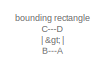
[diagram: root canvas - part 1/7, top left region]
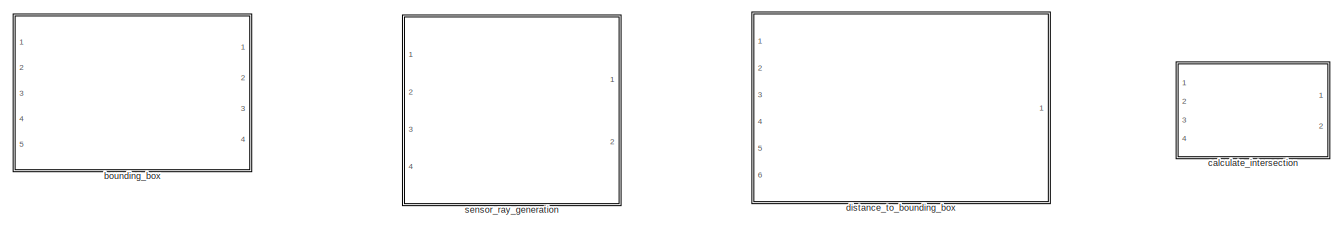
[diagram: root canvas - part 2/7, top left region]
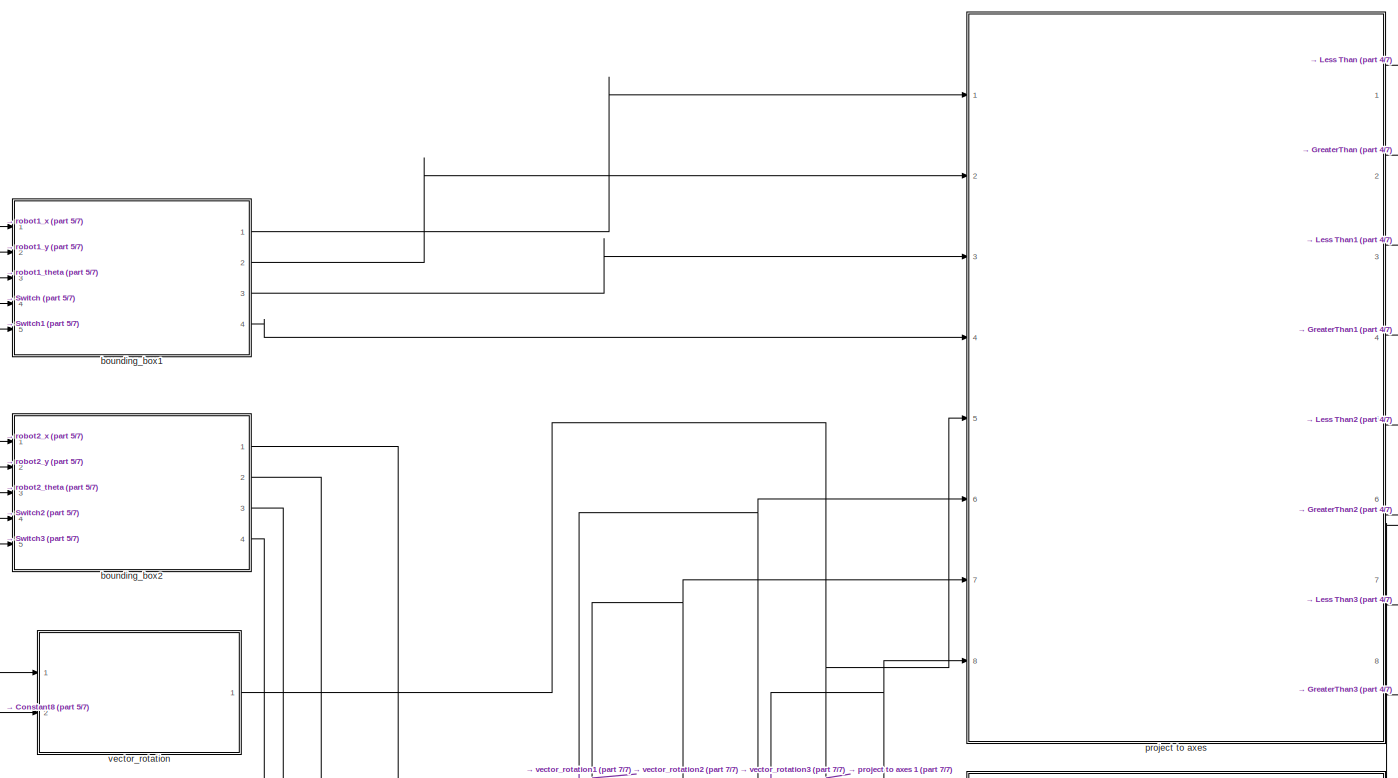
[diagram: root canvas - part 3/7, central region]
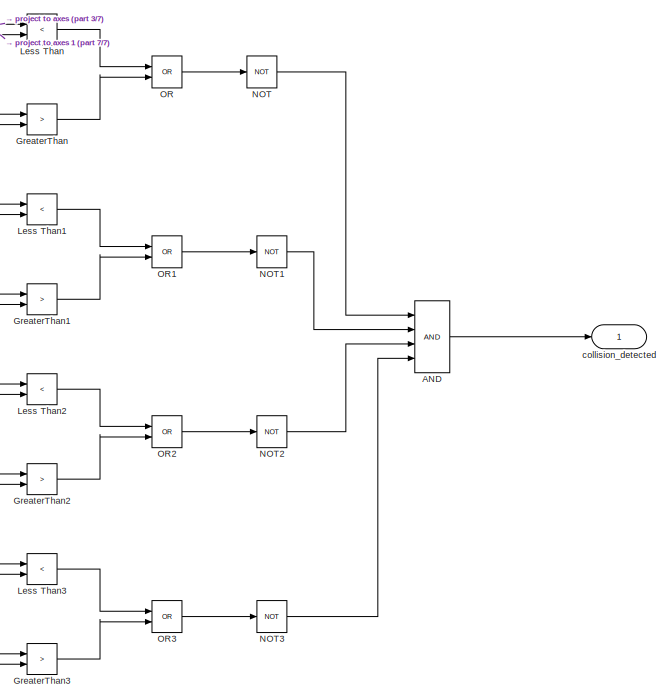
[diagram: root canvas - part 4/7, middle right region]
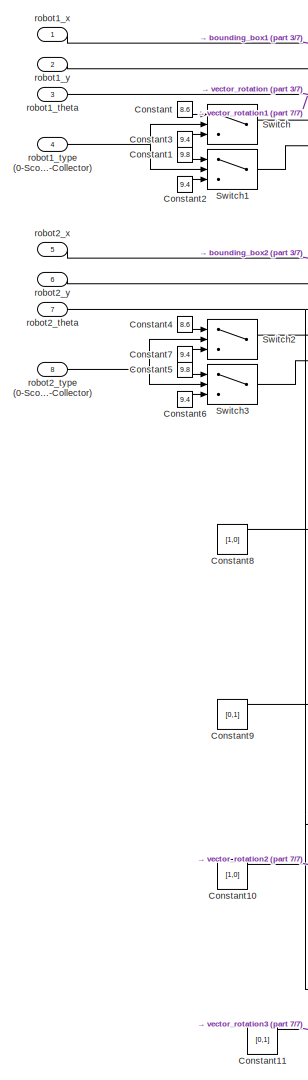
[diagram: root canvas - part 5/7, central region]
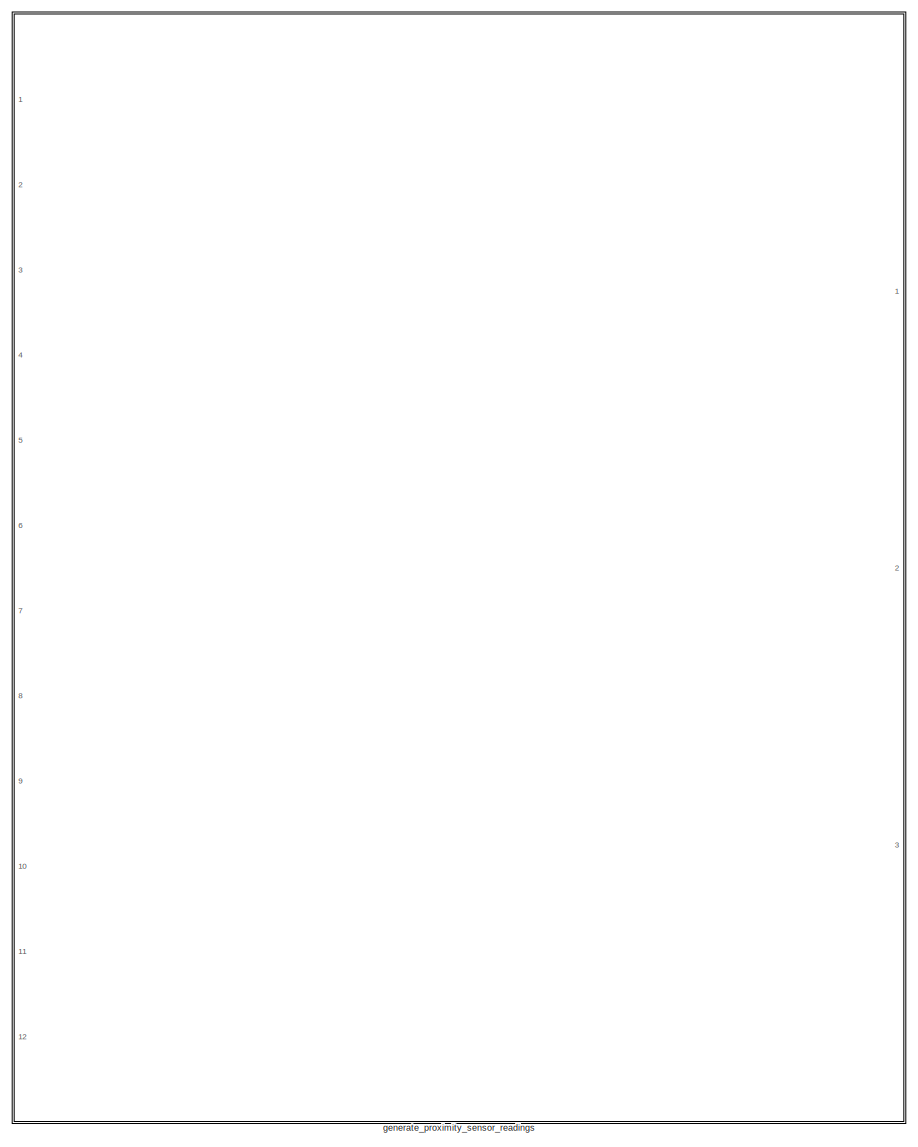
[diagram: root canvas - part 6/7, middle left region]
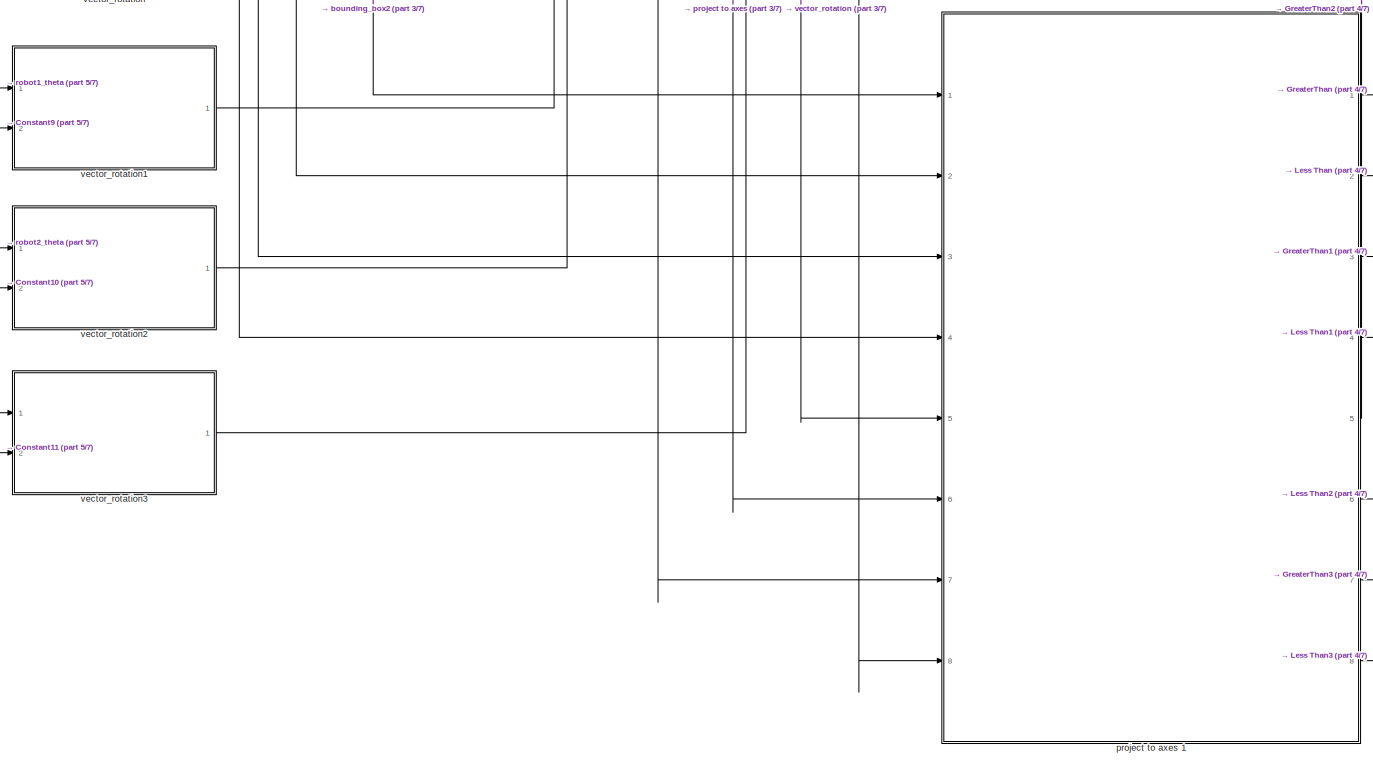
[diagram: root canvas - part 7/7, bottom center region]
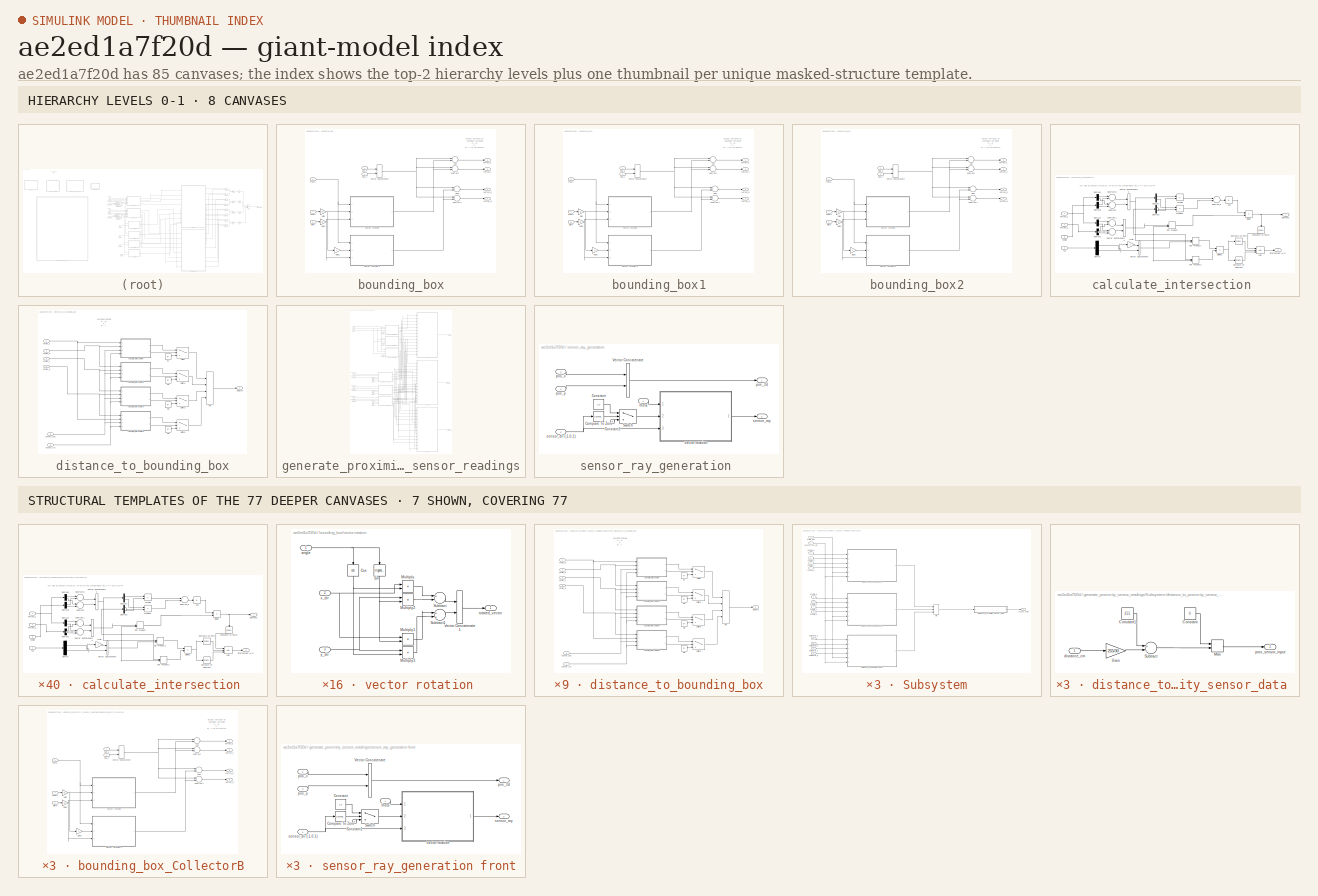
[diagram: thumbnail index - top-2 hierarchy levels (8 canvases) + 7 structural-template representatives of the remaining 77 canvases]
MODEL slx_ae2ed1a7f20d
KIND model
CONFIG AbsTol = auto
CONFIG EnableMultiTasking = off
CONFIG FixedStep = auto
CONFIG MaxStep = auto
CONFIG MinStep = auto
CONFIG RelTol = 1e-3
CONFIG SampleTimeConstraint = Unconstrained
CONFIG Solver = VariableStepAuto
CONFIG SolverName = VariableStepAuto
CONFIG StartTime = 0.0
CONFIG StopTime = 10.0
BLOCK [Logic] AND
  AllPortsSameDT = off
  IconShape = distinctive
  Inputs = 4
  OutDataTypeStr = boolean
  Ports = [4, 1]
BLOCK [Constant] Constant
  Value = 8.6
BLOCK [Constant] Constant1
  Value = 9.8
BLOCK [Constant] Constant10
  Value = [1,0]
BLOCK [Constant] Constant11
  Value = [0,1]
BLOCK [Constant] Constant2
  Value = 9.4
BLOCK [Constant] Constant3
  Value = 9.4
BLOCK [Constant] Constant4
  Value = 8.6
BLOCK [Constant] Constant5
  Value = 9.8
BLOCK [Constant] Constant6
  Value = 9.4
BLOCK [Constant] Constant7
  Value = 9.4
BLOCK [Constant] Constant8
  Value = [1,0]
BLOCK [Constant] Constant9
  Value = [0,1]
BLOCK [RelationalOperator] GreaterThan
  InputSameDT = off
  Operator = >
  OutDataTypeStr = boolean
  Ports = [2, 1]
  RndMeth = Simplest
  ZeroCross = off
BLOCK [RelationalOperator] GreaterThan1
  InputSameDT = off
  Operator = >
  OutDataTypeStr = boolean
  Ports = [2, 1]
  RndMeth = Simplest
  ZeroCross = off
BLOCK [RelationalOperator] GreaterThan2
  InputSameDT = off
  Operator = >
  OutDataTypeStr = boolean
  Ports = [2, 1]
  RndMeth = Simplest
  ZeroCross = off
BLOCK [RelationalOperator] GreaterThan3
  InputSameDT = off
  Operator = >
  OutDataTypeStr = boolean
  Ports = [2, 1]
  RndMeth = Simplest
  ZeroCross = off
BLOCK [RelationalOperator] Less Than
  InputSameDT = off
  Operator = <
  OutDataTypeStr = boolean
  Ports = [2, 1]
  RndMeth = Simplest
  ZeroCross = off
BLOCK [RelationalOperator] Less Than1
  InputSameDT = off
  Operator = <
  OutDataTypeStr = boolean
  Ports = [2, 1]
  RndMeth = Simplest
  ZeroCross = off
BLOCK [RelationalOperator] Less Than2
  InputSameDT = off
  Operator = <
  OutDataTypeStr = boolean
  Ports = [2, 1]
  RndMeth = Simplest
  ZeroCross = off
BLOCK [RelationalOperator] Less Than3
  InputSameDT = off
  Operator = <
  OutDataTypeStr = boolean
  Ports = [2, 1]
  RndMeth = Simplest
  ZeroCross = off
BLOCK [Logic] NOT
  AllPortsSameDT = off
  IconShape = distinctive
  Operator = NOT
  OutDataTypeStr = boolean
  Ports = [1, 1]
BLOCK [Logic] NOT1
  AllPortsSameDT = off
  IconShape = distinctive
  Operator = NOT
  OutDataTypeStr = boolean
  Ports = [1, 1]
BLOCK [Logic] NOT2
  AllPortsSameDT = off
  IconShape = distinctive
  Operator = NOT
  OutDataTypeStr = boolean
  Ports = [1, 1]
BLOCK [Logic] NOT3
  AllPortsSameDT = off
  IconShape = distinctive
  Operator = NOT
  OutDataTypeStr = boolean
  Ports = [1, 1]
BLOCK [Logic] OR
  AllPortsSameDT = off
  IconShape = distinctive
  Operator = OR
  OutDataTypeStr = boolean
  Ports = [2, 1]
BLOCK [Logic] OR1
  AllPortsSameDT = off
  IconShape = distinctive
  Operator = OR
  OutDataTypeStr = boolean
  Ports = [2, 1]
BLOCK [Logic] OR2
  AllPortsSameDT = off
  IconShape = distinctive
  Operator = OR
  OutDataTypeStr = boolean
  Ports = [2, 1]
BLOCK [Logic] OR3
  AllPortsSameDT = off
  IconShape = distinctive
  Operator = OR
  OutDataTypeStr = boolean
  Ports = [2, 1]
BLOCK [Switch] Switch
  Criteria = u2 > Threshold
  InputSameDT = off
  SaturateOnIntegerOverflow = off
  ZeroCross = off
BLOCK [Switch] Switch1
  Criteria = u2 > Threshold
  InputSameDT = off
  SaturateOnIntegerOverflow = off
  ZeroCross = off
BLOCK [Switch] Switch2
  Criteria = u2 > Threshold
  InputSameDT = off
  SaturateOnIntegerOverflow = off
  ZeroCross = off
BLOCK [Switch] Switch3
  Criteria = u2 > Threshold
  InputSameDT = off
  SaturateOnIntegerOverflow = off
  ZeroCross = off
BLOCK [SubSystem] bounding_box
  Ports = [5, 4]
  RequestExecContextInheritance = off
BLOCK [Sum] bounding_box/Add
  InputSameDT = off
  OutDataTypeStr = Inherit: Inherit via internal rule
  Ports = [2, 1]
  SaturateOnIntegerOverflow = off
BLOCK [Sum] bounding_box/Add1
  InputSameDT = off
  OutDataTypeStr = Inherit: Inherit via internal rule
  Ports = [2, 1]
  SaturateOnIntegerOverflow = off
BLOCK [Gain] bounding_box/Gain
  Gain = 1/2
  OutDataTypeStr = Inherit: Inherit via internal rule
  ParamDataTypeStr = Inherit: Inherit via internal rule
  SaturateOnIntegerOverflow = off
BLOCK [Gain] bounding_box/Gain1
  Gain = 1/2
  OutDataTypeStr = Inherit: Inherit via internal rule
  ParamDataTypeStr = Inherit: Inherit via internal rule
  SaturateOnIntegerOverflow = off
BLOCK [Gain] bounding_box/Gain2
  Gain = -1
  OutDataTypeStr = Inherit: Inherit via internal rule
  ParamDataTypeStr = Inherit: Inherit via internal rule
  SaturateOnIntegerOverflow = off
BLOCK [Sum] bounding_box/Subtract
  InputSameDT = off
  Inputs = +-
  OutDataTypeStr = Inherit: Inherit via internal rule
  Ports = [2, 1]
  SaturateOnIntegerOverflow = off
BLOCK [Sum] bounding_box/Subtract1
  InputSameDT = off
  Inputs = +-
  OutDataTypeStr = Inherit: Inherit via internal rule
  Ports = [2, 1]
  SaturateOnIntegerOverflow = off
BLOCK [Concatenate] bounding_box/Vector Concatenate
  Ports = [2, 1]
BLOCK [Inport] bounding_box/length
  IconDisplay = Port number
  Port = 4
BLOCK [Inport] bounding_box/pos_x
  IconDisplay = Port number
BLOCK [Inport] bounding_box/pos_y
  IconDisplay = Port number
  Port = 2
BLOCK [Inport] bounding_box/theta
  IconDisplay = Port number
  Port = 3
BLOCK [SubSystem] bounding_box/vector rotation 
  Ports = [3, 1]
  RequestExecContextInheritance = off
BLOCK [Trigonometry] bounding_box/vector rotation /Cos
  Operator = cos
  Ports = [1, 1]
BLOCK [Product] bounding_box/vector rotation /Multiply
  InputSameDT = off
  OutDataTypeStr = Inherit: Inherit via internal rule
  Ports = [2, 1]
  RndMeth = Floor
  SaturateOnIntegerOverflow = off
BLOCK [Product] bounding_box/vector rotation /Multiply1
  InputSameDT = off
  OutDataTypeStr = Inherit: Inherit via internal rule
  Ports = [2, 1]
  RndMeth = Floor
  SaturateOnIntegerOverflow = off
BLOCK [Product] bounding_box/vector rotation /Multiply2
  InputSameDT = off
  OutDataTypeStr = Inherit: Inherit via internal rule
  Ports = [2, 1]
  RndMeth = Floor
  SaturateOnIntegerOverflow = off
BLOCK [Product] bounding_box/vector rotation /Multiply3
  InputSameDT = off
  OutDataTypeStr = Inherit: Inherit via internal rule
  Ports = [2, 1]
  RndMeth = Floor
  SaturateOnIntegerOverflow = off
BLOCK [Trigonometry] bounding_box/vector rotation /Sin
  Ports = [1, 1]
BLOCK [Sum] bounding_box/vector rotation /Subtract
  InputSameDT = off
  Inputs = +-
  OutDataTypeStr = Inherit: Inherit via internal rule
  Ports = [2, 1]
  SaturateOnIntegerOverflow = off
BLOCK [Sum] bounding_box/vector rotation /Subtract1
  InputSameDT = off
  OutDataTypeStr = Inherit: Inherit via internal rule
  Ports = [2, 1]
  SaturateOnIntegerOverflow = off
BLOCK [Concatenate] bounding_box/vector rotation /Vector Concatenate1
  Ports = [2, 1]
BLOCK [Inport] bounding_box/vector rotation /angle
  IconDisplay = Port number
BLOCK [Outport] bounding_box/vector rotation /rotated_vector 
  IconDisplay = Port number
BLOCK [Inport] bounding_box/vector rotation /x_dir
  IconDisplay = Port number
  Port = 2
BLOCK [Inport] bounding_box/vector rotation /y_dir
  IconDisplay = Port number
  Port = 3
BLOCK [SubSystem] bounding_box/vector rotation 1
  Ports = [3, 1]
  RequestExecContextInheritance = off
BLOCK [Trigonometry] bounding_box/vector rotation 1/Cos
  Operator = cos
  Ports = [1, 1]
BLOCK [Product] bounding_box/vector rotation 1/Multiply
  InputSameDT = off
  OutDataTypeStr = Inherit: Inherit via internal rule
  Ports = [2, 1]
  RndMeth = Floor
  SaturateOnIntegerOverflow = off
BLOCK [Product] bounding_box/vector rotation 1/Multiply1
  InputSameDT = off
  OutDataTypeStr = Inherit: Inherit via internal rule
  Ports = [2, 1]
  RndMeth = Floor
  SaturateOnIntegerOverflow = off
BLOCK [Product] bounding_box/vector rotation 1/Multiply2
  InputSameDT = off
  OutDataTypeStr = Inherit: Inherit via internal rule
  Ports = [2, 1]
  RndMeth = Floor
  SaturateOnIntegerOverflow = off
BLOCK [Product] bounding_box/vector rotation 1/Multiply3
  InputSameDT = off
  OutDataTypeStr = Inherit: Inherit via internal rule
  Ports = [2, 1]
  RndMeth = Floor
  SaturateOnIntegerOverflow = off
BLOCK [Trigonometry] bounding_box/vector rotation 1/Sin
  Ports = [1, 1]
BLOCK [Sum] bounding_box/vector rotation 1/Subtract
  InputSameDT = off
  Inputs = +-
  OutDataTypeStr = Inherit: Inherit via internal rule
  Ports = [2, 1]
  SaturateOnIntegerOverflow = off
BLOCK [Sum] bounding_box/vector rotation 1/Subtract1
  InputSameDT = off
  OutDataTypeStr = Inherit: Inherit via internal rule
  Ports = [2, 1]
  SaturateOnIntegerOverflow = off
BLOCK [Concatenate] bounding_box/vector rotation 1/Vector Concatenate1
  Ports = [2, 1]
BLOCK [Inport] bounding_box/vector rotation 1/angle
  IconDisplay = Port number
BLOCK [Outport] bounding_box/vector rotation 1/rotated_vector 
  IconDisplay = Port number
BLOCK [Inport] bounding_box/vector rotation 1/x_dir
  IconDisplay = Port number
  Port = 2
BLOCK [Inport] bounding_box/vector rotation 1/y_dir
  IconDisplay = Port number
  Port = 3
BLOCK [Outport] bounding_box/vertex_a
  IconDisplay = Port number
BLOCK [Outport] bounding_box/vertex_b
  IconDisplay = Port number
  Port = 2
BLOCK [Outport] bounding_box/vertex_c
  IconDisplay = Port number
  Port = 3
BLOCK [Outport] bounding_box/vertex_d
  IconDisplay = Port number
  Port = 4
BLOCK [Inport] bounding_box/width
  IconDisplay = Port number
  Port = 5
BLOCK [SubSystem] bounding_box1
  Ports = [5, 4]
  RequestExecContextInheritance = off
BLOCK [Sum] bounding_box1/Add
  InputSameDT = off
  OutDataTypeStr = Inherit: Inherit via internal rule
  Ports = [2, 1]
  SaturateOnIntegerOverflow = off
BLOCK [Sum] bounding_box1/Add1
  InputSameDT = off
  OutDataTypeStr = Inherit: Inherit via internal rule
  Ports = [2, 1]
  SaturateOnIntegerOverflow = off
BLOCK [Gain] bounding_box1/Gain
  Gain = 1/2
  OutDataTypeStr = Inherit: Inherit via internal rule
  ParamDataTypeStr = Inherit: Inherit via internal rule
  SaturateOnIntegerOverflow = off
BLOCK [Gain] bounding_box1/Gain1
  Gain = 1/2
  OutDataTypeStr = Inherit: Inherit via internal rule
  ParamDataTypeStr = Inherit: Inherit via internal rule
  SaturateOnIntegerOverflow = off
BLOCK [Gain] bounding_box1/Gain2
  Gain = -1
  OutDataTypeStr = Inherit: Inherit via internal rule
  ParamDataTypeStr = Inherit: Inherit via internal rule
  SaturateOnIntegerOverflow = off
BLOCK [Sum] bounding_box1/Subtract
  InputSameDT = off
  Inputs = +-
  OutDataTypeStr = Inherit: Inherit via internal rule
  Ports = [2, 1]
  SaturateOnIntegerOverflow = off
BLOCK [Sum] bounding_box1/Subtract1
  InputSameDT = off
  Inputs = +-
  OutDataTypeStr = Inherit: Inherit via internal rule
  Ports = [2, 1]
  SaturateOnIntegerOverflow = off
BLOCK [Concatenate] bounding_box1/Vector Concatenate
  Ports = [2, 1]
BLOCK [Inport] bounding_box1/length
  IconDisplay = Port number
  Port = 4
BLOCK [Inport] bounding_box1/pos_x
  IconDisplay = Port number
BLOCK [Inport] bounding_box1/pos_y
  IconDisplay = Port number
  Port = 2
BLOCK [Inport] bounding_box1/theta
  IconDisplay = Port number
  Port = 3
BLOCK [SubSystem] bounding_box1/vector rotation 
  Ports = [3, 1]
  RequestExecContextInheritance = off
BLOCK [Trigonometry] bounding_box1/vector rotation /Cos
  Operator = cos
  Ports = [1, 1]
BLOCK [Product] bounding_box1/vector rotation /Multiply
  InputSameDT = off
  OutDataTypeStr = Inherit: Inherit via internal rule
  Ports = [2, 1]
  RndMeth = Floor
  SaturateOnIntegerOverflow = off
BLOCK [Product] bounding_box1/vector rotation /Multiply1
  InputSameDT = off
  OutDataTypeStr = Inherit: Inherit via internal rule
  Ports = [2, 1]
  RndMeth = Floor
  SaturateOnIntegerOverflow = off
BLOCK [Product] bounding_box1/vector rotation /Multiply2
  InputSameDT = off
  OutDataTypeStr = Inherit: Inherit via internal rule
  Ports = [2, 1]
  RndMeth = Floor
  SaturateOnIntegerOverflow = off
BLOCK [Product] bounding_box1/vector rotation /Multiply3
  InputSameDT = off
  OutDataTypeStr = Inherit: Inherit via internal rule
  Ports = [2, 1]
  RndMeth = Floor
  SaturateOnIntegerOverflow = off
BLOCK [Trigonometry] bounding_box1/vector rotation /Sin
  Ports = [1, 1]
BLOCK [Sum] bounding_box1/vector rotation /Subtract
  InputSameDT = off
  Inputs = +-
  OutDataTypeStr = Inherit: Inherit via internal rule
  Ports = [2, 1]
  SaturateOnIntegerOverflow = off
BLOCK [Sum] bounding_box1/vector rotation /Subtract1
  InputSameDT = off
  OutDataTypeStr = Inherit: Inherit via internal rule
  Ports = [2, 1]
  SaturateOnIntegerOverflow = off
BLOCK [Concatenate] bounding_box1/vector rotation /Vector Concatenate1
  Ports = [2, 1]
BLOCK [Inport] bounding_box1/vector rotation /angle
  IconDisplay = Port number
BLOCK [Outport] bounding_box1/vector rotation /rotated_vector 
  IconDisplay = Port number
BLOCK [Inport] bounding_box1/vector rotation /x_dir
  IconDisplay = Port number
  Port = 2
BLOCK [Inport] bounding_box1/vector rotation /y_dir
  IconDisplay = Port number
  Port = 3
BLOCK [SubSystem] bounding_box1/vector rotation 1
  Ports = [3, 1]
  RequestExecContextInheritance = off
BLOCK [Trigonometry] bounding_box1/vector rotation 1/Cos
  Operator = cos
  Ports = [1, 1]
BLOCK [Product] bounding_box1/vector rotation 1/Multiply
  InputSameDT = off
  OutDataTypeStr = Inherit: Inherit via internal rule
  Ports = [2, 1]
  RndMeth = Floor
  SaturateOnIntegerOverflow = off
BLOCK [Product] bounding_box1/vector rotation 1/Multiply1
  InputSameDT = off
  OutDataTypeStr = Inherit: Inherit via internal rule
  Ports = [2, 1]
  RndMeth = Floor
  SaturateOnIntegerOverflow = off
BLOCK [Product] bounding_box1/vector rotation 1/Multiply2
  InputSameDT = off
  OutDataTypeStr = Inherit: Inherit via internal rule
  Ports = [2, 1]
  RndMeth = Floor
  SaturateOnIntegerOverflow = off
BLOCK [Product] bounding_box1/vector rotation 1/Multiply3
  InputSameDT = off
  OutDataTypeStr = Inherit: Inherit via internal rule
  Ports = [2, 1]
  RndMeth = Floor
  SaturateOnIntegerOverflow = off
BLOCK [Trigonometry] bounding_box1/vector rotation 1/Sin
  Ports = [1, 1]
BLOCK [Sum] bounding_box1/vector rotation 1/Subtract
  InputSameDT = off
  Inputs = +-
  OutDataTypeStr = Inherit: Inherit via internal rule
  Ports = [2, 1]
  SaturateOnIntegerOverflow = off
BLOCK [Sum] bounding_box1/vector rotation 1/Subtract1
  InputSameDT = off
  OutDataTypeStr = Inherit: Inherit via internal rule
  Ports = [2, 1]
  SaturateOnIntegerOverflow = off
BLOCK [Concatenate] bounding_box1/vector rotation 1/Vector Concatenate1
  Ports = [2, 1]
BLOCK [Inport] bounding_box1/vector rotation 1/angle
  IconDisplay = Port number
BLOCK [Outport] bounding_box1/vector rotation 1/rotated_vector 
  IconDisplay = Port number
BLOCK [Inport] bounding_box1/vector rotation 1/x_dir
  IconDisplay = Port number
  Port = 2
BLOCK [Inport] bounding_box1/vector rotation 1/y_dir
  IconDisplay = Port number
  Port = 3
BLOCK [Outport] bounding_box1/vertex_a
  IconDisplay = Port number
BLOCK [Outport] bounding_box1/vertex_b
  IconDisplay = Port number
  Port = 2
BLOCK [Outport] bounding_box1/vertex_c
  IconDisplay = Port number
  Port = 3
BLOCK [Outport] bounding_box1/vertex_d
  IconDisplay = Port number
  Port = 4
BLOCK [Inport] bounding_box1/width
  IconDisplay = Port number
  Port = 5
BLOCK [SubSystem] bounding_box2
  Ports = [5, 4]
  RequestExecContextInheritance = off
BLOCK [Sum] bounding_box2/Add
  InputSameDT = off
  OutDataTypeStr = Inherit: Inherit via internal rule
  Ports = [2, 1]
  SaturateOnIntegerOverflow = off
BLOCK [Sum] bounding_box2/Add1
  InputSameDT = off
  OutDataTypeStr = Inherit: Inherit via internal rule
  Ports = [2, 1]
  SaturateOnIntegerOverflow = off
BLOCK [Gain] bounding_box2/Gain
  Gain = 1/2
  OutDataTypeStr = Inherit: Inherit via internal rule
  ParamDataTypeStr = Inherit: Inherit via internal rule
  SaturateOnIntegerOverflow = off
BLOCK [Gain] bounding_box2/Gain1
  Gain = 1/2
  OutDataTypeStr = Inherit: Inherit via internal rule
  ParamDataTypeStr = Inherit: Inherit via internal rule
  SaturateOnIntegerOverflow = off
BLOCK [Gain] bounding_box2/Gain2
  Gain = -1
  OutDataTypeStr = Inherit: Inherit via internal rule
  ParamDataTypeStr = Inherit: Inherit via internal rule
  SaturateOnIntegerOverflow = off
BLOCK [Sum] bounding_box2/Subtract
  InputSameDT = off
  Inputs = +-
  OutDataTypeStr = Inherit: Inherit via internal rule
  Ports = [2, 1]
  SaturateOnIntegerOverflow = off
BLOCK [Sum] bounding_box2/Subtract1
  InputSameDT = off
  Inputs = +-
  OutDataTypeStr = Inherit: Inherit via internal rule
  Ports = [2, 1]
  SaturateOnIntegerOverflow = off
BLOCK [Concatenate] bounding_box2/Vector Concatenate
  Ports = [2, 1]
BLOCK [Inport] bounding_box2/length
  IconDisplay = Port number
  Port = 4
BLOCK [Inport] bounding_box2/pos_x
  IconDisplay = Port number
BLOCK [Inport] bounding_box2/pos_y
  IconDisplay = Port number
  Port = 2
BLOCK [Inport] bounding_box2/theta
  IconDisplay = Port number
  Port = 3
BLOCK [SubSystem] bounding_box2/vector rotation 
  Ports = [3, 1]
  RequestExecContextInheritance = off
BLOCK [Trigonometry] bounding_box2/vector rotation /Cos
  Operator = cos
  Ports = [1, 1]
BLOCK [Product] bounding_box2/vector rotation /Multiply
  InputSameDT = off
  OutDataTypeStr = Inherit: Inherit via internal rule
  Ports = [2, 1]
  RndMeth = Floor
  SaturateOnIntegerOverflow = off
BLOCK [Product] bounding_box2/vector rotation /Multiply1
  InputSameDT = off
  OutDataTypeStr = Inherit: Inherit via internal rule
  Ports = [2, 1]
  RndMeth = Floor
  SaturateOnIntegerOverflow = off
BLOCK [Product] bounding_box2/vector rotation /Multiply2
  InputSameDT = off
  OutDataTypeStr = Inherit: Inherit via internal rule
  Ports = [2, 1]
  RndMeth = Floor
  SaturateOnIntegerOverflow = off
BLOCK [Product] bounding_box2/vector rotation /Multiply3
  InputSameDT = off
  OutDataTypeStr = Inherit: Inherit via internal rule
  Ports = [2, 1]
  RndMeth = Floor
  SaturateOnIntegerOverflow = off
BLOCK [Trigonometry] bounding_box2/vector rotation /Sin
  Ports = [1, 1]
BLOCK [Sum] bounding_box2/vector rotation /Subtract
  InputSameDT = off
  Inputs = +-
  OutDataTypeStr = Inherit: Inherit via internal rule
  Ports = [2, 1]
  SaturateOnIntegerOverflow = off
BLOCK [Sum] bounding_box2/vector rotation /Subtract1
  InputSameDT = off
  OutDataTypeStr = Inherit: Inherit via internal rule
  Ports = [2, 1]
  SaturateOnIntegerOverflow = off
BLOCK [Concatenate] bounding_box2/vector rotation /Vector Concatenate1
  Ports = [2, 1]
BLOCK [Inport] bounding_box2/vector rotation /angle
  IconDisplay = Port number
BLOCK [Outport] bounding_box2/vector rotation /rotated_vector 
  IconDisplay = Port number
BLOCK [Inport] bounding_box2/vector rotation /x_dir
  IconDisplay = Port number
  Port = 2
BLOCK [Inport] bounding_box2/vector rotation /y_dir
  IconDisplay = Port number
  Port = 3
BLOCK [SubSystem] bounding_box2/vector rotation 1
  Ports = [3, 1]
  RequestExecContextInheritance = off
BLOCK [Trigonometry] bounding_box2/vector rotation 1/Cos
  Operator = cos
  Ports = [1, 1]
BLOCK [Product] bounding_box2/vector rotation 1/Multiply
  InputSameDT = off
  OutDataTypeStr = Inherit: Inherit via internal rule
  Ports = [2, 1]
  RndMeth = Floor
  SaturateOnIntegerOverflow = off
BLOCK [Product] bounding_box2/vector rotation 1/Multiply1
  InputSameDT = off
  OutDataTypeStr = Inherit: Inherit via internal rule
  Ports = [2, 1]
  RndMeth = Floor
  SaturateOnIntegerOverflow = off
BLOCK [Product] bounding_box2/vector rotation 1/Multiply2
  InputSameDT = off
  OutDataTypeStr = Inherit: Inherit via internal rule
  Ports = [2, 1]
  RndMeth = Floor
  SaturateOnIntegerOverflow = off
BLOCK [Product] bounding_box2/vector rotation 1/Multiply3
  InputSameDT = off
  OutDataTypeStr = Inherit: Inherit via internal rule
  Ports = [2, 1]
  RndMeth = Floor
  SaturateOnIntegerOverflow = off
BLOCK [Trigonometry] bounding_box2/vector rotation 1/Sin
  Ports = [1, 1]
BLOCK [Sum] bounding_box2/vector rotation 1/Subtract
  InputSameDT = off
  Inputs = +-
  OutDataTypeStr = Inherit: Inherit via internal rule
  Ports = [2, 1]
  SaturateOnIntegerOverflow = off
BLOCK [Sum] bounding_box2/vector rotation 1/Subtract1
  InputSameDT = off
  OutDataTypeStr = Inherit: Inherit via internal rule
  Ports = [2, 1]
  SaturateOnIntegerOverflow = off
BLOCK [Concatenate] bounding_box2/vector rotation 1/Vector Concatenate1
  Ports = [2, 1]
BLOCK [Inport] bounding_box2/vector rotation 1/angle
  IconDisplay = Port number
BLOCK [Outport] bounding_box2/vector rotation 1/rotated_vector 
  IconDisplay = Port number
BLOCK [Inport] bounding_box2/vector rotation 1/x_dir
  IconDisplay = Port number
  Port = 2
BLOCK [Inport] bounding_box2/vector rotation 1/y_dir
  IconDisplay = Port number
  Port = 3
BLOCK [Outport] bounding_box2/vertex_a
  IconDisplay = Port number
BLOCK [Outport] bounding_box2/vertex_b
  IconDisplay = Port number
  Port = 2
BLOCK [Outport] bounding_box2/vertex_c
  IconDisplay = Port number
  Port = 3
BLOCK [Outport] bounding_box2/vertex_d
  IconDisplay = Port number
  Port = 4
BLOCK [Inport] bounding_box2/width
  IconDisplay = Port number
  Port = 5
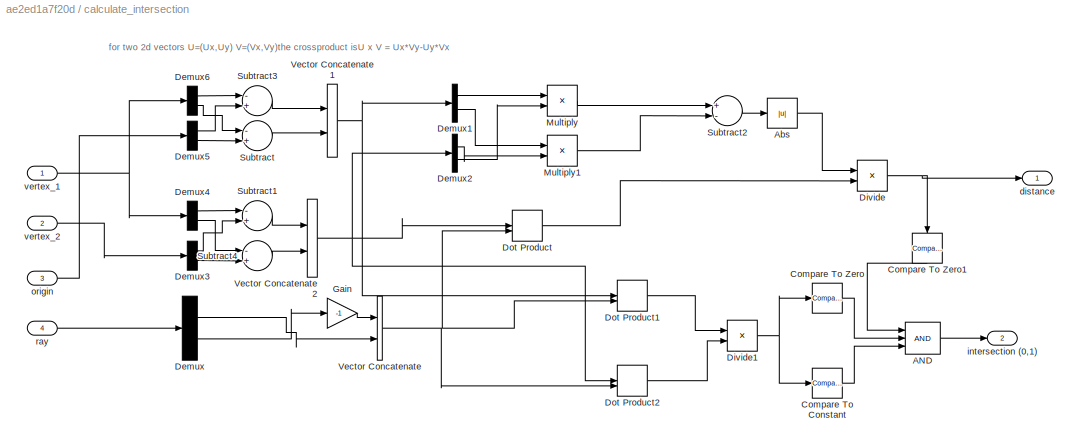
BLOCK [SubSystem] calculate_intersection 
  Ports = [4, 2]
  RequestExecContextInheritance = off
BLOCK [Logic] calculate_intersection /AND
  AllPortsSameDT = off
  IconShape = distinctive
  Inputs = 3
  OutDataTypeStr = boolean
  Ports = [3, 1]
BLOCK [Abs] calculate_intersection /Abs
  SaturateOnIntegerOverflow = off
BLOCK [Reference] calculate_intersection /Compare To Constant  REF=simulink/Logic and Bit
Operations/Compare
To Constant
  Ports = [1, 1]
  SourceBlock = simulink/Logic and Bit\nOperations/Compare\nTo Constant
  SourceProductBaseCode = SL
  SourceProductName = Simulink
  SourceType = Compare To Constant
BLOCK [Reference] calculate_intersection /Compare To Zero  REF=simulink/Logic and Bit
Operations/Compare
To Zero
  Ports = [1, 1]
  SourceBlock = simulink/Logic and Bit\nOperations/Compare\nTo Zero
  SourceProductBaseCode = SL
  SourceProductName = Simulink
  SourceType = Compare To Zero
BLOCK [Reference] calculate_intersection /Compare To Zero1  REF=simulink/Logic and Bit
Operations/Compare
To Zero
  Ports = [1, 1]
  SourceBlock = simulink/Logic and Bit\nOperations/Compare\nTo Zero
  SourceProductBaseCode = SL
  SourceProductName = Simulink
  SourceType = Compare To Zero
BLOCK [Demux] calculate_intersection /Demux
  DisplayOption = bar
  Outputs = 2
  Ports = [1, 2]
BLOCK [Demux] calculate_intersection /Demux1
  DisplayOption = bar
  Outputs = 2
  Ports = [1, 2]
BLOCK [Demux] calculate_intersection /Demux2
  DisplayOption = bar
  Outputs = 2
  Ports = [1, 2]
BLOCK [Demux] calculate_intersection /Demux3
  DisplayOption = bar
  Outputs = 2
  Ports = [1, 2]
BLOCK [Demux] calculate_intersection /Demux4
  DisplayOption = bar
  Outputs = 2
  Ports = [1, 2]
BLOCK [Demux] calculate_intersection /Demux5
  DisplayOption = bar
  Outputs = 2
  Ports = [1, 2]
BLOCK [Demux] calculate_intersection /Demux6
  DisplayOption = bar
  Outputs = 2
  Ports = [1, 2]
BLOCK [Product] calculate_intersection /Divide
  InputSameDT = off
  Inputs = */
  OutDataTypeStr = Inherit: Inherit via internal rule
  Ports = [2, 1]
  RndMeth = Floor
  SaturateOnIntegerOverflow = off
BLOCK [Product] calculate_intersection /Divide1
  InputSameDT = off
  Inputs = */
  OutDataTypeStr = Inherit: Inherit via internal rule
  Ports = [2, 1]
  RndMeth = Floor
  SaturateOnIntegerOverflow = off
BLOCK [DotProduct] calculate_intersection /Dot Product
  OutDataTypeStr = Inherit: Inherit via internal rule
BLOCK [DotProduct] calculate_intersection /Dot Product1
  OutDataTypeStr = Inherit: Inherit via internal rule
BLOCK [DotProduct] calculate_intersection /Dot Product2
  OutDataTypeStr = Inherit: Inherit via internal rule
BLOCK [Gain] calculate_intersection /Gain
  Gain = -1
  OutDataTypeStr = Inherit: Inherit via internal rule
  ParamDataTypeStr = Inherit: Inherit via internal rule
  SaturateOnIntegerOverflow = off
BLOCK [Product] calculate_intersection /Multiply
  InputSameDT = off
  OutDataTypeStr = Inherit: Inherit via internal rule
  Ports = [2, 1]
  RndMeth = Floor
  SaturateOnIntegerOverflow = off
BLOCK [Product] calculate_intersection /Multiply1
  InputSameDT = off
  OutDataTypeStr = Inherit: Inherit via internal rule
  Ports = [2, 1]
  RndMeth = Floor
  SaturateOnIntegerOverflow = off
BLOCK [Sum] calculate_intersection /Subtract
  InputSameDT = off
  Inputs = -+
  OutDataTypeStr = Inherit: Inherit via internal rule
  Ports = [2, 1]
  SaturateOnIntegerOverflow = off
BLOCK [Sum] calculate_intersection /Subtract1
  InputSameDT = off
  Inputs = -+
  OutDataTypeStr = Inherit: Inherit via internal rule
  Ports = [2, 1]
  SaturateOnIntegerOverflow = off
BLOCK [Sum] calculate_intersection /Subtract2
  InputSameDT = off
  Inputs = +-
  OutDataTypeStr = Inherit: Inherit via internal rule
  Ports = [2, 1]
  SaturateOnIntegerOverflow = off
BLOCK [Sum] calculate_intersection /Subtract3
  InputSameDT = off
  Inputs = -+
  OutDataTypeStr = Inherit: Inherit via internal rule
  Ports = [2, 1]
  SaturateOnIntegerOverflow = off
BLOCK [Sum] calculate_intersection /Subtract4
  InputSameDT = off
  Inputs = -+
  OutDataTypeStr = Inherit: Inherit via internal rule
  Ports = [2, 1]
  SaturateOnIntegerOverflow = off
BLOCK [Concatenate] calculate_intersection /Vector Concatenate
  Ports = [2, 1]
BLOCK [Concatenate] calculate_intersection /Vector Concatenate1
  Ports = [2, 1]
BLOCK [Concatenate] calculate_intersection /Vector Concatenate2
  Ports = [2, 1]
BLOCK [Outport] calculate_intersection /distance
  IconDisplay = Port number
BLOCK [Outport] calculate_intersection /intersection (0,1)
  IconDisplay = Port number
  Port = 2
BLOCK [Inport] calculate_intersection /origin 
  IconDisplay = Port number
  Port = 3
BLOCK [Inport] calculate_intersection /ray
  IconDisplay = Port number
  Port = 4
BLOCK [Inport] calculate_intersection /vertex_1
  IconDisplay = Port number
BLOCK [Inport] calculate_intersection /vertex_2
  IconDisplay = Port number
  Port = 2
BLOCK [Outport] collision_detected
  IconDisplay = Port number
BLOCK [SubSystem] distance_to_bounding_box
  Ports = [6, 1]
  RequestExecContextInheritance = off
BLOCK [Constant] distance_to_bounding_box/Inf
  Value = inf
BLOCK [Constant] distance_to_bounding_box/Inf1
  Value = inf
BLOCK [Constant] distance_to_bounding_box/Inf2
  Value = inf
BLOCK [Constant] distance_to_bounding_box/Inf3
  Value = inf
BLOCK [MinMax] distance_to_bounding_box/Min
  InputSameDT = off
  Inputs = 4
  Ports = [4, 1]
  SaturateOnIntegerOverflow = off
BLOCK [Switch] distance_to_bounding_box/Switch
  Criteria = u2 > Threshold
  InputSameDT = off
  SaturateOnIntegerOverflow = off
BLOCK [Switch] distance_to_bounding_box/Switch1
  Criteria = u2 > Threshold
  InputSameDT = off
  SaturateOnIntegerOverflow = off
BLOCK [Switch] distance_to_bounding_box/Switch2
  Criteria = u2 > Threshold
  InputSameDT = off
  SaturateOnIntegerOverflow = off
BLOCK [Switch] distance_to_bounding_box/Switch3
  Criteria = u2 > Threshold
  InputSameDT = off
  SaturateOnIntegerOverflow = off
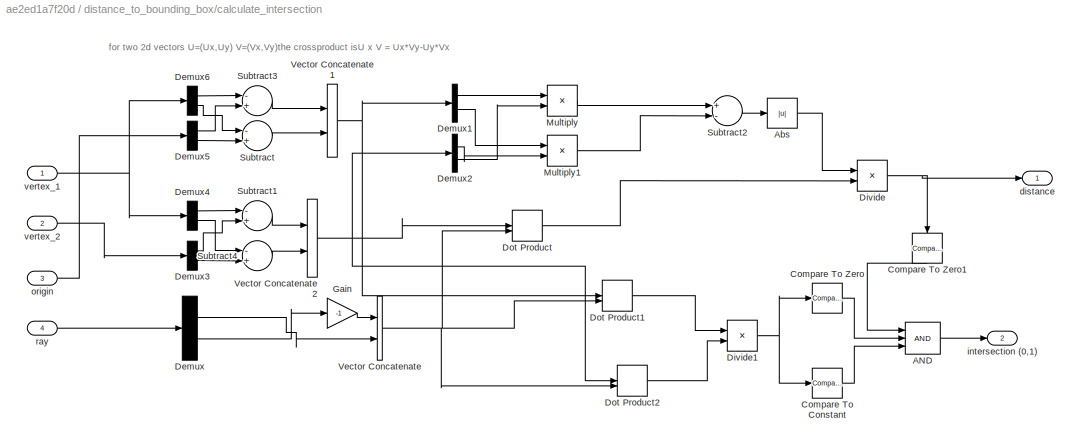
BLOCK [SubSystem] distance_to_bounding_box/calculate_intersection 
  Ports = [4, 2]
  RequestExecContextInheritance = off
BLOCK [Logic] distance_to_bounding_box/calculate_intersection /AND
  AllPortsSameDT = off
  IconShape = distinctive
  Inputs = 3
  OutDataTypeStr = boolean
  Ports = [3, 1]
BLOCK [Abs] distance_to_bounding_box/calculate_intersection /Abs
  SaturateOnIntegerOverflow = off
BLOCK [Reference] distance_to_bounding_box/calculate_intersection /Compare To Constant  REF=simulink/Logic and Bit
Operations/Compare
To Constant
  Ports = [1, 1]
  SourceBlock = simulink/Logic and Bit\nOperations/Compare\nTo Constant
  SourceProductBaseCode = SL
  SourceProductName = Simulink
  SourceType = Compare To Constant
BLOCK [Reference] distance_to_bounding_box/calculate_intersection /Compare To Zero  REF=simulink/Logic and Bit
Operations/Compare
To Zero
  Ports = [1, 1]
  SourceBlock = simulink/Logic and Bit\nOperations/Compare\nTo Zero
  SourceProductBaseCode = SL
  SourceProductName = Simulink
  SourceType = Compare To Zero
BLOCK [Reference] distance_to_bounding_box/calculate_intersection /Compare To Zero1  REF=simulink/Logic and Bit
Operations/Compare
To Zero
  Ports = [1, 1]
  SourceBlock = simulink/Logic and Bit\nOperations/Compare\nTo Zero
  SourceProductBaseCode = SL
  SourceProductName = Simulink
  SourceType = Compare To Zero
BLOCK [Demux] distance_to_bounding_box/calculate_intersection /Demux
  DisplayOption = bar
  Outputs = 2
  Ports = [1, 2]
BLOCK [Demux] distance_to_bounding_box/calculate_intersection /Demux1
  DisplayOption = bar
  Outputs = 2
  Ports = [1, 2]
BLOCK [Demux] distance_to_bounding_box/calculate_intersection /Demux2
  DisplayOption = bar
  Outputs = 2
  Ports = [1, 2]
BLOCK [Demux] distance_to_bounding_box/calculate_intersection /Demux3
  DisplayOption = bar
  Outputs = 2
  Ports = [1, 2]
BLOCK [Demux] distance_to_bounding_box/calculate_intersection /Demux4
  DisplayOption = bar
  Outputs = 2
  Ports = [1, 2]
BLOCK [Demux] distance_to_bounding_box/calculate_intersection /Demux5
  DisplayOption = bar
  Outputs = 2
  Ports = [1, 2]
BLOCK [Demux] distance_to_bounding_box/calculate_intersection /Demux6
  DisplayOption = bar
  Outputs = 2
  Ports = [1, 2]
BLOCK [Product] distance_to_bounding_box/calculate_intersection /Divide
  InputSameDT = off
  Inputs = */
  OutDataTypeStr = Inherit: Inherit via internal rule
  Ports = [2, 1]
  RndMeth = Floor
  SaturateOnIntegerOverflow = off
BLOCK [Product] distance_to_bounding_box/calculate_intersection /Divide1
  InputSameDT = off
  Inputs = */
  OutDataTypeStr = Inherit: Inherit via internal rule
  Ports = [2, 1]
  RndMeth = Floor
  SaturateOnIntegerOverflow = off
BLOCK [DotProduct] distance_to_bounding_box/calculate_intersection /Dot Product
  OutDataTypeStr = Inherit: Inherit via internal rule
BLOCK [DotProduct] distance_to_bounding_box/calculate_intersection /Dot Product1
  OutDataTypeStr = Inherit: Inherit via internal rule
BLOCK [DotProduct] distance_to_bounding_box/calculate_intersection /Dot Product2
  OutDataTypeStr = Inherit: Inherit via internal rule
BLOCK [Gain] distance_to_bounding_box/calculate_intersection /Gain
  Gain = -1
  OutDataTypeStr = Inherit: Inherit via internal rule
  ParamDataTypeStr = Inherit: Inherit via internal rule
  SaturateOnIntegerOverflow = off
BLOCK [Product] distance_to_bounding_box/calculate_intersection /Multiply
  InputSameDT = off
  OutDataTypeStr = Inherit: Inherit via internal rule
  Ports = [2, 1]
  RndMeth = Floor
  SaturateOnIntegerOverflow = off
BLOCK [Product] distance_to_bounding_box/calculate_intersection /Multiply1
  InputSameDT = off
  OutDataTypeStr = Inherit: Inherit via internal rule
  Ports = [2, 1]
  RndMeth = Floor
  SaturateOnIntegerOverflow = off
BLOCK [Sum] distance_to_bounding_box/calculate_intersection /Subtract
  InputSameDT = off
  Inputs = -+
  OutDataTypeStr = Inherit: Inherit via internal rule
  Ports = [2, 1]
  SaturateOnIntegerOverflow = off
BLOCK [Sum] distance_to_bounding_box/calculate_intersection /Subtract1
  InputSameDT = off
  Inputs = -+
  OutDataTypeStr = Inherit: Inherit via internal rule
  Ports = [2, 1]
  SaturateOnIntegerOverflow = off
BLOCK [Sum] distance_to_bounding_box/calculate_intersection /Subtract2
  InputSameDT = off
  Inputs = +-
  OutDataTypeStr = Inherit: Inherit via internal rule
  Ports = [2, 1]
  SaturateOnIntegerOverflow = off
BLOCK [Sum] distance_to_bounding_box/calculate_intersection /Subtract3
  InputSameDT = off
  Inputs = -+
  OutDataTypeStr = Inherit: Inherit via internal rule
  Ports = [2, 1]
  SaturateOnIntegerOverflow = off
BLOCK [Sum] distance_to_bounding_box/calculate_intersection /Subtract4
  InputSameDT = off
  Inputs = -+
  OutDataTypeStr = Inherit: Inherit via internal rule
  Ports = [2, 1]
  SaturateOnIntegerOverflow = off
BLOCK [Concatenate] distance_to_bounding_box/calculate_intersection /Vector Concatenate
  Ports = [2, 1]
BLOCK [Concatenate] distance_to_bounding_box/calculate_intersection /Vector Concatenate1
  Ports = [2, 1]
BLOCK [Concatenate] distance_to_bounding_box/calculate_intersection /Vector Concatenate2
  Ports = [2, 1]
BLOCK [Outport] distance_to_bounding_box/calculate_intersection /distance
  IconDisplay = Port number
BLOCK [Outport] distance_to_bounding_box/calculate_intersection /intersection (0,1)
  IconDisplay = Port number
  Port = 2
BLOCK [Inport] distance_to_bounding_box/calculate_intersection /origin 
  IconDisplay = Port number
  Port = 3
BLOCK [Inport] distance_to_bounding_box/calculate_intersection /ray
  IconDisplay = Port number
  Port = 4
BLOCK [Inport] distance_to_bounding_box/calculate_intersection /vertex_1
  IconDisplay = Port number
BLOCK [Inport] distance_to_bounding_box/calculate_intersection /vertex_2
  IconDisplay = Port number
  Port = 2
BLOCK [SubSystem] distance_to_bounding_box/calculate_intersection 1
  Ports = [4, 2]
  RequestExecContextInheritance = off
BLOCK [Logic] distance_to_bounding_box/calculate_intersection 1/AND
  AllPortsSameDT = off
  IconShape = distinctive
  Inputs = 3
  OutDataTypeStr = boolean
  Ports = [3, 1]
BLOCK [Abs] distance_to_bounding_box/calculate_intersection 1/Abs
  SaturateOnIntegerOverflow = off
BLOCK [Reference] distance_to_bounding_box/calculate_intersection 1/Compare To Constant  REF=simulink/Logic and Bit
Operations/Compare
To Constant
  Ports = [1, 1]
  SourceBlock = simulink/Logic and Bit\nOperations/Compare\nTo Constant
  SourceProductBaseCode = SL
  SourceProductName = Simulink
  SourceType = Compare To Constant
BLOCK [Reference] distance_to_bounding_box/calculate_intersection 1/Compare To Zero  REF=simulink/Logic and Bit
Operations/Compare
To Zero
  Ports = [1, 1]
  SourceBlock = simulink/Logic and Bit\nOperations/Compare\nTo Zero
  SourceProductBaseCode = SL
  SourceProductName = Simulink
  SourceType = Compare To Zero
BLOCK [Reference] distance_to_bounding_box/calculate_intersection 1/Compare To Zero1  REF=simulink/Logic and Bit
Operations/Compare
To Zero
  Ports = [1, 1]
  SourceBlock = simulink/Logic and Bit\nOperations/Compare\nTo Zero
  SourceProductBaseCode = SL
  SourceProductName = Simulink
  SourceType = Compare To Zero
BLOCK [Demux] distance_to_bounding_box/calculate_intersection 1/Demux
  DisplayOption = bar
  Outputs = 2
  Ports = [1, 2]
BLOCK [Demux] distance_to_bounding_box/calculate_intersection 1/Demux1
  DisplayOption = bar
  Outputs = 2
  Ports = [1, 2]
BLOCK [Demux] distance_to_bounding_box/calculate_intersection 1/Demux2
  DisplayOption = bar
  Outputs = 2
  Ports = [1, 2]
BLOCK [Demux] distance_to_bounding_box/calculate_intersection 1/Demux3
  DisplayOption = bar
  Outputs = 2
  Ports = [1, 2]
BLOCK [Demux] distance_to_bounding_box/calculate_intersection 1/Demux4
  DisplayOption = bar
  Outputs = 2
  Ports = [1, 2]
BLOCK [Demux] distance_to_bounding_box/calculate_intersection 1/Demux5
  DisplayOption = bar
  Outputs = 2
  Ports = [1, 2]
BLOCK [Demux] distance_to_bounding_box/calculate_intersection 1/Demux6
  DisplayOption = bar
  Outputs = 2
  Ports = [1, 2]
BLOCK [Product] distance_to_bounding_box/calculate_intersection 1/Divide
  InputSameDT = off
  Inputs = */
  OutDataTypeStr = Inherit: Inherit via internal rule
  Ports = [2, 1]
  RndMeth = Floor
  SaturateOnIntegerOverflow = off
BLOCK [Product] distance_to_bounding_box/calculate_intersection 1/Divide1
  InputSameDT = off
  Inputs = */
  OutDataTypeStr = Inherit: Inherit via internal rule
  Ports = [2, 1]
  RndMeth = Floor
  SaturateOnIntegerOverflow = off
BLOCK [DotProduct] distance_to_bounding_box/calculate_intersection 1/Dot Product
  OutDataTypeStr = Inherit: Inherit via internal rule
BLOCK [DotProduct] distance_to_bounding_box/calculate_intersection 1/Dot Product1
  OutDataTypeStr = Inherit: Inherit via internal rule
BLOCK [DotProduct] distance_to_bounding_box/calculate_intersection 1/Dot Product2
  OutDataTypeStr = Inherit: Inherit via internal rule
BLOCK [Gain] distance_to_bounding_box/calculate_intersection 1/Gain
  Gain = -1
  OutDataTypeStr = Inherit: Inherit via internal rule
  ParamDataTypeStr = Inherit: Inherit via internal rule
  SaturateOnIntegerOverflow = off
BLOCK [Product] distance_to_bounding_box/calculate_intersection 1/Multiply
  InputSameDT = off
  OutDataTypeStr = Inherit: Inherit via internal rule
  Ports = [2, 1]
  RndMeth = Floor
  SaturateOnIntegerOverflow = off
BLOCK [Product] distance_to_bounding_box/calculate_intersection 1/Multiply1
  InputSameDT = off
  OutDataTypeStr = Inherit: Inherit via internal rule
  Ports = [2, 1]
  RndMeth = Floor
  SaturateOnIntegerOverflow = off
BLOCK [Sum] distance_to_bounding_box/calculate_intersection 1/Subtract
  InputSameDT = off
  Inputs = -+
  OutDataTypeStr = Inherit: Inherit via internal rule
  Ports = [2, 1]
  SaturateOnIntegerOverflow = off
BLOCK [Sum] distance_to_bounding_box/calculate_intersection 1/Subtract1
  InputSameDT = off
  Inputs = -+
  OutDataTypeStr = Inherit: Inherit via internal rule
  Ports = [2, 1]
  SaturateOnIntegerOverflow = off
BLOCK [Sum] distance_to_bounding_box/calculate_intersection 1/Subtract2
  InputSameDT = off
  Inputs = +-
  OutDataTypeStr = Inherit: Inherit via internal rule
  Ports = [2, 1]
  SaturateOnIntegerOverflow = off
BLOCK [Sum] distance_to_bounding_box/calculate_intersection 1/Subtract3
  InputSameDT = off
  Inputs = -+
  OutDataTypeStr = Inherit: Inherit via internal rule
  Ports = [2, 1]
  SaturateOnIntegerOverflow = off
BLOCK [Sum] distance_to_bounding_box/calculate_intersection 1/Subtract4
  InputSameDT = off
  Inputs = -+
  OutDataTypeStr = Inherit: Inherit via internal rule
  Ports = [2, 1]
  SaturateOnIntegerOverflow = off
BLOCK [Concatenate] distance_to_bounding_box/calculate_intersection 1/Vector Concatenate
  Ports = [2, 1]
BLOCK [Concatenate] distance_to_bounding_box/calculate_intersection 1/Vector Concatenate1
  Ports = [2, 1]
BLOCK [Concatenate] distance_to_bounding_box/calculate_intersection 1/Vector Concatenate2
  Ports = [2, 1]
BLOCK [Outport] distance_to_bounding_box/calculate_intersection 1/distance
  IconDisplay = Port number
BLOCK [Outport] distance_to_bounding_box/calculate_intersection 1/intersection (0,1)
  IconDisplay = Port number
  Port = 2
BLOCK [Inport] distance_to_bounding_box/calculate_intersection 1/origin 
  IconDisplay = Port number
  Port = 3
BLOCK [Inport] distance_to_bounding_box/calculate_intersection 1/ray
  IconDisplay = Port number
  Port = 4
BLOCK [Inport] distance_to_bounding_box/calculate_intersection 1/vertex_1
  IconDisplay = Port number
BLOCK [Inport] distance_to_bounding_box/calculate_intersection 1/vertex_2
  IconDisplay = Port number
  Port = 2
BLOCK [SubSystem] distance_to_bounding_box/calculate_intersection 2
  Ports = [4, 2]
  RequestExecContextInheritance = off
BLOCK [Logic] distance_to_bounding_box/calculate_intersection 2/AND
  AllPortsSameDT = off
  IconShape = distinctive
  Inputs = 3
  OutDataTypeStr = boolean
  Ports = [3, 1]
BLOCK [Abs] distance_to_bounding_box/calculate_intersection 2/Abs
  SaturateOnIntegerOverflow = off
BLOCK [Reference] distance_to_bounding_box/calculate_intersection 2/Compare To Constant  REF=simulink/Logic and Bit
Operations/Compare
To Constant
  Ports = [1, 1]
  SourceBlock = simulink/Logic and Bit\nOperations/Compare\nTo Constant
  SourceProductBaseCode = SL
  SourceProductName = Simulink
  SourceType = Compare To Constant
BLOCK [Reference] distance_to_bounding_box/calculate_intersection 2/Compare To Zero  REF=simulink/Logic and Bit
Operations/Compare
To Zero
  Ports = [1, 1]
  SourceBlock = simulink/Logic and Bit\nOperations/Compare\nTo Zero
  SourceProductBaseCode = SL
  SourceProductName = Simulink
  SourceType = Compare To Zero
BLOCK [Reference] distance_to_bounding_box/calculate_intersection 2/Compare To Zero1  REF=simulink/Logic and Bit
Operations/Compare
To Zero
  Ports = [1, 1]
  SourceBlock = simulink/Logic and Bit\nOperations/Compare\nTo Zero
  SourceProductBaseCode = SL
  SourceProductName = Simulink
  SourceType = Compare To Zero
BLOCK [Demux] distance_to_bounding_box/calculate_intersection 2/Demux
  DisplayOption = bar
  Outputs = 2
  Ports = [1, 2]
BLOCK [Demux] distance_to_bounding_box/calculate_intersection 2/Demux1
  DisplayOption = bar
  Outputs = 2
  Ports = [1, 2]
BLOCK [Demux] distance_to_bounding_box/calculate_intersection 2/Demux2
  DisplayOption = bar
  Outputs = 2
  Ports = [1, 2]
BLOCK [Demux] distance_to_bounding_box/calculate_intersection 2/Demux3
  DisplayOption = bar
  Outputs = 2
  Ports = [1, 2]
BLOCK [Demux] distance_to_bounding_box/calculate_intersection 2/Demux4
  DisplayOption = bar
  Outputs = 2
  Ports = [1, 2]
BLOCK [Demux] distance_to_bounding_box/calculate_intersection 2/Demux5
  DisplayOption = bar
  Outputs = 2
  Ports = [1, 2]
BLOCK [Demux] distance_to_bounding_box/calculate_intersection 2/Demux6
  DisplayOption = bar
  Outputs = 2
  Ports = [1, 2]
BLOCK [Product] distance_to_bounding_box/calculate_intersection 2/Divide
  InputSameDT = off
  Inputs = */
  OutDataTypeStr = Inherit: Inherit via internal rule
  Ports = [2, 1]
  RndMeth = Floor
  SaturateOnIntegerOverflow = off
BLOCK [Product] distance_to_bounding_box/calculate_intersection 2/Divide1
  InputSameDT = off
  Inputs = */
  OutDataTypeStr = Inherit: Inherit via internal rule
  Ports = [2, 1]
  RndMeth = Floor
  SaturateOnIntegerOverflow = off
BLOCK [DotProduct] distance_to_bounding_box/calculate_intersection 2/Dot Product
  OutDataTypeStr = Inherit: Inherit via internal rule
BLOCK [DotProduct] distance_to_bounding_box/calculate_intersection 2/Dot Product1
  OutDataTypeStr = Inherit: Inherit via internal rule
BLOCK [DotProduct] distance_to_bounding_box/calculate_intersection 2/Dot Product2
  OutDataTypeStr = Inherit: Inherit via internal rule
BLOCK [Gain] distance_to_bounding_box/calculate_intersection 2/Gain
  Gain = -1
  OutDataTypeStr = Inherit: Inherit via internal rule
  ParamDataTypeStr = Inherit: Inherit via internal rule
  SaturateOnIntegerOverflow = off
BLOCK [Product] distance_to_bounding_box/calculate_intersection 2/Multiply
  InputSameDT = off
  OutDataTypeStr = Inherit: Inherit via internal rule
  Ports = [2, 1]
  RndMeth = Floor
  SaturateOnIntegerOverflow = off
BLOCK [Product] distance_to_bounding_box/calculate_intersection 2/Multiply1
  InputSameDT = off
  OutDataTypeStr = Inherit: Inherit via internal rule
  Ports = [2, 1]
  RndMeth = Floor
  SaturateOnIntegerOverflow = off
BLOCK [Sum] distance_to_bounding_box/calculate_intersection 2/Subtract
  InputSameDT = off
  Inputs = -+
  OutDataTypeStr = Inherit: Inherit via internal rule
  Ports = [2, 1]
  SaturateOnIntegerOverflow = off
BLOCK [Sum] distance_to_bounding_box/calculate_intersection 2/Subtract1
  InputSameDT = off
  Inputs = -+
  OutDataTypeStr = Inherit: Inherit via internal rule
  Ports = [2, 1]
  SaturateOnIntegerOverflow = off
BLOCK [Sum] distance_to_bounding_box/calculate_intersection 2/Subtract2
  InputSameDT = off
  Inputs = +-
  OutDataTypeStr = Inherit: Inherit via internal rule
  Ports = [2, 1]
  SaturateOnIntegerOverflow = off
BLOCK [Sum] distance_to_bounding_box/calculate_intersection 2/Subtract3
  InputSameDT = off
  Inputs = -+
  OutDataTypeStr = Inherit: Inherit via internal rule
  Ports = [2, 1]
  SaturateOnIntegerOverflow = off
BLOCK [Sum] distance_to_bounding_box/calculate_intersection 2/Subtract4
  InputSameDT = off
  Inputs = -+
  OutDataTypeStr = Inherit: Inherit via internal rule
  Ports = [2, 1]
  SaturateOnIntegerOverflow = off
BLOCK [Concatenate] distance_to_bounding_box/calculate_intersection 2/Vector Concatenate
  Ports = [2, 1]
BLOCK [Concatenate] distance_to_bounding_box/calculate_intersection 2/Vector Concatenate1
  Ports = [2, 1]
BLOCK [Concatenate] distance_to_bounding_box/calculate_intersection 2/Vector Concatenate2
  Ports = [2, 1]
BLOCK [Outport] distance_to_bounding_box/calculate_intersection 2/distance
  IconDisplay = Port number
BLOCK [Outport] distance_to_bounding_box/calculate_intersection 2/intersection (0,1)
  IconDisplay = Port number
  Port = 2
BLOCK [Inport] distance_to_bounding_box/calculate_intersection 2/origin 
  IconDisplay = Port number
  Port = 3
BLOCK [Inport] distance_to_bounding_box/calculate_intersection 2/ray
  IconDisplay = Port number
  Port = 4
BLOCK [Inport] distance_to_bounding_box/calculate_intersection 2/vertex_1
  IconDisplay = Port number
BLOCK [Inport] distance_to_bounding_box/calculate_intersection 2/vertex_2
  IconDisplay = Port number
  Port = 2
BLOCK [SubSystem] distance_to_bounding_box/calculate_intersection 3
  Ports = [4, 2]
  RequestExecContextInheritance = off
BLOCK [Logic] distance_to_bounding_box/calculate_intersection 3/AND
  AllPortsSameDT = off
  IconShape = distinctive
  Inputs = 3
  OutDataTypeStr = boolean
  Ports = [3, 1]
BLOCK [Abs] distance_to_bounding_box/calculate_intersection 3/Abs
  SaturateOnIntegerOverflow = off
BLOCK [Reference] distance_to_bounding_box/calculate_intersection 3/Compare To Constant  REF=simulink/Logic and Bit
Operations/Compare
To Constant
  Ports = [1, 1]
  SourceBlock = simulink/Logic and Bit\nOperations/Compare\nTo Constant
  SourceProductBaseCode = SL
  SourceProductName = Simulink
  SourceType = Compare To Constant
BLOCK [Reference] distance_to_bounding_box/calculate_intersection 3/Compare To Zero  REF=simulink/Logic and Bit
Operations/Compare
To Zero
  Ports = [1, 1]
  SourceBlock = simulink/Logic and Bit\nOperations/Compare\nTo Zero
  SourceProductBaseCode = SL
  SourceProductName = Simulink
  SourceType = Compare To Zero
BLOCK [Reference] distance_to_bounding_box/calculate_intersection 3/Compare To Zero1  REF=simulink/Logic and Bit
Operations/Compare
To Zero
  Ports = [1, 1]
  SourceBlock = simulink/Logic and Bit\nOperations/Compare\nTo Zero
  SourceProductBaseCode = SL
  SourceProductName = Simulink
  SourceType = Compare To Zero
BLOCK [Demux] distance_to_bounding_box/calculate_intersection 3/Demux
  DisplayOption = bar
  Outputs = 2
  Ports = [1, 2]
BLOCK [Demux] distance_to_bounding_box/calculate_intersection 3/Demux1
  DisplayOption = bar
  Outputs = 2
  Ports = [1, 2]
BLOCK [Demux] distance_to_bounding_box/calculate_intersection 3/Demux2
  DisplayOption = bar
  Outputs = 2
  Ports = [1, 2]
BLOCK [Demux] distance_to_bounding_box/calculate_intersection 3/Demux3
  DisplayOption = bar
  Outputs = 2
  Ports = [1, 2]
BLOCK [Demux] distance_to_bounding_box/calculate_intersection 3/Demux4
  DisplayOption = bar
  Outputs = 2
  Ports = [1, 2]
BLOCK [Demux] distance_to_bounding_box/calculate_intersection 3/Demux5
  DisplayOption = bar
  Outputs = 2
  Ports = [1, 2]
BLOCK [Demux] distance_to_bounding_box/calculate_intersection 3/Demux6
  DisplayOption = bar
  Outputs = 2
  Ports = [1, 2]
BLOCK [Product] distance_to_bounding_box/calculate_intersection 3/Divide
  InputSameDT = off
  Inputs = */
  OutDataTypeStr = Inherit: Inherit via internal rule
  Ports = [2, 1]
  RndMeth = Floor
  SaturateOnIntegerOverflow = off
BLOCK [Product] distance_to_bounding_box/calculate_intersection 3/Divide1
  InputSameDT = off
  Inputs = */
  OutDataTypeStr = Inherit: Inherit via internal rule
  Ports = [2, 1]
  RndMeth = Floor
  SaturateOnIntegerOverflow = off
BLOCK [DotProduct] distance_to_bounding_box/calculate_intersection 3/Dot Product
  OutDataTypeStr = Inherit: Inherit via internal rule
BLOCK [DotProduct] distance_to_bounding_box/calculate_intersection 3/Dot Product1
  OutDataTypeStr = Inherit: Inherit via internal rule
BLOCK [DotProduct] distance_to_bounding_box/calculate_intersection 3/Dot Product2
  OutDataTypeStr = Inherit: Inherit via internal rule
BLOCK [Gain] distance_to_bounding_box/calculate_intersection 3/Gain
  Gain = -1
  OutDataTypeStr = Inherit: Inherit via internal rule
  ParamDataTypeStr = Inherit: Inherit via internal rule
  SaturateOnIntegerOverflow = off
BLOCK [Product] distance_to_bounding_box/calculate_intersection 3/Multiply
  InputSameDT = off
  OutDataTypeStr = Inherit: Inherit via internal rule
  Ports = [2, 1]
  RndMeth = Floor
  SaturateOnIntegerOverflow = off
BLOCK [Product] distance_to_bounding_box/calculate_intersection 3/Multiply1
  InputSameDT = off
  OutDataTypeStr = Inherit: Inherit via internal rule
  Ports = [2, 1]
  RndMeth = Floor
  SaturateOnIntegerOverflow = off
BLOCK [Sum] distance_to_bounding_box/calculate_intersection 3/Subtract
  InputSameDT = off
  Inputs = -+
  OutDataTypeStr = Inherit: Inherit via internal rule
  Ports = [2, 1]
  SaturateOnIntegerOverflow = off
BLOCK [Sum] distance_to_bounding_box/calculate_intersection 3/Subtract1
  InputSameDT = off
  Inputs = -+
  OutDataTypeStr = Inherit: Inherit via internal rule
  Ports = [2, 1]
  SaturateOnIntegerOverflow = off
BLOCK [Sum] distance_to_bounding_box/calculate_intersection 3/Subtract2
  InputSameDT = off
  Inputs = +-
  OutDataTypeStr = Inherit: Inherit via internal rule
  Ports = [2, 1]
  SaturateOnIntegerOverflow = off
BLOCK [Sum] distance_to_bounding_box/calculate_intersection 3/Subtract3
  InputSameDT = off
  Inputs = -+
  OutDataTypeStr = Inherit: Inherit via internal rule
  Ports = [2, 1]
  SaturateOnIntegerOverflow = off
BLOCK [Sum] distance_to_bounding_box/calculate_intersection 3/Subtract4
  InputSameDT = off
  Inputs = -+
  OutDataTypeStr = Inherit: Inherit via internal rule
  Ports = [2, 1]
  SaturateOnIntegerOverflow = off
BLOCK [Concatenate] distance_to_bounding_box/calculate_intersection 3/Vector Concatenate
  Ports = [2, 1]
BLOCK [Concatenate] distance_to_bounding_box/calculate_intersection 3/Vector Concatenate1
  Ports = [2, 1]
BLOCK [Concatenate] distance_to_bounding_box/calculate_intersection 3/Vector Concatenate2
  Ports = [2, 1]
BLOCK [Outport] distance_to_bounding_box/calculate_intersection 3/distance
  IconDisplay = Port number
BLOCK [Outport] distance_to_bounding_box/calculate_intersection 3/intersection (0,1)
  IconDisplay = Port number
  Port = 2
BLOCK [Inport] distance_to_bounding_box/calculate_intersection 3/origin 
  IconDisplay = Port number
  Port = 3
BLOCK [Inport] distance_to_bounding_box/calculate_intersection 3/ray
  IconDisplay = Port number
  Port = 4
BLOCK [Inport] distance_to_bounding_box/calculate_intersection 3/vertex_1
  IconDisplay = Port number
BLOCK [Inport] distance_to_bounding_box/calculate_intersection 3/vertex_2
  IconDisplay = Port number
  Port = 2
BLOCK [Outport] distance_to_bounding_box/distance
  IconDisplay = Port number
BLOCK [Inport] distance_to_bounding_box/sensor_pos
  IconDisplay = Port number
  Port = 5
BLOCK [Inport] distance_to_bounding_box/sensor_ray 
  IconDisplay = Port number
  Port = 6
BLOCK [Inport] distance_to_bounding_box/vertex_a 
  IconDisplay = Port number
BLOCK [Inport] distance_to_bounding_box/vertex_b
  IconDisplay = Port number
  Port = 2
BLOCK [Inport] distance_to_bounding_box/vertex_c
  IconDisplay = Port number
  Port = 3
BLOCK [Inport] distance_to_bounding_box/vertex_d
  IconDisplay = Port number
  Port = 4
BLOCK [SubSystem] generate_proximity_sensor_readings
  Ports = [12, 3]
  RequestExecContextInheritance = off
BLOCK [Inport] generate_proximity_sensor_readings/CollectorB_pos_x
  IconDisplay = Port number
  Port = 10
BLOCK [Inport] generate_proximity_sensor_readings/CollectorB_pos_y
  IconDisplay = Port number
  Port = 11
BLOCK [Inport] generate_proximity_sensor_readings/CollectorB_theta
  IconDisplay = Port number
  Port = 12
BLOCK [Constant] generate_proximity_sensor_readings/Constant
  Value = 9.4
BLOCK [Constant] generate_proximity_sensor_readings/Constant1
  Value = -1
BLOCK [Constant] generate_proximity_sensor_readings/Constant2
  Value = 0
BLOCK [Constant] generate_proximity_sensor_readings/Constant3
BLOCK [Constant] generate_proximity_sensor_readings/Constant4
  Value = 9.4
BLOCK [Constant] generate_proximity_sensor_readings/Constant5
  Value = 9.4
BLOCK [Constant] generate_proximity_sensor_readings/Constant6
  Value = 9.4
BLOCK [Constant] generate_proximity_sensor_readings/Constant7
  Value = 8.6
BLOCK [Constant] generate_proximity_sensor_readings/Constant8
  Value = 9.8
BLOCK [Inport] generate_proximity_sensor_readings/ScoutA_pos_x
  IconDisplay = Port number
  Port = 4
BLOCK [Inport] generate_proximity_sensor_readings/ScoutA_pos_y
  IconDisplay = Port number
  Port = 5
BLOCK [Inport] generate_proximity_sensor_readings/ScoutA_theta
  IconDisplay = Port number
  Port = 6
BLOCK [Inport] generate_proximity_sensor_readings/ScoutB_pos_x
  IconDisplay = Port number
  Port = 7
BLOCK [Inport] generate_proximity_sensor_readings/ScoutB_pos_y
  IconDisplay = Port number
  Port = 8
BLOCK [Inport] generate_proximity_sensor_readings/ScoutB_theta
  IconDisplay = Port number
  Port = 9
BLOCK [SubSystem] generate_proximity_sensor_readings/Subsystem
  Ports = [14, 1]
  RequestExecContextInheritance = off
BLOCK [Inport] generate_proximity_sensor_readings/Subsystem/CollectorB_a
  IconDisplay = Port number
  Port = 13
BLOCK [Inport] generate_proximity_sensor_readings/Subsystem/CollectorB_b
  IconDisplay = Port number
  Port = 14
BLOCK [Inport] generate_proximity_sensor_readings/Subsystem/CollectorB_c
  IconDisplay = Port number
  Port = 11
BLOCK [Inport] generate_proximity_sensor_readings/Subsystem/CollectorB_d
  IconDisplay = Port number
  Port = 12
BLOCK [MinMax] generate_proximity_sensor_readings/Subsystem/Min
  InputSameDT = off
  Inputs = 3
  Ports = [3, 1]
  SaturateOnIntegerOverflow = off
BLOCK [Inport] generate_proximity_sensor_readings/Subsystem/ScoutA_a
  IconDisplay = Port number
  Port = 5
BLOCK [Inport] generate_proximity_sensor_readings/Subsystem/ScoutA_b
  IconDisplay = Port number
  Port = 6
BLOCK [Inport] generate_proximity_sensor_readings/Subsystem/ScoutA_c
  IconDisplay = Port number
  Port = 3
BLOCK [Inport] generate_proximity_sensor_readings/Subsystem/ScoutA_d
  IconDisplay = Port number
  Port = 4
BLOCK [Inport] generate_proximity_sensor_readings/Subsystem/ScoutB_a
  IconDisplay = Port number
  Port = 9
BLOCK [Inport] generate_proximity_sensor_readings/Subsystem/ScoutB_b
  IconDisplay = Port number
  Port = 10
BLOCK [Inport] generate_proximity_sensor_readings/Subsystem/ScoutB_c
  IconDisplay = Port number
  Port = 7
BLOCK [Inport] generate_proximity_sensor_readings/Subsystem/ScoutB_d
  IconDisplay = Port number
  Port = 8
BLOCK [SubSystem] generate_proximity_sensor_readings/Subsystem/distance_to_bounding_box
  Ports = [6, 1]
  RequestExecContextInheritance = off
BLOCK [Constant] generate_proximity_sensor_readings/Subsystem/distance_to_bounding_box/Inf
  Value = inf
BLOCK [Constant] generate_proximity_sensor_readings/Subsystem/distance_to_bounding_box/Inf1
  Value = inf
BLOCK [Constant] generate_proximity_sensor_readings/Subsystem/distance_to_bounding_box/Inf2
  Value = inf
BLOCK [Constant] generate_proximity_sensor_readings/Subsystem/distance_to_bounding_box/Inf3
  Value = inf
BLOCK [MinMax] generate_proximity_sensor_readings/Subsystem/distance_to_bounding_box/Min
  InputSameDT = off
  Inputs = 4
  Ports = [4, 1]
  SaturateOnIntegerOverflow = off
BLOCK [Switch] generate_proximity_sensor_readings/Subsystem/distance_to_bounding_box/Switch
  Criteria = u2 > Threshold
  InputSameDT = off
  SaturateOnIntegerOverflow = off
BLOCK [Switch] generate_proximity_sensor_readings/Subsystem/distance_to_bounding_box/Switch1
  Criteria = u2 > Threshold
  InputSameDT = off
  SaturateOnIntegerOverflow = off
BLOCK [Switch] generate_proximity_sensor_readings/Subsystem/distance_to_bounding_box/Switch2
  Criteria = u2 > Threshold
  InputSameDT = off
  SaturateOnIntegerOverflow = off
BLOCK [Switch] generate_proximity_sensor_readings/Subsystem/distance_to_bounding_box/Switch3
  Criteria = u2 > Threshold
  InputSameDT = off
  SaturateOnIntegerOverflow = off
BLOCK [SubSystem] generate_proximity_sensor_readings/Subsystem/distance_to_bounding_box/calculate_intersection 
  Ports = [4, 2]
  RequestExecContextInheritance = off
BLOCK [Logic] generate_proximity_sensor_readings/Subsystem/distance_to_bounding_box/calculate_intersection /AND
  AllPortsSameDT = off
  IconShape = distinctive
  Inputs = 3
  OutDataTypeStr = boolean
  Ports = [3, 1]
BLOCK [Abs] generate_proximity_sensor_readings/Subsystem/distance_to_bounding_box/calculate_intersection /Abs
  SaturateOnIntegerOverflow = off
BLOCK [Reference] generate_proximity_sensor_readings/Subsystem/distance_to_bounding_box/calculate_intersection /Compare To Constant  REF=simulink/Logic and Bit
Operations/Compare
To Constant
  Ports = [1, 1]
  SourceBlock = simulink/Logic and Bit\nOperations/Compare\nTo Constant
  SourceProductBaseCode = SL
  SourceProductName = Simulink
  SourceType = Compare To Constant
BLOCK [Reference] generate_proximity_sensor_readings/Subsystem/distance_to_bounding_box/calculate_intersection /Compare To Zero  REF=simulink/Logic and Bit
Operations/Compare
To Zero
  Ports = [1, 1]
  SourceBlock = simulink/Logic and Bit\nOperations/Compare\nTo Zero
  SourceProductBaseCode = SL
  SourceProductName = Simulink
  SourceType = Compare To Zero
BLOCK [Reference] generate_proximity_sensor_readings/Subsystem/distance_to_bounding_box/calculate_intersection /Compare To Zero1  REF=simulink/Logic and Bit
Operations/Compare
To Zero
  Ports = [1, 1]
  SourceBlock = simulink/Logic and Bit\nOperations/Compare\nTo Zero
  SourceProductBaseCode = SL
  SourceProductName = Simulink
  SourceType = Compare To Zero
BLOCK [Demux] generate_proximity_sensor_readings/Subsystem/distance_to_bounding_box/calculate_intersection /Demux
  DisplayOption = bar
  Outputs = 2
  Ports = [1, 2]
BLOCK [Demux] generate_proximity_sensor_readings/Subsystem/distance_to_bounding_box/calculate_intersection /Demux1
  DisplayOption = bar
  Outputs = 2
  Ports = [1, 2]
BLOCK [Demux] generate_proximity_sensor_readings/Subsystem/distance_to_bounding_box/calculate_intersection /Demux2
  DisplayOption = bar
  Outputs = 2
  Ports = [1, 2]
BLOCK [Demux] generate_proximity_sensor_readings/Subsystem/distance_to_bounding_box/calculate_intersection /Demux3
  DisplayOption = bar
  Outputs = 2
  Ports = [1, 2]
BLOCK [Demux] generate_proximity_sensor_readings/Subsystem/distance_to_bounding_box/calculate_intersection /Demux4
  DisplayOption = bar
  Outputs = 2
  Ports = [1, 2]
BLOCK [Demux] generate_proximity_sensor_readings/Subsystem/distance_to_bounding_box/calculate_intersection /Demux5
  DisplayOption = bar
  Outputs = 2
  Ports = [1, 2]
BLOCK [Demux] generate_proximity_sensor_readings/Subsystem/distance_to_bounding_box/calculate_intersection /Demux6
  DisplayOption = bar
  Outputs = 2
  Ports = [1, 2]
BLOCK [Product] generate_proximity_sensor_readings/Subsystem/distance_to_bounding_box/calculate_intersection /Divide
  InputSameDT = off
  Inputs = */
  OutDataTypeStr = Inherit: Inherit via internal rule
  Ports = [2, 1]
  RndMeth = Floor
  SaturateOnIntegerOverflow = off
BLOCK [Product] generate_proximity_sensor_readings/Subsystem/distance_to_bounding_box/calculate_intersection /Divide1
  InputSameDT = off
  Inputs = */
  OutDataTypeStr = Inherit: Inherit via internal rule
  Ports = [2, 1]
  RndMeth = Floor
  SaturateOnIntegerOverflow = off
BLOCK [DotProduct] generate_proximity_sensor_readings/Subsystem/distance_to_bounding_box/calculate_intersection /Dot Product
  OutDataTypeStr = Inherit: Inherit via internal rule
BLOCK [DotProduct] generate_proximity_sensor_readings/Subsystem/distance_to_bounding_box/calculate_intersection /Dot Product1
  OutDataTypeStr = Inherit: Inherit via internal rule
BLOCK [DotProduct] generate_proximity_sensor_readings/Subsystem/distance_to_bounding_box/calculate_intersection /Dot Product2
  OutDataTypeStr = Inherit: Inherit via internal rule
BLOCK [Gain] generate_proximity_sensor_readings/Subsystem/distance_to_bounding_box/calculate_intersection /Gain
  Gain = -1
  OutDataTypeStr = Inherit: Inherit via internal rule
  ParamDataTypeStr = Inherit: Inherit via internal rule
  SaturateOnIntegerOverflow = off
BLOCK [Product] generate_proximity_sensor_readings/Subsystem/distance_to_bounding_box/calculate_intersection /Multiply
  InputSameDT = off
  OutDataTypeStr = Inherit: Inherit via internal rule
  Ports = [2, 1]
  RndMeth = Floor
  SaturateOnIntegerOverflow = off
BLOCK [Product] generate_proximity_sensor_readings/Subsystem/distance_to_bounding_box/calculate_intersection /Multiply1
  InputSameDT = off
  OutDataTypeStr = Inherit: Inherit via internal rule
  Ports = [2, 1]
  RndMeth = Floor
  SaturateOnIntegerOverflow = off
BLOCK [Sum] generate_proximity_sensor_readings/Subsystem/distance_to_bounding_box/calculate_intersection /Subtract
  InputSameDT = off
  Inputs = -+
  OutDataTypeStr = Inherit: Inherit via internal rule
  Ports = [2, 1]
  SaturateOnIntegerOverflow = off
BLOCK [Sum] generate_proximity_sensor_readings/Subsystem/distance_to_bounding_box/calculate_intersection /Subtract1
  InputSameDT = off
  Inputs = -+
  OutDataTypeStr = Inherit: Inherit via internal rule
  Ports = [2, 1]
  SaturateOnIntegerOverflow = off
BLOCK [Sum] generate_proximity_sensor_readings/Subsystem/distance_to_bounding_box/calculate_intersection /Subtract2
  InputSameDT = off
  Inputs = +-
  OutDataTypeStr = Inherit: Inherit via internal rule
  Ports = [2, 1]
  SaturateOnIntegerOverflow = off
BLOCK [Sum] generate_proximity_sensor_readings/Subsystem/distance_to_bounding_box/calculate_intersection /Subtract3
  InputSameDT = off
  Inputs = -+
  OutDataTypeStr = Inherit: Inherit via internal rule
  Ports = [2, 1]
  SaturateOnIntegerOverflow = off
BLOCK [Sum] generate_proximity_sensor_readings/Subsystem/distance_to_bounding_box/calculate_intersection /Subtract4
  InputSameDT = off
  Inputs = -+
  OutDataTypeStr = Inherit: Inherit via internal rule
  Ports = [2, 1]
  SaturateOnIntegerOverflow = off
BLOCK [Concatenate] generate_proximity_sensor_readings/Subsystem/distance_to_bounding_box/calculate_intersection /Vector Concatenate
  Ports = [2, 1]
BLOCK [Concatenate] generate_proximity_sensor_readings/Subsystem/distance_to_bounding_box/calculate_intersection /Vector Concatenate1
  Ports = [2, 1]
BLOCK [Concatenate] generate_proximity_sensor_readings/Subsystem/distance_to_bounding_box/calculate_intersection /Vector Concatenate2
  Ports = [2, 1]
BLOCK [Outport] generate_proximity_sensor_readings/Subsystem/distance_to_bounding_box/calculate_intersection /distance
  IconDisplay = Port number
BLOCK [Outport] generate_proximity_sensor_readings/Subsystem/distance_to_bounding_box/calculate_intersection /intersection (0,1)
  IconDisplay = Port number
  Port = 2
BLOCK [Inport] generate_proximity_sensor_readings/Subsystem/distance_to_bounding_box/calculate_intersection /origin 
  IconDisplay = Port number
  Port = 3
BLOCK [Inport] generate_proximity_sensor_readings/Subsystem/distance_to_bounding_box/calculate_intersection /ray
  IconDisplay = Port number
  Port = 4
BLOCK [Inport] generate_proximity_sensor_readings/Subsystem/distance_to_bounding_box/calculate_intersection /vertex_1
  IconDisplay = Port number
BLOCK [Inport] generate_proximity_sensor_readings/Subsystem/distance_to_bounding_box/calculate_intersection /vertex_2
  IconDisplay = Port number
  Port = 2
BLOCK [SubSystem] generate_proximity_sensor_readings/Subsystem/distance_to_bounding_box/calculate_intersection 1
  Ports = [4, 2]
  RequestExecContextInheritance = off
BLOCK [Logic] generate_proximity_sensor_readings/Subsystem/distance_to_bounding_box/calculate_intersection 1/AND
  AllPortsSameDT = off
  IconShape = distinctive
  Inputs = 3
  OutDataTypeStr = boolean
  Ports = [3, 1]
BLOCK [Abs] generate_proximity_sensor_readings/Subsystem/distance_to_bounding_box/calculate_intersection 1/Abs
  SaturateOnIntegerOverflow = off
BLOCK [Reference] generate_proximity_sensor_readings/Subsystem/distance_to_bounding_box/calculate_intersection 1/Compare To Constant  REF=simulink/Logic and Bit
Operations/Compare
To Constant
  Ports = [1, 1]
  SourceBlock = simulink/Logic and Bit\nOperations/Compare\nTo Constant
  SourceProductBaseCode = SL
  SourceProductName = Simulink
  SourceType = Compare To Constant
BLOCK [Reference] generate_proximity_sensor_readings/Subsystem/distance_to_bounding_box/calculate_intersection 1/Compare To Zero  REF=simulink/Logic and Bit
Operations/Compare
To Zero
  Ports = [1, 1]
  SourceBlock = simulink/Logic and Bit\nOperations/Compare\nTo Zero
  SourceProductBaseCode = SL
  SourceProductName = Simulink
  SourceType = Compare To Zero
BLOCK [Reference] generate_proximity_sensor_readings/Subsystem/distance_to_bounding_box/calculate_intersection 1/Compare To Zero1  REF=simulink/Logic and Bit
Operations/Compare
To Zero
  Ports = [1, 1]
  SourceBlock = simulink/Logic and Bit\nOperations/Compare\nTo Zero
  SourceProductBaseCode = SL
  SourceProductName = Simulink
  SourceType = Compare To Zero
BLOCK [Demux] generate_proximity_sensor_readings/Subsystem/distance_to_bounding_box/calculate_intersection 1/Demux
  DisplayOption = bar
  Outputs = 2
  Ports = [1, 2]
BLOCK [Demux] generate_proximity_sensor_readings/Subsystem/distance_to_bounding_box/calculate_intersection 1/Demux1
  DisplayOption = bar
  Outputs = 2
  Ports = [1, 2]
BLOCK [Demux] generate_proximity_sensor_readings/Subsystem/distance_to_bounding_box/calculate_intersection 1/Demux2
  DisplayOption = bar
  Outputs = 2
  Ports = [1, 2]
BLOCK [Demux] generate_proximity_sensor_readings/Subsystem/distance_to_bounding_box/calculate_intersection 1/Demux3
  DisplayOption = bar
  Outputs = 2
  Ports = [1, 2]
BLOCK [Demux] generate_proximity_sensor_readings/Subsystem/distance_to_bounding_box/calculate_intersection 1/Demux4
  DisplayOption = bar
  Outputs = 2
  Ports = [1, 2]
BLOCK [Demux] generate_proximity_sensor_readings/Subsystem/distance_to_bounding_box/calculate_intersection 1/Demux5
  DisplayOption = bar
  Outputs = 2
  Ports = [1, 2]
BLOCK [Demux] generate_proximity_sensor_readings/Subsystem/distance_to_bounding_box/calculate_intersection 1/Demux6
  DisplayOption = bar
  Outputs = 2
  Ports = [1, 2]
BLOCK [Product] generate_proximity_sensor_readings/Subsystem/distance_to_bounding_box/calculate_intersection 1/Divide
  InputSameDT = off
  Inputs = */
  OutDataTypeStr = Inherit: Inherit via internal rule
  Ports = [2, 1]
  RndMeth = Floor
  SaturateOnIntegerOverflow = off
BLOCK [Product] generate_proximity_sensor_readings/Subsystem/distance_to_bounding_box/calculate_intersection 1/Divide1
  InputSameDT = off
  Inputs = */
  OutDataTypeStr = Inherit: Inherit via internal rule
  Ports = [2, 1]
  RndMeth = Floor
  SaturateOnIntegerOverflow = off
BLOCK [DotProduct] generate_proximity_sensor_readings/Subsystem/distance_to_bounding_box/calculate_intersection 1/Dot Product
  OutDataTypeStr = Inherit: Inherit via internal rule
BLOCK [DotProduct] generate_proximity_sensor_readings/Subsystem/distance_to_bounding_box/calculate_intersection 1/Dot Product1
  OutDataTypeStr = Inherit: Inherit via internal rule
BLOCK [DotProduct] generate_proximity_sensor_readings/Subsystem/distance_to_bounding_box/calculate_intersection 1/Dot Product2
  OutDataTypeStr = Inherit: Inherit via internal rule
BLOCK [Gain] generate_proximity_sensor_readings/Subsystem/distance_to_bounding_box/calculate_intersection 1/Gain
  Gain = -1
  OutDataTypeStr = Inherit: Inherit via internal rule
  ParamDataTypeStr = Inherit: Inherit via internal rule
  SaturateOnIntegerOverflow = off
BLOCK [Product] generate_proximity_sensor_readings/Subsystem/distance_to_bounding_box/calculate_intersection 1/Multiply
  InputSameDT = off
  OutDataTypeStr = Inherit: Inherit via internal rule
  Ports = [2, 1]
  RndMeth = Floor
  SaturateOnIntegerOverflow = off
BLOCK [Product] generate_proximity_sensor_readings/Subsystem/distance_to_bounding_box/calculate_intersection 1/Multiply1
  InputSameDT = off
  OutDataTypeStr = Inherit: Inherit via internal rule
  Ports = [2, 1]
  RndMeth = Floor
  SaturateOnIntegerOverflow = off
BLOCK [Sum] generate_proximity_sensor_readings/Subsystem/distance_to_bounding_box/calculate_intersection 1/Subtract
  InputSameDT = off
  Inputs = -+
  OutDataTypeStr = Inherit: Inherit via internal rule
  Ports = [2, 1]
  SaturateOnIntegerOverflow = off
BLOCK [Sum] generate_proximity_sensor_readings/Subsystem/distance_to_bounding_box/calculate_intersection 1/Subtract1
  InputSameDT = off
  Inputs = -+
  OutDataTypeStr = Inherit: Inherit via internal rule
  Ports = [2, 1]
  SaturateOnIntegerOverflow = off
BLOCK [Sum] generate_proximity_sensor_readings/Subsystem/distance_to_bounding_box/calculate_intersection 1/Subtract2
  InputSameDT = off
  Inputs = +-
  OutDataTypeStr = Inherit: Inherit via internal rule
  Ports = [2, 1]
  SaturateOnIntegerOverflow = off
BLOCK [Sum] generate_proximity_sensor_readings/Subsystem/distance_to_bounding_box/calculate_intersection 1/Subtract3
  InputSameDT = off
  Inputs = -+
  OutDataTypeStr = Inherit: Inherit via internal rule
  Ports = [2, 1]
  SaturateOnIntegerOverflow = off
BLOCK [Sum] generate_proximity_sensor_readings/Subsystem/distance_to_bounding_box/calculate_intersection 1/Subtract4
  InputSameDT = off
  Inputs = -+
  OutDataTypeStr = Inherit: Inherit via internal rule
  Ports = [2, 1]
  SaturateOnIntegerOverflow = off
BLOCK [Concatenate] generate_proximity_sensor_readings/Subsystem/distance_to_bounding_box/calculate_intersection 1/Vector Concatenate
  Ports = [2, 1]
BLOCK [Concatenate] generate_proximity_sensor_readings/Subsystem/distance_to_bounding_box/calculate_intersection 1/Vector Concatenate1
  Ports = [2, 1]
BLOCK [Concatenate] generate_proximity_sensor_readings/Subsystem/distance_to_bounding_box/calculate_intersection 1/Vector Concatenate2
  Ports = [2, 1]
BLOCK [Outport] generate_proximity_sensor_readings/Subsystem/distance_to_bounding_box/calculate_intersection 1/distance
  IconDisplay = Port number
BLOCK [Outport] generate_proximity_sensor_readings/Subsystem/distance_to_bounding_box/calculate_intersection 1/intersection (0,1)
  IconDisplay = Port number
  Port = 2
BLOCK [Inport] generate_proximity_sensor_readings/Subsystem/distance_to_bounding_box/calculate_intersection 1/origin 
  IconDisplay = Port number
  Port = 3
BLOCK [Inport] generate_proximity_sensor_readings/Subsystem/distance_to_bounding_box/calculate_intersection 1/ray
  IconDisplay = Port number
  Port = 4
BLOCK [Inport] generate_proximity_sensor_readings/Subsystem/distance_to_bounding_box/calculate_intersection 1/vertex_1
  IconDisplay = Port number
BLOCK [Inport] generate_proximity_sensor_readings/Subsystem/distance_to_bounding_box/calculate_intersection 1/vertex_2
  IconDisplay = Port number
  Port = 2
BLOCK [SubSystem] generate_proximity_sensor_readings/Subsystem/distance_to_bounding_box/calculate_intersection 2
  Ports = [4, 2]
  RequestExecContextInheritance = off
BLOCK [Logic] generate_proximity_sensor_readings/Subsystem/distance_to_bounding_box/calculate_intersection 2/AND
  AllPortsSameDT = off
  IconShape = distinctive
  Inputs = 3
  OutDataTypeStr = boolean
  Ports = [3, 1]
BLOCK [Abs] generate_proximity_sensor_readings/Subsystem/distance_to_bounding_box/calculate_intersection 2/Abs
  SaturateOnIntegerOverflow = off
BLOCK [Reference] generate_proximity_sensor_readings/Subsystem/distance_to_bounding_box/calculate_intersection 2/Compare To Constant  REF=simulink/Logic and Bit
Operations/Compare
To Constant
  Ports = [1, 1]
  SourceBlock = simulink/Logic and Bit\nOperations/Compare\nTo Constant
  SourceProductBaseCode = SL
  SourceProductName = Simulink
  SourceType = Compare To Constant
BLOCK [Reference] generate_proximity_sensor_readings/Subsystem/distance_to_bounding_box/calculate_intersection 2/Compare To Zero  REF=simulink/Logic and Bit
Operations/Compare
To Zero
  Ports = [1, 1]
  SourceBlock = simulink/Logic and Bit\nOperations/Compare\nTo Zero
  SourceProductBaseCode = SL
  SourceProductName = Simulink
  SourceType = Compare To Zero
BLOCK [Reference] generate_proximity_sensor_readings/Subsystem/distance_to_bounding_box/calculate_intersection 2/Compare To Zero1  REF=simulink/Logic and Bit
Operations/Compare
To Zero
  Ports = [1, 1]
  SourceBlock = simulink/Logic and Bit\nOperations/Compare\nTo Zero
  SourceProductBaseCode = SL
  SourceProductName = Simulink
  SourceType = Compare To Zero
BLOCK [Demux] generate_proximity_sensor_readings/Subsystem/distance_to_bounding_box/calculate_intersection 2/Demux
  DisplayOption = bar
  Outputs = 2
  Ports = [1, 2]
BLOCK [Demux] generate_proximity_sensor_readings/Subsystem/distance_to_bounding_box/calculate_intersection 2/Demux1
  DisplayOption = bar
  Outputs = 2
  Ports = [1, 2]
BLOCK [Demux] generate_proximity_sensor_readings/Subsystem/distance_to_bounding_box/calculate_intersection 2/Demux2
  DisplayOption = bar
  Outputs = 2
  Ports = [1, 2]
BLOCK [Demux] generate_proximity_sensor_readings/Subsystem/distance_to_bounding_box/calculate_intersection 2/Demux3
  DisplayOption = bar
  Outputs = 2
  Ports = [1, 2]
BLOCK [Demux] generate_proximity_sensor_readings/Subsystem/distance_to_bounding_box/calculate_intersection 2/Demux4
  DisplayOption = bar
  Outputs = 2
  Ports = [1, 2]
BLOCK [Demux] generate_proximity_sensor_readings/Subsystem/distance_to_bounding_box/calculate_intersection 2/Demux5
  DisplayOption = bar
  Outputs = 2
  Ports = [1, 2]
BLOCK [Demux] generate_proximity_sensor_readings/Subsystem/distance_to_bounding_box/calculate_intersection 2/Demux6
  DisplayOption = bar
  Outputs = 2
  Ports = [1, 2]
BLOCK [Product] generate_proximity_sensor_readings/Subsystem/distance_to_bounding_box/calculate_intersection 2/Divide
  InputSameDT = off
  Inputs = */
  OutDataTypeStr = Inherit: Inherit via internal rule
  Ports = [2, 1]
  RndMeth = Floor
  SaturateOnIntegerOverflow = off
BLOCK [Product] generate_proximity_sensor_readings/Subsystem/distance_to_bounding_box/calculate_intersection 2/Divide1
  InputSameDT = off
  Inputs = */
  OutDataTypeStr = Inherit: Inherit via internal rule
  Ports = [2, 1]
  RndMeth = Floor
  SaturateOnIntegerOverflow = off
BLOCK [DotProduct] generate_proximity_sensor_readings/Subsystem/distance_to_bounding_box/calculate_intersection 2/Dot Product
  OutDataTypeStr = Inherit: Inherit via internal rule
BLOCK [DotProduct] generate_proximity_sensor_readings/Subsystem/distance_to_bounding_box/calculate_intersection 2/Dot Product1
  OutDataTypeStr = Inherit: Inherit via internal rule
BLOCK [DotProduct] generate_proximity_sensor_readings/Subsystem/distance_to_bounding_box/calculate_intersection 2/Dot Product2
  OutDataTypeStr = Inherit: Inherit via internal rule
BLOCK [Gain] generate_proximity_sensor_readings/Subsystem/distance_to_bounding_box/calculate_intersection 2/Gain
  Gain = -1
  OutDataTypeStr = Inherit: Inherit via internal rule
  ParamDataTypeStr = Inherit: Inherit via internal rule
  SaturateOnIntegerOverflow = off
BLOCK [Product] generate_proximity_sensor_readings/Subsystem/distance_to_bounding_box/calculate_intersection 2/Multiply
  InputSameDT = off
  OutDataTypeStr = Inherit: Inherit via internal rule
  Ports = [2, 1]
  RndMeth = Floor
  SaturateOnIntegerOverflow = off
BLOCK [Product] generate_proximity_sensor_readings/Subsystem/distance_to_bounding_box/calculate_intersection 2/Multiply1
  InputSameDT = off
  OutDataTypeStr = Inherit: Inherit via internal rule
  Ports = [2, 1]
  RndMeth = Floor
  SaturateOnIntegerOverflow = off
BLOCK [Sum] generate_proximity_sensor_readings/Subsystem/distance_to_bounding_box/calculate_intersection 2/Subtract
  InputSameDT = off
  Inputs = -+
  OutDataTypeStr = Inherit: Inherit via internal rule
  Ports = [2, 1]
  SaturateOnIntegerOverflow = off
BLOCK [Sum] generate_proximity_sensor_readings/Subsystem/distance_to_bounding_box/calculate_intersection 2/Subtract1
  InputSameDT = off
  Inputs = -+
  OutDataTypeStr = Inherit: Inherit via internal rule
  Ports = [2, 1]
  SaturateOnIntegerOverflow = off
BLOCK [Sum] generate_proximity_sensor_readings/Subsystem/distance_to_bounding_box/calculate_intersection 2/Subtract2
  InputSameDT = off
  Inputs = +-
  OutDataTypeStr = Inherit: Inherit via internal rule
  Ports = [2, 1]
  SaturateOnIntegerOverflow = off
BLOCK [Sum] generate_proximity_sensor_readings/Subsystem/distance_to_bounding_box/calculate_intersection 2/Subtract3
  InputSameDT = off
  Inputs = -+
  OutDataTypeStr = Inherit: Inherit via internal rule
  Ports = [2, 1]
  SaturateOnIntegerOverflow = off
BLOCK [Sum] generate_proximity_sensor_readings/Subsystem/distance_to_bounding_box/calculate_intersection 2/Subtract4
  InputSameDT = off
  Inputs = -+
  OutDataTypeStr = Inherit: Inherit via internal rule
  Ports = [2, 1]
  SaturateOnIntegerOverflow = off
BLOCK [Concatenate] generate_proximity_sensor_readings/Subsystem/distance_to_bounding_box/calculate_intersection 2/Vector Concatenate
  Ports = [2, 1]
BLOCK [Concatenate] generate_proximity_sensor_readings/Subsystem/distance_to_bounding_box/calculate_intersection 2/Vector Concatenate1
  Ports = [2, 1]
BLOCK [Concatenate] generate_proximity_sensor_readings/Subsystem/distance_to_bounding_box/calculate_intersection 2/Vector Concatenate2
  Ports = [2, 1]
BLOCK [Outport] generate_proximity_sensor_readings/Subsystem/distance_to_bounding_box/calculate_intersection 2/distance
  IconDisplay = Port number
BLOCK [Outport] generate_proximity_sensor_readings/Subsystem/distance_to_bounding_box/calculate_intersection 2/intersection (0,1)
  IconDisplay = Port number
  Port = 2
BLOCK [Inport] generate_proximity_sensor_readings/Subsystem/distance_to_bounding_box/calculate_intersection 2/origin 
  IconDisplay = Port number
  Port = 3
BLOCK [Inport] generate_proximity_sensor_readings/Subsystem/distance_to_bounding_box/calculate_intersection 2/ray
  IconDisplay = Port number
  Port = 4
BLOCK [Inport] generate_proximity_sensor_readings/Subsystem/distance_to_bounding_box/calculate_intersection 2/vertex_1
  IconDisplay = Port number
BLOCK [Inport] generate_proximity_sensor_readings/Subsystem/distance_to_bounding_box/calculate_intersection 2/vertex_2
  IconDisplay = Port number
  Port = 2
BLOCK [SubSystem] generate_proximity_sensor_readings/Subsystem/distance_to_bounding_box/calculate_intersection 3
  Ports = [4, 2]
  RequestExecContextInheritance = off
BLOCK [Logic] generate_proximity_sensor_readings/Subsystem/distance_to_bounding_box/calculate_intersection 3/AND
  AllPortsSameDT = off
  IconShape = distinctive
  Inputs = 3
  OutDataTypeStr = boolean
  Ports = [3, 1]
BLOCK [Abs] generate_proximity_sensor_readings/Subsystem/distance_to_bounding_box/calculate_intersection 3/Abs
  SaturateOnIntegerOverflow = off
BLOCK [Reference] generate_proximity_sensor_readings/Subsystem/distance_to_bounding_box/calculate_intersection 3/Compare To Constant  REF=simulink/Logic and Bit
Operations/Compare
To Constant
  Ports = [1, 1]
  SourceBlock = simulink/Logic and Bit\nOperations/Compare\nTo Constant
  SourceProductBaseCode = SL
  SourceProductName = Simulink
  SourceType = Compare To Constant
BLOCK [Reference] generate_proximity_sensor_readings/Subsystem/distance_to_bounding_box/calculate_intersection 3/Compare To Zero  REF=simulink/Logic and Bit
Operations/Compare
To Zero
  Ports = [1, 1]
  SourceBlock = simulink/Logic and Bit\nOperations/Compare\nTo Zero
  SourceProductBaseCode = SL
  SourceProductName = Simulink
  SourceType = Compare To Zero
BLOCK [Reference] generate_proximity_sensor_readings/Subsystem/distance_to_bounding_box/calculate_intersection 3/Compare To Zero1  REF=simulink/Logic and Bit
Operations/Compare
To Zero
  Ports = [1, 1]
  SourceBlock = simulink/Logic and Bit\nOperations/Compare\nTo Zero
  SourceProductBaseCode = SL
  SourceProductName = Simulink
  SourceType = Compare To Zero
BLOCK [Demux] generate_proximity_sensor_readings/Subsystem/distance_to_bounding_box/calculate_intersection 3/Demux
  DisplayOption = bar
  Outputs = 2
  Ports = [1, 2]
BLOCK [Demux] generate_proximity_sensor_readings/Subsystem/distance_to_bounding_box/calculate_intersection 3/Demux1
  DisplayOption = bar
  Outputs = 2
  Ports = [1, 2]
BLOCK [Demux] generate_proximity_sensor_readings/Subsystem/distance_to_bounding_box/calculate_intersection 3/Demux2
  DisplayOption = bar
  Outputs = 2
  Ports = [1, 2]
BLOCK [Demux] generate_proximity_sensor_readings/Subsystem/distance_to_bounding_box/calculate_intersection 3/Demux3
  DisplayOption = bar
  Outputs = 2
  Ports = [1, 2]
BLOCK [Demux] generate_proximity_sensor_readings/Subsystem/distance_to_bounding_box/calculate_intersection 3/Demux4
  DisplayOption = bar
  Outputs = 2
  Ports = [1, 2]
BLOCK [Demux] generate_proximity_sensor_readings/Subsystem/distance_to_bounding_box/calculate_intersection 3/Demux5
  DisplayOption = bar
  Outputs = 2
  Ports = [1, 2]
BLOCK [Demux] generate_proximity_sensor_readings/Subsystem/distance_to_bounding_box/calculate_intersection 3/Demux6
  DisplayOption = bar
  Outputs = 2
  Ports = [1, 2]
BLOCK [Product] generate_proximity_sensor_readings/Subsystem/distance_to_bounding_box/calculate_intersection 3/Divide
  InputSameDT = off
  Inputs = */
  OutDataTypeStr = Inherit: Inherit via internal rule
  Ports = [2, 1]
  RndMeth = Floor
  SaturateOnIntegerOverflow = off
BLOCK [Product] generate_proximity_sensor_readings/Subsystem/distance_to_bounding_box/calculate_intersection 3/Divide1
  InputSameDT = off
  Inputs = */
  OutDataTypeStr = Inherit: Inherit via internal rule
  Ports = [2, 1]
  RndMeth = Floor
  SaturateOnIntegerOverflow = off
BLOCK [DotProduct] generate_proximity_sensor_readings/Subsystem/distance_to_bounding_box/calculate_intersection 3/Dot Product
  OutDataTypeStr = Inherit: Inherit via internal rule
BLOCK [DotProduct] generate_proximity_sensor_readings/Subsystem/distance_to_bounding_box/calculate_intersection 3/Dot Product1
  OutDataTypeStr = Inherit: Inherit via internal rule
BLOCK [DotProduct] generate_proximity_sensor_readings/Subsystem/distance_to_bounding_box/calculate_intersection 3/Dot Product2
  OutDataTypeStr = Inherit: Inherit via internal rule
BLOCK [Gain] generate_proximity_sensor_readings/Subsystem/distance_to_bounding_box/calculate_intersection 3/Gain
  Gain = -1
  OutDataTypeStr = Inherit: Inherit via internal rule
  ParamDataTypeStr = Inherit: Inherit via internal rule
  SaturateOnIntegerOverflow = off
BLOCK [Product] generate_proximity_sensor_readings/Subsystem/distance_to_bounding_box/calculate_intersection 3/Multiply
  InputSameDT = off
  OutDataTypeStr = Inherit: Inherit via internal rule
  Ports = [2, 1]
  RndMeth = Floor
  SaturateOnIntegerOverflow = off
BLOCK [Product] generate_proximity_sensor_readings/Subsystem/distance_to_bounding_box/calculate_intersection 3/Multiply1
  InputSameDT = off
  OutDataTypeStr = Inherit: Inherit via internal rule
  Ports = [2, 1]
  RndMeth = Floor
  SaturateOnIntegerOverflow = off
BLOCK [Sum] generate_proximity_sensor_readings/Subsystem/distance_to_bounding_box/calculate_intersection 3/Subtract
  InputSameDT = off
  Inputs = -+
  OutDataTypeStr = Inherit: Inherit via internal rule
  Ports = [2, 1]
  SaturateOnIntegerOverflow = off
BLOCK [Sum] generate_proximity_sensor_readings/Subsystem/distance_to_bounding_box/calculate_intersection 3/Subtract1
  InputSameDT = off
  Inputs = -+
  OutDataTypeStr = Inherit: Inherit via internal rule
  Ports = [2, 1]
  SaturateOnIntegerOverflow = off
BLOCK [Sum] generate_proximity_sensor_readings/Subsystem/distance_to_bounding_box/calculate_intersection 3/Subtract2
  InputSameDT = off
  Inputs = +-
  OutDataTypeStr = Inherit: Inherit via internal rule
  Ports = [2, 1]
  SaturateOnIntegerOverflow = off
BLOCK [Sum] generate_proximity_sensor_readings/Subsystem/distance_to_bounding_box/calculate_intersection 3/Subtract3
  InputSameDT = off
  Inputs = -+
  OutDataTypeStr = Inherit: Inherit via internal rule
  Ports = [2, 1]
  SaturateOnIntegerOverflow = off
BLOCK [Sum] generate_proximity_sensor_readings/Subsystem/distance_to_bounding_box/calculate_intersection 3/Subtract4
  InputSameDT = off
  Inputs = -+
  OutDataTypeStr = Inherit: Inherit via internal rule
  Ports = [2, 1]
  SaturateOnIntegerOverflow = off
BLOCK [Concatenate] generate_proximity_sensor_readings/Subsystem/distance_to_bounding_box/calculate_intersection 3/Vector Concatenate
  Ports = [2, 1]
BLOCK [Concatenate] generate_proximity_sensor_readings/Subsystem/distance_to_bounding_box/calculate_intersection 3/Vector Concatenate1
  Ports = [2, 1]
BLOCK [Concatenate] generate_proximity_sensor_readings/Subsystem/distance_to_bounding_box/calculate_intersection 3/Vector Concatenate2
  Ports = [2, 1]
BLOCK [Outport] generate_proximity_sensor_readings/Subsystem/distance_to_bounding_box/calculate_intersection 3/distance
  IconDisplay = Port number
BLOCK [Outport] generate_proximity_sensor_readings/Subsystem/distance_to_bounding_box/calculate_intersection 3/intersection (0,1)
  IconDisplay = Port number
  Port = 2
BLOCK [Inport] generate_proximity_sensor_readings/Subsystem/distance_to_bounding_box/calculate_intersection 3/origin 
  IconDisplay = Port number
  Port = 3
BLOCK [Inport] generate_proximity_sensor_readings/Subsystem/distance_to_bounding_box/calculate_intersection 3/ray
  IconDisplay = Port number
  Port = 4
BLOCK [Inport] generate_proximity_sensor_readings/Subsystem/distance_to_bounding_box/calculate_intersection 3/vertex_1
  IconDisplay = Port number
BLOCK [Inport] generate_proximity_sensor_readings/Subsystem/distance_to_bounding_box/calculate_intersection 3/vertex_2
  IconDisplay = Port number
  Port = 2
BLOCK [Outport] generate_proximity_sensor_readings/Subsystem/distance_to_bounding_box/distance
  IconDisplay = Port number
BLOCK [Inport] generate_proximity_sensor_readings/Subsystem/distance_to_bounding_box/sensor_pos
  IconDisplay = Port number
  Port = 5
BLOCK [Inport] generate_proximity_sensor_readings/Subsystem/distance_to_bounding_box/sensor_ray 
  IconDisplay = Port number
  Port = 6
BLOCK [Inport] generate_proximity_sensor_readings/Subsystem/distance_to_bounding_box/vertex_a 
  IconDisplay = Port number
BLOCK [Inport] generate_proximity_sensor_readings/Subsystem/distance_to_bounding_box/vertex_b
  IconDisplay = Port number
  Port = 2
BLOCK [Inport] generate_proximity_sensor_readings/Subsystem/distance_to_bounding_box/vertex_c
  IconDisplay = Port number
  Port = 3
BLOCK [Inport] generate_proximity_sensor_readings/Subsystem/distance_to_bounding_box/vertex_d
  IconDisplay = Port number
  Port = 4
BLOCK [SubSystem] generate_proximity_sensor_readings/Subsystem/distance_to_bounding_box1
  Ports = [6, 1]
  RequestExecContextInheritance = off
BLOCK [Constant] generate_proximity_sensor_readings/Subsystem/distance_to_bounding_box1/Inf
  Value = inf
BLOCK [Constant] generate_proximity_sensor_readings/Subsystem/distance_to_bounding_box1/Inf1
  Value = inf
BLOCK [Constant] generate_proximity_sensor_readings/Subsystem/distance_to_bounding_box1/Inf2
  Value = inf
BLOCK [Constant] generate_proximity_sensor_readings/Subsystem/distance_to_bounding_box1/Inf3
  Value = inf
BLOCK [MinMax] generate_proximity_sensor_readings/Subsystem/distance_to_bounding_box1/Min
  InputSameDT = off
  Inputs = 4
  Ports = [4, 1]
  SaturateOnIntegerOverflow = off
BLOCK [Switch] generate_proximity_sensor_readings/Subsystem/distance_to_bounding_box1/Switch
  Criteria = u2 > Threshold
  InputSameDT = off
  SaturateOnIntegerOverflow = off
BLOCK [Switch] generate_proximity_sensor_readings/Subsystem/distance_to_bounding_box1/Switch1
  Criteria = u2 > Threshold
  InputSameDT = off
  SaturateOnIntegerOverflow = off
BLOCK [Switch] generate_proximity_sensor_readings/Subsystem/distance_to_bounding_box1/Switch2
  Criteria = u2 > Threshold
  InputSameDT = off
  SaturateOnIntegerOverflow = off
BLOCK [Switch] generate_proximity_sensor_readings/Subsystem/distance_to_bounding_box1/Switch3
  Criteria = u2 > Threshold
  InputSameDT = off
  SaturateOnIntegerOverflow = off
BLOCK [SubSystem] generate_proximity_sensor_readings/Subsystem/distance_to_bounding_box1/calculate_intersection 
  Ports = [4, 2]
  RequestExecContextInheritance = off
BLOCK [Logic] generate_proximity_sensor_readings/Subsystem/distance_to_bounding_box1/calculate_intersection /AND
  AllPortsSameDT = off
  IconShape = distinctive
  Inputs = 3
  OutDataTypeStr = boolean
  Ports = [3, 1]
BLOCK [Abs] generate_proximity_sensor_readings/Subsystem/distance_to_bounding_box1/calculate_intersection /Abs
  SaturateOnIntegerOverflow = off
BLOCK [Reference] generate_proximity_sensor_readings/Subsystem/distance_to_bounding_box1/calculate_intersection /Compare To Constant  REF=simulink/Logic and Bit
Operations/Compare
To Constant
  Ports = [1, 1]
  SourceBlock = simulink/Logic and Bit\nOperations/Compare\nTo Constant
  SourceProductBaseCode = SL
  SourceProductName = Simulink
  SourceType = Compare To Constant
BLOCK [Reference] generate_proximity_sensor_readings/Subsystem/distance_to_bounding_box1/calculate_intersection /Compare To Zero  REF=simulink/Logic and Bit
Operations/Compare
To Zero
  Ports = [1, 1]
  SourceBlock = simulink/Logic and Bit\nOperations/Compare\nTo Zero
  SourceProductBaseCode = SL
  SourceProductName = Simulink
  SourceType = Compare To Zero
BLOCK [Reference] generate_proximity_sensor_readings/Subsystem/distance_to_bounding_box1/calculate_intersection /Compare To Zero1  REF=simulink/Logic and Bit
Operations/Compare
To Zero
  Ports = [1, 1]
  SourceBlock = simulink/Logic and Bit\nOperations/Compare\nTo Zero
  SourceProductBaseCode = SL
  SourceProductName = Simulink
  SourceType = Compare To Zero
BLOCK [Demux] generate_proximity_sensor_readings/Subsystem/distance_to_bounding_box1/calculate_intersection /Demux
  DisplayOption = bar
  Outputs = 2
  Ports = [1, 2]
BLOCK [Demux] generate_proximity_sensor_readings/Subsystem/distance_to_bounding_box1/calculate_intersection /Demux1
  DisplayOption = bar
  Outputs = 2
  Ports = [1, 2]
BLOCK [Demux] generate_proximity_sensor_readings/Subsystem/distance_to_bounding_box1/calculate_intersection /Demux2
  DisplayOption = bar
  Outputs = 2
  Ports = [1, 2]
BLOCK [Demux] generate_proximity_sensor_readings/Subsystem/distance_to_bounding_box1/calculate_intersection /Demux3
  DisplayOption = bar
  Outputs = 2
  Ports = [1, 2]
BLOCK [Demux] generate_proximity_sensor_readings/Subsystem/distance_to_bounding_box1/calculate_intersection /Demux4
  DisplayOption = bar
  Outputs = 2
  Ports = [1, 2]
BLOCK [Demux] generate_proximity_sensor_readings/Subsystem/distance_to_bounding_box1/calculate_intersection /Demux5
  DisplayOption = bar
  Outputs = 2
  Ports = [1, 2]
BLOCK [Demux] generate_proximity_sensor_readings/Subsystem/distance_to_bounding_box1/calculate_intersection /Demux6
  DisplayOption = bar
  Outputs = 2
  Ports = [1, 2]
BLOCK [Product] generate_proximity_sensor_readings/Subsystem/distance_to_bounding_box1/calculate_intersection /Divide
  InputSameDT = off
  Inputs = */
  OutDataTypeStr = Inherit: Inherit via internal rule
  Ports = [2, 1]
  RndMeth = Floor
  SaturateOnIntegerOverflow = off
BLOCK [Product] generate_proximity_sensor_readings/Subsystem/distance_to_bounding_box1/calculate_intersection /Divide1
  InputSameDT = off
  Inputs = */
  OutDataTypeStr = Inherit: Inherit via internal rule
  Ports = [2, 1]
  RndMeth = Floor
  SaturateOnIntegerOverflow = off
BLOCK [DotProduct] generate_proximity_sensor_readings/Subsystem/distance_to_bounding_box1/calculate_intersection /Dot Product
  OutDataTypeStr = Inherit: Inherit via internal rule
BLOCK [DotProduct] generate_proximity_sensor_readings/Subsystem/distance_to_bounding_box1/calculate_intersection /Dot Product1
  OutDataTypeStr = Inherit: Inherit via internal rule
BLOCK [DotProduct] generate_proximity_sensor_readings/Subsystem/distance_to_bounding_box1/calculate_intersection /Dot Product2
  OutDataTypeStr = Inherit: Inherit via internal rule
BLOCK [Gain] generate_proximity_sensor_readings/Subsystem/distance_to_bounding_box1/calculate_intersection /Gain
  Gain = -1
  OutDataTypeStr = Inherit: Inherit via internal rule
  ParamDataTypeStr = Inherit: Inherit via internal rule
  SaturateOnIntegerOverflow = off
BLOCK [Product] generate_proximity_sensor_readings/Subsystem/distance_to_bounding_box1/calculate_intersection /Multiply
  InputSameDT = off
  OutDataTypeStr = Inherit: Inherit via internal rule
  Ports = [2, 1]
  RndMeth = Floor
  SaturateOnIntegerOverflow = off
BLOCK [Product] generate_proximity_sensor_readings/Subsystem/distance_to_bounding_box1/calculate_intersection /Multiply1
  InputSameDT = off
  OutDataTypeStr = Inherit: Inherit via internal rule
  Ports = [2, 1]
  RndMeth = Floor
  SaturateOnIntegerOverflow = off
BLOCK [Sum] generate_proximity_sensor_readings/Subsystem/distance_to_bounding_box1/calculate_intersection /Subtract
  InputSameDT = off
  Inputs = -+
  OutDataTypeStr = Inherit: Inherit via internal rule
  Ports = [2, 1]
  SaturateOnIntegerOverflow = off
BLOCK [Sum] generate_proximity_sensor_readings/Subsystem/distance_to_bounding_box1/calculate_intersection /Subtract1
  InputSameDT = off
  Inputs = -+
  OutDataTypeStr = Inherit: Inherit via internal rule
  Ports = [2, 1]
  SaturateOnIntegerOverflow = off
BLOCK [Sum] generate_proximity_sensor_readings/Subsystem/distance_to_bounding_box1/calculate_intersection /Subtract2
  InputSameDT = off
  Inputs = +-
  OutDataTypeStr = Inherit: Inherit via internal rule
  Ports = [2, 1]
  SaturateOnIntegerOverflow = off
BLOCK [Sum] generate_proximity_sensor_readings/Subsystem/distance_to_bounding_box1/calculate_intersection /Subtract3
  InputSameDT = off
  Inputs = -+
  OutDataTypeStr = Inherit: Inherit via internal rule
  Ports = [2, 1]
  SaturateOnIntegerOverflow = off
BLOCK [Sum] generate_proximity_sensor_readings/Subsystem/distance_to_bounding_box1/calculate_intersection /Subtract4
  InputSameDT = off
  Inputs = -+
  OutDataTypeStr = Inherit: Inherit via internal rule
  Ports = [2, 1]
  SaturateOnIntegerOverflow = off
BLOCK [Concatenate] generate_proximity_sensor_readings/Subsystem/distance_to_bounding_box1/calculate_intersection /Vector Concatenate
  Ports = [2, 1]
BLOCK [Concatenate] generate_proximity_sensor_readings/Subsystem/distance_to_bounding_box1/calculate_intersection /Vector Concatenate1
  Ports = [2, 1]
BLOCK [Concatenate] generate_proximity_sensor_readings/Subsystem/distance_to_bounding_box1/calculate_intersection /Vector Concatenate2
  Ports = [2, 1]
BLOCK [Outport] generate_proximity_sensor_readings/Subsystem/distance_to_bounding_box1/calculate_intersection /distance
  IconDisplay = Port number
BLOCK [Outport] generate_proximity_sensor_readings/Subsystem/distance_to_bounding_box1/calculate_intersection /intersection (0,1)
  IconDisplay = Port number
  Port = 2
BLOCK [Inport] generate_proximity_sensor_readings/Subsystem/distance_to_bounding_box1/calculate_intersection /origin 
  IconDisplay = Port number
  Port = 3
BLOCK [Inport] generate_proximity_sensor_readings/Subsystem/distance_to_bounding_box1/calculate_intersection /ray
  IconDisplay = Port number
  Port = 4
BLOCK [Inport] generate_proximity_sensor_readings/Subsystem/distance_to_bounding_box1/calculate_intersection /vertex_1
  IconDisplay = Port number
BLOCK [Inport] generate_proximity_sensor_readings/Subsystem/distance_to_bounding_box1/calculate_intersection /vertex_2
  IconDisplay = Port number
  Port = 2
BLOCK [SubSystem] generate_proximity_sensor_readings/Subsystem/distance_to_bounding_box1/calculate_intersection 1
  Ports = [4, 2]
  RequestExecContextInheritance = off
BLOCK [Logic] generate_proximity_sensor_readings/Subsystem/distance_to_bounding_box1/calculate_intersection 1/AND
  AllPortsSameDT = off
  IconShape = distinctive
  Inputs = 3
  OutDataTypeStr = boolean
  Ports = [3, 1]
BLOCK [Abs] generate_proximity_sensor_readings/Subsystem/distance_to_bounding_box1/calculate_intersection 1/Abs
  SaturateOnIntegerOverflow = off
BLOCK [Reference] generate_proximity_sensor_readings/Subsystem/distance_to_bounding_box1/calculate_intersection 1/Compare To Constant  REF=simulink/Logic and Bit
Operations/Compare
To Constant
  Ports = [1, 1]
  SourceBlock = simulink/Logic and Bit\nOperations/Compare\nTo Constant
  SourceProductBaseCode = SL
  SourceProductName = Simulink
  SourceType = Compare To Constant
BLOCK [Reference] generate_proximity_sensor_readings/Subsystem/distance_to_bounding_box1/calculate_intersection 1/Compare To Zero  REF=simulink/Logic and Bit
Operations/Compare
To Zero
  Ports = [1, 1]
  SourceBlock = simulink/Logic and Bit\nOperations/Compare\nTo Zero
  SourceProductBaseCode = SL
  SourceProductName = Simulink
  SourceType = Compare To Zero
BLOCK [Reference] generate_proximity_sensor_readings/Subsystem/distance_to_bounding_box1/calculate_intersection 1/Compare To Zero1  REF=simulink/Logic and Bit
Operations/Compare
To Zero
  Ports = [1, 1]
  SourceBlock = simulink/Logic and Bit\nOperations/Compare\nTo Zero
  SourceProductBaseCode = SL
  SourceProductName = Simulink
  SourceType = Compare To Zero
BLOCK [Demux] generate_proximity_sensor_readings/Subsystem/distance_to_bounding_box1/calculate_intersection 1/Demux
  DisplayOption = bar
  Outputs = 2
  Ports = [1, 2]
BLOCK [Demux] generate_proximity_sensor_readings/Subsystem/distance_to_bounding_box1/calculate_intersection 1/Demux1
  DisplayOption = bar
  Outputs = 2
  Ports = [1, 2]
BLOCK [Demux] generate_proximity_sensor_readings/Subsystem/distance_to_bounding_box1/calculate_intersection 1/Demux2
  DisplayOption = bar
  Outputs = 2
  Ports = [1, 2]
BLOCK [Demux] generate_proximity_sensor_readings/Subsystem/distance_to_bounding_box1/calculate_intersection 1/Demux3
  DisplayOption = bar
  Outputs = 2
  Ports = [1, 2]
BLOCK [Demux] generate_proximity_sensor_readings/Subsystem/distance_to_bounding_box1/calculate_intersection 1/Demux4
  DisplayOption = bar
  Outputs = 2
  Ports = [1, 2]
BLOCK [Demux] generate_proximity_sensor_readings/Subsystem/distance_to_bounding_box1/calculate_intersection 1/Demux5
  DisplayOption = bar
  Outputs = 2
  Ports = [1, 2]
BLOCK [Demux] generate_proximity_sensor_readings/Subsystem/distance_to_bounding_box1/calculate_intersection 1/Demux6
  DisplayOption = bar
  Outputs = 2
  Ports = [1, 2]
BLOCK [Product] generate_proximity_sensor_readings/Subsystem/distance_to_bounding_box1/calculate_intersection 1/Divide
  InputSameDT = off
  Inputs = */
  OutDataTypeStr = Inherit: Inherit via internal rule
  Ports = [2, 1]
  RndMeth = Floor
  SaturateOnIntegerOverflow = off
BLOCK [Product] generate_proximity_sensor_readings/Subsystem/distance_to_bounding_box1/calculate_intersection 1/Divide1
  InputSameDT = off
  Inputs = */
  OutDataTypeStr = Inherit: Inherit via internal rule
  Ports = [2, 1]
  RndMeth = Floor
  SaturateOnIntegerOverflow = off
BLOCK [DotProduct] generate_proximity_sensor_readings/Subsystem/distance_to_bounding_box1/calculate_intersection 1/Dot Product
  OutDataTypeStr = Inherit: Inherit via internal rule
BLOCK [DotProduct] generate_proximity_sensor_readings/Subsystem/distance_to_bounding_box1/calculate_intersection 1/Dot Product1
  OutDataTypeStr = Inherit: Inherit via internal rule
BLOCK [DotProduct] generate_proximity_sensor_readings/Subsystem/distance_to_bounding_box1/calculate_intersection 1/Dot Product2
  OutDataTypeStr = Inherit: Inherit via internal rule
BLOCK [Gain] generate_proximity_sensor_readings/Subsystem/distance_to_bounding_box1/calculate_intersection 1/Gain
  Gain = -1
  OutDataTypeStr = Inherit: Inherit via internal rule
  ParamDataTypeStr = Inherit: Inherit via internal rule
  SaturateOnIntegerOverflow = off
BLOCK [Product] generate_proximity_sensor_readings/Subsystem/distance_to_bounding_box1/calculate_intersection 1/Multiply
  InputSameDT = off
  OutDataTypeStr = Inherit: Inherit via internal rule
  Ports = [2, 1]
  RndMeth = Floor
  SaturateOnIntegerOverflow = off
BLOCK [Product] generate_proximity_sensor_readings/Subsystem/distance_to_bounding_box1/calculate_intersection 1/Multiply1
  InputSameDT = off
  OutDataTypeStr = Inherit: Inherit via internal rule
  Ports = [2, 1]
  RndMeth = Floor
  SaturateOnIntegerOverflow = off
BLOCK [Sum] generate_proximity_sensor_readings/Subsystem/distance_to_bounding_box1/calculate_intersection 1/Subtract
  InputSameDT = off
  Inputs = -+
  OutDataTypeStr = Inherit: Inherit via internal rule
  Ports = [2, 1]
  SaturateOnIntegerOverflow = off
BLOCK [Sum] generate_proximity_sensor_readings/Subsystem/distance_to_bounding_box1/calculate_intersection 1/Subtract1
  InputSameDT = off
  Inputs = -+
  OutDataTypeStr = Inherit: Inherit via internal rule
  Ports = [2, 1]
  SaturateOnIntegerOverflow = off
BLOCK [Sum] generate_proximity_sensor_readings/Subsystem/distance_to_bounding_box1/calculate_intersection 1/Subtract2
  InputSameDT = off
  Inputs = +-
  OutDataTypeStr = Inherit: Inherit via internal rule
  Ports = [2, 1]
  SaturateOnIntegerOverflow = off
BLOCK [Sum] generate_proximity_sensor_readings/Subsystem/distance_to_bounding_box1/calculate_intersection 1/Subtract3
  InputSameDT = off
  Inputs = -+
  OutDataTypeStr = Inherit: Inherit via internal rule
  Ports = [2, 1]
  SaturateOnIntegerOverflow = off
BLOCK [Sum] generate_proximity_sensor_readings/Subsystem/distance_to_bounding_box1/calculate_intersection 1/Subtract4
  InputSameDT = off
  Inputs = -+
  OutDataTypeStr = Inherit: Inherit via internal rule
  Ports = [2, 1]
  SaturateOnIntegerOverflow = off
BLOCK [Concatenate] generate_proximity_sensor_readings/Subsystem/distance_to_bounding_box1/calculate_intersection 1/Vector Concatenate
  Ports = [2, 1]
BLOCK [Concatenate] generate_proximity_sensor_readings/Subsystem/distance_to_bounding_box1/calculate_intersection 1/Vector Concatenate1
  Ports = [2, 1]
BLOCK [Concatenate] generate_proximity_sensor_readings/Subsystem/distance_to_bounding_box1/calculate_intersection 1/Vector Concatenate2
  Ports = [2, 1]
BLOCK [Outport] generate_proximity_sensor_readings/Subsystem/distance_to_bounding_box1/calculate_intersection 1/distance
  IconDisplay = Port number
BLOCK [Outport] generate_proximity_sensor_readings/Subsystem/distance_to_bounding_box1/calculate_intersection 1/intersection (0,1)
  IconDisplay = Port number
  Port = 2
BLOCK [Inport] generate_proximity_sensor_readings/Subsystem/distance_to_bounding_box1/calculate_intersection 1/origin 
  IconDisplay = Port number
  Port = 3
BLOCK [Inport] generate_proximity_sensor_readings/Subsystem/distance_to_bounding_box1/calculate_intersection 1/ray
  IconDisplay = Port number
  Port = 4
BLOCK [Inport] generate_proximity_sensor_readings/Subsystem/distance_to_bounding_box1/calculate_intersection 1/vertex_1
  IconDisplay = Port number
BLOCK [Inport] generate_proximity_sensor_readings/Subsystem/distance_to_bounding_box1/calculate_intersection 1/vertex_2
  IconDisplay = Port number
  Port = 2
BLOCK [SubSystem] generate_proximity_sensor_readings/Subsystem/distance_to_bounding_box1/calculate_intersection 2
  Ports = [4, 2]
  RequestExecContextInheritance = off
BLOCK [Logic] generate_proximity_sensor_readings/Subsystem/distance_to_bounding_box1/calculate_intersection 2/AND
  AllPortsSameDT = off
  IconShape = distinctive
  Inputs = 3
  OutDataTypeStr = boolean
  Ports = [3, 1]
BLOCK [Abs] generate_proximity_sensor_readings/Subsystem/distance_to_bounding_box1/calculate_intersection 2/Abs
  SaturateOnIntegerOverflow = off
BLOCK [Reference] generate_proximity_sensor_readings/Subsystem/distance_to_bounding_box1/calculate_intersection 2/Compare To Constant  REF=simulink/Logic and Bit
Operations/Compare
To Constant
  Ports = [1, 1]
  SourceBlock = simulink/Logic and Bit\nOperations/Compare\nTo Constant
  SourceProductBaseCode = SL
  SourceProductName = Simulink
  SourceType = Compare To Constant
BLOCK [Reference] generate_proximity_sensor_readings/Subsystem/distance_to_bounding_box1/calculate_intersection 2/Compare To Zero  REF=simulink/Logic and Bit
Operations/Compare
To Zero
  Ports = [1, 1]
  SourceBlock = simulink/Logic and Bit\nOperations/Compare\nTo Zero
  SourceProductBaseCode = SL
  SourceProductName = Simulink
  SourceType = Compare To Zero
BLOCK [Reference] generate_proximity_sensor_readings/Subsystem/distance_to_bounding_box1/calculate_intersection 2/Compare To Zero1  REF=simulink/Logic and Bit
Operations/Compare
To Zero
  Ports = [1, 1]
  SourceBlock = simulink/Logic and Bit\nOperations/Compare\nTo Zero
  SourceProductBaseCode = SL
  SourceProductName = Simulink
  SourceType = Compare To Zero
BLOCK [Demux] generate_proximity_sensor_readings/Subsystem/distance_to_bounding_box1/calculate_intersection 2/Demux
  DisplayOption = bar
  Outputs = 2
  Ports = [1, 2]
BLOCK [Demux] generate_proximity_sensor_readings/Subsystem/distance_to_bounding_box1/calculate_intersection 2/Demux1
  DisplayOption = bar
  Outputs = 2
  Ports = [1, 2]
BLOCK [Demux] generate_proximity_sensor_readings/Subsystem/distance_to_bounding_box1/calculate_intersection 2/Demux2
  DisplayOption = bar
  Outputs = 2
  Ports = [1, 2]
BLOCK [Demux] generate_proximity_sensor_readings/Subsystem/distance_to_bounding_box1/calculate_intersection 2/Demux3
  DisplayOption = bar
  Outputs = 2
  Ports = [1, 2]
BLOCK [Demux] generate_proximity_sensor_readings/Subsystem/distance_to_bounding_box1/calculate_intersection 2/Demux4
  DisplayOption = bar
  Outputs = 2
  Ports = [1, 2]
BLOCK [Demux] generate_proximity_sensor_readings/Subsystem/distance_to_bounding_box1/calculate_intersection 2/Demux5
  DisplayOption = bar
  Outputs = 2
  Ports = [1, 2]
BLOCK [Demux] generate_proximity_sensor_readings/Subsystem/distance_to_bounding_box1/calculate_intersection 2/Demux6
  DisplayOption = bar
  Outputs = 2
  Ports = [1, 2]
BLOCK [Product] generate_proximity_sensor_readings/Subsystem/distance_to_bounding_box1/calculate_intersection 2/Divide
  InputSameDT = off
  Inputs = */
  OutDataTypeStr = Inherit: Inherit via internal rule
  Ports = [2, 1]
  RndMeth = Floor
  SaturateOnIntegerOverflow = off
BLOCK [Product] generate_proximity_sensor_readings/Subsystem/distance_to_bounding_box1/calculate_intersection 2/Divide1
  InputSameDT = off
  Inputs = */
  OutDataTypeStr = Inherit: Inherit via internal rule
  Ports = [2, 1]
  RndMeth = Floor
  SaturateOnIntegerOverflow = off
BLOCK [DotProduct] generate_proximity_sensor_readings/Subsystem/distance_to_bounding_box1/calculate_intersection 2/Dot Product
  OutDataTypeStr = Inherit: Inherit via internal rule
BLOCK [DotProduct] generate_proximity_sensor_readings/Subsystem/distance_to_bounding_box1/calculate_intersection 2/Dot Product1
  OutDataTypeStr = Inherit: Inherit via internal rule
BLOCK [DotProduct] generate_proximity_sensor_readings/Subsystem/distance_to_bounding_box1/calculate_intersection 2/Dot Product2
  OutDataTypeStr = Inherit: Inherit via internal rule
BLOCK [Gain] generate_proximity_sensor_readings/Subsystem/distance_to_bounding_box1/calculate_intersection 2/Gain
  Gain = -1
  OutDataTypeStr = Inherit: Inherit via internal rule
  ParamDataTypeStr = Inherit: Inherit via internal rule
  SaturateOnIntegerOverflow = off
BLOCK [Product] generate_proximity_sensor_readings/Subsystem/distance_to_bounding_box1/calculate_intersection 2/Multiply
  InputSameDT = off
  OutDataTypeStr = Inherit: Inherit via internal rule
  Ports = [2, 1]
  RndMeth = Floor
  SaturateOnIntegerOverflow = off
BLOCK [Product] generate_proximity_sensor_readings/Subsystem/distance_to_bounding_box1/calculate_intersection 2/Multiply1
  InputSameDT = off
  OutDataTypeStr = Inherit: Inherit via internal rule
  Ports = [2, 1]
  RndMeth = Floor
  SaturateOnIntegerOverflow = off
BLOCK [Sum] generate_proximity_sensor_readings/Subsystem/distance_to_bounding_box1/calculate_intersection 2/Subtract
  InputSameDT = off
  Inputs = -+
  OutDataTypeStr = Inherit: Inherit via internal rule
  Ports = [2, 1]
  SaturateOnIntegerOverflow = off
BLOCK [Sum] generate_proximity_sensor_readings/Subsystem/distance_to_bounding_box1/calculate_intersection 2/Subtract1
  InputSameDT = off
  Inputs = -+
  OutDataTypeStr = Inherit: Inherit via internal rule
  Ports = [2, 1]
  SaturateOnIntegerOverflow = off
BLOCK [Sum] generate_proximity_sensor_readings/Subsystem/distance_to_bounding_box1/calculate_intersection 2/Subtract2
  InputSameDT = off
  Inputs = +-
  OutDataTypeStr = Inherit: Inherit via internal rule
  Ports = [2, 1]
  SaturateOnIntegerOverflow = off
BLOCK [Sum] generate_proximity_sensor_readings/Subsystem/distance_to_bounding_box1/calculate_intersection 2/Subtract3
  InputSameDT = off
  Inputs = -+
  OutDataTypeStr = Inherit: Inherit via internal rule
  Ports = [2, 1]
  SaturateOnIntegerOverflow = off
BLOCK [Sum] generate_proximity_sensor_readings/Subsystem/distance_to_bounding_box1/calculate_intersection 2/Subtract4
  InputSameDT = off
  Inputs = -+
  OutDataTypeStr = Inherit: Inherit via internal rule
  Ports = [2, 1]
  SaturateOnIntegerOverflow = off
BLOCK [Concatenate] generate_proximity_sensor_readings/Subsystem/distance_to_bounding_box1/calculate_intersection 2/Vector Concatenate
  Ports = [2, 1]
BLOCK [Concatenate] generate_proximity_sensor_readings/Subsystem/distance_to_bounding_box1/calculate_intersection 2/Vector Concatenate1
  Ports = [2, 1]
BLOCK [Concatenate] generate_proximity_sensor_readings/Subsystem/distance_to_bounding_box1/calculate_intersection 2/Vector Concatenate2
  Ports = [2, 1]
BLOCK [Outport] generate_proximity_sensor_readings/Subsystem/distance_to_bounding_box1/calculate_intersection 2/distance
  IconDisplay = Port number
BLOCK [Outport] generate_proximity_sensor_readings/Subsystem/distance_to_bounding_box1/calculate_intersection 2/intersection (0,1)
  IconDisplay = Port number
  Port = 2
BLOCK [Inport] generate_proximity_sensor_readings/Subsystem/distance_to_bounding_box1/calculate_intersection 2/origin 
  IconDisplay = Port number
  Port = 3
BLOCK [Inport] generate_proximity_sensor_readings/Subsystem/distance_to_bounding_box1/calculate_intersection 2/ray
  IconDisplay = Port number
  Port = 4
BLOCK [Inport] generate_proximity_sensor_readings/Subsystem/distance_to_bounding_box1/calculate_intersection 2/vertex_1
  IconDisplay = Port number
BLOCK [Inport] generate_proximity_sensor_readings/Subsystem/distance_to_bounding_box1/calculate_intersection 2/vertex_2
  IconDisplay = Port number
  Port = 2
BLOCK [SubSystem] generate_proximity_sensor_readings/Subsystem/distance_to_bounding_box1/calculate_intersection 3
  Ports = [4, 2]
  RequestExecContextInheritance = off
BLOCK [Logic] generate_proximity_sensor_readings/Subsystem/distance_to_bounding_box1/calculate_intersection 3/AND
  AllPortsSameDT = off
  IconShape = distinctive
  Inputs = 3
  OutDataTypeStr = boolean
  Ports = [3, 1]
BLOCK [Abs] generate_proximity_sensor_readings/Subsystem/distance_to_bounding_box1/calculate_intersection 3/Abs
  SaturateOnIntegerOverflow = off
BLOCK [Reference] generate_proximity_sensor_readings/Subsystem/distance_to_bounding_box1/calculate_intersection 3/Compare To Constant  REF=simulink/Logic and Bit
Operations/Compare
To Constant
  Ports = [1, 1]
  SourceBlock = simulink/Logic and Bit\nOperations/Compare\nTo Constant
  SourceProductBaseCode = SL
  SourceProductName = Simulink
  SourceType = Compare To Constant
BLOCK [Reference] generate_proximity_sensor_readings/Subsystem/distance_to_bounding_box1/calculate_intersection 3/Compare To Zero  REF=simulink/Logic and Bit
Operations/Compare
To Zero
  Ports = [1, 1]
  SourceBlock = simulink/Logic and Bit\nOperations/Compare\nTo Zero
  SourceProductBaseCode = SL
  SourceProductName = Simulink
  SourceType = Compare To Zero
BLOCK [Reference] generate_proximity_sensor_readings/Subsystem/distance_to_bounding_box1/calculate_intersection 3/Compare To Zero1  REF=simulink/Logic and Bit
Operations/Compare
To Zero
  Ports = [1, 1]
  SourceBlock = simulink/Logic and Bit\nOperations/Compare\nTo Zero
  SourceProductBaseCode = SL
  SourceProductName = Simulink
  SourceType = Compare To Zero
BLOCK [Demux] generate_proximity_sensor_readings/Subsystem/distance_to_bounding_box1/calculate_intersection 3/Demux
  DisplayOption = bar
  Outputs = 2
  Ports = [1, 2]
BLOCK [Demux] generate_proximity_sensor_readings/Subsystem/distance_to_bounding_box1/calculate_intersection 3/Demux1
  DisplayOption = bar
  Outputs = 2
  Ports = [1, 2]
BLOCK [Demux] generate_proximity_sensor_readings/Subsystem/distance_to_bounding_box1/calculate_intersection 3/Demux2
  DisplayOption = bar
  Outputs = 2
  Ports = [1, 2]
BLOCK [Demux] generate_proximity_sensor_readings/Subsystem/distance_to_bounding_box1/calculate_intersection 3/Demux3
  DisplayOption = bar
  Outputs = 2
  Ports = [1, 2]
BLOCK [Demux] generate_proximity_sensor_readings/Subsystem/distance_to_bounding_box1/calculate_intersection 3/Demux4
  DisplayOption = bar
  Outputs = 2
  Ports = [1, 2]
BLOCK [Demux] generate_proximity_sensor_readings/Subsystem/distance_to_bounding_box1/calculate_intersection 3/Demux5
  DisplayOption = bar
  Outputs = 2
  Ports = [1, 2]
BLOCK [Demux] generate_proximity_sensor_readings/Subsystem/distance_to_bounding_box1/calculate_intersection 3/Demux6
  DisplayOption = bar
  Outputs = 2
  Ports = [1, 2]
BLOCK [Product] generate_proximity_sensor_readings/Subsystem/distance_to_bounding_box1/calculate_intersection 3/Divide
  InputSameDT = off
  Inputs = */
  OutDataTypeStr = Inherit: Inherit via internal rule
  Ports = [2, 1]
  RndMeth = Floor
  SaturateOnIntegerOverflow = off
BLOCK [Product] generate_proximity_sensor_readings/Subsystem/distance_to_bounding_box1/calculate_intersection 3/Divide1
  InputSameDT = off
  Inputs = */
  OutDataTypeStr = Inherit: Inherit via internal rule
  Ports = [2, 1]
  RndMeth = Floor
  SaturateOnIntegerOverflow = off
BLOCK [DotProduct] generate_proximity_sensor_readings/Subsystem/distance_to_bounding_box1/calculate_intersection 3/Dot Product
  OutDataTypeStr = Inherit: Inherit via internal rule
BLOCK [DotProduct] generate_proximity_sensor_readings/Subsystem/distance_to_bounding_box1/calculate_intersection 3/Dot Product1
  OutDataTypeStr = Inherit: Inherit via internal rule
BLOCK [DotProduct] generate_proximity_sensor_readings/Subsystem/distance_to_bounding_box1/calculate_intersection 3/Dot Product2
  OutDataTypeStr = Inherit: Inherit via internal rule
BLOCK [Gain] generate_proximity_sensor_readings/Subsystem/distance_to_bounding_box1/calculate_intersection 3/Gain
  Gain = -1
  OutDataTypeStr = Inherit: Inherit via internal rule
  ParamDataTypeStr = Inherit: Inherit via internal rule
  SaturateOnIntegerOverflow = off
BLOCK [Product] generate_proximity_sensor_readings/Subsystem/distance_to_bounding_box1/calculate_intersection 3/Multiply
  InputSameDT = off
  OutDataTypeStr = Inherit: Inherit via internal rule
  Ports = [2, 1]
  RndMeth = Floor
  SaturateOnIntegerOverflow = off
BLOCK [Product] generate_proximity_sensor_readings/Subsystem/distance_to_bounding_box1/calculate_intersection 3/Multiply1
  InputSameDT = off
  OutDataTypeStr = Inherit: Inherit via internal rule
  Ports = [2, 1]
  RndMeth = Floor
  SaturateOnIntegerOverflow = off
BLOCK [Sum] generate_proximity_sensor_readings/Subsystem/distance_to_bounding_box1/calculate_intersection 3/Subtract
  InputSameDT = off
  Inputs = -+
  OutDataTypeStr = Inherit: Inherit via internal rule
  Ports = [2, 1]
  SaturateOnIntegerOverflow = off
BLOCK [Sum] generate_proximity_sensor_readings/Subsystem/distance_to_bounding_box1/calculate_intersection 3/Subtract1
  InputSameDT = off
  Inputs = -+
  OutDataTypeStr = Inherit: Inherit via internal rule
  Ports = [2, 1]
  SaturateOnIntegerOverflow = off
BLOCK [Sum] generate_proximity_sensor_readings/Subsystem/distance_to_bounding_box1/calculate_intersection 3/Subtract2
  InputSameDT = off
  Inputs = +-
  OutDataTypeStr = Inherit: Inherit via internal rule
  Ports = [2, 1]
  SaturateOnIntegerOverflow = off
BLOCK [Sum] generate_proximity_sensor_readings/Subsystem/distance_to_bounding_box1/calculate_intersection 3/Subtract3
  InputSameDT = off
  Inputs = -+
  OutDataTypeStr = Inherit: Inherit via internal rule
  Ports = [2, 1]
  SaturateOnIntegerOverflow = off
BLOCK [Sum] generate_proximity_sensor_readings/Subsystem/distance_to_bounding_box1/calculate_intersection 3/Subtract4
  InputSameDT = off
  Inputs = -+
  OutDataTypeStr = Inherit: Inherit via internal rule
  Ports = [2, 1]
  SaturateOnIntegerOverflow = off
BLOCK [Concatenate] generate_proximity_sensor_readings/Subsystem/distance_to_bounding_box1/calculate_intersection 3/Vector Concatenate
  Ports = [2, 1]
BLOCK [Concatenate] generate_proximity_sensor_readings/Subsystem/distance_to_bounding_box1/calculate_intersection 3/Vector Concatenate1
  Ports = [2, 1]
BLOCK [Concatenate] generate_proximity_sensor_readings/Subsystem/distance_to_bounding_box1/calculate_intersection 3/Vector Concatenate2
  Ports = [2, 1]
BLOCK [Outport] generate_proximity_sensor_readings/Subsystem/distance_to_bounding_box1/calculate_intersection 3/distance
  IconDisplay = Port number
BLOCK [Outport] generate_proximity_sensor_readings/Subsystem/distance_to_bounding_box1/calculate_intersection 3/intersection (0,1)
  IconDisplay = Port number
  Port = 2
BLOCK [Inport] generate_proximity_sensor_readings/Subsystem/distance_to_bounding_box1/calculate_intersection 3/origin 
  IconDisplay = Port number
  Port = 3
BLOCK [Inport] generate_proximity_sensor_readings/Subsystem/distance_to_bounding_box1/calculate_intersection 3/ray
  IconDisplay = Port number
  Port = 4
BLOCK [Inport] generate_proximity_sensor_readings/Subsystem/distance_to_bounding_box1/calculate_intersection 3/vertex_1
  IconDisplay = Port number
BLOCK [Inport] generate_proximity_sensor_readings/Subsystem/distance_to_bounding_box1/calculate_intersection 3/vertex_2
  IconDisplay = Port number
  Port = 2
BLOCK [Outport] generate_proximity_sensor_readings/Subsystem/distance_to_bounding_box1/distance
  IconDisplay = Port number
BLOCK [Inport] generate_proximity_sensor_readings/Subsystem/distance_to_bounding_box1/sensor_pos
  IconDisplay = Port number
  Port = 5
BLOCK [Inport] generate_proximity_sensor_readings/Subsystem/distance_to_bounding_box1/sensor_ray 
  IconDisplay = Port number
  Port = 6
BLOCK [Inport] generate_proximity_sensor_readings/Subsystem/distance_to_bounding_box1/vertex_a 
  IconDisplay = Port number
BLOCK [Inport] generate_proximity_sensor_readings/Subsystem/distance_to_bounding_box1/vertex_b
  IconDisplay = Port number
  Port = 2
BLOCK [Inport] generate_proximity_sensor_readings/Subsystem/distance_to_bounding_box1/vertex_c
  IconDisplay = Port number
  Port = 3
BLOCK [Inport] generate_proximity_sensor_readings/Subsystem/distance_to_bounding_box1/vertex_d
  IconDisplay = Port number
  Port = 4
BLOCK [SubSystem] generate_proximity_sensor_readings/Subsystem/distance_to_bounding_box2
  Ports = [6, 1]
  RequestExecContextInheritance = off
BLOCK [Constant] generate_proximity_sensor_readings/Subsystem/distance_to_bounding_box2/Inf
  Value = inf
BLOCK [Constant] generate_proximity_sensor_readings/Subsystem/distance_to_bounding_box2/Inf1
  Value = inf
BLOCK [Constant] generate_proximity_sensor_readings/Subsystem/distance_to_bounding_box2/Inf2
  Value = inf
BLOCK [Constant] generate_proximity_sensor_readings/Subsystem/distance_to_bounding_box2/Inf3
  Value = inf
BLOCK [MinMax] generate_proximity_sensor_readings/Subsystem/distance_to_bounding_box2/Min
  InputSameDT = off
  Inputs = 4
  Ports = [4, 1]
  SaturateOnIntegerOverflow = off
BLOCK [Switch] generate_proximity_sensor_readings/Subsystem/distance_to_bounding_box2/Switch
  Criteria = u2 > Threshold
  InputSameDT = off
  SaturateOnIntegerOverflow = off
BLOCK [Switch] generate_proximity_sensor_readings/Subsystem/distance_to_bounding_box2/Switch1
  Criteria = u2 > Threshold
  InputSameDT = off
  SaturateOnIntegerOverflow = off
BLOCK [Switch] generate_proximity_sensor_readings/Subsystem/distance_to_bounding_box2/Switch2
  Criteria = u2 > Threshold
  InputSameDT = off
  SaturateOnIntegerOverflow = off
BLOCK [Switch] generate_proximity_sensor_readings/Subsystem/distance_to_bounding_box2/Switch3
  Criteria = u2 > Threshold
  InputSameDT = off
  SaturateOnIntegerOverflow = off
BLOCK [SubSystem] generate_proximity_sensor_readings/Subsystem/distance_to_bounding_box2/calculate_intersection 
  Ports = [4, 2]
  RequestExecContextInheritance = off
BLOCK [Logic] generate_proximity_sensor_readings/Subsystem/distance_to_bounding_box2/calculate_intersection /AND
  AllPortsSameDT = off
  IconShape = distinctive
  Inputs = 3
  OutDataTypeStr = boolean
  Ports = [3, 1]
BLOCK [Abs] generate_proximity_sensor_readings/Subsystem/distance_to_bounding_box2/calculate_intersection /Abs
  SaturateOnIntegerOverflow = off
BLOCK [Reference] generate_proximity_sensor_readings/Subsystem/distance_to_bounding_box2/calculate_intersection /Compare To Constant  REF=simulink/Logic and Bit
Operations/Compare
To Constant
  Ports = [1, 1]
  SourceBlock = simulink/Logic and Bit\nOperations/Compare\nTo Constant
  SourceProductBaseCode = SL
  SourceProductName = Simulink
  SourceType = Compare To Constant
BLOCK [Reference] generate_proximity_sensor_readings/Subsystem/distance_to_bounding_box2/calculate_intersection /Compare To Zero  REF=simulink/Logic and Bit
Operations/Compare
To Zero
  Ports = [1, 1]
  SourceBlock = simulink/Logic and Bit\nOperations/Compare\nTo Zero
  SourceProductBaseCode = SL
  SourceProductName = Simulink
  SourceType = Compare To Zero
BLOCK [Reference] generate_proximity_sensor_readings/Subsystem/distance_to_bounding_box2/calculate_intersection /Compare To Zero1  REF=simulink/Logic and Bit
Operations/Compare
To Zero
  Ports = [1, 1]
  SourceBlock = simulink/Logic and Bit\nOperations/Compare\nTo Zero
  SourceProductBaseCode = SL
  SourceProductName = Simulink
  SourceType = Compare To Zero
BLOCK [Demux] generate_proximity_sensor_readings/Subsystem/distance_to_bounding_box2/calculate_intersection /Demux
  DisplayOption = bar
  Outputs = 2
  Ports = [1, 2]
BLOCK [Demux] generate_proximity_sensor_readings/Subsystem/distance_to_bounding_box2/calculate_intersection /Demux1
  DisplayOption = bar
  Outputs = 2
  Ports = [1, 2]
BLOCK [Demux] generate_proximity_sensor_readings/Subsystem/distance_to_bounding_box2/calculate_intersection /Demux2
  DisplayOption = bar
  Outputs = 2
  Ports = [1, 2]
BLOCK [Demux] generate_proximity_sensor_readings/Subsystem/distance_to_bounding_box2/calculate_intersection /Demux3
  DisplayOption = bar
  Outputs = 2
  Ports = [1, 2]
BLOCK [Demux] generate_proximity_sensor_readings/Subsystem/distance_to_bounding_box2/calculate_intersection /Demux4
  DisplayOption = bar
  Outputs = 2
  Ports = [1, 2]
BLOCK [Demux] generate_proximity_sensor_readings/Subsystem/distance_to_bounding_box2/calculate_intersection /Demux5
  DisplayOption = bar
  Outputs = 2
  Ports = [1, 2]
BLOCK [Demux] generate_proximity_sensor_readings/Subsystem/distance_to_bounding_box2/calculate_intersection /Demux6
  DisplayOption = bar
  Outputs = 2
  Ports = [1, 2]
BLOCK [Product] generate_proximity_sensor_readings/Subsystem/distance_to_bounding_box2/calculate_intersection /Divide
  InputSameDT = off
  Inputs = */
  OutDataTypeStr = Inherit: Inherit via internal rule
  Ports = [2, 1]
  RndMeth = Floor
  SaturateOnIntegerOverflow = off
BLOCK [Product] generate_proximity_sensor_readings/Subsystem/distance_to_bounding_box2/calculate_intersection /Divide1
  InputSameDT = off
  Inputs = */
  OutDataTypeStr = Inherit: Inherit via internal rule
  Ports = [2, 1]
  RndMeth = Floor
  SaturateOnIntegerOverflow = off
BLOCK [DotProduct] generate_proximity_sensor_readings/Subsystem/distance_to_bounding_box2/calculate_intersection /Dot Product
  OutDataTypeStr = Inherit: Inherit via internal rule
BLOCK [DotProduct] generate_proximity_sensor_readings/Subsystem/distance_to_bounding_box2/calculate_intersection /Dot Product1
  OutDataTypeStr = Inherit: Inherit via internal rule
BLOCK [DotProduct] generate_proximity_sensor_readings/Subsystem/distance_to_bounding_box2/calculate_intersection /Dot Product2
  OutDataTypeStr = Inherit: Inherit via internal rule
BLOCK [Gain] generate_proximity_sensor_readings/Subsystem/distance_to_bounding_box2/calculate_intersection /Gain
  Gain = -1
  OutDataTypeStr = Inherit: Inherit via internal rule
  ParamDataTypeStr = Inherit: Inherit via internal rule
  SaturateOnIntegerOverflow = off
BLOCK [Product] generate_proximity_sensor_readings/Subsystem/distance_to_bounding_box2/calculate_intersection /Multiply
  InputSameDT = off
  OutDataTypeStr = Inherit: Inherit via internal rule
  Ports = [2, 1]
  RndMeth = Floor
  SaturateOnIntegerOverflow = off
BLOCK [Product] generate_proximity_sensor_readings/Subsystem/distance_to_bounding_box2/calculate_intersection /Multiply1
  InputSameDT = off
  OutDataTypeStr = Inherit: Inherit via internal rule
  Ports = [2, 1]
  RndMeth = Floor
  SaturateOnIntegerOverflow = off
BLOCK [Sum] generate_proximity_sensor_readings/Subsystem/distance_to_bounding_box2/calculate_intersection /Subtract
  InputSameDT = off
  Inputs = -+
  OutDataTypeStr = Inherit: Inherit via internal rule
  Ports = [2, 1]
  SaturateOnIntegerOverflow = off
BLOCK [Sum] generate_proximity_sensor_readings/Subsystem/distance_to_bounding_box2/calculate_intersection /Subtract1
  InputSameDT = off
  Inputs = -+
  OutDataTypeStr = Inherit: Inherit via internal rule
  Ports = [2, 1]
  SaturateOnIntegerOverflow = off
BLOCK [Sum] generate_proximity_sensor_readings/Subsystem/distance_to_bounding_box2/calculate_intersection /Subtract2
  InputSameDT = off
  Inputs = +-
  OutDataTypeStr = Inherit: Inherit via internal rule
  Ports = [2, 1]
  SaturateOnIntegerOverflow = off
BLOCK [Sum] generate_proximity_sensor_readings/Subsystem/distance_to_bounding_box2/calculate_intersection /Subtract3
  InputSameDT = off
  Inputs = -+
  OutDataTypeStr = Inherit: Inherit via internal rule
  Ports = [2, 1]
  SaturateOnIntegerOverflow = off
BLOCK [Sum] generate_proximity_sensor_readings/Subsystem/distance_to_bounding_box2/calculate_intersection /Subtract4
  InputSameDT = off
  Inputs = -+
  OutDataTypeStr = Inherit: Inherit via internal rule
  Ports = [2, 1]
  SaturateOnIntegerOverflow = off
BLOCK [Concatenate] generate_proximity_sensor_readings/Subsystem/distance_to_bounding_box2/calculate_intersection /Vector Concatenate
  Ports = [2, 1]
BLOCK [Concatenate] generate_proximity_sensor_readings/Subsystem/distance_to_bounding_box2/calculate_intersection /Vector Concatenate1
  Ports = [2, 1]
BLOCK [Concatenate] generate_proximity_sensor_readings/Subsystem/distance_to_bounding_box2/calculate_intersection /Vector Concatenate2
  Ports = [2, 1]
BLOCK [Outport] generate_proximity_sensor_readings/Subsystem/distance_to_bounding_box2/calculate_intersection /distance
  IconDisplay = Port number
BLOCK [Outport] generate_proximity_sensor_readings/Subsystem/distance_to_bounding_box2/calculate_intersection /intersection (0,1)
  IconDisplay = Port number
  Port = 2
BLOCK [Inport] generate_proximity_sensor_readings/Subsystem/distance_to_bounding_box2/calculate_intersection /origin 
  IconDisplay = Port number
  Port = 3
BLOCK [Inport] generate_proximity_sensor_readings/Subsystem/distance_to_bounding_box2/calculate_intersection /ray
  IconDisplay = Port number
  Port = 4
BLOCK [Inport] generate_proximity_sensor_readings/Subsystem/distance_to_bounding_box2/calculate_intersection /vertex_1
  IconDisplay = Port number
BLOCK [Inport] generate_proximity_sensor_readings/Subsystem/distance_to_bounding_box2/calculate_intersection /vertex_2
  IconDisplay = Port number
  Port = 2
BLOCK [SubSystem] generate_proximity_sensor_readings/Subsystem/distance_to_bounding_box2/calculate_intersection 1
  Ports = [4, 2]
  RequestExecContextInheritance = off
BLOCK [Logic] generate_proximity_sensor_readings/Subsystem/distance_to_bounding_box2/calculate_intersection 1/AND
  AllPortsSameDT = off
  IconShape = distinctive
  Inputs = 3
  OutDataTypeStr = boolean
  Ports = [3, 1]
BLOCK [Abs] generate_proximity_sensor_readings/Subsystem/distance_to_bounding_box2/calculate_intersection 1/Abs
  SaturateOnIntegerOverflow = off
BLOCK [Reference] generate_proximity_sensor_readings/Subsystem/distance_to_bounding_box2/calculate_intersection 1/Compare To Constant  REF=simulink/Logic and Bit
Operations/Compare
To Constant
  Ports = [1, 1]
  SourceBlock = simulink/Logic and Bit\nOperations/Compare\nTo Constant
  SourceProductBaseCode = SL
  SourceProductName = Simulink
  SourceType = Compare To Constant
BLOCK [Reference] generate_proximity_sensor_readings/Subsystem/distance_to_bounding_box2/calculate_intersection 1/Compare To Zero  REF=simulink/Logic and Bit
Operations/Compare
To Zero
  Ports = [1, 1]
  SourceBlock = simulink/Logic and Bit\nOperations/Compare\nTo Zero
  SourceProductBaseCode = SL
  SourceProductName = Simulink
  SourceType = Compare To Zero
BLOCK [Reference] generate_proximity_sensor_readings/Subsystem/distance_to_bounding_box2/calculate_intersection 1/Compare To Zero1  REF=simulink/Logic and Bit
Operations/Compare
To Zero
  Ports = [1, 1]
  SourceBlock = simulink/Logic and Bit\nOperations/Compare\nTo Zero
  SourceProductBaseCode = SL
  SourceProductName = Simulink
  SourceType = Compare To Zero
BLOCK [Demux] generate_proximity_sensor_readings/Subsystem/distance_to_bounding_box2/calculate_intersection 1/Demux
  DisplayOption = bar
  Outputs = 2
  Ports = [1, 2]
BLOCK [Demux] generate_proximity_sensor_readings/Subsystem/distance_to_bounding_box2/calculate_intersection 1/Demux1
  DisplayOption = bar
  Outputs = 2
  Ports = [1, 2]
BLOCK [Demux] generate_proximity_sensor_readings/Subsystem/distance_to_bounding_box2/calculate_intersection 1/Demux2
  DisplayOption = bar
  Outputs = 2
  Ports = [1, 2]
BLOCK [Demux] generate_proximity_sensor_readings/Subsystem/distance_to_bounding_box2/calculate_intersection 1/Demux3
  DisplayOption = bar
  Outputs = 2
  Ports = [1, 2]
BLOCK [Demux] generate_proximity_sensor_readings/Subsystem/distance_to_bounding_box2/calculate_intersection 1/Demux4
  DisplayOption = bar
  Outputs = 2
  Ports = [1, 2]
BLOCK [Demux] generate_proximity_sensor_readings/Subsystem/distance_to_bounding_box2/calculate_intersection 1/Demux5
  DisplayOption = bar
  Outputs = 2
  Ports = [1, 2]
BLOCK [Demux] generate_proximity_sensor_readings/Subsystem/distance_to_bounding_box2/calculate_intersection 1/Demux6
  DisplayOption = bar
  Outputs = 2
  Ports = [1, 2]
BLOCK [Product] generate_proximity_sensor_readings/Subsystem/distance_to_bounding_box2/calculate_intersection 1/Divide
  InputSameDT = off
  Inputs = */
  OutDataTypeStr = Inherit: Inherit via internal rule
  Ports = [2, 1]
  RndMeth = Floor
  SaturateOnIntegerOverflow = off
BLOCK [Product] generate_proximity_sensor_readings/Subsystem/distance_to_bounding_box2/calculate_intersection 1/Divide1
  InputSameDT = off
  Inputs = */
  OutDataTypeStr = Inherit: Inherit via internal rule
  Ports = [2, 1]
  RndMeth = Floor
  SaturateOnIntegerOverflow = off
BLOCK [DotProduct] generate_proximity_sensor_readings/Subsystem/distance_to_bounding_box2/calculate_intersection 1/Dot Product
  OutDataTypeStr = Inherit: Inherit via internal rule
BLOCK [DotProduct] generate_proximity_sensor_readings/Subsystem/distance_to_bounding_box2/calculate_intersection 1/Dot Product1
  OutDataTypeStr = Inherit: Inherit via internal rule
BLOCK [DotProduct] generate_proximity_sensor_readings/Subsystem/distance_to_bounding_box2/calculate_intersection 1/Dot Product2
  OutDataTypeStr = Inherit: Inherit via internal rule
BLOCK [Gain] generate_proximity_sensor_readings/Subsystem/distance_to_bounding_box2/calculate_intersection 1/Gain
  Gain = -1
  OutDataTypeStr = Inherit: Inherit via internal rule
  ParamDataTypeStr = Inherit: Inherit via internal rule
  SaturateOnIntegerOverflow = off
BLOCK [Product] generate_proximity_sensor_readings/Subsystem/distance_to_bounding_box2/calculate_intersection 1/Multiply
  InputSameDT = off
  OutDataTypeStr = Inherit: Inherit via internal rule
  Ports = [2, 1]
  RndMeth = Floor
  SaturateOnIntegerOverflow = off
BLOCK [Product] generate_proximity_sensor_readings/Subsystem/distance_to_bounding_box2/calculate_intersection 1/Multiply1
  InputSameDT = off
  OutDataTypeStr = Inherit: Inherit via internal rule
  Ports = [2, 1]
  RndMeth = Floor
  SaturateOnIntegerOverflow = off
BLOCK [Sum] generate_proximity_sensor_readings/Subsystem/distance_to_bounding_box2/calculate_intersection 1/Subtract
  InputSameDT = off
  Inputs = -+
  OutDataTypeStr = Inherit: Inherit via internal rule
  Ports = [2, 1]
  SaturateOnIntegerOverflow = off
BLOCK [Sum] generate_proximity_sensor_readings/Subsystem/distance_to_bounding_box2/calculate_intersection 1/Subtract1
  InputSameDT = off
  Inputs = -+
  OutDataTypeStr = Inherit: Inherit via internal rule
  Ports = [2, 1]
  SaturateOnIntegerOverflow = off
BLOCK [Sum] generate_proximity_sensor_readings/Subsystem/distance_to_bounding_box2/calculate_intersection 1/Subtract2
  InputSameDT = off
  Inputs = +-
  OutDataTypeStr = Inherit: Inherit via internal rule
  Ports = [2, 1]
  SaturateOnIntegerOverflow = off
BLOCK [Sum] generate_proximity_sensor_readings/Subsystem/distance_to_bounding_box2/calculate_intersection 1/Subtract3
  InputSameDT = off
  Inputs = -+
  OutDataTypeStr = Inherit: Inherit via internal rule
  Ports = [2, 1]
  SaturateOnIntegerOverflow = off
BLOCK [Sum] generate_proximity_sensor_readings/Subsystem/distance_to_bounding_box2/calculate_intersection 1/Subtract4
  InputSameDT = off
  Inputs = -+
  OutDataTypeStr = Inherit: Inherit via internal rule
  Ports = [2, 1]
  SaturateOnIntegerOverflow = off
BLOCK [Concatenate] generate_proximity_sensor_readings/Subsystem/distance_to_bounding_box2/calculate_intersection 1/Vector Concatenate
  Ports = [2, 1]
BLOCK [Concatenate] generate_proximity_sensor_readings/Subsystem/distance_to_bounding_box2/calculate_intersection 1/Vector Concatenate1
  Ports = [2, 1]
BLOCK [Concatenate] generate_proximity_sensor_readings/Subsystem/distance_to_bounding_box2/calculate_intersection 1/Vector Concatenate2
  Ports = [2, 1]
BLOCK [Outport] generate_proximity_sensor_readings/Subsystem/distance_to_bounding_box2/calculate_intersection 1/distance
  IconDisplay = Port number
BLOCK [Outport] generate_proximity_sensor_readings/Subsystem/distance_to_bounding_box2/calculate_intersection 1/intersection (0,1)
  IconDisplay = Port number
  Port = 2
BLOCK [Inport] generate_proximity_sensor_readings/Subsystem/distance_to_bounding_box2/calculate_intersection 1/origin 
  IconDisplay = Port number
  Port = 3
BLOCK [Inport] generate_proximity_sensor_readings/Subsystem/distance_to_bounding_box2/calculate_intersection 1/ray
  IconDisplay = Port number
  Port = 4
BLOCK [Inport] generate_proximity_sensor_readings/Subsystem/distance_to_bounding_box2/calculate_intersection 1/vertex_1
  IconDisplay = Port number
BLOCK [Inport] generate_proximity_sensor_readings/Subsystem/distance_to_bounding_box2/calculate_intersection 1/vertex_2
  IconDisplay = Port number
  Port = 2
BLOCK [SubSystem] generate_proximity_sensor_readings/Subsystem/distance_to_bounding_box2/calculate_intersection 2
  Ports = [4, 2]
  RequestExecContextInheritance = off
BLOCK [Logic] generate_proximity_sensor_readings/Subsystem/distance_to_bounding_box2/calculate_intersection 2/AND
  AllPortsSameDT = off
  IconShape = distinctive
  Inputs = 3
  OutDataTypeStr = boolean
  Ports = [3, 1]
BLOCK [Abs] generate_proximity_sensor_readings/Subsystem/distance_to_bounding_box2/calculate_intersection 2/Abs
  SaturateOnIntegerOverflow = off
BLOCK [Reference] generate_proximity_sensor_readings/Subsystem/distance_to_bounding_box2/calculate_intersection 2/Compare To Constant  REF=simulink/Logic and Bit
Operations/Compare
To Constant
  Ports = [1, 1]
  SourceBlock = simulink/Logic and Bit\nOperations/Compare\nTo Constant
  SourceProductBaseCode = SL
  SourceProductName = Simulink
  SourceType = Compare To Constant
BLOCK [Reference] generate_proximity_sensor_readings/Subsystem/distance_to_bounding_box2/calculate_intersection 2/Compare To Zero  REF=simulink/Logic and Bit
Operations/Compare
To Zero
  Ports = [1, 1]
  SourceBlock = simulink/Logic and Bit\nOperations/Compare\nTo Zero
  SourceProductBaseCode = SL
  SourceProductName = Simulink
  SourceType = Compare To Zero
BLOCK [Reference] generate_proximity_sensor_readings/Subsystem/distance_to_bounding_box2/calculate_intersection 2/Compare To Zero1  REF=simulink/Logic and Bit
Operations/Compare
To Zero
  Ports = [1, 1]
  SourceBlock = simulink/Logic and Bit\nOperations/Compare\nTo Zero
  SourceProductBaseCode = SL
  SourceProductName = Simulink
  SourceType = Compare To Zero
BLOCK [Demux] generate_proximity_sensor_readings/Subsystem/distance_to_bounding_box2/calculate_intersection 2/Demux
  DisplayOption = bar
  Outputs = 2
  Ports = [1, 2]
BLOCK [Demux] generate_proximity_sensor_readings/Subsystem/distance_to_bounding_box2/calculate_intersection 2/Demux1
  DisplayOption = bar
  Outputs = 2
  Ports = [1, 2]
BLOCK [Demux] generate_proximity_sensor_readings/Subsystem/distance_to_bounding_box2/calculate_intersection 2/Demux2
  DisplayOption = bar
  Outputs = 2
  Ports = [1, 2]
BLOCK [Demux] generate_proximity_sensor_readings/Subsystem/distance_to_bounding_box2/calculate_intersection 2/Demux3
  DisplayOption = bar
  Outputs = 2
  Ports = [1, 2]
BLOCK [Demux] generate_proximity_sensor_readings/Subsystem/distance_to_bounding_box2/calculate_intersection 2/Demux4
  DisplayOption = bar
  Outputs = 2
  Ports = [1, 2]
BLOCK [Demux] generate_proximity_sensor_readings/Subsystem/distance_to_bounding_box2/calculate_intersection 2/Demux5
  DisplayOption = bar
  Outputs = 2
  Ports = [1, 2]
BLOCK [Demux] generate_proximity_sensor_readings/Subsystem/distance_to_bounding_box2/calculate_intersection 2/Demux6
  DisplayOption = bar
  Outputs = 2
  Ports = [1, 2]
BLOCK [Product] generate_proximity_sensor_readings/Subsystem/distance_to_bounding_box2/calculate_intersection 2/Divide
  InputSameDT = off
  Inputs = */
  OutDataTypeStr = Inherit: Inherit via internal rule
  Ports = [2, 1]
  RndMeth = Floor
  SaturateOnIntegerOverflow = off
BLOCK [Product] generate_proximity_sensor_readings/Subsystem/distance_to_bounding_box2/calculate_intersection 2/Divide1
  InputSameDT = off
  Inputs = */
  OutDataTypeStr = Inherit: Inherit via internal rule
  Ports = [2, 1]
  RndMeth = Floor
  SaturateOnIntegerOverflow = off
BLOCK [DotProduct] generate_proximity_sensor_readings/Subsystem/distance_to_bounding_box2/calculate_intersection 2/Dot Product
  OutDataTypeStr = Inherit: Inherit via internal rule
BLOCK [DotProduct] generate_proximity_sensor_readings/Subsystem/distance_to_bounding_box2/calculate_intersection 2/Dot Product1
  OutDataTypeStr = Inherit: Inherit via internal rule
BLOCK [DotProduct] generate_proximity_sensor_readings/Subsystem/distance_to_bounding_box2/calculate_intersection 2/Dot Product2
  OutDataTypeStr = Inherit: Inherit via internal rule
BLOCK [Gain] generate_proximity_sensor_readings/Subsystem/distance_to_bounding_box2/calculate_intersection 2/Gain
  Gain = -1
  OutDataTypeStr = Inherit: Inherit via internal rule
  ParamDataTypeStr = Inherit: Inherit via internal rule
  SaturateOnIntegerOverflow = off
BLOCK [Product] generate_proximity_sensor_readings/Subsystem/distance_to_bounding_box2/calculate_intersection 2/Multiply
  InputSameDT = off
  OutDataTypeStr = Inherit: Inherit via internal rule
  Ports = [2, 1]
  RndMeth = Floor
  SaturateOnIntegerOverflow = off
BLOCK [Product] generate_proximity_sensor_readings/Subsystem/distance_to_bounding_box2/calculate_intersection 2/Multiply1
  InputSameDT = off
  OutDataTypeStr = Inherit: Inherit via internal rule
  Ports = [2, 1]
  RndMeth = Floor
  SaturateOnIntegerOverflow = off
BLOCK [Sum] generate_proximity_sensor_readings/Subsystem/distance_to_bounding_box2/calculate_intersection 2/Subtract
  InputSameDT = off
  Inputs = -+
  OutDataTypeStr = Inherit: Inherit via internal rule
  Ports = [2, 1]
  SaturateOnIntegerOverflow = off
BLOCK [Sum] generate_proximity_sensor_readings/Subsystem/distance_to_bounding_box2/calculate_intersection 2/Subtract1
  InputSameDT = off
  Inputs = -+
  OutDataTypeStr = Inherit: Inherit via internal rule
  Ports = [2, 1]
  SaturateOnIntegerOverflow = off
BLOCK [Sum] generate_proximity_sensor_readings/Subsystem/distance_to_bounding_box2/calculate_intersection 2/Subtract2
  InputSameDT = off
  Inputs = +-
  OutDataTypeStr = Inherit: Inherit via internal rule
  Ports = [2, 1]
  SaturateOnIntegerOverflow = off
BLOCK [Sum] generate_proximity_sensor_readings/Subsystem/distance_to_bounding_box2/calculate_intersection 2/Subtract3
  InputSameDT = off
  Inputs = -+
  OutDataTypeStr = Inherit: Inherit via internal rule
  Ports = [2, 1]
  SaturateOnIntegerOverflow = off
BLOCK [Sum] generate_proximity_sensor_readings/Subsystem/distance_to_bounding_box2/calculate_intersection 2/Subtract4
  InputSameDT = off
  Inputs = -+
  OutDataTypeStr = Inherit: Inherit via internal rule
  Ports = [2, 1]
  SaturateOnIntegerOverflow = off
BLOCK [Concatenate] generate_proximity_sensor_readings/Subsystem/distance_to_bounding_box2/calculate_intersection 2/Vector Concatenate
  Ports = [2, 1]
BLOCK [Concatenate] generate_proximity_sensor_readings/Subsystem/distance_to_bounding_box2/calculate_intersection 2/Vector Concatenate1
  Ports = [2, 1]
BLOCK [Concatenate] generate_proximity_sensor_readings/Subsystem/distance_to_bounding_box2/calculate_intersection 2/Vector Concatenate2
  Ports = [2, 1]
BLOCK [Outport] generate_proximity_sensor_readings/Subsystem/distance_to_bounding_box2/calculate_intersection 2/distance
  IconDisplay = Port number
BLOCK [Outport] generate_proximity_sensor_readings/Subsystem/distance_to_bounding_box2/calculate_intersection 2/intersection (0,1)
  IconDisplay = Port number
  Port = 2
BLOCK [Inport] generate_proximity_sensor_readings/Subsystem/distance_to_bounding_box2/calculate_intersection 2/origin 
  IconDisplay = Port number
  Port = 3
BLOCK [Inport] generate_proximity_sensor_readings/Subsystem/distance_to_bounding_box2/calculate_intersection 2/ray
  IconDisplay = Port number
  Port = 4
BLOCK [Inport] generate_proximity_sensor_readings/Subsystem/distance_to_bounding_box2/calculate_intersection 2/vertex_1
  IconDisplay = Port number
BLOCK [Inport] generate_proximity_sensor_readings/Subsystem/distance_to_bounding_box2/calculate_intersection 2/vertex_2
  IconDisplay = Port number
  Port = 2
BLOCK [SubSystem] generate_proximity_sensor_readings/Subsystem/distance_to_bounding_box2/calculate_intersection 3
  Ports = [4, 2]
  RequestExecContextInheritance = off
BLOCK [Logic] generate_proximity_sensor_readings/Subsystem/distance_to_bounding_box2/calculate_intersection 3/AND
  AllPortsSameDT = off
  IconShape = distinctive
  Inputs = 3
  OutDataTypeStr = boolean
  Ports = [3, 1]
BLOCK [Abs] generate_proximity_sensor_readings/Subsystem/distance_to_bounding_box2/calculate_intersection 3/Abs
  SaturateOnIntegerOverflow = off
BLOCK [Reference] generate_proximity_sensor_readings/Subsystem/distance_to_bounding_box2/calculate_intersection 3/Compare To Constant  REF=simulink/Logic and Bit
Operations/Compare
To Constant
  Ports = [1, 1]
  SourceBlock = simulink/Logic and Bit\nOperations/Compare\nTo Constant
  SourceProductBaseCode = SL
  SourceProductName = Simulink
  SourceType = Compare To Constant
BLOCK [Reference] generate_proximity_sensor_readings/Subsystem/distance_to_bounding_box2/calculate_intersection 3/Compare To Zero  REF=simulink/Logic and Bit
Operations/Compare
To Zero
  Ports = [1, 1]
  SourceBlock = simulink/Logic and Bit\nOperations/Compare\nTo Zero
  SourceProductBaseCode = SL
  SourceProductName = Simulink
  SourceType = Compare To Zero
BLOCK [Reference] generate_proximity_sensor_readings/Subsystem/distance_to_bounding_box2/calculate_intersection 3/Compare To Zero1  REF=simulink/Logic and Bit
Operations/Compare
To Zero
  Ports = [1, 1]
  SourceBlock = simulink/Logic and Bit\nOperations/Compare\nTo Zero
  SourceProductBaseCode = SL
  SourceProductName = Simulink
  SourceType = Compare To Zero
BLOCK [Demux] generate_proximity_sensor_readings/Subsystem/distance_to_bounding_box2/calculate_intersection 3/Demux
  DisplayOption = bar
  Outputs = 2
  Ports = [1, 2]
BLOCK [Demux] generate_proximity_sensor_readings/Subsystem/distance_to_bounding_box2/calculate_intersection 3/Demux1
  DisplayOption = bar
  Outputs = 2
  Ports = [1, 2]
BLOCK [Demux] generate_proximity_sensor_readings/Subsystem/distance_to_bounding_box2/calculate_intersection 3/Demux2
  DisplayOption = bar
  Outputs = 2
  Ports = [1, 2]
BLOCK [Demux] generate_proximity_sensor_readings/Subsystem/distance_to_bounding_box2/calculate_intersection 3/Demux3
  DisplayOption = bar
  Outputs = 2
  Ports = [1, 2]
BLOCK [Demux] generate_proximity_sensor_readings/Subsystem/distance_to_bounding_box2/calculate_intersection 3/Demux4
  DisplayOption = bar
  Outputs = 2
  Ports = [1, 2]
BLOCK [Demux] generate_proximity_sensor_readings/Subsystem/distance_to_bounding_box2/calculate_intersection 3/Demux5
  DisplayOption = bar
  Outputs = 2
  Ports = [1, 2]
BLOCK [Demux] generate_proximity_sensor_readings/Subsystem/distance_to_bounding_box2/calculate_intersection 3/Demux6
  DisplayOption = bar
  Outputs = 2
  Ports = [1, 2]
BLOCK [Product] generate_proximity_sensor_readings/Subsystem/distance_to_bounding_box2/calculate_intersection 3/Divide
  InputSameDT = off
  Inputs = */
  OutDataTypeStr = Inherit: Inherit via internal rule
  Ports = [2, 1]
  RndMeth = Floor
  SaturateOnIntegerOverflow = off
BLOCK [Product] generate_proximity_sensor_readings/Subsystem/distance_to_bounding_box2/calculate_intersection 3/Divide1
  InputSameDT = off
  Inputs = */
  OutDataTypeStr = Inherit: Inherit via internal rule
  Ports = [2, 1]
  RndMeth = Floor
  SaturateOnIntegerOverflow = off
BLOCK [DotProduct] generate_proximity_sensor_readings/Subsystem/distance_to_bounding_box2/calculate_intersection 3/Dot Product
  OutDataTypeStr = Inherit: Inherit via internal rule
BLOCK [DotProduct] generate_proximity_sensor_readings/Subsystem/distance_to_bounding_box2/calculate_intersection 3/Dot Product1
  OutDataTypeStr = Inherit: Inherit via internal rule
BLOCK [DotProduct] generate_proximity_sensor_readings/Subsystem/distance_to_bounding_box2/calculate_intersection 3/Dot Product2
  OutDataTypeStr = Inherit: Inherit via internal rule
BLOCK [Gain] generate_proximity_sensor_readings/Subsystem/distance_to_bounding_box2/calculate_intersection 3/Gain
  Gain = -1
  OutDataTypeStr = Inherit: Inherit via internal rule
  ParamDataTypeStr = Inherit: Inherit via internal rule
  SaturateOnIntegerOverflow = off
BLOCK [Product] generate_proximity_sensor_readings/Subsystem/distance_to_bounding_box2/calculate_intersection 3/Multiply
  InputSameDT = off
  OutDataTypeStr = Inherit: Inherit via internal rule
  Ports = [2, 1]
  RndMeth = Floor
  SaturateOnIntegerOverflow = off
BLOCK [Product] generate_proximity_sensor_readings/Subsystem/distance_to_bounding_box2/calculate_intersection 3/Multiply1
  InputSameDT = off
  OutDataTypeStr = Inherit: Inherit via internal rule
  Ports = [2, 1]
  RndMeth = Floor
  SaturateOnIntegerOverflow = off
BLOCK [Sum] generate_proximity_sensor_readings/Subsystem/distance_to_bounding_box2/calculate_intersection 3/Subtract
  InputSameDT = off
  Inputs = -+
  OutDataTypeStr = Inherit: Inherit via internal rule
  Ports = [2, 1]
  SaturateOnIntegerOverflow = off
BLOCK [Sum] generate_proximity_sensor_readings/Subsystem/distance_to_bounding_box2/calculate_intersection 3/Subtract1
  InputSameDT = off
  Inputs = -+
  OutDataTypeStr = Inherit: Inherit via internal rule
  Ports = [2, 1]
  SaturateOnIntegerOverflow = off
BLOCK [Sum] generate_proximity_sensor_readings/Subsystem/distance_to_bounding_box2/calculate_intersection 3/Subtract2
  InputSameDT = off
  Inputs = +-
  OutDataTypeStr = Inherit: Inherit via internal rule
  Ports = [2, 1]
  SaturateOnIntegerOverflow = off
BLOCK [Sum] generate_proximity_sensor_readings/Subsystem/distance_to_bounding_box2/calculate_intersection 3/Subtract3
  InputSameDT = off
  Inputs = -+
  OutDataTypeStr = Inherit: Inherit via internal rule
  Ports = [2, 1]
  SaturateOnIntegerOverflow = off
BLOCK [Sum] generate_proximity_sensor_readings/Subsystem/distance_to_bounding_box2/calculate_intersection 3/Subtract4
  InputSameDT = off
  Inputs = -+
  OutDataTypeStr = Inherit: Inherit via internal rule
  Ports = [2, 1]
  SaturateOnIntegerOverflow = off
BLOCK [Concatenate] generate_proximity_sensor_readings/Subsystem/distance_to_bounding_box2/calculate_intersection 3/Vector Concatenate
  Ports = [2, 1]
BLOCK [Concatenate] generate_proximity_sensor_readings/Subsystem/distance_to_bounding_box2/calculate_intersection 3/Vector Concatenate1
  Ports = [2, 1]
BLOCK [Concatenate] generate_proximity_sensor_readings/Subsystem/distance_to_bounding_box2/calculate_intersection 3/Vector Concatenate2
  Ports = [2, 1]
BLOCK [Outport] generate_proximity_sensor_readings/Subsystem/distance_to_bounding_box2/calculate_intersection 3/distance
  IconDisplay = Port number
BLOCK [Outport] generate_proximity_sensor_readings/Subsystem/distance_to_bounding_box2/calculate_intersection 3/intersection (0,1)
  IconDisplay = Port number
  Port = 2
BLOCK [Inport] generate_proximity_sensor_readings/Subsystem/distance_to_bounding_box2/calculate_intersection 3/origin 
  IconDisplay = Port number
  Port = 3
BLOCK [Inport] generate_proximity_sensor_readings/Subsystem/distance_to_bounding_box2/calculate_intersection 3/ray
  IconDisplay = Port number
  Port = 4
BLOCK [Inport] generate_proximity_sensor_readings/Subsystem/distance_to_bounding_box2/calculate_intersection 3/vertex_1
  IconDisplay = Port number
BLOCK [Inport] generate_proximity_sensor_readings/Subsystem/distance_to_bounding_box2/calculate_intersection 3/vertex_2
  IconDisplay = Port number
  Port = 2
BLOCK [Outport] generate_proximity_sensor_readings/Subsystem/distance_to_bounding_box2/distance
  IconDisplay = Port number
BLOCK [Inport] generate_proximity_sensor_readings/Subsystem/distance_to_bounding_box2/sensor_pos
  IconDisplay = Port number
  Port = 5
BLOCK [Inport] generate_proximity_sensor_readings/Subsystem/distance_to_bounding_box2/sensor_ray 
  IconDisplay = Port number
  Port = 6
BLOCK [Inport] generate_proximity_sensor_readings/Subsystem/distance_to_bounding_box2/vertex_a 
  IconDisplay = Port number
BLOCK [Inport] generate_proximity_sensor_readings/Subsystem/distance_to_bounding_box2/vertex_b
  IconDisplay = Port number
  Port = 2
BLOCK [Inport] generate_proximity_sensor_readings/Subsystem/distance_to_bounding_box2/vertex_c
  IconDisplay = Port number
  Port = 3
BLOCK [Inport] generate_proximity_sensor_readings/Subsystem/distance_to_bounding_box2/vertex_d
  IconDisplay = Port number
  Port = 4
BLOCK [SubSystem] generate_proximity_sensor_readings/Subsystem/distance_to_proximity_sensor_data 
  Ports = [1, 1]
  RequestExecContextInheritance = off
BLOCK [Constant] generate_proximity_sensor_readings/Subsystem/distance_to_proximity_sensor_data /Constant
  Value = 0
BLOCK [Constant] generate_proximity_sensor_readings/Subsystem/distance_to_proximity_sensor_data /Constant1
  Value = 255
BLOCK [Gain] generate_proximity_sensor_readings/Subsystem/distance_to_proximity_sensor_data /Gain
  Gain = 255/30
  OutDataTypeStr = Inherit: Inherit via internal rule
  ParamDataTypeStr = Inherit: Inherit via internal rule
  SaturateOnIntegerOverflow = off
BLOCK [MinMax] generate_proximity_sensor_readings/Subsystem/distance_to_proximity_sensor_data /Max
  Function = max
  InputSameDT = off
  Inputs = 2
  Ports = [2, 1]
  SaturateOnIntegerOverflow = off
BLOCK [Sum] generate_proximity_sensor_readings/Subsystem/distance_to_proximity_sensor_data /Subtract
  InputSameDT = off
  Inputs = +-
  OutDataTypeStr = Inherit: Inherit via internal rule
  Ports = [2, 1]
  SaturateOnIntegerOverflow = off
BLOCK [Inport] generate_proximity_sensor_readings/Subsystem/distance_to_proximity_sensor_data /distance_cm
  IconDisplay = Port number
BLOCK [Outport] generate_proximity_sensor_readings/Subsystem/distance_to_proximity_sensor_data /prox_sensor_input 
  IconDisplay = Port number
BLOCK [Inport] generate_proximity_sensor_readings/Subsystem/origin_pos
  IconDisplay = Port number
BLOCK [Outport] generate_proximity_sensor_readings/Subsystem/sensor_data 
  IconDisplay = Port number
BLOCK [Inport] generate_proximity_sensor_readings/Subsystem/sensor_ray_dir
  IconDisplay = Port number
  Port = 2
BLOCK [SubSystem] generate_proximity_sensor_readings/Subsystem1
  Ports = [14, 1]
  RequestExecContextInheritance = off
BLOCK [Inport] generate_proximity_sensor_readings/Subsystem1/CollectorB_a
  IconDisplay = Port number
  Port = 13
BLOCK [Inport] generate_proximity_sensor_readings/Subsystem1/CollectorB_b
  IconDisplay = Port number
  Port = 14
BLOCK [Inport] generate_proximity_sensor_readings/Subsystem1/CollectorB_c
  IconDisplay = Port number
  Port = 11
BLOCK [Inport] generate_proximity_sensor_readings/Subsystem1/CollectorB_d
  IconDisplay = Port number
  Port = 12
BLOCK [MinMax] generate_proximity_sensor_readings/Subsystem1/Min
  InputSameDT = off
  Inputs = 3
  Ports = [3, 1]
  SaturateOnIntegerOverflow = off
BLOCK [Inport] generate_proximity_sensor_readings/Subsystem1/ScoutA_a
  IconDisplay = Port number
  Port = 5
BLOCK [Inport] generate_proximity_sensor_readings/Subsystem1/ScoutA_b
  IconDisplay = Port number
  Port = 6
BLOCK [Inport] generate_proximity_sensor_readings/Subsystem1/ScoutA_c
  IconDisplay = Port number
  Port = 3
BLOCK [Inport] generate_proximity_sensor_readings/Subsystem1/ScoutA_d
  IconDisplay = Port number
  Port = 4
BLOCK [Inport] generate_proximity_sensor_readings/Subsystem1/ScoutB_a
  IconDisplay = Port number
  Port = 9
BLOCK [Inport] generate_proximity_sensor_readings/Subsystem1/ScoutB_b
  IconDisplay = Port number
  Port = 10
BLOCK [Inport] generate_proximity_sensor_readings/Subsystem1/ScoutB_c
  IconDisplay = Port number
  Port = 7
BLOCK [Inport] generate_proximity_sensor_readings/Subsystem1/ScoutB_d
  IconDisplay = Port number
  Port = 8
BLOCK [SubSystem] generate_proximity_sensor_readings/Subsystem1/distance_to_bounding_box
  Ports = [6, 1]
  RequestExecContextInheritance = off
BLOCK [Constant] generate_proximity_sensor_readings/Subsystem1/distance_to_bounding_box/Inf
  Value = inf
BLOCK [Constant] generate_proximity_sensor_readings/Subsystem1/distance_to_bounding_box/Inf1
  Value = inf
BLOCK [Constant] generate_proximity_sensor_readings/Subsystem1/distance_to_bounding_box/Inf2
  Value = inf
BLOCK [Constant] generate_proximity_sensor_readings/Subsystem1/distance_to_bounding_box/Inf3
  Value = inf
BLOCK [MinMax] generate_proximity_sensor_readings/Subsystem1/distance_to_bounding_box/Min
  InputSameDT = off
  Inputs = 4
  Ports = [4, 1]
  SaturateOnIntegerOverflow = off
BLOCK [Switch] generate_proximity_sensor_readings/Subsystem1/distance_to_bounding_box/Switch
  Criteria = u2 > Threshold
  InputSameDT = off
  SaturateOnIntegerOverflow = off
BLOCK [Switch] generate_proximity_sensor_readings/Subsystem1/distance_to_bounding_box/Switch1
  Criteria = u2 > Threshold
  InputSameDT = off
  SaturateOnIntegerOverflow = off
BLOCK [Switch] generate_proximity_sensor_readings/Subsystem1/distance_to_bounding_box/Switch2
  Criteria = u2 > Threshold
  InputSameDT = off
  SaturateOnIntegerOverflow = off
BLOCK [Switch] generate_proximity_sensor_readings/Subsystem1/distance_to_bounding_box/Switch3
  Criteria = u2 > Threshold
  InputSameDT = off
  SaturateOnIntegerOverflow = off
BLOCK [SubSystem] generate_proximity_sensor_readings/Subsystem1/distance_to_bounding_box/calculate_intersection 
  Ports = [4, 2]
  RequestExecContextInheritance = off
BLOCK [Logic] generate_proximity_sensor_readings/Subsystem1/distance_to_bounding_box/calculate_intersection /AND
  AllPortsSameDT = off
  IconShape = distinctive
  Inputs = 3
  OutDataTypeStr = boolean
  Ports = [3, 1]
BLOCK [Abs] generate_proximity_sensor_readings/Subsystem1/distance_to_bounding_box/calculate_intersection /Abs
  SaturateOnIntegerOverflow = off
BLOCK [Reference] generate_proximity_sensor_readings/Subsystem1/distance_to_bounding_box/calculate_intersection /Compare To Constant  REF=simulink/Logic and Bit
Operations/Compare
To Constant
  Ports = [1, 1]
  SourceBlock = simulink/Logic and Bit\nOperations/Compare\nTo Constant
  SourceProductBaseCode = SL
  SourceProductName = Simulink
  SourceType = Compare To Constant
BLOCK [Reference] generate_proximity_sensor_readings/Subsystem1/distance_to_bounding_box/calculate_intersection /Compare To Zero  REF=simulink/Logic and Bit
Operations/Compare
To Zero
  Ports = [1, 1]
  SourceBlock = simulink/Logic and Bit\nOperations/Compare\nTo Zero
  SourceProductBaseCode = SL
  SourceProductName = Simulink
  SourceType = Compare To Zero
BLOCK [Reference] generate_proximity_sensor_readings/Subsystem1/distance_to_bounding_box/calculate_intersection /Compare To Zero1  REF=simulink/Logic and Bit
Operations/Compare
To Zero
  Ports = [1, 1]
  SourceBlock = simulink/Logic and Bit\nOperations/Compare\nTo Zero
  SourceProductBaseCode = SL
  SourceProductName = Simulink
  SourceType = Compare To Zero
BLOCK [Demux] generate_proximity_sensor_readings/Subsystem1/distance_to_bounding_box/calculate_intersection /Demux
  DisplayOption = bar
  Outputs = 2
  Ports = [1, 2]
BLOCK [Demux] generate_proximity_sensor_readings/Subsystem1/distance_to_bounding_box/calculate_intersection /Demux1
  DisplayOption = bar
  Outputs = 2
  Ports = [1, 2]
BLOCK [Demux] generate_proximity_sensor_readings/Subsystem1/distance_to_bounding_box/calculate_intersection /Demux2
  DisplayOption = bar
  Outputs = 2
  Ports = [1, 2]
BLOCK [Demux] generate_proximity_sensor_readings/Subsystem1/distance_to_bounding_box/calculate_intersection /Demux3
  DisplayOption = bar
  Outputs = 2
  Ports = [1, 2]
BLOCK [Demux] generate_proximity_sensor_readings/Subsystem1/distance_to_bounding_box/calculate_intersection /Demux4
  DisplayOption = bar
  Outputs = 2
  Ports = [1, 2]
BLOCK [Demux] generate_proximity_sensor_readings/Subsystem1/distance_to_bounding_box/calculate_intersection /Demux5
  DisplayOption = bar
  Outputs = 2
  Ports = [1, 2]
BLOCK [Demux] generate_proximity_sensor_readings/Subsystem1/distance_to_bounding_box/calculate_intersection /Demux6
  DisplayOption = bar
  Outputs = 2
  Ports = [1, 2]
BLOCK [Product] generate_proximity_sensor_readings/Subsystem1/distance_to_bounding_box/calculate_intersection /Divide
  InputSameDT = off
  Inputs = */
  OutDataTypeStr = Inherit: Inherit via internal rule
  Ports = [2, 1]
  RndMeth = Floor
  SaturateOnIntegerOverflow = off
BLOCK [Product] generate_proximity_sensor_readings/Subsystem1/distance_to_bounding_box/calculate_intersection /Divide1
  InputSameDT = off
  Inputs = */
  OutDataTypeStr = Inherit: Inherit via internal rule
  Ports = [2, 1]
  RndMeth = Floor
  SaturateOnIntegerOverflow = off
BLOCK [DotProduct] generate_proximity_sensor_readings/Subsystem1/distance_to_bounding_box/calculate_intersection /Dot Product
  OutDataTypeStr = Inherit: Inherit via internal rule
BLOCK [DotProduct] generate_proximity_sensor_readings/Subsystem1/distance_to_bounding_box/calculate_intersection /Dot Product1
  OutDataTypeStr = Inherit: Inherit via internal rule
BLOCK [DotProduct] generate_proximity_sensor_readings/Subsystem1/distance_to_bounding_box/calculate_intersection /Dot Product2
  OutDataTypeStr = Inherit: Inherit via internal rule
BLOCK [Gain] generate_proximity_sensor_readings/Subsystem1/distance_to_bounding_box/calculate_intersection /Gain
  Gain = -1
  OutDataTypeStr = Inherit: Inherit via internal rule
  ParamDataTypeStr = Inherit: Inherit via internal rule
  SaturateOnIntegerOverflow = off
BLOCK [Product] generate_proximity_sensor_readings/Subsystem1/distance_to_bounding_box/calculate_intersection /Multiply
  InputSameDT = off
  OutDataTypeStr = Inherit: Inherit via internal rule
  Ports = [2, 1]
  RndMeth = Floor
  SaturateOnIntegerOverflow = off
BLOCK [Product] generate_proximity_sensor_readings/Subsystem1/distance_to_bounding_box/calculate_intersection /Multiply1
  InputSameDT = off
  OutDataTypeStr = Inherit: Inherit via internal rule
  Ports = [2, 1]
  RndMeth = Floor
  SaturateOnIntegerOverflow = off
BLOCK [Sum] generate_proximity_sensor_readings/Subsystem1/distance_to_bounding_box/calculate_intersection /Subtract
  InputSameDT = off
  Inputs = -+
  OutDataTypeStr = Inherit: Inherit via internal rule
  Ports = [2, 1]
  SaturateOnIntegerOverflow = off
BLOCK [Sum] generate_proximity_sensor_readings/Subsystem1/distance_to_bounding_box/calculate_intersection /Subtract1
  InputSameDT = off
  Inputs = -+
  OutDataTypeStr = Inherit: Inherit via internal rule
  Ports = [2, 1]
  SaturateOnIntegerOverflow = off
BLOCK [Sum] generate_proximity_sensor_readings/Subsystem1/distance_to_bounding_box/calculate_intersection /Subtract2
  InputSameDT = off
  Inputs = +-
  OutDataTypeStr = Inherit: Inherit via internal rule
  Ports = [2, 1]
  SaturateOnIntegerOverflow = off
BLOCK [Sum] generate_proximity_sensor_readings/Subsystem1/distance_to_bounding_box/calculate_intersection /Subtract3
  InputSameDT = off
  Inputs = -+
  OutDataTypeStr = Inherit: Inherit via internal rule
  Ports = [2, 1]
  SaturateOnIntegerOverflow = off
BLOCK [Sum] generate_proximity_sensor_readings/Subsystem1/distance_to_bounding_box/calculate_intersection /Subtract4
  InputSameDT = off
  Inputs = -+
  OutDataTypeStr = Inherit: Inherit via internal rule
  Ports = [2, 1]
  SaturateOnIntegerOverflow = off
BLOCK [Concatenate] generate_proximity_sensor_readings/Subsystem1/distance_to_bounding_box/calculate_intersection /Vector Concatenate
  Ports = [2, 1]
BLOCK [Concatenate] generate_proximity_sensor_readings/Subsystem1/distance_to_bounding_box/calculate_intersection /Vector Concatenate1
  Ports = [2, 1]
BLOCK [Concatenate] generate_proximity_sensor_readings/Subsystem1/distance_to_bounding_box/calculate_intersection /Vector Concatenate2
  Ports = [2, 1]
BLOCK [Outport] generate_proximity_sensor_readings/Subsystem1/distance_to_bounding_box/calculate_intersection /distance
  IconDisplay = Port number
BLOCK [Outport] generate_proximity_sensor_readings/Subsystem1/distance_to_bounding_box/calculate_intersection /intersection (0,1)
  IconDisplay = Port number
  Port = 2
BLOCK [Inport] generate_proximity_sensor_readings/Subsystem1/distance_to_bounding_box/calculate_intersection /origin 
  IconDisplay = Port number
  Port = 3
BLOCK [Inport] generate_proximity_sensor_readings/Subsystem1/distance_to_bounding_box/calculate_intersection /ray
  IconDisplay = Port number
  Port = 4
BLOCK [Inport] generate_proximity_sensor_readings/Subsystem1/distance_to_bounding_box/calculate_intersection /vertex_1
  IconDisplay = Port number
BLOCK [Inport] generate_proximity_sensor_readings/Subsystem1/distance_to_bounding_box/calculate_intersection /vertex_2
  IconDisplay = Port number
  Port = 2
BLOCK [SubSystem] generate_proximity_sensor_readings/Subsystem1/distance_to_bounding_box/calculate_intersection 1
  Ports = [4, 2]
  RequestExecContextInheritance = off
BLOCK [Logic] generate_proximity_sensor_readings/Subsystem1/distance_to_bounding_box/calculate_intersection 1/AND
  AllPortsSameDT = off
  IconShape = distinctive
  Inputs = 3
  OutDataTypeStr = boolean
  Ports = [3, 1]
BLOCK [Abs] generate_proximity_sensor_readings/Subsystem1/distance_to_bounding_box/calculate_intersection 1/Abs
  SaturateOnIntegerOverflow = off
BLOCK [Reference] generate_proximity_sensor_readings/Subsystem1/distance_to_bounding_box/calculate_intersection 1/Compare To Constant  REF=simulink/Logic and Bit
Operations/Compare
To Constant
  Ports = [1, 1]
  SourceBlock = simulink/Logic and Bit\nOperations/Compare\nTo Constant
  SourceProductBaseCode = SL
  SourceProductName = Simulink
  SourceType = Compare To Constant
BLOCK [Reference] generate_proximity_sensor_readings/Subsystem1/distance_to_bounding_box/calculate_intersection 1/Compare To Zero  REF=simulink/Logic and Bit
Operations/Compare
To Zero
  Ports = [1, 1]
  SourceBlock = simulink/Logic and Bit\nOperations/Compare\nTo Zero
  SourceProductBaseCode = SL
  SourceProductName = Simulink
  SourceType = Compare To Zero
BLOCK [Reference] generate_proximity_sensor_readings/Subsystem1/distance_to_bounding_box/calculate_intersection 1/Compare To Zero1  REF=simulink/Logic and Bit
Operations/Compare
To Zero
  Ports = [1, 1]
  SourceBlock = simulink/Logic and Bit\nOperations/Compare\nTo Zero
  SourceProductBaseCode = SL
  SourceProductName = Simulink
  SourceType = Compare To Zero
BLOCK [Demux] generate_proximity_sensor_readings/Subsystem1/distance_to_bounding_box/calculate_intersection 1/Demux
  DisplayOption = bar
  Outputs = 2
  Ports = [1, 2]
BLOCK [Demux] generate_proximity_sensor_readings/Subsystem1/distance_to_bounding_box/calculate_intersection 1/Demux1
  DisplayOption = bar
  Outputs = 2
  Ports = [1, 2]
BLOCK [Demux] generate_proximity_sensor_readings/Subsystem1/distance_to_bounding_box/calculate_intersection 1/Demux2
  DisplayOption = bar
  Outputs = 2
  Ports = [1, 2]
BLOCK [Demux] generate_proximity_sensor_readings/Subsystem1/distance_to_bounding_box/calculate_intersection 1/Demux3
  DisplayOption = bar
  Outputs = 2
  Ports = [1, 2]
BLOCK [Demux] generate_proximity_sensor_readings/Subsystem1/distance_to_bounding_box/calculate_intersection 1/Demux4
  DisplayOption = bar
  Outputs = 2
  Ports = [1, 2]
BLOCK [Demux] generate_proximity_sensor_readings/Subsystem1/distance_to_bounding_box/calculate_intersection 1/Demux5
  DisplayOption = bar
  Outputs = 2
  Ports = [1, 2]
BLOCK [Demux] generate_proximity_sensor_readings/Subsystem1/distance_to_bounding_box/calculate_intersection 1/Demux6
  DisplayOption = bar
  Outputs = 2
  Ports = [1, 2]
BLOCK [Product] generate_proximity_sensor_readings/Subsystem1/distance_to_bounding_box/calculate_intersection 1/Divide
  InputSameDT = off
  Inputs = */
  OutDataTypeStr = Inherit: Inherit via internal rule
  Ports = [2, 1]
  RndMeth = Floor
  SaturateOnIntegerOverflow = off
BLOCK [Product] generate_proximity_sensor_readings/Subsystem1/distance_to_bounding_box/calculate_intersection 1/Divide1
  InputSameDT = off
  Inputs = */
  OutDataTypeStr = Inherit: Inherit via internal rule
  Ports = [2, 1]
  RndMeth = Floor
  SaturateOnIntegerOverflow = off
BLOCK [DotProduct] generate_proximity_sensor_readings/Subsystem1/distance_to_bounding_box/calculate_intersection 1/Dot Product
  OutDataTypeStr = Inherit: Inherit via internal rule
BLOCK [DotProduct] generate_proximity_sensor_readings/Subsystem1/distance_to_bounding_box/calculate_intersection 1/Dot Product1
  OutDataTypeStr = Inherit: Inherit via internal rule
BLOCK [DotProduct] generate_proximity_sensor_readings/Subsystem1/distance_to_bounding_box/calculate_intersection 1/Dot Product2
  OutDataTypeStr = Inherit: Inherit via internal rule
BLOCK [Gain] generate_proximity_sensor_readings/Subsystem1/distance_to_bounding_box/calculate_intersection 1/Gain
  Gain = -1
  OutDataTypeStr = Inherit: Inherit via internal rule
  ParamDataTypeStr = Inherit: Inherit via internal rule
  SaturateOnIntegerOverflow = off
BLOCK [Product] generate_proximity_sensor_readings/Subsystem1/distance_to_bounding_box/calculate_intersection 1/Multiply
  InputSameDT = off
  OutDataTypeStr = Inherit: Inherit via internal rule
  Ports = [2, 1]
  RndMeth = Floor
  SaturateOnIntegerOverflow = off
BLOCK [Product] generate_proximity_sensor_readings/Subsystem1/distance_to_bounding_box/calculate_intersection 1/Multiply1
  InputSameDT = off
  OutDataTypeStr = Inherit: Inherit via internal rule
  Ports = [2, 1]
  RndMeth = Floor
  SaturateOnIntegerOverflow = off
BLOCK [Sum] generate_proximity_sensor_readings/Subsystem1/distance_to_bounding_box/calculate_intersection 1/Subtract
  InputSameDT = off
  Inputs = -+
  OutDataTypeStr = Inherit: Inherit via internal rule
  Ports = [2, 1]
  SaturateOnIntegerOverflow = off
BLOCK [Sum] generate_proximity_sensor_readings/Subsystem1/distance_to_bounding_box/calculate_intersection 1/Subtract1
  InputSameDT = off
  Inputs = -+
  OutDataTypeStr = Inherit: Inherit via internal rule
  Ports = [2, 1]
  SaturateOnIntegerOverflow = off
BLOCK [Sum] generate_proximity_sensor_readings/Subsystem1/distance_to_bounding_box/calculate_intersection 1/Subtract2
  InputSameDT = off
  Inputs = +-
  OutDataTypeStr = Inherit: Inherit via internal rule
  Ports = [2, 1]
  SaturateOnIntegerOverflow = off
BLOCK [Sum] generate_proximity_sensor_readings/Subsystem1/distance_to_bounding_box/calculate_intersection 1/Subtract3
  InputSameDT = off
  Inputs = -+
  OutDataTypeStr = Inherit: Inherit via internal rule
  Ports = [2, 1]
  SaturateOnIntegerOverflow = off
BLOCK [Sum] generate_proximity_sensor_readings/Subsystem1/distance_to_bounding_box/calculate_intersection 1/Subtract4
  InputSameDT = off
  Inputs = -+
  OutDataTypeStr = Inherit: Inherit via internal rule
  Ports = [2, 1]
  SaturateOnIntegerOverflow = off
BLOCK [Concatenate] generate_proximity_sensor_readings/Subsystem1/distance_to_bounding_box/calculate_intersection 1/Vector Concatenate
  Ports = [2, 1]
BLOCK [Concatenate] generate_proximity_sensor_readings/Subsystem1/distance_to_bounding_box/calculate_intersection 1/Vector Concatenate1
  Ports = [2, 1]
BLOCK [Concatenate] generate_proximity_sensor_readings/Subsystem1/distance_to_bounding_box/calculate_intersection 1/Vector Concatenate2
  Ports = [2, 1]
BLOCK [Outport] generate_proximity_sensor_readings/Subsystem1/distance_to_bounding_box/calculate_intersection 1/distance
  IconDisplay = Port number
BLOCK [Outport] generate_proximity_sensor_readings/Subsystem1/distance_to_bounding_box/calculate_intersection 1/intersection (0,1)
  IconDisplay = Port number
  Port = 2
BLOCK [Inport] generate_proximity_sensor_readings/Subsystem1/distance_to_bounding_box/calculate_intersection 1/origin 
  IconDisplay = Port number
  Port = 3
BLOCK [Inport] generate_proximity_sensor_readings/Subsystem1/distance_to_bounding_box/calculate_intersection 1/ray
  IconDisplay = Port number
  Port = 4
BLOCK [Inport] generate_proximity_sensor_readings/Subsystem1/distance_to_bounding_box/calculate_intersection 1/vertex_1
  IconDisplay = Port number
BLOCK [Inport] generate_proximity_sensor_readings/Subsystem1/distance_to_bounding_box/calculate_intersection 1/vertex_2
  IconDisplay = Port number
  Port = 2
BLOCK [SubSystem] generate_proximity_sensor_readings/Subsystem1/distance_to_bounding_box/calculate_intersection 2
  Ports = [4, 2]
  RequestExecContextInheritance = off
BLOCK [Logic] generate_proximity_sensor_readings/Subsystem1/distance_to_bounding_box/calculate_intersection 2/AND
  AllPortsSameDT = off
  IconShape = distinctive
  Inputs = 3
  OutDataTypeStr = boolean
  Ports = [3, 1]
BLOCK [Abs] generate_proximity_sensor_readings/Subsystem1/distance_to_bounding_box/calculate_intersection 2/Abs
  SaturateOnIntegerOverflow = off
BLOCK [Reference] generate_proximity_sensor_readings/Subsystem1/distance_to_bounding_box/calculate_intersection 2/Compare To Constant  REF=simulink/Logic and Bit
Operations/Compare
To Constant
  Ports = [1, 1]
  SourceBlock = simulink/Logic and Bit\nOperations/Compare\nTo Constant
  SourceProductBaseCode = SL
  SourceProductName = Simulink
  SourceType = Compare To Constant
BLOCK [Reference] generate_proximity_sensor_readings/Subsystem1/distance_to_bounding_box/calculate_intersection 2/Compare To Zero  REF=simulink/Logic and Bit
Operations/Compare
To Zero
  Ports = [1, 1]
  SourceBlock = simulink/Logic and Bit\nOperations/Compare\nTo Zero
  SourceProductBaseCode = SL
  SourceProductName = Simulink
  SourceType = Compare To Zero
BLOCK [Reference] generate_proximity_sensor_readings/Subsystem1/distance_to_bounding_box/calculate_intersection 2/Compare To Zero1  REF=simulink/Logic and Bit
Operations/Compare
To Zero
  Ports = [1, 1]
  SourceBlock = simulink/Logic and Bit\nOperations/Compare\nTo Zero
  SourceProductBaseCode = SL
  SourceProductName = Simulink
  SourceType = Compare To Zero
BLOCK [Demux] generate_proximity_sensor_readings/Subsystem1/distance_to_bounding_box/calculate_intersection 2/Demux
  DisplayOption = bar
  Outputs = 2
  Ports = [1, 2]
BLOCK [Demux] generate_proximity_sensor_readings/Subsystem1/distance_to_bounding_box/calculate_intersection 2/Demux1
  DisplayOption = bar
  Outputs = 2
  Ports = [1, 2]
BLOCK [Demux] generate_proximity_sensor_readings/Subsystem1/distance_to_bounding_box/calculate_intersection 2/Demux2
  DisplayOption = bar
  Outputs = 2
  Ports = [1, 2]
BLOCK [Demux] generate_proximity_sensor_readings/Subsystem1/distance_to_bounding_box/calculate_intersection 2/Demux3
  DisplayOption = bar
  Outputs = 2
  Ports = [1, 2]
BLOCK [Demux] generate_proximity_sensor_readings/Subsystem1/distance_to_bounding_box/calculate_intersection 2/Demux4
  DisplayOption = bar
  Outputs = 2
  Ports = [1, 2]
BLOCK [Demux] generate_proximity_sensor_readings/Subsystem1/distance_to_bounding_box/calculate_intersection 2/Demux5
  DisplayOption = bar
  Outputs = 2
  Ports = [1, 2]
BLOCK [Demux] generate_proximity_sensor_readings/Subsystem1/distance_to_bounding_box/calculate_intersection 2/Demux6
  DisplayOption = bar
  Outputs = 2
  Ports = [1, 2]
BLOCK [Product] generate_proximity_sensor_readings/Subsystem1/distance_to_bounding_box/calculate_intersection 2/Divide
  InputSameDT = off
  Inputs = */
  OutDataTypeStr = Inherit: Inherit via internal rule
  Ports = [2, 1]
  RndMeth = Floor
  SaturateOnIntegerOverflow = off
BLOCK [Product] generate_proximity_sensor_readings/Subsystem1/distance_to_bounding_box/calculate_intersection 2/Divide1
  InputSameDT = off
  Inputs = */
  OutDataTypeStr = Inherit: Inherit via internal rule
  Ports = [2, 1]
  RndMeth = Floor
  SaturateOnIntegerOverflow = off
BLOCK [DotProduct] generate_proximity_sensor_readings/Subsystem1/distance_to_bounding_box/calculate_intersection 2/Dot Product
  OutDataTypeStr = Inherit: Inherit via internal rule
BLOCK [DotProduct] generate_proximity_sensor_readings/Subsystem1/distance_to_bounding_box/calculate_intersection 2/Dot Product1
  OutDataTypeStr = Inherit: Inherit via internal rule
BLOCK [DotProduct] generate_proximity_sensor_readings/Subsystem1/distance_to_bounding_box/calculate_intersection 2/Dot Product2
  OutDataTypeStr = Inherit: Inherit via internal rule
BLOCK [Gain] generate_proximity_sensor_readings/Subsystem1/distance_to_bounding_box/calculate_intersection 2/Gain
  Gain = -1
  OutDataTypeStr = Inherit: Inherit via internal rule
  ParamDataTypeStr = Inherit: Inherit via internal rule
  SaturateOnIntegerOverflow = off
BLOCK [Product] generate_proximity_sensor_readings/Subsystem1/distance_to_bounding_box/calculate_intersection 2/Multiply
  InputSameDT = off
  OutDataTypeStr = Inherit: Inherit via internal rule
  Ports = [2, 1]
  RndMeth = Floor
  SaturateOnIntegerOverflow = off
BLOCK [Product] generate_proximity_sensor_readings/Subsystem1/distance_to_bounding_box/calculate_intersection 2/Multiply1
  InputSameDT = off
  OutDataTypeStr = Inherit: Inherit via internal rule
  Ports = [2, 1]
  RndMeth = Floor
  SaturateOnIntegerOverflow = off
BLOCK [Sum] generate_proximity_sensor_readings/Subsystem1/distance_to_bounding_box/calculate_intersection 2/Subtract
  InputSameDT = off
  Inputs = -+
  OutDataTypeStr = Inherit: Inherit via internal rule
  Ports = [2, 1]
  SaturateOnIntegerOverflow = off
BLOCK [Sum] generate_proximity_sensor_readings/Subsystem1/distance_to_bounding_box/calculate_intersection 2/Subtract1
  InputSameDT = off
  Inputs = -+
  OutDataTypeStr = Inherit: Inherit via internal rule
  Ports = [2, 1]
  SaturateOnIntegerOverflow = off
BLOCK [Sum] generate_proximity_sensor_readings/Subsystem1/distance_to_bounding_box/calculate_intersection 2/Subtract2
  InputSameDT = off
  Inputs = +-
  OutDataTypeStr = Inherit: Inherit via internal rule
  Ports = [2, 1]
  SaturateOnIntegerOverflow = off
BLOCK [Sum] generate_proximity_sensor_readings/Subsystem1/distance_to_bounding_box/calculate_intersection 2/Subtract3
  InputSameDT = off
  Inputs = -+
  OutDataTypeStr = Inherit: Inherit via internal rule
  Ports = [2, 1]
  SaturateOnIntegerOverflow = off
BLOCK [Sum] generate_proximity_sensor_readings/Subsystem1/distance_to_bounding_box/calculate_intersection 2/Subtract4
  InputSameDT = off
  Inputs = -+
  OutDataTypeStr = Inherit: Inherit via internal rule
  Ports = [2, 1]
  SaturateOnIntegerOverflow = off
BLOCK [Concatenate] generate_proximity_sensor_readings/Subsystem1/distance_to_bounding_box/calculate_intersection 2/Vector Concatenate
  Ports = [2, 1]
BLOCK [Concatenate] generate_proximity_sensor_readings/Subsystem1/distance_to_bounding_box/calculate_intersection 2/Vector Concatenate1
  Ports = [2, 1]
BLOCK [Concatenate] generate_proximity_sensor_readings/Subsystem1/distance_to_bounding_box/calculate_intersection 2/Vector Concatenate2
  Ports = [2, 1]
BLOCK [Outport] generate_proximity_sensor_readings/Subsystem1/distance_to_bounding_box/calculate_intersection 2/distance
  IconDisplay = Port number
BLOCK [Outport] generate_proximity_sensor_readings/Subsystem1/distance_to_bounding_box/calculate_intersection 2/intersection (0,1)
  IconDisplay = Port number
  Port = 2
BLOCK [Inport] generate_proximity_sensor_readings/Subsystem1/distance_to_bounding_box/calculate_intersection 2/origin 
  IconDisplay = Port number
  Port = 3
BLOCK [Inport] generate_proximity_sensor_readings/Subsystem1/distance_to_bounding_box/calculate_intersection 2/ray
  IconDisplay = Port number
  Port = 4
BLOCK [Inport] generate_proximity_sensor_readings/Subsystem1/distance_to_bounding_box/calculate_intersection 2/vertex_1
  IconDisplay = Port number
BLOCK [Inport] generate_proximity_sensor_readings/Subsystem1/distance_to_bounding_box/calculate_intersection 2/vertex_2
  IconDisplay = Port number
  Port = 2
BLOCK [SubSystem] generate_proximity_sensor_readings/Subsystem1/distance_to_bounding_box/calculate_intersection 3
  Ports = [4, 2]
  RequestExecContextInheritance = off
BLOCK [Logic] generate_proximity_sensor_readings/Subsystem1/distance_to_bounding_box/calculate_intersection 3/AND
  AllPortsSameDT = off
  IconShape = distinctive
  Inputs = 3
  OutDataTypeStr = boolean
  Ports = [3, 1]
BLOCK [Abs] generate_proximity_sensor_readings/Subsystem1/distance_to_bounding_box/calculate_intersection 3/Abs
  SaturateOnIntegerOverflow = off
BLOCK [Reference] generate_proximity_sensor_readings/Subsystem1/distance_to_bounding_box/calculate_intersection 3/Compare To Constant  REF=simulink/Logic and Bit
Operations/Compare
To Constant
  Ports = [1, 1]
  SourceBlock = simulink/Logic and Bit\nOperations/Compare\nTo Constant
  SourceProductBaseCode = SL
  SourceProductName = Simulink
  SourceType = Compare To Constant
BLOCK [Reference] generate_proximity_sensor_readings/Subsystem1/distance_to_bounding_box/calculate_intersection 3/Compare To Zero  REF=simulink/Logic and Bit
Operations/Compare
To Zero
  Ports = [1, 1]
  SourceBlock = simulink/Logic and Bit\nOperations/Compare\nTo Zero
  SourceProductBaseCode = SL
  SourceProductName = Simulink
  SourceType = Compare To Zero
BLOCK [Reference] generate_proximity_sensor_readings/Subsystem1/distance_to_bounding_box/calculate_intersection 3/Compare To Zero1  REF=simulink/Logic and Bit
Operations/Compare
To Zero
  Ports = [1, 1]
  SourceBlock = simulink/Logic and Bit\nOperations/Compare\nTo Zero
  SourceProductBaseCode = SL
  SourceProductName = Simulink
  SourceType = Compare To Zero
BLOCK [Demux] generate_proximity_sensor_readings/Subsystem1/distance_to_bounding_box/calculate_intersection 3/Demux
  DisplayOption = bar
  Outputs = 2
  Ports = [1, 2]
BLOCK [Demux] generate_proximity_sensor_readings/Subsystem1/distance_to_bounding_box/calculate_intersection 3/Demux1
  DisplayOption = bar
  Outputs = 2
  Ports = [1, 2]
BLOCK [Demux] generate_proximity_sensor_readings/Subsystem1/distance_to_bounding_box/calculate_intersection 3/Demux2
  DisplayOption = bar
  Outputs = 2
  Ports = [1, 2]
BLOCK [Demux] generate_proximity_sensor_readings/Subsystem1/distance_to_bounding_box/calculate_intersection 3/Demux3
  DisplayOption = bar
  Outputs = 2
  Ports = [1, 2]
BLOCK [Demux] generate_proximity_sensor_readings/Subsystem1/distance_to_bounding_box/calculate_intersection 3/Demux4
  DisplayOption = bar
  Outputs = 2
  Ports = [1, 2]
BLOCK [Demux] generate_proximity_sensor_readings/Subsystem1/distance_to_bounding_box/calculate_intersection 3/Demux5
  DisplayOption = bar
  Outputs = 2
  Ports = [1, 2]
BLOCK [Demux] generate_proximity_sensor_readings/Subsystem1/distance_to_bounding_box/calculate_intersection 3/Demux6
  DisplayOption = bar
  Outputs = 2
  Ports = [1, 2]
BLOCK [Product] generate_proximity_sensor_readings/Subsystem1/distance_to_bounding_box/calculate_intersection 3/Divide
  InputSameDT = off
  Inputs = */
  OutDataTypeStr = Inherit: Inherit via internal rule
  Ports = [2, 1]
  RndMeth = Floor
  SaturateOnIntegerOverflow = off
BLOCK [Product] generate_proximity_sensor_readings/Subsystem1/distance_to_bounding_box/calculate_intersection 3/Divide1
  InputSameDT = off
  Inputs = */
  OutDataTypeStr = Inherit: Inherit via internal rule
  Ports = [2, 1]
  RndMeth = Floor
  SaturateOnIntegerOverflow = off
BLOCK [DotProduct] generate_proximity_sensor_readings/Subsystem1/distance_to_bounding_box/calculate_intersection 3/Dot Product
  OutDataTypeStr = Inherit: Inherit via internal rule
BLOCK [DotProduct] generate_proximity_sensor_readings/Subsystem1/distance_to_bounding_box/calculate_intersection 3/Dot Product1
  OutDataTypeStr = Inherit: Inherit via internal rule
BLOCK [DotProduct] generate_proximity_sensor_readings/Subsystem1/distance_to_bounding_box/calculate_intersection 3/Dot Product2
  OutDataTypeStr = Inherit: Inherit via internal rule
BLOCK [Gain] generate_proximity_sensor_readings/Subsystem1/distance_to_bounding_box/calculate_intersection 3/Gain
  Gain = -1
  OutDataTypeStr = Inherit: Inherit via internal rule
  ParamDataTypeStr = Inherit: Inherit via internal rule
  SaturateOnIntegerOverflow = off
BLOCK [Product] generate_proximity_sensor_readings/Subsystem1/distance_to_bounding_box/calculate_intersection 3/Multiply
  InputSameDT = off
  OutDataTypeStr = Inherit: Inherit via internal rule
  Ports = [2, 1]
  RndMeth = Floor
  SaturateOnIntegerOverflow = off
BLOCK [Product] generate_proximity_sensor_readings/Subsystem1/distance_to_bounding_box/calculate_intersection 3/Multiply1
  InputSameDT = off
  OutDataTypeStr = Inherit: Inherit via internal rule
  Ports = [2, 1]
  RndMeth = Floor
  SaturateOnIntegerOverflow = off
BLOCK [Sum] generate_proximity_sensor_readings/Subsystem1/distance_to_bounding_box/calculate_intersection 3/Subtract
  InputSameDT = off
  Inputs = -+
  OutDataTypeStr = Inherit: Inherit via internal rule
  Ports = [2, 1]
  SaturateOnIntegerOverflow = off
BLOCK [Sum] generate_proximity_sensor_readings/Subsystem1/distance_to_bounding_box/calculate_intersection 3/Subtract1
  InputSameDT = off
  Inputs = -+
  OutDataTypeStr = Inherit: Inherit via internal rule
  Ports = [2, 1]
  SaturateOnIntegerOverflow = off
BLOCK [Sum] generate_proximity_sensor_readings/Subsystem1/distance_to_bounding_box/calculate_intersection 3/Subtract2
  InputSameDT = off
  Inputs = +-
  OutDataTypeStr = Inherit: Inherit via internal rule
  Ports = [2, 1]
  SaturateOnIntegerOverflow = off
BLOCK [Sum] generate_proximity_sensor_readings/Subsystem1/distance_to_bounding_box/calculate_intersection 3/Subtract3
  InputSameDT = off
  Inputs = -+
  OutDataTypeStr = Inherit: Inherit via internal rule
  Ports = [2, 1]
  SaturateOnIntegerOverflow = off
BLOCK [Sum] generate_proximity_sensor_readings/Subsystem1/distance_to_bounding_box/calculate_intersection 3/Subtract4
  InputSameDT = off
  Inputs = -+
  OutDataTypeStr = Inherit: Inherit via internal rule
  Ports = [2, 1]
  SaturateOnIntegerOverflow = off
BLOCK [Concatenate] generate_proximity_sensor_readings/Subsystem1/distance_to_bounding_box/calculate_intersection 3/Vector Concatenate
  Ports = [2, 1]
BLOCK [Concatenate] generate_proximity_sensor_readings/Subsystem1/distance_to_bounding_box/calculate_intersection 3/Vector Concatenate1
  Ports = [2, 1]
BLOCK [Concatenate] generate_proximity_sensor_readings/Subsystem1/distance_to_bounding_box/calculate_intersection 3/Vector Concatenate2
  Ports = [2, 1]
BLOCK [Outport] generate_proximity_sensor_readings/Subsystem1/distance_to_bounding_box/calculate_intersection 3/distance
  IconDisplay = Port number
BLOCK [Outport] generate_proximity_sensor_readings/Subsystem1/distance_to_bounding_box/calculate_intersection 3/intersection (0,1)
  IconDisplay = Port number
  Port = 2
BLOCK [Inport] generate_proximity_sensor_readings/Subsystem1/distance_to_bounding_box/calculate_intersection 3/origin 
  IconDisplay = Port number
  Port = 3
BLOCK [Inport] generate_proximity_sensor_readings/Subsystem1/distance_to_bounding_box/calculate_intersection 3/ray
  IconDisplay = Port number
  Port = 4
BLOCK [Inport] generate_proximity_sensor_readings/Subsystem1/distance_to_bounding_box/calculate_intersection 3/vertex_1
  IconDisplay = Port number
BLOCK [Inport] generate_proximity_sensor_readings/Subsystem1/distance_to_bounding_box/calculate_intersection 3/vertex_2
  IconDisplay = Port number
  Port = 2
BLOCK [Outport] generate_proximity_sensor_readings/Subsystem1/distance_to_bounding_box/distance
  IconDisplay = Port number
BLOCK [Inport] generate_proximity_sensor_readings/Subsystem1/distance_to_bounding_box/sensor_pos
  IconDisplay = Port number
  Port = 5
BLOCK [Inport] generate_proximity_sensor_readings/Subsystem1/distance_to_bounding_box/sensor_ray 
  IconDisplay = Port number
  Port = 6
BLOCK [Inport] generate_proximity_sensor_readings/Subsystem1/distance_to_bounding_box/vertex_a 
  IconDisplay = Port number
BLOCK [Inport] generate_proximity_sensor_readings/Subsystem1/distance_to_bounding_box/vertex_b
  IconDisplay = Port number
  Port = 2
BLOCK [Inport] generate_proximity_sensor_readings/Subsystem1/distance_to_bounding_box/vertex_c
  IconDisplay = Port number
  Port = 3
BLOCK [Inport] generate_proximity_sensor_readings/Subsystem1/distance_to_bounding_box/vertex_d
  IconDisplay = Port number
  Port = 4
BLOCK [SubSystem] generate_proximity_sensor_readings/Subsystem1/distance_to_bounding_box1
  Ports = [6, 1]
  RequestExecContextInheritance = off
BLOCK [Constant] generate_proximity_sensor_readings/Subsystem1/distance_to_bounding_box1/Inf
  Value = inf
BLOCK [Constant] generate_proximity_sensor_readings/Subsystem1/distance_to_bounding_box1/Inf1
  Value = inf
BLOCK [Constant] generate_proximity_sensor_readings/Subsystem1/distance_to_bounding_box1/Inf2
  Value = inf
BLOCK [Constant] generate_proximity_sensor_readings/Subsystem1/distance_to_bounding_box1/Inf3
  Value = inf
BLOCK [MinMax] generate_proximity_sensor_readings/Subsystem1/distance_to_bounding_box1/Min
  InputSameDT = off
  Inputs = 4
  Ports = [4, 1]
  SaturateOnIntegerOverflow = off
BLOCK [Switch] generate_proximity_sensor_readings/Subsystem1/distance_to_bounding_box1/Switch
  Criteria = u2 > Threshold
  InputSameDT = off
  SaturateOnIntegerOverflow = off
BLOCK [Switch] generate_proximity_sensor_readings/Subsystem1/distance_to_bounding_box1/Switch1
  Criteria = u2 > Threshold
  InputSameDT = off
  SaturateOnIntegerOverflow = off
BLOCK [Switch] generate_proximity_sensor_readings/Subsystem1/distance_to_bounding_box1/Switch2
  Criteria = u2 > Threshold
  InputSameDT = off
  SaturateOnIntegerOverflow = off
BLOCK [Switch] generate_proximity_sensor_readings/Subsystem1/distance_to_bounding_box1/Switch3
  Criteria = u2 > Threshold
  InputSameDT = off
  SaturateOnIntegerOverflow = off
BLOCK [SubSystem] generate_proximity_sensor_readings/Subsystem1/distance_to_bounding_box1/calculate_intersection 
  Ports = [4, 2]
  RequestExecContextInheritance = off
BLOCK [Logic] generate_proximity_sensor_readings/Subsystem1/distance_to_bounding_box1/calculate_intersection /AND
  AllPortsSameDT = off
  IconShape = distinctive
  Inputs = 3
  OutDataTypeStr = boolean
  Ports = [3, 1]
BLOCK [Abs] generate_proximity_sensor_readings/Subsystem1/distance_to_bounding_box1/calculate_intersection /Abs
  SaturateOnIntegerOverflow = off
BLOCK [Reference] generate_proximity_sensor_readings/Subsystem1/distance_to_bounding_box1/calculate_intersection /Compare To Constant  REF=simulink/Logic and Bit
Operations/Compare
To Constant
  Ports = [1, 1]
  SourceBlock = simulink/Logic and Bit\nOperations/Compare\nTo Constant
  SourceProductBaseCode = SL
  SourceProductName = Simulink
  SourceType = Compare To Constant
BLOCK [Reference] generate_proximity_sensor_readings/Subsystem1/distance_to_bounding_box1/calculate_intersection /Compare To Zero  REF=simulink/Logic and Bit
Operations/Compare
To Zero
  Ports = [1, 1]
  SourceBlock = simulink/Logic and Bit\nOperations/Compare\nTo Zero
  SourceProductBaseCode = SL
  SourceProductName = Simulink
  SourceType = Compare To Zero
BLOCK [Reference] generate_proximity_sensor_readings/Subsystem1/distance_to_bounding_box1/calculate_intersection /Compare To Zero1  REF=simulink/Logic and Bit
Operations/Compare
To Zero
  Ports = [1, 1]
  SourceBlock = simulink/Logic and Bit\nOperations/Compare\nTo Zero
  SourceProductBaseCode = SL
  SourceProductName = Simulink
  SourceType = Compare To Zero
BLOCK [Demux] generate_proximity_sensor_readings/Subsystem1/distance_to_bounding_box1/calculate_intersection /Demux
  DisplayOption = bar
  Outputs = 2
  Ports = [1, 2]
BLOCK [Demux] generate_proximity_sensor_readings/Subsystem1/distance_to_bounding_box1/calculate_intersection /Demux1
  DisplayOption = bar
  Outputs = 2
  Ports = [1, 2]
BLOCK [Demux] generate_proximity_sensor_readings/Subsystem1/distance_to_bounding_box1/calculate_intersection /Demux2
  DisplayOption = bar
  Outputs = 2
  Ports = [1, 2]
BLOCK [Demux] generate_proximity_sensor_readings/Subsystem1/distance_to_bounding_box1/calculate_intersection /Demux3
  DisplayOption = bar
  Outputs = 2
  Ports = [1, 2]
BLOCK [Demux] generate_proximity_sensor_readings/Subsystem1/distance_to_bounding_box1/calculate_intersection /Demux4
  DisplayOption = bar
  Outputs = 2
  Ports = [1, 2]
BLOCK [Demux] generate_proximity_sensor_readings/Subsystem1/distance_to_bounding_box1/calculate_intersection /Demux5
  DisplayOption = bar
  Outputs = 2
  Ports = [1, 2]
BLOCK [Demux] generate_proximity_sensor_readings/Subsystem1/distance_to_bounding_box1/calculate_intersection /Demux6
  DisplayOption = bar
  Outputs = 2
  Ports = [1, 2]
BLOCK [Product] generate_proximity_sensor_readings/Subsystem1/distance_to_bounding_box1/calculate_intersection /Divide
  InputSameDT = off
  Inputs = */
  OutDataTypeStr = Inherit: Inherit via internal rule
  Ports = [2, 1]
  RndMeth = Floor
  SaturateOnIntegerOverflow = off
BLOCK [Product] generate_proximity_sensor_readings/Subsystem1/distance_to_bounding_box1/calculate_intersection /Divide1
  InputSameDT = off
  Inputs = */
  OutDataTypeStr = Inherit: Inherit via internal rule
  Ports = [2, 1]
  RndMeth = Floor
  SaturateOnIntegerOverflow = off
BLOCK [DotProduct] generate_proximity_sensor_readings/Subsystem1/distance_to_bounding_box1/calculate_intersection /Dot Product
  OutDataTypeStr = Inherit: Inherit via internal rule
BLOCK [DotProduct] generate_proximity_sensor_readings/Subsystem1/distance_to_bounding_box1/calculate_intersection /Dot Product1
  OutDataTypeStr = Inherit: Inherit via internal rule
BLOCK [DotProduct] generate_proximity_sensor_readings/Subsystem1/distance_to_bounding_box1/calculate_intersection /Dot Product2
  OutDataTypeStr = Inherit: Inherit via internal rule
BLOCK [Gain] generate_proximity_sensor_readings/Subsystem1/distance_to_bounding_box1/calculate_intersection /Gain
  Gain = -1
  OutDataTypeStr = Inherit: Inherit via internal rule
  ParamDataTypeStr = Inherit: Inherit via internal rule
  SaturateOnIntegerOverflow = off
BLOCK [Product] generate_proximity_sensor_readings/Subsystem1/distance_to_bounding_box1/calculate_intersection /Multiply
  InputSameDT = off
  OutDataTypeStr = Inherit: Inherit via internal rule
  Ports = [2, 1]
  RndMeth = Floor
  SaturateOnIntegerOverflow = off
BLOCK [Product] generate_proximity_sensor_readings/Subsystem1/distance_to_bounding_box1/calculate_intersection /Multiply1
  InputSameDT = off
  OutDataTypeStr = Inherit: Inherit via internal rule
  Ports = [2, 1]
  RndMeth = Floor
  SaturateOnIntegerOverflow = off
BLOCK [Sum] generate_proximity_sensor_readings/Subsystem1/distance_to_bounding_box1/calculate_intersection /Subtract
  InputSameDT = off
  Inputs = -+
  OutDataTypeStr = Inherit: Inherit via internal rule
  Ports = [2, 1]
  SaturateOnIntegerOverflow = off
BLOCK [Sum] generate_proximity_sensor_readings/Subsystem1/distance_to_bounding_box1/calculate_intersection /Subtract1
  InputSameDT = off
  Inputs = -+
  OutDataTypeStr = Inherit: Inherit via internal rule
  Ports = [2, 1]
  SaturateOnIntegerOverflow = off
BLOCK [Sum] generate_proximity_sensor_readings/Subsystem1/distance_to_bounding_box1/calculate_intersection /Subtract2
  InputSameDT = off
  Inputs = +-
  OutDataTypeStr = Inherit: Inherit via internal rule
  Ports = [2, 1]
  SaturateOnIntegerOverflow = off
BLOCK [Sum] generate_proximity_sensor_readings/Subsystem1/distance_to_bounding_box1/calculate_intersection /Subtract3
  InputSameDT = off
  Inputs = -+
  OutDataTypeStr = Inherit: Inherit via internal rule
  Ports = [2, 1]
  SaturateOnIntegerOverflow = off
BLOCK [Sum] generate_proximity_sensor_readings/Subsystem1/distance_to_bounding_box1/calculate_intersection /Subtract4
  InputSameDT = off
  Inputs = -+
  OutDataTypeStr = Inherit: Inherit via internal rule
  Ports = [2, 1]
  SaturateOnIntegerOverflow = off
BLOCK [Concatenate] generate_proximity_sensor_readings/Subsystem1/distance_to_bounding_box1/calculate_intersection /Vector Concatenate
  Ports = [2, 1]
BLOCK [Concatenate] generate_proximity_sensor_readings/Subsystem1/distance_to_bounding_box1/calculate_intersection /Vector Concatenate1
  Ports = [2, 1]
BLOCK [Concatenate] generate_proximity_sensor_readings/Subsystem1/distance_to_bounding_box1/calculate_intersection /Vector Concatenate2
  Ports = [2, 1]
BLOCK [Outport] generate_proximity_sensor_readings/Subsystem1/distance_to_bounding_box1/calculate_intersection /distance
  IconDisplay = Port number
BLOCK [Outport] generate_proximity_sensor_readings/Subsystem1/distance_to_bounding_box1/calculate_intersection /intersection (0,1)
  IconDisplay = Port number
  Port = 2
BLOCK [Inport] generate_proximity_sensor_readings/Subsystem1/distance_to_bounding_box1/calculate_intersection /origin 
  IconDisplay = Port number
  Port = 3
BLOCK [Inport] generate_proximity_sensor_readings/Subsystem1/distance_to_bounding_box1/calculate_intersection /ray
  IconDisplay = Port number
  Port = 4
BLOCK [Inport] generate_proximity_sensor_readings/Subsystem1/distance_to_bounding_box1/calculate_intersection /vertex_1
  IconDisplay = Port number
BLOCK [Inport] generate_proximity_sensor_readings/Subsystem1/distance_to_bounding_box1/calculate_intersection /vertex_2
  IconDisplay = Port number
  Port = 2
BLOCK [SubSystem] generate_proximity_sensor_readings/Subsystem1/distance_to_bounding_box1/calculate_intersection 1
  Ports = [4, 2]
  RequestExecContextInheritance = off
BLOCK [Logic] generate_proximity_sensor_readings/Subsystem1/distance_to_bounding_box1/calculate_intersection 1/AND
  AllPortsSameDT = off
  IconShape = distinctive
  Inputs = 3
  OutDataTypeStr = boolean
  Ports = [3, 1]
BLOCK [Abs] generate_proximity_sensor_readings/Subsystem1/distance_to_bounding_box1/calculate_intersection 1/Abs
  SaturateOnIntegerOverflow = off
BLOCK [Reference] generate_proximity_sensor_readings/Subsystem1/distance_to_bounding_box1/calculate_intersection 1/Compare To Constant  REF=simulink/Logic and Bit
Operations/Compare
To Constant
  Ports = [1, 1]
  SourceBlock = simulink/Logic and Bit\nOperations/Compare\nTo Constant
  SourceProductBaseCode = SL
  SourceProductName = Simulink
  SourceType = Compare To Constant
BLOCK [Reference] generate_proximity_sensor_readings/Subsystem1/distance_to_bounding_box1/calculate_intersection 1/Compare To Zero  REF=simulink/Logic and Bit
Operations/Compare
To Zero
  Ports = [1, 1]
  SourceBlock = simulink/Logic and Bit\nOperations/Compare\nTo Zero
  SourceProductBaseCode = SL
  SourceProductName = Simulink
  SourceType = Compare To Zero
BLOCK [Reference] generate_proximity_sensor_readings/Subsystem1/distance_to_bounding_box1/calculate_intersection 1/Compare To Zero1  REF=simulink/Logic and Bit
Operations/Compare
To Zero
  Ports = [1, 1]
  SourceBlock = simulink/Logic and Bit\nOperations/Compare\nTo Zero
  SourceProductBaseCode = SL
  SourceProductName = Simulink
  SourceType = Compare To Zero
BLOCK [Demux] generate_proximity_sensor_readings/Subsystem1/distance_to_bounding_box1/calculate_intersection 1/Demux
  DisplayOption = bar
  Outputs = 2
  Ports = [1, 2]
BLOCK [Demux] generate_proximity_sensor_readings/Subsystem1/distance_to_bounding_box1/calculate_intersection 1/Demux1
  DisplayOption = bar
  Outputs = 2
  Ports = [1, 2]
BLOCK [Demux] generate_proximity_sensor_readings/Subsystem1/distance_to_bounding_box1/calculate_intersection 1/Demux2
  DisplayOption = bar
  Outputs = 2
  Ports = [1, 2]
BLOCK [Demux] generate_proximity_sensor_readings/Subsystem1/distance_to_bounding_box1/calculate_intersection 1/Demux3
  DisplayOption = bar
  Outputs = 2
  Ports = [1, 2]
BLOCK [Demux] generate_proximity_sensor_readings/Subsystem1/distance_to_bounding_box1/calculate_intersection 1/Demux4
  DisplayOption = bar
  Outputs = 2
  Ports = [1, 2]
BLOCK [Demux] generate_proximity_sensor_readings/Subsystem1/distance_to_bounding_box1/calculate_intersection 1/Demux5
  DisplayOption = bar
  Outputs = 2
  Ports = [1, 2]
BLOCK [Demux] generate_proximity_sensor_readings/Subsystem1/distance_to_bounding_box1/calculate_intersection 1/Demux6
  DisplayOption = bar
  Outputs = 2
  Ports = [1, 2]
BLOCK [Product] generate_proximity_sensor_readings/Subsystem1/distance_to_bounding_box1/calculate_intersection 1/Divide
  InputSameDT = off
  Inputs = */
  OutDataTypeStr = Inherit: Inherit via internal rule
  Ports = [2, 1]
  RndMeth = Floor
  SaturateOnIntegerOverflow = off
BLOCK [Product] generate_proximity_sensor_readings/Subsystem1/distance_to_bounding_box1/calculate_intersection 1/Divide1
  InputSameDT = off
  Inputs = */
  OutDataTypeStr = Inherit: Inherit via internal rule
  Ports = [2, 1]
  RndMeth = Floor
  SaturateOnIntegerOverflow = off
BLOCK [DotProduct] generate_proximity_sensor_readings/Subsystem1/distance_to_bounding_box1/calculate_intersection 1/Dot Product
  OutDataTypeStr = Inherit: Inherit via internal rule
BLOCK [DotProduct] generate_proximity_sensor_readings/Subsystem1/distance_to_bounding_box1/calculate_intersection 1/Dot Product1
  OutDataTypeStr = Inherit: Inherit via internal rule
BLOCK [DotProduct] generate_proximity_sensor_readings/Subsystem1/distance_to_bounding_box1/calculate_intersection 1/Dot Product2
  OutDataTypeStr = Inherit: Inherit via internal rule
BLOCK [Gain] generate_proximity_sensor_readings/Subsystem1/distance_to_bounding_box1/calculate_intersection 1/Gain
  Gain = -1
  OutDataTypeStr = Inherit: Inherit via internal rule
  ParamDataTypeStr = Inherit: Inherit via internal rule
  SaturateOnIntegerOverflow = off
BLOCK [Product] generate_proximity_sensor_readings/Subsystem1/distance_to_bounding_box1/calculate_intersection 1/Multiply
  InputSameDT = off
  OutDataTypeStr = Inherit: Inherit via internal rule
  Ports = [2, 1]
  RndMeth = Floor
  SaturateOnIntegerOverflow = off
BLOCK [Product] generate_proximity_sensor_readings/Subsystem1/distance_to_bounding_box1/calculate_intersection 1/Multiply1
  InputSameDT = off
  OutDataTypeStr = Inherit: Inherit via internal rule
  Ports = [2, 1]
  RndMeth = Floor
  SaturateOnIntegerOverflow = off
BLOCK [Sum] generate_proximity_sensor_readings/Subsystem1/distance_to_bounding_box1/calculate_intersection 1/Subtract
  InputSameDT = off
  Inputs = -+
  OutDataTypeStr = Inherit: Inherit via internal rule
  Ports = [2, 1]
  SaturateOnIntegerOverflow = off
BLOCK [Sum] generate_proximity_sensor_readings/Subsystem1/distance_to_bounding_box1/calculate_intersection 1/Subtract1
  InputSameDT = off
  Inputs = -+
  OutDataTypeStr = Inherit: Inherit via internal rule
  Ports = [2, 1]
  SaturateOnIntegerOverflow = off
BLOCK [Sum] generate_proximity_sensor_readings/Subsystem1/distance_to_bounding_box1/calculate_intersection 1/Subtract2
  InputSameDT = off
  Inputs = +-
  OutDataTypeStr = Inherit: Inherit via internal rule
  Ports = [2, 1]
  SaturateOnIntegerOverflow = off
BLOCK [Sum] generate_proximity_sensor_readings/Subsystem1/distance_to_bounding_box1/calculate_intersection 1/Subtract3
  InputSameDT = off
  Inputs = -+
  OutDataTypeStr = Inherit: Inherit via internal rule
  Ports = [2, 1]
  SaturateOnIntegerOverflow = off
BLOCK [Sum] generate_proximity_sensor_readings/Subsystem1/distance_to_bounding_box1/calculate_intersection 1/Subtract4
  InputSameDT = off
  Inputs = -+
  OutDataTypeStr = Inherit: Inherit via internal rule
  Ports = [2, 1]
  SaturateOnIntegerOverflow = off
BLOCK [Concatenate] generate_proximity_sensor_readings/Subsystem1/distance_to_bounding_box1/calculate_intersection 1/Vector Concatenate
  Ports = [2, 1]
BLOCK [Concatenate] generate_proximity_sensor_readings/Subsystem1/distance_to_bounding_box1/calculate_intersection 1/Vector Concatenate1
  Ports = [2, 1]
BLOCK [Concatenate] generate_proximity_sensor_readings/Subsystem1/distance_to_bounding_box1/calculate_intersection 1/Vector Concatenate2
  Ports = [2, 1]
BLOCK [Outport] generate_proximity_sensor_readings/Subsystem1/distance_to_bounding_box1/calculate_intersection 1/distance
  IconDisplay = Port number
BLOCK [Outport] generate_proximity_sensor_readings/Subsystem1/distance_to_bounding_box1/calculate_intersection 1/intersection (0,1)
  IconDisplay = Port number
  Port = 2
BLOCK [Inport] generate_proximity_sensor_readings/Subsystem1/distance_to_bounding_box1/calculate_intersection 1/origin 
  IconDisplay = Port number
  Port = 3
BLOCK [Inport] generate_proximity_sensor_readings/Subsystem1/distance_to_bounding_box1/calculate_intersection 1/ray
  IconDisplay = Port number
  Port = 4
BLOCK [Inport] generate_proximity_sensor_readings/Subsystem1/distance_to_bounding_box1/calculate_intersection 1/vertex_1
  IconDisplay = Port number
BLOCK [Inport] generate_proximity_sensor_readings/Subsystem1/distance_to_bounding_box1/calculate_intersection 1/vertex_2
  IconDisplay = Port number
  Port = 2
BLOCK [SubSystem] generate_proximity_sensor_readings/Subsystem1/distance_to_bounding_box1/calculate_intersection 2
  Ports = [4, 2]
  RequestExecContextInheritance = off
BLOCK [Logic] generate_proximity_sensor_readings/Subsystem1/distance_to_bounding_box1/calculate_intersection 2/AND
  AllPortsSameDT = off
  IconShape = distinctive
  Inputs = 3
  OutDataTypeStr = boolean
  Ports = [3, 1]
BLOCK [Abs] generate_proximity_sensor_readings/Subsystem1/distance_to_bounding_box1/calculate_intersection 2/Abs
  SaturateOnIntegerOverflow = off
BLOCK [Reference] generate_proximity_sensor_readings/Subsystem1/distance_to_bounding_box1/calculate_intersection 2/Compare To Constant  REF=simulink/Logic and Bit
Operations/Compare
To Constant
  Ports = [1, 1]
  SourceBlock = simulink/Logic and Bit\nOperations/Compare\nTo Constant
  SourceProductBaseCode = SL
  SourceProductName = Simulink
  SourceType = Compare To Constant
BLOCK [Reference] generate_proximity_sensor_readings/Subsystem1/distance_to_bounding_box1/calculate_intersection 2/Compare To Zero  REF=simulink/Logic and Bit
Operations/Compare
To Zero
  Ports = [1, 1]
  SourceBlock = simulink/Logic and Bit\nOperations/Compare\nTo Zero
  SourceProductBaseCode = SL
  SourceProductName = Simulink
  SourceType = Compare To Zero
BLOCK [Reference] generate_proximity_sensor_readings/Subsystem1/distance_to_bounding_box1/calculate_intersection 2/Compare To Zero1  REF=simulink/Logic and Bit
Operations/Compare
To Zero
  Ports = [1, 1]
  SourceBlock = simulink/Logic and Bit\nOperations/Compare\nTo Zero
  SourceProductBaseCode = SL
  SourceProductName = Simulink
  SourceType = Compare To Zero
BLOCK [Demux] generate_proximity_sensor_readings/Subsystem1/distance_to_bounding_box1/calculate_intersection 2/Demux
  DisplayOption = bar
  Outputs = 2
  Ports = [1, 2]
BLOCK [Demux] generate_proximity_sensor_readings/Subsystem1/distance_to_bounding_box1/calculate_intersection 2/Demux1
  DisplayOption = bar
  Outputs = 2
  Ports = [1, 2]
BLOCK [Demux] generate_proximity_sensor_readings/Subsystem1/distance_to_bounding_box1/calculate_intersection 2/Demux2
  DisplayOption = bar
  Outputs = 2
  Ports = [1, 2]
BLOCK [Demux] generate_proximity_sensor_readings/Subsystem1/distance_to_bounding_box1/calculate_intersection 2/Demux3
  DisplayOption = bar
  Outputs = 2
  Ports = [1, 2]
BLOCK [Demux] generate_proximity_sensor_readings/Subsystem1/distance_to_bounding_box1/calculate_intersection 2/Demux4
  DisplayOption = bar
  Outputs = 2
  Ports = [1, 2]
BLOCK [Demux] generate_proximity_sensor_readings/Subsystem1/distance_to_bounding_box1/calculate_intersection 2/Demux5
  DisplayOption = bar
  Outputs = 2
  Ports = [1, 2]
BLOCK [Demux] generate_proximity_sensor_readings/Subsystem1/distance_to_bounding_box1/calculate_intersection 2/Demux6
  DisplayOption = bar
  Outputs = 2
  Ports = [1, 2]
BLOCK [Product] generate_proximity_sensor_readings/Subsystem1/distance_to_bounding_box1/calculate_intersection 2/Divide
  InputSameDT = off
  Inputs = */
  OutDataTypeStr = Inherit: Inherit via internal rule
  Ports = [2, 1]
  RndMeth = Floor
  SaturateOnIntegerOverflow = off
BLOCK [Product] generate_proximity_sensor_readings/Subsystem1/distance_to_bounding_box1/calculate_intersection 2/Divide1
  InputSameDT = off
  Inputs = */
  OutDataTypeStr = Inherit: Inherit via internal rule
  Ports = [2, 1]
  RndMeth = Floor
  SaturateOnIntegerOverflow = off
BLOCK [DotProduct] generate_proximity_sensor_readings/Subsystem1/distance_to_bounding_box1/calculate_intersection 2/Dot Product
  OutDataTypeStr = Inherit: Inherit via internal rule
BLOCK [DotProduct] generate_proximity_sensor_readings/Subsystem1/distance_to_bounding_box1/calculate_intersection 2/Dot Product1
  OutDataTypeStr = Inherit: Inherit via internal rule
BLOCK [DotProduct] generate_proximity_sensor_readings/Subsystem1/distance_to_bounding_box1/calculate_intersection 2/Dot Product2
  OutDataTypeStr = Inherit: Inherit via internal rule
BLOCK [Gain] generate_proximity_sensor_readings/Subsystem1/distance_to_bounding_box1/calculate_intersection 2/Gain
  Gain = -1
  OutDataTypeStr = Inherit: Inherit via internal rule
  ParamDataTypeStr = Inherit: Inherit via internal rule
  SaturateOnIntegerOverflow = off
BLOCK [Product] generate_proximity_sensor_readings/Subsystem1/distance_to_bounding_box1/calculate_intersection 2/Multiply
  InputSameDT = off
  OutDataTypeStr = Inherit: Inherit via internal rule
  Ports = [2, 1]
  RndMeth = Floor
  SaturateOnIntegerOverflow = off
BLOCK [Product] generate_proximity_sensor_readings/Subsystem1/distance_to_bounding_box1/calculate_intersection 2/Multiply1
  InputSameDT = off
  OutDataTypeStr = Inherit: Inherit via internal rule
  Ports = [2, 1]
  RndMeth = Floor
  SaturateOnIntegerOverflow = off
BLOCK [Sum] generate_proximity_sensor_readings/Subsystem1/distance_to_bounding_box1/calculate_intersection 2/Subtract
  InputSameDT = off
  Inputs = -+
  OutDataTypeStr = Inherit: Inherit via internal rule
  Ports = [2, 1]
  SaturateOnIntegerOverflow = off
BLOCK [Sum] generate_proximity_sensor_readings/Subsystem1/distance_to_bounding_box1/calculate_intersection 2/Subtract1
  InputSameDT = off
  Inputs = -+
  OutDataTypeStr = Inherit: Inherit via internal rule
  Ports = [2, 1]
  SaturateOnIntegerOverflow = off
BLOCK [Sum] generate_proximity_sensor_readings/Subsystem1/distance_to_bounding_box1/calculate_intersection 2/Subtract2
  InputSameDT = off
  Inputs = +-
  OutDataTypeStr = Inherit: Inherit via internal rule
  Ports = [2, 1]
  SaturateOnIntegerOverflow = off
BLOCK [Sum] generate_proximity_sensor_readings/Subsystem1/distance_to_bounding_box1/calculate_intersection 2/Subtract3
  InputSameDT = off
  Inputs = -+
  OutDataTypeStr = Inherit: Inherit via internal rule
  Ports = [2, 1]
  SaturateOnIntegerOverflow = off
BLOCK [Sum] generate_proximity_sensor_readings/Subsystem1/distance_to_bounding_box1/calculate_intersection 2/Subtract4
  InputSameDT = off
  Inputs = -+
  OutDataTypeStr = Inherit: Inherit via internal rule
  Ports = [2, 1]
  SaturateOnIntegerOverflow = off
BLOCK [Concatenate] generate_proximity_sensor_readings/Subsystem1/distance_to_bounding_box1/calculate_intersection 2/Vector Concatenate
  Ports = [2, 1]
BLOCK [Concatenate] generate_proximity_sensor_readings/Subsystem1/distance_to_bounding_box1/calculate_intersection 2/Vector Concatenate1
  Ports = [2, 1]
BLOCK [Concatenate] generate_proximity_sensor_readings/Subsystem1/distance_to_bounding_box1/calculate_intersection 2/Vector Concatenate2
  Ports = [2, 1]
BLOCK [Outport] generate_proximity_sensor_readings/Subsystem1/distance_to_bounding_box1/calculate_intersection 2/distance
  IconDisplay = Port number
BLOCK [Outport] generate_proximity_sensor_readings/Subsystem1/distance_to_bounding_box1/calculate_intersection 2/intersection (0,1)
  IconDisplay = Port number
  Port = 2
BLOCK [Inport] generate_proximity_sensor_readings/Subsystem1/distance_to_bounding_box1/calculate_intersection 2/origin 
  IconDisplay = Port number
  Port = 3
BLOCK [Inport] generate_proximity_sensor_readings/Subsystem1/distance_to_bounding_box1/calculate_intersection 2/ray
  IconDisplay = Port number
  Port = 4
BLOCK [Inport] generate_proximity_sensor_readings/Subsystem1/distance_to_bounding_box1/calculate_intersection 2/vertex_1
  IconDisplay = Port number
BLOCK [Inport] generate_proximity_sensor_readings/Subsystem1/distance_to_bounding_box1/calculate_intersection 2/vertex_2
  IconDisplay = Port number
  Port = 2
BLOCK [SubSystem] generate_proximity_sensor_readings/Subsystem1/distance_to_bounding_box1/calculate_intersection 3
  Ports = [4, 2]
  RequestExecContextInheritance = off
BLOCK [Logic] generate_proximity_sensor_readings/Subsystem1/distance_to_bounding_box1/calculate_intersection 3/AND
  AllPortsSameDT = off
  IconShape = distinctive
  Inputs = 3
  OutDataTypeStr = boolean
  Ports = [3, 1]
BLOCK [Abs] generate_proximity_sensor_readings/Subsystem1/distance_to_bounding_box1/calculate_intersection 3/Abs
  SaturateOnIntegerOverflow = off
BLOCK [Reference] generate_proximity_sensor_readings/Subsystem1/distance_to_bounding_box1/calculate_intersection 3/Compare To Constant  REF=simulink/Logic and Bit
Operations/Compare
To Constant
  Ports = [1, 1]
  SourceBlock = simulink/Logic and Bit\nOperations/Compare\nTo Constant
  SourceProductBaseCode = SL
  SourceProductName = Simulink
  SourceType = Compare To Constant
BLOCK [Reference] generate_proximity_sensor_readings/Subsystem1/distance_to_bounding_box1/calculate_intersection 3/Compare To Zero  REF=simulink/Logic and Bit
Operations/Compare
To Zero
  Ports = [1, 1]
  SourceBlock = simulink/Logic and Bit\nOperations/Compare\nTo Zero
  SourceProductBaseCode = SL
  SourceProductName = Simulink
  SourceType = Compare To Zero
BLOCK [Reference] generate_proximity_sensor_readings/Subsystem1/distance_to_bounding_box1/calculate_intersection 3/Compare To Zero1  REF=simulink/Logic and Bit
Operations/Compare
To Zero
  Ports = [1, 1]
  SourceBlock = simulink/Logic and Bit\nOperations/Compare\nTo Zero
  SourceProductBaseCode = SL
  SourceProductName = Simulink
  SourceType = Compare To Zero
BLOCK [Demux] generate_proximity_sensor_readings/Subsystem1/distance_to_bounding_box1/calculate_intersection 3/Demux
  DisplayOption = bar
  Outputs = 2
  Ports = [1, 2]
BLOCK [Demux] generate_proximity_sensor_readings/Subsystem1/distance_to_bounding_box1/calculate_intersection 3/Demux1
  DisplayOption = bar
  Outputs = 2
  Ports = [1, 2]
BLOCK [Demux] generate_proximity_sensor_readings/Subsystem1/distance_to_bounding_box1/calculate_intersection 3/Demux2
  DisplayOption = bar
  Outputs = 2
  Ports = [1, 2]
BLOCK [Demux] generate_proximity_sensor_readings/Subsystem1/distance_to_bounding_box1/calculate_intersection 3/Demux3
  DisplayOption = bar
  Outputs = 2
  Ports = [1, 2]
BLOCK [Demux] generate_proximity_sensor_readings/Subsystem1/distance_to_bounding_box1/calculate_intersection 3/Demux4
  DisplayOption = bar
  Outputs = 2
  Ports = [1, 2]
BLOCK [Demux] generate_proximity_sensor_readings/Subsystem1/distance_to_bounding_box1/calculate_intersection 3/Demux5
  DisplayOption = bar
  Outputs = 2
  Ports = [1, 2]
BLOCK [Demux] generate_proximity_sensor_readings/Subsystem1/distance_to_bounding_box1/calculate_intersection 3/Demux6
  DisplayOption = bar
  Outputs = 2
  Ports = [1, 2]
BLOCK [Product] generate_proximity_sensor_readings/Subsystem1/distance_to_bounding_box1/calculate_intersection 3/Divide
  InputSameDT = off
  Inputs = */
  OutDataTypeStr = Inherit: Inherit via internal rule
  Ports = [2, 1]
  RndMeth = Floor
  SaturateOnIntegerOverflow = off
BLOCK [Product] generate_proximity_sensor_readings/Subsystem1/distance_to_bounding_box1/calculate_intersection 3/Divide1
  InputSameDT = off
  Inputs = */
  OutDataTypeStr = Inherit: Inherit via internal rule
  Ports = [2, 1]
  RndMeth = Floor
  SaturateOnIntegerOverflow = off
BLOCK [DotProduct] generate_proximity_sensor_readings/Subsystem1/distance_to_bounding_box1/calculate_intersection 3/Dot Product
  OutDataTypeStr = Inherit: Inherit via internal rule
BLOCK [DotProduct] generate_proximity_sensor_readings/Subsystem1/distance_to_bounding_box1/calculate_intersection 3/Dot Product1
  OutDataTypeStr = Inherit: Inherit via internal rule
BLOCK [DotProduct] generate_proximity_sensor_readings/Subsystem1/distance_to_bounding_box1/calculate_intersection 3/Dot Product2
  OutDataTypeStr = Inherit: Inherit via internal rule
BLOCK [Gain] generate_proximity_sensor_readings/Subsystem1/distance_to_bounding_box1/calculate_intersection 3/Gain
  Gain = -1
  OutDataTypeStr = Inherit: Inherit via internal rule
  ParamDataTypeStr = Inherit: Inherit via internal rule
  SaturateOnIntegerOverflow = off
BLOCK [Product] generate_proximity_sensor_readings/Subsystem1/distance_to_bounding_box1/calculate_intersection 3/Multiply
  InputSameDT = off
  OutDataTypeStr = Inherit: Inherit via internal rule
  Ports = [2, 1]
  RndMeth = Floor
  SaturateOnIntegerOverflow = off
BLOCK [Product] generate_proximity_sensor_readings/Subsystem1/distance_to_bounding_box1/calculate_intersection 3/Multiply1
  InputSameDT = off
  OutDataTypeStr = Inherit: Inherit via internal rule
  Ports = [2, 1]
  RndMeth = Floor
  SaturateOnIntegerOverflow = off
BLOCK [Sum] generate_proximity_sensor_readings/Subsystem1/distance_to_bounding_box1/calculate_intersection 3/Subtract
  InputSameDT = off
  Inputs = -+
  OutDataTypeStr = Inherit: Inherit via internal rule
  Ports = [2, 1]
  SaturateOnIntegerOverflow = off
BLOCK [Sum] generate_proximity_sensor_readings/Subsystem1/distance_to_bounding_box1/calculate_intersection 3/Subtract1
  InputSameDT = off
  Inputs = -+
  OutDataTypeStr = Inherit: Inherit via internal rule
  Ports = [2, 1]
  SaturateOnIntegerOverflow = off
BLOCK [Sum] generate_proximity_sensor_readings/Subsystem1/distance_to_bounding_box1/calculate_intersection 3/Subtract2
  InputSameDT = off
  Inputs = +-
  OutDataTypeStr = Inherit: Inherit via internal rule
  Ports = [2, 1]
  SaturateOnIntegerOverflow = off
BLOCK [Sum] generate_proximity_sensor_readings/Subsystem1/distance_to_bounding_box1/calculate_intersection 3/Subtract3
  InputSameDT = off
  Inputs = -+
  OutDataTypeStr = Inherit: Inherit via internal rule
  Ports = [2, 1]
  SaturateOnIntegerOverflow = off
BLOCK [Sum] generate_proximity_sensor_readings/Subsystem1/distance_to_bounding_box1/calculate_intersection 3/Subtract4
  InputSameDT = off
  Inputs = -+
  OutDataTypeStr = Inherit: Inherit via internal rule
  Ports = [2, 1]
  SaturateOnIntegerOverflow = off
BLOCK [Concatenate] generate_proximity_sensor_readings/Subsystem1/distance_to_bounding_box1/calculate_intersection 3/Vector Concatenate
  Ports = [2, 1]
BLOCK [Concatenate] generate_proximity_sensor_readings/Subsystem1/distance_to_bounding_box1/calculate_intersection 3/Vector Concatenate1
  Ports = [2, 1]
BLOCK [Concatenate] generate_proximity_sensor_readings/Subsystem1/distance_to_bounding_box1/calculate_intersection 3/Vector Concatenate2
  Ports = [2, 1]
BLOCK [Outport] generate_proximity_sensor_readings/Subsystem1/distance_to_bounding_box1/calculate_intersection 3/distance
  IconDisplay = Port number
BLOCK [Outport] generate_proximity_sensor_readings/Subsystem1/distance_to_bounding_box1/calculate_intersection 3/intersection (0,1)
  IconDisplay = Port number
  Port = 2
BLOCK [Inport] generate_proximity_sensor_readings/Subsystem1/distance_to_bounding_box1/calculate_intersection 3/origin 
  IconDisplay = Port number
  Port = 3
BLOCK [Inport] generate_proximity_sensor_readings/Subsystem1/distance_to_bounding_box1/calculate_intersection 3/ray
  IconDisplay = Port number
  Port = 4
BLOCK [Inport] generate_proximity_sensor_readings/Subsystem1/distance_to_bounding_box1/calculate_intersection 3/vertex_1
  IconDisplay = Port number
BLOCK [Inport] generate_proximity_sensor_readings/Subsystem1/distance_to_bounding_box1/calculate_intersection 3/vertex_2
  IconDisplay = Port number
  Port = 2
BLOCK [Outport] generate_proximity_sensor_readings/Subsystem1/distance_to_bounding_box1/distance
  IconDisplay = Port number
BLOCK [Inport] generate_proximity_sensor_readings/Subsystem1/distance_to_bounding_box1/sensor_pos
  IconDisplay = Port number
  Port = 5
BLOCK [Inport] generate_proximity_sensor_readings/Subsystem1/distance_to_bounding_box1/sensor_ray 
  IconDisplay = Port number
  Port = 6
BLOCK [Inport] generate_proximity_sensor_readings/Subsystem1/distance_to_bounding_box1/vertex_a 
  IconDisplay = Port number
BLOCK [Inport] generate_proximity_sensor_readings/Subsystem1/distance_to_bounding_box1/vertex_b
  IconDisplay = Port number
  Port = 2
BLOCK [Inport] generate_proximity_sensor_readings/Subsystem1/distance_to_bounding_box1/vertex_c
  IconDisplay = Port number
  Port = 3
BLOCK [Inport] generate_proximity_sensor_readings/Subsystem1/distance_to_bounding_box1/vertex_d
  IconDisplay = Port number
  Port = 4
BLOCK [SubSystem] generate_proximity_sensor_readings/Subsystem1/distance_to_bounding_box2
  Ports = [6, 1]
  RequestExecContextInheritance = off
BLOCK [Constant] generate_proximity_sensor_readings/Subsystem1/distance_to_bounding_box2/Inf
  Value = inf
BLOCK [Constant] generate_proximity_sensor_readings/Subsystem1/distance_to_bounding_box2/Inf1
  Value = inf
BLOCK [Constant] generate_proximity_sensor_readings/Subsystem1/distance_to_bounding_box2/Inf2
  Value = inf
BLOCK [Constant] generate_proximity_sensor_readings/Subsystem1/distance_to_bounding_box2/Inf3
  Value = inf
BLOCK [MinMax] generate_proximity_sensor_readings/Subsystem1/distance_to_bounding_box2/Min
  InputSameDT = off
  Inputs = 4
  Ports = [4, 1]
  SaturateOnIntegerOverflow = off
BLOCK [Switch] generate_proximity_sensor_readings/Subsystem1/distance_to_bounding_box2/Switch
  Criteria = u2 > Threshold
  InputSameDT = off
  SaturateOnIntegerOverflow = off
BLOCK [Switch] generate_proximity_sensor_readings/Subsystem1/distance_to_bounding_box2/Switch1
  Criteria = u2 > Threshold
  InputSameDT = off
  SaturateOnIntegerOverflow = off
BLOCK [Switch] generate_proximity_sensor_readings/Subsystem1/distance_to_bounding_box2/Switch2
  Criteria = u2 > Threshold
  InputSameDT = off
  SaturateOnIntegerOverflow = off
BLOCK [Switch] generate_proximity_sensor_readings/Subsystem1/distance_to_bounding_box2/Switch3
  Criteria = u2 > Threshold
  InputSameDT = off
  SaturateOnIntegerOverflow = off
BLOCK [SubSystem] generate_proximity_sensor_readings/Subsystem1/distance_to_bounding_box2/calculate_intersection 
  Ports = [4, 2]
  RequestExecContextInheritance = off
BLOCK [Logic] generate_proximity_sensor_readings/Subsystem1/distance_to_bounding_box2/calculate_intersection /AND
  AllPortsSameDT = off
  IconShape = distinctive
  Inputs = 3
  OutDataTypeStr = boolean
  Ports = [3, 1]
BLOCK [Abs] generate_proximity_sensor_readings/Subsystem1/distance_to_bounding_box2/calculate_intersection /Abs
  SaturateOnIntegerOverflow = off
BLOCK [Reference] generate_proximity_sensor_readings/Subsystem1/distance_to_bounding_box2/calculate_intersection /Compare To Constant  REF=simulink/Logic and Bit
Operations/Compare
To Constant
  Ports = [1, 1]
  SourceBlock = simulink/Logic and Bit\nOperations/Compare\nTo Constant
  SourceProductBaseCode = SL
  SourceProductName = Simulink
  SourceType = Compare To Constant
BLOCK [Reference] generate_proximity_sensor_readings/Subsystem1/distance_to_bounding_box2/calculate_intersection /Compare To Zero  REF=simulink/Logic and Bit
Operations/Compare
To Zero
  Ports = [1, 1]
  SourceBlock = simulink/Logic and Bit\nOperations/Compare\nTo Zero
  SourceProductBaseCode = SL
  SourceProductName = Simulink
  SourceType = Compare To Zero
BLOCK [Reference] generate_proximity_sensor_readings/Subsystem1/distance_to_bounding_box2/calculate_intersection /Compare To Zero1  REF=simulink/Logic and Bit
Operations/Compare
To Zero
  Ports = [1, 1]
  SourceBlock = simulink/Logic and Bit\nOperations/Compare\nTo Zero
  SourceProductBaseCode = SL
  SourceProductName = Simulink
  SourceType = Compare To Zero
BLOCK [Demux] generate_proximity_sensor_readings/Subsystem1/distance_to_bounding_box2/calculate_intersection /Demux
  DisplayOption = bar
  Outputs = 2
  Ports = [1, 2]
BLOCK [Demux] generate_proximity_sensor_readings/Subsystem1/distance_to_bounding_box2/calculate_intersection /Demux1
  DisplayOption = bar
  Outputs = 2
  Ports = [1, 2]
BLOCK [Demux] generate_proximity_sensor_readings/Subsystem1/distance_to_bounding_box2/calculate_intersection /Demux2
  DisplayOption = bar
  Outputs = 2
  Ports = [1, 2]
BLOCK [Demux] generate_proximity_sensor_readings/Subsystem1/distance_to_bounding_box2/calculate_intersection /Demux3
  DisplayOption = bar
  Outputs = 2
  Ports = [1, 2]
BLOCK [Demux] generate_proximity_sensor_readings/Subsystem1/distance_to_bounding_box2/calculate_intersection /Demux4
  DisplayOption = bar
  Outputs = 2
  Ports = [1, 2]
BLOCK [Demux] generate_proximity_sensor_readings/Subsystem1/distance_to_bounding_box2/calculate_intersection /Demux5
  DisplayOption = bar
  Outputs = 2
  Ports = [1, 2]
BLOCK [Demux] generate_proximity_sensor_readings/Subsystem1/distance_to_bounding_box2/calculate_intersection /Demux6
  DisplayOption = bar
  Outputs = 2
  Ports = [1, 2]
BLOCK [Product] generate_proximity_sensor_readings/Subsystem1/distance_to_bounding_box2/calculate_intersection /Divide
  InputSameDT = off
  Inputs = */
  OutDataTypeStr = Inherit: Inherit via internal rule
  Ports = [2, 1]
  RndMeth = Floor
  SaturateOnIntegerOverflow = off
BLOCK [Product] generate_proximity_sensor_readings/Subsystem1/distance_to_bounding_box2/calculate_intersection /Divide1
  InputSameDT = off
  Inputs = */
  OutDataTypeStr = Inherit: Inherit via internal rule
  Ports = [2, 1]
  RndMeth = Floor
  SaturateOnIntegerOverflow = off
BLOCK [DotProduct] generate_proximity_sensor_readings/Subsystem1/distance_to_bounding_box2/calculate_intersection /Dot Product
  OutDataTypeStr = Inherit: Inherit via internal rule
BLOCK [DotProduct] generate_proximity_sensor_readings/Subsystem1/distance_to_bounding_box2/calculate_intersection /Dot Product1
  OutDataTypeStr = Inherit: Inherit via internal rule
BLOCK [DotProduct] generate_proximity_sensor_readings/Subsystem1/distance_to_bounding_box2/calculate_intersection /Dot Product2
  OutDataTypeStr = Inherit: Inherit via internal rule
BLOCK [Gain] generate_proximity_sensor_readings/Subsystem1/distance_to_bounding_box2/calculate_intersection /Gain
  Gain = -1
  OutDataTypeStr = Inherit: Inherit via internal rule
  ParamDataTypeStr = Inherit: Inherit via internal rule
  SaturateOnIntegerOverflow = off
BLOCK [Product] generate_proximity_sensor_readings/Subsystem1/distance_to_bounding_box2/calculate_intersection /Multiply
  InputSameDT = off
  OutDataTypeStr = Inherit: Inherit via internal rule
  Ports = [2, 1]
  RndMeth = Floor
  SaturateOnIntegerOverflow = off
BLOCK [Product] generate_proximity_sensor_readings/Subsystem1/distance_to_bounding_box2/calculate_intersection /Multiply1
  InputSameDT = off
  OutDataTypeStr = Inherit: Inherit via internal rule
  Ports = [2, 1]
  RndMeth = Floor
  SaturateOnIntegerOverflow = off
BLOCK [Sum] generate_proximity_sensor_readings/Subsystem1/distance_to_bounding_box2/calculate_intersection /Subtract
  InputSameDT = off
  Inputs = -+
  OutDataTypeStr = Inherit: Inherit via internal rule
  Ports = [2, 1]
  SaturateOnIntegerOverflow = off
BLOCK [Sum] generate_proximity_sensor_readings/Subsystem1/distance_to_bounding_box2/calculate_intersection /Subtract1
  InputSameDT = off
  Inputs = -+
  OutDataTypeStr = Inherit: Inherit via internal rule
  Ports = [2, 1]
  SaturateOnIntegerOverflow = off
BLOCK [Sum] generate_proximity_sensor_readings/Subsystem1/distance_to_bounding_box2/calculate_intersection /Subtract2
  InputSameDT = off
  Inputs = +-
  OutDataTypeStr = Inherit: Inherit via internal rule
  Ports = [2, 1]
  SaturateOnIntegerOverflow = off
BLOCK [Sum] generate_proximity_sensor_readings/Subsystem1/distance_to_bounding_box2/calculate_intersection /Subtract3
  InputSameDT = off
  Inputs = -+
  OutDataTypeStr = Inherit: Inherit via internal rule
  Ports = [2, 1]
  SaturateOnIntegerOverflow = off
BLOCK [Sum] generate_proximity_sensor_readings/Subsystem1/distance_to_bounding_box2/calculate_intersection /Subtract4
  InputSameDT = off
  Inputs = -+
  OutDataTypeStr = Inherit: Inherit via internal rule
  Ports = [2, 1]
  SaturateOnIntegerOverflow = off
BLOCK [Concatenate] generate_proximity_sensor_readings/Subsystem1/distance_to_bounding_box2/calculate_intersection /Vector Concatenate
  Ports = [2, 1]
BLOCK [Concatenate] generate_proximity_sensor_readings/Subsystem1/distance_to_bounding_box2/calculate_intersection /Vector Concatenate1
  Ports = [2, 1]
BLOCK [Concatenate] generate_proximity_sensor_readings/Subsystem1/distance_to_bounding_box2/calculate_intersection /Vector Concatenate2
  Ports = [2, 1]
BLOCK [Outport] generate_proximity_sensor_readings/Subsystem1/distance_to_bounding_box2/calculate_intersection /distance
  IconDisplay = Port number
BLOCK [Outport] generate_proximity_sensor_readings/Subsystem1/distance_to_bounding_box2/calculate_intersection /intersection (0,1)
  IconDisplay = Port number
  Port = 2
BLOCK [Inport] generate_proximity_sensor_readings/Subsystem1/distance_to_bounding_box2/calculate_intersection /origin 
  IconDisplay = Port number
  Port = 3
BLOCK [Inport] generate_proximity_sensor_readings/Subsystem1/distance_to_bounding_box2/calculate_intersection /ray
  IconDisplay = Port number
  Port = 4
BLOCK [Inport] generate_proximity_sensor_readings/Subsystem1/distance_to_bounding_box2/calculate_intersection /vertex_1
  IconDisplay = Port number
BLOCK [Inport] generate_proximity_sensor_readings/Subsystem1/distance_to_bounding_box2/calculate_intersection /vertex_2
  IconDisplay = Port number
  Port = 2
BLOCK [SubSystem] generate_proximity_sensor_readings/Subsystem1/distance_to_bounding_box2/calculate_intersection 1
  Ports = [4, 2]
  RequestExecContextInheritance = off
BLOCK [Logic] generate_proximity_sensor_readings/Subsystem1/distance_to_bounding_box2/calculate_intersection 1/AND
  AllPortsSameDT = off
  IconShape = distinctive
  Inputs = 3
  OutDataTypeStr = boolean
  Ports = [3, 1]
BLOCK [Abs] generate_proximity_sensor_readings/Subsystem1/distance_to_bounding_box2/calculate_intersection 1/Abs
  SaturateOnIntegerOverflow = off
BLOCK [Reference] generate_proximity_sensor_readings/Subsystem1/distance_to_bounding_box2/calculate_intersection 1/Compare To Constant  REF=simulink/Logic and Bit
Operations/Compare
To Constant
  Ports = [1, 1]
  SourceBlock = simulink/Logic and Bit\nOperations/Compare\nTo Constant
  SourceProductBaseCode = SL
  SourceProductName = Simulink
  SourceType = Compare To Constant
BLOCK [Reference] generate_proximity_sensor_readings/Subsystem1/distance_to_bounding_box2/calculate_intersection 1/Compare To Zero  REF=simulink/Logic and Bit
Operations/Compare
To Zero
  Ports = [1, 1]
  SourceBlock = simulink/Logic and Bit\nOperations/Compare\nTo Zero
  SourceProductBaseCode = SL
  SourceProductName = Simulink
  SourceType = Compare To Zero
BLOCK [Reference] generate_proximity_sensor_readings/Subsystem1/distance_to_bounding_box2/calculate_intersection 1/Compare To Zero1  REF=simulink/Logic and Bit
Operations/Compare
To Zero
  Ports = [1, 1]
  SourceBlock = simulink/Logic and Bit\nOperations/Compare\nTo Zero
  SourceProductBaseCode = SL
  SourceProductName = Simulink
  SourceType = Compare To Zero
BLOCK [Demux] generate_proximity_sensor_readings/Subsystem1/distance_to_bounding_box2/calculate_intersection 1/Demux
  DisplayOption = bar
  Outputs = 2
  Ports = [1, 2]
BLOCK [Demux] generate_proximity_sensor_readings/Subsystem1/distance_to_bounding_box2/calculate_intersection 1/Demux1
  DisplayOption = bar
  Outputs = 2
  Ports = [1, 2]
BLOCK [Demux] generate_proximity_sensor_readings/Subsystem1/distance_to_bounding_box2/calculate_intersection 1/Demux2
  DisplayOption = bar
  Outputs = 2
  Ports = [1, 2]
BLOCK [Demux] generate_proximity_sensor_readings/Subsystem1/distance_to_bounding_box2/calculate_intersection 1/Demux3
  DisplayOption = bar
  Outputs = 2
  Ports = [1, 2]
BLOCK [Demux] generate_proximity_sensor_readings/Subsystem1/distance_to_bounding_box2/calculate_intersection 1/Demux4
  DisplayOption = bar
  Outputs = 2
  Ports = [1, 2]
BLOCK [Demux] generate_proximity_sensor_readings/Subsystem1/distance_to_bounding_box2/calculate_intersection 1/Demux5
  DisplayOption = bar
  Outputs = 2
  Ports = [1, 2]
BLOCK [Demux] generate_proximity_sensor_readings/Subsystem1/distance_to_bounding_box2/calculate_intersection 1/Demux6
  DisplayOption = bar
  Outputs = 2
  Ports = [1, 2]
BLOCK [Product] generate_proximity_sensor_readings/Subsystem1/distance_to_bounding_box2/calculate_intersection 1/Divide
  InputSameDT = off
  Inputs = */
  OutDataTypeStr = Inherit: Inherit via internal rule
  Ports = [2, 1]
  RndMeth = Floor
  SaturateOnIntegerOverflow = off
BLOCK [Product] generate_proximity_sensor_readings/Subsystem1/distance_to_bounding_box2/calculate_intersection 1/Divide1
  InputSameDT = off
  Inputs = */
  OutDataTypeStr = Inherit: Inherit via internal rule
  Ports = [2, 1]
  RndMeth = Floor
  SaturateOnIntegerOverflow = off
BLOCK [DotProduct] generate_proximity_sensor_readings/Subsystem1/distance_to_bounding_box2/calculate_intersection 1/Dot Product
  OutDataTypeStr = Inherit: Inherit via internal rule
BLOCK [DotProduct] generate_proximity_sensor_readings/Subsystem1/distance_to_bounding_box2/calculate_intersection 1/Dot Product1
  OutDataTypeStr = Inherit: Inherit via internal rule
BLOCK [DotProduct] generate_proximity_sensor_readings/Subsystem1/distance_to_bounding_box2/calculate_intersection 1/Dot Product2
  OutDataTypeStr = Inherit: Inherit via internal rule
BLOCK [Gain] generate_proximity_sensor_readings/Subsystem1/distance_to_bounding_box2/calculate_intersection 1/Gain
  Gain = -1
  OutDataTypeStr = Inherit: Inherit via internal rule
  ParamDataTypeStr = Inherit: Inherit via internal rule
  SaturateOnIntegerOverflow = off
BLOCK [Product] generate_proximity_sensor_readings/Subsystem1/distance_to_bounding_box2/calculate_intersection 1/Multiply
  InputSameDT = off
  OutDataTypeStr = Inherit: Inherit via internal rule
  Ports = [2, 1]
  RndMeth = Floor
  SaturateOnIntegerOverflow = off
BLOCK [Product] generate_proximity_sensor_readings/Subsystem1/distance_to_bounding_box2/calculate_intersection 1/Multiply1
  InputSameDT = off
  OutDataTypeStr = Inherit: Inherit via internal rule
  Ports = [2, 1]
  RndMeth = Floor
  SaturateOnIntegerOverflow = off
BLOCK [Sum] generate_proximity_sensor_readings/Subsystem1/distance_to_bounding_box2/calculate_intersection 1/Subtract
  InputSameDT = off
  Inputs = -+
  OutDataTypeStr = Inherit: Inherit via internal rule
  Ports = [2, 1]
  SaturateOnIntegerOverflow = off
BLOCK [Sum] generate_proximity_sensor_readings/Subsystem1/distance_to_bounding_box2/calculate_intersection 1/Subtract1
  InputSameDT = off
  Inputs = -+
  OutDataTypeStr = Inherit: Inherit via internal rule
  Ports = [2, 1]
  SaturateOnIntegerOverflow = off
BLOCK [Sum] generate_proximity_sensor_readings/Subsystem1/distance_to_bounding_box2/calculate_intersection 1/Subtract2
  InputSameDT = off
  Inputs = +-
  OutDataTypeStr = Inherit: Inherit via internal rule
  Ports = [2, 1]
  SaturateOnIntegerOverflow = off
BLOCK [Sum] generate_proximity_sensor_readings/Subsystem1/distance_to_bounding_box2/calculate_intersection 1/Subtract3
  InputSameDT = off
  Inputs = -+
  OutDataTypeStr = Inherit: Inherit via internal rule
  Ports = [2, 1]
  SaturateOnIntegerOverflow = off
BLOCK [Sum] generate_proximity_sensor_readings/Subsystem1/distance_to_bounding_box2/calculate_intersection 1/Subtract4
  InputSameDT = off
  Inputs = -+
  OutDataTypeStr = Inherit: Inherit via internal rule
  Ports = [2, 1]
  SaturateOnIntegerOverflow = off
BLOCK [Concatenate] generate_proximity_sensor_readings/Subsystem1/distance_to_bounding_box2/calculate_intersection 1/Vector Concatenate
  Ports = [2, 1]
BLOCK [Concatenate] generate_proximity_sensor_readings/Subsystem1/distance_to_bounding_box2/calculate_intersection 1/Vector Concatenate1
  Ports = [2, 1]
BLOCK [Concatenate] generate_proximity_sensor_readings/Subsystem1/distance_to_bounding_box2/calculate_intersection 1/Vector Concatenate2
  Ports = [2, 1]
BLOCK [Outport] generate_proximity_sensor_readings/Subsystem1/distance_to_bounding_box2/calculate_intersection 1/distance
  IconDisplay = Port number
BLOCK [Outport] generate_proximity_sensor_readings/Subsystem1/distance_to_bounding_box2/calculate_intersection 1/intersection (0,1)
  IconDisplay = Port number
  Port = 2
BLOCK [Inport] generate_proximity_sensor_readings/Subsystem1/distance_to_bounding_box2/calculate_intersection 1/origin 
  IconDisplay = Port number
  Port = 3
BLOCK [Inport] generate_proximity_sensor_readings/Subsystem1/distance_to_bounding_box2/calculate_intersection 1/ray
  IconDisplay = Port number
  Port = 4
BLOCK [Inport] generate_proximity_sensor_readings/Subsystem1/distance_to_bounding_box2/calculate_intersection 1/vertex_1
  IconDisplay = Port number
BLOCK [Inport] generate_proximity_sensor_readings/Subsystem1/distance_to_bounding_box2/calculate_intersection 1/vertex_2
  IconDisplay = Port number
  Port = 2
BLOCK [SubSystem] generate_proximity_sensor_readings/Subsystem1/distance_to_bounding_box2/calculate_intersection 2
  Ports = [4, 2]
  RequestExecContextInheritance = off
BLOCK [Logic] generate_proximity_sensor_readings/Subsystem1/distance_to_bounding_box2/calculate_intersection 2/AND
  AllPortsSameDT = off
  IconShape = distinctive
  Inputs = 3
  OutDataTypeStr = boolean
  Ports = [3, 1]
BLOCK [Abs] generate_proximity_sensor_readings/Subsystem1/distance_to_bounding_box2/calculate_intersection 2/Abs
  SaturateOnIntegerOverflow = off
BLOCK [Reference] generate_proximity_sensor_readings/Subsystem1/distance_to_bounding_box2/calculate_intersection 2/Compare To Constant  REF=simulink/Logic and Bit
Operations/Compare
To Constant
  Ports = [1, 1]
  SourceBlock = simulink/Logic and Bit\nOperations/Compare\nTo Constant
  SourceProductBaseCode = SL
  SourceProductName = Simulink
  SourceType = Compare To Constant
BLOCK [Reference] generate_proximity_sensor_readings/Subsystem1/distance_to_bounding_box2/calculate_intersection 2/Compare To Zero  REF=simulink/Logic and Bit
Operations/Compare
To Zero
  Ports = [1, 1]
  SourceBlock = simulink/Logic and Bit\nOperations/Compare\nTo Zero
  SourceProductBaseCode = SL
  SourceProductName = Simulink
  SourceType = Compare To Zero
BLOCK [Reference] generate_proximity_sensor_readings/Subsystem1/distance_to_bounding_box2/calculate_intersection 2/Compare To Zero1  REF=simulink/Logic and Bit
Operations/Compare
To Zero
  Ports = [1, 1]
  SourceBlock = simulink/Logic and Bit\nOperations/Compare\nTo Zero
  SourceProductBaseCode = SL
  SourceProductName = Simulink
  SourceType = Compare To Zero
BLOCK [Demux] generate_proximity_sensor_readings/Subsystem1/distance_to_bounding_box2/calculate_intersection 2/Demux
  DisplayOption = bar
  Outputs = 2
  Ports = [1, 2]
BLOCK [Demux] generate_proximity_sensor_readings/Subsystem1/distance_to_bounding_box2/calculate_intersection 2/Demux1
  DisplayOption = bar
  Outputs = 2
  Ports = [1, 2]
BLOCK [Demux] generate_proximity_sensor_readings/Subsystem1/distance_to_bounding_box2/calculate_intersection 2/Demux2
  DisplayOption = bar
  Outputs = 2
  Ports = [1, 2]
BLOCK [Demux] generate_proximity_sensor_readings/Subsystem1/distance_to_bounding_box2/calculate_intersection 2/Demux3
  DisplayOption = bar
  Outputs = 2
  Ports = [1, 2]
BLOCK [Demux] generate_proximity_sensor_readings/Subsystem1/distance_to_bounding_box2/calculate_intersection 2/Demux4
  DisplayOption = bar
  Outputs = 2
  Ports = [1, 2]
BLOCK [Demux] generate_proximity_sensor_readings/Subsystem1/distance_to_bounding_box2/calculate_intersection 2/Demux5
  DisplayOption = bar
  Outputs = 2
  Ports = [1, 2]
BLOCK [Demux] generate_proximity_sensor_readings/Subsystem1/distance_to_bounding_box2/calculate_intersection 2/Demux6
  DisplayOption = bar
  Outputs = 2
  Ports = [1, 2]
BLOCK [Product] generate_proximity_sensor_readings/Subsystem1/distance_to_bounding_box2/calculate_intersection 2/Divide
  InputSameDT = off
  Inputs = */
  OutDataTypeStr = Inherit: Inherit via internal rule
  Ports = [2, 1]
  RndMeth = Floor
  SaturateOnIntegerOverflow = off
BLOCK [Product] generate_proximity_sensor_readings/Subsystem1/distance_to_bounding_box2/calculate_intersection 2/Divide1
  InputSameDT = off
  Inputs = */
  OutDataTypeStr = Inherit: Inherit via internal rule
  Ports = [2, 1]
  RndMeth = Floor
  SaturateOnIntegerOverflow = off
BLOCK [DotProduct] generate_proximity_sensor_readings/Subsystem1/distance_to_bounding_box2/calculate_intersection 2/Dot Product
  OutDataTypeStr = Inherit: Inherit via internal rule
BLOCK [DotProduct] generate_proximity_sensor_readings/Subsystem1/distance_to_bounding_box2/calculate_intersection 2/Dot Product1
  OutDataTypeStr = Inherit: Inherit via internal rule
BLOCK [DotProduct] generate_proximity_sensor_readings/Subsystem1/distance_to_bounding_box2/calculate_intersection 2/Dot Product2
  OutDataTypeStr = Inherit: Inherit via internal rule
BLOCK [Gain] generate_proximity_sensor_readings/Subsystem1/distance_to_bounding_box2/calculate_intersection 2/Gain
  Gain = -1
  OutDataTypeStr = Inherit: Inherit via internal rule
  ParamDataTypeStr = Inherit: Inherit via internal rule
  SaturateOnIntegerOverflow = off
BLOCK [Product] generate_proximity_sensor_readings/Subsystem1/distance_to_bounding_box2/calculate_intersection 2/Multiply
  InputSameDT = off
  OutDataTypeStr = Inherit: Inherit via internal rule
  Ports = [2, 1]
  RndMeth = Floor
  SaturateOnIntegerOverflow = off
BLOCK [Product] generate_proximity_sensor_readings/Subsystem1/distance_to_bounding_box2/calculate_intersection 2/Multiply1
  InputSameDT = off
  OutDataTypeStr = Inherit: Inherit via internal rule
  Ports = [2, 1]
  RndMeth = Floor
  SaturateOnIntegerOverflow = off
BLOCK [Sum] generate_proximity_sensor_readings/Subsystem1/distance_to_bounding_box2/calculate_intersection 2/Subtract
  InputSameDT = off
  Inputs = -+
  OutDataTypeStr = Inherit: Inherit via internal rule
  Ports = [2, 1]
  SaturateOnIntegerOverflow = off
BLOCK [Sum] generate_proximity_sensor_readings/Subsystem1/distance_to_bounding_box2/calculate_intersection 2/Subtract1
  InputSameDT = off
  Inputs = -+
  OutDataTypeStr = Inherit: Inherit via internal rule
  Ports = [2, 1]
  SaturateOnIntegerOverflow = off
BLOCK [Sum] generate_proximity_sensor_readings/Subsystem1/distance_to_bounding_box2/calculate_intersection 2/Subtract2
  InputSameDT = off
  Inputs = +-
  OutDataTypeStr = Inherit: Inherit via internal rule
  Ports = [2, 1]
  SaturateOnIntegerOverflow = off
BLOCK [Sum] generate_proximity_sensor_readings/Subsystem1/distance_to_bounding_box2/calculate_intersection 2/Subtract3
  InputSameDT = off
  Inputs = -+
  OutDataTypeStr = Inherit: Inherit via internal rule
  Ports = [2, 1]
  SaturateOnIntegerOverflow = off
BLOCK [Sum] generate_proximity_sensor_readings/Subsystem1/distance_to_bounding_box2/calculate_intersection 2/Subtract4
  InputSameDT = off
  Inputs = -+
  OutDataTypeStr = Inherit: Inherit via internal rule
  Ports = [2, 1]
  SaturateOnIntegerOverflow = off
BLOCK [Concatenate] generate_proximity_sensor_readings/Subsystem1/distance_to_bounding_box2/calculate_intersection 2/Vector Concatenate
  Ports = [2, 1]
BLOCK [Concatenate] generate_proximity_sensor_readings/Subsystem1/distance_to_bounding_box2/calculate_intersection 2/Vector Concatenate1
  Ports = [2, 1]
BLOCK [Concatenate] generate_proximity_sensor_readings/Subsystem1/distance_to_bounding_box2/calculate_intersection 2/Vector Concatenate2
  Ports = [2, 1]
BLOCK [Outport] generate_proximity_sensor_readings/Subsystem1/distance_to_bounding_box2/calculate_intersection 2/distance
  IconDisplay = Port number
BLOCK [Outport] generate_proximity_sensor_readings/Subsystem1/distance_to_bounding_box2/calculate_intersection 2/intersection (0,1)
  IconDisplay = Port number
  Port = 2
BLOCK [Inport] generate_proximity_sensor_readings/Subsystem1/distance_to_bounding_box2/calculate_intersection 2/origin 
  IconDisplay = Port number
  Port = 3
BLOCK [Inport] generate_proximity_sensor_readings/Subsystem1/distance_to_bounding_box2/calculate_intersection 2/ray
  IconDisplay = Port number
  Port = 4
BLOCK [Inport] generate_proximity_sensor_readings/Subsystem1/distance_to_bounding_box2/calculate_intersection 2/vertex_1
  IconDisplay = Port number
BLOCK [Inport] generate_proximity_sensor_readings/Subsystem1/distance_to_bounding_box2/calculate_intersection 2/vertex_2
  IconDisplay = Port number
  Port = 2
BLOCK [SubSystem] generate_proximity_sensor_readings/Subsystem1/distance_to_bounding_box2/calculate_intersection 3
  Ports = [4, 2]
  RequestExecContextInheritance = off
BLOCK [Logic] generate_proximity_sensor_readings/Subsystem1/distance_to_bounding_box2/calculate_intersection 3/AND
  AllPortsSameDT = off
  IconShape = distinctive
  Inputs = 3
  OutDataTypeStr = boolean
  Ports = [3, 1]
BLOCK [Abs] generate_proximity_sensor_readings/Subsystem1/distance_to_bounding_box2/calculate_intersection 3/Abs
  SaturateOnIntegerOverflow = off
BLOCK [Reference] generate_proximity_sensor_readings/Subsystem1/distance_to_bounding_box2/calculate_intersection 3/Compare To Constant  REF=simulink/Logic and Bit
Operations/Compare
To Constant
  Ports = [1, 1]
  SourceBlock = simulink/Logic and Bit\nOperations/Compare\nTo Constant
  SourceProductBaseCode = SL
  SourceProductName = Simulink
  SourceType = Compare To Constant
BLOCK [Reference] generate_proximity_sensor_readings/Subsystem1/distance_to_bounding_box2/calculate_intersection 3/Compare To Zero  REF=simulink/Logic and Bit
Operations/Compare
To Zero
  Ports = [1, 1]
  SourceBlock = simulink/Logic and Bit\nOperations/Compare\nTo Zero
  SourceProductBaseCode = SL
  SourceProductName = Simulink
  SourceType = Compare To Zero
BLOCK [Reference] generate_proximity_sensor_readings/Subsystem1/distance_to_bounding_box2/calculate_intersection 3/Compare To Zero1  REF=simulink/Logic and Bit
Operations/Compare
To Zero
  Ports = [1, 1]
  SourceBlock = simulink/Logic and Bit\nOperations/Compare\nTo Zero
  SourceProductBaseCode = SL
  SourceProductName = Simulink
  SourceType = Compare To Zero
BLOCK [Demux] generate_proximity_sensor_readings/Subsystem1/distance_to_bounding_box2/calculate_intersection 3/Demux
  DisplayOption = bar
  Outputs = 2
  Ports = [1, 2]
BLOCK [Demux] generate_proximity_sensor_readings/Subsystem1/distance_to_bounding_box2/calculate_intersection 3/Demux1
  DisplayOption = bar
  Outputs = 2
  Ports = [1, 2]
BLOCK [Demux] generate_proximity_sensor_readings/Subsystem1/distance_to_bounding_box2/calculate_intersection 3/Demux2
  DisplayOption = bar
  Outputs = 2
  Ports = [1, 2]
BLOCK [Demux] generate_proximity_sensor_readings/Subsystem1/distance_to_bounding_box2/calculate_intersection 3/Demux3
  DisplayOption = bar
  Outputs = 2
  Ports = [1, 2]
BLOCK [Demux] generate_proximity_sensor_readings/Subsystem1/distance_to_bounding_box2/calculate_intersection 3/Demux4
  DisplayOption = bar
  Outputs = 2
  Ports = [1, 2]
BLOCK [Demux] generate_proximity_sensor_readings/Subsystem1/distance_to_bounding_box2/calculate_intersection 3/Demux5
  DisplayOption = bar
  Outputs = 2
  Ports = [1, 2]
BLOCK [Demux] generate_proximity_sensor_readings/Subsystem1/distance_to_bounding_box2/calculate_intersection 3/Demux6
  DisplayOption = bar
  Outputs = 2
  Ports = [1, 2]
BLOCK [Product] generate_proximity_sensor_readings/Subsystem1/distance_to_bounding_box2/calculate_intersection 3/Divide
  InputSameDT = off
  Inputs = */
  OutDataTypeStr = Inherit: Inherit via internal rule
  Ports = [2, 1]
  RndMeth = Floor
  SaturateOnIntegerOverflow = off
BLOCK [Product] generate_proximity_sensor_readings/Subsystem1/distance_to_bounding_box2/calculate_intersection 3/Divide1
  InputSameDT = off
  Inputs = */
  OutDataTypeStr = Inherit: Inherit via internal rule
  Ports = [2, 1]
  RndMeth = Floor
  SaturateOnIntegerOverflow = off
BLOCK [DotProduct] generate_proximity_sensor_readings/Subsystem1/distance_to_bounding_box2/calculate_intersection 3/Dot Product
  OutDataTypeStr = Inherit: Inherit via internal rule
BLOCK [DotProduct] generate_proximity_sensor_readings/Subsystem1/distance_to_bounding_box2/calculate_intersection 3/Dot Product1
  OutDataTypeStr = Inherit: Inherit via internal rule
BLOCK [DotProduct] generate_proximity_sensor_readings/Subsystem1/distance_to_bounding_box2/calculate_intersection 3/Dot Product2
  OutDataTypeStr = Inherit: Inherit via internal rule
BLOCK [Gain] generate_proximity_sensor_readings/Subsystem1/distance_to_bounding_box2/calculate_intersection 3/Gain
  Gain = -1
  OutDataTypeStr = Inherit: Inherit via internal rule
  ParamDataTypeStr = Inherit: Inherit via internal rule
  SaturateOnIntegerOverflow = off
BLOCK [Product] generate_proximity_sensor_readings/Subsystem1/distance_to_bounding_box2/calculate_intersection 3/Multiply
  InputSameDT = off
  OutDataTypeStr = Inherit: Inherit via internal rule
  Ports = [2, 1]
  RndMeth = Floor
  SaturateOnIntegerOverflow = off
BLOCK [Product] generate_proximity_sensor_readings/Subsystem1/distance_to_bounding_box2/calculate_intersection 3/Multiply1
  InputSameDT = off
  OutDataTypeStr = Inherit: Inherit via internal rule
  Ports = [2, 1]
  RndMeth = Floor
  SaturateOnIntegerOverflow = off
BLOCK [Sum] generate_proximity_sensor_readings/Subsystem1/distance_to_bounding_box2/calculate_intersection 3/Subtract
  InputSameDT = off
  Inputs = -+
  OutDataTypeStr = Inherit: Inherit via internal rule
  Ports = [2, 1]
  SaturateOnIntegerOverflow = off
BLOCK [Sum] generate_proximity_sensor_readings/Subsystem1/distance_to_bounding_box2/calculate_intersection 3/Subtract1
  InputSameDT = off
  Inputs = -+
  OutDataTypeStr = Inherit: Inherit via internal rule
  Ports = [2, 1]
  SaturateOnIntegerOverflow = off
BLOCK [Sum] generate_proximity_sensor_readings/Subsystem1/distance_to_bounding_box2/calculate_intersection 3/Subtract2
  InputSameDT = off
  Inputs = +-
  OutDataTypeStr = Inherit: Inherit via internal rule
  Ports = [2, 1]
  SaturateOnIntegerOverflow = off
BLOCK [Sum] generate_proximity_sensor_readings/Subsystem1/distance_to_bounding_box2/calculate_intersection 3/Subtract3
  InputSameDT = off
  Inputs = -+
  OutDataTypeStr = Inherit: Inherit via internal rule
  Ports = [2, 1]
  SaturateOnIntegerOverflow = off
BLOCK [Sum] generate_proximity_sensor_readings/Subsystem1/distance_to_bounding_box2/calculate_intersection 3/Subtract4
  InputSameDT = off
  Inputs = -+
  OutDataTypeStr = Inherit: Inherit via internal rule
  Ports = [2, 1]
  SaturateOnIntegerOverflow = off
BLOCK [Concatenate] generate_proximity_sensor_readings/Subsystem1/distance_to_bounding_box2/calculate_intersection 3/Vector Concatenate
  Ports = [2, 1]
BLOCK [Concatenate] generate_proximity_sensor_readings/Subsystem1/distance_to_bounding_box2/calculate_intersection 3/Vector Concatenate1
  Ports = [2, 1]
BLOCK [Concatenate] generate_proximity_sensor_readings/Subsystem1/distance_to_bounding_box2/calculate_intersection 3/Vector Concatenate2
  Ports = [2, 1]
BLOCK [Outport] generate_proximity_sensor_readings/Subsystem1/distance_to_bounding_box2/calculate_intersection 3/distance
  IconDisplay = Port number
BLOCK [Outport] generate_proximity_sensor_readings/Subsystem1/distance_to_bounding_box2/calculate_intersection 3/intersection (0,1)
  IconDisplay = Port number
  Port = 2
BLOCK [Inport] generate_proximity_sensor_readings/Subsystem1/distance_to_bounding_box2/calculate_intersection 3/origin 
  IconDisplay = Port number
  Port = 3
BLOCK [Inport] generate_proximity_sensor_readings/Subsystem1/distance_to_bounding_box2/calculate_intersection 3/ray
  IconDisplay = Port number
  Port = 4
BLOCK [Inport] generate_proximity_sensor_readings/Subsystem1/distance_to_bounding_box2/calculate_intersection 3/vertex_1
  IconDisplay = Port number
BLOCK [Inport] generate_proximity_sensor_readings/Subsystem1/distance_to_bounding_box2/calculate_intersection 3/vertex_2
  IconDisplay = Port number
  Port = 2
BLOCK [Outport] generate_proximity_sensor_readings/Subsystem1/distance_to_bounding_box2/distance
  IconDisplay = Port number
BLOCK [Inport] generate_proximity_sensor_readings/Subsystem1/distance_to_bounding_box2/sensor_pos
  IconDisplay = Port number
  Port = 5
BLOCK [Inport] generate_proximity_sensor_readings/Subsystem1/distance_to_bounding_box2/sensor_ray 
  IconDisplay = Port number
  Port = 6
BLOCK [Inport] generate_proximity_sensor_readings/Subsystem1/distance_to_bounding_box2/vertex_a 
  IconDisplay = Port number
BLOCK [Inport] generate_proximity_sensor_readings/Subsystem1/distance_to_bounding_box2/vertex_b
  IconDisplay = Port number
  Port = 2
BLOCK [Inport] generate_proximity_sensor_readings/Subsystem1/distance_to_bounding_box2/vertex_c
  IconDisplay = Port number
  Port = 3
BLOCK [Inport] generate_proximity_sensor_readings/Subsystem1/distance_to_bounding_box2/vertex_d
  IconDisplay = Port number
  Port = 4
BLOCK [SubSystem] generate_proximity_sensor_readings/Subsystem1/distance_to_proximity_sensor_data 
  Ports = [1, 1]
  RequestExecContextInheritance = off
BLOCK [Constant] generate_proximity_sensor_readings/Subsystem1/distance_to_proximity_sensor_data /Constant
  Value = 0
BLOCK [Constant] generate_proximity_sensor_readings/Subsystem1/distance_to_proximity_sensor_data /Constant1
  Value = 255
BLOCK [Gain] generate_proximity_sensor_readings/Subsystem1/distance_to_proximity_sensor_data /Gain
  Gain = 255/30
  OutDataTypeStr = Inherit: Inherit via internal rule
  ParamDataTypeStr = Inherit: Inherit via internal rule
  SaturateOnIntegerOverflow = off
BLOCK [MinMax] generate_proximity_sensor_readings/Subsystem1/distance_to_proximity_sensor_data /Max
  Function = max
  InputSameDT = off
  Inputs = 2
  Ports = [2, 1]
  SaturateOnIntegerOverflow = off
BLOCK [Sum] generate_proximity_sensor_readings/Subsystem1/distance_to_proximity_sensor_data /Subtract
  InputSameDT = off
  Inputs = +-
  OutDataTypeStr = Inherit: Inherit via internal rule
  Ports = [2, 1]
  SaturateOnIntegerOverflow = off
BLOCK [Inport] generate_proximity_sensor_readings/Subsystem1/distance_to_proximity_sensor_data /distance_cm
  IconDisplay = Port number
BLOCK [Outport] generate_proximity_sensor_readings/Subsystem1/distance_to_proximity_sensor_data /prox_sensor_input 
  IconDisplay = Port number
BLOCK [Inport] generate_proximity_sensor_readings/Subsystem1/origin_pos
  IconDisplay = Port number
BLOCK [Outport] generate_proximity_sensor_readings/Subsystem1/sensor_data 
  IconDisplay = Port number
BLOCK [Inport] generate_proximity_sensor_readings/Subsystem1/sensor_ray_dir
  IconDisplay = Port number
  Port = 2
BLOCK [SubSystem] generate_proximity_sensor_readings/Subsystem2
  Ports = [14, 1]
  RequestExecContextInheritance = off
BLOCK [Inport] generate_proximity_sensor_readings/Subsystem2/CollectorB_a
  IconDisplay = Port number
  Port = 13
BLOCK [Inport] generate_proximity_sensor_readings/Subsystem2/CollectorB_b
  IconDisplay = Port number
  Port = 14
BLOCK [Inport] generate_proximity_sensor_readings/Subsystem2/CollectorB_c
  IconDisplay = Port number
  Port = 11
BLOCK [Inport] generate_proximity_sensor_readings/Subsystem2/CollectorB_d
  IconDisplay = Port number
  Port = 12
BLOCK [MinMax] generate_proximity_sensor_readings/Subsystem2/Min
  InputSameDT = off
  Inputs = 3
  Ports = [3, 1]
  SaturateOnIntegerOverflow = off
BLOCK [Inport] generate_proximity_sensor_readings/Subsystem2/ScoutA_a
  IconDisplay = Port number
  Port = 5
BLOCK [Inport] generate_proximity_sensor_readings/Subsystem2/ScoutA_b
  IconDisplay = Port number
  Port = 6
BLOCK [Inport] generate_proximity_sensor_readings/Subsystem2/ScoutA_c
  IconDisplay = Port number
  Port = 3
BLOCK [Inport] generate_proximity_sensor_readings/Subsystem2/ScoutA_d
  IconDisplay = Port number
  Port = 4
BLOCK [Inport] generate_proximity_sensor_readings/Subsystem2/ScoutB_a
  IconDisplay = Port number
  Port = 9
BLOCK [Inport] generate_proximity_sensor_readings/Subsystem2/ScoutB_b
  IconDisplay = Port number
  Port = 10
BLOCK [Inport] generate_proximity_sensor_readings/Subsystem2/ScoutB_c
  IconDisplay = Port number
  Port = 7
BLOCK [Inport] generate_proximity_sensor_readings/Subsystem2/ScoutB_d
  IconDisplay = Port number
  Port = 8
BLOCK [SubSystem] generate_proximity_sensor_readings/Subsystem2/distance_to_bounding_box
  Ports = [6, 1]
  RequestExecContextInheritance = off
BLOCK [Constant] generate_proximity_sensor_readings/Subsystem2/distance_to_bounding_box/Inf
  Value = inf
BLOCK [Constant] generate_proximity_sensor_readings/Subsystem2/distance_to_bounding_box/Inf1
  Value = inf
BLOCK [Constant] generate_proximity_sensor_readings/Subsystem2/distance_to_bounding_box/Inf2
  Value = inf
BLOCK [Constant] generate_proximity_sensor_readings/Subsystem2/distance_to_bounding_box/Inf3
  Value = inf
BLOCK [MinMax] generate_proximity_sensor_readings/Subsystem2/distance_to_bounding_box/Min
  InputSameDT = off
  Inputs = 4
  Ports = [4, 1]
  SaturateOnIntegerOverflow = off
BLOCK [Switch] generate_proximity_sensor_readings/Subsystem2/distance_to_bounding_box/Switch
  Criteria = u2 > Threshold
  InputSameDT = off
  SaturateOnIntegerOverflow = off
BLOCK [Switch] generate_proximity_sensor_readings/Subsystem2/distance_to_bounding_box/Switch1
  Criteria = u2 > Threshold
  InputSameDT = off
  SaturateOnIntegerOverflow = off
BLOCK [Switch] generate_proximity_sensor_readings/Subsystem2/distance_to_bounding_box/Switch2
  Criteria = u2 > Threshold
  InputSameDT = off
  SaturateOnIntegerOverflow = off
BLOCK [Switch] generate_proximity_sensor_readings/Subsystem2/distance_to_bounding_box/Switch3
  Criteria = u2 > Threshold
  InputSameDT = off
  SaturateOnIntegerOverflow = off
BLOCK [SubSystem] generate_proximity_sensor_readings/Subsystem2/distance_to_bounding_box/calculate_intersection 
  Ports = [4, 2]
  RequestExecContextInheritance = off
BLOCK [Logic] generate_proximity_sensor_readings/Subsystem2/distance_to_bounding_box/calculate_intersection /AND
  AllPortsSameDT = off
  IconShape = distinctive
  Inputs = 3
  OutDataTypeStr = boolean
  Ports = [3, 1]
BLOCK [Abs] generate_proximity_sensor_readings/Subsystem2/distance_to_bounding_box/calculate_intersection /Abs
  SaturateOnIntegerOverflow = off
BLOCK [Reference] generate_proximity_sensor_readings/Subsystem2/distance_to_bounding_box/calculate_intersection /Compare To Constant  REF=simulink/Logic and Bit
Operations/Compare
To Constant
  Ports = [1, 1]
  SourceBlock = simulink/Logic and Bit\nOperations/Compare\nTo Constant
  SourceProductBaseCode = SL
  SourceProductName = Simulink
  SourceType = Compare To Constant
BLOCK [Reference] generate_proximity_sensor_readings/Subsystem2/distance_to_bounding_box/calculate_intersection /Compare To Zero  REF=simulink/Logic and Bit
Operations/Compare
To Zero
  Ports = [1, 1]
  SourceBlock = simulink/Logic and Bit\nOperations/Compare\nTo Zero
  SourceProductBaseCode = SL
  SourceProductName = Simulink
  SourceType = Compare To Zero
BLOCK [Reference] generate_proximity_sensor_readings/Subsystem2/distance_to_bounding_box/calculate_intersection /Compare To Zero1  REF=simulink/Logic and Bit
Operations/Compare
To Zero
  Ports = [1, 1]
  SourceBlock = simulink/Logic and Bit\nOperations/Compare\nTo Zero
  SourceProductBaseCode = SL
  SourceProductName = Simulink
  SourceType = Compare To Zero
BLOCK [Demux] generate_proximity_sensor_readings/Subsystem2/distance_to_bounding_box/calculate_intersection /Demux
  DisplayOption = bar
  Outputs = 2
  Ports = [1, 2]
BLOCK [Demux] generate_proximity_sensor_readings/Subsystem2/distance_to_bounding_box/calculate_intersection /Demux1
  DisplayOption = bar
  Outputs = 2
  Ports = [1, 2]
BLOCK [Demux] generate_proximity_sensor_readings/Subsystem2/distance_to_bounding_box/calculate_intersection /Demux2
  DisplayOption = bar
  Outputs = 2
  Ports = [1, 2]
BLOCK [Demux] generate_proximity_sensor_readings/Subsystem2/distance_to_bounding_box/calculate_intersection /Demux3
  DisplayOption = bar
  Outputs = 2
  Ports = [1, 2]
BLOCK [Demux] generate_proximity_sensor_readings/Subsystem2/distance_to_bounding_box/calculate_intersection /Demux4
  DisplayOption = bar
  Outputs = 2
  Ports = [1, 2]
BLOCK [Demux] generate_proximity_sensor_readings/Subsystem2/distance_to_bounding_box/calculate_intersection /Demux5
  DisplayOption = bar
  Outputs = 2
  Ports = [1, 2]
BLOCK [Demux] generate_proximity_sensor_readings/Subsystem2/distance_to_bounding_box/calculate_intersection /Demux6
  DisplayOption = bar
  Outputs = 2
  Ports = [1, 2]
BLOCK [Product] generate_proximity_sensor_readings/Subsystem2/distance_to_bounding_box/calculate_intersection /Divide
  InputSameDT = off
  Inputs = */
  OutDataTypeStr = Inherit: Inherit via internal rule
  Ports = [2, 1]
  RndMeth = Floor
  SaturateOnIntegerOverflow = off
BLOCK [Product] generate_proximity_sensor_readings/Subsystem2/distance_to_bounding_box/calculate_intersection /Divide1
  InputSameDT = off
  Inputs = */
  OutDataTypeStr = Inherit: Inherit via internal rule
  Ports = [2, 1]
  RndMeth = Floor
  SaturateOnIntegerOverflow = off
BLOCK [DotProduct] generate_proximity_sensor_readings/Subsystem2/distance_to_bounding_box/calculate_intersection /Dot Product
  OutDataTypeStr = Inherit: Inherit via internal rule
BLOCK [DotProduct] generate_proximity_sensor_readings/Subsystem2/distance_to_bounding_box/calculate_intersection /Dot Product1
  OutDataTypeStr = Inherit: Inherit via internal rule
BLOCK [DotProduct] generate_proximity_sensor_readings/Subsystem2/distance_to_bounding_box/calculate_intersection /Dot Product2
  OutDataTypeStr = Inherit: Inherit via internal rule
BLOCK [Gain] generate_proximity_sensor_readings/Subsystem2/distance_to_bounding_box/calculate_intersection /Gain
  Gain = -1
  OutDataTypeStr = Inherit: Inherit via internal rule
  ParamDataTypeStr = Inherit: Inherit via internal rule
  SaturateOnIntegerOverflow = off
BLOCK [Product] generate_proximity_sensor_readings/Subsystem2/distance_to_bounding_box/calculate_intersection /Multiply
  InputSameDT = off
  OutDataTypeStr = Inherit: Inherit via internal rule
  Ports = [2, 1]
  RndMeth = Floor
  SaturateOnIntegerOverflow = off
BLOCK [Product] generate_proximity_sensor_readings/Subsystem2/distance_to_bounding_box/calculate_intersection /Multiply1
  InputSameDT = off
  OutDataTypeStr = Inherit: Inherit via internal rule
  Ports = [2, 1]
  RndMeth = Floor
  SaturateOnIntegerOverflow = off
BLOCK [Sum] generate_proximity_sensor_readings/Subsystem2/distance_to_bounding_box/calculate_intersection /Subtract
  InputSameDT = off
  Inputs = -+
  OutDataTypeStr = Inherit: Inherit via internal rule
  Ports = [2, 1]
  SaturateOnIntegerOverflow = off
BLOCK [Sum] generate_proximity_sensor_readings/Subsystem2/distance_to_bounding_box/calculate_intersection /Subtract1
  InputSameDT = off
  Inputs = -+
  OutDataTypeStr = Inherit: Inherit via internal rule
  Ports = [2, 1]
  SaturateOnIntegerOverflow = off
BLOCK [Sum] generate_proximity_sensor_readings/Subsystem2/distance_to_bounding_box/calculate_intersection /Subtract2
  InputSameDT = off
  Inputs = +-
  OutDataTypeStr = Inherit: Inherit via internal rule
  Ports = [2, 1]
  SaturateOnIntegerOverflow = off
BLOCK [Sum] generate_proximity_sensor_readings/Subsystem2/distance_to_bounding_box/calculate_intersection /Subtract3
  InputSameDT = off
  Inputs = -+
  OutDataTypeStr = Inherit: Inherit via internal rule
  Ports = [2, 1]
  SaturateOnIntegerOverflow = off
BLOCK [Sum] generate_proximity_sensor_readings/Subsystem2/distance_to_bounding_box/calculate_intersection /Subtract4
  InputSameDT = off
  Inputs = -+
  OutDataTypeStr = Inherit: Inherit via internal rule
  Ports = [2, 1]
  SaturateOnIntegerOverflow = off
BLOCK [Concatenate] generate_proximity_sensor_readings/Subsystem2/distance_to_bounding_box/calculate_intersection /Vector Concatenate
  Ports = [2, 1]
BLOCK [Concatenate] generate_proximity_sensor_readings/Subsystem2/distance_to_bounding_box/calculate_intersection /Vector Concatenate1
  Ports = [2, 1]
BLOCK [Concatenate] generate_proximity_sensor_readings/Subsystem2/distance_to_bounding_box/calculate_intersection /Vector Concatenate2
  Ports = [2, 1]
BLOCK [Outport] generate_proximity_sensor_readings/Subsystem2/distance_to_bounding_box/calculate_intersection /distance
  IconDisplay = Port number
BLOCK [Outport] generate_proximity_sensor_readings/Subsystem2/distance_to_bounding_box/calculate_intersection /intersection (0,1)
  IconDisplay = Port number
  Port = 2
BLOCK [Inport] generate_proximity_sensor_readings/Subsystem2/distance_to_bounding_box/calculate_intersection /origin 
  IconDisplay = Port number
  Port = 3
BLOCK [Inport] generate_proximity_sensor_readings/Subsystem2/distance_to_bounding_box/calculate_intersection /ray
  IconDisplay = Port number
  Port = 4
BLOCK [Inport] generate_proximity_sensor_readings/Subsystem2/distance_to_bounding_box/calculate_intersection /vertex_1
  IconDisplay = Port number
BLOCK [Inport] generate_proximity_sensor_readings/Subsystem2/distance_to_bounding_box/calculate_intersection /vertex_2
  IconDisplay = Port number
  Port = 2
BLOCK [SubSystem] generate_proximity_sensor_readings/Subsystem2/distance_to_bounding_box/calculate_intersection 1
  Ports = [4, 2]
  RequestExecContextInheritance = off
BLOCK [Logic] generate_proximity_sensor_readings/Subsystem2/distance_to_bounding_box/calculate_intersection 1/AND
  AllPortsSameDT = off
  IconShape = distinctive
  Inputs = 3
  OutDataTypeStr = boolean
  Ports = [3, 1]
BLOCK [Abs] generate_proximity_sensor_readings/Subsystem2/distance_to_bounding_box/calculate_intersection 1/Abs
  SaturateOnIntegerOverflow = off
BLOCK [Reference] generate_proximity_sensor_readings/Subsystem2/distance_to_bounding_box/calculate_intersection 1/Compare To Constant  REF=simulink/Logic and Bit
Operations/Compare
To Constant
  Ports = [1, 1]
  SourceBlock = simulink/Logic and Bit\nOperations/Compare\nTo Constant
  SourceProductBaseCode = SL
  SourceProductName = Simulink
  SourceType = Compare To Constant
BLOCK [Reference] generate_proximity_sensor_readings/Subsystem2/distance_to_bounding_box/calculate_intersection 1/Compare To Zero  REF=simulink/Logic and Bit
Operations/Compare
To Zero
  Ports = [1, 1]
  SourceBlock = simulink/Logic and Bit\nOperations/Compare\nTo Zero
  SourceProductBaseCode = SL
  SourceProductName = Simulink
  SourceType = Compare To Zero
BLOCK [Reference] generate_proximity_sensor_readings/Subsystem2/distance_to_bounding_box/calculate_intersection 1/Compare To Zero1  REF=simulink/Logic and Bit
Operations/Compare
To Zero
  Ports = [1, 1]
  SourceBlock = simulink/Logic and Bit\nOperations/Compare\nTo Zero
  SourceProductBaseCode = SL
  SourceProductName = Simulink
  SourceType = Compare To Zero
BLOCK [Demux] generate_proximity_sensor_readings/Subsystem2/distance_to_bounding_box/calculate_intersection 1/Demux
  DisplayOption = bar
  Outputs = 2
  Ports = [1, 2]
BLOCK [Demux] generate_proximity_sensor_readings/Subsystem2/distance_to_bounding_box/calculate_intersection 1/Demux1
  DisplayOption = bar
  Outputs = 2
  Ports = [1, 2]
BLOCK [Demux] generate_proximity_sensor_readings/Subsystem2/distance_to_bounding_box/calculate_intersection 1/Demux2
  DisplayOption = bar
  Outputs = 2
  Ports = [1, 2]
BLOCK [Demux] generate_proximity_sensor_readings/Subsystem2/distance_to_bounding_box/calculate_intersection 1/Demux3
  DisplayOption = bar
  Outputs = 2
  Ports = [1, 2]
BLOCK [Demux] generate_proximity_sensor_readings/Subsystem2/distance_to_bounding_box/calculate_intersection 1/Demux4
  DisplayOption = bar
  Outputs = 2
  Ports = [1, 2]
BLOCK [Demux] generate_proximity_sensor_readings/Subsystem2/distance_to_bounding_box/calculate_intersection 1/Demux5
  DisplayOption = bar
  Outputs = 2
  Ports = [1, 2]
BLOCK [Demux] generate_proximity_sensor_readings/Subsystem2/distance_to_bounding_box/calculate_intersection 1/Demux6
  DisplayOption = bar
  Outputs = 2
  Ports = [1, 2]
BLOCK [Product] generate_proximity_sensor_readings/Subsystem2/distance_to_bounding_box/calculate_intersection 1/Divide
  InputSameDT = off
  Inputs = */
  OutDataTypeStr = Inherit: Inherit via internal rule
  Ports = [2, 1]
  RndMeth = Floor
  SaturateOnIntegerOverflow = off
BLOCK [Product] generate_proximity_sensor_readings/Subsystem2/distance_to_bounding_box/calculate_intersection 1/Divide1
  InputSameDT = off
  Inputs = */
  OutDataTypeStr = Inherit: Inherit via internal rule
  Ports = [2, 1]
  RndMeth = Floor
  SaturateOnIntegerOverflow = off
BLOCK [DotProduct] generate_proximity_sensor_readings/Subsystem2/distance_to_bounding_box/calculate_intersection 1/Dot Product
  OutDataTypeStr = Inherit: Inherit via internal rule
BLOCK [DotProduct] generate_proximity_sensor_readings/Subsystem2/distance_to_bounding_box/calculate_intersection 1/Dot Product1
  OutDataTypeStr = Inherit: Inherit via internal rule
BLOCK [DotProduct] generate_proximity_sensor_readings/Subsystem2/distance_to_bounding_box/calculate_intersection 1/Dot Product2
  OutDataTypeStr = Inherit: Inherit via internal rule
BLOCK [Gain] generate_proximity_sensor_readings/Subsystem2/distance_to_bounding_box/calculate_intersection 1/Gain
  Gain = -1
  OutDataTypeStr = Inherit: Inherit via internal rule
  ParamDataTypeStr = Inherit: Inherit via internal rule
  SaturateOnIntegerOverflow = off
BLOCK [Product] generate_proximity_sensor_readings/Subsystem2/distance_to_bounding_box/calculate_intersection 1/Multiply
  InputSameDT = off
  OutDataTypeStr = Inherit: Inherit via internal rule
  Ports = [2, 1]
  RndMeth = Floor
  SaturateOnIntegerOverflow = off
BLOCK [Product] generate_proximity_sensor_readings/Subsystem2/distance_to_bounding_box/calculate_intersection 1/Multiply1
  InputSameDT = off
  OutDataTypeStr = Inherit: Inherit via internal rule
  Ports = [2, 1]
  RndMeth = Floor
  SaturateOnIntegerOverflow = off
BLOCK [Sum] generate_proximity_sensor_readings/Subsystem2/distance_to_bounding_box/calculate_intersection 1/Subtract
  InputSameDT = off
  Inputs = -+
  OutDataTypeStr = Inherit: Inherit via internal rule
  Ports = [2, 1]
  SaturateOnIntegerOverflow = off
BLOCK [Sum] generate_proximity_sensor_readings/Subsystem2/distance_to_bounding_box/calculate_intersection 1/Subtract1
  InputSameDT = off
  Inputs = -+
  OutDataTypeStr = Inherit: Inherit via internal rule
  Ports = [2, 1]
  SaturateOnIntegerOverflow = off
BLOCK [Sum] generate_proximity_sensor_readings/Subsystem2/distance_to_bounding_box/calculate_intersection 1/Subtract2
  InputSameDT = off
  Inputs = +-
  OutDataTypeStr = Inherit: Inherit via internal rule
  Ports = [2, 1]
  SaturateOnIntegerOverflow = off
BLOCK [Sum] generate_proximity_sensor_readings/Subsystem2/distance_to_bounding_box/calculate_intersection 1/Subtract3
  InputSameDT = off
  Inputs = -+
  OutDataTypeStr = Inherit: Inherit via internal rule
  Ports = [2, 1]
  SaturateOnIntegerOverflow = off
BLOCK [Sum] generate_proximity_sensor_readings/Subsystem2/distance_to_bounding_box/calculate_intersection 1/Subtract4
  InputSameDT = off
  Inputs = -+
  OutDataTypeStr = Inherit: Inherit via internal rule
  Ports = [2, 1]
  SaturateOnIntegerOverflow = off
BLOCK [Concatenate] generate_proximity_sensor_readings/Subsystem2/distance_to_bounding_box/calculate_intersection 1/Vector Concatenate
  Ports = [2, 1]
BLOCK [Concatenate] generate_proximity_sensor_readings/Subsystem2/distance_to_bounding_box/calculate_intersection 1/Vector Concatenate1
  Ports = [2, 1]
BLOCK [Concatenate] generate_proximity_sensor_readings/Subsystem2/distance_to_bounding_box/calculate_intersection 1/Vector Concatenate2
  Ports = [2, 1]
BLOCK [Outport] generate_proximity_sensor_readings/Subsystem2/distance_to_bounding_box/calculate_intersection 1/distance
  IconDisplay = Port number
BLOCK [Outport] generate_proximity_sensor_readings/Subsystem2/distance_to_bounding_box/calculate_intersection 1/intersection (0,1)
  IconDisplay = Port number
  Port = 2
BLOCK [Inport] generate_proximity_sensor_readings/Subsystem2/distance_to_bounding_box/calculate_intersection 1/origin 
  IconDisplay = Port number
  Port = 3
BLOCK [Inport] generate_proximity_sensor_readings/Subsystem2/distance_to_bounding_box/calculate_intersection 1/ray
  IconDisplay = Port number
  Port = 4
BLOCK [Inport] generate_proximity_sensor_readings/Subsystem2/distance_to_bounding_box/calculate_intersection 1/vertex_1
  IconDisplay = Port number
BLOCK [Inport] generate_proximity_sensor_readings/Subsystem2/distance_to_bounding_box/calculate_intersection 1/vertex_2
  IconDisplay = Port number
  Port = 2
BLOCK [SubSystem] generate_proximity_sensor_readings/Subsystem2/distance_to_bounding_box/calculate_intersection 2
  Ports = [4, 2]
  RequestExecContextInheritance = off
BLOCK [Logic] generate_proximity_sensor_readings/Subsystem2/distance_to_bounding_box/calculate_intersection 2/AND
  AllPortsSameDT = off
  IconShape = distinctive
  Inputs = 3
  OutDataTypeStr = boolean
  Ports = [3, 1]
BLOCK [Abs] generate_proximity_sensor_readings/Subsystem2/distance_to_bounding_box/calculate_intersection 2/Abs
  SaturateOnIntegerOverflow = off
BLOCK [Reference] generate_proximity_sensor_readings/Subsystem2/distance_to_bounding_box/calculate_intersection 2/Compare To Constant  REF=simulink/Logic and Bit
Operations/Compare
To Constant
  Ports = [1, 1]
  SourceBlock = simulink/Logic and Bit\nOperations/Compare\nTo Constant
  SourceProductBaseCode = SL
  SourceProductName = Simulink
  SourceType = Compare To Constant
BLOCK [Reference] generate_proximity_sensor_readings/Subsystem2/distance_to_bounding_box/calculate_intersection 2/Compare To Zero  REF=simulink/Logic and Bit
Operations/Compare
To Zero
  Ports = [1, 1]
  SourceBlock = simulink/Logic and Bit\nOperations/Compare\nTo Zero
  SourceProductBaseCode = SL
  SourceProductName = Simulink
  SourceType = Compare To Zero
BLOCK [Reference] generate_proximity_sensor_readings/Subsystem2/distance_to_bounding_box/calculate_intersection 2/Compare To Zero1  REF=simulink/Logic and Bit
Operations/Compare
To Zero
  Ports = [1, 1]
  SourceBlock = simulink/Logic and Bit\nOperations/Compare\nTo Zero
  SourceProductBaseCode = SL
  SourceProductName = Simulink
  SourceType = Compare To Zero
BLOCK [Demux] generate_proximity_sensor_readings/Subsystem2/distance_to_bounding_box/calculate_intersection 2/Demux
  DisplayOption = bar
  Outputs = 2
  Ports = [1, 2]
BLOCK [Demux] generate_proximity_sensor_readings/Subsystem2/distance_to_bounding_box/calculate_intersection 2/Demux1
  DisplayOption = bar
  Outputs = 2
  Ports = [1, 2]
BLOCK [Demux] generate_proximity_sensor_readings/Subsystem2/distance_to_bounding_box/calculate_intersection 2/Demux2
  DisplayOption = bar
  Outputs = 2
  Ports = [1, 2]
BLOCK [Demux] generate_proximity_sensor_readings/Subsystem2/distance_to_bounding_box/calculate_intersection 2/Demux3
  DisplayOption = bar
  Outputs = 2
  Ports = [1, 2]
BLOCK [Demux] generate_proximity_sensor_readings/Subsystem2/distance_to_bounding_box/calculate_intersection 2/Demux4
  DisplayOption = bar
  Outputs = 2
  Ports = [1, 2]
BLOCK [Demux] generate_proximity_sensor_readings/Subsystem2/distance_to_bounding_box/calculate_intersection 2/Demux5
  DisplayOption = bar
  Outputs = 2
  Ports = [1, 2]
BLOCK [Demux] generate_proximity_sensor_readings/Subsystem2/distance_to_bounding_box/calculate_intersection 2/Demux6
  DisplayOption = bar
  Outputs = 2
  Ports = [1, 2]
BLOCK [Product] generate_proximity_sensor_readings/Subsystem2/distance_to_bounding_box/calculate_intersection 2/Divide
  InputSameDT = off
  Inputs = */
  OutDataTypeStr = Inherit: Inherit via internal rule
  Ports = [2, 1]
  RndMeth = Floor
  SaturateOnIntegerOverflow = off
BLOCK [Product] generate_proximity_sensor_readings/Subsystem2/distance_to_bounding_box/calculate_intersection 2/Divide1
  InputSameDT = off
  Inputs = */
  OutDataTypeStr = Inherit: Inherit via internal rule
  Ports = [2, 1]
  RndMeth = Floor
  SaturateOnIntegerOverflow = off
BLOCK [DotProduct] generate_proximity_sensor_readings/Subsystem2/distance_to_bounding_box/calculate_intersection 2/Dot Product
  OutDataTypeStr = Inherit: Inherit via internal rule
BLOCK [DotProduct] generate_proximity_sensor_readings/Subsystem2/distance_to_bounding_box/calculate_intersection 2/Dot Product1
  OutDataTypeStr = Inherit: Inherit via internal rule
BLOCK [DotProduct] generate_proximity_sensor_readings/Subsystem2/distance_to_bounding_box/calculate_intersection 2/Dot Product2
  OutDataTypeStr = Inherit: Inherit via internal rule
BLOCK [Gain] generate_proximity_sensor_readings/Subsystem2/distance_to_bounding_box/calculate_intersection 2/Gain
  Gain = -1
  OutDataTypeStr = Inherit: Inherit via internal rule
  ParamDataTypeStr = Inherit: Inherit via internal rule
  SaturateOnIntegerOverflow = off
BLOCK [Product] generate_proximity_sensor_readings/Subsystem2/distance_to_bounding_box/calculate_intersection 2/Multiply
  InputSameDT = off
  OutDataTypeStr = Inherit: Inherit via internal rule
  Ports = [2, 1]
  RndMeth = Floor
  SaturateOnIntegerOverflow = off
BLOCK [Product] generate_proximity_sensor_readings/Subsystem2/distance_to_bounding_box/calculate_intersection 2/Multiply1
  InputSameDT = off
  OutDataTypeStr = Inherit: Inherit via internal rule
  Ports = [2, 1]
  RndMeth = Floor
  SaturateOnIntegerOverflow = off
BLOCK [Sum] generate_proximity_sensor_readings/Subsystem2/distance_to_bounding_box/calculate_intersection 2/Subtract
  InputSameDT = off
  Inputs = -+
  OutDataTypeStr = Inherit: Inherit via internal rule
  Ports = [2, 1]
  SaturateOnIntegerOverflow = off
BLOCK [Sum] generate_proximity_sensor_readings/Subsystem2/distance_to_bounding_box/calculate_intersection 2/Subtract1
  InputSameDT = off
  Inputs = -+
  OutDataTypeStr = Inherit: Inherit via internal rule
  Ports = [2, 1]
  SaturateOnIntegerOverflow = off
BLOCK [Sum] generate_proximity_sensor_readings/Subsystem2/distance_to_bounding_box/calculate_intersection 2/Subtract2
  InputSameDT = off
  Inputs = +-
  OutDataTypeStr = Inherit: Inherit via internal rule
  Ports = [2, 1]
  SaturateOnIntegerOverflow = off
BLOCK [Sum] generate_proximity_sensor_readings/Subsystem2/distance_to_bounding_box/calculate_intersection 2/Subtract3
  InputSameDT = off
  Inputs = -+
  OutDataTypeStr = Inherit: Inherit via internal rule
  Ports = [2, 1]
  SaturateOnIntegerOverflow = off
BLOCK [Sum] generate_proximity_sensor_readings/Subsystem2/distance_to_bounding_box/calculate_intersection 2/Subtract4
  InputSameDT = off
  Inputs = -+
  OutDataTypeStr = Inherit: Inherit via internal rule
  Ports = [2, 1]
  SaturateOnIntegerOverflow = off
BLOCK [Concatenate] generate_proximity_sensor_readings/Subsystem2/distance_to_bounding_box/calculate_intersection 2/Vector Concatenate
  Ports = [2, 1]
BLOCK [Concatenate] generate_proximity_sensor_readings/Subsystem2/distance_to_bounding_box/calculate_intersection 2/Vector Concatenate1
  Ports = [2, 1]
BLOCK [Concatenate] generate_proximity_sensor_readings/Subsystem2/distance_to_bounding_box/calculate_intersection 2/Vector Concatenate2
  Ports = [2, 1]
BLOCK [Outport] generate_proximity_sensor_readings/Subsystem2/distance_to_bounding_box/calculate_intersection 2/distance
  IconDisplay = Port number
BLOCK [Outport] generate_proximity_sensor_readings/Subsystem2/distance_to_bounding_box/calculate_intersection 2/intersection (0,1)
  IconDisplay = Port number
  Port = 2
BLOCK [Inport] generate_proximity_sensor_readings/Subsystem2/distance_to_bounding_box/calculate_intersection 2/origin 
  IconDisplay = Port number
  Port = 3
BLOCK [Inport] generate_proximity_sensor_readings/Subsystem2/distance_to_bounding_box/calculate_intersection 2/ray
  IconDisplay = Port number
  Port = 4
BLOCK [Inport] generate_proximity_sensor_readings/Subsystem2/distance_to_bounding_box/calculate_intersection 2/vertex_1
  IconDisplay = Port number
BLOCK [Inport] generate_proximity_sensor_readings/Subsystem2/distance_to_bounding_box/calculate_intersection 2/vertex_2
  IconDisplay = Port number
  Port = 2
BLOCK [SubSystem] generate_proximity_sensor_readings/Subsystem2/distance_to_bounding_box/calculate_intersection 3
  Ports = [4, 2]
  RequestExecContextInheritance = off
BLOCK [Logic] generate_proximity_sensor_readings/Subsystem2/distance_to_bounding_box/calculate_intersection 3/AND
  AllPortsSameDT = off
  IconShape = distinctive
  Inputs = 3
  OutDataTypeStr = boolean
  Ports = [3, 1]
BLOCK [Abs] generate_proximity_sensor_readings/Subsystem2/distance_to_bounding_box/calculate_intersection 3/Abs
  SaturateOnIntegerOverflow = off
BLOCK [Reference] generate_proximity_sensor_readings/Subsystem2/distance_to_bounding_box/calculate_intersection 3/Compare To Constant  REF=simulink/Logic and Bit
Operations/Compare
To Constant
  Ports = [1, 1]
  SourceBlock = simulink/Logic and Bit\nOperations/Compare\nTo Constant
  SourceProductBaseCode = SL
  SourceProductName = Simulink
  SourceType = Compare To Constant
BLOCK [Reference] generate_proximity_sensor_readings/Subsystem2/distance_to_bounding_box/calculate_intersection 3/Compare To Zero  REF=simulink/Logic and Bit
Operations/Compare
To Zero
  Ports = [1, 1]
  SourceBlock = simulink/Logic and Bit\nOperations/Compare\nTo Zero
  SourceProductBaseCode = SL
  SourceProductName = Simulink
  SourceType = Compare To Zero
BLOCK [Reference] generate_proximity_sensor_readings/Subsystem2/distance_to_bounding_box/calculate_intersection 3/Compare To Zero1  REF=simulink/Logic and Bit
Operations/Compare
To Zero
  Ports = [1, 1]
  SourceBlock = simulink/Logic and Bit\nOperations/Compare\nTo Zero
  SourceProductBaseCode = SL
  SourceProductName = Simulink
  SourceType = Compare To Zero
BLOCK [Demux] generate_proximity_sensor_readings/Subsystem2/distance_to_bounding_box/calculate_intersection 3/Demux
  DisplayOption = bar
  Outputs = 2
  Ports = [1, 2]
BLOCK [Demux] generate_proximity_sensor_readings/Subsystem2/distance_to_bounding_box/calculate_intersection 3/Demux1
  DisplayOption = bar
  Outputs = 2
  Ports = [1, 2]
BLOCK [Demux] generate_proximity_sensor_readings/Subsystem2/distance_to_bounding_box/calculate_intersection 3/Demux2
  DisplayOption = bar
  Outputs = 2
  Ports = [1, 2]
BLOCK [Demux] generate_proximity_sensor_readings/Subsystem2/distance_to_bounding_box/calculate_intersection 3/Demux3
  DisplayOption = bar
  Outputs = 2
  Ports = [1, 2]
BLOCK [Demux] generate_proximity_sensor_readings/Subsystem2/distance_to_bounding_box/calculate_intersection 3/Demux4
  DisplayOption = bar
  Outputs = 2
  Ports = [1, 2]
BLOCK [Demux] generate_proximity_sensor_readings/Subsystem2/distance_to_bounding_box/calculate_intersection 3/Demux5
  DisplayOption = bar
  Outputs = 2
  Ports = [1, 2]
BLOCK [Demux] generate_proximity_sensor_readings/Subsystem2/distance_to_bounding_box/calculate_intersection 3/Demux6
  DisplayOption = bar
  Outputs = 2
  Ports = [1, 2]
BLOCK [Product] generate_proximity_sensor_readings/Subsystem2/distance_to_bounding_box/calculate_intersection 3/Divide
  InputSameDT = off
  Inputs = */
  OutDataTypeStr = Inherit: Inherit via internal rule
  Ports = [2, 1]
  RndMeth = Floor
  SaturateOnIntegerOverflow = off
BLOCK [Product] generate_proximity_sensor_readings/Subsystem2/distance_to_bounding_box/calculate_intersection 3/Divide1
  InputSameDT = off
  Inputs = */
  OutDataTypeStr = Inherit: Inherit via internal rule
  Ports = [2, 1]
  RndMeth = Floor
  SaturateOnIntegerOverflow = off
BLOCK [DotProduct] generate_proximity_sensor_readings/Subsystem2/distance_to_bounding_box/calculate_intersection 3/Dot Product
  OutDataTypeStr = Inherit: Inherit via internal rule
BLOCK [DotProduct] generate_proximity_sensor_readings/Subsystem2/distance_to_bounding_box/calculate_intersection 3/Dot Product1
  OutDataTypeStr = Inherit: Inherit via internal rule
BLOCK [DotProduct] generate_proximity_sensor_readings/Subsystem2/distance_to_bounding_box/calculate_intersection 3/Dot Product2
  OutDataTypeStr = Inherit: Inherit via internal rule
BLOCK [Gain] generate_proximity_sensor_readings/Subsystem2/distance_to_bounding_box/calculate_intersection 3/Gain
  Gain = -1
  OutDataTypeStr = Inherit: Inherit via internal rule
  ParamDataTypeStr = Inherit: Inherit via internal rule
  SaturateOnIntegerOverflow = off
BLOCK [Product] generate_proximity_sensor_readings/Subsystem2/distance_to_bounding_box/calculate_intersection 3/Multiply
  InputSameDT = off
  OutDataTypeStr = Inherit: Inherit via internal rule
  Ports = [2, 1]
  RndMeth = Floor
  SaturateOnIntegerOverflow = off
BLOCK [Product] generate_proximity_sensor_readings/Subsystem2/distance_to_bounding_box/calculate_intersection 3/Multiply1
  InputSameDT = off
  OutDataTypeStr = Inherit: Inherit via internal rule
  Ports = [2, 1]
  RndMeth = Floor
  SaturateOnIntegerOverflow = off
BLOCK [Sum] generate_proximity_sensor_readings/Subsystem2/distance_to_bounding_box/calculate_intersection 3/Subtract
  InputSameDT = off
  Inputs = -+
  OutDataTypeStr = Inherit: Inherit via internal rule
  Ports = [2, 1]
  SaturateOnIntegerOverflow = off
BLOCK [Sum] generate_proximity_sensor_readings/Subsystem2/distance_to_bounding_box/calculate_intersection 3/Subtract1
  InputSameDT = off
  Inputs = -+
  OutDataTypeStr = Inherit: Inherit via internal rule
  Ports = [2, 1]
  SaturateOnIntegerOverflow = off
BLOCK [Sum] generate_proximity_sensor_readings/Subsystem2/distance_to_bounding_box/calculate_intersection 3/Subtract2
  InputSameDT = off
  Inputs = +-
  OutDataTypeStr = Inherit: Inherit via internal rule
  Ports = [2, 1]
  SaturateOnIntegerOverflow = off
BLOCK [Sum] generate_proximity_sensor_readings/Subsystem2/distance_to_bounding_box/calculate_intersection 3/Subtract3
  InputSameDT = off
  Inputs = -+
  OutDataTypeStr = Inherit: Inherit via internal rule
  Ports = [2, 1]
  SaturateOnIntegerOverflow = off
BLOCK [Sum] generate_proximity_sensor_readings/Subsystem2/distance_to_bounding_box/calculate_intersection 3/Subtract4
  InputSameDT = off
  Inputs = -+
  OutDataTypeStr = Inherit: Inherit via internal rule
  Ports = [2, 1]
  SaturateOnIntegerOverflow = off
BLOCK [Concatenate] generate_proximity_sensor_readings/Subsystem2/distance_to_bounding_box/calculate_intersection 3/Vector Concatenate
  Ports = [2, 1]
BLOCK [Concatenate] generate_proximity_sensor_readings/Subsystem2/distance_to_bounding_box/calculate_intersection 3/Vector Concatenate1
  Ports = [2, 1]
BLOCK [Concatenate] generate_proximity_sensor_readings/Subsystem2/distance_to_bounding_box/calculate_intersection 3/Vector Concatenate2
  Ports = [2, 1]
BLOCK [Outport] generate_proximity_sensor_readings/Subsystem2/distance_to_bounding_box/calculate_intersection 3/distance
  IconDisplay = Port number
BLOCK [Outport] generate_proximity_sensor_readings/Subsystem2/distance_to_bounding_box/calculate_intersection 3/intersection (0,1)
  IconDisplay = Port number
  Port = 2
BLOCK [Inport] generate_proximity_sensor_readings/Subsystem2/distance_to_bounding_box/calculate_intersection 3/origin 
  IconDisplay = Port number
  Port = 3
BLOCK [Inport] generate_proximity_sensor_readings/Subsystem2/distance_to_bounding_box/calculate_intersection 3/ray
  IconDisplay = Port number
  Port = 4
BLOCK [Inport] generate_proximity_sensor_readings/Subsystem2/distance_to_bounding_box/calculate_intersection 3/vertex_1
  IconDisplay = Port number
BLOCK [Inport] generate_proximity_sensor_readings/Subsystem2/distance_to_bounding_box/calculate_intersection 3/vertex_2
  IconDisplay = Port number
  Port = 2
BLOCK [Outport] generate_proximity_sensor_readings/Subsystem2/distance_to_bounding_box/distance
  IconDisplay = Port number
BLOCK [Inport] generate_proximity_sensor_readings/Subsystem2/distance_to_bounding_box/sensor_pos
  IconDisplay = Port number
  Port = 5
BLOCK [Inport] generate_proximity_sensor_readings/Subsystem2/distance_to_bounding_box/sensor_ray 
  IconDisplay = Port number
  Port = 6
BLOCK [Inport] generate_proximity_sensor_readings/Subsystem2/distance_to_bounding_box/vertex_a 
  IconDisplay = Port number
BLOCK [Inport] generate_proximity_sensor_readings/Subsystem2/distance_to_bounding_box/vertex_b
  IconDisplay = Port number
  Port = 2
BLOCK [Inport] generate_proximity_sensor_readings/Subsystem2/distance_to_bounding_box/vertex_c
  IconDisplay = Port number
  Port = 3
BLOCK [Inport] generate_proximity_sensor_readings/Subsystem2/distance_to_bounding_box/vertex_d
  IconDisplay = Port number
  Port = 4
BLOCK [SubSystem] generate_proximity_sensor_readings/Subsystem2/distance_to_bounding_box1
  Ports = [6, 1]
  RequestExecContextInheritance = off
BLOCK [Constant] generate_proximity_sensor_readings/Subsystem2/distance_to_bounding_box1/Inf
  Value = inf
BLOCK [Constant] generate_proximity_sensor_readings/Subsystem2/distance_to_bounding_box1/Inf1
  Value = inf
BLOCK [Constant] generate_proximity_sensor_readings/Subsystem2/distance_to_bounding_box1/Inf2
  Value = inf
BLOCK [Constant] generate_proximity_sensor_readings/Subsystem2/distance_to_bounding_box1/Inf3
  Value = inf
BLOCK [MinMax] generate_proximity_sensor_readings/Subsystem2/distance_to_bounding_box1/Min
  InputSameDT = off
  Inputs = 4
  Ports = [4, 1]
  SaturateOnIntegerOverflow = off
BLOCK [Switch] generate_proximity_sensor_readings/Subsystem2/distance_to_bounding_box1/Switch
  Criteria = u2 > Threshold
  InputSameDT = off
  SaturateOnIntegerOverflow = off
BLOCK [Switch] generate_proximity_sensor_readings/Subsystem2/distance_to_bounding_box1/Switch1
  Criteria = u2 > Threshold
  InputSameDT = off
  SaturateOnIntegerOverflow = off
BLOCK [Switch] generate_proximity_sensor_readings/Subsystem2/distance_to_bounding_box1/Switch2
  Criteria = u2 > Threshold
  InputSameDT = off
  SaturateOnIntegerOverflow = off
BLOCK [Switch] generate_proximity_sensor_readings/Subsystem2/distance_to_bounding_box1/Switch3
  Criteria = u2 > Threshold
  InputSameDT = off
  SaturateOnIntegerOverflow = off
BLOCK [SubSystem] generate_proximity_sensor_readings/Subsystem2/distance_to_bounding_box1/calculate_intersection 
  Ports = [4, 2]
  RequestExecContextInheritance = off
BLOCK [Logic] generate_proximity_sensor_readings/Subsystem2/distance_to_bounding_box1/calculate_intersection /AND
  AllPortsSameDT = off
  IconShape = distinctive
  Inputs = 3
  OutDataTypeStr = boolean
  Ports = [3, 1]
BLOCK [Abs] generate_proximity_sensor_readings/Subsystem2/distance_to_bounding_box1/calculate_intersection /Abs
  SaturateOnIntegerOverflow = off
BLOCK [Reference] generate_proximity_sensor_readings/Subsystem2/distance_to_bounding_box1/calculate_intersection /Compare To Constant  REF=simulink/Logic and Bit
Operations/Compare
To Constant
  Ports = [1, 1]
  SourceBlock = simulink/Logic and Bit\nOperations/Compare\nTo Constant
  SourceProductBaseCode = SL
  SourceProductName = Simulink
  SourceType = Compare To Constant
BLOCK [Reference] generate_proximity_sensor_readings/Subsystem2/distance_to_bounding_box1/calculate_intersection /Compare To Zero  REF=simulink/Logic and Bit
Operations/Compare
To Zero
  Ports = [1, 1]
  SourceBlock = simulink/Logic and Bit\nOperations/Compare\nTo Zero
  SourceProductBaseCode = SL
  SourceProductName = Simulink
  SourceType = Compare To Zero
BLOCK [Reference] generate_proximity_sensor_readings/Subsystem2/distance_to_bounding_box1/calculate_intersection /Compare To Zero1  REF=simulink/Logic and Bit
Operations/Compare
To Zero
  Ports = [1, 1]
  SourceBlock = simulink/Logic and Bit\nOperations/Compare\nTo Zero
  SourceProductBaseCode = SL
  SourceProductName = Simulink
  SourceType = Compare To Zero
BLOCK [Demux] generate_proximity_sensor_readings/Subsystem2/distance_to_bounding_box1/calculate_intersection /Demux
  DisplayOption = bar
  Outputs = 2
  Ports = [1, 2]
BLOCK [Demux] generate_proximity_sensor_readings/Subsystem2/distance_to_bounding_box1/calculate_intersection /Demux1
  DisplayOption = bar
  Outputs = 2
  Ports = [1, 2]
BLOCK [Demux] generate_proximity_sensor_readings/Subsystem2/distance_to_bounding_box1/calculate_intersection /Demux2
  DisplayOption = bar
  Outputs = 2
  Ports = [1, 2]
BLOCK [Demux] generate_proximity_sensor_readings/Subsystem2/distance_to_bounding_box1/calculate_intersection /Demux3
  DisplayOption = bar
  Outputs = 2
  Ports = [1, 2]
BLOCK [Demux] generate_proximity_sensor_readings/Subsystem2/distance_to_bounding_box1/calculate_intersection /Demux4
  DisplayOption = bar
  Outputs = 2
  Ports = [1, 2]
BLOCK [Demux] generate_proximity_sensor_readings/Subsystem2/distance_to_bounding_box1/calculate_intersection /Demux5
  DisplayOption = bar
  Outputs = 2
  Ports = [1, 2]
BLOCK [Demux] generate_proximity_sensor_readings/Subsystem2/distance_to_bounding_box1/calculate_intersection /Demux6
  DisplayOption = bar
  Outputs = 2
  Ports = [1, 2]
BLOCK [Product] generate_proximity_sensor_readings/Subsystem2/distance_to_bounding_box1/calculate_intersection /Divide
  InputSameDT = off
  Inputs = */
  OutDataTypeStr = Inherit: Inherit via internal rule
  Ports = [2, 1]
  RndMeth = Floor
  SaturateOnIntegerOverflow = off
BLOCK [Product] generate_proximity_sensor_readings/Subsystem2/distance_to_bounding_box1/calculate_intersection /Divide1
  InputSameDT = off
  Inputs = */
  OutDataTypeStr = Inherit: Inherit via internal rule
  Ports = [2, 1]
  RndMeth = Floor
  SaturateOnIntegerOverflow = off
BLOCK [DotProduct] generate_proximity_sensor_readings/Subsystem2/distance_to_bounding_box1/calculate_intersection /Dot Product
  OutDataTypeStr = Inherit: Inherit via internal rule
BLOCK [DotProduct] generate_proximity_sensor_readings/Subsystem2/distance_to_bounding_box1/calculate_intersection /Dot Product1
  OutDataTypeStr = Inherit: Inherit via internal rule
BLOCK [DotProduct] generate_proximity_sensor_readings/Subsystem2/distance_to_bounding_box1/calculate_intersection /Dot Product2
  OutDataTypeStr = Inherit: Inherit via internal rule
BLOCK [Gain] generate_proximity_sensor_readings/Subsystem2/distance_to_bounding_box1/calculate_intersection /Gain
  Gain = -1
  OutDataTypeStr = Inherit: Inherit via internal rule
  ParamDataTypeStr = Inherit: Inherit via internal rule
  SaturateOnIntegerOverflow = off
BLOCK [Product] generate_proximity_sensor_readings/Subsystem2/distance_to_bounding_box1/calculate_intersection /Multiply
  InputSameDT = off
  OutDataTypeStr = Inherit: Inherit via internal rule
  Ports = [2, 1]
  RndMeth = Floor
  SaturateOnIntegerOverflow = off
BLOCK [Product] generate_proximity_sensor_readings/Subsystem2/distance_to_bounding_box1/calculate_intersection /Multiply1
  InputSameDT = off
  OutDataTypeStr = Inherit: Inherit via internal rule
  Ports = [2, 1]
  RndMeth = Floor
  SaturateOnIntegerOverflow = off
BLOCK [Sum] generate_proximity_sensor_readings/Subsystem2/distance_to_bounding_box1/calculate_intersection /Subtract
  InputSameDT = off
  Inputs = -+
  OutDataTypeStr = Inherit: Inherit via internal rule
  Ports = [2, 1]
  SaturateOnIntegerOverflow = off
BLOCK [Sum] generate_proximity_sensor_readings/Subsystem2/distance_to_bounding_box1/calculate_intersection /Subtract1
  InputSameDT = off
  Inputs = -+
  OutDataTypeStr = Inherit: Inherit via internal rule
  Ports = [2, 1]
  SaturateOnIntegerOverflow = off
BLOCK [Sum] generate_proximity_sensor_readings/Subsystem2/distance_to_bounding_box1/calculate_intersection /Subtract2
  InputSameDT = off
  Inputs = +-
  OutDataTypeStr = Inherit: Inherit via internal rule
  Ports = [2, 1]
  SaturateOnIntegerOverflow = off
BLOCK [Sum] generate_proximity_sensor_readings/Subsystem2/distance_to_bounding_box1/calculate_intersection /Subtract3
  InputSameDT = off
  Inputs = -+
  OutDataTypeStr = Inherit: Inherit via internal rule
  Ports = [2, 1]
  SaturateOnIntegerOverflow = off
BLOCK [Sum] generate_proximity_sensor_readings/Subsystem2/distance_to_bounding_box1/calculate_intersection /Subtract4
  InputSameDT = off
  Inputs = -+
  OutDataTypeStr = Inherit: Inherit via internal rule
  Ports = [2, 1]
  SaturateOnIntegerOverflow = off
BLOCK [Concatenate] generate_proximity_sensor_readings/Subsystem2/distance_to_bounding_box1/calculate_intersection /Vector Concatenate
  Ports = [2, 1]
BLOCK [Concatenate] generate_proximity_sensor_readings/Subsystem2/distance_to_bounding_box1/calculate_intersection /Vector Concatenate1
  Ports = [2, 1]
BLOCK [Concatenate] generate_proximity_sensor_readings/Subsystem2/distance_to_bounding_box1/calculate_intersection /Vector Concatenate2
  Ports = [2, 1]
BLOCK [Outport] generate_proximity_sensor_readings/Subsystem2/distance_to_bounding_box1/calculate_intersection /distance
  IconDisplay = Port number
BLOCK [Outport] generate_proximity_sensor_readings/Subsystem2/distance_to_bounding_box1/calculate_intersection /intersection (0,1)
  IconDisplay = Port number
  Port = 2
BLOCK [Inport] generate_proximity_sensor_readings/Subsystem2/distance_to_bounding_box1/calculate_intersection /origin 
  IconDisplay = Port number
  Port = 3
BLOCK [Inport] generate_proximity_sensor_readings/Subsystem2/distance_to_bounding_box1/calculate_intersection /ray
  IconDisplay = Port number
  Port = 4
BLOCK [Inport] generate_proximity_sensor_readings/Subsystem2/distance_to_bounding_box1/calculate_intersection /vertex_1
  IconDisplay = Port number
BLOCK [Inport] generate_proximity_sensor_readings/Subsystem2/distance_to_bounding_box1/calculate_intersection /vertex_2
  IconDisplay = Port number
  Port = 2
BLOCK [SubSystem] generate_proximity_sensor_readings/Subsystem2/distance_to_bounding_box1/calculate_intersection 1
  Ports = [4, 2]
  RequestExecContextInheritance = off
BLOCK [Logic] generate_proximity_sensor_readings/Subsystem2/distance_to_bounding_box1/calculate_intersection 1/AND
  AllPortsSameDT = off
  IconShape = distinctive
  Inputs = 3
  OutDataTypeStr = boolean
  Ports = [3, 1]
BLOCK [Abs] generate_proximity_sensor_readings/Subsystem2/distance_to_bounding_box1/calculate_intersection 1/Abs
  SaturateOnIntegerOverflow = off
BLOCK [Reference] generate_proximity_sensor_readings/Subsystem2/distance_to_bounding_box1/calculate_intersection 1/Compare To Constant  REF=simulink/Logic and Bit
Operations/Compare
To Constant
  Ports = [1, 1]
  SourceBlock = simulink/Logic and Bit\nOperations/Compare\nTo Constant
  SourceProductBaseCode = SL
  SourceProductName = Simulink
  SourceType = Compare To Constant
BLOCK [Reference] generate_proximity_sensor_readings/Subsystem2/distance_to_bounding_box1/calculate_intersection 1/Compare To Zero  REF=simulink/Logic and Bit
Operations/Compare
To Zero
  Ports = [1, 1]
  SourceBlock = simulink/Logic and Bit\nOperations/Compare\nTo Zero
  SourceProductBaseCode = SL
  SourceProductName = Simulink
  SourceType = Compare To Zero
BLOCK [Reference] generate_proximity_sensor_readings/Subsystem2/distance_to_bounding_box1/calculate_intersection 1/Compare To Zero1  REF=simulink/Logic and Bit
Operations/Compare
To Zero
  Ports = [1, 1]
  SourceBlock = simulink/Logic and Bit\nOperations/Compare\nTo Zero
  SourceProductBaseCode = SL
  SourceProductName = Simulink
  SourceType = Compare To Zero
BLOCK [Demux] generate_proximity_sensor_readings/Subsystem2/distance_to_bounding_box1/calculate_intersection 1/Demux
  DisplayOption = bar
  Outputs = 2
  Ports = [1, 2]
BLOCK [Demux] generate_proximity_sensor_readings/Subsystem2/distance_to_bounding_box1/calculate_intersection 1/Demux1
  DisplayOption = bar
  Outputs = 2
  Ports = [1, 2]
BLOCK [Demux] generate_proximity_sensor_readings/Subsystem2/distance_to_bounding_box1/calculate_intersection 1/Demux2
  DisplayOption = bar
  Outputs = 2
  Ports = [1, 2]
BLOCK [Demux] generate_proximity_sensor_readings/Subsystem2/distance_to_bounding_box1/calculate_intersection 1/Demux3
  DisplayOption = bar
  Outputs = 2
  Ports = [1, 2]
BLOCK [Demux] generate_proximity_sensor_readings/Subsystem2/distance_to_bounding_box1/calculate_intersection 1/Demux4
  DisplayOption = bar
  Outputs = 2
  Ports = [1, 2]
BLOCK [Demux] generate_proximity_sensor_readings/Subsystem2/distance_to_bounding_box1/calculate_intersection 1/Demux5
  DisplayOption = bar
  Outputs = 2
  Ports = [1, 2]
BLOCK [Demux] generate_proximity_sensor_readings/Subsystem2/distance_to_bounding_box1/calculate_intersection 1/Demux6
  DisplayOption = bar
  Outputs = 2
  Ports = [1, 2]
BLOCK [Product] generate_proximity_sensor_readings/Subsystem2/distance_to_bounding_box1/calculate_intersection 1/Divide
  InputSameDT = off
  Inputs = */
  OutDataTypeStr = Inherit: Inherit via internal rule
  Ports = [2, 1]
  RndMeth = Floor
  SaturateOnIntegerOverflow = off
BLOCK [Product] generate_proximity_sensor_readings/Subsystem2/distance_to_bounding_box1/calculate_intersection 1/Divide1
  InputSameDT = off
  Inputs = */
  OutDataTypeStr = Inherit: Inherit via internal rule
  Ports = [2, 1]
  RndMeth = Floor
  SaturateOnIntegerOverflow = off
BLOCK [DotProduct] generate_proximity_sensor_readings/Subsystem2/distance_to_bounding_box1/calculate_intersection 1/Dot Product
  OutDataTypeStr = Inherit: Inherit via internal rule
BLOCK [DotProduct] generate_proximity_sensor_readings/Subsystem2/distance_to_bounding_box1/calculate_intersection 1/Dot Product1
  OutDataTypeStr = Inherit: Inherit via internal rule
BLOCK [DotProduct] generate_proximity_sensor_readings/Subsystem2/distance_to_bounding_box1/calculate_intersection 1/Dot Product2
  OutDataTypeStr = Inherit: Inherit via internal rule
BLOCK [Gain] generate_proximity_sensor_readings/Subsystem2/distance_to_bounding_box1/calculate_intersection 1/Gain
  Gain = -1
  OutDataTypeStr = Inherit: Inherit via internal rule
  ParamDataTypeStr = Inherit: Inherit via internal rule
  SaturateOnIntegerOverflow = off
BLOCK [Product] generate_proximity_sensor_readings/Subsystem2/distance_to_bounding_box1/calculate_intersection 1/Multiply
  InputSameDT = off
  OutDataTypeStr = Inherit: Inherit via internal rule
  Ports = [2, 1]
  RndMeth = Floor
  SaturateOnIntegerOverflow = off
BLOCK [Product] generate_proximity_sensor_readings/Subsystem2/distance_to_bounding_box1/calculate_intersection 1/Multiply1
  InputSameDT = off
  OutDataTypeStr = Inherit: Inherit via internal rule
  Ports = [2, 1]
  RndMeth = Floor
  SaturateOnIntegerOverflow = off
BLOCK [Sum] generate_proximity_sensor_readings/Subsystem2/distance_to_bounding_box1/calculate_intersection 1/Subtract
  InputSameDT = off
  Inputs = -+
  OutDataTypeStr = Inherit: Inherit via internal rule
  Ports = [2, 1]
  SaturateOnIntegerOverflow = off
BLOCK [Sum] generate_proximity_sensor_readings/Subsystem2/distance_to_bounding_box1/calculate_intersection 1/Subtract1
  InputSameDT = off
  Inputs = -+
  OutDataTypeStr = Inherit: Inherit via internal rule
  Ports = [2, 1]
  SaturateOnIntegerOverflow = off
BLOCK [Sum] generate_proximity_sensor_readings/Subsystem2/distance_to_bounding_box1/calculate_intersection 1/Subtract2
  InputSameDT = off
  Inputs = +-
  OutDataTypeStr = Inherit: Inherit via internal rule
  Ports = [2, 1]
  SaturateOnIntegerOverflow = off
BLOCK [Sum] generate_proximity_sensor_readings/Subsystem2/distance_to_bounding_box1/calculate_intersection 1/Subtract3
  InputSameDT = off
  Inputs = -+
  OutDataTypeStr = Inherit: Inherit via internal rule
  Ports = [2, 1]
  SaturateOnIntegerOverflow = off
BLOCK [Sum] generate_proximity_sensor_readings/Subsystem2/distance_to_bounding_box1/calculate_intersection 1/Subtract4
  InputSameDT = off
  Inputs = -+
  OutDataTypeStr = Inherit: Inherit via internal rule
  Ports = [2, 1]
  SaturateOnIntegerOverflow = off
BLOCK [Concatenate] generate_proximity_sensor_readings/Subsystem2/distance_to_bounding_box1/calculate_intersection 1/Vector Concatenate
  Ports = [2, 1]
BLOCK [Concatenate] generate_proximity_sensor_readings/Subsystem2/distance_to_bounding_box1/calculate_intersection 1/Vector Concatenate1
  Ports = [2, 1]
BLOCK [Concatenate] generate_proximity_sensor_readings/Subsystem2/distance_to_bounding_box1/calculate_intersection 1/Vector Concatenate2
  Ports = [2, 1]
BLOCK [Outport] generate_proximity_sensor_readings/Subsystem2/distance_to_bounding_box1/calculate_intersection 1/distance
  IconDisplay = Port number
BLOCK [Outport] generate_proximity_sensor_readings/Subsystem2/distance_to_bounding_box1/calculate_intersection 1/intersection (0,1)
  IconDisplay = Port number
  Port = 2
BLOCK [Inport] generate_proximity_sensor_readings/Subsystem2/distance_to_bounding_box1/calculate_intersection 1/origin 
  IconDisplay = Port number
  Port = 3
BLOCK [Inport] generate_proximity_sensor_readings/Subsystem2/distance_to_bounding_box1/calculate_intersection 1/ray
  IconDisplay = Port number
  Port = 4
BLOCK [Inport] generate_proximity_sensor_readings/Subsystem2/distance_to_bounding_box1/calculate_intersection 1/vertex_1
  IconDisplay = Port number
BLOCK [Inport] generate_proximity_sensor_readings/Subsystem2/distance_to_bounding_box1/calculate_intersection 1/vertex_2
  IconDisplay = Port number
  Port = 2
BLOCK [SubSystem] generate_proximity_sensor_readings/Subsystem2/distance_to_bounding_box1/calculate_intersection 2
  Ports = [4, 2]
  RequestExecContextInheritance = off
BLOCK [Logic] generate_proximity_sensor_readings/Subsystem2/distance_to_bounding_box1/calculate_intersection 2/AND
  AllPortsSameDT = off
  IconShape = distinctive
  Inputs = 3
  OutDataTypeStr = boolean
  Ports = [3, 1]
BLOCK [Abs] generate_proximity_sensor_readings/Subsystem2/distance_to_bounding_box1/calculate_intersection 2/Abs
  SaturateOnIntegerOverflow = off
BLOCK [Reference] generate_proximity_sensor_readings/Subsystem2/distance_to_bounding_box1/calculate_intersection 2/Compare To Constant  REF=simulink/Logic and Bit
Operations/Compare
To Constant
  Ports = [1, 1]
  SourceBlock = simulink/Logic and Bit\nOperations/Compare\nTo Constant
  SourceProductBaseCode = SL
  SourceProductName = Simulink
  SourceType = Compare To Constant
BLOCK [Reference] generate_proximity_sensor_readings/Subsystem2/distance_to_bounding_box1/calculate_intersection 2/Compare To Zero  REF=simulink/Logic and Bit
Operations/Compare
To Zero
  Ports = [1, 1]
  SourceBlock = simulink/Logic and Bit\nOperations/Compare\nTo Zero
  SourceProductBaseCode = SL
  SourceProductName = Simulink
  SourceType = Compare To Zero
BLOCK [Reference] generate_proximity_sensor_readings/Subsystem2/distance_to_bounding_box1/calculate_intersection 2/Compare To Zero1  REF=simulink/Logic and Bit
Operations/Compare
To Zero
  Ports = [1, 1]
  SourceBlock = simulink/Logic and Bit\nOperations/Compare\nTo Zero
  SourceProductBaseCode = SL
  SourceProductName = Simulink
  SourceType = Compare To Zero
BLOCK [Demux] generate_proximity_sensor_readings/Subsystem2/distance_to_bounding_box1/calculate_intersection 2/Demux
  DisplayOption = bar
  Outputs = 2
  Ports = [1, 2]
BLOCK [Demux] generate_proximity_sensor_readings/Subsystem2/distance_to_bounding_box1/calculate_intersection 2/Demux1
  DisplayOption = bar
  Outputs = 2
  Ports = [1, 2]
BLOCK [Demux] generate_proximity_sensor_readings/Subsystem2/distance_to_bounding_box1/calculate_intersection 2/Demux2
  DisplayOption = bar
  Outputs = 2
  Ports = [1, 2]
BLOCK [Demux] generate_proximity_sensor_readings/Subsystem2/distance_to_bounding_box1/calculate_intersection 2/Demux3
  DisplayOption = bar
  Outputs = 2
  Ports = [1, 2]
BLOCK [Demux] generate_proximity_sensor_readings/Subsystem2/distance_to_bounding_box1/calculate_intersection 2/Demux4
  DisplayOption = bar
  Outputs = 2
  Ports = [1, 2]
BLOCK [Demux] generate_proximity_sensor_readings/Subsystem2/distance_to_bounding_box1/calculate_intersection 2/Demux5
  DisplayOption = bar
  Outputs = 2
  Ports = [1, 2]
BLOCK [Demux] generate_proximity_sensor_readings/Subsystem2/distance_to_bounding_box1/calculate_intersection 2/Demux6
  DisplayOption = bar
  Outputs = 2
  Ports = [1, 2]
BLOCK [Product] generate_proximity_sensor_readings/Subsystem2/distance_to_bounding_box1/calculate_intersection 2/Divide
  InputSameDT = off
  Inputs = */
  OutDataTypeStr = Inherit: Inherit via internal rule
  Ports = [2, 1]
  RndMeth = Floor
  SaturateOnIntegerOverflow = off
BLOCK [Product] generate_proximity_sensor_readings/Subsystem2/distance_to_bounding_box1/calculate_intersection 2/Divide1
  InputSameDT = off
  Inputs = */
  OutDataTypeStr = Inherit: Inherit via internal rule
  Ports = [2, 1]
  RndMeth = Floor
  SaturateOnIntegerOverflow = off
BLOCK [DotProduct] generate_proximity_sensor_readings/Subsystem2/distance_to_bounding_box1/calculate_intersection 2/Dot Product
  OutDataTypeStr = Inherit: Inherit via internal rule
BLOCK [DotProduct] generate_proximity_sensor_readings/Subsystem2/distance_to_bounding_box1/calculate_intersection 2/Dot Product1
  OutDataTypeStr = Inherit: Inherit via internal rule
BLOCK [DotProduct] generate_proximity_sensor_readings/Subsystem2/distance_to_bounding_box1/calculate_intersection 2/Dot Product2
  OutDataTypeStr = Inherit: Inherit via internal rule
BLOCK [Gain] generate_proximity_sensor_readings/Subsystem2/distance_to_bounding_box1/calculate_intersection 2/Gain
  Gain = -1
  OutDataTypeStr = Inherit: Inherit via internal rule
  ParamDataTypeStr = Inherit: Inherit via internal rule
  SaturateOnIntegerOverflow = off
BLOCK [Product] generate_proximity_sensor_readings/Subsystem2/distance_to_bounding_box1/calculate_intersection 2/Multiply
  InputSameDT = off
  OutDataTypeStr = Inherit: Inherit via internal rule
  Ports = [2, 1]
  RndMeth = Floor
  SaturateOnIntegerOverflow = off
BLOCK [Product] generate_proximity_sensor_readings/Subsystem2/distance_to_bounding_box1/calculate_intersection 2/Multiply1
  InputSameDT = off
  OutDataTypeStr = Inherit: Inherit via internal rule
  Ports = [2, 1]
  RndMeth = Floor
  SaturateOnIntegerOverflow = off
BLOCK [Sum] generate_proximity_sensor_readings/Subsystem2/distance_to_bounding_box1/calculate_intersection 2/Subtract
  InputSameDT = off
  Inputs = -+
  OutDataTypeStr = Inherit: Inherit via internal rule
  Ports = [2, 1]
  SaturateOnIntegerOverflow = off
BLOCK [Sum] generate_proximity_sensor_readings/Subsystem2/distance_to_bounding_box1/calculate_intersection 2/Subtract1
  InputSameDT = off
  Inputs = -+
  OutDataTypeStr = Inherit: Inherit via internal rule
  Ports = [2, 1]
  SaturateOnIntegerOverflow = off
BLOCK [Sum] generate_proximity_sensor_readings/Subsystem2/distance_to_bounding_box1/calculate_intersection 2/Subtract2
  InputSameDT = off
  Inputs = +-
  OutDataTypeStr = Inherit: Inherit via internal rule
  Ports = [2, 1]
  SaturateOnIntegerOverflow = off
BLOCK [Sum] generate_proximity_sensor_readings/Subsystem2/distance_to_bounding_box1/calculate_intersection 2/Subtract3
  InputSameDT = off
  Inputs = -+
  OutDataTypeStr = Inherit: Inherit via internal rule
  Ports = [2, 1]
  SaturateOnIntegerOverflow = off
BLOCK [Sum] generate_proximity_sensor_readings/Subsystem2/distance_to_bounding_box1/calculate_intersection 2/Subtract4
  InputSameDT = off
  Inputs = -+
  OutDataTypeStr = Inherit: Inherit via internal rule
  Ports = [2, 1]
  SaturateOnIntegerOverflow = off
BLOCK [Concatenate] generate_proximity_sensor_readings/Subsystem2/distance_to_bounding_box1/calculate_intersection 2/Vector Concatenate
  Ports = [2, 1]
BLOCK [Concatenate] generate_proximity_sensor_readings/Subsystem2/distance_to_bounding_box1/calculate_intersection 2/Vector Concatenate1
  Ports = [2, 1]
BLOCK [Concatenate] generate_proximity_sensor_readings/Subsystem2/distance_to_bounding_box1/calculate_intersection 2/Vector Concatenate2
  Ports = [2, 1]
BLOCK [Outport] generate_proximity_sensor_readings/Subsystem2/distance_to_bounding_box1/calculate_intersection 2/distance
  IconDisplay = Port number
BLOCK [Outport] generate_proximity_sensor_readings/Subsystem2/distance_to_bounding_box1/calculate_intersection 2/intersection (0,1)
  IconDisplay = Port number
  Port = 2
BLOCK [Inport] generate_proximity_sensor_readings/Subsystem2/distance_to_bounding_box1/calculate_intersection 2/origin 
  IconDisplay = Port number
  Port = 3
BLOCK [Inport] generate_proximity_sensor_readings/Subsystem2/distance_to_bounding_box1/calculate_intersection 2/ray
  IconDisplay = Port number
  Port = 4
BLOCK [Inport] generate_proximity_sensor_readings/Subsystem2/distance_to_bounding_box1/calculate_intersection 2/vertex_1
  IconDisplay = Port number
BLOCK [Inport] generate_proximity_sensor_readings/Subsystem2/distance_to_bounding_box1/calculate_intersection 2/vertex_2
  IconDisplay = Port number
  Port = 2
BLOCK [SubSystem] generate_proximity_sensor_readings/Subsystem2/distance_to_bounding_box1/calculate_intersection 3
  Ports = [4, 2]
  RequestExecContextInheritance = off
BLOCK [Logic] generate_proximity_sensor_readings/Subsystem2/distance_to_bounding_box1/calculate_intersection 3/AND
  AllPortsSameDT = off
  IconShape = distinctive
  Inputs = 3
  OutDataTypeStr = boolean
  Ports = [3, 1]
BLOCK [Abs] generate_proximity_sensor_readings/Subsystem2/distance_to_bounding_box1/calculate_intersection 3/Abs
  SaturateOnIntegerOverflow = off
BLOCK [Reference] generate_proximity_sensor_readings/Subsystem2/distance_to_bounding_box1/calculate_intersection 3/Compare To Constant  REF=simulink/Logic and Bit
Operations/Compare
To Constant
  Ports = [1, 1]
  SourceBlock = simulink/Logic and Bit\nOperations/Compare\nTo Constant
  SourceProductBaseCode = SL
  SourceProductName = Simulink
  SourceType = Compare To Constant
BLOCK [Reference] generate_proximity_sensor_readings/Subsystem2/distance_to_bounding_box1/calculate_intersection 3/Compare To Zero  REF=simulink/Logic and Bit
Operations/Compare
To Zero
  Ports = [1, 1]
  SourceBlock = simulink/Logic and Bit\nOperations/Compare\nTo Zero
  SourceProductBaseCode = SL
  SourceProductName = Simulink
  SourceType = Compare To Zero
BLOCK [Reference] generate_proximity_sensor_readings/Subsystem2/distance_to_bounding_box1/calculate_intersection 3/Compare To Zero1  REF=simulink/Logic and Bit
Operations/Compare
To Zero
  Ports = [1, 1]
  SourceBlock = simulink/Logic and Bit\nOperations/Compare\nTo Zero
  SourceProductBaseCode = SL
  SourceProductName = Simulink
  SourceType = Compare To Zero
BLOCK [Demux] generate_proximity_sensor_readings/Subsystem2/distance_to_bounding_box1/calculate_intersection 3/Demux
  DisplayOption = bar
  Outputs = 2
  Ports = [1, 2]
BLOCK [Demux] generate_proximity_sensor_readings/Subsystem2/distance_to_bounding_box1/calculate_intersection 3/Demux1
  DisplayOption = bar
  Outputs = 2
  Ports = [1, 2]
BLOCK [Demux] generate_proximity_sensor_readings/Subsystem2/distance_to_bounding_box1/calculate_intersection 3/Demux2
  DisplayOption = bar
  Outputs = 2
  Ports = [1, 2]
BLOCK [Demux] generate_proximity_sensor_readings/Subsystem2/distance_to_bounding_box1/calculate_intersection 3/Demux3
  DisplayOption = bar
  Outputs = 2
  Ports = [1, 2]
BLOCK [Demux] generate_proximity_sensor_readings/Subsystem2/distance_to_bounding_box1/calculate_intersection 3/Demux4
  DisplayOption = bar
  Outputs = 2
  Ports = [1, 2]
BLOCK [Demux] generate_proximity_sensor_readings/Subsystem2/distance_to_bounding_box1/calculate_intersection 3/Demux5
  DisplayOption = bar
  Outputs = 2
  Ports = [1, 2]
BLOCK [Demux] generate_proximity_sensor_readings/Subsystem2/distance_to_bounding_box1/calculate_intersection 3/Demux6
  DisplayOption = bar
  Outputs = 2
  Ports = [1, 2]
BLOCK [Product] generate_proximity_sensor_readings/Subsystem2/distance_to_bounding_box1/calculate_intersection 3/Divide
  InputSameDT = off
  Inputs = */
  OutDataTypeStr = Inherit: Inherit via internal rule
  Ports = [2, 1]
  RndMeth = Floor
  SaturateOnIntegerOverflow = off
BLOCK [Product] generate_proximity_sensor_readings/Subsystem2/distance_to_bounding_box1/calculate_intersection 3/Divide1
  InputSameDT = off
  Inputs = */
  OutDataTypeStr = Inherit: Inherit via internal rule
  Ports = [2, 1]
  RndMeth = Floor
  SaturateOnIntegerOverflow = off
BLOCK [DotProduct] generate_proximity_sensor_readings/Subsystem2/distance_to_bounding_box1/calculate_intersection 3/Dot Product
  OutDataTypeStr = Inherit: Inherit via internal rule
BLOCK [DotProduct] generate_proximity_sensor_readings/Subsystem2/distance_to_bounding_box1/calculate_intersection 3/Dot Product1
  OutDataTypeStr = Inherit: Inherit via internal rule
BLOCK [DotProduct] generate_proximity_sensor_readings/Subsystem2/distance_to_bounding_box1/calculate_intersection 3/Dot Product2
  OutDataTypeStr = Inherit: Inherit via internal rule
BLOCK [Gain] generate_proximity_sensor_readings/Subsystem2/distance_to_bounding_box1/calculate_intersection 3/Gain
  Gain = -1
  OutDataTypeStr = Inherit: Inherit via internal rule
  ParamDataTypeStr = Inherit: Inherit via internal rule
  SaturateOnIntegerOverflow = off
BLOCK [Product] generate_proximity_sensor_readings/Subsystem2/distance_to_bounding_box1/calculate_intersection 3/Multiply
  InputSameDT = off
  OutDataTypeStr = Inherit: Inherit via internal rule
  Ports = [2, 1]
  RndMeth = Floor
  SaturateOnIntegerOverflow = off
BLOCK [Product] generate_proximity_sensor_readings/Subsystem2/distance_to_bounding_box1/calculate_intersection 3/Multiply1
  InputSameDT = off
  OutDataTypeStr = Inherit: Inherit via internal rule
  Ports = [2, 1]
  RndMeth = Floor
  SaturateOnIntegerOverflow = off
BLOCK [Sum] generate_proximity_sensor_readings/Subsystem2/distance_to_bounding_box1/calculate_intersection 3/Subtract
  InputSameDT = off
  Inputs = -+
  OutDataTypeStr = Inherit: Inherit via internal rule
  Ports = [2, 1]
  SaturateOnIntegerOverflow = off
BLOCK [Sum] generate_proximity_sensor_readings/Subsystem2/distance_to_bounding_box1/calculate_intersection 3/Subtract1
  InputSameDT = off
  Inputs = -+
  OutDataTypeStr = Inherit: Inherit via internal rule
  Ports = [2, 1]
  SaturateOnIntegerOverflow = off
BLOCK [Sum] generate_proximity_sensor_readings/Subsystem2/distance_to_bounding_box1/calculate_intersection 3/Subtract2
  InputSameDT = off
  Inputs = +-
  OutDataTypeStr = Inherit: Inherit via internal rule
  Ports = [2, 1]
  SaturateOnIntegerOverflow = off
BLOCK [Sum] generate_proximity_sensor_readings/Subsystem2/distance_to_bounding_box1/calculate_intersection 3/Subtract3
  InputSameDT = off
  Inputs = -+
  OutDataTypeStr = Inherit: Inherit via internal rule
  Ports = [2, 1]
  SaturateOnIntegerOverflow = off
BLOCK [Sum] generate_proximity_sensor_readings/Subsystem2/distance_to_bounding_box1/calculate_intersection 3/Subtract4
  InputSameDT = off
  Inputs = -+
  OutDataTypeStr = Inherit: Inherit via internal rule
  Ports = [2, 1]
  SaturateOnIntegerOverflow = off
BLOCK [Concatenate] generate_proximity_sensor_readings/Subsystem2/distance_to_bounding_box1/calculate_intersection 3/Vector Concatenate
  Ports = [2, 1]
BLOCK [Concatenate] generate_proximity_sensor_readings/Subsystem2/distance_to_bounding_box1/calculate_intersection 3/Vector Concatenate1
  Ports = [2, 1]
BLOCK [Concatenate] generate_proximity_sensor_readings/Subsystem2/distance_to_bounding_box1/calculate_intersection 3/Vector Concatenate2
  Ports = [2, 1]
BLOCK [Outport] generate_proximity_sensor_readings/Subsystem2/distance_to_bounding_box1/calculate_intersection 3/distance
  IconDisplay = Port number
BLOCK [Outport] generate_proximity_sensor_readings/Subsystem2/distance_to_bounding_box1/calculate_intersection 3/intersection (0,1)
  IconDisplay = Port number
  Port = 2
BLOCK [Inport] generate_proximity_sensor_readings/Subsystem2/distance_to_bounding_box1/calculate_intersection 3/origin 
  IconDisplay = Port number
  Port = 3
BLOCK [Inport] generate_proximity_sensor_readings/Subsystem2/distance_to_bounding_box1/calculate_intersection 3/ray
  IconDisplay = Port number
  Port = 4
BLOCK [Inport] generate_proximity_sensor_readings/Subsystem2/distance_to_bounding_box1/calculate_intersection 3/vertex_1
  IconDisplay = Port number
BLOCK [Inport] generate_proximity_sensor_readings/Subsystem2/distance_to_bounding_box1/calculate_intersection 3/vertex_2
  IconDisplay = Port number
  Port = 2
BLOCK [Outport] generate_proximity_sensor_readings/Subsystem2/distance_to_bounding_box1/distance
  IconDisplay = Port number
BLOCK [Inport] generate_proximity_sensor_readings/Subsystem2/distance_to_bounding_box1/sensor_pos
  IconDisplay = Port number
  Port = 5
BLOCK [Inport] generate_proximity_sensor_readings/Subsystem2/distance_to_bounding_box1/sensor_ray 
  IconDisplay = Port number
  Port = 6
BLOCK [Inport] generate_proximity_sensor_readings/Subsystem2/distance_to_bounding_box1/vertex_a 
  IconDisplay = Port number
BLOCK [Inport] generate_proximity_sensor_readings/Subsystem2/distance_to_bounding_box1/vertex_b
  IconDisplay = Port number
  Port = 2
BLOCK [Inport] generate_proximity_sensor_readings/Subsystem2/distance_to_bounding_box1/vertex_c
  IconDisplay = Port number
  Port = 3
BLOCK [Inport] generate_proximity_sensor_readings/Subsystem2/distance_to_bounding_box1/vertex_d
  IconDisplay = Port number
  Port = 4
BLOCK [SubSystem] generate_proximity_sensor_readings/Subsystem2/distance_to_bounding_box2
  Ports = [6, 1]
  RequestExecContextInheritance = off
BLOCK [Constant] generate_proximity_sensor_readings/Subsystem2/distance_to_bounding_box2/Inf
  Value = inf
BLOCK [Constant] generate_proximity_sensor_readings/Subsystem2/distance_to_bounding_box2/Inf1
  Value = inf
BLOCK [Constant] generate_proximity_sensor_readings/Subsystem2/distance_to_bounding_box2/Inf2
  Value = inf
BLOCK [Constant] generate_proximity_sensor_readings/Subsystem2/distance_to_bounding_box2/Inf3
  Value = inf
BLOCK [MinMax] generate_proximity_sensor_readings/Subsystem2/distance_to_bounding_box2/Min
  InputSameDT = off
  Inputs = 4
  Ports = [4, 1]
  SaturateOnIntegerOverflow = off
BLOCK [Switch] generate_proximity_sensor_readings/Subsystem2/distance_to_bounding_box2/Switch
  Criteria = u2 > Threshold
  InputSameDT = off
  SaturateOnIntegerOverflow = off
BLOCK [Switch] generate_proximity_sensor_readings/Subsystem2/distance_to_bounding_box2/Switch1
  Criteria = u2 > Threshold
  InputSameDT = off
  SaturateOnIntegerOverflow = off
BLOCK [Switch] generate_proximity_sensor_readings/Subsystem2/distance_to_bounding_box2/Switch2
  Criteria = u2 > Threshold
  InputSameDT = off
  SaturateOnIntegerOverflow = off
BLOCK [Switch] generate_proximity_sensor_readings/Subsystem2/distance_to_bounding_box2/Switch3
  Criteria = u2 > Threshold
  InputSameDT = off
  SaturateOnIntegerOverflow = off
BLOCK [SubSystem] generate_proximity_sensor_readings/Subsystem2/distance_to_bounding_box2/calculate_intersection 
  Ports = [4, 2]
  RequestExecContextInheritance = off
BLOCK [Logic] generate_proximity_sensor_readings/Subsystem2/distance_to_bounding_box2/calculate_intersection /AND
  AllPortsSameDT = off
  IconShape = distinctive
  Inputs = 3
  OutDataTypeStr = boolean
  Ports = [3, 1]
BLOCK [Abs] generate_proximity_sensor_readings/Subsystem2/distance_to_bounding_box2/calculate_intersection /Abs
  SaturateOnIntegerOverflow = off
BLOCK [Reference] generate_proximity_sensor_readings/Subsystem2/distance_to_bounding_box2/calculate_intersection /Compare To Constant  REF=simulink/Logic and Bit
Operations/Compare
To Constant
  Ports = [1, 1]
  SourceBlock = simulink/Logic and Bit\nOperations/Compare\nTo Constant
  SourceProductBaseCode = SL
  SourceProductName = Simulink
  SourceType = Compare To Constant
BLOCK [Reference] generate_proximity_sensor_readings/Subsystem2/distance_to_bounding_box2/calculate_intersection /Compare To Zero  REF=simulink/Logic and Bit
Operations/Compare
To Zero
  Ports = [1, 1]
  SourceBlock = simulink/Logic and Bit\nOperations/Compare\nTo Zero
  SourceProductBaseCode = SL
  SourceProductName = Simulink
  SourceType = Compare To Zero
BLOCK [Reference] generate_proximity_sensor_readings/Subsystem2/distance_to_bounding_box2/calculate_intersection /Compare To Zero1  REF=simulink/Logic and Bit
Operations/Compare
To Zero
  Ports = [1, 1]
  SourceBlock = simulink/Logic and Bit\nOperations/Compare\nTo Zero
  SourceProductBaseCode = SL
  SourceProductName = Simulink
  SourceType = Compare To Zero
BLOCK [Demux] generate_proximity_sensor_readings/Subsystem2/distance_to_bounding_box2/calculate_intersection /Demux
  DisplayOption = bar
  Outputs = 2
  Ports = [1, 2]
BLOCK [Demux] generate_proximity_sensor_readings/Subsystem2/distance_to_bounding_box2/calculate_intersection /Demux1
  DisplayOption = bar
  Outputs = 2
  Ports = [1, 2]
BLOCK [Demux] generate_proximity_sensor_readings/Subsystem2/distance_to_bounding_box2/calculate_intersection /Demux2
  DisplayOption = bar
  Outputs = 2
  Ports = [1, 2]
BLOCK [Demux] generate_proximity_sensor_readings/Subsystem2/distance_to_bounding_box2/calculate_intersection /Demux3
  DisplayOption = bar
  Outputs = 2
  Ports = [1, 2]
BLOCK [Demux] generate_proximity_sensor_readings/Subsystem2/distance_to_bounding_box2/calculate_intersection /Demux4
  DisplayOption = bar
  Outputs = 2
  Ports = [1, 2]
BLOCK [Demux] generate_proximity_sensor_readings/Subsystem2/distance_to_bounding_box2/calculate_intersection /Demux5
  DisplayOption = bar
  Outputs = 2
  Ports = [1, 2]
BLOCK [Demux] generate_proximity_sensor_readings/Subsystem2/distance_to_bounding_box2/calculate_intersection /Demux6
  DisplayOption = bar
  Outputs = 2
  Ports = [1, 2]
BLOCK [Product] generate_proximity_sensor_readings/Subsystem2/distance_to_bounding_box2/calculate_intersection /Divide
  InputSameDT = off
  Inputs = */
  OutDataTypeStr = Inherit: Inherit via internal rule
  Ports = [2, 1]
  RndMeth = Floor
  SaturateOnIntegerOverflow = off
BLOCK [Product] generate_proximity_sensor_readings/Subsystem2/distance_to_bounding_box2/calculate_intersection /Divide1
  InputSameDT = off
  Inputs = */
  OutDataTypeStr = Inherit: Inherit via internal rule
  Ports = [2, 1]
  RndMeth = Floor
  SaturateOnIntegerOverflow = off
BLOCK [DotProduct] generate_proximity_sensor_readings/Subsystem2/distance_to_bounding_box2/calculate_intersection /Dot Product
  OutDataTypeStr = Inherit: Inherit via internal rule
BLOCK [DotProduct] generate_proximity_sensor_readings/Subsystem2/distance_to_bounding_box2/calculate_intersection /Dot Product1
  OutDataTypeStr = Inherit: Inherit via internal rule
BLOCK [DotProduct] generate_proximity_sensor_readings/Subsystem2/distance_to_bounding_box2/calculate_intersection /Dot Product2
  OutDataTypeStr = Inherit: Inherit via internal rule
BLOCK [Gain] generate_proximity_sensor_readings/Subsystem2/distance_to_bounding_box2/calculate_intersection /Gain
  Gain = -1
  OutDataTypeStr = Inherit: Inherit via internal rule
  ParamDataTypeStr = Inherit: Inherit via internal rule
  SaturateOnIntegerOverflow = off
BLOCK [Product] generate_proximity_sensor_readings/Subsystem2/distance_to_bounding_box2/calculate_intersection /Multiply
  InputSameDT = off
  OutDataTypeStr = Inherit: Inherit via internal rule
  Ports = [2, 1]
  RndMeth = Floor
  SaturateOnIntegerOverflow = off
BLOCK [Product] generate_proximity_sensor_readings/Subsystem2/distance_to_bounding_box2/calculate_intersection /Multiply1
  InputSameDT = off
  OutDataTypeStr = Inherit: Inherit via internal rule
  Ports = [2, 1]
  RndMeth = Floor
  SaturateOnIntegerOverflow = off
BLOCK [Sum] generate_proximity_sensor_readings/Subsystem2/distance_to_bounding_box2/calculate_intersection /Subtract
  InputSameDT = off
  Inputs = -+
  OutDataTypeStr = Inherit: Inherit via internal rule
  Ports = [2, 1]
  SaturateOnIntegerOverflow = off
BLOCK [Sum] generate_proximity_sensor_readings/Subsystem2/distance_to_bounding_box2/calculate_intersection /Subtract1
  InputSameDT = off
  Inputs = -+
  OutDataTypeStr = Inherit: Inherit via internal rule
  Ports = [2, 1]
  SaturateOnIntegerOverflow = off
BLOCK [Sum] generate_proximity_sensor_readings/Subsystem2/distance_to_bounding_box2/calculate_intersection /Subtract2
  InputSameDT = off
  Inputs = +-
  OutDataTypeStr = Inherit: Inherit via internal rule
  Ports = [2, 1]
  SaturateOnIntegerOverflow = off
BLOCK [Sum] generate_proximity_sensor_readings/Subsystem2/distance_to_bounding_box2/calculate_intersection /Subtract3
  InputSameDT = off
  Inputs = -+
  OutDataTypeStr = Inherit: Inherit via internal rule
  Ports = [2, 1]
  SaturateOnIntegerOverflow = off
BLOCK [Sum] generate_proximity_sensor_readings/Subsystem2/distance_to_bounding_box2/calculate_intersection /Subtract4
  InputSameDT = off
  Inputs = -+
  OutDataTypeStr = Inherit: Inherit via internal rule
  Ports = [2, 1]
  SaturateOnIntegerOverflow = off
BLOCK [Concatenate] generate_proximity_sensor_readings/Subsystem2/distance_to_bounding_box2/calculate_intersection /Vector Concatenate
  Ports = [2, 1]
BLOCK [Concatenate] generate_proximity_sensor_readings/Subsystem2/distance_to_bounding_box2/calculate_intersection /Vector Concatenate1
  Ports = [2, 1]
BLOCK [Concatenate] generate_proximity_sensor_readings/Subsystem2/distance_to_bounding_box2/calculate_intersection /Vector Concatenate2
  Ports = [2, 1]
BLOCK [Outport] generate_proximity_sensor_readings/Subsystem2/distance_to_bounding_box2/calculate_intersection /distance
  IconDisplay = Port number
BLOCK [Outport] generate_proximity_sensor_readings/Subsystem2/distance_to_bounding_box2/calculate_intersection /intersection (0,1)
  IconDisplay = Port number
  Port = 2
BLOCK [Inport] generate_proximity_sensor_readings/Subsystem2/distance_to_bounding_box2/calculate_intersection /origin 
  IconDisplay = Port number
  Port = 3
BLOCK [Inport] generate_proximity_sensor_readings/Subsystem2/distance_to_bounding_box2/calculate_intersection /ray
  IconDisplay = Port number
  Port = 4
BLOCK [Inport] generate_proximity_sensor_readings/Subsystem2/distance_to_bounding_box2/calculate_intersection /vertex_1
  IconDisplay = Port number
BLOCK [Inport] generate_proximity_sensor_readings/Subsystem2/distance_to_bounding_box2/calculate_intersection /vertex_2
  IconDisplay = Port number
  Port = 2
BLOCK [SubSystem] generate_proximity_sensor_readings/Subsystem2/distance_to_bounding_box2/calculate_intersection 1
  Ports = [4, 2]
  RequestExecContextInheritance = off
BLOCK [Logic] generate_proximity_sensor_readings/Subsystem2/distance_to_bounding_box2/calculate_intersection 1/AND
  AllPortsSameDT = off
  IconShape = distinctive
  Inputs = 3
  OutDataTypeStr = boolean
  Ports = [3, 1]
BLOCK [Abs] generate_proximity_sensor_readings/Subsystem2/distance_to_bounding_box2/calculate_intersection 1/Abs
  SaturateOnIntegerOverflow = off
BLOCK [Reference] generate_proximity_sensor_readings/Subsystem2/distance_to_bounding_box2/calculate_intersection 1/Compare To Constant  REF=simulink/Logic and Bit
Operations/Compare
To Constant
  Ports = [1, 1]
  SourceBlock = simulink/Logic and Bit\nOperations/Compare\nTo Constant
  SourceProductBaseCode = SL
  SourceProductName = Simulink
  SourceType = Compare To Constant
BLOCK [Reference] generate_proximity_sensor_readings/Subsystem2/distance_to_bounding_box2/calculate_intersection 1/Compare To Zero  REF=simulink/Logic and Bit
Operations/Compare
To Zero
  Ports = [1, 1]
  SourceBlock = simulink/Logic and Bit\nOperations/Compare\nTo Zero
  SourceProductBaseCode = SL
  SourceProductName = Simulink
  SourceType = Compare To Zero
BLOCK [Reference] generate_proximity_sensor_readings/Subsystem2/distance_to_bounding_box2/calculate_intersection 1/Compare To Zero1  REF=simulink/Logic and Bit
Operations/Compare
To Zero
  Ports = [1, 1]
  SourceBlock = simulink/Logic and Bit\nOperations/Compare\nTo Zero
  SourceProductBaseCode = SL
  SourceProductName = Simulink
  SourceType = Compare To Zero
BLOCK [Demux] generate_proximity_sensor_readings/Subsystem2/distance_to_bounding_box2/calculate_intersection 1/Demux
  DisplayOption = bar
  Outputs = 2
  Ports = [1, 2]
BLOCK [Demux] generate_proximity_sensor_readings/Subsystem2/distance_to_bounding_box2/calculate_intersection 1/Demux1
  DisplayOption = bar
  Outputs = 2
  Ports = [1, 2]
BLOCK [Demux] generate_proximity_sensor_readings/Subsystem2/distance_to_bounding_box2/calculate_intersection 1/Demux2
  DisplayOption = bar
  Outputs = 2
  Ports = [1, 2]
BLOCK [Demux] generate_proximity_sensor_readings/Subsystem2/distance_to_bounding_box2/calculate_intersection 1/Demux3
  DisplayOption = bar
  Outputs = 2
  Ports = [1, 2]
BLOCK [Demux] generate_proximity_sensor_readings/Subsystem2/distance_to_bounding_box2/calculate_intersection 1/Demux4
  DisplayOption = bar
  Outputs = 2
  Ports = [1, 2]
BLOCK [Demux] generate_proximity_sensor_readings/Subsystem2/distance_to_bounding_box2/calculate_intersection 1/Demux5
  DisplayOption = bar
  Outputs = 2
  Ports = [1, 2]
BLOCK [Demux] generate_proximity_sensor_readings/Subsystem2/distance_to_bounding_box2/calculate_intersection 1/Demux6
  DisplayOption = bar
  Outputs = 2
  Ports = [1, 2]
BLOCK [Product] generate_proximity_sensor_readings/Subsystem2/distance_to_bounding_box2/calculate_intersection 1/Divide
  InputSameDT = off
  Inputs = */
  OutDataTypeStr = Inherit: Inherit via internal rule
  Ports = [2, 1]
  RndMeth = Floor
  SaturateOnIntegerOverflow = off
BLOCK [Product] generate_proximity_sensor_readings/Subsystem2/distance_to_bounding_box2/calculate_intersection 1/Divide1
  InputSameDT = off
  Inputs = */
  OutDataTypeStr = Inherit: Inherit via internal rule
  Ports = [2, 1]
  RndMeth = Floor
  SaturateOnIntegerOverflow = off
BLOCK [DotProduct] generate_proximity_sensor_readings/Subsystem2/distance_to_bounding_box2/calculate_intersection 1/Dot Product
  OutDataTypeStr = Inherit: Inherit via internal rule
BLOCK [DotProduct] generate_proximity_sensor_readings/Subsystem2/distance_to_bounding_box2/calculate_intersection 1/Dot Product1
  OutDataTypeStr = Inherit: Inherit via internal rule
BLOCK [DotProduct] generate_proximity_sensor_readings/Subsystem2/distance_to_bounding_box2/calculate_intersection 1/Dot Product2
  OutDataTypeStr = Inherit: Inherit via internal rule
BLOCK [Gain] generate_proximity_sensor_readings/Subsystem2/distance_to_bounding_box2/calculate_intersection 1/Gain
  Gain = -1
  OutDataTypeStr = Inherit: Inherit via internal rule
  ParamDataTypeStr = Inherit: Inherit via internal rule
  SaturateOnIntegerOverflow = off
BLOCK [Product] generate_proximity_sensor_readings/Subsystem2/distance_to_bounding_box2/calculate_intersection 1/Multiply
  InputSameDT = off
  OutDataTypeStr = Inherit: Inherit via internal rule
  Ports = [2, 1]
  RndMeth = Floor
  SaturateOnIntegerOverflow = off
BLOCK [Product] generate_proximity_sensor_readings/Subsystem2/distance_to_bounding_box2/calculate_intersection 1/Multiply1
  InputSameDT = off
  OutDataTypeStr = Inherit: Inherit via internal rule
  Ports = [2, 1]
  RndMeth = Floor
  SaturateOnIntegerOverflow = off
BLOCK [Sum] generate_proximity_sensor_readings/Subsystem2/distance_to_bounding_box2/calculate_intersection 1/Subtract
  InputSameDT = off
  Inputs = -+
  OutDataTypeStr = Inherit: Inherit via internal rule
  Ports = [2, 1]
  SaturateOnIntegerOverflow = off
BLOCK [Sum] generate_proximity_sensor_readings/Subsystem2/distance_to_bounding_box2/calculate_intersection 1/Subtract1
  InputSameDT = off
  Inputs = -+
  OutDataTypeStr = Inherit: Inherit via internal rule
  Ports = [2, 1]
  SaturateOnIntegerOverflow = off
BLOCK [Sum] generate_proximity_sensor_readings/Subsystem2/distance_to_bounding_box2/calculate_intersection 1/Subtract2
  InputSameDT = off
  Inputs = +-
  OutDataTypeStr = Inherit: Inherit via internal rule
  Ports = [2, 1]
  SaturateOnIntegerOverflow = off
BLOCK [Sum] generate_proximity_sensor_readings/Subsystem2/distance_to_bounding_box2/calculate_intersection 1/Subtract3
  InputSameDT = off
  Inputs = -+
  OutDataTypeStr = Inherit: Inherit via internal rule
  Ports = [2, 1]
  SaturateOnIntegerOverflow = off
BLOCK [Sum] generate_proximity_sensor_readings/Subsystem2/distance_to_bounding_box2/calculate_intersection 1/Subtract4
  InputSameDT = off
  Inputs = -+
  OutDataTypeStr = Inherit: Inherit via internal rule
  Ports = [2, 1]
  SaturateOnIntegerOverflow = off
BLOCK [Concatenate] generate_proximity_sensor_readings/Subsystem2/distance_to_bounding_box2/calculate_intersection 1/Vector Concatenate
  Ports = [2, 1]
BLOCK [Concatenate] generate_proximity_sensor_readings/Subsystem2/distance_to_bounding_box2/calculate_intersection 1/Vector Concatenate1
  Ports = [2, 1]
BLOCK [Concatenate] generate_proximity_sensor_readings/Subsystem2/distance_to_bounding_box2/calculate_intersection 1/Vector Concatenate2
  Ports = [2, 1]
BLOCK [Outport] generate_proximity_sensor_readings/Subsystem2/distance_to_bounding_box2/calculate_intersection 1/distance
  IconDisplay = Port number
BLOCK [Outport] generate_proximity_sensor_readings/Subsystem2/distance_to_bounding_box2/calculate_intersection 1/intersection (0,1)
  IconDisplay = Port number
  Port = 2
BLOCK [Inport] generate_proximity_sensor_readings/Subsystem2/distance_to_bounding_box2/calculate_intersection 1/origin 
  IconDisplay = Port number
  Port = 3
BLOCK [Inport] generate_proximity_sensor_readings/Subsystem2/distance_to_bounding_box2/calculate_intersection 1/ray
  IconDisplay = Port number
  Port = 4
BLOCK [Inport] generate_proximity_sensor_readings/Subsystem2/distance_to_bounding_box2/calculate_intersection 1/vertex_1
  IconDisplay = Port number
BLOCK [Inport] generate_proximity_sensor_readings/Subsystem2/distance_to_bounding_box2/calculate_intersection 1/vertex_2
  IconDisplay = Port number
  Port = 2
BLOCK [SubSystem] generate_proximity_sensor_readings/Subsystem2/distance_to_bounding_box2/calculate_intersection 2
  Ports = [4, 2]
  RequestExecContextInheritance = off
BLOCK [Logic] generate_proximity_sensor_readings/Subsystem2/distance_to_bounding_box2/calculate_intersection 2/AND
  AllPortsSameDT = off
  IconShape = distinctive
  Inputs = 3
  OutDataTypeStr = boolean
  Ports = [3, 1]
BLOCK [Abs] generate_proximity_sensor_readings/Subsystem2/distance_to_bounding_box2/calculate_intersection 2/Abs
  SaturateOnIntegerOverflow = off
BLOCK [Reference] generate_proximity_sensor_readings/Subsystem2/distance_to_bounding_box2/calculate_intersection 2/Compare To Constant  REF=simulink/Logic and Bit
Operations/Compare
To Constant
  Ports = [1, 1]
  SourceBlock = simulink/Logic and Bit\nOperations/Compare\nTo Constant
  SourceProductBaseCode = SL
  SourceProductName = Simulink
  SourceType = Compare To Constant
BLOCK [Reference] generate_proximity_sensor_readings/Subsystem2/distance_to_bounding_box2/calculate_intersection 2/Compare To Zero  REF=simulink/Logic and Bit
Operations/Compare
To Zero
  Ports = [1, 1]
  SourceBlock = simulink/Logic and Bit\nOperations/Compare\nTo Zero
  SourceProductBaseCode = SL
  SourceProductName = Simulink
  SourceType = Compare To Zero
BLOCK [Reference] generate_proximity_sensor_readings/Subsystem2/distance_to_bounding_box2/calculate_intersection 2/Compare To Zero1  REF=simulink/Logic and Bit
Operations/Compare
To Zero
  Ports = [1, 1]
  SourceBlock = simulink/Logic and Bit\nOperations/Compare\nTo Zero
  SourceProductBaseCode = SL
  SourceProductName = Simulink
  SourceType = Compare To Zero
BLOCK [Demux] generate_proximity_sensor_readings/Subsystem2/distance_to_bounding_box2/calculate_intersection 2/Demux
  DisplayOption = bar
  Outputs = 2
  Ports = [1, 2]
BLOCK [Demux] generate_proximity_sensor_readings/Subsystem2/distance_to_bounding_box2/calculate_intersection 2/Demux1
  DisplayOption = bar
  Outputs = 2
  Ports = [1, 2]
BLOCK [Demux] generate_proximity_sensor_readings/Subsystem2/distance_to_bounding_box2/calculate_intersection 2/Demux2
  DisplayOption = bar
  Outputs = 2
  Ports = [1, 2]
BLOCK [Demux] generate_proximity_sensor_readings/Subsystem2/distance_to_bounding_box2/calculate_intersection 2/Demux3
  DisplayOption = bar
  Outputs = 2
  Ports = [1, 2]
BLOCK [Demux] generate_proximity_sensor_readings/Subsystem2/distance_to_bounding_box2/calculate_intersection 2/Demux4
  DisplayOption = bar
  Outputs = 2
  Ports = [1, 2]
BLOCK [Demux] generate_proximity_sensor_readings/Subsystem2/distance_to_bounding_box2/calculate_intersection 2/Demux5
  DisplayOption = bar
  Outputs = 2
  Ports = [1, 2]
BLOCK [Demux] generate_proximity_sensor_readings/Subsystem2/distance_to_bounding_box2/calculate_intersection 2/Demux6
  DisplayOption = bar
  Outputs = 2
  Ports = [1, 2]
BLOCK [Product] generate_proximity_sensor_readings/Subsystem2/distance_to_bounding_box2/calculate_intersection 2/Divide
  InputSameDT = off
  Inputs = */
  OutDataTypeStr = Inherit: Inherit via internal rule
  Ports = [2, 1]
  RndMeth = Floor
  SaturateOnIntegerOverflow = off
BLOCK [Product] generate_proximity_sensor_readings/Subsystem2/distance_to_bounding_box2/calculate_intersection 2/Divide1
  InputSameDT = off
  Inputs = */
  OutDataTypeStr = Inherit: Inherit via internal rule
  Ports = [2, 1]
  RndMeth = Floor
  SaturateOnIntegerOverflow = off
BLOCK [DotProduct] generate_proximity_sensor_readings/Subsystem2/distance_to_bounding_box2/calculate_intersection 2/Dot Product
  OutDataTypeStr = Inherit: Inherit via internal rule
BLOCK [DotProduct] generate_proximity_sensor_readings/Subsystem2/distance_to_bounding_box2/calculate_intersection 2/Dot Product1
  OutDataTypeStr = Inherit: Inherit via internal rule
BLOCK [DotProduct] generate_proximity_sensor_readings/Subsystem2/distance_to_bounding_box2/calculate_intersection 2/Dot Product2
  OutDataTypeStr = Inherit: Inherit via internal rule
BLOCK [Gain] generate_proximity_sensor_readings/Subsystem2/distance_to_bounding_box2/calculate_intersection 2/Gain
  Gain = -1
  OutDataTypeStr = Inherit: Inherit via internal rule
  ParamDataTypeStr = Inherit: Inherit via internal rule
  SaturateOnIntegerOverflow = off
BLOCK [Product] generate_proximity_sensor_readings/Subsystem2/distance_to_bounding_box2/calculate_intersection 2/Multiply
  InputSameDT = off
  OutDataTypeStr = Inherit: Inherit via internal rule
  Ports = [2, 1]
  RndMeth = Floor
  SaturateOnIntegerOverflow = off
BLOCK [Product] generate_proximity_sensor_readings/Subsystem2/distance_to_bounding_box2/calculate_intersection 2/Multiply1
  InputSameDT = off
  OutDataTypeStr = Inherit: Inherit via internal rule
  Ports = [2, 1]
  RndMeth = Floor
  SaturateOnIntegerOverflow = off
BLOCK [Sum] generate_proximity_sensor_readings/Subsystem2/distance_to_bounding_box2/calculate_intersection 2/Subtract
  InputSameDT = off
  Inputs = -+
  OutDataTypeStr = Inherit: Inherit via internal rule
  Ports = [2, 1]
  SaturateOnIntegerOverflow = off
BLOCK [Sum] generate_proximity_sensor_readings/Subsystem2/distance_to_bounding_box2/calculate_intersection 2/Subtract1
  InputSameDT = off
  Inputs = -+
  OutDataTypeStr = Inherit: Inherit via internal rule
  Ports = [2, 1]
  SaturateOnIntegerOverflow = off
BLOCK [Sum] generate_proximity_sensor_readings/Subsystem2/distance_to_bounding_box2/calculate_intersection 2/Subtract2
  InputSameDT = off
  Inputs = +-
  OutDataTypeStr = Inherit: Inherit via internal rule
  Ports = [2, 1]
  SaturateOnIntegerOverflow = off
BLOCK [Sum] generate_proximity_sensor_readings/Subsystem2/distance_to_bounding_box2/calculate_intersection 2/Subtract3
  InputSameDT = off
  Inputs = -+
  OutDataTypeStr = Inherit: Inherit via internal rule
  Ports = [2, 1]
  SaturateOnIntegerOverflow = off
BLOCK [Sum] generate_proximity_sensor_readings/Subsystem2/distance_to_bounding_box2/calculate_intersection 2/Subtract4
  InputSameDT = off
  Inputs = -+
  OutDataTypeStr = Inherit: Inherit via internal rule
  Ports = [2, 1]
  SaturateOnIntegerOverflow = off
BLOCK [Concatenate] generate_proximity_sensor_readings/Subsystem2/distance_to_bounding_box2/calculate_intersection 2/Vector Concatenate
  Ports = [2, 1]
BLOCK [Concatenate] generate_proximity_sensor_readings/Subsystem2/distance_to_bounding_box2/calculate_intersection 2/Vector Concatenate1
  Ports = [2, 1]
BLOCK [Concatenate] generate_proximity_sensor_readings/Subsystem2/distance_to_bounding_box2/calculate_intersection 2/Vector Concatenate2
  Ports = [2, 1]
BLOCK [Outport] generate_proximity_sensor_readings/Subsystem2/distance_to_bounding_box2/calculate_intersection 2/distance
  IconDisplay = Port number
BLOCK [Outport] generate_proximity_sensor_readings/Subsystem2/distance_to_bounding_box2/calculate_intersection 2/intersection (0,1)
  IconDisplay = Port number
  Port = 2
BLOCK [Inport] generate_proximity_sensor_readings/Subsystem2/distance_to_bounding_box2/calculate_intersection 2/origin 
  IconDisplay = Port number
  Port = 3
BLOCK [Inport] generate_proximity_sensor_readings/Subsystem2/distance_to_bounding_box2/calculate_intersection 2/ray
  IconDisplay = Port number
  Port = 4
BLOCK [Inport] generate_proximity_sensor_readings/Subsystem2/distance_to_bounding_box2/calculate_intersection 2/vertex_1
  IconDisplay = Port number
BLOCK [Inport] generate_proximity_sensor_readings/Subsystem2/distance_to_bounding_box2/calculate_intersection 2/vertex_2
  IconDisplay = Port number
  Port = 2
BLOCK [SubSystem] generate_proximity_sensor_readings/Subsystem2/distance_to_bounding_box2/calculate_intersection 3
  Ports = [4, 2]
  RequestExecContextInheritance = off
BLOCK [Logic] generate_proximity_sensor_readings/Subsystem2/distance_to_bounding_box2/calculate_intersection 3/AND
  AllPortsSameDT = off
  IconShape = distinctive
  Inputs = 3
  OutDataTypeStr = boolean
  Ports = [3, 1]
BLOCK [Abs] generate_proximity_sensor_readings/Subsystem2/distance_to_bounding_box2/calculate_intersection 3/Abs
  SaturateOnIntegerOverflow = off
BLOCK [Reference] generate_proximity_sensor_readings/Subsystem2/distance_to_bounding_box2/calculate_intersection 3/Compare To Constant  REF=simulink/Logic and Bit
Operations/Compare
To Constant
  Ports = [1, 1]
  SourceBlock = simulink/Logic and Bit\nOperations/Compare\nTo Constant
  SourceProductBaseCode = SL
  SourceProductName = Simulink
  SourceType = Compare To Constant
BLOCK [Reference] generate_proximity_sensor_readings/Subsystem2/distance_to_bounding_box2/calculate_intersection 3/Compare To Zero  REF=simulink/Logic and Bit
Operations/Compare
To Zero
  Ports = [1, 1]
  SourceBlock = simulink/Logic and Bit\nOperations/Compare\nTo Zero
  SourceProductBaseCode = SL
  SourceProductName = Simulink
  SourceType = Compare To Zero
BLOCK [Reference] generate_proximity_sensor_readings/Subsystem2/distance_to_bounding_box2/calculate_intersection 3/Compare To Zero1  REF=simulink/Logic and Bit
Operations/Compare
To Zero
  Ports = [1, 1]
  SourceBlock = simulink/Logic and Bit\nOperations/Compare\nTo Zero
  SourceProductBaseCode = SL
  SourceProductName = Simulink
  SourceType = Compare To Zero
BLOCK [Demux] generate_proximity_sensor_readings/Subsystem2/distance_to_bounding_box2/calculate_intersection 3/Demux
  DisplayOption = bar
  Outputs = 2
  Ports = [1, 2]
BLOCK [Demux] generate_proximity_sensor_readings/Subsystem2/distance_to_bounding_box2/calculate_intersection 3/Demux1
  DisplayOption = bar
  Outputs = 2
  Ports = [1, 2]
BLOCK [Demux] generate_proximity_sensor_readings/Subsystem2/distance_to_bounding_box2/calculate_intersection 3/Demux2
  DisplayOption = bar
  Outputs = 2
  Ports = [1, 2]
BLOCK [Demux] generate_proximity_sensor_readings/Subsystem2/distance_to_bounding_box2/calculate_intersection 3/Demux3
  DisplayOption = bar
  Outputs = 2
  Ports = [1, 2]
BLOCK [Demux] generate_proximity_sensor_readings/Subsystem2/distance_to_bounding_box2/calculate_intersection 3/Demux4
  DisplayOption = bar
  Outputs = 2
  Ports = [1, 2]
BLOCK [Demux] generate_proximity_sensor_readings/Subsystem2/distance_to_bounding_box2/calculate_intersection 3/Demux5
  DisplayOption = bar
  Outputs = 2
  Ports = [1, 2]
BLOCK [Demux] generate_proximity_sensor_readings/Subsystem2/distance_to_bounding_box2/calculate_intersection 3/Demux6
  DisplayOption = bar
  Outputs = 2
  Ports = [1, 2]
BLOCK [Product] generate_proximity_sensor_readings/Subsystem2/distance_to_bounding_box2/calculate_intersection 3/Divide
  InputSameDT = off
  Inputs = */
  OutDataTypeStr = Inherit: Inherit via internal rule
  Ports = [2, 1]
  RndMeth = Floor
  SaturateOnIntegerOverflow = off
BLOCK [Product] generate_proximity_sensor_readings/Subsystem2/distance_to_bounding_box2/calculate_intersection 3/Divide1
  InputSameDT = off
  Inputs = */
  OutDataTypeStr = Inherit: Inherit via internal rule
  Ports = [2, 1]
  RndMeth = Floor
  SaturateOnIntegerOverflow = off
BLOCK [DotProduct] generate_proximity_sensor_readings/Subsystem2/distance_to_bounding_box2/calculate_intersection 3/Dot Product
  OutDataTypeStr = Inherit: Inherit via internal rule
BLOCK [DotProduct] generate_proximity_sensor_readings/Subsystem2/distance_to_bounding_box2/calculate_intersection 3/Dot Product1
  OutDataTypeStr = Inherit: Inherit via internal rule
BLOCK [DotProduct] generate_proximity_sensor_readings/Subsystem2/distance_to_bounding_box2/calculate_intersection 3/Dot Product2
  OutDataTypeStr = Inherit: Inherit via internal rule
BLOCK [Gain] generate_proximity_sensor_readings/Subsystem2/distance_to_bounding_box2/calculate_intersection 3/Gain
  Gain = -1
  OutDataTypeStr = Inherit: Inherit via internal rule
  ParamDataTypeStr = Inherit: Inherit via internal rule
  SaturateOnIntegerOverflow = off
BLOCK [Product] generate_proximity_sensor_readings/Subsystem2/distance_to_bounding_box2/calculate_intersection 3/Multiply
  InputSameDT = off
  OutDataTypeStr = Inherit: Inherit via internal rule
  Ports = [2, 1]
  RndMeth = Floor
  SaturateOnIntegerOverflow = off
BLOCK [Product] generate_proximity_sensor_readings/Subsystem2/distance_to_bounding_box2/calculate_intersection 3/Multiply1
  InputSameDT = off
  OutDataTypeStr = Inherit: Inherit via internal rule
  Ports = [2, 1]
  RndMeth = Floor
  SaturateOnIntegerOverflow = off
BLOCK [Sum] generate_proximity_sensor_readings/Subsystem2/distance_to_bounding_box2/calculate_intersection 3/Subtract
  InputSameDT = off
  Inputs = -+
  OutDataTypeStr = Inherit: Inherit via internal rule
  Ports = [2, 1]
  SaturateOnIntegerOverflow = off
BLOCK [Sum] generate_proximity_sensor_readings/Subsystem2/distance_to_bounding_box2/calculate_intersection 3/Subtract1
  InputSameDT = off
  Inputs = -+
  OutDataTypeStr = Inherit: Inherit via internal rule
  Ports = [2, 1]
  SaturateOnIntegerOverflow = off
BLOCK [Sum] generate_proximity_sensor_readings/Subsystem2/distance_to_bounding_box2/calculate_intersection 3/Subtract2
  InputSameDT = off
  Inputs = +-
  OutDataTypeStr = Inherit: Inherit via internal rule
  Ports = [2, 1]
  SaturateOnIntegerOverflow = off
BLOCK [Sum] generate_proximity_sensor_readings/Subsystem2/distance_to_bounding_box2/calculate_intersection 3/Subtract3
  InputSameDT = off
  Inputs = -+
  OutDataTypeStr = Inherit: Inherit via internal rule
  Ports = [2, 1]
  SaturateOnIntegerOverflow = off
BLOCK [Sum] generate_proximity_sensor_readings/Subsystem2/distance_to_bounding_box2/calculate_intersection 3/Subtract4
  InputSameDT = off
  Inputs = -+
  OutDataTypeStr = Inherit: Inherit via internal rule
  Ports = [2, 1]
  SaturateOnIntegerOverflow = off
BLOCK [Concatenate] generate_proximity_sensor_readings/Subsystem2/distance_to_bounding_box2/calculate_intersection 3/Vector Concatenate
  Ports = [2, 1]
BLOCK [Concatenate] generate_proximity_sensor_readings/Subsystem2/distance_to_bounding_box2/calculate_intersection 3/Vector Concatenate1
  Ports = [2, 1]
BLOCK [Concatenate] generate_proximity_sensor_readings/Subsystem2/distance_to_bounding_box2/calculate_intersection 3/Vector Concatenate2
  Ports = [2, 1]
BLOCK [Outport] generate_proximity_sensor_readings/Subsystem2/distance_to_bounding_box2/calculate_intersection 3/distance
  IconDisplay = Port number
BLOCK [Outport] generate_proximity_sensor_readings/Subsystem2/distance_to_bounding_box2/calculate_intersection 3/intersection (0,1)
  IconDisplay = Port number
  Port = 2
BLOCK [Inport] generate_proximity_sensor_readings/Subsystem2/distance_to_bounding_box2/calculate_intersection 3/origin 
  IconDisplay = Port number
  Port = 3
BLOCK [Inport] generate_proximity_sensor_readings/Subsystem2/distance_to_bounding_box2/calculate_intersection 3/ray
  IconDisplay = Port number
  Port = 4
BLOCK [Inport] generate_proximity_sensor_readings/Subsystem2/distance_to_bounding_box2/calculate_intersection 3/vertex_1
  IconDisplay = Port number
BLOCK [Inport] generate_proximity_sensor_readings/Subsystem2/distance_to_bounding_box2/calculate_intersection 3/vertex_2
  IconDisplay = Port number
  Port = 2
BLOCK [Outport] generate_proximity_sensor_readings/Subsystem2/distance_to_bounding_box2/distance
  IconDisplay = Port number
BLOCK [Inport] generate_proximity_sensor_readings/Subsystem2/distance_to_bounding_box2/sensor_pos
  IconDisplay = Port number
  Port = 5
BLOCK [Inport] generate_proximity_sensor_readings/Subsystem2/distance_to_bounding_box2/sensor_ray 
  IconDisplay = Port number
  Port = 6
BLOCK [Inport] generate_proximity_sensor_readings/Subsystem2/distance_to_bounding_box2/vertex_a 
  IconDisplay = Port number
BLOCK [Inport] generate_proximity_sensor_readings/Subsystem2/distance_to_bounding_box2/vertex_b
  IconDisplay = Port number
  Port = 2
BLOCK [Inport] generate_proximity_sensor_readings/Subsystem2/distance_to_bounding_box2/vertex_c
  IconDisplay = Port number
  Port = 3
BLOCK [Inport] generate_proximity_sensor_readings/Subsystem2/distance_to_bounding_box2/vertex_d
  IconDisplay = Port number
  Port = 4
BLOCK [SubSystem] generate_proximity_sensor_readings/Subsystem2/distance_to_proximity_sensor_data 
  Ports = [1, 1]
  RequestExecContextInheritance = off
BLOCK [Constant] generate_proximity_sensor_readings/Subsystem2/distance_to_proximity_sensor_data /Constant
  Value = 0
BLOCK [Constant] generate_proximity_sensor_readings/Subsystem2/distance_to_proximity_sensor_data /Constant1
  Value = 255
BLOCK [Gain] generate_proximity_sensor_readings/Subsystem2/distance_to_proximity_sensor_data /Gain
  Gain = 255/30
  OutDataTypeStr = Inherit: Inherit via internal rule
  ParamDataTypeStr = Inherit: Inherit via internal rule
  SaturateOnIntegerOverflow = off
BLOCK [MinMax] generate_proximity_sensor_readings/Subsystem2/distance_to_proximity_sensor_data /Max
  Function = max
  InputSameDT = off
  Inputs = 2
  Ports = [2, 1]
  SaturateOnIntegerOverflow = off
BLOCK [Sum] generate_proximity_sensor_readings/Subsystem2/distance_to_proximity_sensor_data /Subtract
  InputSameDT = off
  Inputs = +-
  OutDataTypeStr = Inherit: Inherit via internal rule
  Ports = [2, 1]
  SaturateOnIntegerOverflow = off
BLOCK [Inport] generate_proximity_sensor_readings/Subsystem2/distance_to_proximity_sensor_data /distance_cm
  IconDisplay = Port number
BLOCK [Outport] generate_proximity_sensor_readings/Subsystem2/distance_to_proximity_sensor_data /prox_sensor_input 
  IconDisplay = Port number
BLOCK [Inport] generate_proximity_sensor_readings/Subsystem2/origin_pos
  IconDisplay = Port number
BLOCK [Outport] generate_proximity_sensor_readings/Subsystem2/sensor_data 
  IconDisplay = Port number
BLOCK [Inport] generate_proximity_sensor_readings/Subsystem2/sensor_ray_dir
  IconDisplay = Port number
  Port = 2
BLOCK [SubSystem] generate_proximity_sensor_readings/bounding_box_CollectorB
  Ports = [5, 4]
  RequestExecContextInheritance = off
BLOCK [Sum] generate_proximity_sensor_readings/bounding_box_CollectorB/Add
  InputSameDT = off
  OutDataTypeStr = Inherit: Inherit via internal rule
  Ports = [2, 1]
  SaturateOnIntegerOverflow = off
BLOCK [Sum] generate_proximity_sensor_readings/bounding_box_CollectorB/Add1
  InputSameDT = off
  OutDataTypeStr = Inherit: Inherit via internal rule
  Ports = [2, 1]
  SaturateOnIntegerOverflow = off
BLOCK [Gain] generate_proximity_sensor_readings/bounding_box_CollectorB/Gain
  Gain = 1/2
  OutDataTypeStr = Inherit: Inherit via internal rule
  ParamDataTypeStr = Inherit: Inherit via internal rule
  SaturateOnIntegerOverflow = off
BLOCK [Gain] generate_proximity_sensor_readings/bounding_box_CollectorB/Gain1
  Gain = 1/2
  OutDataTypeStr = Inherit: Inherit via internal rule
  ParamDataTypeStr = Inherit: Inherit via internal rule
  SaturateOnIntegerOverflow = off
BLOCK [Gain] generate_proximity_sensor_readings/bounding_box_CollectorB/Gain2
  Gain = -1
  OutDataTypeStr = Inherit: Inherit via internal rule
  ParamDataTypeStr = Inherit: Inherit via internal rule
  SaturateOnIntegerOverflow = off
BLOCK [Sum] generate_proximity_sensor_readings/bounding_box_CollectorB/Subtract
  InputSameDT = off
  Inputs = +-
  OutDataTypeStr = Inherit: Inherit via internal rule
  Ports = [2, 1]
  SaturateOnIntegerOverflow = off
BLOCK [Sum] generate_proximity_sensor_readings/bounding_box_CollectorB/Subtract1
  InputSameDT = off
  Inputs = +-
  OutDataTypeStr = Inherit: Inherit via internal rule
  Ports = [2, 1]
  SaturateOnIntegerOverflow = off
BLOCK [Concatenate] generate_proximity_sensor_readings/bounding_box_CollectorB/Vector Concatenate
  Ports = [2, 1]
BLOCK [Inport] generate_proximity_sensor_readings/bounding_box_CollectorB/length
  IconDisplay = Port number
  Port = 4
BLOCK [Inport] generate_proximity_sensor_readings/bounding_box_CollectorB/pos_x
  IconDisplay = Port number
BLOCK [Inport] generate_proximity_sensor_readings/bounding_box_CollectorB/pos_y
  IconDisplay = Port number
  Port = 2
BLOCK [Inport] generate_proximity_sensor_readings/bounding_box_CollectorB/theta
  IconDisplay = Port number
  Port = 3
BLOCK [SubSystem] generate_proximity_sensor_readings/bounding_box_CollectorB/vector rotation 
  Ports = [3, 1]
  RequestExecContextInheritance = off
BLOCK [Trigonometry] generate_proximity_sensor_readings/bounding_box_CollectorB/vector rotation /Cos
  Operator = cos
  Ports = [1, 1]
BLOCK [Product] generate_proximity_sensor_readings/bounding_box_CollectorB/vector rotation /Multiply
  InputSameDT = off
  OutDataTypeStr = Inherit: Inherit via internal rule
  Ports = [2, 1]
  RndMeth = Floor
  SaturateOnIntegerOverflow = off
BLOCK [Product] generate_proximity_sensor_readings/bounding_box_CollectorB/vector rotation /Multiply1
  InputSameDT = off
  OutDataTypeStr = Inherit: Inherit via internal rule
  Ports = [2, 1]
  RndMeth = Floor
  SaturateOnIntegerOverflow = off
BLOCK [Product] generate_proximity_sensor_readings/bounding_box_CollectorB/vector rotation /Multiply2
  InputSameDT = off
  OutDataTypeStr = Inherit: Inherit via internal rule
  Ports = [2, 1]
  RndMeth = Floor
  SaturateOnIntegerOverflow = off
BLOCK [Product] generate_proximity_sensor_readings/bounding_box_CollectorB/vector rotation /Multiply3
  InputSameDT = off
  OutDataTypeStr = Inherit: Inherit via internal rule
  Ports = [2, 1]
  RndMeth = Floor
  SaturateOnIntegerOverflow = off
BLOCK [Trigonometry] generate_proximity_sensor_readings/bounding_box_CollectorB/vector rotation /Sin
  Ports = [1, 1]
BLOCK [Sum] generate_proximity_sensor_readings/bounding_box_CollectorB/vector rotation /Subtract
  InputSameDT = off
  Inputs = +-
  OutDataTypeStr = Inherit: Inherit via internal rule
  Ports = [2, 1]
  SaturateOnIntegerOverflow = off
BLOCK [Sum] generate_proximity_sensor_readings/bounding_box_CollectorB/vector rotation /Subtract1
  InputSameDT = off
  OutDataTypeStr = Inherit: Inherit via internal rule
  Ports = [2, 1]
  SaturateOnIntegerOverflow = off
BLOCK [Concatenate] generate_proximity_sensor_readings/bounding_box_CollectorB/vector rotation /Vector Concatenate1
  Ports = [2, 1]
BLOCK [Inport] generate_proximity_sensor_readings/bounding_box_CollectorB/vector rotation /angle
  IconDisplay = Port number
BLOCK [Outport] generate_proximity_sensor_readings/bounding_box_CollectorB/vector rotation /rotated_vector 
  IconDisplay = Port number
BLOCK [Inport] generate_proximity_sensor_readings/bounding_box_CollectorB/vector rotation /x_dir
  IconDisplay = Port number
  Port = 2
BLOCK [Inport] generate_proximity_sensor_readings/bounding_box_CollectorB/vector rotation /y_dir
  IconDisplay = Port number
  Port = 3
BLOCK [SubSystem] generate_proximity_sensor_readings/bounding_box_CollectorB/vector rotation 1
  Ports = [3, 1]
  RequestExecContextInheritance = off
BLOCK [Trigonometry] generate_proximity_sensor_readings/bounding_box_CollectorB/vector rotation 1/Cos
  Operator = cos
  Ports = [1, 1]
BLOCK [Product] generate_proximity_sensor_readings/bounding_box_CollectorB/vector rotation 1/Multiply
  InputSameDT = off
  OutDataTypeStr = Inherit: Inherit via internal rule
  Ports = [2, 1]
  RndMeth = Floor
  SaturateOnIntegerOverflow = off
BLOCK [Product] generate_proximity_sensor_readings/bounding_box_CollectorB/vector rotation 1/Multiply1
  InputSameDT = off
  OutDataTypeStr = Inherit: Inherit via internal rule
  Ports = [2, 1]
  RndMeth = Floor
  SaturateOnIntegerOverflow = off
BLOCK [Product] generate_proximity_sensor_readings/bounding_box_CollectorB/vector rotation 1/Multiply2
  InputSameDT = off
  OutDataTypeStr = Inherit: Inherit via internal rule
  Ports = [2, 1]
  RndMeth = Floor
  SaturateOnIntegerOverflow = off
BLOCK [Product] generate_proximity_sensor_readings/bounding_box_CollectorB/vector rotation 1/Multiply3
  InputSameDT = off
  OutDataTypeStr = Inherit: Inherit via internal rule
  Ports = [2, 1]
  RndMeth = Floor
  SaturateOnIntegerOverflow = off
BLOCK [Trigonometry] generate_proximity_sensor_readings/bounding_box_CollectorB/vector rotation 1/Sin
  Ports = [1, 1]
BLOCK [Sum] generate_proximity_sensor_readings/bounding_box_CollectorB/vector rotation 1/Subtract
  InputSameDT = off
  Inputs = +-
  OutDataTypeStr = Inherit: Inherit via internal rule
  Ports = [2, 1]
  SaturateOnIntegerOverflow = off
BLOCK [Sum] generate_proximity_sensor_readings/bounding_box_CollectorB/vector rotation 1/Subtract1
  InputSameDT = off
  OutDataTypeStr = Inherit: Inherit via internal rule
  Ports = [2, 1]
  SaturateOnIntegerOverflow = off
BLOCK [Concatenate] generate_proximity_sensor_readings/bounding_box_CollectorB/vector rotation 1/Vector Concatenate1
  Ports = [2, 1]
BLOCK [Inport] generate_proximity_sensor_readings/bounding_box_CollectorB/vector rotation 1/angle
  IconDisplay = Port number
BLOCK [Outport] generate_proximity_sensor_readings/bounding_box_CollectorB/vector rotation 1/rotated_vector 
  IconDisplay = Port number
BLOCK [Inport] generate_proximity_sensor_readings/bounding_box_CollectorB/vector rotation 1/x_dir
  IconDisplay = Port number
  Port = 2
BLOCK [Inport] generate_proximity_sensor_readings/bounding_box_CollectorB/vector rotation 1/y_dir
  IconDisplay = Port number
  Port = 3
BLOCK [Outport] generate_proximity_sensor_readings/bounding_box_CollectorB/vertex_a
  IconDisplay = Port number
BLOCK [Outport] generate_proximity_sensor_readings/bounding_box_CollectorB/vertex_b
  IconDisplay = Port number
  Port = 2
BLOCK [Outport] generate_proximity_sensor_readings/bounding_box_CollectorB/vertex_c
  IconDisplay = Port number
  Port = 3
BLOCK [Outport] generate_proximity_sensor_readings/bounding_box_CollectorB/vertex_d
  IconDisplay = Port number
  Port = 4
BLOCK [Inport] generate_proximity_sensor_readings/bounding_box_CollectorB/width
  IconDisplay = Port number
  Port = 5
BLOCK [SubSystem] generate_proximity_sensor_readings/bounding_box_ScoutA
  Ports = [5, 4]
  RequestExecContextInheritance = off
BLOCK [Sum] generate_proximity_sensor_readings/bounding_box_ScoutA/Add
  InputSameDT = off
  OutDataTypeStr = Inherit: Inherit via internal rule
  Ports = [2, 1]
  SaturateOnIntegerOverflow = off
BLOCK [Sum] generate_proximity_sensor_readings/bounding_box_ScoutA/Add1
  InputSameDT = off
  OutDataTypeStr = Inherit: Inherit via internal rule
  Ports = [2, 1]
  SaturateOnIntegerOverflow = off
BLOCK [Gain] generate_proximity_sensor_readings/bounding_box_ScoutA/Gain
  Gain = 1/2
  OutDataTypeStr = Inherit: Inherit via internal rule
  ParamDataTypeStr = Inherit: Inherit via internal rule
  SaturateOnIntegerOverflow = off
BLOCK [Gain] generate_proximity_sensor_readings/bounding_box_ScoutA/Gain1
  Gain = 1/2
  OutDataTypeStr = Inherit: Inherit via internal rule
  ParamDataTypeStr = Inherit: Inherit via internal rule
  SaturateOnIntegerOverflow = off
BLOCK [Gain] generate_proximity_sensor_readings/bounding_box_ScoutA/Gain2
  Gain = -1
  OutDataTypeStr = Inherit: Inherit via internal rule
  ParamDataTypeStr = Inherit: Inherit via internal rule
  SaturateOnIntegerOverflow = off
BLOCK [Sum] generate_proximity_sensor_readings/bounding_box_ScoutA/Subtract
  InputSameDT = off
  Inputs = +-
  OutDataTypeStr = Inherit: Inherit via internal rule
  Ports = [2, 1]
  SaturateOnIntegerOverflow = off
BLOCK [Sum] generate_proximity_sensor_readings/bounding_box_ScoutA/Subtract1
  InputSameDT = off
  Inputs = +-
  OutDataTypeStr = Inherit: Inherit via internal rule
  Ports = [2, 1]
  SaturateOnIntegerOverflow = off
BLOCK [Concatenate] generate_proximity_sensor_readings/bounding_box_ScoutA/Vector Concatenate
  Ports = [2, 1]
BLOCK [Inport] generate_proximity_sensor_readings/bounding_box_ScoutA/length
  IconDisplay = Port number
  Port = 4
BLOCK [Inport] generate_proximity_sensor_readings/bounding_box_ScoutA/pos_x
  IconDisplay = Port number
BLOCK [Inport] generate_proximity_sensor_readings/bounding_box_ScoutA/pos_y
  IconDisplay = Port number
  Port = 2
BLOCK [Inport] generate_proximity_sensor_readings/bounding_box_ScoutA/theta
  IconDisplay = Port number
  Port = 3
BLOCK [SubSystem] generate_proximity_sensor_readings/bounding_box_ScoutA/vector rotation 
  Ports = [3, 1]
  RequestExecContextInheritance = off
BLOCK [Trigonometry] generate_proximity_sensor_readings/bounding_box_ScoutA/vector rotation /Cos
  Operator = cos
  Ports = [1, 1]
BLOCK [Product] generate_proximity_sensor_readings/bounding_box_ScoutA/vector rotation /Multiply
  InputSameDT = off
  OutDataTypeStr = Inherit: Inherit via internal rule
  Ports = [2, 1]
  RndMeth = Floor
  SaturateOnIntegerOverflow = off
BLOCK [Product] generate_proximity_sensor_readings/bounding_box_ScoutA/vector rotation /Multiply1
  InputSameDT = off
  OutDataTypeStr = Inherit: Inherit via internal rule
  Ports = [2, 1]
  RndMeth = Floor
  SaturateOnIntegerOverflow = off
BLOCK [Product] generate_proximity_sensor_readings/bounding_box_ScoutA/vector rotation /Multiply2
  InputSameDT = off
  OutDataTypeStr = Inherit: Inherit via internal rule
  Ports = [2, 1]
  RndMeth = Floor
  SaturateOnIntegerOverflow = off
BLOCK [Product] generate_proximity_sensor_readings/bounding_box_ScoutA/vector rotation /Multiply3
  InputSameDT = off
  OutDataTypeStr = Inherit: Inherit via internal rule
  Ports = [2, 1]
  RndMeth = Floor
  SaturateOnIntegerOverflow = off
BLOCK [Trigonometry] generate_proximity_sensor_readings/bounding_box_ScoutA/vector rotation /Sin
  Ports = [1, 1]
BLOCK [Sum] generate_proximity_sensor_readings/bounding_box_ScoutA/vector rotation /Subtract
  InputSameDT = off
  Inputs = +-
  OutDataTypeStr = Inherit: Inherit via internal rule
  Ports = [2, 1]
  SaturateOnIntegerOverflow = off
BLOCK [Sum] generate_proximity_sensor_readings/bounding_box_ScoutA/vector rotation /Subtract1
  InputSameDT = off
  OutDataTypeStr = Inherit: Inherit via internal rule
  Ports = [2, 1]
  SaturateOnIntegerOverflow = off
BLOCK [Concatenate] generate_proximity_sensor_readings/bounding_box_ScoutA/vector rotation /Vector Concatenate1
  Ports = [2, 1]
BLOCK [Inport] generate_proximity_sensor_readings/bounding_box_ScoutA/vector rotation /angle
  IconDisplay = Port number
BLOCK [Outport] generate_proximity_sensor_readings/bounding_box_ScoutA/vector rotation /rotated_vector 
  IconDisplay = Port number
BLOCK [Inport] generate_proximity_sensor_readings/bounding_box_ScoutA/vector rotation /x_dir
  IconDisplay = Port number
  Port = 2
BLOCK [Inport] generate_proximity_sensor_readings/bounding_box_ScoutA/vector rotation /y_dir
  IconDisplay = Port number
  Port = 3
BLOCK [SubSystem] generate_proximity_sensor_readings/bounding_box_ScoutA/vector rotation 1
  Ports = [3, 1]
  RequestExecContextInheritance = off
BLOCK [Trigonometry] generate_proximity_sensor_readings/bounding_box_ScoutA/vector rotation 1/Cos
  Operator = cos
  Ports = [1, 1]
BLOCK [Product] generate_proximity_sensor_readings/bounding_box_ScoutA/vector rotation 1/Multiply
  InputSameDT = off
  OutDataTypeStr = Inherit: Inherit via internal rule
  Ports = [2, 1]
  RndMeth = Floor
  SaturateOnIntegerOverflow = off
BLOCK [Product] generate_proximity_sensor_readings/bounding_box_ScoutA/vector rotation 1/Multiply1
  InputSameDT = off
  OutDataTypeStr = Inherit: Inherit via internal rule
  Ports = [2, 1]
  RndMeth = Floor
  SaturateOnIntegerOverflow = off
BLOCK [Product] generate_proximity_sensor_readings/bounding_box_ScoutA/vector rotation 1/Multiply2
  InputSameDT = off
  OutDataTypeStr = Inherit: Inherit via internal rule
  Ports = [2, 1]
  RndMeth = Floor
  SaturateOnIntegerOverflow = off
BLOCK [Product] generate_proximity_sensor_readings/bounding_box_ScoutA/vector rotation 1/Multiply3
  InputSameDT = off
  OutDataTypeStr = Inherit: Inherit via internal rule
  Ports = [2, 1]
  RndMeth = Floor
  SaturateOnIntegerOverflow = off
BLOCK [Trigonometry] generate_proximity_sensor_readings/bounding_box_ScoutA/vector rotation 1/Sin
  Ports = [1, 1]
BLOCK [Sum] generate_proximity_sensor_readings/bounding_box_ScoutA/vector rotation 1/Subtract
  InputSameDT = off
  Inputs = +-
  OutDataTypeStr = Inherit: Inherit via internal rule
  Ports = [2, 1]
  SaturateOnIntegerOverflow = off
BLOCK [Sum] generate_proximity_sensor_readings/bounding_box_ScoutA/vector rotation 1/Subtract1
  InputSameDT = off
  OutDataTypeStr = Inherit: Inherit via internal rule
  Ports = [2, 1]
  SaturateOnIntegerOverflow = off
BLOCK [Concatenate] generate_proximity_sensor_readings/bounding_box_ScoutA/vector rotation 1/Vector Concatenate1
  Ports = [2, 1]
BLOCK [Inport] generate_proximity_sensor_readings/bounding_box_ScoutA/vector rotation 1/angle
  IconDisplay = Port number
BLOCK [Outport] generate_proximity_sensor_readings/bounding_box_ScoutA/vector rotation 1/rotated_vector 
  IconDisplay = Port number
BLOCK [Inport] generate_proximity_sensor_readings/bounding_box_ScoutA/vector rotation 1/x_dir
  IconDisplay = Port number
  Port = 2
BLOCK [Inport] generate_proximity_sensor_readings/bounding_box_ScoutA/vector rotation 1/y_dir
  IconDisplay = Port number
  Port = 3
BLOCK [Outport] generate_proximity_sensor_readings/bounding_box_ScoutA/vertex_a
  IconDisplay = Port number
BLOCK [Outport] generate_proximity_sensor_readings/bounding_box_ScoutA/vertex_b
  IconDisplay = Port number
  Port = 2
BLOCK [Outport] generate_proximity_sensor_readings/bounding_box_ScoutA/vertex_c
  IconDisplay = Port number
  Port = 3
BLOCK [Outport] generate_proximity_sensor_readings/bounding_box_ScoutA/vertex_d
  IconDisplay = Port number
  Port = 4
BLOCK [Inport] generate_proximity_sensor_readings/bounding_box_ScoutA/width
  IconDisplay = Port number
  Port = 5
BLOCK [SubSystem] generate_proximity_sensor_readings/bounding_box_ScoutB
  Ports = [5, 4]
  RequestExecContextInheritance = off
BLOCK [Sum] generate_proximity_sensor_readings/bounding_box_ScoutB/Add
  InputSameDT = off
  OutDataTypeStr = Inherit: Inherit via internal rule
  Ports = [2, 1]
  SaturateOnIntegerOverflow = off
BLOCK [Sum] generate_proximity_sensor_readings/bounding_box_ScoutB/Add1
  InputSameDT = off
  OutDataTypeStr = Inherit: Inherit via internal rule
  Ports = [2, 1]
  SaturateOnIntegerOverflow = off
BLOCK [Gain] generate_proximity_sensor_readings/bounding_box_ScoutB/Gain
  Gain = 1/2
  OutDataTypeStr = Inherit: Inherit via internal rule
  ParamDataTypeStr = Inherit: Inherit via internal rule
  SaturateOnIntegerOverflow = off
BLOCK [Gain] generate_proximity_sensor_readings/bounding_box_ScoutB/Gain1
  Gain = 1/2
  OutDataTypeStr = Inherit: Inherit via internal rule
  ParamDataTypeStr = Inherit: Inherit via internal rule
  SaturateOnIntegerOverflow = off
BLOCK [Gain] generate_proximity_sensor_readings/bounding_box_ScoutB/Gain2
  Gain = -1
  OutDataTypeStr = Inherit: Inherit via internal rule
  ParamDataTypeStr = Inherit: Inherit via internal rule
  SaturateOnIntegerOverflow = off
BLOCK [Sum] generate_proximity_sensor_readings/bounding_box_ScoutB/Subtract
  InputSameDT = off
  Inputs = +-
  OutDataTypeStr = Inherit: Inherit via internal rule
  Ports = [2, 1]
  SaturateOnIntegerOverflow = off
BLOCK [Sum] generate_proximity_sensor_readings/bounding_box_ScoutB/Subtract1
  InputSameDT = off
  Inputs = +-
  OutDataTypeStr = Inherit: Inherit via internal rule
  Ports = [2, 1]
  SaturateOnIntegerOverflow = off
BLOCK [Concatenate] generate_proximity_sensor_readings/bounding_box_ScoutB/Vector Concatenate
  Ports = [2, 1]
BLOCK [Inport] generate_proximity_sensor_readings/bounding_box_ScoutB/length
  IconDisplay = Port number
  Port = 4
BLOCK [Inport] generate_proximity_sensor_readings/bounding_box_ScoutB/pos_x
  IconDisplay = Port number
BLOCK [Inport] generate_proximity_sensor_readings/bounding_box_ScoutB/pos_y
  IconDisplay = Port number
  Port = 2
BLOCK [Inport] generate_proximity_sensor_readings/bounding_box_ScoutB/theta
  IconDisplay = Port number
  Port = 3
BLOCK [SubSystem] generate_proximity_sensor_readings/bounding_box_ScoutB/vector rotation 
  Ports = [3, 1]
  RequestExecContextInheritance = off
BLOCK [Trigonometry] generate_proximity_sensor_readings/bounding_box_ScoutB/vector rotation /Cos
  Operator = cos
  Ports = [1, 1]
BLOCK [Product] generate_proximity_sensor_readings/bounding_box_ScoutB/vector rotation /Multiply
  InputSameDT = off
  OutDataTypeStr = Inherit: Inherit via internal rule
  Ports = [2, 1]
  RndMeth = Floor
  SaturateOnIntegerOverflow = off
BLOCK [Product] generate_proximity_sensor_readings/bounding_box_ScoutB/vector rotation /Multiply1
  InputSameDT = off
  OutDataTypeStr = Inherit: Inherit via internal rule
  Ports = [2, 1]
  RndMeth = Floor
  SaturateOnIntegerOverflow = off
BLOCK [Product] generate_proximity_sensor_readings/bounding_box_ScoutB/vector rotation /Multiply2
  InputSameDT = off
  OutDataTypeStr = Inherit: Inherit via internal rule
  Ports = [2, 1]
  RndMeth = Floor
  SaturateOnIntegerOverflow = off
BLOCK [Product] generate_proximity_sensor_readings/bounding_box_ScoutB/vector rotation /Multiply3
  InputSameDT = off
  OutDataTypeStr = Inherit: Inherit via internal rule
  Ports = [2, 1]
  RndMeth = Floor
  SaturateOnIntegerOverflow = off
BLOCK [Trigonometry] generate_proximity_sensor_readings/bounding_box_ScoutB/vector rotation /Sin
  Ports = [1, 1]
BLOCK [Sum] generate_proximity_sensor_readings/bounding_box_ScoutB/vector rotation /Subtract
  InputSameDT = off
  Inputs = +-
  OutDataTypeStr = Inherit: Inherit via internal rule
  Ports = [2, 1]
  SaturateOnIntegerOverflow = off
BLOCK [Sum] generate_proximity_sensor_readings/bounding_box_ScoutB/vector rotation /Subtract1
  InputSameDT = off
  OutDataTypeStr = Inherit: Inherit via internal rule
  Ports = [2, 1]
  SaturateOnIntegerOverflow = off
BLOCK [Concatenate] generate_proximity_sensor_readings/bounding_box_ScoutB/vector rotation /Vector Concatenate1
  Ports = [2, 1]
BLOCK [Inport] generate_proximity_sensor_readings/bounding_box_ScoutB/vector rotation /angle
  IconDisplay = Port number
BLOCK [Outport] generate_proximity_sensor_readings/bounding_box_ScoutB/vector rotation /rotated_vector 
  IconDisplay = Port number
BLOCK [Inport] generate_proximity_sensor_readings/bounding_box_ScoutB/vector rotation /x_dir
  IconDisplay = Port number
  Port = 2
BLOCK [Inport] generate_proximity_sensor_readings/bounding_box_ScoutB/vector rotation /y_dir
  IconDisplay = Port number
  Port = 3
BLOCK [SubSystem] generate_proximity_sensor_readings/bounding_box_ScoutB/vector rotation 1
  Ports = [3, 1]
  RequestExecContextInheritance = off
BLOCK [Trigonometry] generate_proximity_sensor_readings/bounding_box_ScoutB/vector rotation 1/Cos
  Operator = cos
  Ports = [1, 1]
BLOCK [Product] generate_proximity_sensor_readings/bounding_box_ScoutB/vector rotation 1/Multiply
  InputSameDT = off
  OutDataTypeStr = Inherit: Inherit via internal rule
  Ports = [2, 1]
  RndMeth = Floor
  SaturateOnIntegerOverflow = off
BLOCK [Product] generate_proximity_sensor_readings/bounding_box_ScoutB/vector rotation 1/Multiply1
  InputSameDT = off
  OutDataTypeStr = Inherit: Inherit via internal rule
  Ports = [2, 1]
  RndMeth = Floor
  SaturateOnIntegerOverflow = off
BLOCK [Product] generate_proximity_sensor_readings/bounding_box_ScoutB/vector rotation 1/Multiply2
  InputSameDT = off
  OutDataTypeStr = Inherit: Inherit via internal rule
  Ports = [2, 1]
  RndMeth = Floor
  SaturateOnIntegerOverflow = off
BLOCK [Product] generate_proximity_sensor_readings/bounding_box_ScoutB/vector rotation 1/Multiply3
  InputSameDT = off
  OutDataTypeStr = Inherit: Inherit via internal rule
  Ports = [2, 1]
  RndMeth = Floor
  SaturateOnIntegerOverflow = off
BLOCK [Trigonometry] generate_proximity_sensor_readings/bounding_box_ScoutB/vector rotation 1/Sin
  Ports = [1, 1]
BLOCK [Sum] generate_proximity_sensor_readings/bounding_box_ScoutB/vector rotation 1/Subtract
  InputSameDT = off
  Inputs = +-
  OutDataTypeStr = Inherit: Inherit via internal rule
  Ports = [2, 1]
  SaturateOnIntegerOverflow = off
BLOCK [Sum] generate_proximity_sensor_readings/bounding_box_ScoutB/vector rotation 1/Subtract1
  InputSameDT = off
  OutDataTypeStr = Inherit: Inherit via internal rule
  Ports = [2, 1]
  SaturateOnIntegerOverflow = off
BLOCK [Concatenate] generate_proximity_sensor_readings/bounding_box_ScoutB/vector rotation 1/Vector Concatenate1
  Ports = [2, 1]
BLOCK [Inport] generate_proximity_sensor_readings/bounding_box_ScoutB/vector rotation 1/angle
  IconDisplay = Port number
BLOCK [Outport] generate_proximity_sensor_readings/bounding_box_ScoutB/vector rotation 1/rotated_vector 
  IconDisplay = Port number
BLOCK [Inport] generate_proximity_sensor_readings/bounding_box_ScoutB/vector rotation 1/x_dir
  IconDisplay = Port number
  Port = 2
BLOCK [Inport] generate_proximity_sensor_readings/bounding_box_ScoutB/vector rotation 1/y_dir
  IconDisplay = Port number
  Port = 3
BLOCK [Outport] generate_proximity_sensor_readings/bounding_box_ScoutB/vertex_a
  IconDisplay = Port number
BLOCK [Outport] generate_proximity_sensor_readings/bounding_box_ScoutB/vertex_b
  IconDisplay = Port number
  Port = 2
BLOCK [Outport] generate_proximity_sensor_readings/bounding_box_ScoutB/vertex_c
  IconDisplay = Port number
  Port = 3
BLOCK [Outport] generate_proximity_sensor_readings/bounding_box_ScoutB/vertex_d
  IconDisplay = Port number
  Port = 4
BLOCK [Inport] generate_proximity_sensor_readings/bounding_box_ScoutB/width
  IconDisplay = Port number
  Port = 5
BLOCK [Inport] generate_proximity_sensor_readings/pos_x
  IconDisplay = Port number
BLOCK [Inport] generate_proximity_sensor_readings/pos_y
  IconDisplay = Port number
  Port = 2
BLOCK [Outport] generate_proximity_sensor_readings/sensor_front
  IconDisplay = Port number
  Port = 2
BLOCK [Outport] generate_proximity_sensor_readings/sensor_left
  IconDisplay = Port number
BLOCK [SubSystem] generate_proximity_sensor_readings/sensor_ray_generation front
  Ports = [4, 2]
  RequestExecContextInheritance = off
BLOCK [Reference] generate_proximity_sensor_readings/sensor_ray_generation front/Compare To Zero  REF=simulink/Logic and Bit
Operations/Compare
To Zero
  Ports = [1, 1]
  SourceBlock = simulink/Logic and Bit\nOperations/Compare\nTo Zero
  SourceProductBaseCode = SL
  SourceProductName = Simulink
  SourceType = Compare To Zero
BLOCK [Constant] generate_proximity_sensor_readings/sensor_ray_generation front/Constant
  Value = 1.0
BLOCK [Constant] generate_proximity_sensor_readings/sensor_ray_generation front/Constant1
  Value = 0
BLOCK [Switch] generate_proximity_sensor_readings/sensor_ray_generation front/Switch
  InputSameDT = off
  SaturateOnIntegerOverflow = off
  Threshold = 1
BLOCK [Concatenate] generate_proximity_sensor_readings/sensor_ray_generation front/Vector Concatenate
  Ports = [2, 1]
BLOCK [Outport] generate_proximity_sensor_readings/sensor_ray_generation front/pos_2d
  IconDisplay = Port number
BLOCK [Inport] generate_proximity_sensor_readings/sensor_ray_generation front/pos_x
  IconDisplay = Port number
  Port = 2
BLOCK [Inport] generate_proximity_sensor_readings/sensor_ray_generation front/pos_y
  IconDisplay = Port number
  Port = 3
BLOCK [Inport] generate_proximity_sensor_readings/sensor_ray_generation front/sensor_dir (-1,0,1) 
  IconDisplay = Port number
  Port = 4
BLOCK [Outport] generate_proximity_sensor_readings/sensor_ray_generation front/sensor_ray 
  IconDisplay = Port number
  Port = 2
BLOCK [Inport] generate_proximity_sensor_readings/sensor_ray_generation front/theta 
  IconDisplay = Port number
BLOCK [SubSystem] generate_proximity_sensor_readings/sensor_ray_generation front/vector rotation 
  Ports = [3, 1]
  RequestExecContextInheritance = off
BLOCK [Trigonometry] generate_proximity_sensor_readings/sensor_ray_generation front/vector rotation /Cos
  Operator = cos
  Ports = [1, 1]
BLOCK [Product] generate_proximity_sensor_readings/sensor_ray_generation front/vector rotation /Multiply
  InputSameDT = off
  OutDataTypeStr = Inherit: Inherit via internal rule
  Ports = [2, 1]
  RndMeth = Floor
  SaturateOnIntegerOverflow = off
BLOCK [Product] generate_proximity_sensor_readings/sensor_ray_generation front/vector rotation /Multiply1
  InputSameDT = off
  OutDataTypeStr = Inherit: Inherit via internal rule
  Ports = [2, 1]
  RndMeth = Floor
  SaturateOnIntegerOverflow = off
BLOCK [Product] generate_proximity_sensor_readings/sensor_ray_generation front/vector rotation /Multiply2
  InputSameDT = off
  OutDataTypeStr = Inherit: Inherit via internal rule
  Ports = [2, 1]
  RndMeth = Floor
  SaturateOnIntegerOverflow = off
BLOCK [Product] generate_proximity_sensor_readings/sensor_ray_generation front/vector rotation /Multiply3
  InputSameDT = off
  OutDataTypeStr = Inherit: Inherit via internal rule
  Ports = [2, 1]
  RndMeth = Floor
  SaturateOnIntegerOverflow = off
BLOCK [Trigonometry] generate_proximity_sensor_readings/sensor_ray_generation front/vector rotation /Sin
  Ports = [1, 1]
BLOCK [Sum] generate_proximity_sensor_readings/sensor_ray_generation front/vector rotation /Subtract
  InputSameDT = off
  Inputs = +-
  OutDataTypeStr = Inherit: Inherit via internal rule
  Ports = [2, 1]
  SaturateOnIntegerOverflow = off
BLOCK [Sum] generate_proximity_sensor_readings/sensor_ray_generation front/vector rotation /Subtract1
  InputSameDT = off
  OutDataTypeStr = Inherit: Inherit via internal rule
  Ports = [2, 1]
  SaturateOnIntegerOverflow = off
BLOCK [Concatenate] generate_proximity_sensor_readings/sensor_ray_generation front/vector rotation /Vector Concatenate1
  Ports = [2, 1]
BLOCK [Inport] generate_proximity_sensor_readings/sensor_ray_generation front/vector rotation /angle
  IconDisplay = Port number
BLOCK [Outport] generate_proximity_sensor_readings/sensor_ray_generation front/vector rotation /rotated_vector 
  IconDisplay = Port number
BLOCK [Inport] generate_proximity_sensor_readings/sensor_ray_generation front/vector rotation /x_dir
  IconDisplay = Port number
  Port = 2
BLOCK [Inport] generate_proximity_sensor_readings/sensor_ray_generation front/vector rotation /y_dir
  IconDisplay = Port number
  Port = 3
BLOCK [SubSystem] generate_proximity_sensor_readings/sensor_ray_generation left
  Ports = [4, 2]
  RequestExecContextInheritance = off
BLOCK [Reference] generate_proximity_sensor_readings/sensor_ray_generation left/Compare To Zero  REF=simulink/Logic and Bit
Operations/Compare
To Zero
  Ports = [1, 1]
  SourceBlock = simulink/Logic and Bit\nOperations/Compare\nTo Zero
  SourceProductBaseCode = SL
  SourceProductName = Simulink
  SourceType = Compare To Zero
BLOCK [Constant] generate_proximity_sensor_readings/sensor_ray_generation left/Constant
  Value = 1.0
BLOCK [Constant] generate_proximity_sensor_readings/sensor_ray_generation left/Constant1
  Value = 0
BLOCK [Switch] generate_proximity_sensor_readings/sensor_ray_generation left/Switch
  InputSameDT = off
  SaturateOnIntegerOverflow = off
  Threshold = 1
BLOCK [Concatenate] generate_proximity_sensor_readings/sensor_ray_generation left/Vector Concatenate
  Ports = [2, 1]
BLOCK [Outport] generate_proximity_sensor_readings/sensor_ray_generation left/pos_2d
  IconDisplay = Port number
BLOCK [Inport] generate_proximity_sensor_readings/sensor_ray_generation left/pos_x
  IconDisplay = Port number
  Port = 2
BLOCK [Inport] generate_proximity_sensor_readings/sensor_ray_generation left/pos_y
  IconDisplay = Port number
  Port = 3
BLOCK [Inport] generate_proximity_sensor_readings/sensor_ray_generation left/sensor_dir (-1,0,1) 
  IconDisplay = Port number
  Port = 4
BLOCK [Outport] generate_proximity_sensor_readings/sensor_ray_generation left/sensor_ray 
  IconDisplay = Port number
  Port = 2
BLOCK [Inport] generate_proximity_sensor_readings/sensor_ray_generation left/theta 
  IconDisplay = Port number
BLOCK [SubSystem] generate_proximity_sensor_readings/sensor_ray_generation left/vector rotation 
  Ports = [3, 1]
  RequestExecContextInheritance = off
BLOCK [Trigonometry] generate_proximity_sensor_readings/sensor_ray_generation left/vector rotation /Cos
  Operator = cos
  Ports = [1, 1]
BLOCK [Product] generate_proximity_sensor_readings/sensor_ray_generation left/vector rotation /Multiply
  InputSameDT = off
  OutDataTypeStr = Inherit: Inherit via internal rule
  Ports = [2, 1]
  RndMeth = Floor
  SaturateOnIntegerOverflow = off
BLOCK [Product] generate_proximity_sensor_readings/sensor_ray_generation left/vector rotation /Multiply1
  InputSameDT = off
  OutDataTypeStr = Inherit: Inherit via internal rule
  Ports = [2, 1]
  RndMeth = Floor
  SaturateOnIntegerOverflow = off
BLOCK [Product] generate_proximity_sensor_readings/sensor_ray_generation left/vector rotation /Multiply2
  InputSameDT = off
  OutDataTypeStr = Inherit: Inherit via internal rule
  Ports = [2, 1]
  RndMeth = Floor
  SaturateOnIntegerOverflow = off
BLOCK [Product] generate_proximity_sensor_readings/sensor_ray_generation left/vector rotation /Multiply3
  InputSameDT = off
  OutDataTypeStr = Inherit: Inherit via internal rule
  Ports = [2, 1]
  RndMeth = Floor
  SaturateOnIntegerOverflow = off
BLOCK [Trigonometry] generate_proximity_sensor_readings/sensor_ray_generation left/vector rotation /Sin
  Ports = [1, 1]
BLOCK [Sum] generate_proximity_sensor_readings/sensor_ray_generation left/vector rotation /Subtract
  InputSameDT = off
  Inputs = +-
  OutDataTypeStr = Inherit: Inherit via internal rule
  Ports = [2, 1]
  SaturateOnIntegerOverflow = off
BLOCK [Sum] generate_proximity_sensor_readings/sensor_ray_generation left/vector rotation /Subtract1
  InputSameDT = off
  OutDataTypeStr = Inherit: Inherit via internal rule
  Ports = [2, 1]
  SaturateOnIntegerOverflow = off
BLOCK [Concatenate] generate_proximity_sensor_readings/sensor_ray_generation left/vector rotation /Vector Concatenate1
  Ports = [2, 1]
BLOCK [Inport] generate_proximity_sensor_readings/sensor_ray_generation left/vector rotation /angle
  IconDisplay = Port number
BLOCK [Outport] generate_proximity_sensor_readings/sensor_ray_generation left/vector rotation /rotated_vector 
  IconDisplay = Port number
BLOCK [Inport] generate_proximity_sensor_readings/sensor_ray_generation left/vector rotation /x_dir
  IconDisplay = Port number
  Port = 2
BLOCK [Inport] generate_proximity_sensor_readings/sensor_ray_generation left/vector rotation /y_dir
  IconDisplay = Port number
  Port = 3
BLOCK [SubSystem] generate_proximity_sensor_readings/sensor_ray_generation right
  Ports = [4, 2]
  RequestExecContextInheritance = off
BLOCK [Reference] generate_proximity_sensor_readings/sensor_ray_generation right/Compare To Zero  REF=simulink/Logic and Bit
Operations/Compare
To Zero
  Ports = [1, 1]
  SourceBlock = simulink/Logic and Bit\nOperations/Compare\nTo Zero
  SourceProductBaseCode = SL
  SourceProductName = Simulink
  SourceType = Compare To Zero
BLOCK [Constant] generate_proximity_sensor_readings/sensor_ray_generation right/Constant
  Value = 1.0
BLOCK [Constant] generate_proximity_sensor_readings/sensor_ray_generation right/Constant1
  Value = 0
BLOCK [Switch] generate_proximity_sensor_readings/sensor_ray_generation right/Switch
  InputSameDT = off
  SaturateOnIntegerOverflow = off
  Threshold = 1
BLOCK [Concatenate] generate_proximity_sensor_readings/sensor_ray_generation right/Vector Concatenate
  Ports = [2, 1]
BLOCK [Outport] generate_proximity_sensor_readings/sensor_ray_generation right/pos_2d
  IconDisplay = Port number
BLOCK [Inport] generate_proximity_sensor_readings/sensor_ray_generation right/pos_x
  IconDisplay = Port number
  Port = 2
BLOCK [Inport] generate_proximity_sensor_readings/sensor_ray_generation right/pos_y
  IconDisplay = Port number
  Port = 3
BLOCK [Inport] generate_proximity_sensor_readings/sensor_ray_generation right/sensor_dir (-1,0,1) 
  IconDisplay = Port number
  Port = 4
BLOCK [Outport] generate_proximity_sensor_readings/sensor_ray_generation right/sensor_ray 
  IconDisplay = Port number
  Port = 2
BLOCK [Inport] generate_proximity_sensor_readings/sensor_ray_generation right/theta 
  IconDisplay = Port number
BLOCK [SubSystem] generate_proximity_sensor_readings/sensor_ray_generation right/vector rotation 
  Ports = [3, 1]
  RequestExecContextInheritance = off
BLOCK [Trigonometry] generate_proximity_sensor_readings/sensor_ray_generation right/vector rotation /Cos
  Operator = cos
  Ports = [1, 1]
BLOCK [Product] generate_proximity_sensor_readings/sensor_ray_generation right/vector rotation /Multiply
  InputSameDT = off
  OutDataTypeStr = Inherit: Inherit via internal rule
  Ports = [2, 1]
  RndMeth = Floor
  SaturateOnIntegerOverflow = off
BLOCK [Product] generate_proximity_sensor_readings/sensor_ray_generation right/vector rotation /Multiply1
  InputSameDT = off
  OutDataTypeStr = Inherit: Inherit via internal rule
  Ports = [2, 1]
  RndMeth = Floor
  SaturateOnIntegerOverflow = off
BLOCK [Product] generate_proximity_sensor_readings/sensor_ray_generation right/vector rotation /Multiply2
  InputSameDT = off
  OutDataTypeStr = Inherit: Inherit via internal rule
  Ports = [2, 1]
  RndMeth = Floor
  SaturateOnIntegerOverflow = off
BLOCK [Product] generate_proximity_sensor_readings/sensor_ray_generation right/vector rotation /Multiply3
  InputSameDT = off
  OutDataTypeStr = Inherit: Inherit via internal rule
  Ports = [2, 1]
  RndMeth = Floor
  SaturateOnIntegerOverflow = off
BLOCK [Trigonometry] generate_proximity_sensor_readings/sensor_ray_generation right/vector rotation /Sin
  Ports = [1, 1]
BLOCK [Sum] generate_proximity_sensor_readings/sensor_ray_generation right/vector rotation /Subtract
  InputSameDT = off
  Inputs = +-
  OutDataTypeStr = Inherit: Inherit via internal rule
  Ports = [2, 1]
  SaturateOnIntegerOverflow = off
BLOCK [Sum] generate_proximity_sensor_readings/sensor_ray_generation right/vector rotation /Subtract1
  InputSameDT = off
  OutDataTypeStr = Inherit: Inherit via internal rule
  Ports = [2, 1]
  SaturateOnIntegerOverflow = off
BLOCK [Concatenate] generate_proximity_sensor_readings/sensor_ray_generation right/vector rotation /Vector Concatenate1
  Ports = [2, 1]
BLOCK [Inport] generate_proximity_sensor_readings/sensor_ray_generation right/vector rotation /angle
  IconDisplay = Port number
BLOCK [Outport] generate_proximity_sensor_readings/sensor_ray_generation right/vector rotation /rotated_vector 
  IconDisplay = Port number
BLOCK [Inport] generate_proximity_sensor_readings/sensor_ray_generation right/vector rotation /x_dir
  IconDisplay = Port number
  Port = 2
BLOCK [Inport] generate_proximity_sensor_readings/sensor_ray_generation right/vector rotation /y_dir
  IconDisplay = Port number
  Port = 3
BLOCK [Outport] generate_proximity_sensor_readings/sensor_right 
  IconDisplay = Port number
  Port = 3
BLOCK [Inport] generate_proximity_sensor_readings/theta
  IconDisplay = Port number
  Port = 3
BLOCK [ModelReference] project to axes 
  ModelNameDialog = project_to_axes
  ModelReferenceVersion = 1.21
  Ports = [8, 8]
BLOCK [ModelReference] project to axes 1
  ModelNameDialog = project_to_axes
  ModelReferenceVersion = 1.21
  Ports = [8, 8]
BLOCK [Inport] robot1_theta
  IconDisplay = Port number
  Port = 3
BLOCK [Inport] robot1_type (0-Scout; 1-Collector)
  IconDisplay = Port number
  Port = 4
BLOCK [Inport] robot1_x
  IconDisplay = Port number
BLOCK [Inport] robot1_y
  IconDisplay = Port number
  Port = 2
BLOCK [Inport] robot2_theta
  IconDisplay = Port number
  Port = 7
BLOCK [Inport] robot2_type (0-Scout; 1-Collector)
  IconDisplay = Port number
  Port = 8
BLOCK [Inport] robot2_x
  IconDisplay = Port number
  Port = 5
BLOCK [Inport] robot2_y
  IconDisplay = Port number
  Port = 6
BLOCK [SubSystem] sensor_ray_generation 
  Ports = [4, 2]
  RequestExecContextInheritance = off
BLOCK [Reference] sensor_ray_generation /Compare To Zero  REF=simulink/Logic and Bit
Operations/Compare
To Zero
  Ports = [1, 1]
  SourceBlock = simulink/Logic and Bit\nOperations/Compare\nTo Zero
  SourceProductBaseCode = SL
  SourceProductName = Simulink
  SourceType = Compare To Zero
BLOCK [Constant] sensor_ray_generation /Constant
  Value = 1.0
BLOCK [Constant] sensor_ray_generation /Constant1
  Value = 0
BLOCK [Switch] sensor_ray_generation /Switch
  InputSameDT = off
  SaturateOnIntegerOverflow = off
  Threshold = 1
BLOCK [Concatenate] sensor_ray_generation /Vector Concatenate
  Ports = [2, 1]
BLOCK [Outport] sensor_ray_generation /pos_2d
  IconDisplay = Port number
BLOCK [Inport] sensor_ray_generation /pos_x
  IconDisplay = Port number
  Port = 2
BLOCK [Inport] sensor_ray_generation /pos_y
  IconDisplay = Port number
  Port = 3
BLOCK [Inport] sensor_ray_generation /sensor_dir (-1,0,1) 
  IconDisplay = Port number
  Port = 4
BLOCK [Outport] sensor_ray_generation /sensor_ray 
  IconDisplay = Port number
  Port = 2
BLOCK [Inport] sensor_ray_generation /theta 
  IconDisplay = Port number
BLOCK [SubSystem] sensor_ray_generation /vector rotation 
  Ports = [3, 1]
  RequestExecContextInheritance = off
BLOCK [Trigonometry] sensor_ray_generation /vector rotation /Cos
  Operator = cos
  Ports = [1, 1]
BLOCK [Product] sensor_ray_generation /vector rotation /Multiply
  InputSameDT = off
  OutDataTypeStr = Inherit: Inherit via internal rule
  Ports = [2, 1]
  RndMeth = Floor
  SaturateOnIntegerOverflow = off
BLOCK [Product] sensor_ray_generation /vector rotation /Multiply1
  InputSameDT = off
  OutDataTypeStr = Inherit: Inherit via internal rule
  Ports = [2, 1]
  RndMeth = Floor
  SaturateOnIntegerOverflow = off
BLOCK [Product] sensor_ray_generation /vector rotation /Multiply2
  InputSameDT = off
  OutDataTypeStr = Inherit: Inherit via internal rule
  Ports = [2, 1]
  RndMeth = Floor
  SaturateOnIntegerOverflow = off
BLOCK [Product] sensor_ray_generation /vector rotation /Multiply3
  InputSameDT = off
  OutDataTypeStr = Inherit: Inherit via internal rule
  Ports = [2, 1]
  RndMeth = Floor
  SaturateOnIntegerOverflow = off
BLOCK [Trigonometry] sensor_ray_generation /vector rotation /Sin
  Ports = [1, 1]
BLOCK [Sum] sensor_ray_generation /vector rotation /Subtract
  InputSameDT = off
  Inputs = +-
  OutDataTypeStr = Inherit: Inherit via internal rule
  Ports = [2, 1]
  SaturateOnIntegerOverflow = off
BLOCK [Sum] sensor_ray_generation /vector rotation /Subtract1
  InputSameDT = off
  OutDataTypeStr = Inherit: Inherit via internal rule
  Ports = [2, 1]
  SaturateOnIntegerOverflow = off
BLOCK [Concatenate] sensor_ray_generation /vector rotation /Vector Concatenate1
  Ports = [2, 1]
BLOCK [Inport] sensor_ray_generation /vector rotation /angle
  IconDisplay = Port number
BLOCK [Outport] sensor_ray_generation /vector rotation /rotated_vector 
  IconDisplay = Port number
BLOCK [Inport] sensor_ray_generation /vector rotation /x_dir
  IconDisplay = Port number
  Port = 2
BLOCK [Inport] sensor_ray_generation /vector rotation /y_dir
  IconDisplay = Port number
  Port = 3
BLOCK [ModelReference] vector_rotation
  ModelNameDialog = vector_rotation
  ModelReferenceVersion = 1.21
  Ports = [2, 1]
BLOCK [ModelReference] vector_rotation1
  ModelNameDialog = vector_rotation
  ModelReferenceVersion = 1.21
  Ports = [2, 1]
BLOCK [ModelReference] vector_rotation2
  ModelNameDialog = vector_rotation
  ModelReferenceVersion = 1.21
  Ports = [2, 1]
BLOCK [ModelReference] vector_rotation3
  ModelNameDialog = vector_rotation
  ModelReferenceVersion = 1.21
  Ports = [2, 1]
ANNOTATION (root): bounding rectangle C---D | > | B---A
ANNOTATION bounding_box: output verteces of bounding rectangle C---D | > | B---A as 2d vectors
ANNOTATION bounding_box1: output verteces of bounding rectangle C---D | > | B---A as 2d vectors
ANNOTATION bounding_box2: output verteces of bounding rectangle C---D | > | B---A as 2d vectors
ANNOTATION calculate_intersection : for two 2d vectors U=(Ux,Uy) V=(Vx,Vy)the crossproduct isU x V = Ux*Vy-Uy*Vx
ANNOTATION distance_to_bounding_box: bounding rectangle C---D | > | B---A
ANNOTATION distance_to_bounding_box/calculate_intersection : for two 2d vectors U=(Ux,Uy) V=(Vx,Vy)the crossproduct isU x V = Ux*Vy-Uy*Vx
ANNOTATION distance_to_bounding_box/calculate_intersection 1: for two 2d vectors U=(Ux,Uy) V=(Vx,Vy)the crossproduct isU x V = Ux*Vy-Uy*Vx
ANNOTATION distance_to_bounding_box/calculate_intersection 2: for two 2d vectors U=(Ux,Uy) V=(Vx,Vy)the crossproduct isU x V = Ux*Vy-Uy*Vx
ANNOTATION distance_to_bounding_box/calculate_intersection 3: for two 2d vectors U=(Ux,Uy) V=(Vx,Vy)the crossproduct isU x V = Ux*Vy-Uy*Vx
ANNOTATION generate_proximity_sensor_readings/Subsystem/distance_to_bounding_box: bounding rectangle C---D | > | B---A
ANNOTATION generate_proximity_sensor_readings/Subsystem/distance_to_bounding_box/calculate_intersection : for two 2d vectors U=(Ux,Uy) V=(Vx,Vy)the crossproduct isU x V = Ux*Vy-Uy*Vx
ANNOTATION generate_proximity_sensor_readings/Subsystem/distance_to_bounding_box/calculate_intersection 1: for two 2d vectors U=(Ux,Uy) V=(Vx,Vy)the crossproduct isU x V = Ux*Vy-Uy*Vx
ANNOTATION generate_proximity_sensor_readings/Subsystem/distance_to_bounding_box/calculate_intersection 2: for two 2d vectors U=(Ux,Uy) V=(Vx,Vy)the crossproduct isU x V = Ux*Vy-Uy*Vx
ANNOTATION generate_proximity_sensor_readings/Subsystem/distance_to_bounding_box/calculate_intersection 3: for two 2d vectors U=(Ux,Uy) V=(Vx,Vy)the crossproduct isU x V = Ux*Vy-Uy*Vx
ANNOTATION generate_proximity_sensor_readings/Subsystem/distance_to_bounding_box1: bounding rectangle C---D | > | B---A
ANNOTATION generate_proximity_sensor_readings/Subsystem/distance_to_bounding_box1/calculate_intersection : for two 2d vectors U=(Ux,Uy) V=(Vx,Vy)the crossproduct isU x V = Ux*Vy-Uy*Vx
ANNOTATION generate_proximity_sensor_readings/Subsystem/distance_to_bounding_box1/calculate_intersection 1: for two 2d vectors U=(Ux,Uy) V=(Vx,Vy)the crossproduct isU x V = Ux*Vy-Uy*Vx
ANNOTATION generate_proximity_sensor_readings/Subsystem/distance_to_bounding_box1/calculate_intersection 2: for two 2d vectors U=(Ux,Uy) V=(Vx,Vy)the crossproduct isU x V = Ux*Vy-Uy*Vx
ANNOTATION generate_proximity_sensor_readings/Subsystem/distance_to_bounding_box1/calculate_intersection 3: for two 2d vectors U=(Ux,Uy) V=(Vx,Vy)the crossproduct isU x V = Ux*Vy-Uy*Vx
ANNOTATION generate_proximity_sensor_readings/Subsystem/distance_to_bounding_box2: bounding rectangle C---D | > | B---A
ANNOTATION generate_proximity_sensor_readings/Subsystem/distance_to_bounding_box2/calculate_intersection : for two 2d vectors U=(Ux,Uy) V=(Vx,Vy)the crossproduct isU x V = Ux*Vy-Uy*Vx
ANNOTATION generate_proximity_sensor_readings/Subsystem/distance_to_bounding_box2/calculate_intersection 1: for two 2d vectors U=(Ux,Uy) V=(Vx,Vy)the crossproduct isU x V = Ux*Vy-Uy*Vx
ANNOTATION generate_proximity_sensor_readings/Subsystem/distance_to_bounding_box2/calculate_intersection 2: for two 2d vectors U=(Ux,Uy) V=(Vx,Vy)the crossproduct isU x V = Ux*Vy-Uy*Vx
ANNOTATION generate_proximity_sensor_readings/Subsystem/distance_to_bounding_box2/calculate_intersection 3: for two 2d vectors U=(Ux,Uy) V=(Vx,Vy)the crossproduct isU x V = Ux*Vy-Uy*Vx
ANNOTATION generate_proximity_sensor_readings/Subsystem1/distance_to_bounding_box: bounding rectangle C---D | > | B---A
ANNOTATION generate_proximity_sensor_readings/Subsystem1/distance_to_bounding_box/calculate_intersection : for two 2d vectors U=(Ux,Uy) V=(Vx,Vy)the crossproduct isU x V = Ux*Vy-Uy*Vx
ANNOTATION generate_proximity_sensor_readings/Subsystem1/distance_to_bounding_box/calculate_intersection 1: for two 2d vectors U=(Ux,Uy) V=(Vx,Vy)the crossproduct isU x V = Ux*Vy-Uy*Vx
ANNOTATION generate_proximity_sensor_readings/Subsystem1/distance_to_bounding_box/calculate_intersection 2: for two 2d vectors U=(Ux,Uy) V=(Vx,Vy)the crossproduct isU x V = Ux*Vy-Uy*Vx
ANNOTATION generate_proximity_sensor_readings/Subsystem1/distance_to_bounding_box/calculate_intersection 3: for two 2d vectors U=(Ux,Uy) V=(Vx,Vy)the crossproduct isU x V = Ux*Vy-Uy*Vx
ANNOTATION generate_proximity_sensor_readings/Subsystem1/distance_to_bounding_box1: bounding rectangle C---D | > | B---A
ANNOTATION generate_proximity_sensor_readings/Subsystem1/distance_to_bounding_box1/calculate_intersection : for two 2d vectors U=(Ux,Uy) V=(Vx,Vy)the crossproduct isU x V = Ux*Vy-Uy*Vx
ANNOTATION generate_proximity_sensor_readings/Subsystem1/distance_to_bounding_box1/calculate_intersection 1: for two 2d vectors U=(Ux,Uy) V=(Vx,Vy)the crossproduct isU x V = Ux*Vy-Uy*Vx
ANNOTATION generate_proximity_sensor_readings/Subsystem1/distance_to_bounding_box1/calculate_intersection 2: for two 2d vectors U=(Ux,Uy) V=(Vx,Vy)the crossproduct isU x V = Ux*Vy-Uy*Vx
ANNOTATION generate_proximity_sensor_readings/Subsystem1/distance_to_bounding_box1/calculate_intersection 3: for two 2d vectors U=(Ux,Uy) V=(Vx,Vy)the crossproduct isU x V = Ux*Vy-Uy*Vx
ANNOTATION generate_proximity_sensor_readings/Subsystem1/distance_to_bounding_box2: bounding rectangle C---D | > | B---A
ANNOTATION generate_proximity_sensor_readings/Subsystem1/distance_to_bounding_box2/calculate_intersection : for two 2d vectors U=(Ux,Uy) V=(Vx,Vy)the crossproduct isU x V = Ux*Vy-Uy*Vx
ANNOTATION generate_proximity_sensor_readings/Subsystem1/distance_to_bounding_box2/calculate_intersection 1: for two 2d vectors U=(Ux,Uy) V=(Vx,Vy)the crossproduct isU x V = Ux*Vy-Uy*Vx
ANNOTATION generate_proximity_sensor_readings/Subsystem1/distance_to_bounding_box2/calculate_intersection 2: for two 2d vectors U=(Ux,Uy) V=(Vx,Vy)the crossproduct isU x V = Ux*Vy-Uy*Vx
ANNOTATION generate_proximity_sensor_readings/Subsystem1/distance_to_bounding_box2/calculate_intersection 3: for two 2d vectors U=(Ux,Uy) V=(Vx,Vy)the crossproduct isU x V = Ux*Vy-Uy*Vx
ANNOTATION generate_proximity_sensor_readings/Subsystem2/distance_to_bounding_box: bounding rectangle C---D | > | B---A
ANNOTATION generate_proximity_sensor_readings/Subsystem2/distance_to_bounding_box/calculate_intersection : for two 2d vectors U=(Ux,Uy) V=(Vx,Vy)the crossproduct isU x V = Ux*Vy-Uy*Vx
ANNOTATION generate_proximity_sensor_readings/Subsystem2/distance_to_bounding_box/calculate_intersection 1: for two 2d vectors U=(Ux,Uy) V=(Vx,Vy)the crossproduct isU x V = Ux*Vy-Uy*Vx
ANNOTATION generate_proximity_sensor_readings/Subsystem2/distance_to_bounding_box/calculate_intersection 2: for two 2d vectors U=(Ux,Uy) V=(Vx,Vy)the crossproduct isU x V = Ux*Vy-Uy*Vx
ANNOTATION generate_proximity_sensor_readings/Subsystem2/distance_to_bounding_box/calculate_intersection 3: for two 2d vectors U=(Ux,Uy) V=(Vx,Vy)the crossproduct isU x V = Ux*Vy-Uy*Vx
ANNOTATION generate_proximity_sensor_readings/Subsystem2/distance_to_bounding_box1: bounding rectangle C---D | > | B---A
ANNOTATION generate_proximity_sensor_readings/Subsystem2/distance_to_bounding_box1/calculate_intersection : for two 2d vectors U=(Ux,Uy) V=(Vx,Vy)the crossproduct isU x V = Ux*Vy-Uy*Vx
ANNOTATION generate_proximity_sensor_readings/Subsystem2/distance_to_bounding_box1/calculate_intersection 1: for two 2d vectors U=(Ux,Uy) V=(Vx,Vy)the crossproduct isU x V = Ux*Vy-Uy*Vx
ANNOTATION generate_proximity_sensor_readings/Subsystem2/distance_to_bounding_box1/calculate_intersection 2: for two 2d vectors U=(Ux,Uy) V=(Vx,Vy)the crossproduct isU x V = Ux*Vy-Uy*Vx
ANNOTATION generate_proximity_sensor_readings/Subsystem2/distance_to_bounding_box1/calculate_intersection 3: for two 2d vectors U=(Ux,Uy) V=(Vx,Vy)the crossproduct isU x V = Ux*Vy-Uy*Vx
ANNOTATION generate_proximity_sensor_readings/Subsystem2/distance_to_bounding_box2: bounding rectangle C---D | > | B---A
ANNOTATION generate_proximity_sensor_readings/Subsystem2/distance_to_bounding_box2/calculate_intersection : for two 2d vectors U=(Ux,Uy) V=(Vx,Vy)the crossproduct isU x V = Ux*Vy-Uy*Vx
ANNOTATION generate_proximity_sensor_readings/Subsystem2/distance_to_bounding_box2/calculate_intersection 1: for two 2d vectors U=(Ux,Uy) V=(Vx,Vy)the crossproduct isU x V = Ux*Vy-Uy*Vx
ANNOTATION generate_proximity_sensor_readings/Subsystem2/distance_to_bounding_box2/calculate_intersection 2: for two 2d vectors U=(Ux,Uy) V=(Vx,Vy)the crossproduct isU x V = Ux*Vy-Uy*Vx
ANNOTATION generate_proximity_sensor_readings/Subsystem2/distance_to_bounding_box2/calculate_intersection 3: for two 2d vectors U=(Ux,Uy) V=(Vx,Vy)the crossproduct isU x V = Ux*Vy-Uy*Vx
ANNOTATION generate_proximity_sensor_readings/bounding_box_CollectorB: output verteces of bounding rectangle C---D | > | B---A as 2d vectors
ANNOTATION generate_proximity_sensor_readings/bounding_box_ScoutA: output verteces of bounding rectangle C---D | > | B---A as 2d vectors
ANNOTATION generate_proximity_sensor_readings/bounding_box_ScoutB: output verteces of bounding rectangle C---D | > | B---A as 2d vectors
LINE AND:1 -> collision_detected:1
LINE Constant10:1 -> vector_rotation2:2
LINE Constant11:1 -> vector_rotation3:2
LINE Constant1:1 -> Switch1:1
LINE Constant2:1 -> Switch1:3
LINE Constant3:1 -> Switch:3
LINE Constant4:1 -> Switch2:1
LINE Constant5:1 -> Switch3:1
LINE Constant6:1 -> Switch3:3
LINE Constant7:1 -> Switch2:3
LINE Constant8:1 -> vector_rotation:2
LINE Constant9:1 -> vector_rotation1:2
LINE Constant:1 -> Switch:1
LINE GreaterThan1:1 -> OR1:2
LINE GreaterThan2:1 -> OR2:2
LINE GreaterThan3:1 -> OR3:2
LINE GreaterThan:1 -> OR:2
LINE Less Than1:1 -> OR1:1
LINE Less Than2:1 -> OR2:1
LINE Less Than3:1 -> OR3:1
LINE Less Than:1 -> OR:1
LINE NOT1:1 -> AND:2
LINE NOT2:1 -> AND:3
LINE NOT3:1 -> AND:4
LINE NOT:1 -> AND:1
LINE OR1:1 -> NOT1:1
LINE OR2:1 -> NOT2:1
LINE OR3:1 -> NOT3:1
LINE OR:1 -> NOT:1
LINE Switch1:1 -> bounding_box1:5
LINE Switch2:1 -> bounding_box2:4
LINE Switch3:1 -> bounding_box2:5
LINE Switch:1 -> bounding_box1:4
LINE bounding_box/Add1:1 -> bounding_box/vertex_b:1
LINE bounding_box/Add:1 -> bounding_box/vertex_a:1
NET bounding_box/Gain1:1 -> bounding_box/vector rotation 1:3, bounding_box/vector rotation :3
LINE bounding_box/Gain2:1 -> bounding_box/vector rotation 1:2
NET bounding_box/Gain:1 -> bounding_box/Gain2:1, bounding_box/vector rotation :2
LINE bounding_box/Subtract1:1 -> bounding_box/vertex_d:1
LINE bounding_box/Subtract:1 -> bounding_box/vertex_c:1
NET bounding_box/Vector Concatenate:1 -> bounding_box/Add1:1, bounding_box/Add:1, bounding_box/Subtract1:1, bounding_box/Subtract:1
LINE bounding_box/length:1 -> bounding_box/Gain:1
LINE bounding_box/pos_x:1 -> bounding_box/Vector Concatenate:1
LINE bounding_box/pos_y:1 -> bounding_box/Vector Concatenate:2
NET bounding_box/theta:1 -> bounding_box/vector rotation 1:1, bounding_box/vector rotation :1
NET bounding_box/vector rotation /Cos:1 -> bounding_box/vector rotation /Multiply3:2, bounding_box/vector rotation /Multiply:2
LINE bounding_box/vector rotation /Multiply1:1 -> bounding_box/vector rotation /Subtract1:1
LINE bounding_box/vector rotation /Multiply2:1 -> bounding_box/vector rotation /Subtract:2
LINE bounding_box/vector rotation /Multiply3:1 -> bounding_box/vector rotation /Subtract1:2
LINE bounding_box/vector rotation /Multiply:1 -> bounding_box/vector rotation /Subtract:1
NET bounding_box/vector rotation /Sin:1 -> bounding_box/vector rotation /Multiply1:2, bounding_box/vector rotation /Multiply2:2
LINE bounding_box/vector rotation /Subtract1:1 -> bounding_box/vector rotation /Vector Concatenate1:2
LINE bounding_box/vector rotation /Subtract:1 -> bounding_box/vector rotation /Vector Concatenate1:1
LINE bounding_box/vector rotation /Vector Concatenate1:1 -> bounding_box/vector rotation /rotated_vector :1
NET bounding_box/vector rotation /angle:1 -> bounding_box/vector rotation /Cos:1, bounding_box/vector rotation /Sin:1
NET bounding_box/vector rotation /x_dir:1 -> bounding_box/vector rotation /Multiply1:1, bounding_box/vector rotation /Multiply:1
NET bounding_box/vector rotation /y_dir:1 -> bounding_box/vector rotation /Multiply2:1, bounding_box/vector rotation /Multiply3:1
NET bounding_box/vector rotation 1/Cos:1 -> bounding_box/vector rotation 1/Multiply3:2, bounding_box/vector rotation 1/Multiply:2
LINE bounding_box/vector rotation 1/Multiply1:1 -> bounding_box/vector rotation 1/Subtract1:1
LINE bounding_box/vector rotation 1/Multiply2:1 -> bounding_box/vector rotation 1/Subtract:2
LINE bounding_box/vector rotation 1/Multiply3:1 -> bounding_box/vector rotation 1/Subtract1:2
LINE bounding_box/vector rotation 1/Multiply:1 -> bounding_box/vector rotation 1/Subtract:1
NET bounding_box/vector rotation 1/Sin:1 -> bounding_box/vector rotation 1/Multiply1:2, bounding_box/vector rotation 1/Multiply2:2
LINE bounding_box/vector rotation 1/Subtract1:1 -> bounding_box/vector rotation 1/Vector Concatenate1:2
LINE bounding_box/vector rotation 1/Subtract:1 -> bounding_box/vector rotation 1/Vector Concatenate1:1
LINE bounding_box/vector rotation 1/Vector Concatenate1:1 -> bounding_box/vector rotation 1/rotated_vector :1
NET bounding_box/vector rotation 1/angle:1 -> bounding_box/vector rotation 1/Cos:1, bounding_box/vector rotation 1/Sin:1
NET bounding_box/vector rotation 1/x_dir:1 -> bounding_box/vector rotation 1/Multiply1:1, bounding_box/vector rotation 1/Multiply:1
NET bounding_box/vector rotation 1/y_dir:1 -> bounding_box/vector rotation 1/Multiply2:1, bounding_box/vector rotation 1/Multiply3:1
NET bounding_box/vector rotation 1:1 -> bounding_box/Add1:2, bounding_box/Subtract1:2
NET bounding_box/vector rotation :1 -> bounding_box/Add:2, bounding_box/Subtract:2
LINE bounding_box/width:1 -> bounding_box/Gain1:1
LINE bounding_box1/Add1:1 -> bounding_box1/vertex_b:1
LINE bounding_box1/Add:1 -> bounding_box1/vertex_a:1
NET bounding_box1/Gain1:1 -> bounding_box1/vector rotation 1:3, bounding_box1/vector rotation :3
LINE bounding_box1/Gain2:1 -> bounding_box1/vector rotation 1:2
NET bounding_box1/Gain:1 -> bounding_box1/Gain2:1, bounding_box1/vector rotation :2
LINE bounding_box1/Subtract1:1 -> bounding_box1/vertex_d:1
LINE bounding_box1/Subtract:1 -> bounding_box1/vertex_c:1
NET bounding_box1/Vector Concatenate:1 -> bounding_box1/Add1:1, bounding_box1/Add:1, bounding_box1/Subtract1:1, bounding_box1/Subtract:1
LINE bounding_box1/length:1 -> bounding_box1/Gain:1
LINE bounding_box1/pos_x:1 -> bounding_box1/Vector Concatenate:1
LINE bounding_box1/pos_y:1 -> bounding_box1/Vector Concatenate:2
NET bounding_box1/theta:1 -> bounding_box1/vector rotation 1:1, bounding_box1/vector rotation :1
NET bounding_box1/vector rotation /Cos:1 -> bounding_box1/vector rotation /Multiply3:2, bounding_box1/vector rotation /Multiply:2
LINE bounding_box1/vector rotation /Multiply1:1 -> bounding_box1/vector rotation /Subtract1:1
LINE bounding_box1/vector rotation /Multiply2:1 -> bounding_box1/vector rotation /Subtract:2
LINE bounding_box1/vector rotation /Multiply3:1 -> bounding_box1/vector rotation /Subtract1:2
LINE bounding_box1/vector rotation /Multiply:1 -> bounding_box1/vector rotation /Subtract:1
NET bounding_box1/vector rotation /Sin:1 -> bounding_box1/vector rotation /Multiply1:2, bounding_box1/vector rotation /Multiply2:2
LINE bounding_box1/vector rotation /Subtract1:1 -> bounding_box1/vector rotation /Vector Concatenate1:2
LINE bounding_box1/vector rotation /Subtract:1 -> bounding_box1/vector rotation /Vector Concatenate1:1
LINE bounding_box1/vector rotation /Vector Concatenate1:1 -> bounding_box1/vector rotation /rotated_vector :1
NET bounding_box1/vector rotation /angle:1 -> bounding_box1/vector rotation /Cos:1, bounding_box1/vector rotation /Sin:1
NET bounding_box1/vector rotation /x_dir:1 -> bounding_box1/vector rotation /Multiply1:1, bounding_box1/vector rotation /Multiply:1
NET bounding_box1/vector rotation /y_dir:1 -> bounding_box1/vector rotation /Multiply2:1, bounding_box1/vector rotation /Multiply3:1
NET bounding_box1/vector rotation 1/Cos:1 -> bounding_box1/vector rotation 1/Multiply3:2, bounding_box1/vector rotation 1/Multiply:2
LINE bounding_box1/vector rotation 1/Multiply1:1 -> bounding_box1/vector rotation 1/Subtract1:1
LINE bounding_box1/vector rotation 1/Multiply2:1 -> bounding_box1/vector rotation 1/Subtract:2
LINE bounding_box1/vector rotation 1/Multiply3:1 -> bounding_box1/vector rotation 1/Subtract1:2
LINE bounding_box1/vector rotation 1/Multiply:1 -> bounding_box1/vector rotation 1/Subtract:1
NET bounding_box1/vector rotation 1/Sin:1 -> bounding_box1/vector rotation 1/Multiply1:2, bounding_box1/vector rotation 1/Multiply2:2
LINE bounding_box1/vector rotation 1/Subtract1:1 -> bounding_box1/vector rotation 1/Vector Concatenate1:2
LINE bounding_box1/vector rotation 1/Subtract:1 -> bounding_box1/vector rotation 1/Vector Concatenate1:1
LINE bounding_box1/vector rotation 1/Vector Concatenate1:1 -> bounding_box1/vector rotation 1/rotated_vector :1
NET bounding_box1/vector rotation 1/angle:1 -> bounding_box1/vector rotation 1/Cos:1, bounding_box1/vector rotation 1/Sin:1
NET bounding_box1/vector rotation 1/x_dir:1 -> bounding_box1/vector rotation 1/Multiply1:1, bounding_box1/vector rotation 1/Multiply:1
NET bounding_box1/vector rotation 1/y_dir:1 -> bounding_box1/vector rotation 1/Multiply2:1, bounding_box1/vector rotation 1/Multiply3:1
NET bounding_box1/vector rotation 1:1 -> bounding_box1/Add1:2, bounding_box1/Subtract1:2
NET bounding_box1/vector rotation :1 -> bounding_box1/Add:2, bounding_box1/Subtract:2
LINE bounding_box1/width:1 -> bounding_box1/Gain1:1
LINE bounding_box1:1 -> project to axes :1
LINE bounding_box1:2 -> project to axes :2
LINE bounding_box1:3 -> project to axes :3
LINE bounding_box1:4 -> project to axes :4
LINE bounding_box2/Add1:1 -> bounding_box2/vertex_b:1
LINE bounding_box2/Add:1 -> bounding_box2/vertex_a:1
NET bounding_box2/Gain1:1 -> bounding_box2/vector rotation 1:3, bounding_box2/vector rotation :3
LINE bounding_box2/Gain2:1 -> bounding_box2/vector rotation 1:2
NET bounding_box2/Gain:1 -> bounding_box2/Gain2:1, bounding_box2/vector rotation :2
LINE bounding_box2/Subtract1:1 -> bounding_box2/vertex_d:1
LINE bounding_box2/Subtract:1 -> bounding_box2/vertex_c:1
NET bounding_box2/Vector Concatenate:1 -> bounding_box2/Add1:1, bounding_box2/Add:1, bounding_box2/Subtract1:1, bounding_box2/Subtract:1
LINE bounding_box2/length:1 -> bounding_box2/Gain:1
LINE bounding_box2/pos_x:1 -> bounding_box2/Vector Concatenate:1
LINE bounding_box2/pos_y:1 -> bounding_box2/Vector Concatenate:2
NET bounding_box2/theta:1 -> bounding_box2/vector rotation 1:1, bounding_box2/vector rotation :1
NET bounding_box2/vector rotation /Cos:1 -> bounding_box2/vector rotation /Multiply3:2, bounding_box2/vector rotation /Multiply:2
LINE bounding_box2/vector rotation /Multiply1:1 -> bounding_box2/vector rotation /Subtract1:1
LINE bounding_box2/vector rotation /Multiply2:1 -> bounding_box2/vector rotation /Subtract:2
LINE bounding_box2/vector rotation /Multiply3:1 -> bounding_box2/vector rotation /Subtract1:2
LINE bounding_box2/vector rotation /Multiply:1 -> bounding_box2/vector rotation /Subtract:1
NET bounding_box2/vector rotation /Sin:1 -> bounding_box2/vector rotation /Multiply1:2, bounding_box2/vector rotation /Multiply2:2
LINE bounding_box2/vector rotation /Subtract1:1 -> bounding_box2/vector rotation /Vector Concatenate1:2
LINE bounding_box2/vector rotation /Subtract:1 -> bounding_box2/vector rotation /Vector Concatenate1:1
LINE bounding_box2/vector rotation /Vector Concatenate1:1 -> bounding_box2/vector rotation /rotated_vector :1
NET bounding_box2/vector rotation /angle:1 -> bounding_box2/vector rotation /Cos:1, bounding_box2/vector rotation /Sin:1
NET bounding_box2/vector rotation /x_dir:1 -> bounding_box2/vector rotation /Multiply1:1, bounding_box2/vector rotation /Multiply:1
NET bounding_box2/vector rotation /y_dir:1 -> bounding_box2/vector rotation /Multiply2:1, bounding_box2/vector rotation /Multiply3:1
NET bounding_box2/vector rotation 1/Cos:1 -> bounding_box2/vector rotation 1/Multiply3:2, bounding_box2/vector rotation 1/Multiply:2
LINE bounding_box2/vector rotation 1/Multiply1:1 -> bounding_box2/vector rotation 1/Subtract1:1
LINE bounding_box2/vector rotation 1/Multiply2:1 -> bounding_box2/vector rotation 1/Subtract:2
LINE bounding_box2/vector rotation 1/Multiply3:1 -> bounding_box2/vector rotation 1/Subtract1:2
LINE bounding_box2/vector rotation 1/Multiply:1 -> bounding_box2/vector rotation 1/Subtract:1
NET bounding_box2/vector rotation 1/Sin:1 -> bounding_box2/vector rotation 1/Multiply1:2, bounding_box2/vector rotation 1/Multiply2:2
LINE bounding_box2/vector rotation 1/Subtract1:1 -> bounding_box2/vector rotation 1/Vector Concatenate1:2
LINE bounding_box2/vector rotation 1/Subtract:1 -> bounding_box2/vector rotation 1/Vector Concatenate1:1
LINE bounding_box2/vector rotation 1/Vector Concatenate1:1 -> bounding_box2/vector rotation 1/rotated_vector :1
NET bounding_box2/vector rotation 1/angle:1 -> bounding_box2/vector rotation 1/Cos:1, bounding_box2/vector rotation 1/Sin:1
NET bounding_box2/vector rotation 1/x_dir:1 -> bounding_box2/vector rotation 1/Multiply1:1, bounding_box2/vector rotation 1/Multiply:1
NET bounding_box2/vector rotation 1/y_dir:1 -> bounding_box2/vector rotation 1/Multiply2:1, bounding_box2/vector rotation 1/Multiply3:1
NET bounding_box2/vector rotation 1:1 -> bounding_box2/Add1:2, bounding_box2/Subtract1:2
NET bounding_box2/vector rotation :1 -> bounding_box2/Add:2, bounding_box2/Subtract:2
LINE bounding_box2/width:1 -> bounding_box2/Gain1:1
LINE bounding_box2:1 -> project to axes 1:1
LINE bounding_box2:2 -> project to axes 1:2
LINE bounding_box2:3 -> project to axes 1:3
LINE bounding_box2:4 -> project to axes 1:4
LINE calculate_intersection /AND:1 -> calculate_intersection /intersection (0,1):1
LINE calculate_intersection /Abs:1 -> calculate_intersection /Divide:1
LINE calculate_intersection /Compare To Constant:1 -> calculate_intersection /AND:3
LINE calculate_intersection /Compare To Zero1:1 -> calculate_intersection /AND:1
LINE calculate_intersection /Compare To Zero:1 -> calculate_intersection /AND:2
LINE calculate_intersection /Demux1:1 -> calculate_intersection /Multiply:1
LINE calculate_intersection /Demux1:2 -> calculate_intersection /Multiply1:1
LINE calculate_intersection /Demux2:1 -> calculate_intersection /Multiply1:2
LINE calculate_intersection /Demux2:2 -> calculate_intersection /Multiply:2
LINE calculate_intersection /Demux3:1 -> calculate_intersection /Subtract1:2
LINE calculate_intersection /Demux3:2 -> calculate_intersection /Subtract4:2
LINE calculate_intersection /Demux4:1 -> calculate_intersection /Subtract1:1
LINE calculate_intersection /Demux4:2 -> calculate_intersection /Subtract4:1
LINE calculate_intersection /Demux5:1 -> calculate_intersection /Subtract3:2
LINE calculate_intersection /Demux5:2 -> calculate_intersection /Subtract:2
LINE calculate_intersection /Demux6:1 -> calculate_intersection /Subtract3:1
LINE calculate_intersection /Demux6:2 -> calculate_intersection /Subtract:1
LINE calculate_intersection /Demux:1 -> calculate_intersection /Vector Concatenate:2
LINE calculate_intersection /Demux:2 -> calculate_intersection /Gain:1
NET calculate_intersection /Divide1:1 -> calculate_intersection /Compare To Constant:1, calculate_intersection /Compare To Zero:1
NET calculate_intersection /Divide:1 -> calculate_intersection /Compare To Zero1:1, calculate_intersection /distance:1
LINE calculate_intersection /Dot Product1:1 -> calculate_intersection /Divide1:1
LINE calculate_intersection /Dot Product2:1 -> calculate_intersection /Divide1:2
LINE calculate_intersection /Dot Product:1 -> calculate_intersection /Divide:2
LINE calculate_intersection /Gain:1 -> calculate_intersection /Vector Concatenate:1
LINE calculate_intersection /Multiply1:1 -> calculate_intersection /Subtract2:2
LINE calculate_intersection /Multiply:1 -> calculate_intersection /Subtract2:1
LINE calculate_intersection /Subtract1:1 -> calculate_intersection /Vector Concatenate2:1
LINE calculate_intersection /Subtract2:1 -> calculate_intersection /Abs:1
LINE calculate_intersection /Subtract3:1 -> calculate_intersection /Vector Concatenate1:1
LINE calculate_intersection /Subtract4:1 -> calculate_intersection /Vector Concatenate2:2
LINE calculate_intersection /Subtract:1 -> calculate_intersection /Vector Concatenate1:2
NET calculate_intersection /Vector Concatenate1:1 -> calculate_intersection /Demux1:1, calculate_intersection /Dot Product1:1
NET calculate_intersection /Vector Concatenate2:1 -> calculate_intersection /Demux2:1, calculate_intersection /Dot Product2:1, calculate_intersection /Dot Product:1
NET calculate_intersection /Vector Concatenate:1 -> calculate_intersection /Dot Product1:2, calculate_intersection /Dot Product2:2, calculate_intersection /Dot Product:2
LINE calculate_intersection /origin :1 -> calculate_intersection /Demux5:1
LINE calculate_intersection /ray:1 -> calculate_intersection /Demux:1
NET calculate_intersection /vertex_1:1 -> calculate_intersection /Demux4:1, calculate_intersection /Demux6:1
LINE calculate_intersection /vertex_2:1 -> calculate_intersection /Demux3:1
LINE distance_to_bounding_box/Inf1:1 -> distance_to_bounding_box/Switch1:3
LINE distance_to_bounding_box/Inf2:1 -> distance_to_bounding_box/Switch2:3
LINE distance_to_bounding_box/Inf3:1 -> distance_to_bounding_box/Switch3:3
LINE distance_to_bounding_box/Inf:1 -> distance_to_bounding_box/Switch:3
LINE distance_to_bounding_box/Min:1 -> distance_to_bounding_box/distance:1
LINE distance_to_bounding_box/Switch1:1 -> distance_to_bounding_box/Min:2
LINE distance_to_bounding_box/Switch2:1 -> distance_to_bounding_box/Min:3
LINE distance_to_bounding_box/Switch3:1 -> distance_to_bounding_box/Min:4
LINE distance_to_bounding_box/Switch:1 -> distance_to_bounding_box/Min:1
LINE distance_to_bounding_box/calculate_intersection /AND:1 -> distance_to_bounding_box/calculate_intersection /intersection (0,1):1
LINE distance_to_bounding_box/calculate_intersection /Abs:1 -> distance_to_bounding_box/calculate_intersection /Divide:1
LINE distance_to_bounding_box/calculate_intersection /Compare To Constant:1 -> distance_to_bounding_box/calculate_intersection /AND:3
LINE distance_to_bounding_box/calculate_intersection /Compare To Zero1:1 -> distance_to_bounding_box/calculate_intersection /AND:1
LINE distance_to_bounding_box/calculate_intersection /Compare To Zero:1 -> distance_to_bounding_box/calculate_intersection /AND:2
LINE distance_to_bounding_box/calculate_intersection /Demux1:1 -> distance_to_bounding_box/calculate_intersection /Multiply:1
LINE distance_to_bounding_box/calculate_intersection /Demux1:2 -> distance_to_bounding_box/calculate_intersection /Multiply1:1
LINE distance_to_bounding_box/calculate_intersection /Demux2:1 -> distance_to_bounding_box/calculate_intersection /Multiply1:2
LINE distance_to_bounding_box/calculate_intersection /Demux2:2 -> distance_to_bounding_box/calculate_intersection /Multiply:2
LINE distance_to_bounding_box/calculate_intersection /Demux3:1 -> distance_to_bounding_box/calculate_intersection /Subtract1:2
LINE distance_to_bounding_box/calculate_intersection /Demux3:2 -> distance_to_bounding_box/calculate_intersection /Subtract4:2
LINE distance_to_bounding_box/calculate_intersection /Demux4:1 -> distance_to_bounding_box/calculate_intersection /Subtract1:1
LINE distance_to_bounding_box/calculate_intersection /Demux4:2 -> distance_to_bounding_box/calculate_intersection /Subtract4:1
LINE distance_to_bounding_box/calculate_intersection /Demux5:1 -> distance_to_bounding_box/calculate_intersection /Subtract3:2
LINE distance_to_bounding_box/calculate_intersection /Demux5:2 -> distance_to_bounding_box/calculate_intersection /Subtract:2
LINE distance_to_bounding_box/calculate_intersection /Demux6:1 -> distance_to_bounding_box/calculate_intersection /Subtract3:1
LINE distance_to_bounding_box/calculate_intersection /Demux6:2 -> distance_to_bounding_box/calculate_intersection /Subtract:1
LINE distance_to_bounding_box/calculate_intersection /Demux:1 -> distance_to_bounding_box/calculate_intersection /Vector Concatenate:2
LINE distance_to_bounding_box/calculate_intersection /Demux:2 -> distance_to_bounding_box/calculate_intersection /Gain:1
NET distance_to_bounding_box/calculate_intersection /Divide1:1 -> distance_to_bounding_box/calculate_intersection /Compare To Constant:1, distance_to_bounding_box/calculate_intersection /Compare To Zero:1
NET distance_to_bounding_box/calculate_intersection /Divide:1 -> distance_to_bounding_box/calculate_intersection /Compare To Zero1:1, distance_to_bounding_box/calculate_intersection /distance:1
LINE distance_to_bounding_box/calculate_intersection /Dot Product1:1 -> distance_to_bounding_box/calculate_intersection /Divide1:1
LINE distance_to_bounding_box/calculate_intersection /Dot Product2:1 -> distance_to_bounding_box/calculate_intersection /Divide1:2
LINE distance_to_bounding_box/calculate_intersection /Dot Product:1 -> distance_to_bounding_box/calculate_intersection /Divide:2
LINE distance_to_bounding_box/calculate_intersection /Gain:1 -> distance_to_bounding_box/calculate_intersection /Vector Concatenate:1
LINE distance_to_bounding_box/calculate_intersection /Multiply1:1 -> distance_to_bounding_box/calculate_intersection /Subtract2:2
LINE distance_to_bounding_box/calculate_intersection /Multiply:1 -> distance_to_bounding_box/calculate_intersection /Subtract2:1
LINE distance_to_bounding_box/calculate_intersection /Subtract1:1 -> distance_to_bounding_box/calculate_intersection /Vector Concatenate2:1
LINE distance_to_bounding_box/calculate_intersection /Subtract2:1 -> distance_to_bounding_box/calculate_intersection /Abs:1
LINE distance_to_bounding_box/calculate_intersection /Subtract3:1 -> distance_to_bounding_box/calculate_intersection /Vector Concatenate1:1
LINE distance_to_bounding_box/calculate_intersection /Subtract4:1 -> distance_to_bounding_box/calculate_intersection /Vector Concatenate2:2
LINE distance_to_bounding_box/calculate_intersection /Subtract:1 -> distance_to_bounding_box/calculate_intersection /Vector Concatenate1:2
NET distance_to_bounding_box/calculate_intersection /Vector Concatenate1:1 -> distance_to_bounding_box/calculate_intersection /Demux1:1, distance_to_bounding_box/calculate_intersection /Dot Product1:1
NET distance_to_bounding_box/calculate_intersection /Vector Concatenate2:1 -> distance_to_bounding_box/calculate_intersection /Demux2:1, distance_to_bounding_box/calculate_intersection /Dot Product2:1, distance_to_bounding_box/calculate_intersection /Dot Product:1
NET distance_to_bounding_box/calculate_intersection /Vector Concatenate:1 -> distance_to_bounding_box/calculate_intersection /Dot Product1:2, distance_to_bounding_box/calculate_intersection /Dot Product2:2, distance_to_bounding_box/calculate_intersection /Dot Product:2
LINE distance_to_bounding_box/calculate_intersection /origin :1 -> distance_to_bounding_box/calculate_intersection /Demux5:1
LINE distance_to_bounding_box/calculate_intersection /ray:1 -> distance_to_bounding_box/calculate_intersection /Demux:1
NET distance_to_bounding_box/calculate_intersection /vertex_1:1 -> distance_to_bounding_box/calculate_intersection /Demux4:1, distance_to_bounding_box/calculate_intersection /Demux6:1
LINE distance_to_bounding_box/calculate_intersection /vertex_2:1 -> distance_to_bounding_box/calculate_intersection /Demux3:1
LINE distance_to_bounding_box/calculate_intersection 1/AND:1 -> distance_to_bounding_box/calculate_intersection 1/intersection (0,1):1
LINE distance_to_bounding_box/calculate_intersection 1/Abs:1 -> distance_to_bounding_box/calculate_intersection 1/Divide:1
LINE distance_to_bounding_box/calculate_intersection 1/Compare To Constant:1 -> distance_to_bounding_box/calculate_intersection 1/AND:3
LINE distance_to_bounding_box/calculate_intersection 1/Compare To Zero1:1 -> distance_to_bounding_box/calculate_intersection 1/AND:1
LINE distance_to_bounding_box/calculate_intersection 1/Compare To Zero:1 -> distance_to_bounding_box/calculate_intersection 1/AND:2
LINE distance_to_bounding_box/calculate_intersection 1/Demux1:1 -> distance_to_bounding_box/calculate_intersection 1/Multiply:1
LINE distance_to_bounding_box/calculate_intersection 1/Demux1:2 -> distance_to_bounding_box/calculate_intersection 1/Multiply1:1
LINE distance_to_bounding_box/calculate_intersection 1/Demux2:1 -> distance_to_bounding_box/calculate_intersection 1/Multiply1:2
LINE distance_to_bounding_box/calculate_intersection 1/Demux2:2 -> distance_to_bounding_box/calculate_intersection 1/Multiply:2
LINE distance_to_bounding_box/calculate_intersection 1/Demux3:1 -> distance_to_bounding_box/calculate_intersection 1/Subtract1:2
LINE distance_to_bounding_box/calculate_intersection 1/Demux3:2 -> distance_to_bounding_box/calculate_intersection 1/Subtract4:2
LINE distance_to_bounding_box/calculate_intersection 1/Demux4:1 -> distance_to_bounding_box/calculate_intersection 1/Subtract1:1
LINE distance_to_bounding_box/calculate_intersection 1/Demux4:2 -> distance_to_bounding_box/calculate_intersection 1/Subtract4:1
LINE distance_to_bounding_box/calculate_intersection 1/Demux5:1 -> distance_to_bounding_box/calculate_intersection 1/Subtract3:2
LINE distance_to_bounding_box/calculate_intersection 1/Demux5:2 -> distance_to_bounding_box/calculate_intersection 1/Subtract:2
LINE distance_to_bounding_box/calculate_intersection 1/Demux6:1 -> distance_to_bounding_box/calculate_intersection 1/Subtract3:1
LINE distance_to_bounding_box/calculate_intersection 1/Demux6:2 -> distance_to_bounding_box/calculate_intersection 1/Subtract:1
LINE distance_to_bounding_box/calculate_intersection 1/Demux:1 -> distance_to_bounding_box/calculate_intersection 1/Vector Concatenate:2
LINE distance_to_bounding_box/calculate_intersection 1/Demux:2 -> distance_to_bounding_box/calculate_intersection 1/Gain:1
NET distance_to_bounding_box/calculate_intersection 1/Divide1:1 -> distance_to_bounding_box/calculate_intersection 1/Compare To Constant:1, distance_to_bounding_box/calculate_intersection 1/Compare To Zero:1
NET distance_to_bounding_box/calculate_intersection 1/Divide:1 -> distance_to_bounding_box/calculate_intersection 1/Compare To Zero1:1, distance_to_bounding_box/calculate_intersection 1/distance:1
LINE distance_to_bounding_box/calculate_intersection 1/Dot Product1:1 -> distance_to_bounding_box/calculate_intersection 1/Divide1:1
LINE distance_to_bounding_box/calculate_intersection 1/Dot Product2:1 -> distance_to_bounding_box/calculate_intersection 1/Divide1:2
LINE distance_to_bounding_box/calculate_intersection 1/Dot Product:1 -> distance_to_bounding_box/calculate_intersection 1/Divide:2
LINE distance_to_bounding_box/calculate_intersection 1/Gain:1 -> distance_to_bounding_box/calculate_intersection 1/Vector Concatenate:1
LINE distance_to_bounding_box/calculate_intersection 1/Multiply1:1 -> distance_to_bounding_box/calculate_intersection 1/Subtract2:2
LINE distance_to_bounding_box/calculate_intersection 1/Multiply:1 -> distance_to_bounding_box/calculate_intersection 1/Subtract2:1
LINE distance_to_bounding_box/calculate_intersection 1/Subtract1:1 -> distance_to_bounding_box/calculate_intersection 1/Vector Concatenate2:1
LINE distance_to_bounding_box/calculate_intersection 1/Subtract2:1 -> distance_to_bounding_box/calculate_intersection 1/Abs:1
LINE distance_to_bounding_box/calculate_intersection 1/Subtract3:1 -> distance_to_bounding_box/calculate_intersection 1/Vector Concatenate1:1
LINE distance_to_bounding_box/calculate_intersection 1/Subtract4:1 -> distance_to_bounding_box/calculate_intersection 1/Vector Concatenate2:2
LINE distance_to_bounding_box/calculate_intersection 1/Subtract:1 -> distance_to_bounding_box/calculate_intersection 1/Vector Concatenate1:2
NET distance_to_bounding_box/calculate_intersection 1/Vector Concatenate1:1 -> distance_to_bounding_box/calculate_intersection 1/Demux1:1, distance_to_bounding_box/calculate_intersection 1/Dot Product1:1
NET distance_to_bounding_box/calculate_intersection 1/Vector Concatenate2:1 -> distance_to_bounding_box/calculate_intersection 1/Demux2:1, distance_to_bounding_box/calculate_intersection 1/Dot Product2:1, distance_to_bounding_box/calculate_intersection 1/Dot Product:1
NET distance_to_bounding_box/calculate_intersection 1/Vector Concatenate:1 -> distance_to_bounding_box/calculate_intersection 1/Dot Product1:2, distance_to_bounding_box/calculate_intersection 1/Dot Product2:2, distance_to_bounding_box/calculate_intersection 1/Dot Product:2
LINE distance_to_bounding_box/calculate_intersection 1/origin :1 -> distance_to_bounding_box/calculate_intersection 1/Demux5:1
LINE distance_to_bounding_box/calculate_intersection 1/ray:1 -> distance_to_bounding_box/calculate_intersection 1/Demux:1
NET distance_to_bounding_box/calculate_intersection 1/vertex_1:1 -> distance_to_bounding_box/calculate_intersection 1/Demux4:1, distance_to_bounding_box/calculate_intersection 1/Demux6:1
LINE distance_to_bounding_box/calculate_intersection 1/vertex_2:1 -> distance_to_bounding_box/calculate_intersection 1/Demux3:1
LINE distance_to_bounding_box/calculate_intersection 1:1 -> distance_to_bounding_box/Switch1:1
LINE distance_to_bounding_box/calculate_intersection 1:2 -> distance_to_bounding_box/Switch1:2
LINE distance_to_bounding_box/calculate_intersection 2/AND:1 -> distance_to_bounding_box/calculate_intersection 2/intersection (0,1):1
LINE distance_to_bounding_box/calculate_intersection 2/Abs:1 -> distance_to_bounding_box/calculate_intersection 2/Divide:1
LINE distance_to_bounding_box/calculate_intersection 2/Compare To Constant:1 -> distance_to_bounding_box/calculate_intersection 2/AND:3
LINE distance_to_bounding_box/calculate_intersection 2/Compare To Zero1:1 -> distance_to_bounding_box/calculate_intersection 2/AND:1
LINE distance_to_bounding_box/calculate_intersection 2/Compare To Zero:1 -> distance_to_bounding_box/calculate_intersection 2/AND:2
LINE distance_to_bounding_box/calculate_intersection 2/Demux1:1 -> distance_to_bounding_box/calculate_intersection 2/Multiply:1
LINE distance_to_bounding_box/calculate_intersection 2/Demux1:2 -> distance_to_bounding_box/calculate_intersection 2/Multiply1:1
LINE distance_to_bounding_box/calculate_intersection 2/Demux2:1 -> distance_to_bounding_box/calculate_intersection 2/Multiply1:2
LINE distance_to_bounding_box/calculate_intersection 2/Demux2:2 -> distance_to_bounding_box/calculate_intersection 2/Multiply:2
LINE distance_to_bounding_box/calculate_intersection 2/Demux3:1 -> distance_to_bounding_box/calculate_intersection 2/Subtract1:2
LINE distance_to_bounding_box/calculate_intersection 2/Demux3:2 -> distance_to_bounding_box/calculate_intersection 2/Subtract4:2
LINE distance_to_bounding_box/calculate_intersection 2/Demux4:1 -> distance_to_bounding_box/calculate_intersection 2/Subtract1:1
LINE distance_to_bounding_box/calculate_intersection 2/Demux4:2 -> distance_to_bounding_box/calculate_intersection 2/Subtract4:1
LINE distance_to_bounding_box/calculate_intersection 2/Demux5:1 -> distance_to_bounding_box/calculate_intersection 2/Subtract3:2
LINE distance_to_bounding_box/calculate_intersection 2/Demux5:2 -> distance_to_bounding_box/calculate_intersection 2/Subtract:2
LINE distance_to_bounding_box/calculate_intersection 2/Demux6:1 -> distance_to_bounding_box/calculate_intersection 2/Subtract3:1
LINE distance_to_bounding_box/calculate_intersection 2/Demux6:2 -> distance_to_bounding_box/calculate_intersection 2/Subtract:1
LINE distance_to_bounding_box/calculate_intersection 2/Demux:1 -> distance_to_bounding_box/calculate_intersection 2/Vector Concatenate:2
LINE distance_to_bounding_box/calculate_intersection 2/Demux:2 -> distance_to_bounding_box/calculate_intersection 2/Gain:1
NET distance_to_bounding_box/calculate_intersection 2/Divide1:1 -> distance_to_bounding_box/calculate_intersection 2/Compare To Constant:1, distance_to_bounding_box/calculate_intersection 2/Compare To Zero:1
NET distance_to_bounding_box/calculate_intersection 2/Divide:1 -> distance_to_bounding_box/calculate_intersection 2/Compare To Zero1:1, distance_to_bounding_box/calculate_intersection 2/distance:1
LINE distance_to_bounding_box/calculate_intersection 2/Dot Product1:1 -> distance_to_bounding_box/calculate_intersection 2/Divide1:1
LINE distance_to_bounding_box/calculate_intersection 2/Dot Product2:1 -> distance_to_bounding_box/calculate_intersection 2/Divide1:2
LINE distance_to_bounding_box/calculate_intersection 2/Dot Product:1 -> distance_to_bounding_box/calculate_intersection 2/Divide:2
LINE distance_to_bounding_box/calculate_intersection 2/Gain:1 -> distance_to_bounding_box/calculate_intersection 2/Vector Concatenate:1
LINE distance_to_bounding_box/calculate_intersection 2/Multiply1:1 -> distance_to_bounding_box/calculate_intersection 2/Subtract2:2
LINE distance_to_bounding_box/calculate_intersection 2/Multiply:1 -> distance_to_bounding_box/calculate_intersection 2/Subtract2:1
LINE distance_to_bounding_box/calculate_intersection 2/Subtract1:1 -> distance_to_bounding_box/calculate_intersection 2/Vector Concatenate2:1
LINE distance_to_bounding_box/calculate_intersection 2/Subtract2:1 -> distance_to_bounding_box/calculate_intersection 2/Abs:1
LINE distance_to_bounding_box/calculate_intersection 2/Subtract3:1 -> distance_to_bounding_box/calculate_intersection 2/Vector Concatenate1:1
LINE distance_to_bounding_box/calculate_intersection 2/Subtract4:1 -> distance_to_bounding_box/calculate_intersection 2/Vector Concatenate2:2
LINE distance_to_bounding_box/calculate_intersection 2/Subtract:1 -> distance_to_bounding_box/calculate_intersection 2/Vector Concatenate1:2
NET distance_to_bounding_box/calculate_intersection 2/Vector Concatenate1:1 -> distance_to_bounding_box/calculate_intersection 2/Demux1:1, distance_to_bounding_box/calculate_intersection 2/Dot Product1:1
NET distance_to_bounding_box/calculate_intersection 2/Vector Concatenate2:1 -> distance_to_bounding_box/calculate_intersection 2/Demux2:1, distance_to_bounding_box/calculate_intersection 2/Dot Product2:1, distance_to_bounding_box/calculate_intersection 2/Dot Product:1
NET distance_to_bounding_box/calculate_intersection 2/Vector Concatenate:1 -> distance_to_bounding_box/calculate_intersection 2/Dot Product1:2, distance_to_bounding_box/calculate_intersection 2/Dot Product2:2, distance_to_bounding_box/calculate_intersection 2/Dot Product:2
LINE distance_to_bounding_box/calculate_intersection 2/origin :1 -> distance_to_bounding_box/calculate_intersection 2/Demux5:1
LINE distance_to_bounding_box/calculate_intersection 2/ray:1 -> distance_to_bounding_box/calculate_intersection 2/Demux:1
NET distance_to_bounding_box/calculate_intersection 2/vertex_1:1 -> distance_to_bounding_box/calculate_intersection 2/Demux4:1, distance_to_bounding_box/calculate_intersection 2/Demux6:1
LINE distance_to_bounding_box/calculate_intersection 2/vertex_2:1 -> distance_to_bounding_box/calculate_intersection 2/Demux3:1
LINE distance_to_bounding_box/calculate_intersection 2:1 -> distance_to_bounding_box/Switch2:1
LINE distance_to_bounding_box/calculate_intersection 2:2 -> distance_to_bounding_box/Switch2:2
LINE distance_to_bounding_box/calculate_intersection 3/AND:1 -> distance_to_bounding_box/calculate_intersection 3/intersection (0,1):1
LINE distance_to_bounding_box/calculate_intersection 3/Abs:1 -> distance_to_bounding_box/calculate_intersection 3/Divide:1
LINE distance_to_bounding_box/calculate_intersection 3/Compare To Constant:1 -> distance_to_bounding_box/calculate_intersection 3/AND:3
LINE distance_to_bounding_box/calculate_intersection 3/Compare To Zero1:1 -> distance_to_bounding_box/calculate_intersection 3/AND:1
LINE distance_to_bounding_box/calculate_intersection 3/Compare To Zero:1 -> distance_to_bounding_box/calculate_intersection 3/AND:2
LINE distance_to_bounding_box/calculate_intersection 3/Demux1:1 -> distance_to_bounding_box/calculate_intersection 3/Multiply:1
LINE distance_to_bounding_box/calculate_intersection 3/Demux1:2 -> distance_to_bounding_box/calculate_intersection 3/Multiply1:1
LINE distance_to_bounding_box/calculate_intersection 3/Demux2:1 -> distance_to_bounding_box/calculate_intersection 3/Multiply1:2
LINE distance_to_bounding_box/calculate_intersection 3/Demux2:2 -> distance_to_bounding_box/calculate_intersection 3/Multiply:2
LINE distance_to_bounding_box/calculate_intersection 3/Demux3:1 -> distance_to_bounding_box/calculate_intersection 3/Subtract1:2
LINE distance_to_bounding_box/calculate_intersection 3/Demux3:2 -> distance_to_bounding_box/calculate_intersection 3/Subtract4:2
LINE distance_to_bounding_box/calculate_intersection 3/Demux4:1 -> distance_to_bounding_box/calculate_intersection 3/Subtract1:1
LINE distance_to_bounding_box/calculate_intersection 3/Demux4:2 -> distance_to_bounding_box/calculate_intersection 3/Subtract4:1
LINE distance_to_bounding_box/calculate_intersection 3/Demux5:1 -> distance_to_bounding_box/calculate_intersection 3/Subtract3:2
LINE distance_to_bounding_box/calculate_intersection 3/Demux5:2 -> distance_to_bounding_box/calculate_intersection 3/Subtract:2
LINE distance_to_bounding_box/calculate_intersection 3/Demux6:1 -> distance_to_bounding_box/calculate_intersection 3/Subtract3:1
LINE distance_to_bounding_box/calculate_intersection 3/Demux6:2 -> distance_to_bounding_box/calculate_intersection 3/Subtract:1
LINE distance_to_bounding_box/calculate_intersection 3/Demux:1 -> distance_to_bounding_box/calculate_intersection 3/Vector Concatenate:2
LINE distance_to_bounding_box/calculate_intersection 3/Demux:2 -> distance_to_bounding_box/calculate_intersection 3/Gain:1
NET distance_to_bounding_box/calculate_intersection 3/Divide1:1 -> distance_to_bounding_box/calculate_intersection 3/Compare To Constant:1, distance_to_bounding_box/calculate_intersection 3/Compare To Zero:1
NET distance_to_bounding_box/calculate_intersection 3/Divide:1 -> distance_to_bounding_box/calculate_intersection 3/Compare To Zero1:1, distance_to_bounding_box/calculate_intersection 3/distance:1
LINE distance_to_bounding_box/calculate_intersection 3/Dot Product1:1 -> distance_to_bounding_box/calculate_intersection 3/Divide1:1
LINE distance_to_bounding_box/calculate_intersection 3/Dot Product2:1 -> distance_to_bounding_box/calculate_intersection 3/Divide1:2
LINE distance_to_bounding_box/calculate_intersection 3/Dot Product:1 -> distance_to_bounding_box/calculate_intersection 3/Divide:2
LINE distance_to_bounding_box/calculate_intersection 3/Gain:1 -> distance_to_bounding_box/calculate_intersection 3/Vector Concatenate:1
LINE distance_to_bounding_box/calculate_intersection 3/Multiply1:1 -> distance_to_bounding_box/calculate_intersection 3/Subtract2:2
LINE distance_to_bounding_box/calculate_intersection 3/Multiply:1 -> distance_to_bounding_box/calculate_intersection 3/Subtract2:1
LINE distance_to_bounding_box/calculate_intersection 3/Subtract1:1 -> distance_to_bounding_box/calculate_intersection 3/Vector Concatenate2:1
LINE distance_to_bounding_box/calculate_intersection 3/Subtract2:1 -> distance_to_bounding_box/calculate_intersection 3/Abs:1
LINE distance_to_bounding_box/calculate_intersection 3/Subtract3:1 -> distance_to_bounding_box/calculate_intersection 3/Vector Concatenate1:1
LINE distance_to_bounding_box/calculate_intersection 3/Subtract4:1 -> distance_to_bounding_box/calculate_intersection 3/Vector Concatenate2:2
LINE distance_to_bounding_box/calculate_intersection 3/Subtract:1 -> distance_to_bounding_box/calculate_intersection 3/Vector Concatenate1:2
NET distance_to_bounding_box/calculate_intersection 3/Vector Concatenate1:1 -> distance_to_bounding_box/calculate_intersection 3/Demux1:1, distance_to_bounding_box/calculate_intersection 3/Dot Product1:1
NET distance_to_bounding_box/calculate_intersection 3/Vector Concatenate2:1 -> distance_to_bounding_box/calculate_intersection 3/Demux2:1, distance_to_bounding_box/calculate_intersection 3/Dot Product2:1, distance_to_bounding_box/calculate_intersection 3/Dot Product:1
NET distance_to_bounding_box/calculate_intersection 3/Vector Concatenate:1 -> distance_to_bounding_box/calculate_intersection 3/Dot Product1:2, distance_to_bounding_box/calculate_intersection 3/Dot Product2:2, distance_to_bounding_box/calculate_intersection 3/Dot Product:2
LINE distance_to_bounding_box/calculate_intersection 3/origin :1 -> distance_to_bounding_box/calculate_intersection 3/Demux5:1
LINE distance_to_bounding_box/calculate_intersection 3/ray:1 -> distance_to_bounding_box/calculate_intersection 3/Demux:1
NET distance_to_bounding_box/calculate_intersection 3/vertex_1:1 -> distance_to_bounding_box/calculate_intersection 3/Demux4:1, distance_to_bounding_box/calculate_intersection 3/Demux6:1
LINE distance_to_bounding_box/calculate_intersection 3/vertex_2:1 -> distance_to_bounding_box/calculate_intersection 3/Demux3:1
LINE distance_to_bounding_box/calculate_intersection 3:1 -> distance_to_bounding_box/Switch3:1
LINE distance_to_bounding_box/calculate_intersection 3:2 -> distance_to_bounding_box/Switch3:2
LINE distance_to_bounding_box/calculate_intersection :1 -> distance_to_bounding_box/Switch:1
LINE distance_to_bounding_box/calculate_intersection :2 -> distance_to_bounding_box/Switch:2
NET distance_to_bounding_box/sensor_pos:1 -> distance_to_bounding_box/calculate_intersection 1:3, distance_to_bounding_box/calculate_intersection 2:3, distance_to_bounding_box/calculate_intersection 3:3, distance_to_bounding_box/calculate_intersection :3
NET distance_to_bounding_box/sensor_ray :1 -> distance_to_bounding_box/calculate_intersection 1:4, distance_to_bounding_box/calculate_intersection 2:4, distance_to_bounding_box/calculate_intersection 3:4, distance_to_bounding_box/calculate_intersection :4
NET distance_to_bounding_box/vertex_a :1 -> distance_to_bounding_box/calculate_intersection 3:2, distance_to_bounding_box/calculate_intersection :1
NET distance_to_bounding_box/vertex_b:1 -> distance_to_bounding_box/calculate_intersection 1:1, distance_to_bounding_box/calculate_intersection :2
NET distance_to_bounding_box/vertex_c:1 -> distance_to_bounding_box/calculate_intersection 1:2, distance_to_bounding_box/calculate_intersection 2:1
NET distance_to_bounding_box/vertex_d:1 -> distance_to_bounding_box/calculate_intersection 2:2, distance_to_bounding_box/calculate_intersection 3:1
LINE generate_proximity_sensor_readings/CollectorB_pos_x:1 -> generate_proximity_sensor_readings/bounding_box_CollectorB:1
LINE generate_proximity_sensor_readings/CollectorB_pos_y:1 -> generate_proximity_sensor_readings/bounding_box_CollectorB:2
LINE generate_proximity_sensor_readings/CollectorB_theta:1 -> generate_proximity_sensor_readings/bounding_box_CollectorB:3
LINE generate_proximity_sensor_readings/Constant1:1 -> generate_proximity_sensor_readings/sensor_ray_generation left:4
LINE generate_proximity_sensor_readings/Constant2:1 -> generate_proximity_sensor_readings/sensor_ray_generation front:4
LINE generate_proximity_sensor_readings/Constant3:1 -> generate_proximity_sensor_readings/sensor_ray_generation right:4
LINE generate_proximity_sensor_readings/Constant4:1 -> generate_proximity_sensor_readings/bounding_box_ScoutA:5
LINE generate_proximity_sensor_readings/Constant5:1 -> generate_proximity_sensor_readings/bounding_box_ScoutB:4
LINE generate_proximity_sensor_readings/Constant6:1 -> generate_proximity_sensor_readings/bounding_box_ScoutB:5
LINE generate_proximity_sensor_readings/Constant7:1 -> generate_proximity_sensor_readings/bounding_box_CollectorB:4
LINE generate_proximity_sensor_readings/Constant8:1 -> generate_proximity_sensor_readings/bounding_box_CollectorB:5
LINE generate_proximity_sensor_readings/Constant:1 -> generate_proximity_sensor_readings/bounding_box_ScoutA:4
LINE generate_proximity_sensor_readings/ScoutA_pos_x:1 -> generate_proximity_sensor_readings/bounding_box_ScoutA:1
LINE generate_proximity_sensor_readings/ScoutA_pos_y:1 -> generate_proximity_sensor_readings/bounding_box_ScoutA:2
LINE generate_proximity_sensor_readings/ScoutA_theta:1 -> generate_proximity_sensor_readings/bounding_box_ScoutA:3
LINE generate_proximity_sensor_readings/ScoutB_pos_x:1 -> generate_proximity_sensor_readings/bounding_box_ScoutB:1
LINE generate_proximity_sensor_readings/ScoutB_pos_y:1 -> generate_proximity_sensor_readings/bounding_box_ScoutB:2
LINE generate_proximity_sensor_readings/ScoutB_theta:1 -> generate_proximity_sensor_readings/bounding_box_ScoutB:3
LINE generate_proximity_sensor_readings/Subsystem/CollectorB_a:1 -> generate_proximity_sensor_readings/Subsystem/distance_to_bounding_box2:1
LINE generate_proximity_sensor_readings/Subsystem/CollectorB_b:1 -> generate_proximity_sensor_readings/Subsystem/distance_to_bounding_box2:2
LINE generate_proximity_sensor_readings/Subsystem/CollectorB_c:1 -> generate_proximity_sensor_readings/Subsystem/distance_to_bounding_box2:3
LINE generate_proximity_sensor_readings/Subsystem/CollectorB_d:1 -> generate_proximity_sensor_readings/Subsystem/distance_to_bounding_box2:4
LINE generate_proximity_sensor_readings/Subsystem/Min:1 -> generate_proximity_sensor_readings/Subsystem/distance_to_proximity_sensor_data :1
LINE generate_proximity_sensor_readings/Subsystem/ScoutA_a:1 -> generate_proximity_sensor_readings/Subsystem/distance_to_bounding_box:1
LINE generate_proximity_sensor_readings/Subsystem/ScoutA_b:1 -> generate_proximity_sensor_readings/Subsystem/distance_to_bounding_box:2
LINE generate_proximity_sensor_readings/Subsystem/ScoutA_c:1 -> generate_proximity_sensor_readings/Subsystem/distance_to_bounding_box:3
LINE generate_proximity_sensor_readings/Subsystem/ScoutA_d:1 -> generate_proximity_sensor_readings/Subsystem/distance_to_bounding_box:4
LINE generate_proximity_sensor_readings/Subsystem/ScoutB_a:1 -> generate_proximity_sensor_readings/Subsystem/distance_to_bounding_box1:1
LINE generate_proximity_sensor_readings/Subsystem/ScoutB_b:1 -> generate_proximity_sensor_readings/Subsystem/distance_to_bounding_box1:2
LINE generate_proximity_sensor_readings/Subsystem/ScoutB_c:1 -> generate_proximity_sensor_readings/Subsystem/distance_to_bounding_box1:3
LINE generate_proximity_sensor_readings/Subsystem/ScoutB_d:1 -> generate_proximity_sensor_readings/Subsystem/distance_to_bounding_box1:4
LINE generate_proximity_sensor_readings/Subsystem/distance_to_bounding_box/Inf1:1 -> generate_proximity_sensor_readings/Subsystem/distance_to_bounding_box/Switch1:3
LINE generate_proximity_sensor_readings/Subsystem/distance_to_bounding_box/Inf2:1 -> generate_proximity_sensor_readings/Subsystem/distance_to_bounding_box/Switch2:3
LINE generate_proximity_sensor_readings/Subsystem/distance_to_bounding_box/Inf3:1 -> generate_proximity_sensor_readings/Subsystem/distance_to_bounding_box/Switch3:3
LINE generate_proximity_sensor_readings/Subsystem/distance_to_bounding_box/Inf:1 -> generate_proximity_sensor_readings/Subsystem/distance_to_bounding_box/Switch:3
LINE generate_proximity_sensor_readings/Subsystem/distance_to_bounding_box/Min:1 -> generate_proximity_sensor_readings/Subsystem/distance_to_bounding_box/distance:1
LINE generate_proximity_sensor_readings/Subsystem/distance_to_bounding_box/Switch1:1 -> generate_proximity_sensor_readings/Subsystem/distance_to_bounding_box/Min:2
LINE generate_proximity_sensor_readings/Subsystem/distance_to_bounding_box/Switch2:1 -> generate_proximity_sensor_readings/Subsystem/distance_to_bounding_box/Min:3
LINE generate_proximity_sensor_readings/Subsystem/distance_to_bounding_box/Switch3:1 -> generate_proximity_sensor_readings/Subsystem/distance_to_bounding_box/Min:4
LINE generate_proximity_sensor_readings/Subsystem/distance_to_bounding_box/Switch:1 -> generate_proximity_sensor_readings/Subsystem/distance_to_bounding_box/Min:1
LINE generate_proximity_sensor_readings/Subsystem/distance_to_bounding_box/calculate_intersection /AND:1 -> generate_proximity_sensor_readings/Subsystem/distance_to_bounding_box/calculate_intersection /intersection (0,1):1
LINE generate_proximity_sensor_readings/Subsystem/distance_to_bounding_box/calculate_intersection /Abs:1 -> generate_proximity_sensor_readings/Subsystem/distance_to_bounding_box/calculate_intersection /Divide:1
LINE generate_proximity_sensor_readings/Subsystem/distance_to_bounding_box/calculate_intersection /Compare To Constant:1 -> generate_proximity_sensor_readings/Subsystem/distance_to_bounding_box/calculate_intersection /AND:3
LINE generate_proximity_sensor_readings/Subsystem/distance_to_bounding_box/calculate_intersection /Compare To Zero1:1 -> generate_proximity_sensor_readings/Subsystem/distance_to_bounding_box/calculate_intersection /AND:1
LINE generate_proximity_sensor_readings/Subsystem/distance_to_bounding_box/calculate_intersection /Compare To Zero:1 -> generate_proximity_sensor_readings/Subsystem/distance_to_bounding_box/calculate_intersection /AND:2
LINE generate_proximity_sensor_readings/Subsystem/distance_to_bounding_box/calculate_intersection /Demux1:1 -> generate_proximity_sensor_readings/Subsystem/distance_to_bounding_box/calculate_intersection /Multiply:1
LINE generate_proximity_sensor_readings/Subsystem/distance_to_bounding_box/calculate_intersection /Demux1:2 -> generate_proximity_sensor_readings/Subsystem/distance_to_bounding_box/calculate_intersection /Multiply1:1
LINE generate_proximity_sensor_readings/Subsystem/distance_to_bounding_box/calculate_intersection /Demux2:1 -> generate_proximity_sensor_readings/Subsystem/distance_to_bounding_box/calculate_intersection /Multiply1:2
LINE generate_proximity_sensor_readings/Subsystem/distance_to_bounding_box/calculate_intersection /Demux2:2 -> generate_proximity_sensor_readings/Subsystem/distance_to_bounding_box/calculate_intersection /Multiply:2
LINE generate_proximity_sensor_readings/Subsystem/distance_to_bounding_box/calculate_intersection /Demux3:1 -> generate_proximity_sensor_readings/Subsystem/distance_to_bounding_box/calculate_intersection /Subtract1:2
LINE generate_proximity_sensor_readings/Subsystem/distance_to_bounding_box/calculate_intersection /Demux3:2 -> generate_proximity_sensor_readings/Subsystem/distance_to_bounding_box/calculate_intersection /Subtract4:2
LINE generate_proximity_sensor_readings/Subsystem/distance_to_bounding_box/calculate_intersection /Demux4:1 -> generate_proximity_sensor_readings/Subsystem/distance_to_bounding_box/calculate_intersection /Subtract1:1
LINE generate_proximity_sensor_readings/Subsystem/distance_to_bounding_box/calculate_intersection /Demux4:2 -> generate_proximity_sensor_readings/Subsystem/distance_to_bounding_box/calculate_intersection /Subtract4:1
LINE generate_proximity_sensor_readings/Subsystem/distance_to_bounding_box/calculate_intersection /Demux5:1 -> generate_proximity_sensor_readings/Subsystem/distance_to_bounding_box/calculate_intersection /Subtract3:2
LINE generate_proximity_sensor_readings/Subsystem/distance_to_bounding_box/calculate_intersection /Demux5:2 -> generate_proximity_sensor_readings/Subsystem/distance_to_bounding_box/calculate_intersection /Subtract:2
LINE generate_proximity_sensor_readings/Subsystem/distance_to_bounding_box/calculate_intersection /Demux6:1 -> generate_proximity_sensor_readings/Subsystem/distance_to_bounding_box/calculate_intersection /Subtract3:1
LINE generate_proximity_sensor_readings/Subsystem/distance_to_bounding_box/calculate_intersection /Demux6:2 -> generate_proximity_sensor_readings/Subsystem/distance_to_bounding_box/calculate_intersection /Subtract:1
LINE generate_proximity_sensor_readings/Subsystem/distance_to_bounding_box/calculate_intersection /Demux:1 -> generate_proximity_sensor_readings/Subsystem/distance_to_bounding_box/calculate_intersection /Vector Concatenate:2
LINE generate_proximity_sensor_readings/Subsystem/distance_to_bounding_box/calculate_intersection /Demux:2 -> generate_proximity_sensor_readings/Subsystem/distance_to_bounding_box/calculate_intersection /Gain:1
NET generate_proximity_sensor_readings/Subsystem/distance_to_bounding_box/calculate_intersection /Divide1:1 -> generate_proximity_sensor_readings/Subsystem/distance_to_bounding_box/calculate_intersection /Compare To Constant:1, generate_proximity_sensor_readings/Subsystem/distance_to_bounding_box/calculate_intersection /Compare To Zero:1
NET generate_proximity_sensor_readings/Subsystem/distance_to_bounding_box/calculate_intersection /Divide:1 -> generate_proximity_sensor_readings/Subsystem/distance_to_bounding_box/calculate_intersection /Compare To Zero1:1, generate_proximity_sensor_readings/Subsystem/distance_to_bounding_box/calculate_intersection /distance:1
LINE generate_proximity_sensor_readings/Subsystem/distance_to_bounding_box/calculate_intersection /Dot Product1:1 -> generate_proximity_sensor_readings/Subsystem/distance_to_bounding_box/calculate_intersection /Divide1:1
LINE generate_proximity_sensor_readings/Subsystem/distance_to_bounding_box/calculate_intersection /Dot Product2:1 -> generate_proximity_sensor_readings/Subsystem/distance_to_bounding_box/calculate_intersection /Divide1:2
LINE generate_proximity_sensor_readings/Subsystem/distance_to_bounding_box/calculate_intersection /Dot Product:1 -> generate_proximity_sensor_readings/Subsystem/distance_to_bounding_box/calculate_intersection /Divide:2
LINE generate_proximity_sensor_readings/Subsystem/distance_to_bounding_box/calculate_intersection /Gain:1 -> generate_proximity_sensor_readings/Subsystem/distance_to_bounding_box/calculate_intersection /Vector Concatenate:1
LINE generate_proximity_sensor_readings/Subsystem/distance_to_bounding_box/calculate_intersection /Multiply1:1 -> generate_proximity_sensor_readings/Subsystem/distance_to_bounding_box/calculate_intersection /Subtract2:2
LINE generate_proximity_sensor_readings/Subsystem/distance_to_bounding_box/calculate_intersection /Multiply:1 -> generate_proximity_sensor_readings/Subsystem/distance_to_bounding_box/calculate_intersection /Subtract2:1
LINE generate_proximity_sensor_readings/Subsystem/distance_to_bounding_box/calculate_intersection /Subtract1:1 -> generate_proximity_sensor_readings/Subsystem/distance_to_bounding_box/calculate_intersection /Vector Concatenate2:1
LINE generate_proximity_sensor_readings/Subsystem/distance_to_bounding_box/calculate_intersection /Subtract2:1 -> generate_proximity_sensor_readings/Subsystem/distance_to_bounding_box/calculate_intersection /Abs:1
LINE generate_proximity_sensor_readings/Subsystem/distance_to_bounding_box/calculate_intersection /Subtract3:1 -> generate_proximity_sensor_readings/Subsystem/distance_to_bounding_box/calculate_intersection /Vector Concatenate1:1
LINE generate_proximity_sensor_readings/Subsystem/distance_to_bounding_box/calculate_intersection /Subtract4:1 -> generate_proximity_sensor_readings/Subsystem/distance_to_bounding_box/calculate_intersection /Vector Concatenate2:2
LINE generate_proximity_sensor_readings/Subsystem/distance_to_bounding_box/calculate_intersection /Subtract:1 -> generate_proximity_sensor_readings/Subsystem/distance_to_bounding_box/calculate_intersection /Vector Concatenate1:2
NET generate_proximity_sensor_readings/Subsystem/distance_to_bounding_box/calculate_intersection /Vector Concatenate1:1 -> generate_proximity_sensor_readings/Subsystem/distance_to_bounding_box/calculate_intersection /Demux1:1, generate_proximity_sensor_readings/Subsystem/distance_to_bounding_box/calculate_intersection /Dot Product1:1
NET generate_proximity_sensor_readings/Subsystem/distance_to_bounding_box/calculate_intersection /Vector Concatenate2:1 -> generate_proximity_sensor_readings/Subsystem/distance_to_bounding_box/calculate_intersection /Demux2:1, generate_proximity_sensor_readings/Subsystem/distance_to_bounding_box/calculate_intersection /Dot Product2:1, generate_proximity_sensor_readings/Subsystem/distance_to_bounding_box/calculate_intersection /Dot Product:1
NET generate_proximity_sensor_readings/Subsystem/distance_to_bounding_box/calculate_intersection /Vector Concatenate:1 -> generate_proximity_sensor_readings/Subsystem/distance_to_bounding_box/calculate_intersection /Dot Product1:2, generate_proximity_sensor_readings/Subsystem/distance_to_bounding_box/calculate_intersection /Dot Product2:2, generate_proximity_sensor_readings/Subsystem/distance_to_bounding_box/calculate_intersection /Dot Product:2
LINE generate_proximity_sensor_readings/Subsystem/distance_to_bounding_box/calculate_intersection /origin :1 -> generate_proximity_sensor_readings/Subsystem/distance_to_bounding_box/calculate_intersection /Demux5:1
LINE generate_proximity_sensor_readings/Subsystem/distance_to_bounding_box/calculate_intersection /ray:1 -> generate_proximity_sensor_readings/Subsystem/distance_to_bounding_box/calculate_intersection /Demux:1
NET generate_proximity_sensor_readings/Subsystem/distance_to_bounding_box/calculate_intersection /vertex_1:1 -> generate_proximity_sensor_readings/Subsystem/distance_to_bounding_box/calculate_intersection /Demux4:1, generate_proximity_sensor_readings/Subsystem/distance_to_bounding_box/calculate_intersection /Demux6:1
LINE generate_proximity_sensor_readings/Subsystem/distance_to_bounding_box/calculate_intersection /vertex_2:1 -> generate_proximity_sensor_readings/Subsystem/distance_to_bounding_box/calculate_intersection /Demux3:1
LINE generate_proximity_sensor_readings/Subsystem/distance_to_bounding_box/calculate_intersection 1/AND:1 -> generate_proximity_sensor_readings/Subsystem/distance_to_bounding_box/calculate_intersection 1/intersection (0,1):1
LINE generate_proximity_sensor_readings/Subsystem/distance_to_bounding_box/calculate_intersection 1/Abs:1 -> generate_proximity_sensor_readings/Subsystem/distance_to_bounding_box/calculate_intersection 1/Divide:1
LINE generate_proximity_sensor_readings/Subsystem/distance_to_bounding_box/calculate_intersection 1/Compare To Constant:1 -> generate_proximity_sensor_readings/Subsystem/distance_to_bounding_box/calculate_intersection 1/AND:3
LINE generate_proximity_sensor_readings/Subsystem/distance_to_bounding_box/calculate_intersection 1/Compare To Zero1:1 -> generate_proximity_sensor_readings/Subsystem/distance_to_bounding_box/calculate_intersection 1/AND:1
LINE generate_proximity_sensor_readings/Subsystem/distance_to_bounding_box/calculate_intersection 1/Compare To Zero:1 -> generate_proximity_sensor_readings/Subsystem/distance_to_bounding_box/calculate_intersection 1/AND:2
LINE generate_proximity_sensor_readings/Subsystem/distance_to_bounding_box/calculate_intersection 1/Demux1:1 -> generate_proximity_sensor_readings/Subsystem/distance_to_bounding_box/calculate_intersection 1/Multiply:1
LINE generate_proximity_sensor_readings/Subsystem/distance_to_bounding_box/calculate_intersection 1/Demux1:2 -> generate_proximity_sensor_readings/Subsystem/distance_to_bounding_box/calculate_intersection 1/Multiply1:1
LINE generate_proximity_sensor_readings/Subsystem/distance_to_bounding_box/calculate_intersection 1/Demux2:1 -> generate_proximity_sensor_readings/Subsystem/distance_to_bounding_box/calculate_intersection 1/Multiply1:2
LINE generate_proximity_sensor_readings/Subsystem/distance_to_bounding_box/calculate_intersection 1/Demux2:2 -> generate_proximity_sensor_readings/Subsystem/distance_to_bounding_box/calculate_intersection 1/Multiply:2
LINE generate_proximity_sensor_readings/Subsystem/distance_to_bounding_box/calculate_intersection 1/Demux3:1 -> generate_proximity_sensor_readings/Subsystem/distance_to_bounding_box/calculate_intersection 1/Subtract1:2
LINE generate_proximity_sensor_readings/Subsystem/distance_to_bounding_box/calculate_intersection 1/Demux3:2 -> generate_proximity_sensor_readings/Subsystem/distance_to_bounding_box/calculate_intersection 1/Subtract4:2
LINE generate_proximity_sensor_readings/Subsystem/distance_to_bounding_box/calculate_intersection 1/Demux4:1 -> generate_proximity_sensor_readings/Subsystem/distance_to_bounding_box/calculate_intersection 1/Subtract1:1
LINE generate_proximity_sensor_readings/Subsystem/distance_to_bounding_box/calculate_intersection 1/Demux4:2 -> generate_proximity_sensor_readings/Subsystem/distance_to_bounding_box/calculate_intersection 1/Subtract4:1
LINE generate_proximity_sensor_readings/Subsystem/distance_to_bounding_box/calculate_intersection 1/Demux5:1 -> generate_proximity_sensor_readings/Subsystem/distance_to_bounding_box/calculate_intersection 1/Subtract3:2
LINE generate_proximity_sensor_readings/Subsystem/distance_to_bounding_box/calculate_intersection 1/Demux5:2 -> generate_proximity_sensor_readings/Subsystem/distance_to_bounding_box/calculate_intersection 1/Subtract:2
LINE generate_proximity_sensor_readings/Subsystem/distance_to_bounding_box/calculate_intersection 1/Demux6:1 -> generate_proximity_sensor_readings/Subsystem/distance_to_bounding_box/calculate_intersection 1/Subtract3:1
LINE generate_proximity_sensor_readings/Subsystem/distance_to_bounding_box/calculate_intersection 1/Demux6:2 -> generate_proximity_sensor_readings/Subsystem/distance_to_bounding_box/calculate_intersection 1/Subtract:1
LINE generate_proximity_sensor_readings/Subsystem/distance_to_bounding_box/calculate_intersection 1/Demux:1 -> generate_proximity_sensor_readings/Subsystem/distance_to_bounding_box/calculate_intersection 1/Vector Concatenate:2
LINE generate_proximity_sensor_readings/Subsystem/distance_to_bounding_box/calculate_intersection 1/Demux:2 -> generate_proximity_sensor_readings/Subsystem/distance_to_bounding_box/calculate_intersection 1/Gain:1
NET generate_proximity_sensor_readings/Subsystem/distance_to_bounding_box/calculate_intersection 1/Divide1:1 -> generate_proximity_sensor_readings/Subsystem/distance_to_bounding_box/calculate_intersection 1/Compare To Constant:1, generate_proximity_sensor_readings/Subsystem/distance_to_bounding_box/calculate_intersection 1/Compare To Zero:1
NET generate_proximity_sensor_readings/Subsystem/distance_to_bounding_box/calculate_intersection 1/Divide:1 -> generate_proximity_sensor_readings/Subsystem/distance_to_bounding_box/calculate_intersection 1/Compare To Zero1:1, generate_proximity_sensor_readings/Subsystem/distance_to_bounding_box/calculate_intersection 1/distance:1
LINE generate_proximity_sensor_readings/Subsystem/distance_to_bounding_box/calculate_intersection 1/Dot Product1:1 -> generate_proximity_sensor_readings/Subsystem/distance_to_bounding_box/calculate_intersection 1/Divide1:1
LINE generate_proximity_sensor_readings/Subsystem/distance_to_bounding_box/calculate_intersection 1/Dot Product2:1 -> generate_proximity_sensor_readings/Subsystem/distance_to_bounding_box/calculate_intersection 1/Divide1:2
LINE generate_proximity_sensor_readings/Subsystem/distance_to_bounding_box/calculate_intersection 1/Dot Product:1 -> generate_proximity_sensor_readings/Subsystem/distance_to_bounding_box/calculate_intersection 1/Divide:2
LINE generate_proximity_sensor_readings/Subsystem/distance_to_bounding_box/calculate_intersection 1/Gain:1 -> generate_proximity_sensor_readings/Subsystem/distance_to_bounding_box/calculate_intersection 1/Vector Concatenate:1
LINE generate_proximity_sensor_readings/Subsystem/distance_to_bounding_box/calculate_intersection 1/Multiply1:1 -> generate_proximity_sensor_readings/Subsystem/distance_to_bounding_box/calculate_intersection 1/Subtract2:2
LINE generate_proximity_sensor_readings/Subsystem/distance_to_bounding_box/calculate_intersection 1/Multiply:1 -> generate_proximity_sensor_readings/Subsystem/distance_to_bounding_box/calculate_intersection 1/Subtract2:1
LINE generate_proximity_sensor_readings/Subsystem/distance_to_bounding_box/calculate_intersection 1/Subtract1:1 -> generate_proximity_sensor_readings/Subsystem/distance_to_bounding_box/calculate_intersection 1/Vector Concatenate2:1
LINE generate_proximity_sensor_readings/Subsystem/distance_to_bounding_box/calculate_intersection 1/Subtract2:1 -> generate_proximity_sensor_readings/Subsystem/distance_to_bounding_box/calculate_intersection 1/Abs:1
LINE generate_proximity_sensor_readings/Subsystem/distance_to_bounding_box/calculate_intersection 1/Subtract3:1 -> generate_proximity_sensor_readings/Subsystem/distance_to_bounding_box/calculate_intersection 1/Vector Concatenate1:1
LINE generate_proximity_sensor_readings/Subsystem/distance_to_bounding_box/calculate_intersection 1/Subtract4:1 -> generate_proximity_sensor_readings/Subsystem/distance_to_bounding_box/calculate_intersection 1/Vector Concatenate2:2
LINE generate_proximity_sensor_readings/Subsystem/distance_to_bounding_box/calculate_intersection 1/Subtract:1 -> generate_proximity_sensor_readings/Subsystem/distance_to_bounding_box/calculate_intersection 1/Vector Concatenate1:2
NET generate_proximity_sensor_readings/Subsystem/distance_to_bounding_box/calculate_intersection 1/Vector Concatenate1:1 -> generate_proximity_sensor_readings/Subsystem/distance_to_bounding_box/calculate_intersection 1/Demux1:1, generate_proximity_sensor_readings/Subsystem/distance_to_bounding_box/calculate_intersection 1/Dot Product1:1
NET generate_proximity_sensor_readings/Subsystem/distance_to_bounding_box/calculate_intersection 1/Vector Concatenate2:1 -> generate_proximity_sensor_readings/Subsystem/distance_to_bounding_box/calculate_intersection 1/Demux2:1, generate_proximity_sensor_readings/Subsystem/distance_to_bounding_box/calculate_intersection 1/Dot Product2:1, generate_proximity_sensor_readings/Subsystem/distance_to_bounding_box/calculate_intersection 1/Dot Product:1
NET generate_proximity_sensor_readings/Subsystem/distance_to_bounding_box/calculate_intersection 1/Vector Concatenate:1 -> generate_proximity_sensor_readings/Subsystem/distance_to_bounding_box/calculate_intersection 1/Dot Product1:2, generate_proximity_sensor_readings/Subsystem/distance_to_bounding_box/calculate_intersection 1/Dot Product2:2, generate_proximity_sensor_readings/Subsystem/distance_to_bounding_box/calculate_intersection 1/Dot Product:2
LINE generate_proximity_sensor_readings/Subsystem/distance_to_bounding_box/calculate_intersection 1/origin :1 -> generate_proximity_sensor_readings/Subsystem/distance_to_bounding_box/calculate_intersection 1/Demux5:1
LINE generate_proximity_sensor_readings/Subsystem/distance_to_bounding_box/calculate_intersection 1/ray:1 -> generate_proximity_sensor_readings/Subsystem/distance_to_bounding_box/calculate_intersection 1/Demux:1
NET generate_proximity_sensor_readings/Subsystem/distance_to_bounding_box/calculate_intersection 1/vertex_1:1 -> generate_proximity_sensor_readings/Subsystem/distance_to_bounding_box/calculate_intersection 1/Demux4:1, generate_proximity_sensor_readings/Subsystem/distance_to_bounding_box/calculate_intersection 1/Demux6:1
LINE generate_proximity_sensor_readings/Subsystem/distance_to_bounding_box/calculate_intersection 1/vertex_2:1 -> generate_proximity_sensor_readings/Subsystem/distance_to_bounding_box/calculate_intersection 1/Demux3:1
LINE generate_proximity_sensor_readings/Subsystem/distance_to_bounding_box/calculate_intersection 1:1 -> generate_proximity_sensor_readings/Subsystem/distance_to_bounding_box/Switch1:1
LINE generate_proximity_sensor_readings/Subsystem/distance_to_bounding_box/calculate_intersection 1:2 -> generate_proximity_sensor_readings/Subsystem/distance_to_bounding_box/Switch1:2
LINE generate_proximity_sensor_readings/Subsystem/distance_to_bounding_box/calculate_intersection 2/AND:1 -> generate_proximity_sensor_readings/Subsystem/distance_to_bounding_box/calculate_intersection 2/intersection (0,1):1
LINE generate_proximity_sensor_readings/Subsystem/distance_to_bounding_box/calculate_intersection 2/Abs:1 -> generate_proximity_sensor_readings/Subsystem/distance_to_bounding_box/calculate_intersection 2/Divide:1
LINE generate_proximity_sensor_readings/Subsystem/distance_to_bounding_box/calculate_intersection 2/Compare To Constant:1 -> generate_proximity_sensor_readings/Subsystem/distance_to_bounding_box/calculate_intersection 2/AND:3
LINE generate_proximity_sensor_readings/Subsystem/distance_to_bounding_box/calculate_intersection 2/Compare To Zero1:1 -> generate_proximity_sensor_readings/Subsystem/distance_to_bounding_box/calculate_intersection 2/AND:1
LINE generate_proximity_sensor_readings/Subsystem/distance_to_bounding_box/calculate_intersection 2/Compare To Zero:1 -> generate_proximity_sensor_readings/Subsystem/distance_to_bounding_box/calculate_intersection 2/AND:2
LINE generate_proximity_sensor_readings/Subsystem/distance_to_bounding_box/calculate_intersection 2/Demux1:1 -> generate_proximity_sensor_readings/Subsystem/distance_to_bounding_box/calculate_intersection 2/Multiply:1
LINE generate_proximity_sensor_readings/Subsystem/distance_to_bounding_box/calculate_intersection 2/Demux1:2 -> generate_proximity_sensor_readings/Subsystem/distance_to_bounding_box/calculate_intersection 2/Multiply1:1
LINE generate_proximity_sensor_readings/Subsystem/distance_to_bounding_box/calculate_intersection 2/Demux2:1 -> generate_proximity_sensor_readings/Subsystem/distance_to_bounding_box/calculate_intersection 2/Multiply1:2
LINE generate_proximity_sensor_readings/Subsystem/distance_to_bounding_box/calculate_intersection 2/Demux2:2 -> generate_proximity_sensor_readings/Subsystem/distance_to_bounding_box/calculate_intersection 2/Multiply:2
LINE generate_proximity_sensor_readings/Subsystem/distance_to_bounding_box/calculate_intersection 2/Demux3:1 -> generate_proximity_sensor_readings/Subsystem/distance_to_bounding_box/calculate_intersection 2/Subtract1:2
LINE generate_proximity_sensor_readings/Subsystem/distance_to_bounding_box/calculate_intersection 2/Demux3:2 -> generate_proximity_sensor_readings/Subsystem/distance_to_bounding_box/calculate_intersection 2/Subtract4:2
LINE generate_proximity_sensor_readings/Subsystem/distance_to_bounding_box/calculate_intersection 2/Demux4:1 -> generate_proximity_sensor_readings/Subsystem/distance_to_bounding_box/calculate_intersection 2/Subtract1:1
LINE generate_proximity_sensor_readings/Subsystem/distance_to_bounding_box/calculate_intersection 2/Demux4:2 -> generate_proximity_sensor_readings/Subsystem/distance_to_bounding_box/calculate_intersection 2/Subtract4:1
LINE generate_proximity_sensor_readings/Subsystem/distance_to_bounding_box/calculate_intersection 2/Demux5:1 -> generate_proximity_sensor_readings/Subsystem/distance_to_bounding_box/calculate_intersection 2/Subtract3:2
LINE generate_proximity_sensor_readings/Subsystem/distance_to_bounding_box/calculate_intersection 2/Demux5:2 -> generate_proximity_sensor_readings/Subsystem/distance_to_bounding_box/calculate_intersection 2/Subtract:2
LINE generate_proximity_sensor_readings/Subsystem/distance_to_bounding_box/calculate_intersection 2/Demux6:1 -> generate_proximity_sensor_readings/Subsystem/distance_to_bounding_box/calculate_intersection 2/Subtract3:1
LINE generate_proximity_sensor_readings/Subsystem/distance_to_bounding_box/calculate_intersection 2/Demux6:2 -> generate_proximity_sensor_readings/Subsystem/distance_to_bounding_box/calculate_intersection 2/Subtract:1
LINE generate_proximity_sensor_readings/Subsystem/distance_to_bounding_box/calculate_intersection 2/Demux:1 -> generate_proximity_sensor_readings/Subsystem/distance_to_bounding_box/calculate_intersection 2/Vector Concatenate:2
LINE generate_proximity_sensor_readings/Subsystem/distance_to_bounding_box/calculate_intersection 2/Demux:2 -> generate_proximity_sensor_readings/Subsystem/distance_to_bounding_box/calculate_intersection 2/Gain:1
NET generate_proximity_sensor_readings/Subsystem/distance_to_bounding_box/calculate_intersection 2/Divide1:1 -> generate_proximity_sensor_readings/Subsystem/distance_to_bounding_box/calculate_intersection 2/Compare To Constant:1, generate_proximity_sensor_readings/Subsystem/distance_to_bounding_box/calculate_intersection 2/Compare To Zero:1
NET generate_proximity_sensor_readings/Subsystem/distance_to_bounding_box/calculate_intersection 2/Divide:1 -> generate_proximity_sensor_readings/Subsystem/distance_to_bounding_box/calculate_intersection 2/Compare To Zero1:1, generate_proximity_sensor_readings/Subsystem/distance_to_bounding_box/calculate_intersection 2/distance:1
LINE generate_proximity_sensor_readings/Subsystem/distance_to_bounding_box/calculate_intersection 2/Dot Product1:1 -> generate_proximity_sensor_readings/Subsystem/distance_to_bounding_box/calculate_intersection 2/Divide1:1
LINE generate_proximity_sensor_readings/Subsystem/distance_to_bounding_box/calculate_intersection 2/Dot Product2:1 -> generate_proximity_sensor_readings/Subsystem/distance_to_bounding_box/calculate_intersection 2/Divide1:2
LINE generate_proximity_sensor_readings/Subsystem/distance_to_bounding_box/calculate_intersection 2/Dot Product:1 -> generate_proximity_sensor_readings/Subsystem/distance_to_bounding_box/calculate_intersection 2/Divide:2
LINE generate_proximity_sensor_readings/Subsystem/distance_to_bounding_box/calculate_intersection 2/Gain:1 -> generate_proximity_sensor_readings/Subsystem/distance_to_bounding_box/calculate_intersection 2/Vector Concatenate:1
LINE generate_proximity_sensor_readings/Subsystem/distance_to_bounding_box/calculate_intersection 2/Multiply1:1 -> generate_proximity_sensor_readings/Subsystem/distance_to_bounding_box/calculate_intersection 2/Subtract2:2
LINE generate_proximity_sensor_readings/Subsystem/distance_to_bounding_box/calculate_intersection 2/Multiply:1 -> generate_proximity_sensor_readings/Subsystem/distance_to_bounding_box/calculate_intersection 2/Subtract2:1
LINE generate_proximity_sensor_readings/Subsystem/distance_to_bounding_box/calculate_intersection 2/Subtract1:1 -> generate_proximity_sensor_readings/Subsystem/distance_to_bounding_box/calculate_intersection 2/Vector Concatenate2:1
LINE generate_proximity_sensor_readings/Subsystem/distance_to_bounding_box/calculate_intersection 2/Subtract2:1 -> generate_proximity_sensor_readings/Subsystem/distance_to_bounding_box/calculate_intersection 2/Abs:1
LINE generate_proximity_sensor_readings/Subsystem/distance_to_bounding_box/calculate_intersection 2/Subtract3:1 -> generate_proximity_sensor_readings/Subsystem/distance_to_bounding_box/calculate_intersection 2/Vector Concatenate1:1
LINE generate_proximity_sensor_readings/Subsystem/distance_to_bounding_box/calculate_intersection 2/Subtract4:1 -> generate_proximity_sensor_readings/Subsystem/distance_to_bounding_box/calculate_intersection 2/Vector Concatenate2:2
LINE generate_proximity_sensor_readings/Subsystem/distance_to_bounding_box/calculate_intersection 2/Subtract:1 -> generate_proximity_sensor_readings/Subsystem/distance_to_bounding_box/calculate_intersection 2/Vector Concatenate1:2
NET generate_proximity_sensor_readings/Subsystem/distance_to_bounding_box/calculate_intersection 2/Vector Concatenate1:1 -> generate_proximity_sensor_readings/Subsystem/distance_to_bounding_box/calculate_intersection 2/Demux1:1, generate_proximity_sensor_readings/Subsystem/distance_to_bounding_box/calculate_intersection 2/Dot Product1:1
NET generate_proximity_sensor_readings/Subsystem/distance_to_bounding_box/calculate_intersection 2/Vector Concatenate2:1 -> generate_proximity_sensor_readings/Subsystem/distance_to_bounding_box/calculate_intersection 2/Demux2:1, generate_proximity_sensor_readings/Subsystem/distance_to_bounding_box/calculate_intersection 2/Dot Product2:1, generate_proximity_sensor_readings/Subsystem/distance_to_bounding_box/calculate_intersection 2/Dot Product:1
NET generate_proximity_sensor_readings/Subsystem/distance_to_bounding_box/calculate_intersection 2/Vector Concatenate:1 -> generate_proximity_sensor_readings/Subsystem/distance_to_bounding_box/calculate_intersection 2/Dot Product1:2, generate_proximity_sensor_readings/Subsystem/distance_to_bounding_box/calculate_intersection 2/Dot Product2:2, generate_proximity_sensor_readings/Subsystem/distance_to_bounding_box/calculate_intersection 2/Dot Product:2
LINE generate_proximity_sensor_readings/Subsystem/distance_to_bounding_box/calculate_intersection 2/origin :1 -> generate_proximity_sensor_readings/Subsystem/distance_to_bounding_box/calculate_intersection 2/Demux5:1
LINE generate_proximity_sensor_readings/Subsystem/distance_to_bounding_box/calculate_intersection 2/ray:1 -> generate_proximity_sensor_readings/Subsystem/distance_to_bounding_box/calculate_intersection 2/Demux:1
NET generate_proximity_sensor_readings/Subsystem/distance_to_bounding_box/calculate_intersection 2/vertex_1:1 -> generate_proximity_sensor_readings/Subsystem/distance_to_bounding_box/calculate_intersection 2/Demux4:1, generate_proximity_sensor_readings/Subsystem/distance_to_bounding_box/calculate_intersection 2/Demux6:1
LINE generate_proximity_sensor_readings/Subsystem/distance_to_bounding_box/calculate_intersection 2/vertex_2:1 -> generate_proximity_sensor_readings/Subsystem/distance_to_bounding_box/calculate_intersection 2/Demux3:1
LINE generate_proximity_sensor_readings/Subsystem/distance_to_bounding_box/calculate_intersection 2:1 -> generate_proximity_sensor_readings/Subsystem/distance_to_bounding_box/Switch2:1
LINE generate_proximity_sensor_readings/Subsystem/distance_to_bounding_box/calculate_intersection 2:2 -> generate_proximity_sensor_readings/Subsystem/distance_to_bounding_box/Switch2:2
LINE generate_proximity_sensor_readings/Subsystem/distance_to_bounding_box/calculate_intersection 3/AND:1 -> generate_proximity_sensor_readings/Subsystem/distance_to_bounding_box/calculate_intersection 3/intersection (0,1):1
LINE generate_proximity_sensor_readings/Subsystem/distance_to_bounding_box/calculate_intersection 3/Abs:1 -> generate_proximity_sensor_readings/Subsystem/distance_to_bounding_box/calculate_intersection 3/Divide:1
LINE generate_proximity_sensor_readings/Subsystem/distance_to_bounding_box/calculate_intersection 3/Compare To Constant:1 -> generate_proximity_sensor_readings/Subsystem/distance_to_bounding_box/calculate_intersection 3/AND:3
LINE generate_proximity_sensor_readings/Subsystem/distance_to_bounding_box/calculate_intersection 3/Compare To Zero1:1 -> generate_proximity_sensor_readings/Subsystem/distance_to_bounding_box/calculate_intersection 3/AND:1
LINE generate_proximity_sensor_readings/Subsystem/distance_to_bounding_box/calculate_intersection 3/Compare To Zero:1 -> generate_proximity_sensor_readings/Subsystem/distance_to_bounding_box/calculate_intersection 3/AND:2
LINE generate_proximity_sensor_readings/Subsystem/distance_to_bounding_box/calculate_intersection 3/Demux1:1 -> generate_proximity_sensor_readings/Subsystem/distance_to_bounding_box/calculate_intersection 3/Multiply:1
LINE generate_proximity_sensor_readings/Subsystem/distance_to_bounding_box/calculate_intersection 3/Demux1:2 -> generate_proximity_sensor_readings/Subsystem/distance_to_bounding_box/calculate_intersection 3/Multiply1:1
LINE generate_proximity_sensor_readings/Subsystem/distance_to_bounding_box/calculate_intersection 3/Demux2:1 -> generate_proximity_sensor_readings/Subsystem/distance_to_bounding_box/calculate_intersection 3/Multiply1:2
LINE generate_proximity_sensor_readings/Subsystem/distance_to_bounding_box/calculate_intersection 3/Demux2:2 -> generate_proximity_sensor_readings/Subsystem/distance_to_bounding_box/calculate_intersection 3/Multiply:2
LINE generate_proximity_sensor_readings/Subsystem/distance_to_bounding_box/calculate_intersection 3/Demux3:1 -> generate_proximity_sensor_readings/Subsystem/distance_to_bounding_box/calculate_intersection 3/Subtract1:2
LINE generate_proximity_sensor_readings/Subsystem/distance_to_bounding_box/calculate_intersection 3/Demux3:2 -> generate_proximity_sensor_readings/Subsystem/distance_to_bounding_box/calculate_intersection 3/Subtract4:2
LINE generate_proximity_sensor_readings/Subsystem/distance_to_bounding_box/calculate_intersection 3/Demux4:1 -> generate_proximity_sensor_readings/Subsystem/distance_to_bounding_box/calculate_intersection 3/Subtract1:1
LINE generate_proximity_sensor_readings/Subsystem/distance_to_bounding_box/calculate_intersection 3/Demux4:2 -> generate_proximity_sensor_readings/Subsystem/distance_to_bounding_box/calculate_intersection 3/Subtract4:1
LINE generate_proximity_sensor_readings/Subsystem/distance_to_bounding_box/calculate_intersection 3/Demux5:1 -> generate_proximity_sensor_readings/Subsystem/distance_to_bounding_box/calculate_intersection 3/Subtract3:2
LINE generate_proximity_sensor_readings/Subsystem/distance_to_bounding_box/calculate_intersection 3/Demux5:2 -> generate_proximity_sensor_readings/Subsystem/distance_to_bounding_box/calculate_intersection 3/Subtract:2
LINE generate_proximity_sensor_readings/Subsystem/distance_to_bounding_box/calculate_intersection 3/Demux6:1 -> generate_proximity_sensor_readings/Subsystem/distance_to_bounding_box/calculate_intersection 3/Subtract3:1
LINE generate_proximity_sensor_readings/Subsystem/distance_to_bounding_box/calculate_intersection 3/Demux6:2 -> generate_proximity_sensor_readings/Subsystem/distance_to_bounding_box/calculate_intersection 3/Subtract:1
LINE generate_proximity_sensor_readings/Subsystem/distance_to_bounding_box/calculate_intersection 3/Demux:1 -> generate_proximity_sensor_readings/Subsystem/distance_to_bounding_box/calculate_intersection 3/Vector Concatenate:2
LINE generate_proximity_sensor_readings/Subsystem/distance_to_bounding_box/calculate_intersection 3/Demux:2 -> generate_proximity_sensor_readings/Subsystem/distance_to_bounding_box/calculate_intersection 3/Gain:1
NET generate_proximity_sensor_readings/Subsystem/distance_to_bounding_box/calculate_intersection 3/Divide1:1 -> generate_proximity_sensor_readings/Subsystem/distance_to_bounding_box/calculate_intersection 3/Compare To Constant:1, generate_proximity_sensor_readings/Subsystem/distance_to_bounding_box/calculate_intersection 3/Compare To Zero:1
NET generate_proximity_sensor_readings/Subsystem/distance_to_bounding_box/calculate_intersection 3/Divide:1 -> generate_proximity_sensor_readings/Subsystem/distance_to_bounding_box/calculate_intersection 3/Compare To Zero1:1, generate_proximity_sensor_readings/Subsystem/distance_to_bounding_box/calculate_intersection 3/distance:1
LINE generate_proximity_sensor_readings/Subsystem/distance_to_bounding_box/calculate_intersection 3/Dot Product1:1 -> generate_proximity_sensor_readings/Subsystem/distance_to_bounding_box/calculate_intersection 3/Divide1:1
LINE generate_proximity_sensor_readings/Subsystem/distance_to_bounding_box/calculate_intersection 3/Dot Product2:1 -> generate_proximity_sensor_readings/Subsystem/distance_to_bounding_box/calculate_intersection 3/Divide1:2
LINE generate_proximity_sensor_readings/Subsystem/distance_to_bounding_box/calculate_intersection 3/Dot Product:1 -> generate_proximity_sensor_readings/Subsystem/distance_to_bounding_box/calculate_intersection 3/Divide:2
LINE generate_proximity_sensor_readings/Subsystem/distance_to_bounding_box/calculate_intersection 3/Gain:1 -> generate_proximity_sensor_readings/Subsystem/distance_to_bounding_box/calculate_intersection 3/Vector Concatenate:1
LINE generate_proximity_sensor_readings/Subsystem/distance_to_bounding_box/calculate_intersection 3/Multiply1:1 -> generate_proximity_sensor_readings/Subsystem/distance_to_bounding_box/calculate_intersection 3/Subtract2:2
LINE generate_proximity_sensor_readings/Subsystem/distance_to_bounding_box/calculate_intersection 3/Multiply:1 -> generate_proximity_sensor_readings/Subsystem/distance_to_bounding_box/calculate_intersection 3/Subtract2:1
LINE generate_proximity_sensor_readings/Subsystem/distance_to_bounding_box/calculate_intersection 3/Subtract1:1 -> generate_proximity_sensor_readings/Subsystem/distance_to_bounding_box/calculate_intersection 3/Vector Concatenate2:1
LINE generate_proximity_sensor_readings/Subsystem/distance_to_bounding_box/calculate_intersection 3/Subtract2:1 -> generate_proximity_sensor_readings/Subsystem/distance_to_bounding_box/calculate_intersection 3/Abs:1
LINE generate_proximity_sensor_readings/Subsystem/distance_to_bounding_box/calculate_intersection 3/Subtract3:1 -> generate_proximity_sensor_readings/Subsystem/distance_to_bounding_box/calculate_intersection 3/Vector Concatenate1:1
LINE generate_proximity_sensor_readings/Subsystem/distance_to_bounding_box/calculate_intersection 3/Subtract4:1 -> generate_proximity_sensor_readings/Subsystem/distance_to_bounding_box/calculate_intersection 3/Vector Concatenate2:2
LINE generate_proximity_sensor_readings/Subsystem/distance_to_bounding_box/calculate_intersection 3/Subtract:1 -> generate_proximity_sensor_readings/Subsystem/distance_to_bounding_box/calculate_intersection 3/Vector Concatenate1:2
NET generate_proximity_sensor_readings/Subsystem/distance_to_bounding_box/calculate_intersection 3/Vector Concatenate1:1 -> generate_proximity_sensor_readings/Subsystem/distance_to_bounding_box/calculate_intersection 3/Demux1:1, generate_proximity_sensor_readings/Subsystem/distance_to_bounding_box/calculate_intersection 3/Dot Product1:1
NET generate_proximity_sensor_readings/Subsystem/distance_to_bounding_box/calculate_intersection 3/Vector Concatenate2:1 -> generate_proximity_sensor_readings/Subsystem/distance_to_bounding_box/calculate_intersection 3/Demux2:1, generate_proximity_sensor_readings/Subsystem/distance_to_bounding_box/calculate_intersection 3/Dot Product2:1, generate_proximity_sensor_readings/Subsystem/distance_to_bounding_box/calculate_intersection 3/Dot Product:1
NET generate_proximity_sensor_readings/Subsystem/distance_to_bounding_box/calculate_intersection 3/Vector Concatenate:1 -> generate_proximity_sensor_readings/Subsystem/distance_to_bounding_box/calculate_intersection 3/Dot Product1:2, generate_proximity_sensor_readings/Subsystem/distance_to_bounding_box/calculate_intersection 3/Dot Product2:2, generate_proximity_sensor_readings/Subsystem/distance_to_bounding_box/calculate_intersection 3/Dot Product:2
LINE generate_proximity_sensor_readings/Subsystem/distance_to_bounding_box/calculate_intersection 3/origin :1 -> generate_proximity_sensor_readings/Subsystem/distance_to_bounding_box/calculate_intersection 3/Demux5:1
LINE generate_proximity_sensor_readings/Subsystem/distance_to_bounding_box/calculate_intersection 3/ray:1 -> generate_proximity_sensor_readings/Subsystem/distance_to_bounding_box/calculate_intersection 3/Demux:1
NET generate_proximity_sensor_readings/Subsystem/distance_to_bounding_box/calculate_intersection 3/vertex_1:1 -> generate_proximity_sensor_readings/Subsystem/distance_to_bounding_box/calculate_intersection 3/Demux4:1, generate_proximity_sensor_readings/Subsystem/distance_to_bounding_box/calculate_intersection 3/Demux6:1
LINE generate_proximity_sensor_readings/Subsystem/distance_to_bounding_box/calculate_intersection 3/vertex_2:1 -> generate_proximity_sensor_readings/Subsystem/distance_to_bounding_box/calculate_intersection 3/Demux3:1
LINE generate_proximity_sensor_readings/Subsystem/distance_to_bounding_box/calculate_intersection 3:1 -> generate_proximity_sensor_readings/Subsystem/distance_to_bounding_box/Switch3:1
LINE generate_proximity_sensor_readings/Subsystem/distance_to_bounding_box/calculate_intersection 3:2 -> generate_proximity_sensor_readings/Subsystem/distance_to_bounding_box/Switch3:2
LINE generate_proximity_sensor_readings/Subsystem/distance_to_bounding_box/calculate_intersection :1 -> generate_proximity_sensor_readings/Subsystem/distance_to_bounding_box/Switch:1
LINE generate_proximity_sensor_readings/Subsystem/distance_to_bounding_box/calculate_intersection :2 -> generate_proximity_sensor_readings/Subsystem/distance_to_bounding_box/Switch:2
NET generate_proximity_sensor_readings/Subsystem/distance_to_bounding_box/sensor_pos:1 -> generate_proximity_sensor_readings/Subsystem/distance_to_bounding_box/calculate_intersection 1:3, generate_proximity_sensor_readings/Subsystem/distance_to_bounding_box/calculate_intersection 2:3, generate_proximity_sensor_readings/Subsystem/distance_to_bounding_box/calculate_intersection 3:3, generate_proximity_sensor_readings/Subsystem/distance_to_bounding_box/calculate_intersection :3
NET generate_proximity_sensor_readings/Subsystem/distance_to_bounding_box/sensor_ray :1 -> generate_proximity_sensor_readings/Subsystem/distance_to_bounding_box/calculate_intersection 1:4, generate_proximity_sensor_readings/Subsystem/distance_to_bounding_box/calculate_intersection 2:4, generate_proximity_sensor_readings/Subsystem/distance_to_bounding_box/calculate_intersection 3:4, generate_proximity_sensor_readings/Subsystem/distance_to_bounding_box/calculate_intersection :4
NET generate_proximity_sensor_readings/Subsystem/distance_to_bounding_box/vertex_a :1 -> generate_proximity_sensor_readings/Subsystem/distance_to_bounding_box/calculate_intersection 3:2, generate_proximity_sensor_readings/Subsystem/distance_to_bounding_box/calculate_intersection :1
NET generate_proximity_sensor_readings/Subsystem/distance_to_bounding_box/vertex_b:1 -> generate_proximity_sensor_readings/Subsystem/distance_to_bounding_box/calculate_intersection 1:1, generate_proximity_sensor_readings/Subsystem/distance_to_bounding_box/calculate_intersection :2
NET generate_proximity_sensor_readings/Subsystem/distance_to_bounding_box/vertex_c:1 -> generate_proximity_sensor_readings/Subsystem/distance_to_bounding_box/calculate_intersection 1:2, generate_proximity_sensor_readings/Subsystem/distance_to_bounding_box/calculate_intersection 2:1
NET generate_proximity_sensor_readings/Subsystem/distance_to_bounding_box/vertex_d:1 -> generate_proximity_sensor_readings/Subsystem/distance_to_bounding_box/calculate_intersection 2:2, generate_proximity_sensor_readings/Subsystem/distance_to_bounding_box/calculate_intersection 3:1
LINE generate_proximity_sensor_readings/Subsystem/distance_to_bounding_box1/Inf1:1 -> generate_proximity_sensor_readings/Subsystem/distance_to_bounding_box1/Switch1:3
LINE generate_proximity_sensor_readings/Subsystem/distance_to_bounding_box1/Inf2:1 -> generate_proximity_sensor_readings/Subsystem/distance_to_bounding_box1/Switch2:3
LINE generate_proximity_sensor_readings/Subsystem/distance_to_bounding_box1/Inf3:1 -> generate_proximity_sensor_readings/Subsystem/distance_to_bounding_box1/Switch3:3
LINE generate_proximity_sensor_readings/Subsystem/distance_to_bounding_box1/Inf:1 -> generate_proximity_sensor_readings/Subsystem/distance_to_bounding_box1/Switch:3
LINE generate_proximity_sensor_readings/Subsystem/distance_to_bounding_box1/Min:1 -> generate_proximity_sensor_readings/Subsystem/distance_to_bounding_box1/distance:1
LINE generate_proximity_sensor_readings/Subsystem/distance_to_bounding_box1/Switch1:1 -> generate_proximity_sensor_readings/Subsystem/distance_to_bounding_box1/Min:2
LINE generate_proximity_sensor_readings/Subsystem/distance_to_bounding_box1/Switch2:1 -> generate_proximity_sensor_readings/Subsystem/distance_to_bounding_box1/Min:3
LINE generate_proximity_sensor_readings/Subsystem/distance_to_bounding_box1/Switch3:1 -> generate_proximity_sensor_readings/Subsystem/distance_to_bounding_box1/Min:4
LINE generate_proximity_sensor_readings/Subsystem/distance_to_bounding_box1/Switch:1 -> generate_proximity_sensor_readings/Subsystem/distance_to_bounding_box1/Min:1
LINE generate_proximity_sensor_readings/Subsystem/distance_to_bounding_box1/calculate_intersection /AND:1 -> generate_proximity_sensor_readings/Subsystem/distance_to_bounding_box1/calculate_intersection /intersection (0,1):1
LINE generate_proximity_sensor_readings/Subsystem/distance_to_bounding_box1/calculate_intersection /Abs:1 -> generate_proximity_sensor_readings/Subsystem/distance_to_bounding_box1/calculate_intersection /Divide:1
LINE generate_proximity_sensor_readings/Subsystem/distance_to_bounding_box1/calculate_intersection /Compare To Constant:1 -> generate_proximity_sensor_readings/Subsystem/distance_to_bounding_box1/calculate_intersection /AND:3
LINE generate_proximity_sensor_readings/Subsystem/distance_to_bounding_box1/calculate_intersection /Compare To Zero1:1 -> generate_proximity_sensor_readings/Subsystem/distance_to_bounding_box1/calculate_intersection /AND:1
LINE generate_proximity_sensor_readings/Subsystem/distance_to_bounding_box1/calculate_intersection /Compare To Zero:1 -> generate_proximity_sensor_readings/Subsystem/distance_to_bounding_box1/calculate_intersection /AND:2
LINE generate_proximity_sensor_readings/Subsystem/distance_to_bounding_box1/calculate_intersection /Demux1:1 -> generate_proximity_sensor_readings/Subsystem/distance_to_bounding_box1/calculate_intersection /Multiply:1
LINE generate_proximity_sensor_readings/Subsystem/distance_to_bounding_box1/calculate_intersection /Demux1:2 -> generate_proximity_sensor_readings/Subsystem/distance_to_bounding_box1/calculate_intersection /Multiply1:1
LINE generate_proximity_sensor_readings/Subsystem/distance_to_bounding_box1/calculate_intersection /Demux2:1 -> generate_proximity_sensor_readings/Subsystem/distance_to_bounding_box1/calculate_intersection /Multiply1:2
LINE generate_proximity_sensor_readings/Subsystem/distance_to_bounding_box1/calculate_intersection /Demux2:2 -> generate_proximity_sensor_readings/Subsystem/distance_to_bounding_box1/calculate_intersection /Multiply:2
LINE generate_proximity_sensor_readings/Subsystem/distance_to_bounding_box1/calculate_intersection /Demux3:1 -> generate_proximity_sensor_readings/Subsystem/distance_to_bounding_box1/calculate_intersection /Subtract1:2
LINE generate_proximity_sensor_readings/Subsystem/distance_to_bounding_box1/calculate_intersection /Demux3:2 -> generate_proximity_sensor_readings/Subsystem/distance_to_bounding_box1/calculate_intersection /Subtract4:2
LINE generate_proximity_sensor_readings/Subsystem/distance_to_bounding_box1/calculate_intersection /Demux4:1 -> generate_proximity_sensor_readings/Subsystem/distance_to_bounding_box1/calculate_intersection /Subtract1:1
LINE generate_proximity_sensor_readings/Subsystem/distance_to_bounding_box1/calculate_intersection /Demux4:2 -> generate_proximity_sensor_readings/Subsystem/distance_to_bounding_box1/calculate_intersection /Subtract4:1
LINE generate_proximity_sensor_readings/Subsystem/distance_to_bounding_box1/calculate_intersection /Demux5:1 -> generate_proximity_sensor_readings/Subsystem/distance_to_bounding_box1/calculate_intersection /Subtract3:2
LINE generate_proximity_sensor_readings/Subsystem/distance_to_bounding_box1/calculate_intersection /Demux5:2 -> generate_proximity_sensor_readings/Subsystem/distance_to_bounding_box1/calculate_intersection /Subtract:2
LINE generate_proximity_sensor_readings/Subsystem/distance_to_bounding_box1/calculate_intersection /Demux6:1 -> generate_proximity_sensor_readings/Subsystem/distance_to_bounding_box1/calculate_intersection /Subtract3:1
LINE generate_proximity_sensor_readings/Subsystem/distance_to_bounding_box1/calculate_intersection /Demux6:2 -> generate_proximity_sensor_readings/Subsystem/distance_to_bounding_box1/calculate_intersection /Subtract:1
LINE generate_proximity_sensor_readings/Subsystem/distance_to_bounding_box1/calculate_intersection /Demux:1 -> generate_proximity_sensor_readings/Subsystem/distance_to_bounding_box1/calculate_intersection /Vector Concatenate:2
LINE generate_proximity_sensor_readings/Subsystem/distance_to_bounding_box1/calculate_intersection /Demux:2 -> generate_proximity_sensor_readings/Subsystem/distance_to_bounding_box1/calculate_intersection /Gain:1
NET generate_proximity_sensor_readings/Subsystem/distance_to_bounding_box1/calculate_intersection /Divide1:1 -> generate_proximity_sensor_readings/Subsystem/distance_to_bounding_box1/calculate_intersection /Compare To Constant:1, generate_proximity_sensor_readings/Subsystem/distance_to_bounding_box1/calculate_intersection /Compare To Zero:1
NET generate_proximity_sensor_readings/Subsystem/distance_to_bounding_box1/calculate_intersection /Divide:1 -> generate_proximity_sensor_readings/Subsystem/distance_to_bounding_box1/calculate_intersection /Compare To Zero1:1, generate_proximity_sensor_readings/Subsystem/distance_to_bounding_box1/calculate_intersection /distance:1
LINE generate_proximity_sensor_readings/Subsystem/distance_to_bounding_box1/calculate_intersection /Dot Product1:1 -> generate_proximity_sensor_readings/Subsystem/distance_to_bounding_box1/calculate_intersection /Divide1:1
LINE generate_proximity_sensor_readings/Subsystem/distance_to_bounding_box1/calculate_intersection /Dot Product2:1 -> generate_proximity_sensor_readings/Subsystem/distance_to_bounding_box1/calculate_intersection /Divide1:2
LINE generate_proximity_sensor_readings/Subsystem/distance_to_bounding_box1/calculate_intersection /Dot Product:1 -> generate_proximity_sensor_readings/Subsystem/distance_to_bounding_box1/calculate_intersection /Divide:2
LINE generate_proximity_sensor_readings/Subsystem/distance_to_bounding_box1/calculate_intersection /Gain:1 -> generate_proximity_sensor_readings/Subsystem/distance_to_bounding_box1/calculate_intersection /Vector Concatenate:1
LINE generate_proximity_sensor_readings/Subsystem/distance_to_bounding_box1/calculate_intersection /Multiply1:1 -> generate_proximity_sensor_readings/Subsystem/distance_to_bounding_box1/calculate_intersection /Subtract2:2
LINE generate_proximity_sensor_readings/Subsystem/distance_to_bounding_box1/calculate_intersection /Multiply:1 -> generate_proximity_sensor_readings/Subsystem/distance_to_bounding_box1/calculate_intersection /Subtract2:1
LINE generate_proximity_sensor_readings/Subsystem/distance_to_bounding_box1/calculate_intersection /Subtract1:1 -> generate_proximity_sensor_readings/Subsystem/distance_to_bounding_box1/calculate_intersection /Vector Concatenate2:1
LINE generate_proximity_sensor_readings/Subsystem/distance_to_bounding_box1/calculate_intersection /Subtract2:1 -> generate_proximity_sensor_readings/Subsystem/distance_to_bounding_box1/calculate_intersection /Abs:1
LINE generate_proximity_sensor_readings/Subsystem/distance_to_bounding_box1/calculate_intersection /Subtract3:1 -> generate_proximity_sensor_readings/Subsystem/distance_to_bounding_box1/calculate_intersection /Vector Concatenate1:1
LINE generate_proximity_sensor_readings/Subsystem/distance_to_bounding_box1/calculate_intersection /Subtract4:1 -> generate_proximity_sensor_readings/Subsystem/distance_to_bounding_box1/calculate_intersection /Vector Concatenate2:2
LINE generate_proximity_sensor_readings/Subsystem/distance_to_bounding_box1/calculate_intersection /Subtract:1 -> generate_proximity_sensor_readings/Subsystem/distance_to_bounding_box1/calculate_intersection /Vector Concatenate1:2
NET generate_proximity_sensor_readings/Subsystem/distance_to_bounding_box1/calculate_intersection /Vector Concatenate1:1 -> generate_proximity_sensor_readings/Subsystem/distance_to_bounding_box1/calculate_intersection /Demux1:1, generate_proximity_sensor_readings/Subsystem/distance_to_bounding_box1/calculate_intersection /Dot Product1:1
NET generate_proximity_sensor_readings/Subsystem/distance_to_bounding_box1/calculate_intersection /Vector Concatenate2:1 -> generate_proximity_sensor_readings/Subsystem/distance_to_bounding_box1/calculate_intersection /Demux2:1, generate_proximity_sensor_readings/Subsystem/distance_to_bounding_box1/calculate_intersection /Dot Product2:1, generate_proximity_sensor_readings/Subsystem/distance_to_bounding_box1/calculate_intersection /Dot Product:1
NET generate_proximity_sensor_readings/Subsystem/distance_to_bounding_box1/calculate_intersection /Vector Concatenate:1 -> generate_proximity_sensor_readings/Subsystem/distance_to_bounding_box1/calculate_intersection /Dot Product1:2, generate_proximity_sensor_readings/Subsystem/distance_to_bounding_box1/calculate_intersection /Dot Product2:2, generate_proximity_sensor_readings/Subsystem/distance_to_bounding_box1/calculate_intersection /Dot Product:2
LINE generate_proximity_sensor_readings/Subsystem/distance_to_bounding_box1/calculate_intersection /origin :1 -> generate_proximity_sensor_readings/Subsystem/distance_to_bounding_box1/calculate_intersection /Demux5:1
LINE generate_proximity_sensor_readings/Subsystem/distance_to_bounding_box1/calculate_intersection /ray:1 -> generate_proximity_sensor_readings/Subsystem/distance_to_bounding_box1/calculate_intersection /Demux:1
NET generate_proximity_sensor_readings/Subsystem/distance_to_bounding_box1/calculate_intersection /vertex_1:1 -> generate_proximity_sensor_readings/Subsystem/distance_to_bounding_box1/calculate_intersection /Demux4:1, generate_proximity_sensor_readings/Subsystem/distance_to_bounding_box1/calculate_intersection /Demux6:1
LINE generate_proximity_sensor_readings/Subsystem/distance_to_bounding_box1/calculate_intersection /vertex_2:1 -> generate_proximity_sensor_readings/Subsystem/distance_to_bounding_box1/calculate_intersection /Demux3:1
LINE generate_proximity_sensor_readings/Subsystem/distance_to_bounding_box1/calculate_intersection 1/AND:1 -> generate_proximity_sensor_readings/Subsystem/distance_to_bounding_box1/calculate_intersection 1/intersection (0,1):1
LINE generate_proximity_sensor_readings/Subsystem/distance_to_bounding_box1/calculate_intersection 1/Abs:1 -> generate_proximity_sensor_readings/Subsystem/distance_to_bounding_box1/calculate_intersection 1/Divide:1
LINE generate_proximity_sensor_readings/Subsystem/distance_to_bounding_box1/calculate_intersection 1/Compare To Constant:1 -> generate_proximity_sensor_readings/Subsystem/distance_to_bounding_box1/calculate_intersection 1/AND:3
LINE generate_proximity_sensor_readings/Subsystem/distance_to_bounding_box1/calculate_intersection 1/Compare To Zero1:1 -> generate_proximity_sensor_readings/Subsystem/distance_to_bounding_box1/calculate_intersection 1/AND:1
LINE generate_proximity_sensor_readings/Subsystem/distance_to_bounding_box1/calculate_intersection 1/Compare To Zero:1 -> generate_proximity_sensor_readings/Subsystem/distance_to_bounding_box1/calculate_intersection 1/AND:2
LINE generate_proximity_sensor_readings/Subsystem/distance_to_bounding_box1/calculate_intersection 1/Demux1:1 -> generate_proximity_sensor_readings/Subsystem/distance_to_bounding_box1/calculate_intersection 1/Multiply:1
LINE generate_proximity_sensor_readings/Subsystem/distance_to_bounding_box1/calculate_intersection 1/Demux1:2 -> generate_proximity_sensor_readings/Subsystem/distance_to_bounding_box1/calculate_intersection 1/Multiply1:1
LINE generate_proximity_sensor_readings/Subsystem/distance_to_bounding_box1/calculate_intersection 1/Demux2:1 -> generate_proximity_sensor_readings/Subsystem/distance_to_bounding_box1/calculate_intersection 1/Multiply1:2
LINE generate_proximity_sensor_readings/Subsystem/distance_to_bounding_box1/calculate_intersection 1/Demux2:2 -> generate_proximity_sensor_readings/Subsystem/distance_to_bounding_box1/calculate_intersection 1/Multiply:2
LINE generate_proximity_sensor_readings/Subsystem/distance_to_bounding_box1/calculate_intersection 1/Demux3:1 -> generate_proximity_sensor_readings/Subsystem/distance_to_bounding_box1/calculate_intersection 1/Subtract1:2
LINE generate_proximity_sensor_readings/Subsystem/distance_to_bounding_box1/calculate_intersection 1/Demux3:2 -> generate_proximity_sensor_readings/Subsystem/distance_to_bounding_box1/calculate_intersection 1/Subtract4:2
LINE generate_proximity_sensor_readings/Subsystem/distance_to_bounding_box1/calculate_intersection 1/Demux4:1 -> generate_proximity_sensor_readings/Subsystem/distance_to_bounding_box1/calculate_intersection 1/Subtract1:1
LINE generate_proximity_sensor_readings/Subsystem/distance_to_bounding_box1/calculate_intersection 1/Demux4:2 -> generate_proximity_sensor_readings/Subsystem/distance_to_bounding_box1/calculate_intersection 1/Subtract4:1
LINE generate_proximity_sensor_readings/Subsystem/distance_to_bounding_box1/calculate_intersection 1/Demux5:1 -> generate_proximity_sensor_readings/Subsystem/distance_to_bounding_box1/calculate_intersection 1/Subtract3:2
LINE generate_proximity_sensor_readings/Subsystem/distance_to_bounding_box1/calculate_intersection 1/Demux5:2 -> generate_proximity_sensor_readings/Subsystem/distance_to_bounding_box1/calculate_intersection 1/Subtract:2
LINE generate_proximity_sensor_readings/Subsystem/distance_to_bounding_box1/calculate_intersection 1/Demux6:1 -> generate_proximity_sensor_readings/Subsystem/distance_to_bounding_box1/calculate_intersection 1/Subtract3:1
LINE generate_proximity_sensor_readings/Subsystem/distance_to_bounding_box1/calculate_intersection 1/Demux6:2 -> generate_proximity_sensor_readings/Subsystem/distance_to_bounding_box1/calculate_intersection 1/Subtract:1
LINE generate_proximity_sensor_readings/Subsystem/distance_to_bounding_box1/calculate_intersection 1/Demux:1 -> generate_proximity_sensor_readings/Subsystem/distance_to_bounding_box1/calculate_intersection 1/Vector Concatenate:2
LINE generate_proximity_sensor_readings/Subsystem/distance_to_bounding_box1/calculate_intersection 1/Demux:2 -> generate_proximity_sensor_readings/Subsystem/distance_to_bounding_box1/calculate_intersection 1/Gain:1
NET generate_proximity_sensor_readings/Subsystem/distance_to_bounding_box1/calculate_intersection 1/Divide1:1 -> generate_proximity_sensor_readings/Subsystem/distance_to_bounding_box1/calculate_intersection 1/Compare To Constant:1, generate_proximity_sensor_readings/Subsystem/distance_to_bounding_box1/calculate_intersection 1/Compare To Zero:1
NET generate_proximity_sensor_readings/Subsystem/distance_to_bounding_box1/calculate_intersection 1/Divide:1 -> generate_proximity_sensor_readings/Subsystem/distance_to_bounding_box1/calculate_intersection 1/Compare To Zero1:1, generate_proximity_sensor_readings/Subsystem/distance_to_bounding_box1/calculate_intersection 1/distance:1
LINE generate_proximity_sensor_readings/Subsystem/distance_to_bounding_box1/calculate_intersection 1/Dot Product1:1 -> generate_proximity_sensor_readings/Subsystem/distance_to_bounding_box1/calculate_intersection 1/Divide1:1
LINE generate_proximity_sensor_readings/Subsystem/distance_to_bounding_box1/calculate_intersection 1/Dot Product2:1 -> generate_proximity_sensor_readings/Subsystem/distance_to_bounding_box1/calculate_intersection 1/Divide1:2
LINE generate_proximity_sensor_readings/Subsystem/distance_to_bounding_box1/calculate_intersection 1/Dot Product:1 -> generate_proximity_sensor_readings/Subsystem/distance_to_bounding_box1/calculate_intersection 1/Divide:2
LINE generate_proximity_sensor_readings/Subsystem/distance_to_bounding_box1/calculate_intersection 1/Gain:1 -> generate_proximity_sensor_readings/Subsystem/distance_to_bounding_box1/calculate_intersection 1/Vector Concatenate:1
LINE generate_proximity_sensor_readings/Subsystem/distance_to_bounding_box1/calculate_intersection 1/Multiply1:1 -> generate_proximity_sensor_readings/Subsystem/distance_to_bounding_box1/calculate_intersection 1/Subtract2:2
LINE generate_proximity_sensor_readings/Subsystem/distance_to_bounding_box1/calculate_intersection 1/Multiply:1 -> generate_proximity_sensor_readings/Subsystem/distance_to_bounding_box1/calculate_intersection 1/Subtract2:1
LINE generate_proximity_sensor_readings/Subsystem/distance_to_bounding_box1/calculate_intersection 1/Subtract1:1 -> generate_proximity_sensor_readings/Subsystem/distance_to_bounding_box1/calculate_intersection 1/Vector Concatenate2:1
LINE generate_proximity_sensor_readings/Subsystem/distance_to_bounding_box1/calculate_intersection 1/Subtract2:1 -> generate_proximity_sensor_readings/Subsystem/distance_to_bounding_box1/calculate_intersection 1/Abs:1
LINE generate_proximity_sensor_readings/Subsystem/distance_to_bounding_box1/calculate_intersection 1/Subtract3:1 -> generate_proximity_sensor_readings/Subsystem/distance_to_bounding_box1/calculate_intersection 1/Vector Concatenate1:1
LINE generate_proximity_sensor_readings/Subsystem/distance_to_bounding_box1/calculate_intersection 1/Subtract4:1 -> generate_proximity_sensor_readings/Subsystem/distance_to_bounding_box1/calculate_intersection 1/Vector Concatenate2:2
LINE generate_proximity_sensor_readings/Subsystem/distance_to_bounding_box1/calculate_intersection 1/Subtract:1 -> generate_proximity_sensor_readings/Subsystem/distance_to_bounding_box1/calculate_intersection 1/Vector Concatenate1:2
NET generate_proximity_sensor_readings/Subsystem/distance_to_bounding_box1/calculate_intersection 1/Vector Concatenate1:1 -> generate_proximity_sensor_readings/Subsystem/distance_to_bounding_box1/calculate_intersection 1/Demux1:1, generate_proximity_sensor_readings/Subsystem/distance_to_bounding_box1/calculate_intersection 1/Dot Product1:1
NET generate_proximity_sensor_readings/Subsystem/distance_to_bounding_box1/calculate_intersection 1/Vector Concatenate2:1 -> generate_proximity_sensor_readings/Subsystem/distance_to_bounding_box1/calculate_intersection 1/Demux2:1, generate_proximity_sensor_readings/Subsystem/distance_to_bounding_box1/calculate_intersection 1/Dot Product2:1, generate_proximity_sensor_readings/Subsystem/distance_to_bounding_box1/calculate_intersection 1/Dot Product:1
NET generate_proximity_sensor_readings/Subsystem/distance_to_bounding_box1/calculate_intersection 1/Vector Concatenate:1 -> generate_proximity_sensor_readings/Subsystem/distance_to_bounding_box1/calculate_intersection 1/Dot Product1:2, generate_proximity_sensor_readings/Subsystem/distance_to_bounding_box1/calculate_intersection 1/Dot Product2:2, generate_proximity_sensor_readings/Subsystem/distance_to_bounding_box1/calculate_intersection 1/Dot Product:2
LINE generate_proximity_sensor_readings/Subsystem/distance_to_bounding_box1/calculate_intersection 1/origin :1 -> generate_proximity_sensor_readings/Subsystem/distance_to_bounding_box1/calculate_intersection 1/Demux5:1
LINE generate_proximity_sensor_readings/Subsystem/distance_to_bounding_box1/calculate_intersection 1/ray:1 -> generate_proximity_sensor_readings/Subsystem/distance_to_bounding_box1/calculate_intersection 1/Demux:1
NET generate_proximity_sensor_readings/Subsystem/distance_to_bounding_box1/calculate_intersection 1/vertex_1:1 -> generate_proximity_sensor_readings/Subsystem/distance_to_bounding_box1/calculate_intersection 1/Demux4:1, generate_proximity_sensor_readings/Subsystem/distance_to_bounding_box1/calculate_intersection 1/Demux6:1
LINE generate_proximity_sensor_readings/Subsystem/distance_to_bounding_box1/calculate_intersection 1/vertex_2:1 -> generate_proximity_sensor_readings/Subsystem/distance_to_bounding_box1/calculate_intersection 1/Demux3:1
LINE generate_proximity_sensor_readings/Subsystem/distance_to_bounding_box1/calculate_intersection 1:1 -> generate_proximity_sensor_readings/Subsystem/distance_to_bounding_box1/Switch1:1
LINE generate_proximity_sensor_readings/Subsystem/distance_to_bounding_box1/calculate_intersection 1:2 -> generate_proximity_sensor_readings/Subsystem/distance_to_bounding_box1/Switch1:2
LINE generate_proximity_sensor_readings/Subsystem/distance_to_bounding_box1/calculate_intersection 2/AND:1 -> generate_proximity_sensor_readings/Subsystem/distance_to_bounding_box1/calculate_intersection 2/intersection (0,1):1
LINE generate_proximity_sensor_readings/Subsystem/distance_to_bounding_box1/calculate_intersection 2/Abs:1 -> generate_proximity_sensor_readings/Subsystem/distance_to_bounding_box1/calculate_intersection 2/Divide:1
LINE generate_proximity_sensor_readings/Subsystem/distance_to_bounding_box1/calculate_intersection 2/Compare To Constant:1 -> generate_proximity_sensor_readings/Subsystem/distance_to_bounding_box1/calculate_intersection 2/AND:3
LINE generate_proximity_sensor_readings/Subsystem/distance_to_bounding_box1/calculate_intersection 2/Compare To Zero1:1 -> generate_proximity_sensor_readings/Subsystem/distance_to_bounding_box1/calculate_intersection 2/AND:1
LINE generate_proximity_sensor_readings/Subsystem/distance_to_bounding_box1/calculate_intersection 2/Compare To Zero:1 -> generate_proximity_sensor_readings/Subsystem/distance_to_bounding_box1/calculate_intersection 2/AND:2
LINE generate_proximity_sensor_readings/Subsystem/distance_to_bounding_box1/calculate_intersection 2/Demux1:1 -> generate_proximity_sensor_readings/Subsystem/distance_to_bounding_box1/calculate_intersection 2/Multiply:1
LINE generate_proximity_sensor_readings/Subsystem/distance_to_bounding_box1/calculate_intersection 2/Demux1:2 -> generate_proximity_sensor_readings/Subsystem/distance_to_bounding_box1/calculate_intersection 2/Multiply1:1
LINE generate_proximity_sensor_readings/Subsystem/distance_to_bounding_box1/calculate_intersection 2/Demux2:1 -> generate_proximity_sensor_readings/Subsystem/distance_to_bounding_box1/calculate_intersection 2/Multiply1:2
LINE generate_proximity_sensor_readings/Subsystem/distance_to_bounding_box1/calculate_intersection 2/Demux2:2 -> generate_proximity_sensor_readings/Subsystem/distance_to_bounding_box1/calculate_intersection 2/Multiply:2
LINE generate_proximity_sensor_readings/Subsystem/distance_to_bounding_box1/calculate_intersection 2/Demux3:1 -> generate_proximity_sensor_readings/Subsystem/distance_to_bounding_box1/calculate_intersection 2/Subtract1:2
LINE generate_proximity_sensor_readings/Subsystem/distance_to_bounding_box1/calculate_intersection 2/Demux3:2 -> generate_proximity_sensor_readings/Subsystem/distance_to_bounding_box1/calculate_intersection 2/Subtract4:2
LINE generate_proximity_sensor_readings/Subsystem/distance_to_bounding_box1/calculate_intersection 2/Demux4:1 -> generate_proximity_sensor_readings/Subsystem/distance_to_bounding_box1/calculate_intersection 2/Subtract1:1
LINE generate_proximity_sensor_readings/Subsystem/distance_to_bounding_box1/calculate_intersection 2/Demux4:2 -> generate_proximity_sensor_readings/Subsystem/distance_to_bounding_box1/calculate_intersection 2/Subtract4:1
LINE generate_proximity_sensor_readings/Subsystem/distance_to_bounding_box1/calculate_intersection 2/Demux5:1 -> generate_proximity_sensor_readings/Subsystem/distance_to_bounding_box1/calculate_intersection 2/Subtract3:2
LINE generate_proximity_sensor_readings/Subsystem/distance_to_bounding_box1/calculate_intersection 2/Demux5:2 -> generate_proximity_sensor_readings/Subsystem/distance_to_bounding_box1/calculate_intersection 2/Subtract:2
LINE generate_proximity_sensor_readings/Subsystem/distance_to_bounding_box1/calculate_intersection 2/Demux6:1 -> generate_proximity_sensor_readings/Subsystem/distance_to_bounding_box1/calculate_intersection 2/Subtract3:1
LINE generate_proximity_sensor_readings/Subsystem/distance_to_bounding_box1/calculate_intersection 2/Demux6:2 -> generate_proximity_sensor_readings/Subsystem/distance_to_bounding_box1/calculate_intersection 2/Subtract:1
LINE generate_proximity_sensor_readings/Subsystem/distance_to_bounding_box1/calculate_intersection 2/Demux:1 -> generate_proximity_sensor_readings/Subsystem/distance_to_bounding_box1/calculate_intersection 2/Vector Concatenate:2
LINE generate_proximity_sensor_readings/Subsystem/distance_to_bounding_box1/calculate_intersection 2/Demux:2 -> generate_proximity_sensor_readings/Subsystem/distance_to_bounding_box1/calculate_intersection 2/Gain:1
NET generate_proximity_sensor_readings/Subsystem/distance_to_bounding_box1/calculate_intersection 2/Divide1:1 -> generate_proximity_sensor_readings/Subsystem/distance_to_bounding_box1/calculate_intersection 2/Compare To Constant:1, generate_proximity_sensor_readings/Subsystem/distance_to_bounding_box1/calculate_intersection 2/Compare To Zero:1
NET generate_proximity_sensor_readings/Subsystem/distance_to_bounding_box1/calculate_intersection 2/Divide:1 -> generate_proximity_sensor_readings/Subsystem/distance_to_bounding_box1/calculate_intersection 2/Compare To Zero1:1, generate_proximity_sensor_readings/Subsystem/distance_to_bounding_box1/calculate_intersection 2/distance:1
LINE generate_proximity_sensor_readings/Subsystem/distance_to_bounding_box1/calculate_intersection 2/Dot Product1:1 -> generate_proximity_sensor_readings/Subsystem/distance_to_bounding_box1/calculate_intersection 2/Divide1:1
LINE generate_proximity_sensor_readings/Subsystem/distance_to_bounding_box1/calculate_intersection 2/Dot Product2:1 -> generate_proximity_sensor_readings/Subsystem/distance_to_bounding_box1/calculate_intersection 2/Divide1:2
LINE generate_proximity_sensor_readings/Subsystem/distance_to_bounding_box1/calculate_intersection 2/Dot Product:1 -> generate_proximity_sensor_readings/Subsystem/distance_to_bounding_box1/calculate_intersection 2/Divide:2
LINE generate_proximity_sensor_readings/Subsystem/distance_to_bounding_box1/calculate_intersection 2/Gain:1 -> generate_proximity_sensor_readings/Subsystem/distance_to_bounding_box1/calculate_intersection 2/Vector Concatenate:1
LINE generate_proximity_sensor_readings/Subsystem/distance_to_bounding_box1/calculate_intersection 2/Multiply1:1 -> generate_proximity_sensor_readings/Subsystem/distance_to_bounding_box1/calculate_intersection 2/Subtract2:2
LINE generate_proximity_sensor_readings/Subsystem/distance_to_bounding_box1/calculate_intersection 2/Multiply:1 -> generate_proximity_sensor_readings/Subsystem/distance_to_bounding_box1/calculate_intersection 2/Subtract2:1
LINE generate_proximity_sensor_readings/Subsystem/distance_to_bounding_box1/calculate_intersection 2/Subtract1:1 -> generate_proximity_sensor_readings/Subsystem/distance_to_bounding_box1/calculate_intersection 2/Vector Concatenate2:1
LINE generate_proximity_sensor_readings/Subsystem/distance_to_bounding_box1/calculate_intersection 2/Subtract2:1 -> generate_proximity_sensor_readings/Subsystem/distance_to_bounding_box1/calculate_intersection 2/Abs:1
LINE generate_proximity_sensor_readings/Subsystem/distance_to_bounding_box1/calculate_intersection 2/Subtract3:1 -> generate_proximity_sensor_readings/Subsystem/distance_to_bounding_box1/calculate_intersection 2/Vector Concatenate1:1
LINE generate_proximity_sensor_readings/Subsystem/distance_to_bounding_box1/calculate_intersection 2/Subtract4:1 -> generate_proximity_sensor_readings/Subsystem/distance_to_bounding_box1/calculate_intersection 2/Vector Concatenate2:2
LINE generate_proximity_sensor_readings/Subsystem/distance_to_bounding_box1/calculate_intersection 2/Subtract:1 -> generate_proximity_sensor_readings/Subsystem/distance_to_bounding_box1/calculate_intersection 2/Vector Concatenate1:2
NET generate_proximity_sensor_readings/Subsystem/distance_to_bounding_box1/calculate_intersection 2/Vector Concatenate1:1 -> generate_proximity_sensor_readings/Subsystem/distance_to_bounding_box1/calculate_intersection 2/Demux1:1, generate_proximity_sensor_readings/Subsystem/distance_to_bounding_box1/calculate_intersection 2/Dot Product1:1
NET generate_proximity_sensor_readings/Subsystem/distance_to_bounding_box1/calculate_intersection 2/Vector Concatenate2:1 -> generate_proximity_sensor_readings/Subsystem/distance_to_bounding_box1/calculate_intersection 2/Demux2:1, generate_proximity_sensor_readings/Subsystem/distance_to_bounding_box1/calculate_intersection 2/Dot Product2:1, generate_proximity_sensor_readings/Subsystem/distance_to_bounding_box1/calculate_intersection 2/Dot Product:1
NET generate_proximity_sensor_readings/Subsystem/distance_to_bounding_box1/calculate_intersection 2/Vector Concatenate:1 -> generate_proximity_sensor_readings/Subsystem/distance_to_bounding_box1/calculate_intersection 2/Dot Product1:2, generate_proximity_sensor_readings/Subsystem/distance_to_bounding_box1/calculate_intersection 2/Dot Product2:2, generate_proximity_sensor_readings/Subsystem/distance_to_bounding_box1/calculate_intersection 2/Dot Product:2
LINE generate_proximity_sensor_readings/Subsystem/distance_to_bounding_box1/calculate_intersection 2/origin :1 -> generate_proximity_sensor_readings/Subsystem/distance_to_bounding_box1/calculate_intersection 2/Demux5:1
LINE generate_proximity_sensor_readings/Subsystem/distance_to_bounding_box1/calculate_intersection 2/ray:1 -> generate_proximity_sensor_readings/Subsystem/distance_to_bounding_box1/calculate_intersection 2/Demux:1
NET generate_proximity_sensor_readings/Subsystem/distance_to_bounding_box1/calculate_intersection 2/vertex_1:1 -> generate_proximity_sensor_readings/Subsystem/distance_to_bounding_box1/calculate_intersection 2/Demux4:1, generate_proximity_sensor_readings/Subsystem/distance_to_bounding_box1/calculate_intersection 2/Demux6:1
LINE generate_proximity_sensor_readings/Subsystem/distance_to_bounding_box1/calculate_intersection 2/vertex_2:1 -> generate_proximity_sensor_readings/Subsystem/distance_to_bounding_box1/calculate_intersection 2/Demux3:1
LINE generate_proximity_sensor_readings/Subsystem/distance_to_bounding_box1/calculate_intersection 2:1 -> generate_proximity_sensor_readings/Subsystem/distance_to_bounding_box1/Switch2:1
LINE generate_proximity_sensor_readings/Subsystem/distance_to_bounding_box1/calculate_intersection 2:2 -> generate_proximity_sensor_readings/Subsystem/distance_to_bounding_box1/Switch2:2
LINE generate_proximity_sensor_readings/Subsystem/distance_to_bounding_box1/calculate_intersection 3/AND:1 -> generate_proximity_sensor_readings/Subsystem/distance_to_bounding_box1/calculate_intersection 3/intersection (0,1):1
LINE generate_proximity_sensor_readings/Subsystem/distance_to_bounding_box1/calculate_intersection 3/Abs:1 -> generate_proximity_sensor_readings/Subsystem/distance_to_bounding_box1/calculate_intersection 3/Divide:1
LINE generate_proximity_sensor_readings/Subsystem/distance_to_bounding_box1/calculate_intersection 3/Compare To Constant:1 -> generate_proximity_sensor_readings/Subsystem/distance_to_bounding_box1/calculate_intersection 3/AND:3
LINE generate_proximity_sensor_readings/Subsystem/distance_to_bounding_box1/calculate_intersection 3/Compare To Zero1:1 -> generate_proximity_sensor_readings/Subsystem/distance_to_bounding_box1/calculate_intersection 3/AND:1
LINE generate_proximity_sensor_readings/Subsystem/distance_to_bounding_box1/calculate_intersection 3/Compare To Zero:1 -> generate_proximity_sensor_readings/Subsystem/distance_to_bounding_box1/calculate_intersection 3/AND:2
LINE generate_proximity_sensor_readings/Subsystem/distance_to_bounding_box1/calculate_intersection 3/Demux1:1 -> generate_proximity_sensor_readings/Subsystem/distance_to_bounding_box1/calculate_intersection 3/Multiply:1
LINE generate_proximity_sensor_readings/Subsystem/distance_to_bounding_box1/calculate_intersection 3/Demux1:2 -> generate_proximity_sensor_readings/Subsystem/distance_to_bounding_box1/calculate_intersection 3/Multiply1:1
LINE generate_proximity_sensor_readings/Subsystem/distance_to_bounding_box1/calculate_intersection 3/Demux2:1 -> generate_proximity_sensor_readings/Subsystem/distance_to_bounding_box1/calculate_intersection 3/Multiply1:2
LINE generate_proximity_sensor_readings/Subsystem/distance_to_bounding_box1/calculate_intersection 3/Demux2:2 -> generate_proximity_sensor_readings/Subsystem/distance_to_bounding_box1/calculate_intersection 3/Multiply:2
LINE generate_proximity_sensor_readings/Subsystem/distance_to_bounding_box1/calculate_intersection 3/Demux3:1 -> generate_proximity_sensor_readings/Subsystem/distance_to_bounding_box1/calculate_intersection 3/Subtract1:2
LINE generate_proximity_sensor_readings/Subsystem/distance_to_bounding_box1/calculate_intersection 3/Demux3:2 -> generate_proximity_sensor_readings/Subsystem/distance_to_bounding_box1/calculate_intersection 3/Subtract4:2
LINE generate_proximity_sensor_readings/Subsystem/distance_to_bounding_box1/calculate_intersection 3/Demux4:1 -> generate_proximity_sensor_readings/Subsystem/distance_to_bounding_box1/calculate_intersection 3/Subtract1:1
LINE generate_proximity_sensor_readings/Subsystem/distance_to_bounding_box1/calculate_intersection 3/Demux4:2 -> generate_proximity_sensor_readings/Subsystem/distance_to_bounding_box1/calculate_intersection 3/Subtract4:1
LINE generate_proximity_sensor_readings/Subsystem/distance_to_bounding_box1/calculate_intersection 3/Demux5:1 -> generate_proximity_sensor_readings/Subsystem/distance_to_bounding_box1/calculate_intersection 3/Subtract3:2
LINE generate_proximity_sensor_readings/Subsystem/distance_to_bounding_box1/calculate_intersection 3/Demux5:2 -> generate_proximity_sensor_readings/Subsystem/distance_to_bounding_box1/calculate_intersection 3/Subtract:2
LINE generate_proximity_sensor_readings/Subsystem/distance_to_bounding_box1/calculate_intersection 3/Demux6:1 -> generate_proximity_sensor_readings/Subsystem/distance_to_bounding_box1/calculate_intersection 3/Subtract3:1
LINE generate_proximity_sensor_readings/Subsystem/distance_to_bounding_box1/calculate_intersection 3/Demux6:2 -> generate_proximity_sensor_readings/Subsystem/distance_to_bounding_box1/calculate_intersection 3/Subtract:1
LINE generate_proximity_sensor_readings/Subsystem/distance_to_bounding_box1/calculate_intersection 3/Demux:1 -> generate_proximity_sensor_readings/Subsystem/distance_to_bounding_box1/calculate_intersection 3/Vector Concatenate:2
LINE generate_proximity_sensor_readings/Subsystem/distance_to_bounding_box1/calculate_intersection 3/Demux:2 -> generate_proximity_sensor_readings/Subsystem/distance_to_bounding_box1/calculate_intersection 3/Gain:1
NET generate_proximity_sensor_readings/Subsystem/distance_to_bounding_box1/calculate_intersection 3/Divide1:1 -> generate_proximity_sensor_readings/Subsystem/distance_to_bounding_box1/calculate_intersection 3/Compare To Constant:1, generate_proximity_sensor_readings/Subsystem/distance_to_bounding_box1/calculate_intersection 3/Compare To Zero:1
NET generate_proximity_sensor_readings/Subsystem/distance_to_bounding_box1/calculate_intersection 3/Divide:1 -> generate_proximity_sensor_readings/Subsystem/distance_to_bounding_box1/calculate_intersection 3/Compare To Zero1:1, generate_proximity_sensor_readings/Subsystem/distance_to_bounding_box1/calculate_intersection 3/distance:1
LINE generate_proximity_sensor_readings/Subsystem/distance_to_bounding_box1/calculate_intersection 3/Dot Product1:1 -> generate_proximity_sensor_readings/Subsystem/distance_to_bounding_box1/calculate_intersection 3/Divide1:1
LINE generate_proximity_sensor_readings/Subsystem/distance_to_bounding_box1/calculate_intersection 3/Dot Product2:1 -> generate_proximity_sensor_readings/Subsystem/distance_to_bounding_box1/calculate_intersection 3/Divide1:2
LINE generate_proximity_sensor_readings/Subsystem/distance_to_bounding_box1/calculate_intersection 3/Dot Product:1 -> generate_proximity_sensor_readings/Subsystem/distance_to_bounding_box1/calculate_intersection 3/Divide:2
LINE generate_proximity_sensor_readings/Subsystem/distance_to_bounding_box1/calculate_intersection 3/Gain:1 -> generate_proximity_sensor_readings/Subsystem/distance_to_bounding_box1/calculate_intersection 3/Vector Concatenate:1
LINE generate_proximity_sensor_readings/Subsystem/distance_to_bounding_box1/calculate_intersection 3/Multiply1:1 -> generate_proximity_sensor_readings/Subsystem/distance_to_bounding_box1/calculate_intersection 3/Subtract2:2
LINE generate_proximity_sensor_readings/Subsystem/distance_to_bounding_box1/calculate_intersection 3/Multiply:1 -> generate_proximity_sensor_readings/Subsystem/distance_to_bounding_box1/calculate_intersection 3/Subtract2:1
LINE generate_proximity_sensor_readings/Subsystem/distance_to_bounding_box1/calculate_intersection 3/Subtract1:1 -> generate_proximity_sensor_readings/Subsystem/distance_to_bounding_box1/calculate_intersection 3/Vector Concatenate2:1
LINE generate_proximity_sensor_readings/Subsystem/distance_to_bounding_box1/calculate_intersection 3/Subtract2:1 -> generate_proximity_sensor_readings/Subsystem/distance_to_bounding_box1/calculate_intersection 3/Abs:1
LINE generate_proximity_sensor_readings/Subsystem/distance_to_bounding_box1/calculate_intersection 3/Subtract3:1 -> generate_proximity_sensor_readings/Subsystem/distance_to_bounding_box1/calculate_intersection 3/Vector Concatenate1:1
LINE generate_proximity_sensor_readings/Subsystem/distance_to_bounding_box1/calculate_intersection 3/Subtract4:1 -> generate_proximity_sensor_readings/Subsystem/distance_to_bounding_box1/calculate_intersection 3/Vector Concatenate2:2
LINE generate_proximity_sensor_readings/Subsystem/distance_to_bounding_box1/calculate_intersection 3/Subtract:1 -> generate_proximity_sensor_readings/Subsystem/distance_to_bounding_box1/calculate_intersection 3/Vector Concatenate1:2
NET generate_proximity_sensor_readings/Subsystem/distance_to_bounding_box1/calculate_intersection 3/Vector Concatenate1:1 -> generate_proximity_sensor_readings/Subsystem/distance_to_bounding_box1/calculate_intersection 3/Demux1:1, generate_proximity_sensor_readings/Subsystem/distance_to_bounding_box1/calculate_intersection 3/Dot Product1:1
NET generate_proximity_sensor_readings/Subsystem/distance_to_bounding_box1/calculate_intersection 3/Vector Concatenate2:1 -> generate_proximity_sensor_readings/Subsystem/distance_to_bounding_box1/calculate_intersection 3/Demux2:1, generate_proximity_sensor_readings/Subsystem/distance_to_bounding_box1/calculate_intersection 3/Dot Product2:1, generate_proximity_sensor_readings/Subsystem/distance_to_bounding_box1/calculate_intersection 3/Dot Product:1
NET generate_proximity_sensor_readings/Subsystem/distance_to_bounding_box1/calculate_intersection 3/Vector Concatenate:1 -> generate_proximity_sensor_readings/Subsystem/distance_to_bounding_box1/calculate_intersection 3/Dot Product1:2, generate_proximity_sensor_readings/Subsystem/distance_to_bounding_box1/calculate_intersection 3/Dot Product2:2, generate_proximity_sensor_readings/Subsystem/distance_to_bounding_box1/calculate_intersection 3/Dot Product:2
LINE generate_proximity_sensor_readings/Subsystem/distance_to_bounding_box1/calculate_intersection 3/origin :1 -> generate_proximity_sensor_readings/Subsystem/distance_to_bounding_box1/calculate_intersection 3/Demux5:1
LINE generate_proximity_sensor_readings/Subsystem/distance_to_bounding_box1/calculate_intersection 3/ray:1 -> generate_proximity_sensor_readings/Subsystem/distance_to_bounding_box1/calculate_intersection 3/Demux:1
NET generate_proximity_sensor_readings/Subsystem/distance_to_bounding_box1/calculate_intersection 3/vertex_1:1 -> generate_proximity_sensor_readings/Subsystem/distance_to_bounding_box1/calculate_intersection 3/Demux4:1, generate_proximity_sensor_readings/Subsystem/distance_to_bounding_box1/calculate_intersection 3/Demux6:1
LINE generate_proximity_sensor_readings/Subsystem/distance_to_bounding_box1/calculate_intersection 3/vertex_2:1 -> generate_proximity_sensor_readings/Subsystem/distance_to_bounding_box1/calculate_intersection 3/Demux3:1
LINE generate_proximity_sensor_readings/Subsystem/distance_to_bounding_box1/calculate_intersection 3:1 -> generate_proximity_sensor_readings/Subsystem/distance_to_bounding_box1/Switch3:1
LINE generate_proximity_sensor_readings/Subsystem/distance_to_bounding_box1/calculate_intersection 3:2 -> generate_proximity_sensor_readings/Subsystem/distance_to_bounding_box1/Switch3:2
LINE generate_proximity_sensor_readings/Subsystem/distance_to_bounding_box1/calculate_intersection :1 -> generate_proximity_sensor_readings/Subsystem/distance_to_bounding_box1/Switch:1
LINE generate_proximity_sensor_readings/Subsystem/distance_to_bounding_box1/calculate_intersection :2 -> generate_proximity_sensor_readings/Subsystem/distance_to_bounding_box1/Switch:2
NET generate_proximity_sensor_readings/Subsystem/distance_to_bounding_box1/sensor_pos:1 -> generate_proximity_sensor_readings/Subsystem/distance_to_bounding_box1/calculate_intersection 1:3, generate_proximity_sensor_readings/Subsystem/distance_to_bounding_box1/calculate_intersection 2:3, generate_proximity_sensor_readings/Subsystem/distance_to_bounding_box1/calculate_intersection 3:3, generate_proximity_sensor_readings/Subsystem/distance_to_bounding_box1/calculate_intersection :3
NET generate_proximity_sensor_readings/Subsystem/distance_to_bounding_box1/sensor_ray :1 -> generate_proximity_sensor_readings/Subsystem/distance_to_bounding_box1/calculate_intersection 1:4, generate_proximity_sensor_readings/Subsystem/distance_to_bounding_box1/calculate_intersection 2:4, generate_proximity_sensor_readings/Subsystem/distance_to_bounding_box1/calculate_intersection 3:4, generate_proximity_sensor_readings/Subsystem/distance_to_bounding_box1/calculate_intersection :4
NET generate_proximity_sensor_readings/Subsystem/distance_to_bounding_box1/vertex_a :1 -> generate_proximity_sensor_readings/Subsystem/distance_to_bounding_box1/calculate_intersection 3:2, generate_proximity_sensor_readings/Subsystem/distance_to_bounding_box1/calculate_intersection :1
NET generate_proximity_sensor_readings/Subsystem/distance_to_bounding_box1/vertex_b:1 -> generate_proximity_sensor_readings/Subsystem/distance_to_bounding_box1/calculate_intersection 1:1, generate_proximity_sensor_readings/Subsystem/distance_to_bounding_box1/calculate_intersection :2
NET generate_proximity_sensor_readings/Subsystem/distance_to_bounding_box1/vertex_c:1 -> generate_proximity_sensor_readings/Subsystem/distance_to_bounding_box1/calculate_intersection 1:2, generate_proximity_sensor_readings/Subsystem/distance_to_bounding_box1/calculate_intersection 2:1
NET generate_proximity_sensor_readings/Subsystem/distance_to_bounding_box1/vertex_d:1 -> generate_proximity_sensor_readings/Subsystem/distance_to_bounding_box1/calculate_intersection 2:2, generate_proximity_sensor_readings/Subsystem/distance_to_bounding_box1/calculate_intersection 3:1
LINE generate_proximity_sensor_readings/Subsystem/distance_to_bounding_box1:1 -> generate_proximity_sensor_readings/Subsystem/Min:2
LINE generate_proximity_sensor_readings/Subsystem/distance_to_bounding_box2/Inf1:1 -> generate_proximity_sensor_readings/Subsystem/distance_to_bounding_box2/Switch1:3
LINE generate_proximity_sensor_readings/Subsystem/distance_to_bounding_box2/Inf2:1 -> generate_proximity_sensor_readings/Subsystem/distance_to_bounding_box2/Switch2:3
LINE generate_proximity_sensor_readings/Subsystem/distance_to_bounding_box2/Inf3:1 -> generate_proximity_sensor_readings/Subsystem/distance_to_bounding_box2/Switch3:3
LINE generate_proximity_sensor_readings/Subsystem/distance_to_bounding_box2/Inf:1 -> generate_proximity_sensor_readings/Subsystem/distance_to_bounding_box2/Switch:3
LINE generate_proximity_sensor_readings/Subsystem/distance_to_bounding_box2/Min:1 -> generate_proximity_sensor_readings/Subsystem/distance_to_bounding_box2/distance:1
LINE generate_proximity_sensor_readings/Subsystem/distance_to_bounding_box2/Switch1:1 -> generate_proximity_sensor_readings/Subsystem/distance_to_bounding_box2/Min:2
LINE generate_proximity_sensor_readings/Subsystem/distance_to_bounding_box2/Switch2:1 -> generate_proximity_sensor_readings/Subsystem/distance_to_bounding_box2/Min:3
LINE generate_proximity_sensor_readings/Subsystem/distance_to_bounding_box2/Switch3:1 -> generate_proximity_sensor_readings/Subsystem/distance_to_bounding_box2/Min:4
LINE generate_proximity_sensor_readings/Subsystem/distance_to_bounding_box2/Switch:1 -> generate_proximity_sensor_readings/Subsystem/distance_to_bounding_box2/Min:1
LINE generate_proximity_sensor_readings/Subsystem/distance_to_bounding_box2/calculate_intersection /AND:1 -> generate_proximity_sensor_readings/Subsystem/distance_to_bounding_box2/calculate_intersection /intersection (0,1):1
LINE generate_proximity_sensor_readings/Subsystem/distance_to_bounding_box2/calculate_intersection /Abs:1 -> generate_proximity_sensor_readings/Subsystem/distance_to_bounding_box2/calculate_intersection /Divide:1
LINE generate_proximity_sensor_readings/Subsystem/distance_to_bounding_box2/calculate_intersection /Compare To Constant:1 -> generate_proximity_sensor_readings/Subsystem/distance_to_bounding_box2/calculate_intersection /AND:3
LINE generate_proximity_sensor_readings/Subsystem/distance_to_bounding_box2/calculate_intersection /Compare To Zero1:1 -> generate_proximity_sensor_readings/Subsystem/distance_to_bounding_box2/calculate_intersection /AND:1
LINE generate_proximity_sensor_readings/Subsystem/distance_to_bounding_box2/calculate_intersection /Compare To Zero:1 -> generate_proximity_sensor_readings/Subsystem/distance_to_bounding_box2/calculate_intersection /AND:2
LINE generate_proximity_sensor_readings/Subsystem/distance_to_bounding_box2/calculate_intersection /Demux1:1 -> generate_proximity_sensor_readings/Subsystem/distance_to_bounding_box2/calculate_intersection /Multiply:1
LINE generate_proximity_sensor_readings/Subsystem/distance_to_bounding_box2/calculate_intersection /Demux1:2 -> generate_proximity_sensor_readings/Subsystem/distance_to_bounding_box2/calculate_intersection /Multiply1:1
LINE generate_proximity_sensor_readings/Subsystem/distance_to_bounding_box2/calculate_intersection /Demux2:1 -> generate_proximity_sensor_readings/Subsystem/distance_to_bounding_box2/calculate_intersection /Multiply1:2
LINE generate_proximity_sensor_readings/Subsystem/distance_to_bounding_box2/calculate_intersection /Demux2:2 -> generate_proximity_sensor_readings/Subsystem/distance_to_bounding_box2/calculate_intersection /Multiply:2
LINE generate_proximity_sensor_readings/Subsystem/distance_to_bounding_box2/calculate_intersection /Demux3:1 -> generate_proximity_sensor_readings/Subsystem/distance_to_bounding_box2/calculate_intersection /Subtract1:2
LINE generate_proximity_sensor_readings/Subsystem/distance_to_bounding_box2/calculate_intersection /Demux3:2 -> generate_proximity_sensor_readings/Subsystem/distance_to_bounding_box2/calculate_intersection /Subtract4:2
LINE generate_proximity_sensor_readings/Subsystem/distance_to_bounding_box2/calculate_intersection /Demux4:1 -> generate_proximity_sensor_readings/Subsystem/distance_to_bounding_box2/calculate_intersection /Subtract1:1
LINE generate_proximity_sensor_readings/Subsystem/distance_to_bounding_box2/calculate_intersection /Demux4:2 -> generate_proximity_sensor_readings/Subsystem/distance_to_bounding_box2/calculate_intersection /Subtract4:1
LINE generate_proximity_sensor_readings/Subsystem/distance_to_bounding_box2/calculate_intersection /Demux5:1 -> generate_proximity_sensor_readings/Subsystem/distance_to_bounding_box2/calculate_intersection /Subtract3:2
LINE generate_proximity_sensor_readings/Subsystem/distance_to_bounding_box2/calculate_intersection /Demux5:2 -> generate_proximity_sensor_readings/Subsystem/distance_to_bounding_box2/calculate_intersection /Subtract:2
LINE generate_proximity_sensor_readings/Subsystem/distance_to_bounding_box2/calculate_intersection /Demux6:1 -> generate_proximity_sensor_readings/Subsystem/distance_to_bounding_box2/calculate_intersection /Subtract3:1
LINE generate_proximity_sensor_readings/Subsystem/distance_to_bounding_box2/calculate_intersection /Demux6:2 -> generate_proximity_sensor_readings/Subsystem/distance_to_bounding_box2/calculate_intersection /Subtract:1
LINE generate_proximity_sensor_readings/Subsystem/distance_to_bounding_box2/calculate_intersection /Demux:1 -> generate_proximity_sensor_readings/Subsystem/distance_to_bounding_box2/calculate_intersection /Vector Concatenate:2
LINE generate_proximity_sensor_readings/Subsystem/distance_to_bounding_box2/calculate_intersection /Demux:2 -> generate_proximity_sensor_readings/Subsystem/distance_to_bounding_box2/calculate_intersection /Gain:1
NET generate_proximity_sensor_readings/Subsystem/distance_to_bounding_box2/calculate_intersection /Divide1:1 -> generate_proximity_sensor_readings/Subsystem/distance_to_bounding_box2/calculate_intersection /Compare To Constant:1, generate_proximity_sensor_readings/Subsystem/distance_to_bounding_box2/calculate_intersection /Compare To Zero:1
NET generate_proximity_sensor_readings/Subsystem/distance_to_bounding_box2/calculate_intersection /Divide:1 -> generate_proximity_sensor_readings/Subsystem/distance_to_bounding_box2/calculate_intersection /Compare To Zero1:1, generate_proximity_sensor_readings/Subsystem/distance_to_bounding_box2/calculate_intersection /distance:1
LINE generate_proximity_sensor_readings/Subsystem/distance_to_bounding_box2/calculate_intersection /Dot Product1:1 -> generate_proximity_sensor_readings/Subsystem/distance_to_bounding_box2/calculate_intersection /Divide1:1
LINE generate_proximity_sensor_readings/Subsystem/distance_to_bounding_box2/calculate_intersection /Dot Product2:1 -> generate_proximity_sensor_readings/Subsystem/distance_to_bounding_box2/calculate_intersection /Divide1:2
LINE generate_proximity_sensor_readings/Subsystem/distance_to_bounding_box2/calculate_intersection /Dot Product:1 -> generate_proximity_sensor_readings/Subsystem/distance_to_bounding_box2/calculate_intersection /Divide:2
LINE generate_proximity_sensor_readings/Subsystem/distance_to_bounding_box2/calculate_intersection /Gain:1 -> generate_proximity_sensor_readings/Subsystem/distance_to_bounding_box2/calculate_intersection /Vector Concatenate:1
LINE generate_proximity_sensor_readings/Subsystem/distance_to_bounding_box2/calculate_intersection /Multiply1:1 -> generate_proximity_sensor_readings/Subsystem/distance_to_bounding_box2/calculate_intersection /Subtract2:2
LINE generate_proximity_sensor_readings/Subsystem/distance_to_bounding_box2/calculate_intersection /Multiply:1 -> generate_proximity_sensor_readings/Subsystem/distance_to_bounding_box2/calculate_intersection /Subtract2:1
LINE generate_proximity_sensor_readings/Subsystem/distance_to_bounding_box2/calculate_intersection /Subtract1:1 -> generate_proximity_sensor_readings/Subsystem/distance_to_bounding_box2/calculate_intersection /Vector Concatenate2:1
LINE generate_proximity_sensor_readings/Subsystem/distance_to_bounding_box2/calculate_intersection /Subtract2:1 -> generate_proximity_sensor_readings/Subsystem/distance_to_bounding_box2/calculate_intersection /Abs:1
LINE generate_proximity_sensor_readings/Subsystem/distance_to_bounding_box2/calculate_intersection /Subtract3:1 -> generate_proximity_sensor_readings/Subsystem/distance_to_bounding_box2/calculate_intersection /Vector Concatenate1:1
LINE generate_proximity_sensor_readings/Subsystem/distance_to_bounding_box2/calculate_intersection /Subtract4:1 -> generate_proximity_sensor_readings/Subsystem/distance_to_bounding_box2/calculate_intersection /Vector Concatenate2:2
LINE generate_proximity_sensor_readings/Subsystem/distance_to_bounding_box2/calculate_intersection /Subtract:1 -> generate_proximity_sensor_readings/Subsystem/distance_to_bounding_box2/calculate_intersection /Vector Concatenate1:2
NET generate_proximity_sensor_readings/Subsystem/distance_to_bounding_box2/calculate_intersection /Vector Concatenate1:1 -> generate_proximity_sensor_readings/Subsystem/distance_to_bounding_box2/calculate_intersection /Demux1:1, generate_proximity_sensor_readings/Subsystem/distance_to_bounding_box2/calculate_intersection /Dot Product1:1
NET generate_proximity_sensor_readings/Subsystem/distance_to_bounding_box2/calculate_intersection /Vector Concatenate2:1 -> generate_proximity_sensor_readings/Subsystem/distance_to_bounding_box2/calculate_intersection /Demux2:1, generate_proximity_sensor_readings/Subsystem/distance_to_bounding_box2/calculate_intersection /Dot Product2:1, generate_proximity_sensor_readings/Subsystem/distance_to_bounding_box2/calculate_intersection /Dot Product:1
NET generate_proximity_sensor_readings/Subsystem/distance_to_bounding_box2/calculate_intersection /Vector Concatenate:1 -> generate_proximity_sensor_readings/Subsystem/distance_to_bounding_box2/calculate_intersection /Dot Product1:2, generate_proximity_sensor_readings/Subsystem/distance_to_bounding_box2/calculate_intersection /Dot Product2:2, generate_proximity_sensor_readings/Subsystem/distance_to_bounding_box2/calculate_intersection /Dot Product:2
LINE generate_proximity_sensor_readings/Subsystem/distance_to_bounding_box2/calculate_intersection /origin :1 -> generate_proximity_sensor_readings/Subsystem/distance_to_bounding_box2/calculate_intersection /Demux5:1
LINE generate_proximity_sensor_readings/Subsystem/distance_to_bounding_box2/calculate_intersection /ray:1 -> generate_proximity_sensor_readings/Subsystem/distance_to_bounding_box2/calculate_intersection /Demux:1
NET generate_proximity_sensor_readings/Subsystem/distance_to_bounding_box2/calculate_intersection /vertex_1:1 -> generate_proximity_sensor_readings/Subsystem/distance_to_bounding_box2/calculate_intersection /Demux4:1, generate_proximity_sensor_readings/Subsystem/distance_to_bounding_box2/calculate_intersection /Demux6:1
LINE generate_proximity_sensor_readings/Subsystem/distance_to_bounding_box2/calculate_intersection /vertex_2:1 -> generate_proximity_sensor_readings/Subsystem/distance_to_bounding_box2/calculate_intersection /Demux3:1
LINE generate_proximity_sensor_readings/Subsystem/distance_to_bounding_box2/calculate_intersection 1/AND:1 -> generate_proximity_sensor_readings/Subsystem/distance_to_bounding_box2/calculate_intersection 1/intersection (0,1):1
LINE generate_proximity_sensor_readings/Subsystem/distance_to_bounding_box2/calculate_intersection 1/Abs:1 -> generate_proximity_sensor_readings/Subsystem/distance_to_bounding_box2/calculate_intersection 1/Divide:1
LINE generate_proximity_sensor_readings/Subsystem/distance_to_bounding_box2/calculate_intersection 1/Compare To Constant:1 -> generate_proximity_sensor_readings/Subsystem/distance_to_bounding_box2/calculate_intersection 1/AND:3
LINE generate_proximity_sensor_readings/Subsystem/distance_to_bounding_box2/calculate_intersection 1/Compare To Zero1:1 -> generate_proximity_sensor_readings/Subsystem/distance_to_bounding_box2/calculate_intersection 1/AND:1
LINE generate_proximity_sensor_readings/Subsystem/distance_to_bounding_box2/calculate_intersection 1/Compare To Zero:1 -> generate_proximity_sensor_readings/Subsystem/distance_to_bounding_box2/calculate_intersection 1/AND:2
LINE generate_proximity_sensor_readings/Subsystem/distance_to_bounding_box2/calculate_intersection 1/Demux1:1 -> generate_proximity_sensor_readings/Subsystem/distance_to_bounding_box2/calculate_intersection 1/Multiply:1
LINE generate_proximity_sensor_readings/Subsystem/distance_to_bounding_box2/calculate_intersection 1/Demux1:2 -> generate_proximity_sensor_readings/Subsystem/distance_to_bounding_box2/calculate_intersection 1/Multiply1:1
LINE generate_proximity_sensor_readings/Subsystem/distance_to_bounding_box2/calculate_intersection 1/Demux2:1 -> generate_proximity_sensor_readings/Subsystem/distance_to_bounding_box2/calculate_intersection 1/Multiply1:2
LINE generate_proximity_sensor_readings/Subsystem/distance_to_bounding_box2/calculate_intersection 1/Demux2:2 -> generate_proximity_sensor_readings/Subsystem/distance_to_bounding_box2/calculate_intersection 1/Multiply:2
LINE generate_proximity_sensor_readings/Subsystem/distance_to_bounding_box2/calculate_intersection 1/Demux3:1 -> generate_proximity_sensor_readings/Subsystem/distance_to_bounding_box2/calculate_intersection 1/Subtract1:2
LINE generate_proximity_sensor_readings/Subsystem/distance_to_bounding_box2/calculate_intersection 1/Demux3:2 -> generate_proximity_sensor_readings/Subsystem/distance_to_bounding_box2/calculate_intersection 1/Subtract4:2
LINE generate_proximity_sensor_readings/Subsystem/distance_to_bounding_box2/calculate_intersection 1/Demux4:1 -> generate_proximity_sensor_readings/Subsystem/distance_to_bounding_box2/calculate_intersection 1/Subtract1:1
LINE generate_proximity_sensor_readings/Subsystem/distance_to_bounding_box2/calculate_intersection 1/Demux4:2 -> generate_proximity_sensor_readings/Subsystem/distance_to_bounding_box2/calculate_intersection 1/Subtract4:1
LINE generate_proximity_sensor_readings/Subsystem/distance_to_bounding_box2/calculate_intersection 1/Demux5:1 -> generate_proximity_sensor_readings/Subsystem/distance_to_bounding_box2/calculate_intersection 1/Subtract3:2
LINE generate_proximity_sensor_readings/Subsystem/distance_to_bounding_box2/calculate_intersection 1/Demux5:2 -> generate_proximity_sensor_readings/Subsystem/distance_to_bounding_box2/calculate_intersection 1/Subtract:2
LINE generate_proximity_sensor_readings/Subsystem/distance_to_bounding_box2/calculate_intersection 1/Demux6:1 -> generate_proximity_sensor_readings/Subsystem/distance_to_bounding_box2/calculate_intersection 1/Subtract3:1
LINE generate_proximity_sensor_readings/Subsystem/distance_to_bounding_box2/calculate_intersection 1/Demux6:2 -> generate_proximity_sensor_readings/Subsystem/distance_to_bounding_box2/calculate_intersection 1/Subtract:1
LINE generate_proximity_sensor_readings/Subsystem/distance_to_bounding_box2/calculate_intersection 1/Demux:1 -> generate_proximity_sensor_readings/Subsystem/distance_to_bounding_box2/calculate_intersection 1/Vector Concatenate:2
LINE generate_proximity_sensor_readings/Subsystem/distance_to_bounding_box2/calculate_intersection 1/Demux:2 -> generate_proximity_sensor_readings/Subsystem/distance_to_bounding_box2/calculate_intersection 1/Gain:1
NET generate_proximity_sensor_readings/Subsystem/distance_to_bounding_box2/calculate_intersection 1/Divide1:1 -> generate_proximity_sensor_readings/Subsystem/distance_to_bounding_box2/calculate_intersection 1/Compare To Constant:1, generate_proximity_sensor_readings/Subsystem/distance_to_bounding_box2/calculate_intersection 1/Compare To Zero:1
NET generate_proximity_sensor_readings/Subsystem/distance_to_bounding_box2/calculate_intersection 1/Divide:1 -> generate_proximity_sensor_readings/Subsystem/distance_to_bounding_box2/calculate_intersection 1/Compare To Zero1:1, generate_proximity_sensor_readings/Subsystem/distance_to_bounding_box2/calculate_intersection 1/distance:1
LINE generate_proximity_sensor_readings/Subsystem/distance_to_bounding_box2/calculate_intersection 1/Dot Product1:1 -> generate_proximity_sensor_readings/Subsystem/distance_to_bounding_box2/calculate_intersection 1/Divide1:1
LINE generate_proximity_sensor_readings/Subsystem/distance_to_bounding_box2/calculate_intersection 1/Dot Product2:1 -> generate_proximity_sensor_readings/Subsystem/distance_to_bounding_box2/calculate_intersection 1/Divide1:2
LINE generate_proximity_sensor_readings/Subsystem/distance_to_bounding_box2/calculate_intersection 1/Dot Product:1 -> generate_proximity_sensor_readings/Subsystem/distance_to_bounding_box2/calculate_intersection 1/Divide:2
LINE generate_proximity_sensor_readings/Subsystem/distance_to_bounding_box2/calculate_intersection 1/Gain:1 -> generate_proximity_sensor_readings/Subsystem/distance_to_bounding_box2/calculate_intersection 1/Vector Concatenate:1
LINE generate_proximity_sensor_readings/Subsystem/distance_to_bounding_box2/calculate_intersection 1/Multiply1:1 -> generate_proximity_sensor_readings/Subsystem/distance_to_bounding_box2/calculate_intersection 1/Subtract2:2
LINE generate_proximity_sensor_readings/Subsystem/distance_to_bounding_box2/calculate_intersection 1/Multiply:1 -> generate_proximity_sensor_readings/Subsystem/distance_to_bounding_box2/calculate_intersection 1/Subtract2:1
LINE generate_proximity_sensor_readings/Subsystem/distance_to_bounding_box2/calculate_intersection 1/Subtract1:1 -> generate_proximity_sensor_readings/Subsystem/distance_to_bounding_box2/calculate_intersection 1/Vector Concatenate2:1
LINE generate_proximity_sensor_readings/Subsystem/distance_to_bounding_box2/calculate_intersection 1/Subtract2:1 -> generate_proximity_sensor_readings/Subsystem/distance_to_bounding_box2/calculate_intersection 1/Abs:1
LINE generate_proximity_sensor_readings/Subsystem/distance_to_bounding_box2/calculate_intersection 1/Subtract3:1 -> generate_proximity_sensor_readings/Subsystem/distance_to_bounding_box2/calculate_intersection 1/Vector Concatenate1:1
LINE generate_proximity_sensor_readings/Subsystem/distance_to_bounding_box2/calculate_intersection 1/Subtract4:1 -> generate_proximity_sensor_readings/Subsystem/distance_to_bounding_box2/calculate_intersection 1/Vector Concatenate2:2
LINE generate_proximity_sensor_readings/Subsystem/distance_to_bounding_box2/calculate_intersection 1/Subtract:1 -> generate_proximity_sensor_readings/Subsystem/distance_to_bounding_box2/calculate_intersection 1/Vector Concatenate1:2
NET generate_proximity_sensor_readings/Subsystem/distance_to_bounding_box2/calculate_intersection 1/Vector Concatenate1:1 -> generate_proximity_sensor_readings/Subsystem/distance_to_bounding_box2/calculate_intersection 1/Demux1:1, generate_proximity_sensor_readings/Subsystem/distance_to_bounding_box2/calculate_intersection 1/Dot Product1:1
NET generate_proximity_sensor_readings/Subsystem/distance_to_bounding_box2/calculate_intersection 1/Vector Concatenate2:1 -> generate_proximity_sensor_readings/Subsystem/distance_to_bounding_box2/calculate_intersection 1/Demux2:1, generate_proximity_sensor_readings/Subsystem/distance_to_bounding_box2/calculate_intersection 1/Dot Product2:1, generate_proximity_sensor_readings/Subsystem/distance_to_bounding_box2/calculate_intersection 1/Dot Product:1
NET generate_proximity_sensor_readings/Subsystem/distance_to_bounding_box2/calculate_intersection 1/Vector Concatenate:1 -> generate_proximity_sensor_readings/Subsystem/distance_to_bounding_box2/calculate_intersection 1/Dot Product1:2, generate_proximity_sensor_readings/Subsystem/distance_to_bounding_box2/calculate_intersection 1/Dot Product2:2, generate_proximity_sensor_readings/Subsystem/distance_to_bounding_box2/calculate_intersection 1/Dot Product:2
LINE generate_proximity_sensor_readings/Subsystem/distance_to_bounding_box2/calculate_intersection 1/origin :1 -> generate_proximity_sensor_readings/Subsystem/distance_to_bounding_box2/calculate_intersection 1/Demux5:1
LINE generate_proximity_sensor_readings/Subsystem/distance_to_bounding_box2/calculate_intersection 1/ray:1 -> generate_proximity_sensor_readings/Subsystem/distance_to_bounding_box2/calculate_intersection 1/Demux:1
NET generate_proximity_sensor_readings/Subsystem/distance_to_bounding_box2/calculate_intersection 1/vertex_1:1 -> generate_proximity_sensor_readings/Subsystem/distance_to_bounding_box2/calculate_intersection 1/Demux4:1, generate_proximity_sensor_readings/Subsystem/distance_to_bounding_box2/calculate_intersection 1/Demux6:1
LINE generate_proximity_sensor_readings/Subsystem/distance_to_bounding_box2/calculate_intersection 1/vertex_2:1 -> generate_proximity_sensor_readings/Subsystem/distance_to_bounding_box2/calculate_intersection 1/Demux3:1
LINE generate_proximity_sensor_readings/Subsystem/distance_to_bounding_box2/calculate_intersection 1:1 -> generate_proximity_sensor_readings/Subsystem/distance_to_bounding_box2/Switch1:1
LINE generate_proximity_sensor_readings/Subsystem/distance_to_bounding_box2/calculate_intersection 1:2 -> generate_proximity_sensor_readings/Subsystem/distance_to_bounding_box2/Switch1:2
LINE generate_proximity_sensor_readings/Subsystem/distance_to_bounding_box2/calculate_intersection 2/AND:1 -> generate_proximity_sensor_readings/Subsystem/distance_to_bounding_box2/calculate_intersection 2/intersection (0,1):1
LINE generate_proximity_sensor_readings/Subsystem/distance_to_bounding_box2/calculate_intersection 2/Abs:1 -> generate_proximity_sensor_readings/Subsystem/distance_to_bounding_box2/calculate_intersection 2/Divide:1
LINE generate_proximity_sensor_readings/Subsystem/distance_to_bounding_box2/calculate_intersection 2/Compare To Constant:1 -> generate_proximity_sensor_readings/Subsystem/distance_to_bounding_box2/calculate_intersection 2/AND:3
LINE generate_proximity_sensor_readings/Subsystem/distance_to_bounding_box2/calculate_intersection 2/Compare To Zero1:1 -> generate_proximity_sensor_readings/Subsystem/distance_to_bounding_box2/calculate_intersection 2/AND:1
LINE generate_proximity_sensor_readings/Subsystem/distance_to_bounding_box2/calculate_intersection 2/Compare To Zero:1 -> generate_proximity_sensor_readings/Subsystem/distance_to_bounding_box2/calculate_intersection 2/AND:2
LINE generate_proximity_sensor_readings/Subsystem/distance_to_bounding_box2/calculate_intersection 2/Demux1:1 -> generate_proximity_sensor_readings/Subsystem/distance_to_bounding_box2/calculate_intersection 2/Multiply:1
LINE generate_proximity_sensor_readings/Subsystem/distance_to_bounding_box2/calculate_intersection 2/Demux1:2 -> generate_proximity_sensor_readings/Subsystem/distance_to_bounding_box2/calculate_intersection 2/Multiply1:1
LINE generate_proximity_sensor_readings/Subsystem/distance_to_bounding_box2/calculate_intersection 2/Demux2:1 -> generate_proximity_sensor_readings/Subsystem/distance_to_bounding_box2/calculate_intersection 2/Multiply1:2
LINE generate_proximity_sensor_readings/Subsystem/distance_to_bounding_box2/calculate_intersection 2/Demux2:2 -> generate_proximity_sensor_readings/Subsystem/distance_to_bounding_box2/calculate_intersection 2/Multiply:2
LINE generate_proximity_sensor_readings/Subsystem/distance_to_bounding_box2/calculate_intersection 2/Demux3:1 -> generate_proximity_sensor_readings/Subsystem/distance_to_bounding_box2/calculate_intersection 2/Subtract1:2
LINE generate_proximity_sensor_readings/Subsystem/distance_to_bounding_box2/calculate_intersection 2/Demux3:2 -> generate_proximity_sensor_readings/Subsystem/distance_to_bounding_box2/calculate_intersection 2/Subtract4:2
LINE generate_proximity_sensor_readings/Subsystem/distance_to_bounding_box2/calculate_intersection 2/Demux4:1 -> generate_proximity_sensor_readings/Subsystem/distance_to_bounding_box2/calculate_intersection 2/Subtract1:1
LINE generate_proximity_sensor_readings/Subsystem/distance_to_bounding_box2/calculate_intersection 2/Demux4:2 -> generate_proximity_sensor_readings/Subsystem/distance_to_bounding_box2/calculate_intersection 2/Subtract4:1
LINE generate_proximity_sensor_readings/Subsystem/distance_to_bounding_box2/calculate_intersection 2/Demux5:1 -> generate_proximity_sensor_readings/Subsystem/distance_to_bounding_box2/calculate_intersection 2/Subtract3:2
LINE generate_proximity_sensor_readings/Subsystem/distance_to_bounding_box2/calculate_intersection 2/Demux5:2 -> generate_proximity_sensor_readings/Subsystem/distance_to_bounding_box2/calculate_intersection 2/Subtract:2
LINE generate_proximity_sensor_readings/Subsystem/distance_to_bounding_box2/calculate_intersection 2/Demux6:1 -> generate_proximity_sensor_readings/Subsystem/distance_to_bounding_box2/calculate_intersection 2/Subtract3:1
LINE generate_proximity_sensor_readings/Subsystem/distance_to_bounding_box2/calculate_intersection 2/Demux6:2 -> generate_proximity_sensor_readings/Subsystem/distance_to_bounding_box2/calculate_intersection 2/Subtract:1
LINE generate_proximity_sensor_readings/Subsystem/distance_to_bounding_box2/calculate_intersection 2/Demux:1 -> generate_proximity_sensor_readings/Subsystem/distance_to_bounding_box2/calculate_intersection 2/Vector Concatenate:2
LINE generate_proximity_sensor_readings/Subsystem/distance_to_bounding_box2/calculate_intersection 2/Demux:2 -> generate_proximity_sensor_readings/Subsystem/distance_to_bounding_box2/calculate_intersection 2/Gain:1
NET generate_proximity_sensor_readings/Subsystem/distance_to_bounding_box2/calculate_intersection 2/Divide1:1 -> generate_proximity_sensor_readings/Subsystem/distance_to_bounding_box2/calculate_intersection 2/Compare To Constant:1, generate_proximity_sensor_readings/Subsystem/distance_to_bounding_box2/calculate_intersection 2/Compare To Zero:1
NET generate_proximity_sensor_readings/Subsystem/distance_to_bounding_box2/calculate_intersection 2/Divide:1 -> generate_proximity_sensor_readings/Subsystem/distance_to_bounding_box2/calculate_intersection 2/Compare To Zero1:1, generate_proximity_sensor_readings/Subsystem/distance_to_bounding_box2/calculate_intersection 2/distance:1
LINE generate_proximity_sensor_readings/Subsystem/distance_to_bounding_box2/calculate_intersection 2/Dot Product1:1 -> generate_proximity_sensor_readings/Subsystem/distance_to_bounding_box2/calculate_intersection 2/Divide1:1
LINE generate_proximity_sensor_readings/Subsystem/distance_to_bounding_box2/calculate_intersection 2/Dot Product2:1 -> generate_proximity_sensor_readings/Subsystem/distance_to_bounding_box2/calculate_intersection 2/Divide1:2
LINE generate_proximity_sensor_readings/Subsystem/distance_to_bounding_box2/calculate_intersection 2/Dot Product:1 -> generate_proximity_sensor_readings/Subsystem/distance_to_bounding_box2/calculate_intersection 2/Divide:2
LINE generate_proximity_sensor_readings/Subsystem/distance_to_bounding_box2/calculate_intersection 2/Gain:1 -> generate_proximity_sensor_readings/Subsystem/distance_to_bounding_box2/calculate_intersection 2/Vector Concatenate:1
LINE generate_proximity_sensor_readings/Subsystem/distance_to_bounding_box2/calculate_intersection 2/Multiply1:1 -> generate_proximity_sensor_readings/Subsystem/distance_to_bounding_box2/calculate_intersection 2/Subtract2:2
LINE generate_proximity_sensor_readings/Subsystem/distance_to_bounding_box2/calculate_intersection 2/Multiply:1 -> generate_proximity_sensor_readings/Subsystem/distance_to_bounding_box2/calculate_intersection 2/Subtract2:1
LINE generate_proximity_sensor_readings/Subsystem/distance_to_bounding_box2/calculate_intersection 2/Subtract1:1 -> generate_proximity_sensor_readings/Subsystem/distance_to_bounding_box2/calculate_intersection 2/Vector Concatenate2:1
LINE generate_proximity_sensor_readings/Subsystem/distance_to_bounding_box2/calculate_intersection 2/Subtract2:1 -> generate_proximity_sensor_readings/Subsystem/distance_to_bounding_box2/calculate_intersection 2/Abs:1
LINE generate_proximity_sensor_readings/Subsystem/distance_to_bounding_box2/calculate_intersection 2/Subtract3:1 -> generate_proximity_sensor_readings/Subsystem/distance_to_bounding_box2/calculate_intersection 2/Vector Concatenate1:1
LINE generate_proximity_sensor_readings/Subsystem/distance_to_bounding_box2/calculate_intersection 2/Subtract4:1 -> generate_proximity_sensor_readings/Subsystem/distance_to_bounding_box2/calculate_intersection 2/Vector Concatenate2:2
LINE generate_proximity_sensor_readings/Subsystem/distance_to_bounding_box2/calculate_intersection 2/Subtract:1 -> generate_proximity_sensor_readings/Subsystem/distance_to_bounding_box2/calculate_intersection 2/Vector Concatenate1:2
NET generate_proximity_sensor_readings/Subsystem/distance_to_bounding_box2/calculate_intersection 2/Vector Concatenate1:1 -> generate_proximity_sensor_readings/Subsystem/distance_to_bounding_box2/calculate_intersection 2/Demux1:1, generate_proximity_sensor_readings/Subsystem/distance_to_bounding_box2/calculate_intersection 2/Dot Product1:1
NET generate_proximity_sensor_readings/Subsystem/distance_to_bounding_box2/calculate_intersection 2/Vector Concatenate2:1 -> generate_proximity_sensor_readings/Subsystem/distance_to_bounding_box2/calculate_intersection 2/Demux2:1, generate_proximity_sensor_readings/Subsystem/distance_to_bounding_box2/calculate_intersection 2/Dot Product2:1, generate_proximity_sensor_readings/Subsystem/distance_to_bounding_box2/calculate_intersection 2/Dot Product:1
NET generate_proximity_sensor_readings/Subsystem/distance_to_bounding_box2/calculate_intersection 2/Vector Concatenate:1 -> generate_proximity_sensor_readings/Subsystem/distance_to_bounding_box2/calculate_intersection 2/Dot Product1:2, generate_proximity_sensor_readings/Subsystem/distance_to_bounding_box2/calculate_intersection 2/Dot Product2:2, generate_proximity_sensor_readings/Subsystem/distance_to_bounding_box2/calculate_intersection 2/Dot Product:2
LINE generate_proximity_sensor_readings/Subsystem/distance_to_bounding_box2/calculate_intersection 2/origin :1 -> generate_proximity_sensor_readings/Subsystem/distance_to_bounding_box2/calculate_intersection 2/Demux5:1
LINE generate_proximity_sensor_readings/Subsystem/distance_to_bounding_box2/calculate_intersection 2/ray:1 -> generate_proximity_sensor_readings/Subsystem/distance_to_bounding_box2/calculate_intersection 2/Demux:1
NET generate_proximity_sensor_readings/Subsystem/distance_to_bounding_box2/calculate_intersection 2/vertex_1:1 -> generate_proximity_sensor_readings/Subsystem/distance_to_bounding_box2/calculate_intersection 2/Demux4:1, generate_proximity_sensor_readings/Subsystem/distance_to_bounding_box2/calculate_intersection 2/Demux6:1
LINE generate_proximity_sensor_readings/Subsystem/distance_to_bounding_box2/calculate_intersection 2/vertex_2:1 -> generate_proximity_sensor_readings/Subsystem/distance_to_bounding_box2/calculate_intersection 2/Demux3:1
LINE generate_proximity_sensor_readings/Subsystem/distance_to_bounding_box2/calculate_intersection 2:1 -> generate_proximity_sensor_readings/Subsystem/distance_to_bounding_box2/Switch2:1
LINE generate_proximity_sensor_readings/Subsystem/distance_to_bounding_box2/calculate_intersection 2:2 -> generate_proximity_sensor_readings/Subsystem/distance_to_bounding_box2/Switch2:2
LINE generate_proximity_sensor_readings/Subsystem/distance_to_bounding_box2/calculate_intersection 3/AND:1 -> generate_proximity_sensor_readings/Subsystem/distance_to_bounding_box2/calculate_intersection 3/intersection (0,1):1
LINE generate_proximity_sensor_readings/Subsystem/distance_to_bounding_box2/calculate_intersection 3/Abs:1 -> generate_proximity_sensor_readings/Subsystem/distance_to_bounding_box2/calculate_intersection 3/Divide:1
LINE generate_proximity_sensor_readings/Subsystem/distance_to_bounding_box2/calculate_intersection 3/Compare To Constant:1 -> generate_proximity_sensor_readings/Subsystem/distance_to_bounding_box2/calculate_intersection 3/AND:3
LINE generate_proximity_sensor_readings/Subsystem/distance_to_bounding_box2/calculate_intersection 3/Compare To Zero1:1 -> generate_proximity_sensor_readings/Subsystem/distance_to_bounding_box2/calculate_intersection 3/AND:1
LINE generate_proximity_sensor_readings/Subsystem/distance_to_bounding_box2/calculate_intersection 3/Compare To Zero:1 -> generate_proximity_sensor_readings/Subsystem/distance_to_bounding_box2/calculate_intersection 3/AND:2
LINE generate_proximity_sensor_readings/Subsystem/distance_to_bounding_box2/calculate_intersection 3/Demux1:1 -> generate_proximity_sensor_readings/Subsystem/distance_to_bounding_box2/calculate_intersection 3/Multiply:1
LINE generate_proximity_sensor_readings/Subsystem/distance_to_bounding_box2/calculate_intersection 3/Demux1:2 -> generate_proximity_sensor_readings/Subsystem/distance_to_bounding_box2/calculate_intersection 3/Multiply1:1
LINE generate_proximity_sensor_readings/Subsystem/distance_to_bounding_box2/calculate_intersection 3/Demux2:1 -> generate_proximity_sensor_readings/Subsystem/distance_to_bounding_box2/calculate_intersection 3/Multiply1:2
LINE generate_proximity_sensor_readings/Subsystem/distance_to_bounding_box2/calculate_intersection 3/Demux2:2 -> generate_proximity_sensor_readings/Subsystem/distance_to_bounding_box2/calculate_intersection 3/Multiply:2
LINE generate_proximity_sensor_readings/Subsystem/distance_to_bounding_box2/calculate_intersection 3/Demux3:1 -> generate_proximity_sensor_readings/Subsystem/distance_to_bounding_box2/calculate_intersection 3/Subtract1:2
LINE generate_proximity_sensor_readings/Subsystem/distance_to_bounding_box2/calculate_intersection 3/Demux3:2 -> generate_proximity_sensor_readings/Subsystem/distance_to_bounding_box2/calculate_intersection 3/Subtract4:2
LINE generate_proximity_sensor_readings/Subsystem/distance_to_bounding_box2/calculate_intersection 3/Demux4:1 -> generate_proximity_sensor_readings/Subsystem/distance_to_bounding_box2/calculate_intersection 3/Subtract1:1
LINE generate_proximity_sensor_readings/Subsystem/distance_to_bounding_box2/calculate_intersection 3/Demux4:2 -> generate_proximity_sensor_readings/Subsystem/distance_to_bounding_box2/calculate_intersection 3/Subtract4:1
LINE generate_proximity_sensor_readings/Subsystem/distance_to_bounding_box2/calculate_intersection 3/Demux5:1 -> generate_proximity_sensor_readings/Subsystem/distance_to_bounding_box2/calculate_intersection 3/Subtract3:2
LINE generate_proximity_sensor_readings/Subsystem/distance_to_bounding_box2/calculate_intersection 3/Demux5:2 -> generate_proximity_sensor_readings/Subsystem/distance_to_bounding_box2/calculate_intersection 3/Subtract:2
LINE generate_proximity_sensor_readings/Subsystem/distance_to_bounding_box2/calculate_intersection 3/Demux6:1 -> generate_proximity_sensor_readings/Subsystem/distance_to_bounding_box2/calculate_intersection 3/Subtract3:1
LINE generate_proximity_sensor_readings/Subsystem/distance_to_bounding_box2/calculate_intersection 3/Demux6:2 -> generate_proximity_sensor_readings/Subsystem/distance_to_bounding_box2/calculate_intersection 3/Subtract:1
LINE generate_proximity_sensor_readings/Subsystem/distance_to_bounding_box2/calculate_intersection 3/Demux:1 -> generate_proximity_sensor_readings/Subsystem/distance_to_bounding_box2/calculate_intersection 3/Vector Concatenate:2
LINE generate_proximity_sensor_readings/Subsystem/distance_to_bounding_box2/calculate_intersection 3/Demux:2 -> generate_proximity_sensor_readings/Subsystem/distance_to_bounding_box2/calculate_intersection 3/Gain:1
NET generate_proximity_sensor_readings/Subsystem/distance_to_bounding_box2/calculate_intersection 3/Divide1:1 -> generate_proximity_sensor_readings/Subsystem/distance_to_bounding_box2/calculate_intersection 3/Compare To Constant:1, generate_proximity_sensor_readings/Subsystem/distance_to_bounding_box2/calculate_intersection 3/Compare To Zero:1
NET generate_proximity_sensor_readings/Subsystem/distance_to_bounding_box2/calculate_intersection 3/Divide:1 -> generate_proximity_sensor_readings/Subsystem/distance_to_bounding_box2/calculate_intersection 3/Compare To Zero1:1, generate_proximity_sensor_readings/Subsystem/distance_to_bounding_box2/calculate_intersection 3/distance:1
LINE generate_proximity_sensor_readings/Subsystem/distance_to_bounding_box2/calculate_intersection 3/Dot Product1:1 -> generate_proximity_sensor_readings/Subsystem/distance_to_bounding_box2/calculate_intersection 3/Divide1:1
LINE generate_proximity_sensor_readings/Subsystem/distance_to_bounding_box2/calculate_intersection 3/Dot Product2:1 -> generate_proximity_sensor_readings/Subsystem/distance_to_bounding_box2/calculate_intersection 3/Divide1:2
LINE generate_proximity_sensor_readings/Subsystem/distance_to_bounding_box2/calculate_intersection 3/Dot Product:1 -> generate_proximity_sensor_readings/Subsystem/distance_to_bounding_box2/calculate_intersection 3/Divide:2
LINE generate_proximity_sensor_readings/Subsystem/distance_to_bounding_box2/calculate_intersection 3/Gain:1 -> generate_proximity_sensor_readings/Subsystem/distance_to_bounding_box2/calculate_intersection 3/Vector Concatenate:1
LINE generate_proximity_sensor_readings/Subsystem/distance_to_bounding_box2/calculate_intersection 3/Multiply1:1 -> generate_proximity_sensor_readings/Subsystem/distance_to_bounding_box2/calculate_intersection 3/Subtract2:2
LINE generate_proximity_sensor_readings/Subsystem/distance_to_bounding_box2/calculate_intersection 3/Multiply:1 -> generate_proximity_sensor_readings/Subsystem/distance_to_bounding_box2/calculate_intersection 3/Subtract2:1
LINE generate_proximity_sensor_readings/Subsystem/distance_to_bounding_box2/calculate_intersection 3/Subtract1:1 -> generate_proximity_sensor_readings/Subsystem/distance_to_bounding_box2/calculate_intersection 3/Vector Concatenate2:1
LINE generate_proximity_sensor_readings/Subsystem/distance_to_bounding_box2/calculate_intersection 3/Subtract2:1 -> generate_proximity_sensor_readings/Subsystem/distance_to_bounding_box2/calculate_intersection 3/Abs:1
LINE generate_proximity_sensor_readings/Subsystem/distance_to_bounding_box2/calculate_intersection 3/Subtract3:1 -> generate_proximity_sensor_readings/Subsystem/distance_to_bounding_box2/calculate_intersection 3/Vector Concatenate1:1
LINE generate_proximity_sensor_readings/Subsystem/distance_to_bounding_box2/calculate_intersection 3/Subtract4:1 -> generate_proximity_sensor_readings/Subsystem/distance_to_bounding_box2/calculate_intersection 3/Vector Concatenate2:2
LINE generate_proximity_sensor_readings/Subsystem/distance_to_bounding_box2/calculate_intersection 3/Subtract:1 -> generate_proximity_sensor_readings/Subsystem/distance_to_bounding_box2/calculate_intersection 3/Vector Concatenate1:2
NET generate_proximity_sensor_readings/Subsystem/distance_to_bounding_box2/calculate_intersection 3/Vector Concatenate1:1 -> generate_proximity_sensor_readings/Subsystem/distance_to_bounding_box2/calculate_intersection 3/Demux1:1, generate_proximity_sensor_readings/Subsystem/distance_to_bounding_box2/calculate_intersection 3/Dot Product1:1
NET generate_proximity_sensor_readings/Subsystem/distance_to_bounding_box2/calculate_intersection 3/Vector Concatenate2:1 -> generate_proximity_sensor_readings/Subsystem/distance_to_bounding_box2/calculate_intersection 3/Demux2:1, generate_proximity_sensor_readings/Subsystem/distance_to_bounding_box2/calculate_intersection 3/Dot Product2:1, generate_proximity_sensor_readings/Subsystem/distance_to_bounding_box2/calculate_intersection 3/Dot Product:1
NET generate_proximity_sensor_readings/Subsystem/distance_to_bounding_box2/calculate_intersection 3/Vector Concatenate:1 -> generate_proximity_sensor_readings/Subsystem/distance_to_bounding_box2/calculate_intersection 3/Dot Product1:2, generate_proximity_sensor_readings/Subsystem/distance_to_bounding_box2/calculate_intersection 3/Dot Product2:2, generate_proximity_sensor_readings/Subsystem/distance_to_bounding_box2/calculate_intersection 3/Dot Product:2
LINE generate_proximity_sensor_readings/Subsystem/distance_to_bounding_box2/calculate_intersection 3/origin :1 -> generate_proximity_sensor_readings/Subsystem/distance_to_bounding_box2/calculate_intersection 3/Demux5:1
LINE generate_proximity_sensor_readings/Subsystem/distance_to_bounding_box2/calculate_intersection 3/ray:1 -> generate_proximity_sensor_readings/Subsystem/distance_to_bounding_box2/calculate_intersection 3/Demux:1
NET generate_proximity_sensor_readings/Subsystem/distance_to_bounding_box2/calculate_intersection 3/vertex_1:1 -> generate_proximity_sensor_readings/Subsystem/distance_to_bounding_box2/calculate_intersection 3/Demux4:1, generate_proximity_sensor_readings/Subsystem/distance_to_bounding_box2/calculate_intersection 3/Demux6:1
LINE generate_proximity_sensor_readings/Subsystem/distance_to_bounding_box2/calculate_intersection 3/vertex_2:1 -> generate_proximity_sensor_readings/Subsystem/distance_to_bounding_box2/calculate_intersection 3/Demux3:1
LINE generate_proximity_sensor_readings/Subsystem/distance_to_bounding_box2/calculate_intersection 3:1 -> generate_proximity_sensor_readings/Subsystem/distance_to_bounding_box2/Switch3:1
LINE generate_proximity_sensor_readings/Subsystem/distance_to_bounding_box2/calculate_intersection 3:2 -> generate_proximity_sensor_readings/Subsystem/distance_to_bounding_box2/Switch3:2
LINE generate_proximity_sensor_readings/Subsystem/distance_to_bounding_box2/calculate_intersection :1 -> generate_proximity_sensor_readings/Subsystem/distance_to_bounding_box2/Switch:1
LINE generate_proximity_sensor_readings/Subsystem/distance_to_bounding_box2/calculate_intersection :2 -> generate_proximity_sensor_readings/Subsystem/distance_to_bounding_box2/Switch:2
NET generate_proximity_sensor_readings/Subsystem/distance_to_bounding_box2/sensor_pos:1 -> generate_proximity_sensor_readings/Subsystem/distance_to_bounding_box2/calculate_intersection 1:3, generate_proximity_sensor_readings/Subsystem/distance_to_bounding_box2/calculate_intersection 2:3, generate_proximity_sensor_readings/Subsystem/distance_to_bounding_box2/calculate_intersection 3:3, generate_proximity_sensor_readings/Subsystem/distance_to_bounding_box2/calculate_intersection :3
NET generate_proximity_sensor_readings/Subsystem/distance_to_bounding_box2/sensor_ray :1 -> generate_proximity_sensor_readings/Subsystem/distance_to_bounding_box2/calculate_intersection 1:4, generate_proximity_sensor_readings/Subsystem/distance_to_bounding_box2/calculate_intersection 2:4, generate_proximity_sensor_readings/Subsystem/distance_to_bounding_box2/calculate_intersection 3:4, generate_proximity_sensor_readings/Subsystem/distance_to_bounding_box2/calculate_intersection :4
NET generate_proximity_sensor_readings/Subsystem/distance_to_bounding_box2/vertex_a :1 -> generate_proximity_sensor_readings/Subsystem/distance_to_bounding_box2/calculate_intersection 3:2, generate_proximity_sensor_readings/Subsystem/distance_to_bounding_box2/calculate_intersection :1
NET generate_proximity_sensor_readings/Subsystem/distance_to_bounding_box2/vertex_b:1 -> generate_proximity_sensor_readings/Subsystem/distance_to_bounding_box2/calculate_intersection 1:1, generate_proximity_sensor_readings/Subsystem/distance_to_bounding_box2/calculate_intersection :2
NET generate_proximity_sensor_readings/Subsystem/distance_to_bounding_box2/vertex_c:1 -> generate_proximity_sensor_readings/Subsystem/distance_to_bounding_box2/calculate_intersection 1:2, generate_proximity_sensor_readings/Subsystem/distance_to_bounding_box2/calculate_intersection 2:1
NET generate_proximity_sensor_readings/Subsystem/distance_to_bounding_box2/vertex_d:1 -> generate_proximity_sensor_readings/Subsystem/distance_to_bounding_box2/calculate_intersection 2:2, generate_proximity_sensor_readings/Subsystem/distance_to_bounding_box2/calculate_intersection 3:1
LINE generate_proximity_sensor_readings/Subsystem/distance_to_bounding_box2:1 -> generate_proximity_sensor_readings/Subsystem/Min:3
LINE generate_proximity_sensor_readings/Subsystem/distance_to_bounding_box:1 -> generate_proximity_sensor_readings/Subsystem/Min:1
LINE generate_proximity_sensor_readings/Subsystem/distance_to_proximity_sensor_data /Constant1:1 -> generate_proximity_sensor_readings/Subsystem/distance_to_proximity_sensor_data /Subtract:1
LINE generate_proximity_sensor_readings/Subsystem/distance_to_proximity_sensor_data /Constant:1 -> generate_proximity_sensor_readings/Subsystem/distance_to_proximity_sensor_data /Max:1
LINE generate_proximity_sensor_readings/Subsystem/distance_to_proximity_sensor_data /Gain:1 -> generate_proximity_sensor_readings/Subsystem/distance_to_proximity_sensor_data /Subtract:2
LINE generate_proximity_sensor_readings/Subsystem/distance_to_proximity_sensor_data /Max:1 -> generate_proximity_sensor_readings/Subsystem/distance_to_proximity_sensor_data /prox_sensor_input :1
LINE generate_proximity_sensor_readings/Subsystem/distance_to_proximity_sensor_data /Subtract:1 -> generate_proximity_sensor_readings/Subsystem/distance_to_proximity_sensor_data /Max:2
LINE generate_proximity_sensor_readings/Subsystem/distance_to_proximity_sensor_data /distance_cm:1 -> generate_proximity_sensor_readings/Subsystem/distance_to_proximity_sensor_data /Gain:1
LINE generate_proximity_sensor_readings/Subsystem/distance_to_proximity_sensor_data :1 -> generate_proximity_sensor_readings/Subsystem/sensor_data :1
NET generate_proximity_sensor_readings/Subsystem/origin_pos:1 -> generate_proximity_sensor_readings/Subsystem/distance_to_bounding_box1:5, generate_proximity_sensor_readings/Subsystem/distance_to_bounding_box2:5, generate_proximity_sensor_readings/Subsystem/distance_to_bounding_box:5
NET generate_proximity_sensor_readings/Subsystem/sensor_ray_dir:1 -> generate_proximity_sensor_readings/Subsystem/distance_to_bounding_box1:6, generate_proximity_sensor_readings/Subsystem/distance_to_bounding_box2:6, generate_proximity_sensor_readings/Subsystem/distance_to_bounding_box:6
LINE generate_proximity_sensor_readings/Subsystem1/CollectorB_a:1 -> generate_proximity_sensor_readings/Subsystem1/distance_to_bounding_box2:1
LINE generate_proximity_sensor_readings/Subsystem1/CollectorB_b:1 -> generate_proximity_sensor_readings/Subsystem1/distance_to_bounding_box2:2
LINE generate_proximity_sensor_readings/Subsystem1/CollectorB_c:1 -> generate_proximity_sensor_readings/Subsystem1/distance_to_bounding_box2:3
LINE generate_proximity_sensor_readings/Subsystem1/CollectorB_d:1 -> generate_proximity_sensor_readings/Subsystem1/distance_to_bounding_box2:4
LINE generate_proximity_sensor_readings/Subsystem1/Min:1 -> generate_proximity_sensor_readings/Subsystem1/distance_to_proximity_sensor_data :1
LINE generate_proximity_sensor_readings/Subsystem1/ScoutA_a:1 -> generate_proximity_sensor_readings/Subsystem1/distance_to_bounding_box:1
LINE generate_proximity_sensor_readings/Subsystem1/ScoutA_b:1 -> generate_proximity_sensor_readings/Subsystem1/distance_to_bounding_box:2
LINE generate_proximity_sensor_readings/Subsystem1/ScoutA_c:1 -> generate_proximity_sensor_readings/Subsystem1/distance_to_bounding_box:3
LINE generate_proximity_sensor_readings/Subsystem1/ScoutA_d:1 -> generate_proximity_sensor_readings/Subsystem1/distance_to_bounding_box:4
LINE generate_proximity_sensor_readings/Subsystem1/ScoutB_a:1 -> generate_proximity_sensor_readings/Subsystem1/distance_to_bounding_box1:1
LINE generate_proximity_sensor_readings/Subsystem1/ScoutB_b:1 -> generate_proximity_sensor_readings/Subsystem1/distance_to_bounding_box1:2
LINE generate_proximity_sensor_readings/Subsystem1/ScoutB_c:1 -> generate_proximity_sensor_readings/Subsystem1/distance_to_bounding_box1:3
LINE generate_proximity_sensor_readings/Subsystem1/ScoutB_d:1 -> generate_proximity_sensor_readings/Subsystem1/distance_to_bounding_box1:4
LINE generate_proximity_sensor_readings/Subsystem1/distance_to_bounding_box/Inf1:1 -> generate_proximity_sensor_readings/Subsystem1/distance_to_bounding_box/Switch1:3
LINE generate_proximity_sensor_readings/Subsystem1/distance_to_bounding_box/Inf2:1 -> generate_proximity_sensor_readings/Subsystem1/distance_to_bounding_box/Switch2:3
LINE generate_proximity_sensor_readings/Subsystem1/distance_to_bounding_box/Inf3:1 -> generate_proximity_sensor_readings/Subsystem1/distance_to_bounding_box/Switch3:3
LINE generate_proximity_sensor_readings/Subsystem1/distance_to_bounding_box/Inf:1 -> generate_proximity_sensor_readings/Subsystem1/distance_to_bounding_box/Switch:3
LINE generate_proximity_sensor_readings/Subsystem1/distance_to_bounding_box/Min:1 -> generate_proximity_sensor_readings/Subsystem1/distance_to_bounding_box/distance:1
LINE generate_proximity_sensor_readings/Subsystem1/distance_to_bounding_box/Switch1:1 -> generate_proximity_sensor_readings/Subsystem1/distance_to_bounding_box/Min:2
LINE generate_proximity_sensor_readings/Subsystem1/distance_to_bounding_box/Switch2:1 -> generate_proximity_sensor_readings/Subsystem1/distance_to_bounding_box/Min:3
LINE generate_proximity_sensor_readings/Subsystem1/distance_to_bounding_box/Switch3:1 -> generate_proximity_sensor_readings/Subsystem1/distance_to_bounding_box/Min:4
LINE generate_proximity_sensor_readings/Subsystem1/distance_to_bounding_box/Switch:1 -> generate_proximity_sensor_readings/Subsystem1/distance_to_bounding_box/Min:1
LINE generate_proximity_sensor_readings/Subsystem1/distance_to_bounding_box/calculate_intersection /AND:1 -> generate_proximity_sensor_readings/Subsystem1/distance_to_bounding_box/calculate_intersection /intersection (0,1):1
LINE generate_proximity_sensor_readings/Subsystem1/distance_to_bounding_box/calculate_intersection /Abs:1 -> generate_proximity_sensor_readings/Subsystem1/distance_to_bounding_box/calculate_intersection /Divide:1
LINE generate_proximity_sensor_readings/Subsystem1/distance_to_bounding_box/calculate_intersection /Compare To Constant:1 -> generate_proximity_sensor_readings/Subsystem1/distance_to_bounding_box/calculate_intersection /AND:3
LINE generate_proximity_sensor_readings/Subsystem1/distance_to_bounding_box/calculate_intersection /Compare To Zero1:1 -> generate_proximity_sensor_readings/Subsystem1/distance_to_bounding_box/calculate_intersection /AND:1
LINE generate_proximity_sensor_readings/Subsystem1/distance_to_bounding_box/calculate_intersection /Compare To Zero:1 -> generate_proximity_sensor_readings/Subsystem1/distance_to_bounding_box/calculate_intersection /AND:2
LINE generate_proximity_sensor_readings/Subsystem1/distance_to_bounding_box/calculate_intersection /Demux1:1 -> generate_proximity_sensor_readings/Subsystem1/distance_to_bounding_box/calculate_intersection /Multiply:1
LINE generate_proximity_sensor_readings/Subsystem1/distance_to_bounding_box/calculate_intersection /Demux1:2 -> generate_proximity_sensor_readings/Subsystem1/distance_to_bounding_box/calculate_intersection /Multiply1:1
LINE generate_proximity_sensor_readings/Subsystem1/distance_to_bounding_box/calculate_intersection /Demux2:1 -> generate_proximity_sensor_readings/Subsystem1/distance_to_bounding_box/calculate_intersection /Multiply1:2
LINE generate_proximity_sensor_readings/Subsystem1/distance_to_bounding_box/calculate_intersection /Demux2:2 -> generate_proximity_sensor_readings/Subsystem1/distance_to_bounding_box/calculate_intersection /Multiply:2
LINE generate_proximity_sensor_readings/Subsystem1/distance_to_bounding_box/calculate_intersection /Demux3:1 -> generate_proximity_sensor_readings/Subsystem1/distance_to_bounding_box/calculate_intersection /Subtract1:2
LINE generate_proximity_sensor_readings/Subsystem1/distance_to_bounding_box/calculate_intersection /Demux3:2 -> generate_proximity_sensor_readings/Subsystem1/distance_to_bounding_box/calculate_intersection /Subtract4:2
LINE generate_proximity_sensor_readings/Subsystem1/distance_to_bounding_box/calculate_intersection /Demux4:1 -> generate_proximity_sensor_readings/Subsystem1/distance_to_bounding_box/calculate_intersection /Subtract1:1
LINE generate_proximity_sensor_readings/Subsystem1/distance_to_bounding_box/calculate_intersection /Demux4:2 -> generate_proximity_sensor_readings/Subsystem1/distance_to_bounding_box/calculate_intersection /Subtract4:1
LINE generate_proximity_sensor_readings/Subsystem1/distance_to_bounding_box/calculate_intersection /Demux5:1 -> generate_proximity_sensor_readings/Subsystem1/distance_to_bounding_box/calculate_intersection /Subtract3:2
LINE generate_proximity_sensor_readings/Subsystem1/distance_to_bounding_box/calculate_intersection /Demux5:2 -> generate_proximity_sensor_readings/Subsystem1/distance_to_bounding_box/calculate_intersection /Subtract:2
LINE generate_proximity_sensor_readings/Subsystem1/distance_to_bounding_box/calculate_intersection /Demux6:1 -> generate_proximity_sensor_readings/Subsystem1/distance_to_bounding_box/calculate_intersection /Subtract3:1
LINE generate_proximity_sensor_readings/Subsystem1/distance_to_bounding_box/calculate_intersection /Demux6:2 -> generate_proximity_sensor_readings/Subsystem1/distance_to_bounding_box/calculate_intersection /Subtract:1
LINE generate_proximity_sensor_readings/Subsystem1/distance_to_bounding_box/calculate_intersection /Demux:1 -> generate_proximity_sensor_readings/Subsystem1/distance_to_bounding_box/calculate_intersection /Vector Concatenate:2
LINE generate_proximity_sensor_readings/Subsystem1/distance_to_bounding_box/calculate_intersection /Demux:2 -> generate_proximity_sensor_readings/Subsystem1/distance_to_bounding_box/calculate_intersection /Gain:1
NET generate_proximity_sensor_readings/Subsystem1/distance_to_bounding_box/calculate_intersection /Divide1:1 -> generate_proximity_sensor_readings/Subsystem1/distance_to_bounding_box/calculate_intersection /Compare To Constant:1, generate_proximity_sensor_readings/Subsystem1/distance_to_bounding_box/calculate_intersection /Compare To Zero:1
NET generate_proximity_sensor_readings/Subsystem1/distance_to_bounding_box/calculate_intersection /Divide:1 -> generate_proximity_sensor_readings/Subsystem1/distance_to_bounding_box/calculate_intersection /Compare To Zero1:1, generate_proximity_sensor_readings/Subsystem1/distance_to_bounding_box/calculate_intersection /distance:1
LINE generate_proximity_sensor_readings/Subsystem1/distance_to_bounding_box/calculate_intersection /Dot Product1:1 -> generate_proximity_sensor_readings/Subsystem1/distance_to_bounding_box/calculate_intersection /Divide1:1
LINE generate_proximity_sensor_readings/Subsystem1/distance_to_bounding_box/calculate_intersection /Dot Product2:1 -> generate_proximity_sensor_readings/Subsystem1/distance_to_bounding_box/calculate_intersection /Divide1:2
LINE generate_proximity_sensor_readings/Subsystem1/distance_to_bounding_box/calculate_intersection /Dot Product:1 -> generate_proximity_sensor_readings/Subsystem1/distance_to_bounding_box/calculate_intersection /Divide:2
LINE generate_proximity_sensor_readings/Subsystem1/distance_to_bounding_box/calculate_intersection /Gain:1 -> generate_proximity_sensor_readings/Subsystem1/distance_to_bounding_box/calculate_intersection /Vector Concatenate:1
LINE generate_proximity_sensor_readings/Subsystem1/distance_to_bounding_box/calculate_intersection /Multiply1:1 -> generate_proximity_sensor_readings/Subsystem1/distance_to_bounding_box/calculate_intersection /Subtract2:2
LINE generate_proximity_sensor_readings/Subsystem1/distance_to_bounding_box/calculate_intersection /Multiply:1 -> generate_proximity_sensor_readings/Subsystem1/distance_to_bounding_box/calculate_intersection /Subtract2:1
LINE generate_proximity_sensor_readings/Subsystem1/distance_to_bounding_box/calculate_intersection /Subtract1:1 -> generate_proximity_sensor_readings/Subsystem1/distance_to_bounding_box/calculate_intersection /Vector Concatenate2:1
LINE generate_proximity_sensor_readings/Subsystem1/distance_to_bounding_box/calculate_intersection /Subtract2:1 -> generate_proximity_sensor_readings/Subsystem1/distance_to_bounding_box/calculate_intersection /Abs:1
LINE generate_proximity_sensor_readings/Subsystem1/distance_to_bounding_box/calculate_intersection /Subtract3:1 -> generate_proximity_sensor_readings/Subsystem1/distance_to_bounding_box/calculate_intersection /Vector Concatenate1:1
LINE generate_proximity_sensor_readings/Subsystem1/distance_to_bounding_box/calculate_intersection /Subtract4:1 -> generate_proximity_sensor_readings/Subsystem1/distance_to_bounding_box/calculate_intersection /Vector Concatenate2:2
LINE generate_proximity_sensor_readings/Subsystem1/distance_to_bounding_box/calculate_intersection /Subtract:1 -> generate_proximity_sensor_readings/Subsystem1/distance_to_bounding_box/calculate_intersection /Vector Concatenate1:2
NET generate_proximity_sensor_readings/Subsystem1/distance_to_bounding_box/calculate_intersection /Vector Concatenate1:1 -> generate_proximity_sensor_readings/Subsystem1/distance_to_bounding_box/calculate_intersection /Demux1:1, generate_proximity_sensor_readings/Subsystem1/distance_to_bounding_box/calculate_intersection /Dot Product1:1
NET generate_proximity_sensor_readings/Subsystem1/distance_to_bounding_box/calculate_intersection /Vector Concatenate2:1 -> generate_proximity_sensor_readings/Subsystem1/distance_to_bounding_box/calculate_intersection /Demux2:1, generate_proximity_sensor_readings/Subsystem1/distance_to_bounding_box/calculate_intersection /Dot Product2:1, generate_proximity_sensor_readings/Subsystem1/distance_to_bounding_box/calculate_intersection /Dot Product:1
NET generate_proximity_sensor_readings/Subsystem1/distance_to_bounding_box/calculate_intersection /Vector Concatenate:1 -> generate_proximity_sensor_readings/Subsystem1/distance_to_bounding_box/calculate_intersection /Dot Product1:2, generate_proximity_sensor_readings/Subsystem1/distance_to_bounding_box/calculate_intersection /Dot Product2:2, generate_proximity_sensor_readings/Subsystem1/distance_to_bounding_box/calculate_intersection /Dot Product:2
LINE generate_proximity_sensor_readings/Subsystem1/distance_to_bounding_box/calculate_intersection /origin :1 -> generate_proximity_sensor_readings/Subsystem1/distance_to_bounding_box/calculate_intersection /Demux5:1
LINE generate_proximity_sensor_readings/Subsystem1/distance_to_bounding_box/calculate_intersection /ray:1 -> generate_proximity_sensor_readings/Subsystem1/distance_to_bounding_box/calculate_intersection /Demux:1
NET generate_proximity_sensor_readings/Subsystem1/distance_to_bounding_box/calculate_intersection /vertex_1:1 -> generate_proximity_sensor_readings/Subsystem1/distance_to_bounding_box/calculate_intersection /Demux4:1, generate_proximity_sensor_readings/Subsystem1/distance_to_bounding_box/calculate_intersection /Demux6:1
LINE generate_proximity_sensor_readings/Subsystem1/distance_to_bounding_box/calculate_intersection /vertex_2:1 -> generate_proximity_sensor_readings/Subsystem1/distance_to_bounding_box/calculate_intersection /Demux3:1
LINE generate_proximity_sensor_readings/Subsystem1/distance_to_bounding_box/calculate_intersection 1/AND:1 -> generate_proximity_sensor_readings/Subsystem1/distance_to_bounding_box/calculate_intersection 1/intersection (0,1):1
LINE generate_proximity_sensor_readings/Subsystem1/distance_to_bounding_box/calculate_intersection 1/Abs:1 -> generate_proximity_sensor_readings/Subsystem1/distance_to_bounding_box/calculate_intersection 1/Divide:1
LINE generate_proximity_sensor_readings/Subsystem1/distance_to_bounding_box/calculate_intersection 1/Compare To Constant:1 -> generate_proximity_sensor_readings/Subsystem1/distance_to_bounding_box/calculate_intersection 1/AND:3
LINE generate_proximity_sensor_readings/Subsystem1/distance_to_bounding_box/calculate_intersection 1/Compare To Zero1:1 -> generate_proximity_sensor_readings/Subsystem1/distance_to_bounding_box/calculate_intersection 1/AND:1
LINE generate_proximity_sensor_readings/Subsystem1/distance_to_bounding_box/calculate_intersection 1/Compare To Zero:1 -> generate_proximity_sensor_readings/Subsystem1/distance_to_bounding_box/calculate_intersection 1/AND:2
LINE generate_proximity_sensor_readings/Subsystem1/distance_to_bounding_box/calculate_intersection 1/Demux1:1 -> generate_proximity_sensor_readings/Subsystem1/distance_to_bounding_box/calculate_intersection 1/Multiply:1
LINE generate_proximity_sensor_readings/Subsystem1/distance_to_bounding_box/calculate_intersection 1/Demux1:2 -> generate_proximity_sensor_readings/Subsystem1/distance_to_bounding_box/calculate_intersection 1/Multiply1:1
LINE generate_proximity_sensor_readings/Subsystem1/distance_to_bounding_box/calculate_intersection 1/Demux2:1 -> generate_proximity_sensor_readings/Subsystem1/distance_to_bounding_box/calculate_intersection 1/Multiply1:2
LINE generate_proximity_sensor_readings/Subsystem1/distance_to_bounding_box/calculate_intersection 1/Demux2:2 -> generate_proximity_sensor_readings/Subsystem1/distance_to_bounding_box/calculate_intersection 1/Multiply:2
LINE generate_proximity_sensor_readings/Subsystem1/distance_to_bounding_box/calculate_intersection 1/Demux3:1 -> generate_proximity_sensor_readings/Subsystem1/distance_to_bounding_box/calculate_intersection 1/Subtract1:2
LINE generate_proximity_sensor_readings/Subsystem1/distance_to_bounding_box/calculate_intersection 1/Demux3:2 -> generate_proximity_sensor_readings/Subsystem1/distance_to_bounding_box/calculate_intersection 1/Subtract4:2
LINE generate_proximity_sensor_readings/Subsystem1/distance_to_bounding_box/calculate_intersection 1/Demux4:1 -> generate_proximity_sensor_readings/Subsystem1/distance_to_bounding_box/calculate_intersection 1/Subtract1:1
LINE generate_proximity_sensor_readings/Subsystem1/distance_to_bounding_box/calculate_intersection 1/Demux4:2 -> generate_proximity_sensor_readings/Subsystem1/distance_to_bounding_box/calculate_intersection 1/Subtract4:1
LINE generate_proximity_sensor_readings/Subsystem1/distance_to_bounding_box/calculate_intersection 1/Demux5:1 -> generate_proximity_sensor_readings/Subsystem1/distance_to_bounding_box/calculate_intersection 1/Subtract3:2
LINE generate_proximity_sensor_readings/Subsystem1/distance_to_bounding_box/calculate_intersection 1/Demux5:2 -> generate_proximity_sensor_readings/Subsystem1/distance_to_bounding_box/calculate_intersection 1/Subtract:2
LINE generate_proximity_sensor_readings/Subsystem1/distance_to_bounding_box/calculate_intersection 1/Demux6:1 -> generate_proximity_sensor_readings/Subsystem1/distance_to_bounding_box/calculate_intersection 1/Subtract3:1
LINE generate_proximity_sensor_readings/Subsystem1/distance_to_bounding_box/calculate_intersection 1/Demux6:2 -> generate_proximity_sensor_readings/Subsystem1/distance_to_bounding_box/calculate_intersection 1/Subtract:1
LINE generate_proximity_sensor_readings/Subsystem1/distance_to_bounding_box/calculate_intersection 1/Demux:1 -> generate_proximity_sensor_readings/Subsystem1/distance_to_bounding_box/calculate_intersection 1/Vector Concatenate:2
LINE generate_proximity_sensor_readings/Subsystem1/distance_to_bounding_box/calculate_intersection 1/Demux:2 -> generate_proximity_sensor_readings/Subsystem1/distance_to_bounding_box/calculate_intersection 1/Gain:1
NET generate_proximity_sensor_readings/Subsystem1/distance_to_bounding_box/calculate_intersection 1/Divide1:1 -> generate_proximity_sensor_readings/Subsystem1/distance_to_bounding_box/calculate_intersection 1/Compare To Constant:1, generate_proximity_sensor_readings/Subsystem1/distance_to_bounding_box/calculate_intersection 1/Compare To Zero:1
NET generate_proximity_sensor_readings/Subsystem1/distance_to_bounding_box/calculate_intersection 1/Divide:1 -> generate_proximity_sensor_readings/Subsystem1/distance_to_bounding_box/calculate_intersection 1/Compare To Zero1:1, generate_proximity_sensor_readings/Subsystem1/distance_to_bounding_box/calculate_intersection 1/distance:1
LINE generate_proximity_sensor_readings/Subsystem1/distance_to_bounding_box/calculate_intersection 1/Dot Product1:1 -> generate_proximity_sensor_readings/Subsystem1/distance_to_bounding_box/calculate_intersection 1/Divide1:1
LINE generate_proximity_sensor_readings/Subsystem1/distance_to_bounding_box/calculate_intersection 1/Dot Product2:1 -> generate_proximity_sensor_readings/Subsystem1/distance_to_bounding_box/calculate_intersection 1/Divide1:2
LINE generate_proximity_sensor_readings/Subsystem1/distance_to_bounding_box/calculate_intersection 1/Dot Product:1 -> generate_proximity_sensor_readings/Subsystem1/distance_to_bounding_box/calculate_intersection 1/Divide:2
LINE generate_proximity_sensor_readings/Subsystem1/distance_to_bounding_box/calculate_intersection 1/Gain:1 -> generate_proximity_sensor_readings/Subsystem1/distance_to_bounding_box/calculate_intersection 1/Vector Concatenate:1
LINE generate_proximity_sensor_readings/Subsystem1/distance_to_bounding_box/calculate_intersection 1/Multiply1:1 -> generate_proximity_sensor_readings/Subsystem1/distance_to_bounding_box/calculate_intersection 1/Subtract2:2
LINE generate_proximity_sensor_readings/Subsystem1/distance_to_bounding_box/calculate_intersection 1/Multiply:1 -> generate_proximity_sensor_readings/Subsystem1/distance_to_bounding_box/calculate_intersection 1/Subtract2:1
LINE generate_proximity_sensor_readings/Subsystem1/distance_to_bounding_box/calculate_intersection 1/Subtract1:1 -> generate_proximity_sensor_readings/Subsystem1/distance_to_bounding_box/calculate_intersection 1/Vector Concatenate2:1
LINE generate_proximity_sensor_readings/Subsystem1/distance_to_bounding_box/calculate_intersection 1/Subtract2:1 -> generate_proximity_sensor_readings/Subsystem1/distance_to_bounding_box/calculate_intersection 1/Abs:1
LINE generate_proximity_sensor_readings/Subsystem1/distance_to_bounding_box/calculate_intersection 1/Subtract3:1 -> generate_proximity_sensor_readings/Subsystem1/distance_to_bounding_box/calculate_intersection 1/Vector Concatenate1:1
LINE generate_proximity_sensor_readings/Subsystem1/distance_to_bounding_box/calculate_intersection 1/Subtract4:1 -> generate_proximity_sensor_readings/Subsystem1/distance_to_bounding_box/calculate_intersection 1/Vector Concatenate2:2
LINE generate_proximity_sensor_readings/Subsystem1/distance_to_bounding_box/calculate_intersection 1/Subtract:1 -> generate_proximity_sensor_readings/Subsystem1/distance_to_bounding_box/calculate_intersection 1/Vector Concatenate1:2
NET generate_proximity_sensor_readings/Subsystem1/distance_to_bounding_box/calculate_intersection 1/Vector Concatenate1:1 -> generate_proximity_sensor_readings/Subsystem1/distance_to_bounding_box/calculate_intersection 1/Demux1:1, generate_proximity_sensor_readings/Subsystem1/distance_to_bounding_box/calculate_intersection 1/Dot Product1:1
NET generate_proximity_sensor_readings/Subsystem1/distance_to_bounding_box/calculate_intersection 1/Vector Concatenate2:1 -> generate_proximity_sensor_readings/Subsystem1/distance_to_bounding_box/calculate_intersection 1/Demux2:1, generate_proximity_sensor_readings/Subsystem1/distance_to_bounding_box/calculate_intersection 1/Dot Product2:1, generate_proximity_sensor_readings/Subsystem1/distance_to_bounding_box/calculate_intersection 1/Dot Product:1
NET generate_proximity_sensor_readings/Subsystem1/distance_to_bounding_box/calculate_intersection 1/Vector Concatenate:1 -> generate_proximity_sensor_readings/Subsystem1/distance_to_bounding_box/calculate_intersection 1/Dot Product1:2, generate_proximity_sensor_readings/Subsystem1/distance_to_bounding_box/calculate_intersection 1/Dot Product2:2, generate_proximity_sensor_readings/Subsystem1/distance_to_bounding_box/calculate_intersection 1/Dot Product:2
LINE generate_proximity_sensor_readings/Subsystem1/distance_to_bounding_box/calculate_intersection 1/origin :1 -> generate_proximity_sensor_readings/Subsystem1/distance_to_bounding_box/calculate_intersection 1/Demux5:1
LINE generate_proximity_sensor_readings/Subsystem1/distance_to_bounding_box/calculate_intersection 1/ray:1 -> generate_proximity_sensor_readings/Subsystem1/distance_to_bounding_box/calculate_intersection 1/Demux:1
NET generate_proximity_sensor_readings/Subsystem1/distance_to_bounding_box/calculate_intersection 1/vertex_1:1 -> generate_proximity_sensor_readings/Subsystem1/distance_to_bounding_box/calculate_intersection 1/Demux4:1, generate_proximity_sensor_readings/Subsystem1/distance_to_bounding_box/calculate_intersection 1/Demux6:1
LINE generate_proximity_sensor_readings/Subsystem1/distance_to_bounding_box/calculate_intersection 1/vertex_2:1 -> generate_proximity_sensor_readings/Subsystem1/distance_to_bounding_box/calculate_intersection 1/Demux3:1
LINE generate_proximity_sensor_readings/Subsystem1/distance_to_bounding_box/calculate_intersection 1:1 -> generate_proximity_sensor_readings/Subsystem1/distance_to_bounding_box/Switch1:1
LINE generate_proximity_sensor_readings/Subsystem1/distance_to_bounding_box/calculate_intersection 1:2 -> generate_proximity_sensor_readings/Subsystem1/distance_to_bounding_box/Switch1:2
LINE generate_proximity_sensor_readings/Subsystem1/distance_to_bounding_box/calculate_intersection 2/AND:1 -> generate_proximity_sensor_readings/Subsystem1/distance_to_bounding_box/calculate_intersection 2/intersection (0,1):1
LINE generate_proximity_sensor_readings/Subsystem1/distance_to_bounding_box/calculate_intersection 2/Abs:1 -> generate_proximity_sensor_readings/Subsystem1/distance_to_bounding_box/calculate_intersection 2/Divide:1
LINE generate_proximity_sensor_readings/Subsystem1/distance_to_bounding_box/calculate_intersection 2/Compare To Constant:1 -> generate_proximity_sensor_readings/Subsystem1/distance_to_bounding_box/calculate_intersection 2/AND:3
LINE generate_proximity_sensor_readings/Subsystem1/distance_to_bounding_box/calculate_intersection 2/Compare To Zero1:1 -> generate_proximity_sensor_readings/Subsystem1/distance_to_bounding_box/calculate_intersection 2/AND:1
LINE generate_proximity_sensor_readings/Subsystem1/distance_to_bounding_box/calculate_intersection 2/Compare To Zero:1 -> generate_proximity_sensor_readings/Subsystem1/distance_to_bounding_box/calculate_intersection 2/AND:2
LINE generate_proximity_sensor_readings/Subsystem1/distance_to_bounding_box/calculate_intersection 2/Demux1:1 -> generate_proximity_sensor_readings/Subsystem1/distance_to_bounding_box/calculate_intersection 2/Multiply:1
LINE generate_proximity_sensor_readings/Subsystem1/distance_to_bounding_box/calculate_intersection 2/Demux1:2 -> generate_proximity_sensor_readings/Subsystem1/distance_to_bounding_box/calculate_intersection 2/Multiply1:1
LINE generate_proximity_sensor_readings/Subsystem1/distance_to_bounding_box/calculate_intersection 2/Demux2:1 -> generate_proximity_sensor_readings/Subsystem1/distance_to_bounding_box/calculate_intersection 2/Multiply1:2
LINE generate_proximity_sensor_readings/Subsystem1/distance_to_bounding_box/calculate_intersection 2/Demux2:2 -> generate_proximity_sensor_readings/Subsystem1/distance_to_bounding_box/calculate_intersection 2/Multiply:2
LINE generate_proximity_sensor_readings/Subsystem1/distance_to_bounding_box/calculate_intersection 2/Demux3:1 -> generate_proximity_sensor_readings/Subsystem1/distance_to_bounding_box/calculate_intersection 2/Subtract1:2
LINE generate_proximity_sensor_readings/Subsystem1/distance_to_bounding_box/calculate_intersection 2/Demux3:2 -> generate_proximity_sensor_readings/Subsystem1/distance_to_bounding_box/calculate_intersection 2/Subtract4:2
LINE generate_proximity_sensor_readings/Subsystem1/distance_to_bounding_box/calculate_intersection 2/Demux4:1 -> generate_proximity_sensor_readings/Subsystem1/distance_to_bounding_box/calculate_intersection 2/Subtract1:1
LINE generate_proximity_sensor_readings/Subsystem1/distance_to_bounding_box/calculate_intersection 2/Demux4:2 -> generate_proximity_sensor_readings/Subsystem1/distance_to_bounding_box/calculate_intersection 2/Subtract4:1
LINE generate_proximity_sensor_readings/Subsystem1/distance_to_bounding_box/calculate_intersection 2/Demux5:1 -> generate_proximity_sensor_readings/Subsystem1/distance_to_bounding_box/calculate_intersection 2/Subtract3:2
LINE generate_proximity_sensor_readings/Subsystem1/distance_to_bounding_box/calculate_intersection 2/Demux5:2 -> generate_proximity_sensor_readings/Subsystem1/distance_to_bounding_box/calculate_intersection 2/Subtract:2
LINE generate_proximity_sensor_readings/Subsystem1/distance_to_bounding_box/calculate_intersection 2/Demux6:1 -> generate_proximity_sensor_readings/Subsystem1/distance_to_bounding_box/calculate_intersection 2/Subtract3:1
LINE generate_proximity_sensor_readings/Subsystem1/distance_to_bounding_box/calculate_intersection 2/Demux6:2 -> generate_proximity_sensor_readings/Subsystem1/distance_to_bounding_box/calculate_intersection 2/Subtract:1
LINE generate_proximity_sensor_readings/Subsystem1/distance_to_bounding_box/calculate_intersection 2/Demux:1 -> generate_proximity_sensor_readings/Subsystem1/distance_to_bounding_box/calculate_intersection 2/Vector Concatenate:2
LINE generate_proximity_sensor_readings/Subsystem1/distance_to_bounding_box/calculate_intersection 2/Demux:2 -> generate_proximity_sensor_readings/Subsystem1/distance_to_bounding_box/calculate_intersection 2/Gain:1
NET generate_proximity_sensor_readings/Subsystem1/distance_to_bounding_box/calculate_intersection 2/Divide1:1 -> generate_proximity_sensor_readings/Subsystem1/distance_to_bounding_box/calculate_intersection 2/Compare To Constant:1, generate_proximity_sensor_readings/Subsystem1/distance_to_bounding_box/calculate_intersection 2/Compare To Zero:1
NET generate_proximity_sensor_readings/Subsystem1/distance_to_bounding_box/calculate_intersection 2/Divide:1 -> generate_proximity_sensor_readings/Subsystem1/distance_to_bounding_box/calculate_intersection 2/Compare To Zero1:1, generate_proximity_sensor_readings/Subsystem1/distance_to_bounding_box/calculate_intersection 2/distance:1
LINE generate_proximity_sensor_readings/Subsystem1/distance_to_bounding_box/calculate_intersection 2/Dot Product1:1 -> generate_proximity_sensor_readings/Subsystem1/distance_to_bounding_box/calculate_intersection 2/Divide1:1
LINE generate_proximity_sensor_readings/Subsystem1/distance_to_bounding_box/calculate_intersection 2/Dot Product2:1 -> generate_proximity_sensor_readings/Subsystem1/distance_to_bounding_box/calculate_intersection 2/Divide1:2
LINE generate_proximity_sensor_readings/Subsystem1/distance_to_bounding_box/calculate_intersection 2/Dot Product:1 -> generate_proximity_sensor_readings/Subsystem1/distance_to_bounding_box/calculate_intersection 2/Divide:2
LINE generate_proximity_sensor_readings/Subsystem1/distance_to_bounding_box/calculate_intersection 2/Gain:1 -> generate_proximity_sensor_readings/Subsystem1/distance_to_bounding_box/calculate_intersection 2/Vector Concatenate:1
LINE generate_proximity_sensor_readings/Subsystem1/distance_to_bounding_box/calculate_intersection 2/Multiply1:1 -> generate_proximity_sensor_readings/Subsystem1/distance_to_bounding_box/calculate_intersection 2/Subtract2:2
LINE generate_proximity_sensor_readings/Subsystem1/distance_to_bounding_box/calculate_intersection 2/Multiply:1 -> generate_proximity_sensor_readings/Subsystem1/distance_to_bounding_box/calculate_intersection 2/Subtract2:1
LINE generate_proximity_sensor_readings/Subsystem1/distance_to_bounding_box/calculate_intersection 2/Subtract1:1 -> generate_proximity_sensor_readings/Subsystem1/distance_to_bounding_box/calculate_intersection 2/Vector Concatenate2:1
LINE generate_proximity_sensor_readings/Subsystem1/distance_to_bounding_box/calculate_intersection 2/Subtract2:1 -> generate_proximity_sensor_readings/Subsystem1/distance_to_bounding_box/calculate_intersection 2/Abs:1
LINE generate_proximity_sensor_readings/Subsystem1/distance_to_bounding_box/calculate_intersection 2/Subtract3:1 -> generate_proximity_sensor_readings/Subsystem1/distance_to_bounding_box/calculate_intersection 2/Vector Concatenate1:1
LINE generate_proximity_sensor_readings/Subsystem1/distance_to_bounding_box/calculate_intersection 2/Subtract4:1 -> generate_proximity_sensor_readings/Subsystem1/distance_to_bounding_box/calculate_intersection 2/Vector Concatenate2:2
LINE generate_proximity_sensor_readings/Subsystem1/distance_to_bounding_box/calculate_intersection 2/Subtract:1 -> generate_proximity_sensor_readings/Subsystem1/distance_to_bounding_box/calculate_intersection 2/Vector Concatenate1:2
NET generate_proximity_sensor_readings/Subsystem1/distance_to_bounding_box/calculate_intersection 2/Vector Concatenate1:1 -> generate_proximity_sensor_readings/Subsystem1/distance_to_bounding_box/calculate_intersection 2/Demux1:1, generate_proximity_sensor_readings/Subsystem1/distance_to_bounding_box/calculate_intersection 2/Dot Product1:1
NET generate_proximity_sensor_readings/Subsystem1/distance_to_bounding_box/calculate_intersection 2/Vector Concatenate2:1 -> generate_proximity_sensor_readings/Subsystem1/distance_to_bounding_box/calculate_intersection 2/Demux2:1, generate_proximity_sensor_readings/Subsystem1/distance_to_bounding_box/calculate_intersection 2/Dot Product2:1, generate_proximity_sensor_readings/Subsystem1/distance_to_bounding_box/calculate_intersection 2/Dot Product:1
NET generate_proximity_sensor_readings/Subsystem1/distance_to_bounding_box/calculate_intersection 2/Vector Concatenate:1 -> generate_proximity_sensor_readings/Subsystem1/distance_to_bounding_box/calculate_intersection 2/Dot Product1:2, generate_proximity_sensor_readings/Subsystem1/distance_to_bounding_box/calculate_intersection 2/Dot Product2:2, generate_proximity_sensor_readings/Subsystem1/distance_to_bounding_box/calculate_intersection 2/Dot Product:2
LINE generate_proximity_sensor_readings/Subsystem1/distance_to_bounding_box/calculate_intersection 2/origin :1 -> generate_proximity_sensor_readings/Subsystem1/distance_to_bounding_box/calculate_intersection 2/Demux5:1
LINE generate_proximity_sensor_readings/Subsystem1/distance_to_bounding_box/calculate_intersection 2/ray:1 -> generate_proximity_sensor_readings/Subsystem1/distance_to_bounding_box/calculate_intersection 2/Demux:1
NET generate_proximity_sensor_readings/Subsystem1/distance_to_bounding_box/calculate_intersection 2/vertex_1:1 -> generate_proximity_sensor_readings/Subsystem1/distance_to_bounding_box/calculate_intersection 2/Demux4:1, generate_proximity_sensor_readings/Subsystem1/distance_to_bounding_box/calculate_intersection 2/Demux6:1
LINE generate_proximity_sensor_readings/Subsystem1/distance_to_bounding_box/calculate_intersection 2/vertex_2:1 -> generate_proximity_sensor_readings/Subsystem1/distance_to_bounding_box/calculate_intersection 2/Demux3:1
LINE generate_proximity_sensor_readings/Subsystem1/distance_to_bounding_box/calculate_intersection 2:1 -> generate_proximity_sensor_readings/Subsystem1/distance_to_bounding_box/Switch2:1
LINE generate_proximity_sensor_readings/Subsystem1/distance_to_bounding_box/calculate_intersection 2:2 -> generate_proximity_sensor_readings/Subsystem1/distance_to_bounding_box/Switch2:2
LINE generate_proximity_sensor_readings/Subsystem1/distance_to_bounding_box/calculate_intersection 3/AND:1 -> generate_proximity_sensor_readings/Subsystem1/distance_to_bounding_box/calculate_intersection 3/intersection (0,1):1
LINE generate_proximity_sensor_readings/Subsystem1/distance_to_bounding_box/calculate_intersection 3/Abs:1 -> generate_proximity_sensor_readings/Subsystem1/distance_to_bounding_box/calculate_intersection 3/Divide:1
LINE generate_proximity_sensor_readings/Subsystem1/distance_to_bounding_box/calculate_intersection 3/Compare To Constant:1 -> generate_proximity_sensor_readings/Subsystem1/distance_to_bounding_box/calculate_intersection 3/AND:3
LINE generate_proximity_sensor_readings/Subsystem1/distance_to_bounding_box/calculate_intersection 3/Compare To Zero1:1 -> generate_proximity_sensor_readings/Subsystem1/distance_to_bounding_box/calculate_intersection 3/AND:1
LINE generate_proximity_sensor_readings/Subsystem1/distance_to_bounding_box/calculate_intersection 3/Compare To Zero:1 -> generate_proximity_sensor_readings/Subsystem1/distance_to_bounding_box/calculate_intersection 3/AND:2
LINE generate_proximity_sensor_readings/Subsystem1/distance_to_bounding_box/calculate_intersection 3/Demux1:1 -> generate_proximity_sensor_readings/Subsystem1/distance_to_bounding_box/calculate_intersection 3/Multiply:1
LINE generate_proximity_sensor_readings/Subsystem1/distance_to_bounding_box/calculate_intersection 3/Demux1:2 -> generate_proximity_sensor_readings/Subsystem1/distance_to_bounding_box/calculate_intersection 3/Multiply1:1
LINE generate_proximity_sensor_readings/Subsystem1/distance_to_bounding_box/calculate_intersection 3/Demux2:1 -> generate_proximity_sensor_readings/Subsystem1/distance_to_bounding_box/calculate_intersection 3/Multiply1:2
LINE generate_proximity_sensor_readings/Subsystem1/distance_to_bounding_box/calculate_intersection 3/Demux2:2 -> generate_proximity_sensor_readings/Subsystem1/distance_to_bounding_box/calculate_intersection 3/Multiply:2
LINE generate_proximity_sensor_readings/Subsystem1/distance_to_bounding_box/calculate_intersection 3/Demux3:1 -> generate_proximity_sensor_readings/Subsystem1/distance_to_bounding_box/calculate_intersection 3/Subtract1:2
LINE generate_proximity_sensor_readings/Subsystem1/distance_to_bounding_box/calculate_intersection 3/Demux3:2 -> generate_proximity_sensor_readings/Subsystem1/distance_to_bounding_box/calculate_intersection 3/Subtract4:2
LINE generate_proximity_sensor_readings/Subsystem1/distance_to_bounding_box/calculate_intersection 3/Demux4:1 -> generate_proximity_sensor_readings/Subsystem1/distance_to_bounding_box/calculate_intersection 3/Subtract1:1
LINE generate_proximity_sensor_readings/Subsystem1/distance_to_bounding_box/calculate_intersection 3/Demux4:2 -> generate_proximity_sensor_readings/Subsystem1/distance_to_bounding_box/calculate_intersection 3/Subtract4:1
LINE generate_proximity_sensor_readings/Subsystem1/distance_to_bounding_box/calculate_intersection 3/Demux5:1 -> generate_proximity_sensor_readings/Subsystem1/distance_to_bounding_box/calculate_intersection 3/Subtract3:2
LINE generate_proximity_sensor_readings/Subsystem1/distance_to_bounding_box/calculate_intersection 3/Demux5:2 -> generate_proximity_sensor_readings/Subsystem1/distance_to_bounding_box/calculate_intersection 3/Subtract:2
LINE generate_proximity_sensor_readings/Subsystem1/distance_to_bounding_box/calculate_intersection 3/Demux6:1 -> generate_proximity_sensor_readings/Subsystem1/distance_to_bounding_box/calculate_intersection 3/Subtract3:1
LINE generate_proximity_sensor_readings/Subsystem1/distance_to_bounding_box/calculate_intersection 3/Demux6:2 -> generate_proximity_sensor_readings/Subsystem1/distance_to_bounding_box/calculate_intersection 3/Subtract:1
LINE generate_proximity_sensor_readings/Subsystem1/distance_to_bounding_box/calculate_intersection 3/Demux:1 -> generate_proximity_sensor_readings/Subsystem1/distance_to_bounding_box/calculate_intersection 3/Vector Concatenate:2
LINE generate_proximity_sensor_readings/Subsystem1/distance_to_bounding_box/calculate_intersection 3/Demux:2 -> generate_proximity_sensor_readings/Subsystem1/distance_to_bounding_box/calculate_intersection 3/Gain:1
NET generate_proximity_sensor_readings/Subsystem1/distance_to_bounding_box/calculate_intersection 3/Divide1:1 -> generate_proximity_sensor_readings/Subsystem1/distance_to_bounding_box/calculate_intersection 3/Compare To Constant:1, generate_proximity_sensor_readings/Subsystem1/distance_to_bounding_box/calculate_intersection 3/Compare To Zero:1
NET generate_proximity_sensor_readings/Subsystem1/distance_to_bounding_box/calculate_intersection 3/Divide:1 -> generate_proximity_sensor_readings/Subsystem1/distance_to_bounding_box/calculate_intersection 3/Compare To Zero1:1, generate_proximity_sensor_readings/Subsystem1/distance_to_bounding_box/calculate_intersection 3/distance:1
LINE generate_proximity_sensor_readings/Subsystem1/distance_to_bounding_box/calculate_intersection 3/Dot Product1:1 -> generate_proximity_sensor_readings/Subsystem1/distance_to_bounding_box/calculate_intersection 3/Divide1:1
LINE generate_proximity_sensor_readings/Subsystem1/distance_to_bounding_box/calculate_intersection 3/Dot Product2:1 -> generate_proximity_sensor_readings/Subsystem1/distance_to_bounding_box/calculate_intersection 3/Divide1:2
LINE generate_proximity_sensor_readings/Subsystem1/distance_to_bounding_box/calculate_intersection 3/Dot Product:1 -> generate_proximity_sensor_readings/Subsystem1/distance_to_bounding_box/calculate_intersection 3/Divide:2
LINE generate_proximity_sensor_readings/Subsystem1/distance_to_bounding_box/calculate_intersection 3/Gain:1 -> generate_proximity_sensor_readings/Subsystem1/distance_to_bounding_box/calculate_intersection 3/Vector Concatenate:1
LINE generate_proximity_sensor_readings/Subsystem1/distance_to_bounding_box/calculate_intersection 3/Multiply1:1 -> generate_proximity_sensor_readings/Subsystem1/distance_to_bounding_box/calculate_intersection 3/Subtract2:2
LINE generate_proximity_sensor_readings/Subsystem1/distance_to_bounding_box/calculate_intersection 3/Multiply:1 -> generate_proximity_sensor_readings/Subsystem1/distance_to_bounding_box/calculate_intersection 3/Subtract2:1
LINE generate_proximity_sensor_readings/Subsystem1/distance_to_bounding_box/calculate_intersection 3/Subtract1:1 -> generate_proximity_sensor_readings/Subsystem1/distance_to_bounding_box/calculate_intersection 3/Vector Concatenate2:1
LINE generate_proximity_sensor_readings/Subsystem1/distance_to_bounding_box/calculate_intersection 3/Subtract2:1 -> generate_proximity_sensor_readings/Subsystem1/distance_to_bounding_box/calculate_intersection 3/Abs:1
LINE generate_proximity_sensor_readings/Subsystem1/distance_to_bounding_box/calculate_intersection 3/Subtract3:1 -> generate_proximity_sensor_readings/Subsystem1/distance_to_bounding_box/calculate_intersection 3/Vector Concatenate1:1
LINE generate_proximity_sensor_readings/Subsystem1/distance_to_bounding_box/calculate_intersection 3/Subtract4:1 -> generate_proximity_sensor_readings/Subsystem1/distance_to_bounding_box/calculate_intersection 3/Vector Concatenate2:2
LINE generate_proximity_sensor_readings/Subsystem1/distance_to_bounding_box/calculate_intersection 3/Subtract:1 -> generate_proximity_sensor_readings/Subsystem1/distance_to_bounding_box/calculate_intersection 3/Vector Concatenate1:2
NET generate_proximity_sensor_readings/Subsystem1/distance_to_bounding_box/calculate_intersection 3/Vector Concatenate1:1 -> generate_proximity_sensor_readings/Subsystem1/distance_to_bounding_box/calculate_intersection 3/Demux1:1, generate_proximity_sensor_readings/Subsystem1/distance_to_bounding_box/calculate_intersection 3/Dot Product1:1
NET generate_proximity_sensor_readings/Subsystem1/distance_to_bounding_box/calculate_intersection 3/Vector Concatenate2:1 -> generate_proximity_sensor_readings/Subsystem1/distance_to_bounding_box/calculate_intersection 3/Demux2:1, generate_proximity_sensor_readings/Subsystem1/distance_to_bounding_box/calculate_intersection 3/Dot Product2:1, generate_proximity_sensor_readings/Subsystem1/distance_to_bounding_box/calculate_intersection 3/Dot Product:1
NET generate_proximity_sensor_readings/Subsystem1/distance_to_bounding_box/calculate_intersection 3/Vector Concatenate:1 -> generate_proximity_sensor_readings/Subsystem1/distance_to_bounding_box/calculate_intersection 3/Dot Product1:2, generate_proximity_sensor_readings/Subsystem1/distance_to_bounding_box/calculate_intersection 3/Dot Product2:2, generate_proximity_sensor_readings/Subsystem1/distance_to_bounding_box/calculate_intersection 3/Dot Product:2
LINE generate_proximity_sensor_readings/Subsystem1/distance_to_bounding_box/calculate_intersection 3/origin :1 -> generate_proximity_sensor_readings/Subsystem1/distance_to_bounding_box/calculate_intersection 3/Demux5:1
LINE generate_proximity_sensor_readings/Subsystem1/distance_to_bounding_box/calculate_intersection 3/ray:1 -> generate_proximity_sensor_readings/Subsystem1/distance_to_bounding_box/calculate_intersection 3/Demux:1
NET generate_proximity_sensor_readings/Subsystem1/distance_to_bounding_box/calculate_intersection 3/vertex_1:1 -> generate_proximity_sensor_readings/Subsystem1/distance_to_bounding_box/calculate_intersection 3/Demux4:1, generate_proximity_sensor_readings/Subsystem1/distance_to_bounding_box/calculate_intersection 3/Demux6:1
LINE generate_proximity_sensor_readings/Subsystem1/distance_to_bounding_box/calculate_intersection 3/vertex_2:1 -> generate_proximity_sensor_readings/Subsystem1/distance_to_bounding_box/calculate_intersection 3/Demux3:1
LINE generate_proximity_sensor_readings/Subsystem1/distance_to_bounding_box/calculate_intersection 3:1 -> generate_proximity_sensor_readings/Subsystem1/distance_to_bounding_box/Switch3:1
LINE generate_proximity_sensor_readings/Subsystem1/distance_to_bounding_box/calculate_intersection 3:2 -> generate_proximity_sensor_readings/Subsystem1/distance_to_bounding_box/Switch3:2
LINE generate_proximity_sensor_readings/Subsystem1/distance_to_bounding_box/calculate_intersection :1 -> generate_proximity_sensor_readings/Subsystem1/distance_to_bounding_box/Switch:1
LINE generate_proximity_sensor_readings/Subsystem1/distance_to_bounding_box/calculate_intersection :2 -> generate_proximity_sensor_readings/Subsystem1/distance_to_bounding_box/Switch:2
NET generate_proximity_sensor_readings/Subsystem1/distance_to_bounding_box/sensor_pos:1 -> generate_proximity_sensor_readings/Subsystem1/distance_to_bounding_box/calculate_intersection 1:3, generate_proximity_sensor_readings/Subsystem1/distance_to_bounding_box/calculate_intersection 2:3, generate_proximity_sensor_readings/Subsystem1/distance_to_bounding_box/calculate_intersection 3:3, generate_proximity_sensor_readings/Subsystem1/distance_to_bounding_box/calculate_intersection :3
NET generate_proximity_sensor_readings/Subsystem1/distance_to_bounding_box/sensor_ray :1 -> generate_proximity_sensor_readings/Subsystem1/distance_to_bounding_box/calculate_intersection 1:4, generate_proximity_sensor_readings/Subsystem1/distance_to_bounding_box/calculate_intersection 2:4, generate_proximity_sensor_readings/Subsystem1/distance_to_bounding_box/calculate_intersection 3:4, generate_proximity_sensor_readings/Subsystem1/distance_to_bounding_box/calculate_intersection :4
NET generate_proximity_sensor_readings/Subsystem1/distance_to_bounding_box/vertex_a :1 -> generate_proximity_sensor_readings/Subsystem1/distance_to_bounding_box/calculate_intersection 3:2, generate_proximity_sensor_readings/Subsystem1/distance_to_bounding_box/calculate_intersection :1
NET generate_proximity_sensor_readings/Subsystem1/distance_to_bounding_box/vertex_b:1 -> generate_proximity_sensor_readings/Subsystem1/distance_to_bounding_box/calculate_intersection 1:1, generate_proximity_sensor_readings/Subsystem1/distance_to_bounding_box/calculate_intersection :2
NET generate_proximity_sensor_readings/Subsystem1/distance_to_bounding_box/vertex_c:1 -> generate_proximity_sensor_readings/Subsystem1/distance_to_bounding_box/calculate_intersection 1:2, generate_proximity_sensor_readings/Subsystem1/distance_to_bounding_box/calculate_intersection 2:1
NET generate_proximity_sensor_readings/Subsystem1/distance_to_bounding_box/vertex_d:1 -> generate_proximity_sensor_readings/Subsystem1/distance_to_bounding_box/calculate_intersection 2:2, generate_proximity_sensor_readings/Subsystem1/distance_to_bounding_box/calculate_intersection 3:1
LINE generate_proximity_sensor_readings/Subsystem1/distance_to_bounding_box1/Inf1:1 -> generate_proximity_sensor_readings/Subsystem1/distance_to_bounding_box1/Switch1:3
LINE generate_proximity_sensor_readings/Subsystem1/distance_to_bounding_box1/Inf2:1 -> generate_proximity_sensor_readings/Subsystem1/distance_to_bounding_box1/Switch2:3
LINE generate_proximity_sensor_readings/Subsystem1/distance_to_bounding_box1/Inf3:1 -> generate_proximity_sensor_readings/Subsystem1/distance_to_bounding_box1/Switch3:3
LINE generate_proximity_sensor_readings/Subsystem1/distance_to_bounding_box1/Inf:1 -> generate_proximity_sensor_readings/Subsystem1/distance_to_bounding_box1/Switch:3
LINE generate_proximity_sensor_readings/Subsystem1/distance_to_bounding_box1/Min:1 -> generate_proximity_sensor_readings/Subsystem1/distance_to_bounding_box1/distance:1
LINE generate_proximity_sensor_readings/Subsystem1/distance_to_bounding_box1/Switch1:1 -> generate_proximity_sensor_readings/Subsystem1/distance_to_bounding_box1/Min:2
LINE generate_proximity_sensor_readings/Subsystem1/distance_to_bounding_box1/Switch2:1 -> generate_proximity_sensor_readings/Subsystem1/distance_to_bounding_box1/Min:3
LINE generate_proximity_sensor_readings/Subsystem1/distance_to_bounding_box1/Switch3:1 -> generate_proximity_sensor_readings/Subsystem1/distance_to_bounding_box1/Min:4
LINE generate_proximity_sensor_readings/Subsystem1/distance_to_bounding_box1/Switch:1 -> generate_proximity_sensor_readings/Subsystem1/distance_to_bounding_box1/Min:1
LINE generate_proximity_sensor_readings/Subsystem1/distance_to_bounding_box1/calculate_intersection /AND:1 -> generate_proximity_sensor_readings/Subsystem1/distance_to_bounding_box1/calculate_intersection /intersection (0,1):1
LINE generate_proximity_sensor_readings/Subsystem1/distance_to_bounding_box1/calculate_intersection /Abs:1 -> generate_proximity_sensor_readings/Subsystem1/distance_to_bounding_box1/calculate_intersection /Divide:1
LINE generate_proximity_sensor_readings/Subsystem1/distance_to_bounding_box1/calculate_intersection /Compare To Constant:1 -> generate_proximity_sensor_readings/Subsystem1/distance_to_bounding_box1/calculate_intersection /AND:3
LINE generate_proximity_sensor_readings/Subsystem1/distance_to_bounding_box1/calculate_intersection /Compare To Zero1:1 -> generate_proximity_sensor_readings/Subsystem1/distance_to_bounding_box1/calculate_intersection /AND:1
LINE generate_proximity_sensor_readings/Subsystem1/distance_to_bounding_box1/calculate_intersection /Compare To Zero:1 -> generate_proximity_sensor_readings/Subsystem1/distance_to_bounding_box1/calculate_intersection /AND:2
LINE generate_proximity_sensor_readings/Subsystem1/distance_to_bounding_box1/calculate_intersection /Demux1:1 -> generate_proximity_sensor_readings/Subsystem1/distance_to_bounding_box1/calculate_intersection /Multiply:1
LINE generate_proximity_sensor_readings/Subsystem1/distance_to_bounding_box1/calculate_intersection /Demux1:2 -> generate_proximity_sensor_readings/Subsystem1/distance_to_bounding_box1/calculate_intersection /Multiply1:1
LINE generate_proximity_sensor_readings/Subsystem1/distance_to_bounding_box1/calculate_intersection /Demux2:1 -> generate_proximity_sensor_readings/Subsystem1/distance_to_bounding_box1/calculate_intersection /Multiply1:2
LINE generate_proximity_sensor_readings/Subsystem1/distance_to_bounding_box1/calculate_intersection /Demux2:2 -> generate_proximity_sensor_readings/Subsystem1/distance_to_bounding_box1/calculate_intersection /Multiply:2
LINE generate_proximity_sensor_readings/Subsystem1/distance_to_bounding_box1/calculate_intersection /Demux3:1 -> generate_proximity_sensor_readings/Subsystem1/distance_to_bounding_box1/calculate_intersection /Subtract1:2
LINE generate_proximity_sensor_readings/Subsystem1/distance_to_bounding_box1/calculate_intersection /Demux3:2 -> generate_proximity_sensor_readings/Subsystem1/distance_to_bounding_box1/calculate_intersection /Subtract4:2
LINE generate_proximity_sensor_readings/Subsystem1/distance_to_bounding_box1/calculate_intersection /Demux4:1 -> generate_proximity_sensor_readings/Subsystem1/distance_to_bounding_box1/calculate_intersection /Subtract1:1
LINE generate_proximity_sensor_readings/Subsystem1/distance_to_bounding_box1/calculate_intersection /Demux4:2 -> generate_proximity_sensor_readings/Subsystem1/distance_to_bounding_box1/calculate_intersection /Subtract4:1
LINE generate_proximity_sensor_readings/Subsystem1/distance_to_bounding_box1/calculate_intersection /Demux5:1 -> generate_proximity_sensor_readings/Subsystem1/distance_to_bounding_box1/calculate_intersection /Subtract3:2
LINE generate_proximity_sensor_readings/Subsystem1/distance_to_bounding_box1/calculate_intersection /Demux5:2 -> generate_proximity_sensor_readings/Subsystem1/distance_to_bounding_box1/calculate_intersection /Subtract:2
LINE generate_proximity_sensor_readings/Subsystem1/distance_to_bounding_box1/calculate_intersection /Demux6:1 -> generate_proximity_sensor_readings/Subsystem1/distance_to_bounding_box1/calculate_intersection /Subtract3:1
LINE generate_proximity_sensor_readings/Subsystem1/distance_to_bounding_box1/calculate_intersection /Demux6:2 -> generate_proximity_sensor_readings/Subsystem1/distance_to_bounding_box1/calculate_intersection /Subtract:1
LINE generate_proximity_sensor_readings/Subsystem1/distance_to_bounding_box1/calculate_intersection /Demux:1 -> generate_proximity_sensor_readings/Subsystem1/distance_to_bounding_box1/calculate_intersection /Vector Concatenate:2
LINE generate_proximity_sensor_readings/Subsystem1/distance_to_bounding_box1/calculate_intersection /Demux:2 -> generate_proximity_sensor_readings/Subsystem1/distance_to_bounding_box1/calculate_intersection /Gain:1
NET generate_proximity_sensor_readings/Subsystem1/distance_to_bounding_box1/calculate_intersection /Divide1:1 -> generate_proximity_sensor_readings/Subsystem1/distance_to_bounding_box1/calculate_intersection /Compare To Constant:1, generate_proximity_sensor_readings/Subsystem1/distance_to_bounding_box1/calculate_intersection /Compare To Zero:1
NET generate_proximity_sensor_readings/Subsystem1/distance_to_bounding_box1/calculate_intersection /Divide:1 -> generate_proximity_sensor_readings/Subsystem1/distance_to_bounding_box1/calculate_intersection /Compare To Zero1:1, generate_proximity_sensor_readings/Subsystem1/distance_to_bounding_box1/calculate_intersection /distance:1
LINE generate_proximity_sensor_readings/Subsystem1/distance_to_bounding_box1/calculate_intersection /Dot Product1:1 -> generate_proximity_sensor_readings/Subsystem1/distance_to_bounding_box1/calculate_intersection /Divide1:1
LINE generate_proximity_sensor_readings/Subsystem1/distance_to_bounding_box1/calculate_intersection /Dot Product2:1 -> generate_proximity_sensor_readings/Subsystem1/distance_to_bounding_box1/calculate_intersection /Divide1:2
LINE generate_proximity_sensor_readings/Subsystem1/distance_to_bounding_box1/calculate_intersection /Dot Product:1 -> generate_proximity_sensor_readings/Subsystem1/distance_to_bounding_box1/calculate_intersection /Divide:2
LINE generate_proximity_sensor_readings/Subsystem1/distance_to_bounding_box1/calculate_intersection /Gain:1 -> generate_proximity_sensor_readings/Subsystem1/distance_to_bounding_box1/calculate_intersection /Vector Concatenate:1
LINE generate_proximity_sensor_readings/Subsystem1/distance_to_bounding_box1/calculate_intersection /Multiply1:1 -> generate_proximity_sensor_readings/Subsystem1/distance_to_bounding_box1/calculate_intersection /Subtract2:2
LINE generate_proximity_sensor_readings/Subsystem1/distance_to_bounding_box1/calculate_intersection /Multiply:1 -> generate_proximity_sensor_readings/Subsystem1/distance_to_bounding_box1/calculate_intersection /Subtract2:1
LINE generate_proximity_sensor_readings/Subsystem1/distance_to_bounding_box1/calculate_intersection /Subtract1:1 -> generate_proximity_sensor_readings/Subsystem1/distance_to_bounding_box1/calculate_intersection /Vector Concatenate2:1
LINE generate_proximity_sensor_readings/Subsystem1/distance_to_bounding_box1/calculate_intersection /Subtract2:1 -> generate_proximity_sensor_readings/Subsystem1/distance_to_bounding_box1/calculate_intersection /Abs:1
LINE generate_proximity_sensor_readings/Subsystem1/distance_to_bounding_box1/calculate_intersection /Subtract3:1 -> generate_proximity_sensor_readings/Subsystem1/distance_to_bounding_box1/calculate_intersection /Vector Concatenate1:1
LINE generate_proximity_sensor_readings/Subsystem1/distance_to_bounding_box1/calculate_intersection /Subtract4:1 -> generate_proximity_sensor_readings/Subsystem1/distance_to_bounding_box1/calculate_intersection /Vector Concatenate2:2
LINE generate_proximity_sensor_readings/Subsystem1/distance_to_bounding_box1/calculate_intersection /Subtract:1 -> generate_proximity_sensor_readings/Subsystem1/distance_to_bounding_box1/calculate_intersection /Vector Concatenate1:2
NET generate_proximity_sensor_readings/Subsystem1/distance_to_bounding_box1/calculate_intersection /Vector Concatenate1:1 -> generate_proximity_sensor_readings/Subsystem1/distance_to_bounding_box1/calculate_intersection /Demux1:1, generate_proximity_sensor_readings/Subsystem1/distance_to_bounding_box1/calculate_intersection /Dot Product1:1
NET generate_proximity_sensor_readings/Subsystem1/distance_to_bounding_box1/calculate_intersection /Vector Concatenate2:1 -> generate_proximity_sensor_readings/Subsystem1/distance_to_bounding_box1/calculate_intersection /Demux2:1, generate_proximity_sensor_readings/Subsystem1/distance_to_bounding_box1/calculate_intersection /Dot Product2:1, generate_proximity_sensor_readings/Subsystem1/distance_to_bounding_box1/calculate_intersection /Dot Product:1
NET generate_proximity_sensor_readings/Subsystem1/distance_to_bounding_box1/calculate_intersection /Vector Concatenate:1 -> generate_proximity_sensor_readings/Subsystem1/distance_to_bounding_box1/calculate_intersection /Dot Product1:2, generate_proximity_sensor_readings/Subsystem1/distance_to_bounding_box1/calculate_intersection /Dot Product2:2, generate_proximity_sensor_readings/Subsystem1/distance_to_bounding_box1/calculate_intersection /Dot Product:2
LINE generate_proximity_sensor_readings/Subsystem1/distance_to_bounding_box1/calculate_intersection /origin :1 -> generate_proximity_sensor_readings/Subsystem1/distance_to_bounding_box1/calculate_intersection /Demux5:1
LINE generate_proximity_sensor_readings/Subsystem1/distance_to_bounding_box1/calculate_intersection /ray:1 -> generate_proximity_sensor_readings/Subsystem1/distance_to_bounding_box1/calculate_intersection /Demux:1
NET generate_proximity_sensor_readings/Subsystem1/distance_to_bounding_box1/calculate_intersection /vertex_1:1 -> generate_proximity_sensor_readings/Subsystem1/distance_to_bounding_box1/calculate_intersection /Demux4:1, generate_proximity_sensor_readings/Subsystem1/distance_to_bounding_box1/calculate_intersection /Demux6:1
LINE generate_proximity_sensor_readings/Subsystem1/distance_to_bounding_box1/calculate_intersection /vertex_2:1 -> generate_proximity_sensor_readings/Subsystem1/distance_to_bounding_box1/calculate_intersection /Demux3:1
LINE generate_proximity_sensor_readings/Subsystem1/distance_to_bounding_box1/calculate_intersection 1/AND:1 -> generate_proximity_sensor_readings/Subsystem1/distance_to_bounding_box1/calculate_intersection 1/intersection (0,1):1
LINE generate_proximity_sensor_readings/Subsystem1/distance_to_bounding_box1/calculate_intersection 1/Abs:1 -> generate_proximity_sensor_readings/Subsystem1/distance_to_bounding_box1/calculate_intersection 1/Divide:1
LINE generate_proximity_sensor_readings/Subsystem1/distance_to_bounding_box1/calculate_intersection 1/Compare To Constant:1 -> generate_proximity_sensor_readings/Subsystem1/distance_to_bounding_box1/calculate_intersection 1/AND:3
LINE generate_proximity_sensor_readings/Subsystem1/distance_to_bounding_box1/calculate_intersection 1/Compare To Zero1:1 -> generate_proximity_sensor_readings/Subsystem1/distance_to_bounding_box1/calculate_intersection 1/AND:1
LINE generate_proximity_sensor_readings/Subsystem1/distance_to_bounding_box1/calculate_intersection 1/Compare To Zero:1 -> generate_proximity_sensor_readings/Subsystem1/distance_to_bounding_box1/calculate_intersection 1/AND:2
LINE generate_proximity_sensor_readings/Subsystem1/distance_to_bounding_box1/calculate_intersection 1/Demux1:1 -> generate_proximity_sensor_readings/Subsystem1/distance_to_bounding_box1/calculate_intersection 1/Multiply:1
LINE generate_proximity_sensor_readings/Subsystem1/distance_to_bounding_box1/calculate_intersection 1/Demux1:2 -> generate_proximity_sensor_readings/Subsystem1/distance_to_bounding_box1/calculate_intersection 1/Multiply1:1
LINE generate_proximity_sensor_readings/Subsystem1/distance_to_bounding_box1/calculate_intersection 1/Demux2:1 -> generate_proximity_sensor_readings/Subsystem1/distance_to_bounding_box1/calculate_intersection 1/Multiply1:2
LINE generate_proximity_sensor_readings/Subsystem1/distance_to_bounding_box1/calculate_intersection 1/Demux2:2 -> generate_proximity_sensor_readings/Subsystem1/distance_to_bounding_box1/calculate_intersection 1/Multiply:2
LINE generate_proximity_sensor_readings/Subsystem1/distance_to_bounding_box1/calculate_intersection 1/Demux3:1 -> generate_proximity_sensor_readings/Subsystem1/distance_to_bounding_box1/calculate_intersection 1/Subtract1:2
LINE generate_proximity_sensor_readings/Subsystem1/distance_to_bounding_box1/calculate_intersection 1/Demux3:2 -> generate_proximity_sensor_readings/Subsystem1/distance_to_bounding_box1/calculate_intersection 1/Subtract4:2
LINE generate_proximity_sensor_readings/Subsystem1/distance_to_bounding_box1/calculate_intersection 1/Demux4:1 -> generate_proximity_sensor_readings/Subsystem1/distance_to_bounding_box1/calculate_intersection 1/Subtract1:1
LINE generate_proximity_sensor_readings/Subsystem1/distance_to_bounding_box1/calculate_intersection 1/Demux4:2 -> generate_proximity_sensor_readings/Subsystem1/distance_to_bounding_box1/calculate_intersection 1/Subtract4:1
LINE generate_proximity_sensor_readings/Subsystem1/distance_to_bounding_box1/calculate_intersection 1/Demux5:1 -> generate_proximity_sensor_readings/Subsystem1/distance_to_bounding_box1/calculate_intersection 1/Subtract3:2
LINE generate_proximity_sensor_readings/Subsystem1/distance_to_bounding_box1/calculate_intersection 1/Demux5:2 -> generate_proximity_sensor_readings/Subsystem1/distance_to_bounding_box1/calculate_intersection 1/Subtract:2
LINE generate_proximity_sensor_readings/Subsystem1/distance_to_bounding_box1/calculate_intersection 1/Demux6:1 -> generate_proximity_sensor_readings/Subsystem1/distance_to_bounding_box1/calculate_intersection 1/Subtract3:1
LINE generate_proximity_sensor_readings/Subsystem1/distance_to_bounding_box1/calculate_intersection 1/Demux6:2 -> generate_proximity_sensor_readings/Subsystem1/distance_to_bounding_box1/calculate_intersection 1/Subtract:1
LINE generate_proximity_sensor_readings/Subsystem1/distance_to_bounding_box1/calculate_intersection 1/Demux:1 -> generate_proximity_sensor_readings/Subsystem1/distance_to_bounding_box1/calculate_intersection 1/Vector Concatenate:2
LINE generate_proximity_sensor_readings/Subsystem1/distance_to_bounding_box1/calculate_intersection 1/Demux:2 -> generate_proximity_sensor_readings/Subsystem1/distance_to_bounding_box1/calculate_intersection 1/Gain:1
NET generate_proximity_sensor_readings/Subsystem1/distance_to_bounding_box1/calculate_intersection 1/Divide1:1 -> generate_proximity_sensor_readings/Subsystem1/distance_to_bounding_box1/calculate_intersection 1/Compare To Constant:1, generate_proximity_sensor_readings/Subsystem1/distance_to_bounding_box1/calculate_intersection 1/Compare To Zero:1
NET generate_proximity_sensor_readings/Subsystem1/distance_to_bounding_box1/calculate_intersection 1/Divide:1 -> generate_proximity_sensor_readings/Subsystem1/distance_to_bounding_box1/calculate_intersection 1/Compare To Zero1:1, generate_proximity_sensor_readings/Subsystem1/distance_to_bounding_box1/calculate_intersection 1/distance:1
LINE generate_proximity_sensor_readings/Subsystem1/distance_to_bounding_box1/calculate_intersection 1/Dot Product1:1 -> generate_proximity_sensor_readings/Subsystem1/distance_to_bounding_box1/calculate_intersection 1/Divide1:1
LINE generate_proximity_sensor_readings/Subsystem1/distance_to_bounding_box1/calculate_intersection 1/Dot Product2:1 -> generate_proximity_sensor_readings/Subsystem1/distance_to_bounding_box1/calculate_intersection 1/Divide1:2
LINE generate_proximity_sensor_readings/Subsystem1/distance_to_bounding_box1/calculate_intersection 1/Dot Product:1 -> generate_proximity_sensor_readings/Subsystem1/distance_to_bounding_box1/calculate_intersection 1/Divide:2
LINE generate_proximity_sensor_readings/Subsystem1/distance_to_bounding_box1/calculate_intersection 1/Gain:1 -> generate_proximity_sensor_readings/Subsystem1/distance_to_bounding_box1/calculate_intersection 1/Vector Concatenate:1
LINE generate_proximity_sensor_readings/Subsystem1/distance_to_bounding_box1/calculate_intersection 1/Multiply1:1 -> generate_proximity_sensor_readings/Subsystem1/distance_to_bounding_box1/calculate_intersection 1/Subtract2:2
LINE generate_proximity_sensor_readings/Subsystem1/distance_to_bounding_box1/calculate_intersection 1/Multiply:1 -> generate_proximity_sensor_readings/Subsystem1/distance_to_bounding_box1/calculate_intersection 1/Subtract2:1
LINE generate_proximity_sensor_readings/Subsystem1/distance_to_bounding_box1/calculate_intersection 1/Subtract1:1 -> generate_proximity_sensor_readings/Subsystem1/distance_to_bounding_box1/calculate_intersection 1/Vector Concatenate2:1
LINE generate_proximity_sensor_readings/Subsystem1/distance_to_bounding_box1/calculate_intersection 1/Subtract2:1 -> generate_proximity_sensor_readings/Subsystem1/distance_to_bounding_box1/calculate_intersection 1/Abs:1
LINE generate_proximity_sensor_readings/Subsystem1/distance_to_bounding_box1/calculate_intersection 1/Subtract3:1 -> generate_proximity_sensor_readings/Subsystem1/distance_to_bounding_box1/calculate_intersection 1/Vector Concatenate1:1
LINE generate_proximity_sensor_readings/Subsystem1/distance_to_bounding_box1/calculate_intersection 1/Subtract4:1 -> generate_proximity_sensor_readings/Subsystem1/distance_to_bounding_box1/calculate_intersection 1/Vector Concatenate2:2
LINE generate_proximity_sensor_readings/Subsystem1/distance_to_bounding_box1/calculate_intersection 1/Subtract:1 -> generate_proximity_sensor_readings/Subsystem1/distance_to_bounding_box1/calculate_intersection 1/Vector Concatenate1:2
NET generate_proximity_sensor_readings/Subsystem1/distance_to_bounding_box1/calculate_intersection 1/Vector Concatenate1:1 -> generate_proximity_sensor_readings/Subsystem1/distance_to_bounding_box1/calculate_intersection 1/Demux1:1, generate_proximity_sensor_readings/Subsystem1/distance_to_bounding_box1/calculate_intersection 1/Dot Product1:1
NET generate_proximity_sensor_readings/Subsystem1/distance_to_bounding_box1/calculate_intersection 1/Vector Concatenate2:1 -> generate_proximity_sensor_readings/Subsystem1/distance_to_bounding_box1/calculate_intersection 1/Demux2:1, generate_proximity_sensor_readings/Subsystem1/distance_to_bounding_box1/calculate_intersection 1/Dot Product2:1, generate_proximity_sensor_readings/Subsystem1/distance_to_bounding_box1/calculate_intersection 1/Dot Product:1
NET generate_proximity_sensor_readings/Subsystem1/distance_to_bounding_box1/calculate_intersection 1/Vector Concatenate:1 -> generate_proximity_sensor_readings/Subsystem1/distance_to_bounding_box1/calculate_intersection 1/Dot Product1:2, generate_proximity_sensor_readings/Subsystem1/distance_to_bounding_box1/calculate_intersection 1/Dot Product2:2, generate_proximity_sensor_readings/Subsystem1/distance_to_bounding_box1/calculate_intersection 1/Dot Product:2
LINE generate_proximity_sensor_readings/Subsystem1/distance_to_bounding_box1/calculate_intersection 1/origin :1 -> generate_proximity_sensor_readings/Subsystem1/distance_to_bounding_box1/calculate_intersection 1/Demux5:1
LINE generate_proximity_sensor_readings/Subsystem1/distance_to_bounding_box1/calculate_intersection 1/ray:1 -> generate_proximity_sensor_readings/Subsystem1/distance_to_bounding_box1/calculate_intersection 1/Demux:1
NET generate_proximity_sensor_readings/Subsystem1/distance_to_bounding_box1/calculate_intersection 1/vertex_1:1 -> generate_proximity_sensor_readings/Subsystem1/distance_to_bounding_box1/calculate_intersection 1/Demux4:1, generate_proximity_sensor_readings/Subsystem1/distance_to_bounding_box1/calculate_intersection 1/Demux6:1
LINE generate_proximity_sensor_readings/Subsystem1/distance_to_bounding_box1/calculate_intersection 1/vertex_2:1 -> generate_proximity_sensor_readings/Subsystem1/distance_to_bounding_box1/calculate_intersection 1/Demux3:1
LINE generate_proximity_sensor_readings/Subsystem1/distance_to_bounding_box1/calculate_intersection 1:1 -> generate_proximity_sensor_readings/Subsystem1/distance_to_bounding_box1/Switch1:1
LINE generate_proximity_sensor_readings/Subsystem1/distance_to_bounding_box1/calculate_intersection 1:2 -> generate_proximity_sensor_readings/Subsystem1/distance_to_bounding_box1/Switch1:2
LINE generate_proximity_sensor_readings/Subsystem1/distance_to_bounding_box1/calculate_intersection 2/AND:1 -> generate_proximity_sensor_readings/Subsystem1/distance_to_bounding_box1/calculate_intersection 2/intersection (0,1):1
LINE generate_proximity_sensor_readings/Subsystem1/distance_to_bounding_box1/calculate_intersection 2/Abs:1 -> generate_proximity_sensor_readings/Subsystem1/distance_to_bounding_box1/calculate_intersection 2/Divide:1
LINE generate_proximity_sensor_readings/Subsystem1/distance_to_bounding_box1/calculate_intersection 2/Compare To Constant:1 -> generate_proximity_sensor_readings/Subsystem1/distance_to_bounding_box1/calculate_intersection 2/AND:3
LINE generate_proximity_sensor_readings/Subsystem1/distance_to_bounding_box1/calculate_intersection 2/Compare To Zero1:1 -> generate_proximity_sensor_readings/Subsystem1/distance_to_bounding_box1/calculate_intersection 2/AND:1
LINE generate_proximity_sensor_readings/Subsystem1/distance_to_bounding_box1/calculate_intersection 2/Compare To Zero:1 -> generate_proximity_sensor_readings/Subsystem1/distance_to_bounding_box1/calculate_intersection 2/AND:2
LINE generate_proximity_sensor_readings/Subsystem1/distance_to_bounding_box1/calculate_intersection 2/Demux1:1 -> generate_proximity_sensor_readings/Subsystem1/distance_to_bounding_box1/calculate_intersection 2/Multiply:1
LINE generate_proximity_sensor_readings/Subsystem1/distance_to_bounding_box1/calculate_intersection 2/Demux1:2 -> generate_proximity_sensor_readings/Subsystem1/distance_to_bounding_box1/calculate_intersection 2/Multiply1:1
LINE generate_proximity_sensor_readings/Subsystem1/distance_to_bounding_box1/calculate_intersection 2/Demux2:1 -> generate_proximity_sensor_readings/Subsystem1/distance_to_bounding_box1/calculate_intersection 2/Multiply1:2
LINE generate_proximity_sensor_readings/Subsystem1/distance_to_bounding_box1/calculate_intersection 2/Demux2:2 -> generate_proximity_sensor_readings/Subsystem1/distance_to_bounding_box1/calculate_intersection 2/Multiply:2
LINE generate_proximity_sensor_readings/Subsystem1/distance_to_bounding_box1/calculate_intersection 2/Demux3:1 -> generate_proximity_sensor_readings/Subsystem1/distance_to_bounding_box1/calculate_intersection 2/Subtract1:2
LINE generate_proximity_sensor_readings/Subsystem1/distance_to_bounding_box1/calculate_intersection 2/Demux3:2 -> generate_proximity_sensor_readings/Subsystem1/distance_to_bounding_box1/calculate_intersection 2/Subtract4:2
LINE generate_proximity_sensor_readings/Subsystem1/distance_to_bounding_box1/calculate_intersection 2/Demux4:1 -> generate_proximity_sensor_readings/Subsystem1/distance_to_bounding_box1/calculate_intersection 2/Subtract1:1
LINE generate_proximity_sensor_readings/Subsystem1/distance_to_bounding_box1/calculate_intersection 2/Demux4:2 -> generate_proximity_sensor_readings/Subsystem1/distance_to_bounding_box1/calculate_intersection 2/Subtract4:1
LINE generate_proximity_sensor_readings/Subsystem1/distance_to_bounding_box1/calculate_intersection 2/Demux5:1 -> generate_proximity_sensor_readings/Subsystem1/distance_to_bounding_box1/calculate_intersection 2/Subtract3:2
LINE generate_proximity_sensor_readings/Subsystem1/distance_to_bounding_box1/calculate_intersection 2/Demux5:2 -> generate_proximity_sensor_readings/Subsystem1/distance_to_bounding_box1/calculate_intersection 2/Subtract:2
LINE generate_proximity_sensor_readings/Subsystem1/distance_to_bounding_box1/calculate_intersection 2/Demux6:1 -> generate_proximity_sensor_readings/Subsystem1/distance_to_bounding_box1/calculate_intersection 2/Subtract3:1
LINE generate_proximity_sensor_readings/Subsystem1/distance_to_bounding_box1/calculate_intersection 2/Demux6:2 -> generate_proximity_sensor_readings/Subsystem1/distance_to_bounding_box1/calculate_intersection 2/Subtract:1
LINE generate_proximity_sensor_readings/Subsystem1/distance_to_bounding_box1/calculate_intersection 2/Demux:1 -> generate_proximity_sensor_readings/Subsystem1/distance_to_bounding_box1/calculate_intersection 2/Vector Concatenate:2
LINE generate_proximity_sensor_readings/Subsystem1/distance_to_bounding_box1/calculate_intersection 2/Demux:2 -> generate_proximity_sensor_readings/Subsystem1/distance_to_bounding_box1/calculate_intersection 2/Gain:1
NET generate_proximity_sensor_readings/Subsystem1/distance_to_bounding_box1/calculate_intersection 2/Divide1:1 -> generate_proximity_sensor_readings/Subsystem1/distance_to_bounding_box1/calculate_intersection 2/Compare To Constant:1, generate_proximity_sensor_readings/Subsystem1/distance_to_bounding_box1/calculate_intersection 2/Compare To Zero:1
NET generate_proximity_sensor_readings/Subsystem1/distance_to_bounding_box1/calculate_intersection 2/Divide:1 -> generate_proximity_sensor_readings/Subsystem1/distance_to_bounding_box1/calculate_intersection 2/Compare To Zero1:1, generate_proximity_sensor_readings/Subsystem1/distance_to_bounding_box1/calculate_intersection 2/distance:1
LINE generate_proximity_sensor_readings/Subsystem1/distance_to_bounding_box1/calculate_intersection 2/Dot Product1:1 -> generate_proximity_sensor_readings/Subsystem1/distance_to_bounding_box1/calculate_intersection 2/Divide1:1
LINE generate_proximity_sensor_readings/Subsystem1/distance_to_bounding_box1/calculate_intersection 2/Dot Product2:1 -> generate_proximity_sensor_readings/Subsystem1/distance_to_bounding_box1/calculate_intersection 2/Divide1:2
LINE generate_proximity_sensor_readings/Subsystem1/distance_to_bounding_box1/calculate_intersection 2/Dot Product:1 -> generate_proximity_sensor_readings/Subsystem1/distance_to_bounding_box1/calculate_intersection 2/Divide:2
LINE generate_proximity_sensor_readings/Subsystem1/distance_to_bounding_box1/calculate_intersection 2/Gain:1 -> generate_proximity_sensor_readings/Subsystem1/distance_to_bounding_box1/calculate_intersection 2/Vector Concatenate:1
LINE generate_proximity_sensor_readings/Subsystem1/distance_to_bounding_box1/calculate_intersection 2/Multiply1:1 -> generate_proximity_sensor_readings/Subsystem1/distance_to_bounding_box1/calculate_intersection 2/Subtract2:2
LINE generate_proximity_sensor_readings/Subsystem1/distance_to_bounding_box1/calculate_intersection 2/Multiply:1 -> generate_proximity_sensor_readings/Subsystem1/distance_to_bounding_box1/calculate_intersection 2/Subtract2:1
LINE generate_proximity_sensor_readings/Subsystem1/distance_to_bounding_box1/calculate_intersection 2/Subtract1:1 -> generate_proximity_sensor_readings/Subsystem1/distance_to_bounding_box1/calculate_intersection 2/Vector Concatenate2:1
LINE generate_proximity_sensor_readings/Subsystem1/distance_to_bounding_box1/calculate_intersection 2/Subtract2:1 -> generate_proximity_sensor_readings/Subsystem1/distance_to_bounding_box1/calculate_intersection 2/Abs:1
LINE generate_proximity_sensor_readings/Subsystem1/distance_to_bounding_box1/calculate_intersection 2/Subtract3:1 -> generate_proximity_sensor_readings/Subsystem1/distance_to_bounding_box1/calculate_intersection 2/Vector Concatenate1:1
LINE generate_proximity_sensor_readings/Subsystem1/distance_to_bounding_box1/calculate_intersection 2/Subtract4:1 -> generate_proximity_sensor_readings/Subsystem1/distance_to_bounding_box1/calculate_intersection 2/Vector Concatenate2:2
LINE generate_proximity_sensor_readings/Subsystem1/distance_to_bounding_box1/calculate_intersection 2/Subtract:1 -> generate_proximity_sensor_readings/Subsystem1/distance_to_bounding_box1/calculate_intersection 2/Vector Concatenate1:2
NET generate_proximity_sensor_readings/Subsystem1/distance_to_bounding_box1/calculate_intersection 2/Vector Concatenate1:1 -> generate_proximity_sensor_readings/Subsystem1/distance_to_bounding_box1/calculate_intersection 2/Demux1:1, generate_proximity_sensor_readings/Subsystem1/distance_to_bounding_box1/calculate_intersection 2/Dot Product1:1
NET generate_proximity_sensor_readings/Subsystem1/distance_to_bounding_box1/calculate_intersection 2/Vector Concatenate2:1 -> generate_proximity_sensor_readings/Subsystem1/distance_to_bounding_box1/calculate_intersection 2/Demux2:1, generate_proximity_sensor_readings/Subsystem1/distance_to_bounding_box1/calculate_intersection 2/Dot Product2:1, generate_proximity_sensor_readings/Subsystem1/distance_to_bounding_box1/calculate_intersection 2/Dot Product:1
NET generate_proximity_sensor_readings/Subsystem1/distance_to_bounding_box1/calculate_intersection 2/Vector Concatenate:1 -> generate_proximity_sensor_readings/Subsystem1/distance_to_bounding_box1/calculate_intersection 2/Dot Product1:2, generate_proximity_sensor_readings/Subsystem1/distance_to_bounding_box1/calculate_intersection 2/Dot Product2:2, generate_proximity_sensor_readings/Subsystem1/distance_to_bounding_box1/calculate_intersection 2/Dot Product:2
LINE generate_proximity_sensor_readings/Subsystem1/distance_to_bounding_box1/calculate_intersection 2/origin :1 -> generate_proximity_sensor_readings/Subsystem1/distance_to_bounding_box1/calculate_intersection 2/Demux5:1
LINE generate_proximity_sensor_readings/Subsystem1/distance_to_bounding_box1/calculate_intersection 2/ray:1 -> generate_proximity_sensor_readings/Subsystem1/distance_to_bounding_box1/calculate_intersection 2/Demux:1
NET generate_proximity_sensor_readings/Subsystem1/distance_to_bounding_box1/calculate_intersection 2/vertex_1:1 -> generate_proximity_sensor_readings/Subsystem1/distance_to_bounding_box1/calculate_intersection 2/Demux4:1, generate_proximity_sensor_readings/Subsystem1/distance_to_bounding_box1/calculate_intersection 2/Demux6:1
LINE generate_proximity_sensor_readings/Subsystem1/distance_to_bounding_box1/calculate_intersection 2/vertex_2:1 -> generate_proximity_sensor_readings/Subsystem1/distance_to_bounding_box1/calculate_intersection 2/Demux3:1
LINE generate_proximity_sensor_readings/Subsystem1/distance_to_bounding_box1/calculate_intersection 2:1 -> generate_proximity_sensor_readings/Subsystem1/distance_to_bounding_box1/Switch2:1
LINE generate_proximity_sensor_readings/Subsystem1/distance_to_bounding_box1/calculate_intersection 2:2 -> generate_proximity_sensor_readings/Subsystem1/distance_to_bounding_box1/Switch2:2
LINE generate_proximity_sensor_readings/Subsystem1/distance_to_bounding_box1/calculate_intersection 3/AND:1 -> generate_proximity_sensor_readings/Subsystem1/distance_to_bounding_box1/calculate_intersection 3/intersection (0,1):1
LINE generate_proximity_sensor_readings/Subsystem1/distance_to_bounding_box1/calculate_intersection 3/Abs:1 -> generate_proximity_sensor_readings/Subsystem1/distance_to_bounding_box1/calculate_intersection 3/Divide:1
LINE generate_proximity_sensor_readings/Subsystem1/distance_to_bounding_box1/calculate_intersection 3/Compare To Constant:1 -> generate_proximity_sensor_readings/Subsystem1/distance_to_bounding_box1/calculate_intersection 3/AND:3
LINE generate_proximity_sensor_readings/Subsystem1/distance_to_bounding_box1/calculate_intersection 3/Compare To Zero1:1 -> generate_proximity_sensor_readings/Subsystem1/distance_to_bounding_box1/calculate_intersection 3/AND:1
LINE generate_proximity_sensor_readings/Subsystem1/distance_to_bounding_box1/calculate_intersection 3/Compare To Zero:1 -> generate_proximity_sensor_readings/Subsystem1/distance_to_bounding_box1/calculate_intersection 3/AND:2
LINE generate_proximity_sensor_readings/Subsystem1/distance_to_bounding_box1/calculate_intersection 3/Demux1:1 -> generate_proximity_sensor_readings/Subsystem1/distance_to_bounding_box1/calculate_intersection 3/Multiply:1
LINE generate_proximity_sensor_readings/Subsystem1/distance_to_bounding_box1/calculate_intersection 3/Demux1:2 -> generate_proximity_sensor_readings/Subsystem1/distance_to_bounding_box1/calculate_intersection 3/Multiply1:1
LINE generate_proximity_sensor_readings/Subsystem1/distance_to_bounding_box1/calculate_intersection 3/Demux2:1 -> generate_proximity_sensor_readings/Subsystem1/distance_to_bounding_box1/calculate_intersection 3/Multiply1:2
LINE generate_proximity_sensor_readings/Subsystem1/distance_to_bounding_box1/calculate_intersection 3/Demux2:2 -> generate_proximity_sensor_readings/Subsystem1/distance_to_bounding_box1/calculate_intersection 3/Multiply:2
LINE generate_proximity_sensor_readings/Subsystem1/distance_to_bounding_box1/calculate_intersection 3/Demux3:1 -> generate_proximity_sensor_readings/Subsystem1/distance_to_bounding_box1/calculate_intersection 3/Subtract1:2
LINE generate_proximity_sensor_readings/Subsystem1/distance_to_bounding_box1/calculate_intersection 3/Demux3:2 -> generate_proximity_sensor_readings/Subsystem1/distance_to_bounding_box1/calculate_intersection 3/Subtract4:2
LINE generate_proximity_sensor_readings/Subsystem1/distance_to_bounding_box1/calculate_intersection 3/Demux4:1 -> generate_proximity_sensor_readings/Subsystem1/distance_to_bounding_box1/calculate_intersection 3/Subtract1:1
LINE generate_proximity_sensor_readings/Subsystem1/distance_to_bounding_box1/calculate_intersection 3/Demux4:2 -> generate_proximity_sensor_readings/Subsystem1/distance_to_bounding_box1/calculate_intersection 3/Subtract4:1
LINE generate_proximity_sensor_readings/Subsystem1/distance_to_bounding_box1/calculate_intersection 3/Demux5:1 -> generate_proximity_sensor_readings/Subsystem1/distance_to_bounding_box1/calculate_intersection 3/Subtract3:2
LINE generate_proximity_sensor_readings/Subsystem1/distance_to_bounding_box1/calculate_intersection 3/Demux5:2 -> generate_proximity_sensor_readings/Subsystem1/distance_to_bounding_box1/calculate_intersection 3/Subtract:2
LINE generate_proximity_sensor_readings/Subsystem1/distance_to_bounding_box1/calculate_intersection 3/Demux6:1 -> generate_proximity_sensor_readings/Subsystem1/distance_to_bounding_box1/calculate_intersection 3/Subtract3:1
LINE generate_proximity_sensor_readings/Subsystem1/distance_to_bounding_box1/calculate_intersection 3/Demux6:2 -> generate_proximity_sensor_readings/Subsystem1/distance_to_bounding_box1/calculate_intersection 3/Subtract:1
LINE generate_proximity_sensor_readings/Subsystem1/distance_to_bounding_box1/calculate_intersection 3/Demux:1 -> generate_proximity_sensor_readings/Subsystem1/distance_to_bounding_box1/calculate_intersection 3/Vector Concatenate:2
LINE generate_proximity_sensor_readings/Subsystem1/distance_to_bounding_box1/calculate_intersection 3/Demux:2 -> generate_proximity_sensor_readings/Subsystem1/distance_to_bounding_box1/calculate_intersection 3/Gain:1
NET generate_proximity_sensor_readings/Subsystem1/distance_to_bounding_box1/calculate_intersection 3/Divide1:1 -> generate_proximity_sensor_readings/Subsystem1/distance_to_bounding_box1/calculate_intersection 3/Compare To Constant:1, generate_proximity_sensor_readings/Subsystem1/distance_to_bounding_box1/calculate_intersection 3/Compare To Zero:1
NET generate_proximity_sensor_readings/Subsystem1/distance_to_bounding_box1/calculate_intersection 3/Divide:1 -> generate_proximity_sensor_readings/Subsystem1/distance_to_bounding_box1/calculate_intersection 3/Compare To Zero1:1, generate_proximity_sensor_readings/Subsystem1/distance_to_bounding_box1/calculate_intersection 3/distance:1
LINE generate_proximity_sensor_readings/Subsystem1/distance_to_bounding_box1/calculate_intersection 3/Dot Product1:1 -> generate_proximity_sensor_readings/Subsystem1/distance_to_bounding_box1/calculate_intersection 3/Divide1:1
LINE generate_proximity_sensor_readings/Subsystem1/distance_to_bounding_box1/calculate_intersection 3/Dot Product2:1 -> generate_proximity_sensor_readings/Subsystem1/distance_to_bounding_box1/calculate_intersection 3/Divide1:2
LINE generate_proximity_sensor_readings/Subsystem1/distance_to_bounding_box1/calculate_intersection 3/Dot Product:1 -> generate_proximity_sensor_readings/Subsystem1/distance_to_bounding_box1/calculate_intersection 3/Divide:2
LINE generate_proximity_sensor_readings/Subsystem1/distance_to_bounding_box1/calculate_intersection 3/Gain:1 -> generate_proximity_sensor_readings/Subsystem1/distance_to_bounding_box1/calculate_intersection 3/Vector Concatenate:1
LINE generate_proximity_sensor_readings/Subsystem1/distance_to_bounding_box1/calculate_intersection 3/Multiply1:1 -> generate_proximity_sensor_readings/Subsystem1/distance_to_bounding_box1/calculate_intersection 3/Subtract2:2
LINE generate_proximity_sensor_readings/Subsystem1/distance_to_bounding_box1/calculate_intersection 3/Multiply:1 -> generate_proximity_sensor_readings/Subsystem1/distance_to_bounding_box1/calculate_intersection 3/Subtract2:1
LINE generate_proximity_sensor_readings/Subsystem1/distance_to_bounding_box1/calculate_intersection 3/Subtract1:1 -> generate_proximity_sensor_readings/Subsystem1/distance_to_bounding_box1/calculate_intersection 3/Vector Concatenate2:1
LINE generate_proximity_sensor_readings/Subsystem1/distance_to_bounding_box1/calculate_intersection 3/Subtract2:1 -> generate_proximity_sensor_readings/Subsystem1/distance_to_bounding_box1/calculate_intersection 3/Abs:1
LINE generate_proximity_sensor_readings/Subsystem1/distance_to_bounding_box1/calculate_intersection 3/Subtract3:1 -> generate_proximity_sensor_readings/Subsystem1/distance_to_bounding_box1/calculate_intersection 3/Vector Concatenate1:1
LINE generate_proximity_sensor_readings/Subsystem1/distance_to_bounding_box1/calculate_intersection 3/Subtract4:1 -> generate_proximity_sensor_readings/Subsystem1/distance_to_bounding_box1/calculate_intersection 3/Vector Concatenate2:2
LINE generate_proximity_sensor_readings/Subsystem1/distance_to_bounding_box1/calculate_intersection 3/Subtract:1 -> generate_proximity_sensor_readings/Subsystem1/distance_to_bounding_box1/calculate_intersection 3/Vector Concatenate1:2
NET generate_proximity_sensor_readings/Subsystem1/distance_to_bounding_box1/calculate_intersection 3/Vector Concatenate1:1 -> generate_proximity_sensor_readings/Subsystem1/distance_to_bounding_box1/calculate_intersection 3/Demux1:1, generate_proximity_sensor_readings/Subsystem1/distance_to_bounding_box1/calculate_intersection 3/Dot Product1:1
NET generate_proximity_sensor_readings/Subsystem1/distance_to_bounding_box1/calculate_intersection 3/Vector Concatenate2:1 -> generate_proximity_sensor_readings/Subsystem1/distance_to_bounding_box1/calculate_intersection 3/Demux2:1, generate_proximity_sensor_readings/Subsystem1/distance_to_bounding_box1/calculate_intersection 3/Dot Product2:1, generate_proximity_sensor_readings/Subsystem1/distance_to_bounding_box1/calculate_intersection 3/Dot Product:1
NET generate_proximity_sensor_readings/Subsystem1/distance_to_bounding_box1/calculate_intersection 3/Vector Concatenate:1 -> generate_proximity_sensor_readings/Subsystem1/distance_to_bounding_box1/calculate_intersection 3/Dot Product1:2, generate_proximity_sensor_readings/Subsystem1/distance_to_bounding_box1/calculate_intersection 3/Dot Product2:2, generate_proximity_sensor_readings/Subsystem1/distance_to_bounding_box1/calculate_intersection 3/Dot Product:2
LINE generate_proximity_sensor_readings/Subsystem1/distance_to_bounding_box1/calculate_intersection 3/origin :1 -> generate_proximity_sensor_readings/Subsystem1/distance_to_bounding_box1/calculate_intersection 3/Demux5:1
LINE generate_proximity_sensor_readings/Subsystem1/distance_to_bounding_box1/calculate_intersection 3/ray:1 -> generate_proximity_sensor_readings/Subsystem1/distance_to_bounding_box1/calculate_intersection 3/Demux:1
NET generate_proximity_sensor_readings/Subsystem1/distance_to_bounding_box1/calculate_intersection 3/vertex_1:1 -> generate_proximity_sensor_readings/Subsystem1/distance_to_bounding_box1/calculate_intersection 3/Demux4:1, generate_proximity_sensor_readings/Subsystem1/distance_to_bounding_box1/calculate_intersection 3/Demux6:1
LINE generate_proximity_sensor_readings/Subsystem1/distance_to_bounding_box1/calculate_intersection 3/vertex_2:1 -> generate_proximity_sensor_readings/Subsystem1/distance_to_bounding_box1/calculate_intersection 3/Demux3:1
LINE generate_proximity_sensor_readings/Subsystem1/distance_to_bounding_box1/calculate_intersection 3:1 -> generate_proximity_sensor_readings/Subsystem1/distance_to_bounding_box1/Switch3:1
LINE generate_proximity_sensor_readings/Subsystem1/distance_to_bounding_box1/calculate_intersection 3:2 -> generate_proximity_sensor_readings/Subsystem1/distance_to_bounding_box1/Switch3:2
LINE generate_proximity_sensor_readings/Subsystem1/distance_to_bounding_box1/calculate_intersection :1 -> generate_proximity_sensor_readings/Subsystem1/distance_to_bounding_box1/Switch:1
LINE generate_proximity_sensor_readings/Subsystem1/distance_to_bounding_box1/calculate_intersection :2 -> generate_proximity_sensor_readings/Subsystem1/distance_to_bounding_box1/Switch:2
NET generate_proximity_sensor_readings/Subsystem1/distance_to_bounding_box1/sensor_pos:1 -> generate_proximity_sensor_readings/Subsystem1/distance_to_bounding_box1/calculate_intersection 1:3, generate_proximity_sensor_readings/Subsystem1/distance_to_bounding_box1/calculate_intersection 2:3, generate_proximity_sensor_readings/Subsystem1/distance_to_bounding_box1/calculate_intersection 3:3, generate_proximity_sensor_readings/Subsystem1/distance_to_bounding_box1/calculate_intersection :3
NET generate_proximity_sensor_readings/Subsystem1/distance_to_bounding_box1/sensor_ray :1 -> generate_proximity_sensor_readings/Subsystem1/distance_to_bounding_box1/calculate_intersection 1:4, generate_proximity_sensor_readings/Subsystem1/distance_to_bounding_box1/calculate_intersection 2:4, generate_proximity_sensor_readings/Subsystem1/distance_to_bounding_box1/calculate_intersection 3:4, generate_proximity_sensor_readings/Subsystem1/distance_to_bounding_box1/calculate_intersection :4
NET generate_proximity_sensor_readings/Subsystem1/distance_to_bounding_box1/vertex_a :1 -> generate_proximity_sensor_readings/Subsystem1/distance_to_bounding_box1/calculate_intersection 3:2, generate_proximity_sensor_readings/Subsystem1/distance_to_bounding_box1/calculate_intersection :1
NET generate_proximity_sensor_readings/Subsystem1/distance_to_bounding_box1/vertex_b:1 -> generate_proximity_sensor_readings/Subsystem1/distance_to_bounding_box1/calculate_intersection 1:1, generate_proximity_sensor_readings/Subsystem1/distance_to_bounding_box1/calculate_intersection :2
NET generate_proximity_sensor_readings/Subsystem1/distance_to_bounding_box1/vertex_c:1 -> generate_proximity_sensor_readings/Subsystem1/distance_to_bounding_box1/calculate_intersection 1:2, generate_proximity_sensor_readings/Subsystem1/distance_to_bounding_box1/calculate_intersection 2:1
NET generate_proximity_sensor_readings/Subsystem1/distance_to_bounding_box1/vertex_d:1 -> generate_proximity_sensor_readings/Subsystem1/distance_to_bounding_box1/calculate_intersection 2:2, generate_proximity_sensor_readings/Subsystem1/distance_to_bounding_box1/calculate_intersection 3:1
LINE generate_proximity_sensor_readings/Subsystem1/distance_to_bounding_box1:1 -> generate_proximity_sensor_readings/Subsystem1/Min:2
LINE generate_proximity_sensor_readings/Subsystem1/distance_to_bounding_box2/Inf1:1 -> generate_proximity_sensor_readings/Subsystem1/distance_to_bounding_box2/Switch1:3
LINE generate_proximity_sensor_readings/Subsystem1/distance_to_bounding_box2/Inf2:1 -> generate_proximity_sensor_readings/Subsystem1/distance_to_bounding_box2/Switch2:3
LINE generate_proximity_sensor_readings/Subsystem1/distance_to_bounding_box2/Inf3:1 -> generate_proximity_sensor_readings/Subsystem1/distance_to_bounding_box2/Switch3:3
LINE generate_proximity_sensor_readings/Subsystem1/distance_to_bounding_box2/Inf:1 -> generate_proximity_sensor_readings/Subsystem1/distance_to_bounding_box2/Switch:3
LINE generate_proximity_sensor_readings/Subsystem1/distance_to_bounding_box2/Min:1 -> generate_proximity_sensor_readings/Subsystem1/distance_to_bounding_box2/distance:1
LINE generate_proximity_sensor_readings/Subsystem1/distance_to_bounding_box2/Switch1:1 -> generate_proximity_sensor_readings/Subsystem1/distance_to_bounding_box2/Min:2
LINE generate_proximity_sensor_readings/Subsystem1/distance_to_bounding_box2/Switch2:1 -> generate_proximity_sensor_readings/Subsystem1/distance_to_bounding_box2/Min:3
LINE generate_proximity_sensor_readings/Subsystem1/distance_to_bounding_box2/Switch3:1 -> generate_proximity_sensor_readings/Subsystem1/distance_to_bounding_box2/Min:4
LINE generate_proximity_sensor_readings/Subsystem1/distance_to_bounding_box2/Switch:1 -> generate_proximity_sensor_readings/Subsystem1/distance_to_bounding_box2/Min:1
LINE generate_proximity_sensor_readings/Subsystem1/distance_to_bounding_box2/calculate_intersection /AND:1 -> generate_proximity_sensor_readings/Subsystem1/distance_to_bounding_box2/calculate_intersection /intersection (0,1):1
LINE generate_proximity_sensor_readings/Subsystem1/distance_to_bounding_box2/calculate_intersection /Abs:1 -> generate_proximity_sensor_readings/Subsystem1/distance_to_bounding_box2/calculate_intersection /Divide:1
LINE generate_proximity_sensor_readings/Subsystem1/distance_to_bounding_box2/calculate_intersection /Compare To Constant:1 -> generate_proximity_sensor_readings/Subsystem1/distance_to_bounding_box2/calculate_intersection /AND:3
LINE generate_proximity_sensor_readings/Subsystem1/distance_to_bounding_box2/calculate_intersection /Compare To Zero1:1 -> generate_proximity_sensor_readings/Subsystem1/distance_to_bounding_box2/calculate_intersection /AND:1
LINE generate_proximity_sensor_readings/Subsystem1/distance_to_bounding_box2/calculate_intersection /Compare To Zero:1 -> generate_proximity_sensor_readings/Subsystem1/distance_to_bounding_box2/calculate_intersection /AND:2
LINE generate_proximity_sensor_readings/Subsystem1/distance_to_bounding_box2/calculate_intersection /Demux1:1 -> generate_proximity_sensor_readings/Subsystem1/distance_to_bounding_box2/calculate_intersection /Multiply:1
LINE generate_proximity_sensor_readings/Subsystem1/distance_to_bounding_box2/calculate_intersection /Demux1:2 -> generate_proximity_sensor_readings/Subsystem1/distance_to_bounding_box2/calculate_intersection /Multiply1:1
LINE generate_proximity_sensor_readings/Subsystem1/distance_to_bounding_box2/calculate_intersection /Demux2:1 -> generate_proximity_sensor_readings/Subsystem1/distance_to_bounding_box2/calculate_intersection /Multiply1:2
LINE generate_proximity_sensor_readings/Subsystem1/distance_to_bounding_box2/calculate_intersection /Demux2:2 -> generate_proximity_sensor_readings/Subsystem1/distance_to_bounding_box2/calculate_intersection /Multiply:2
LINE generate_proximity_sensor_readings/Subsystem1/distance_to_bounding_box2/calculate_intersection /Demux3:1 -> generate_proximity_sensor_readings/Subsystem1/distance_to_bounding_box2/calculate_intersection /Subtract1:2
LINE generate_proximity_sensor_readings/Subsystem1/distance_to_bounding_box2/calculate_intersection /Demux3:2 -> generate_proximity_sensor_readings/Subsystem1/distance_to_bounding_box2/calculate_intersection /Subtract4:2
LINE generate_proximity_sensor_readings/Subsystem1/distance_to_bounding_box2/calculate_intersection /Demux4:1 -> generate_proximity_sensor_readings/Subsystem1/distance_to_bounding_box2/calculate_intersection /Subtract1:1
LINE generate_proximity_sensor_readings/Subsystem1/distance_to_bounding_box2/calculate_intersection /Demux4:2 -> generate_proximity_sensor_readings/Subsystem1/distance_to_bounding_box2/calculate_intersection /Subtract4:1
LINE generate_proximity_sensor_readings/Subsystem1/distance_to_bounding_box2/calculate_intersection /Demux5:1 -> generate_proximity_sensor_readings/Subsystem1/distance_to_bounding_box2/calculate_intersection /Subtract3:2
LINE generate_proximity_sensor_readings/Subsystem1/distance_to_bounding_box2/calculate_intersection /Demux5:2 -> generate_proximity_sensor_readings/Subsystem1/distance_to_bounding_box2/calculate_intersection /Subtract:2
LINE generate_proximity_sensor_readings/Subsystem1/distance_to_bounding_box2/calculate_intersection /Demux6:1 -> generate_proximity_sensor_readings/Subsystem1/distance_to_bounding_box2/calculate_intersection /Subtract3:1
LINE generate_proximity_sensor_readings/Subsystem1/distance_to_bounding_box2/calculate_intersection /Demux6:2 -> generate_proximity_sensor_readings/Subsystem1/distance_to_bounding_box2/calculate_intersection /Subtract:1
LINE generate_proximity_sensor_readings/Subsystem1/distance_to_bounding_box2/calculate_intersection /Demux:1 -> generate_proximity_sensor_readings/Subsystem1/distance_to_bounding_box2/calculate_intersection /Vector Concatenate:2
LINE generate_proximity_sensor_readings/Subsystem1/distance_to_bounding_box2/calculate_intersection /Demux:2 -> generate_proximity_sensor_readings/Subsystem1/distance_to_bounding_box2/calculate_intersection /Gain:1
NET generate_proximity_sensor_readings/Subsystem1/distance_to_bounding_box2/calculate_intersection /Divide1:1 -> generate_proximity_sensor_readings/Subsystem1/distance_to_bounding_box2/calculate_intersection /Compare To Constant:1, generate_proximity_sensor_readings/Subsystem1/distance_to_bounding_box2/calculate_intersection /Compare To Zero:1
NET generate_proximity_sensor_readings/Subsystem1/distance_to_bounding_box2/calculate_intersection /Divide:1 -> generate_proximity_sensor_readings/Subsystem1/distance_to_bounding_box2/calculate_intersection /Compare To Zero1:1, generate_proximity_sensor_readings/Subsystem1/distance_to_bounding_box2/calculate_intersection /distance:1
LINE generate_proximity_sensor_readings/Subsystem1/distance_to_bounding_box2/calculate_intersection /Dot Product1:1 -> generate_proximity_sensor_readings/Subsystem1/distance_to_bounding_box2/calculate_intersection /Divide1:1
LINE generate_proximity_sensor_readings/Subsystem1/distance_to_bounding_box2/calculate_intersection /Dot Product2:1 -> generate_proximity_sensor_readings/Subsystem1/distance_to_bounding_box2/calculate_intersection /Divide1:2
LINE generate_proximity_sensor_readings/Subsystem1/distance_to_bounding_box2/calculate_intersection /Dot Product:1 -> generate_proximity_sensor_readings/Subsystem1/distance_to_bounding_box2/calculate_intersection /Divide:2
LINE generate_proximity_sensor_readings/Subsystem1/distance_to_bounding_box2/calculate_intersection /Gain:1 -> generate_proximity_sensor_readings/Subsystem1/distance_to_bounding_box2/calculate_intersection /Vector Concatenate:1
LINE generate_proximity_sensor_readings/Subsystem1/distance_to_bounding_box2/calculate_intersection /Multiply1:1 -> generate_proximity_sensor_readings/Subsystem1/distance_to_bounding_box2/calculate_intersection /Subtract2:2
LINE generate_proximity_sensor_readings/Subsystem1/distance_to_bounding_box2/calculate_intersection /Multiply:1 -> generate_proximity_sensor_readings/Subsystem1/distance_to_bounding_box2/calculate_intersection /Subtract2:1
LINE generate_proximity_sensor_readings/Subsystem1/distance_to_bounding_box2/calculate_intersection /Subtract1:1 -> generate_proximity_sensor_readings/Subsystem1/distance_to_bounding_box2/calculate_intersection /Vector Concatenate2:1
LINE generate_proximity_sensor_readings/Subsystem1/distance_to_bounding_box2/calculate_intersection /Subtract2:1 -> generate_proximity_sensor_readings/Subsystem1/distance_to_bounding_box2/calculate_intersection /Abs:1
LINE generate_proximity_sensor_readings/Subsystem1/distance_to_bounding_box2/calculate_intersection /Subtract3:1 -> generate_proximity_sensor_readings/Subsystem1/distance_to_bounding_box2/calculate_intersection /Vector Concatenate1:1
LINE generate_proximity_sensor_readings/Subsystem1/distance_to_bounding_box2/calculate_intersection /Subtract4:1 -> generate_proximity_sensor_readings/Subsystem1/distance_to_bounding_box2/calculate_intersection /Vector Concatenate2:2
LINE generate_proximity_sensor_readings/Subsystem1/distance_to_bounding_box2/calculate_intersection /Subtract:1 -> generate_proximity_sensor_readings/Subsystem1/distance_to_bounding_box2/calculate_intersection /Vector Concatenate1:2
NET generate_proximity_sensor_readings/Subsystem1/distance_to_bounding_box2/calculate_intersection /Vector Concatenate1:1 -> generate_proximity_sensor_readings/Subsystem1/distance_to_bounding_box2/calculate_intersection /Demux1:1, generate_proximity_sensor_readings/Subsystem1/distance_to_bounding_box2/calculate_intersection /Dot Product1:1
NET generate_proximity_sensor_readings/Subsystem1/distance_to_bounding_box2/calculate_intersection /Vector Concatenate2:1 -> generate_proximity_sensor_readings/Subsystem1/distance_to_bounding_box2/calculate_intersection /Demux2:1, generate_proximity_sensor_readings/Subsystem1/distance_to_bounding_box2/calculate_intersection /Dot Product2:1, generate_proximity_sensor_readings/Subsystem1/distance_to_bounding_box2/calculate_intersection /Dot Product:1
NET generate_proximity_sensor_readings/Subsystem1/distance_to_bounding_box2/calculate_intersection /Vector Concatenate:1 -> generate_proximity_sensor_readings/Subsystem1/distance_to_bounding_box2/calculate_intersection /Dot Product1:2, generate_proximity_sensor_readings/Subsystem1/distance_to_bounding_box2/calculate_intersection /Dot Product2:2, generate_proximity_sensor_readings/Subsystem1/distance_to_bounding_box2/calculate_intersection /Dot Product:2
LINE generate_proximity_sensor_readings/Subsystem1/distance_to_bounding_box2/calculate_intersection /origin :1 -> generate_proximity_sensor_readings/Subsystem1/distance_to_bounding_box2/calculate_intersection /Demux5:1
LINE generate_proximity_sensor_readings/Subsystem1/distance_to_bounding_box2/calculate_intersection /ray:1 -> generate_proximity_sensor_readings/Subsystem1/distance_to_bounding_box2/calculate_intersection /Demux:1
NET generate_proximity_sensor_readings/Subsystem1/distance_to_bounding_box2/calculate_intersection /vertex_1:1 -> generate_proximity_sensor_readings/Subsystem1/distance_to_bounding_box2/calculate_intersection /Demux4:1, generate_proximity_sensor_readings/Subsystem1/distance_to_bounding_box2/calculate_intersection /Demux6:1
LINE generate_proximity_sensor_readings/Subsystem1/distance_to_bounding_box2/calculate_intersection /vertex_2:1 -> generate_proximity_sensor_readings/Subsystem1/distance_to_bounding_box2/calculate_intersection /Demux3:1
LINE generate_proximity_sensor_readings/Subsystem1/distance_to_bounding_box2/calculate_intersection 1/AND:1 -> generate_proximity_sensor_readings/Subsystem1/distance_to_bounding_box2/calculate_intersection 1/intersection (0,1):1
LINE generate_proximity_sensor_readings/Subsystem1/distance_to_bounding_box2/calculate_intersection 1/Abs:1 -> generate_proximity_sensor_readings/Subsystem1/distance_to_bounding_box2/calculate_intersection 1/Divide:1
LINE generate_proximity_sensor_readings/Subsystem1/distance_to_bounding_box2/calculate_intersection 1/Compare To Constant:1 -> generate_proximity_sensor_readings/Subsystem1/distance_to_bounding_box2/calculate_intersection 1/AND:3
LINE generate_proximity_sensor_readings/Subsystem1/distance_to_bounding_box2/calculate_intersection 1/Compare To Zero1:1 -> generate_proximity_sensor_readings/Subsystem1/distance_to_bounding_box2/calculate_intersection 1/AND:1
LINE generate_proximity_sensor_readings/Subsystem1/distance_to_bounding_box2/calculate_intersection 1/Compare To Zero:1 -> generate_proximity_sensor_readings/Subsystem1/distance_to_bounding_box2/calculate_intersection 1/AND:2
LINE generate_proximity_sensor_readings/Subsystem1/distance_to_bounding_box2/calculate_intersection 1/Demux1:1 -> generate_proximity_sensor_readings/Subsystem1/distance_to_bounding_box2/calculate_intersection 1/Multiply:1
LINE generate_proximity_sensor_readings/Subsystem1/distance_to_bounding_box2/calculate_intersection 1/Demux1:2 -> generate_proximity_sensor_readings/Subsystem1/distance_to_bounding_box2/calculate_intersection 1/Multiply1:1
LINE generate_proximity_sensor_readings/Subsystem1/distance_to_bounding_box2/calculate_intersection 1/Demux2:1 -> generate_proximity_sensor_readings/Subsystem1/distance_to_bounding_box2/calculate_intersection 1/Multiply1:2
LINE generate_proximity_sensor_readings/Subsystem1/distance_to_bounding_box2/calculate_intersection 1/Demux2:2 -> generate_proximity_sensor_readings/Subsystem1/distance_to_bounding_box2/calculate_intersection 1/Multiply:2
LINE generate_proximity_sensor_readings/Subsystem1/distance_to_bounding_box2/calculate_intersection 1/Demux3:1 -> generate_proximity_sensor_readings/Subsystem1/distance_to_bounding_box2/calculate_intersection 1/Subtract1:2
LINE generate_proximity_sensor_readings/Subsystem1/distance_to_bounding_box2/calculate_intersection 1/Demux3:2 -> generate_proximity_sensor_readings/Subsystem1/distance_to_bounding_box2/calculate_intersection 1/Subtract4:2
LINE generate_proximity_sensor_readings/Subsystem1/distance_to_bounding_box2/calculate_intersection 1/Demux4:1 -> generate_proximity_sensor_readings/Subsystem1/distance_to_bounding_box2/calculate_intersection 1/Subtract1:1
LINE generate_proximity_sensor_readings/Subsystem1/distance_to_bounding_box2/calculate_intersection 1/Demux4:2 -> generate_proximity_sensor_readings/Subsystem1/distance_to_bounding_box2/calculate_intersection 1/Subtract4:1
LINE generate_proximity_sensor_readings/Subsystem1/distance_to_bounding_box2/calculate_intersection 1/Demux5:1 -> generate_proximity_sensor_readings/Subsystem1/distance_to_bounding_box2/calculate_intersection 1/Subtract3:2
LINE generate_proximity_sensor_readings/Subsystem1/distance_to_bounding_box2/calculate_intersection 1/Demux5:2 -> generate_proximity_sensor_readings/Subsystem1/distance_to_bounding_box2/calculate_intersection 1/Subtract:2
LINE generate_proximity_sensor_readings/Subsystem1/distance_to_bounding_box2/calculate_intersection 1/Demux6:1 -> generate_proximity_sensor_readings/Subsystem1/distance_to_bounding_box2/calculate_intersection 1/Subtract3:1
LINE generate_proximity_sensor_readings/Subsystem1/distance_to_bounding_box2/calculate_intersection 1/Demux6:2 -> generate_proximity_sensor_readings/Subsystem1/distance_to_bounding_box2/calculate_intersection 1/Subtract:1
LINE generate_proximity_sensor_readings/Subsystem1/distance_to_bounding_box2/calculate_intersection 1/Demux:1 -> generate_proximity_sensor_readings/Subsystem1/distance_to_bounding_box2/calculate_intersection 1/Vector Concatenate:2
LINE generate_proximity_sensor_readings/Subsystem1/distance_to_bounding_box2/calculate_intersection 1/Demux:2 -> generate_proximity_sensor_readings/Subsystem1/distance_to_bounding_box2/calculate_intersection 1/Gain:1
NET generate_proximity_sensor_readings/Subsystem1/distance_to_bounding_box2/calculate_intersection 1/Divide1:1 -> generate_proximity_sensor_readings/Subsystem1/distance_to_bounding_box2/calculate_intersection 1/Compare To Constant:1, generate_proximity_sensor_readings/Subsystem1/distance_to_bounding_box2/calculate_intersection 1/Compare To Zero:1
NET generate_proximity_sensor_readings/Subsystem1/distance_to_bounding_box2/calculate_intersection 1/Divide:1 -> generate_proximity_sensor_readings/Subsystem1/distance_to_bounding_box2/calculate_intersection 1/Compare To Zero1:1, generate_proximity_sensor_readings/Subsystem1/distance_to_bounding_box2/calculate_intersection 1/distance:1
LINE generate_proximity_sensor_readings/Subsystem1/distance_to_bounding_box2/calculate_intersection 1/Dot Product1:1 -> generate_proximity_sensor_readings/Subsystem1/distance_to_bounding_box2/calculate_intersection 1/Divide1:1
LINE generate_proximity_sensor_readings/Subsystem1/distance_to_bounding_box2/calculate_intersection 1/Dot Product2:1 -> generate_proximity_sensor_readings/Subsystem1/distance_to_bounding_box2/calculate_intersection 1/Divide1:2
LINE generate_proximity_sensor_readings/Subsystem1/distance_to_bounding_box2/calculate_intersection 1/Dot Product:1 -> generate_proximity_sensor_readings/Subsystem1/distance_to_bounding_box2/calculate_intersection 1/Divide:2
LINE generate_proximity_sensor_readings/Subsystem1/distance_to_bounding_box2/calculate_intersection 1/Gain:1 -> generate_proximity_sensor_readings/Subsystem1/distance_to_bounding_box2/calculate_intersection 1/Vector Concatenate:1
LINE generate_proximity_sensor_readings/Subsystem1/distance_to_bounding_box2/calculate_intersection 1/Multiply1:1 -> generate_proximity_sensor_readings/Subsystem1/distance_to_bounding_box2/calculate_intersection 1/Subtract2:2
LINE generate_proximity_sensor_readings/Subsystem1/distance_to_bounding_box2/calculate_intersection 1/Multiply:1 -> generate_proximity_sensor_readings/Subsystem1/distance_to_bounding_box2/calculate_intersection 1/Subtract2:1
LINE generate_proximity_sensor_readings/Subsystem1/distance_to_bounding_box2/calculate_intersection 1/Subtract1:1 -> generate_proximity_sensor_readings/Subsystem1/distance_to_bounding_box2/calculate_intersection 1/Vector Concatenate2:1
LINE generate_proximity_sensor_readings/Subsystem1/distance_to_bounding_box2/calculate_intersection 1/Subtract2:1 -> generate_proximity_sensor_readings/Subsystem1/distance_to_bounding_box2/calculate_intersection 1/Abs:1
LINE generate_proximity_sensor_readings/Subsystem1/distance_to_bounding_box2/calculate_intersection 1/Subtract3:1 -> generate_proximity_sensor_readings/Subsystem1/distance_to_bounding_box2/calculate_intersection 1/Vector Concatenate1:1
LINE generate_proximity_sensor_readings/Subsystem1/distance_to_bounding_box2/calculate_intersection 1/Subtract4:1 -> generate_proximity_sensor_readings/Subsystem1/distance_to_bounding_box2/calculate_intersection 1/Vector Concatenate2:2
LINE generate_proximity_sensor_readings/Subsystem1/distance_to_bounding_box2/calculate_intersection 1/Subtract:1 -> generate_proximity_sensor_readings/Subsystem1/distance_to_bounding_box2/calculate_intersection 1/Vector Concatenate1:2
NET generate_proximity_sensor_readings/Subsystem1/distance_to_bounding_box2/calculate_intersection 1/Vector Concatenate1:1 -> generate_proximity_sensor_readings/Subsystem1/distance_to_bounding_box2/calculate_intersection 1/Demux1:1, generate_proximity_sensor_readings/Subsystem1/distance_to_bounding_box2/calculate_intersection 1/Dot Product1:1
NET generate_proximity_sensor_readings/Subsystem1/distance_to_bounding_box2/calculate_intersection 1/Vector Concatenate2:1 -> generate_proximity_sensor_readings/Subsystem1/distance_to_bounding_box2/calculate_intersection 1/Demux2:1, generate_proximity_sensor_readings/Subsystem1/distance_to_bounding_box2/calculate_intersection 1/Dot Product2:1, generate_proximity_sensor_readings/Subsystem1/distance_to_bounding_box2/calculate_intersection 1/Dot Product:1
NET generate_proximity_sensor_readings/Subsystem1/distance_to_bounding_box2/calculate_intersection 1/Vector Concatenate:1 -> generate_proximity_sensor_readings/Subsystem1/distance_to_bounding_box2/calculate_intersection 1/Dot Product1:2, generate_proximity_sensor_readings/Subsystem1/distance_to_bounding_box2/calculate_intersection 1/Dot Product2:2, generate_proximity_sensor_readings/Subsystem1/distance_to_bounding_box2/calculate_intersection 1/Dot Product:2
LINE generate_proximity_sensor_readings/Subsystem1/distance_to_bounding_box2/calculate_intersection 1/origin :1 -> generate_proximity_sensor_readings/Subsystem1/distance_to_bounding_box2/calculate_intersection 1/Demux5:1
LINE generate_proximity_sensor_readings/Subsystem1/distance_to_bounding_box2/calculate_intersection 1/ray:1 -> generate_proximity_sensor_readings/Subsystem1/distance_to_bounding_box2/calculate_intersection 1/Demux:1
NET generate_proximity_sensor_readings/Subsystem1/distance_to_bounding_box2/calculate_intersection 1/vertex_1:1 -> generate_proximity_sensor_readings/Subsystem1/distance_to_bounding_box2/calculate_intersection 1/Demux4:1, generate_proximity_sensor_readings/Subsystem1/distance_to_bounding_box2/calculate_intersection 1/Demux6:1
LINE generate_proximity_sensor_readings/Subsystem1/distance_to_bounding_box2/calculate_intersection 1/vertex_2:1 -> generate_proximity_sensor_readings/Subsystem1/distance_to_bounding_box2/calculate_intersection 1/Demux3:1
LINE generate_proximity_sensor_readings/Subsystem1/distance_to_bounding_box2/calculate_intersection 1:1 -> generate_proximity_sensor_readings/Subsystem1/distance_to_bounding_box2/Switch1:1
LINE generate_proximity_sensor_readings/Subsystem1/distance_to_bounding_box2/calculate_intersection 1:2 -> generate_proximity_sensor_readings/Subsystem1/distance_to_bounding_box2/Switch1:2
LINE generate_proximity_sensor_readings/Subsystem1/distance_to_bounding_box2/calculate_intersection 2/AND:1 -> generate_proximity_sensor_readings/Subsystem1/distance_to_bounding_box2/calculate_intersection 2/intersection (0,1):1
LINE generate_proximity_sensor_readings/Subsystem1/distance_to_bounding_box2/calculate_intersection 2/Abs:1 -> generate_proximity_sensor_readings/Subsystem1/distance_to_bounding_box2/calculate_intersection 2/Divide:1
LINE generate_proximity_sensor_readings/Subsystem1/distance_to_bounding_box2/calculate_intersection 2/Compare To Constant:1 -> generate_proximity_sensor_readings/Subsystem1/distance_to_bounding_box2/calculate_intersection 2/AND:3
LINE generate_proximity_sensor_readings/Subsystem1/distance_to_bounding_box2/calculate_intersection 2/Compare To Zero1:1 -> generate_proximity_sensor_readings/Subsystem1/distance_to_bounding_box2/calculate_intersection 2/AND:1
LINE generate_proximity_sensor_readings/Subsystem1/distance_to_bounding_box2/calculate_intersection 2/Compare To Zero:1 -> generate_proximity_sensor_readings/Subsystem1/distance_to_bounding_box2/calculate_intersection 2/AND:2
LINE generate_proximity_sensor_readings/Subsystem1/distance_to_bounding_box2/calculate_intersection 2/Demux1:1 -> generate_proximity_sensor_readings/Subsystem1/distance_to_bounding_box2/calculate_intersection 2/Multiply:1
LINE generate_proximity_sensor_readings/Subsystem1/distance_to_bounding_box2/calculate_intersection 2/Demux1:2 -> generate_proximity_sensor_readings/Subsystem1/distance_to_bounding_box2/calculate_intersection 2/Multiply1:1
LINE generate_proximity_sensor_readings/Subsystem1/distance_to_bounding_box2/calculate_intersection 2/Demux2:1 -> generate_proximity_sensor_readings/Subsystem1/distance_to_bounding_box2/calculate_intersection 2/Multiply1:2
LINE generate_proximity_sensor_readings/Subsystem1/distance_to_bounding_box2/calculate_intersection 2/Demux2:2 -> generate_proximity_sensor_readings/Subsystem1/distance_to_bounding_box2/calculate_intersection 2/Multiply:2
LINE generate_proximity_sensor_readings/Subsystem1/distance_to_bounding_box2/calculate_intersection 2/Demux3:1 -> generate_proximity_sensor_readings/Subsystem1/distance_to_bounding_box2/calculate_intersection 2/Subtract1:2
LINE generate_proximity_sensor_readings/Subsystem1/distance_to_bounding_box2/calculate_intersection 2/Demux3:2 -> generate_proximity_sensor_readings/Subsystem1/distance_to_bounding_box2/calculate_intersection 2/Subtract4:2
LINE generate_proximity_sensor_readings/Subsystem1/distance_to_bounding_box2/calculate_intersection 2/Demux4:1 -> generate_proximity_sensor_readings/Subsystem1/distance_to_bounding_box2/calculate_intersection 2/Subtract1:1
LINE generate_proximity_sensor_readings/Subsystem1/distance_to_bounding_box2/calculate_intersection 2/Demux4:2 -> generate_proximity_sensor_readings/Subsystem1/distance_to_bounding_box2/calculate_intersection 2/Subtract4:1
LINE generate_proximity_sensor_readings/Subsystem1/distance_to_bounding_box2/calculate_intersection 2/Demux5:1 -> generate_proximity_sensor_readings/Subsystem1/distance_to_bounding_box2/calculate_intersection 2/Subtract3:2
LINE generate_proximity_sensor_readings/Subsystem1/distance_to_bounding_box2/calculate_intersection 2/Demux5:2 -> generate_proximity_sensor_readings/Subsystem1/distance_to_bounding_box2/calculate_intersection 2/Subtract:2
LINE generate_proximity_sensor_readings/Subsystem1/distance_to_bounding_box2/calculate_intersection 2/Demux6:1 -> generate_proximity_sensor_readings/Subsystem1/distance_to_bounding_box2/calculate_intersection 2/Subtract3:1
LINE generate_proximity_sensor_readings/Subsystem1/distance_to_bounding_box2/calculate_intersection 2/Demux6:2 -> generate_proximity_sensor_readings/Subsystem1/distance_to_bounding_box2/calculate_intersection 2/Subtract:1
LINE generate_proximity_sensor_readings/Subsystem1/distance_to_bounding_box2/calculate_intersection 2/Demux:1 -> generate_proximity_sensor_readings/Subsystem1/distance_to_bounding_box2/calculate_intersection 2/Vector Concatenate:2
LINE generate_proximity_sensor_readings/Subsystem1/distance_to_bounding_box2/calculate_intersection 2/Demux:2 -> generate_proximity_sensor_readings/Subsystem1/distance_to_bounding_box2/calculate_intersection 2/Gain:1
NET generate_proximity_sensor_readings/Subsystem1/distance_to_bounding_box2/calculate_intersection 2/Divide1:1 -> generate_proximity_sensor_readings/Subsystem1/distance_to_bounding_box2/calculate_intersection 2/Compare To Constant:1, generate_proximity_sensor_readings/Subsystem1/distance_to_bounding_box2/calculate_intersection 2/Compare To Zero:1
NET generate_proximity_sensor_readings/Subsystem1/distance_to_bounding_box2/calculate_intersection 2/Divide:1 -> generate_proximity_sensor_readings/Subsystem1/distance_to_bounding_box2/calculate_intersection 2/Compare To Zero1:1, generate_proximity_sensor_readings/Subsystem1/distance_to_bounding_box2/calculate_intersection 2/distance:1
LINE generate_proximity_sensor_readings/Subsystem1/distance_to_bounding_box2/calculate_intersection 2/Dot Product1:1 -> generate_proximity_sensor_readings/Subsystem1/distance_to_bounding_box2/calculate_intersection 2/Divide1:1
LINE generate_proximity_sensor_readings/Subsystem1/distance_to_bounding_box2/calculate_intersection 2/Dot Product2:1 -> generate_proximity_sensor_readings/Subsystem1/distance_to_bounding_box2/calculate_intersection 2/Divide1:2
LINE generate_proximity_sensor_readings/Subsystem1/distance_to_bounding_box2/calculate_intersection 2/Dot Product:1 -> generate_proximity_sensor_readings/Subsystem1/distance_to_bounding_box2/calculate_intersection 2/Divide:2
LINE generate_proximity_sensor_readings/Subsystem1/distance_to_bounding_box2/calculate_intersection 2/Gain:1 -> generate_proximity_sensor_readings/Subsystem1/distance_to_bounding_box2/calculate_intersection 2/Vector Concatenate:1
LINE generate_proximity_sensor_readings/Subsystem1/distance_to_bounding_box2/calculate_intersection 2/Multiply1:1 -> generate_proximity_sensor_readings/Subsystem1/distance_to_bounding_box2/calculate_intersection 2/Subtract2:2
LINE generate_proximity_sensor_readings/Subsystem1/distance_to_bounding_box2/calculate_intersection 2/Multiply:1 -> generate_proximity_sensor_readings/Subsystem1/distance_to_bounding_box2/calculate_intersection 2/Subtract2:1
LINE generate_proximity_sensor_readings/Subsystem1/distance_to_bounding_box2/calculate_intersection 2/Subtract1:1 -> generate_proximity_sensor_readings/Subsystem1/distance_to_bounding_box2/calculate_intersection 2/Vector Concatenate2:1
LINE generate_proximity_sensor_readings/Subsystem1/distance_to_bounding_box2/calculate_intersection 2/Subtract2:1 -> generate_proximity_sensor_readings/Subsystem1/distance_to_bounding_box2/calculate_intersection 2/Abs:1
LINE generate_proximity_sensor_readings/Subsystem1/distance_to_bounding_box2/calculate_intersection 2/Subtract3:1 -> generate_proximity_sensor_readings/Subsystem1/distance_to_bounding_box2/calculate_intersection 2/Vector Concatenate1:1
LINE generate_proximity_sensor_readings/Subsystem1/distance_to_bounding_box2/calculate_intersection 2/Subtract4:1 -> generate_proximity_sensor_readings/Subsystem1/distance_to_bounding_box2/calculate_intersection 2/Vector Concatenate2:2
LINE generate_proximity_sensor_readings/Subsystem1/distance_to_bounding_box2/calculate_intersection 2/Subtract:1 -> generate_proximity_sensor_readings/Subsystem1/distance_to_bounding_box2/calculate_intersection 2/Vector Concatenate1:2
NET generate_proximity_sensor_readings/Subsystem1/distance_to_bounding_box2/calculate_intersection 2/Vector Concatenate1:1 -> generate_proximity_sensor_readings/Subsystem1/distance_to_bounding_box2/calculate_intersection 2/Demux1:1, generate_proximity_sensor_readings/Subsystem1/distance_to_bounding_box2/calculate_intersection 2/Dot Product1:1
NET generate_proximity_sensor_readings/Subsystem1/distance_to_bounding_box2/calculate_intersection 2/Vector Concatenate2:1 -> generate_proximity_sensor_readings/Subsystem1/distance_to_bounding_box2/calculate_intersection 2/Demux2:1, generate_proximity_sensor_readings/Subsystem1/distance_to_bounding_box2/calculate_intersection 2/Dot Product2:1, generate_proximity_sensor_readings/Subsystem1/distance_to_bounding_box2/calculate_intersection 2/Dot Product:1
NET generate_proximity_sensor_readings/Subsystem1/distance_to_bounding_box2/calculate_intersection 2/Vector Concatenate:1 -> generate_proximity_sensor_readings/Subsystem1/distance_to_bounding_box2/calculate_intersection 2/Dot Product1:2, generate_proximity_sensor_readings/Subsystem1/distance_to_bounding_box2/calculate_intersection 2/Dot Product2:2, generate_proximity_sensor_readings/Subsystem1/distance_to_bounding_box2/calculate_intersection 2/Dot Product:2
LINE generate_proximity_sensor_readings/Subsystem1/distance_to_bounding_box2/calculate_intersection 2/origin :1 -> generate_proximity_sensor_readings/Subsystem1/distance_to_bounding_box2/calculate_intersection 2/Demux5:1
LINE generate_proximity_sensor_readings/Subsystem1/distance_to_bounding_box2/calculate_intersection 2/ray:1 -> generate_proximity_sensor_readings/Subsystem1/distance_to_bounding_box2/calculate_intersection 2/Demux:1
NET generate_proximity_sensor_readings/Subsystem1/distance_to_bounding_box2/calculate_intersection 2/vertex_1:1 -> generate_proximity_sensor_readings/Subsystem1/distance_to_bounding_box2/calculate_intersection 2/Demux4:1, generate_proximity_sensor_readings/Subsystem1/distance_to_bounding_box2/calculate_intersection 2/Demux6:1
LINE generate_proximity_sensor_readings/Subsystem1/distance_to_bounding_box2/calculate_intersection 2/vertex_2:1 -> generate_proximity_sensor_readings/Subsystem1/distance_to_bounding_box2/calculate_intersection 2/Demux3:1
LINE generate_proximity_sensor_readings/Subsystem1/distance_to_bounding_box2/calculate_intersection 2:1 -> generate_proximity_sensor_readings/Subsystem1/distance_to_bounding_box2/Switch2:1
LINE generate_proximity_sensor_readings/Subsystem1/distance_to_bounding_box2/calculate_intersection 2:2 -> generate_proximity_sensor_readings/Subsystem1/distance_to_bounding_box2/Switch2:2
LINE generate_proximity_sensor_readings/Subsystem1/distance_to_bounding_box2/calculate_intersection 3/AND:1 -> generate_proximity_sensor_readings/Subsystem1/distance_to_bounding_box2/calculate_intersection 3/intersection (0,1):1
LINE generate_proximity_sensor_readings/Subsystem1/distance_to_bounding_box2/calculate_intersection 3/Abs:1 -> generate_proximity_sensor_readings/Subsystem1/distance_to_bounding_box2/calculate_intersection 3/Divide:1
LINE generate_proximity_sensor_readings/Subsystem1/distance_to_bounding_box2/calculate_intersection 3/Compare To Constant:1 -> generate_proximity_sensor_readings/Subsystem1/distance_to_bounding_box2/calculate_intersection 3/AND:3
LINE generate_proximity_sensor_readings/Subsystem1/distance_to_bounding_box2/calculate_intersection 3/Compare To Zero1:1 -> generate_proximity_sensor_readings/Subsystem1/distance_to_bounding_box2/calculate_intersection 3/AND:1
LINE generate_proximity_sensor_readings/Subsystem1/distance_to_bounding_box2/calculate_intersection 3/Compare To Zero:1 -> generate_proximity_sensor_readings/Subsystem1/distance_to_bounding_box2/calculate_intersection 3/AND:2
LINE generate_proximity_sensor_readings/Subsystem1/distance_to_bounding_box2/calculate_intersection 3/Demux1:1 -> generate_proximity_sensor_readings/Subsystem1/distance_to_bounding_box2/calculate_intersection 3/Multiply:1
LINE generate_proximity_sensor_readings/Subsystem1/distance_to_bounding_box2/calculate_intersection 3/Demux1:2 -> generate_proximity_sensor_readings/Subsystem1/distance_to_bounding_box2/calculate_intersection 3/Multiply1:1
LINE generate_proximity_sensor_readings/Subsystem1/distance_to_bounding_box2/calculate_intersection 3/Demux2:1 -> generate_proximity_sensor_readings/Subsystem1/distance_to_bounding_box2/calculate_intersection 3/Multiply1:2
LINE generate_proximity_sensor_readings/Subsystem1/distance_to_bounding_box2/calculate_intersection 3/Demux2:2 -> generate_proximity_sensor_readings/Subsystem1/distance_to_bounding_box2/calculate_intersection 3/Multiply:2
LINE generate_proximity_sensor_readings/Subsystem1/distance_to_bounding_box2/calculate_intersection 3/Demux3:1 -> generate_proximity_sensor_readings/Subsystem1/distance_to_bounding_box2/calculate_intersection 3/Subtract1:2
LINE generate_proximity_sensor_readings/Subsystem1/distance_to_bounding_box2/calculate_intersection 3/Demux3:2 -> generate_proximity_sensor_readings/Subsystem1/distance_to_bounding_box2/calculate_intersection 3/Subtract4:2
LINE generate_proximity_sensor_readings/Subsystem1/distance_to_bounding_box2/calculate_intersection 3/Demux4:1 -> generate_proximity_sensor_readings/Subsystem1/distance_to_bounding_box2/calculate_intersection 3/Subtract1:1
LINE generate_proximity_sensor_readings/Subsystem1/distance_to_bounding_box2/calculate_intersection 3/Demux4:2 -> generate_proximity_sensor_readings/Subsystem1/distance_to_bounding_box2/calculate_intersection 3/Subtract4:1
LINE generate_proximity_sensor_readings/Subsystem1/distance_to_bounding_box2/calculate_intersection 3/Demux5:1 -> generate_proximity_sensor_readings/Subsystem1/distance_to_bounding_box2/calculate_intersection 3/Subtract3:2
LINE generate_proximity_sensor_readings/Subsystem1/distance_to_bounding_box2/calculate_intersection 3/Demux5:2 -> generate_proximity_sensor_readings/Subsystem1/distance_to_bounding_box2/calculate_intersection 3/Subtract:2
LINE generate_proximity_sensor_readings/Subsystem1/distance_to_bounding_box2/calculate_intersection 3/Demux6:1 -> generate_proximity_sensor_readings/Subsystem1/distance_to_bounding_box2/calculate_intersection 3/Subtract3:1
LINE generate_proximity_sensor_readings/Subsystem1/distance_to_bounding_box2/calculate_intersection 3/Demux6:2 -> generate_proximity_sensor_readings/Subsystem1/distance_to_bounding_box2/calculate_intersection 3/Subtract:1
LINE generate_proximity_sensor_readings/Subsystem1/distance_to_bounding_box2/calculate_intersection 3/Demux:1 -> generate_proximity_sensor_readings/Subsystem1/distance_to_bounding_box2/calculate_intersection 3/Vector Concatenate:2
LINE generate_proximity_sensor_readings/Subsystem1/distance_to_bounding_box2/calculate_intersection 3/Demux:2 -> generate_proximity_sensor_readings/Subsystem1/distance_to_bounding_box2/calculate_intersection 3/Gain:1
NET generate_proximity_sensor_readings/Subsystem1/distance_to_bounding_box2/calculate_intersection 3/Divide1:1 -> generate_proximity_sensor_readings/Subsystem1/distance_to_bounding_box2/calculate_intersection 3/Compare To Constant:1, generate_proximity_sensor_readings/Subsystem1/distance_to_bounding_box2/calculate_intersection 3/Compare To Zero:1
NET generate_proximity_sensor_readings/Subsystem1/distance_to_bounding_box2/calculate_intersection 3/Divide:1 -> generate_proximity_sensor_readings/Subsystem1/distance_to_bounding_box2/calculate_intersection 3/Compare To Zero1:1, generate_proximity_sensor_readings/Subsystem1/distance_to_bounding_box2/calculate_intersection 3/distance:1
LINE generate_proximity_sensor_readings/Subsystem1/distance_to_bounding_box2/calculate_intersection 3/Dot Product1:1 -> generate_proximity_sensor_readings/Subsystem1/distance_to_bounding_box2/calculate_intersection 3/Divide1:1
LINE generate_proximity_sensor_readings/Subsystem1/distance_to_bounding_box2/calculate_intersection 3/Dot Product2:1 -> generate_proximity_sensor_readings/Subsystem1/distance_to_bounding_box2/calculate_intersection 3/Divide1:2
LINE generate_proximity_sensor_readings/Subsystem1/distance_to_bounding_box2/calculate_intersection 3/Dot Product:1 -> generate_proximity_sensor_readings/Subsystem1/distance_to_bounding_box2/calculate_intersection 3/Divide:2
LINE generate_proximity_sensor_readings/Subsystem1/distance_to_bounding_box2/calculate_intersection 3/Gain:1 -> generate_proximity_sensor_readings/Subsystem1/distance_to_bounding_box2/calculate_intersection 3/Vector Concatenate:1
LINE generate_proximity_sensor_readings/Subsystem1/distance_to_bounding_box2/calculate_intersection 3/Multiply1:1 -> generate_proximity_sensor_readings/Subsystem1/distance_to_bounding_box2/calculate_intersection 3/Subtract2:2
LINE generate_proximity_sensor_readings/Subsystem1/distance_to_bounding_box2/calculate_intersection 3/Multiply:1 -> generate_proximity_sensor_readings/Subsystem1/distance_to_bounding_box2/calculate_intersection 3/Subtract2:1
LINE generate_proximity_sensor_readings/Subsystem1/distance_to_bounding_box2/calculate_intersection 3/Subtract1:1 -> generate_proximity_sensor_readings/Subsystem1/distance_to_bounding_box2/calculate_intersection 3/Vector Concatenate2:1
LINE generate_proximity_sensor_readings/Subsystem1/distance_to_bounding_box2/calculate_intersection 3/Subtract2:1 -> generate_proximity_sensor_readings/Subsystem1/distance_to_bounding_box2/calculate_intersection 3/Abs:1
LINE generate_proximity_sensor_readings/Subsystem1/distance_to_bounding_box2/calculate_intersection 3/Subtract3:1 -> generate_proximity_sensor_readings/Subsystem1/distance_to_bounding_box2/calculate_intersection 3/Vector Concatenate1:1
LINE generate_proximity_sensor_readings/Subsystem1/distance_to_bounding_box2/calculate_intersection 3/Subtract4:1 -> generate_proximity_sensor_readings/Subsystem1/distance_to_bounding_box2/calculate_intersection 3/Vector Concatenate2:2
LINE generate_proximity_sensor_readings/Subsystem1/distance_to_bounding_box2/calculate_intersection 3/Subtract:1 -> generate_proximity_sensor_readings/Subsystem1/distance_to_bounding_box2/calculate_intersection 3/Vector Concatenate1:2
NET generate_proximity_sensor_readings/Subsystem1/distance_to_bounding_box2/calculate_intersection 3/Vector Concatenate1:1 -> generate_proximity_sensor_readings/Subsystem1/distance_to_bounding_box2/calculate_intersection 3/Demux1:1, generate_proximity_sensor_readings/Subsystem1/distance_to_bounding_box2/calculate_intersection 3/Dot Product1:1
NET generate_proximity_sensor_readings/Subsystem1/distance_to_bounding_box2/calculate_intersection 3/Vector Concatenate2:1 -> generate_proximity_sensor_readings/Subsystem1/distance_to_bounding_box2/calculate_intersection 3/Demux2:1, generate_proximity_sensor_readings/Subsystem1/distance_to_bounding_box2/calculate_intersection 3/Dot Product2:1, generate_proximity_sensor_readings/Subsystem1/distance_to_bounding_box2/calculate_intersection 3/Dot Product:1
NET generate_proximity_sensor_readings/Subsystem1/distance_to_bounding_box2/calculate_intersection 3/Vector Concatenate:1 -> generate_proximity_sensor_readings/Subsystem1/distance_to_bounding_box2/calculate_intersection 3/Dot Product1:2, generate_proximity_sensor_readings/Subsystem1/distance_to_bounding_box2/calculate_intersection 3/Dot Product2:2, generate_proximity_sensor_readings/Subsystem1/distance_to_bounding_box2/calculate_intersection 3/Dot Product:2
LINE generate_proximity_sensor_readings/Subsystem1/distance_to_bounding_box2/calculate_intersection 3/origin :1 -> generate_proximity_sensor_readings/Subsystem1/distance_to_bounding_box2/calculate_intersection 3/Demux5:1
LINE generate_proximity_sensor_readings/Subsystem1/distance_to_bounding_box2/calculate_intersection 3/ray:1 -> generate_proximity_sensor_readings/Subsystem1/distance_to_bounding_box2/calculate_intersection 3/Demux:1
NET generate_proximity_sensor_readings/Subsystem1/distance_to_bounding_box2/calculate_intersection 3/vertex_1:1 -> generate_proximity_sensor_readings/Subsystem1/distance_to_bounding_box2/calculate_intersection 3/Demux4:1, generate_proximity_sensor_readings/Subsystem1/distance_to_bounding_box2/calculate_intersection 3/Demux6:1
LINE generate_proximity_sensor_readings/Subsystem1/distance_to_bounding_box2/calculate_intersection 3/vertex_2:1 -> generate_proximity_sensor_readings/Subsystem1/distance_to_bounding_box2/calculate_intersection 3/Demux3:1
LINE generate_proximity_sensor_readings/Subsystem1/distance_to_bounding_box2/calculate_intersection 3:1 -> generate_proximity_sensor_readings/Subsystem1/distance_to_bounding_box2/Switch3:1
LINE generate_proximity_sensor_readings/Subsystem1/distance_to_bounding_box2/calculate_intersection 3:2 -> generate_proximity_sensor_readings/Subsystem1/distance_to_bounding_box2/Switch3:2
LINE generate_proximity_sensor_readings/Subsystem1/distance_to_bounding_box2/calculate_intersection :1 -> generate_proximity_sensor_readings/Subsystem1/distance_to_bounding_box2/Switch:1
LINE generate_proximity_sensor_readings/Subsystem1/distance_to_bounding_box2/calculate_intersection :2 -> generate_proximity_sensor_readings/Subsystem1/distance_to_bounding_box2/Switch:2
NET generate_proximity_sensor_readings/Subsystem1/distance_to_bounding_box2/sensor_pos:1 -> generate_proximity_sensor_readings/Subsystem1/distance_to_bounding_box2/calculate_intersection 1:3, generate_proximity_sensor_readings/Subsystem1/distance_to_bounding_box2/calculate_intersection 2:3, generate_proximity_sensor_readings/Subsystem1/distance_to_bounding_box2/calculate_intersection 3:3, generate_proximity_sensor_readings/Subsystem1/distance_to_bounding_box2/calculate_intersection :3
NET generate_proximity_sensor_readings/Subsystem1/distance_to_bounding_box2/sensor_ray :1 -> generate_proximity_sensor_readings/Subsystem1/distance_to_bounding_box2/calculate_intersection 1:4, generate_proximity_sensor_readings/Subsystem1/distance_to_bounding_box2/calculate_intersection 2:4, generate_proximity_sensor_readings/Subsystem1/distance_to_bounding_box2/calculate_intersection 3:4, generate_proximity_sensor_readings/Subsystem1/distance_to_bounding_box2/calculate_intersection :4
NET generate_proximity_sensor_readings/Subsystem1/distance_to_bounding_box2/vertex_a :1 -> generate_proximity_sensor_readings/Subsystem1/distance_to_bounding_box2/calculate_intersection 3:2, generate_proximity_sensor_readings/Subsystem1/distance_to_bounding_box2/calculate_intersection :1
NET generate_proximity_sensor_readings/Subsystem1/distance_to_bounding_box2/vertex_b:1 -> generate_proximity_sensor_readings/Subsystem1/distance_to_bounding_box2/calculate_intersection 1:1, generate_proximity_sensor_readings/Subsystem1/distance_to_bounding_box2/calculate_intersection :2
NET generate_proximity_sensor_readings/Subsystem1/distance_to_bounding_box2/vertex_c:1 -> generate_proximity_sensor_readings/Subsystem1/distance_to_bounding_box2/calculate_intersection 1:2, generate_proximity_sensor_readings/Subsystem1/distance_to_bounding_box2/calculate_intersection 2:1
NET generate_proximity_sensor_readings/Subsystem1/distance_to_bounding_box2/vertex_d:1 -> generate_proximity_sensor_readings/Subsystem1/distance_to_bounding_box2/calculate_intersection 2:2, generate_proximity_sensor_readings/Subsystem1/distance_to_bounding_box2/calculate_intersection 3:1
LINE generate_proximity_sensor_readings/Subsystem1/distance_to_bounding_box2:1 -> generate_proximity_sensor_readings/Subsystem1/Min:3
LINE generate_proximity_sensor_readings/Subsystem1/distance_to_bounding_box:1 -> generate_proximity_sensor_readings/Subsystem1/Min:1
LINE generate_proximity_sensor_readings/Subsystem1/distance_to_proximity_sensor_data /Constant1:1 -> generate_proximity_sensor_readings/Subsystem1/distance_to_proximity_sensor_data /Subtract:1
LINE generate_proximity_sensor_readings/Subsystem1/distance_to_proximity_sensor_data /Constant:1 -> generate_proximity_sensor_readings/Subsystem1/distance_to_proximity_sensor_data /Max:1
LINE generate_proximity_sensor_readings/Subsystem1/distance_to_proximity_sensor_data /Gain:1 -> generate_proximity_sensor_readings/Subsystem1/distance_to_proximity_sensor_data /Subtract:2
LINE generate_proximity_sensor_readings/Subsystem1/distance_to_proximity_sensor_data /Max:1 -> generate_proximity_sensor_readings/Subsystem1/distance_to_proximity_sensor_data /prox_sensor_input :1
LINE generate_proximity_sensor_readings/Subsystem1/distance_to_proximity_sensor_data /Subtract:1 -> generate_proximity_sensor_readings/Subsystem1/distance_to_proximity_sensor_data /Max:2
LINE generate_proximity_sensor_readings/Subsystem1/distance_to_proximity_sensor_data /distance_cm:1 -> generate_proximity_sensor_readings/Subsystem1/distance_to_proximity_sensor_data /Gain:1
LINE generate_proximity_sensor_readings/Subsystem1/distance_to_proximity_sensor_data :1 -> generate_proximity_sensor_readings/Subsystem1/sensor_data :1
NET generate_proximity_sensor_readings/Subsystem1/origin_pos:1 -> generate_proximity_sensor_readings/Subsystem1/distance_to_bounding_box1:5, generate_proximity_sensor_readings/Subsystem1/distance_to_bounding_box2:5, generate_proximity_sensor_readings/Subsystem1/distance_to_bounding_box:5
NET generate_proximity_sensor_readings/Subsystem1/sensor_ray_dir:1 -> generate_proximity_sensor_readings/Subsystem1/distance_to_bounding_box1:6, generate_proximity_sensor_readings/Subsystem1/distance_to_bounding_box2:6, generate_proximity_sensor_readings/Subsystem1/distance_to_bounding_box:6
LINE generate_proximity_sensor_readings/Subsystem1:1 -> generate_proximity_sensor_readings/sensor_front:1
LINE generate_proximity_sensor_readings/Subsystem2/CollectorB_a:1 -> generate_proximity_sensor_readings/Subsystem2/distance_to_bounding_box2:1
LINE generate_proximity_sensor_readings/Subsystem2/CollectorB_b:1 -> generate_proximity_sensor_readings/Subsystem2/distance_to_bounding_box2:2
LINE generate_proximity_sensor_readings/Subsystem2/CollectorB_c:1 -> generate_proximity_sensor_readings/Subsystem2/distance_to_bounding_box2:3
LINE generate_proximity_sensor_readings/Subsystem2/CollectorB_d:1 -> generate_proximity_sensor_readings/Subsystem2/distance_to_bounding_box2:4
LINE generate_proximity_sensor_readings/Subsystem2/Min:1 -> generate_proximity_sensor_readings/Subsystem2/distance_to_proximity_sensor_data :1
LINE generate_proximity_sensor_readings/Subsystem2/ScoutA_a:1 -> generate_proximity_sensor_readings/Subsystem2/distance_to_bounding_box:1
LINE generate_proximity_sensor_readings/Subsystem2/ScoutA_b:1 -> generate_proximity_sensor_readings/Subsystem2/distance_to_bounding_box:2
LINE generate_proximity_sensor_readings/Subsystem2/ScoutA_c:1 -> generate_proximity_sensor_readings/Subsystem2/distance_to_bounding_box:3
LINE generate_proximity_sensor_readings/Subsystem2/ScoutA_d:1 -> generate_proximity_sensor_readings/Subsystem2/distance_to_bounding_box:4
LINE generate_proximity_sensor_readings/Subsystem2/ScoutB_a:1 -> generate_proximity_sensor_readings/Subsystem2/distance_to_bounding_box1:1
LINE generate_proximity_sensor_readings/Subsystem2/ScoutB_b:1 -> generate_proximity_sensor_readings/Subsystem2/distance_to_bounding_box1:2
LINE generate_proximity_sensor_readings/Subsystem2/ScoutB_c:1 -> generate_proximity_sensor_readings/Subsystem2/distance_to_bounding_box1:3
LINE generate_proximity_sensor_readings/Subsystem2/ScoutB_d:1 -> generate_proximity_sensor_readings/Subsystem2/distance_to_bounding_box1:4
LINE generate_proximity_sensor_readings/Subsystem2/distance_to_bounding_box/Inf1:1 -> generate_proximity_sensor_readings/Subsystem2/distance_to_bounding_box/Switch1:3
LINE generate_proximity_sensor_readings/Subsystem2/distance_to_bounding_box/Inf2:1 -> generate_proximity_sensor_readings/Subsystem2/distance_to_bounding_box/Switch2:3
LINE generate_proximity_sensor_readings/Subsystem2/distance_to_bounding_box/Inf3:1 -> generate_proximity_sensor_readings/Subsystem2/distance_to_bounding_box/Switch3:3
LINE generate_proximity_sensor_readings/Subsystem2/distance_to_bounding_box/Inf:1 -> generate_proximity_sensor_readings/Subsystem2/distance_to_bounding_box/Switch:3
LINE generate_proximity_sensor_readings/Subsystem2/distance_to_bounding_box/Min:1 -> generate_proximity_sensor_readings/Subsystem2/distance_to_bounding_box/distance:1
LINE generate_proximity_sensor_readings/Subsystem2/distance_to_bounding_box/Switch1:1 -> generate_proximity_sensor_readings/Subsystem2/distance_to_bounding_box/Min:2
LINE generate_proximity_sensor_readings/Subsystem2/distance_to_bounding_box/Switch2:1 -> generate_proximity_sensor_readings/Subsystem2/distance_to_bounding_box/Min:3
LINE generate_proximity_sensor_readings/Subsystem2/distance_to_bounding_box/Switch3:1 -> generate_proximity_sensor_readings/Subsystem2/distance_to_bounding_box/Min:4
LINE generate_proximity_sensor_readings/Subsystem2/distance_to_bounding_box/Switch:1 -> generate_proximity_sensor_readings/Subsystem2/distance_to_bounding_box/Min:1
LINE generate_proximity_sensor_readings/Subsystem2/distance_to_bounding_box/calculate_intersection /AND:1 -> generate_proximity_sensor_readings/Subsystem2/distance_to_bounding_box/calculate_intersection /intersection (0,1):1
LINE generate_proximity_sensor_readings/Subsystem2/distance_to_bounding_box/calculate_intersection /Abs:1 -> generate_proximity_sensor_readings/Subsystem2/distance_to_bounding_box/calculate_intersection /Divide:1
LINE generate_proximity_sensor_readings/Subsystem2/distance_to_bounding_box/calculate_intersection /Compare To Constant:1 -> generate_proximity_sensor_readings/Subsystem2/distance_to_bounding_box/calculate_intersection /AND:3
LINE generate_proximity_sensor_readings/Subsystem2/distance_to_bounding_box/calculate_intersection /Compare To Zero1:1 -> generate_proximity_sensor_readings/Subsystem2/distance_to_bounding_box/calculate_intersection /AND:1
LINE generate_proximity_sensor_readings/Subsystem2/distance_to_bounding_box/calculate_intersection /Compare To Zero:1 -> generate_proximity_sensor_readings/Subsystem2/distance_to_bounding_box/calculate_intersection /AND:2
LINE generate_proximity_sensor_readings/Subsystem2/distance_to_bounding_box/calculate_intersection /Demux1:1 -> generate_proximity_sensor_readings/Subsystem2/distance_to_bounding_box/calculate_intersection /Multiply:1
LINE generate_proximity_sensor_readings/Subsystem2/distance_to_bounding_box/calculate_intersection /Demux1:2 -> generate_proximity_sensor_readings/Subsystem2/distance_to_bounding_box/calculate_intersection /Multiply1:1
LINE generate_proximity_sensor_readings/Subsystem2/distance_to_bounding_box/calculate_intersection /Demux2:1 -> generate_proximity_sensor_readings/Subsystem2/distance_to_bounding_box/calculate_intersection /Multiply1:2
LINE generate_proximity_sensor_readings/Subsystem2/distance_to_bounding_box/calculate_intersection /Demux2:2 -> generate_proximity_sensor_readings/Subsystem2/distance_to_bounding_box/calculate_intersection /Multiply:2
LINE generate_proximity_sensor_readings/Subsystem2/distance_to_bounding_box/calculate_intersection /Demux3:1 -> generate_proximity_sensor_readings/Subsystem2/distance_to_bounding_box/calculate_intersection /Subtract1:2
LINE generate_proximity_sensor_readings/Subsystem2/distance_to_bounding_box/calculate_intersection /Demux3:2 -> generate_proximity_sensor_readings/Subsystem2/distance_to_bounding_box/calculate_intersection /Subtract4:2
LINE generate_proximity_sensor_readings/Subsystem2/distance_to_bounding_box/calculate_intersection /Demux4:1 -> generate_proximity_sensor_readings/Subsystem2/distance_to_bounding_box/calculate_intersection /Subtract1:1
LINE generate_proximity_sensor_readings/Subsystem2/distance_to_bounding_box/calculate_intersection /Demux4:2 -> generate_proximity_sensor_readings/Subsystem2/distance_to_bounding_box/calculate_intersection /Subtract4:1
LINE generate_proximity_sensor_readings/Subsystem2/distance_to_bounding_box/calculate_intersection /Demux5:1 -> generate_proximity_sensor_readings/Subsystem2/distance_to_bounding_box/calculate_intersection /Subtract3:2
LINE generate_proximity_sensor_readings/Subsystem2/distance_to_bounding_box/calculate_intersection /Demux5:2 -> generate_proximity_sensor_readings/Subsystem2/distance_to_bounding_box/calculate_intersection /Subtract:2
LINE generate_proximity_sensor_readings/Subsystem2/distance_to_bounding_box/calculate_intersection /Demux6:1 -> generate_proximity_sensor_readings/Subsystem2/distance_to_bounding_box/calculate_intersection /Subtract3:1
LINE generate_proximity_sensor_readings/Subsystem2/distance_to_bounding_box/calculate_intersection /Demux6:2 -> generate_proximity_sensor_readings/Subsystem2/distance_to_bounding_box/calculate_intersection /Subtract:1
LINE generate_proximity_sensor_readings/Subsystem2/distance_to_bounding_box/calculate_intersection /Demux:1 -> generate_proximity_sensor_readings/Subsystem2/distance_to_bounding_box/calculate_intersection /Vector Concatenate:2
LINE generate_proximity_sensor_readings/Subsystem2/distance_to_bounding_box/calculate_intersection /Demux:2 -> generate_proximity_sensor_readings/Subsystem2/distance_to_bounding_box/calculate_intersection /Gain:1
NET generate_proximity_sensor_readings/Subsystem2/distance_to_bounding_box/calculate_intersection /Divide1:1 -> generate_proximity_sensor_readings/Subsystem2/distance_to_bounding_box/calculate_intersection /Compare To Constant:1, generate_proximity_sensor_readings/Subsystem2/distance_to_bounding_box/calculate_intersection /Compare To Zero:1
NET generate_proximity_sensor_readings/Subsystem2/distance_to_bounding_box/calculate_intersection /Divide:1 -> generate_proximity_sensor_readings/Subsystem2/distance_to_bounding_box/calculate_intersection /Compare To Zero1:1, generate_proximity_sensor_readings/Subsystem2/distance_to_bounding_box/calculate_intersection /distance:1
LINE generate_proximity_sensor_readings/Subsystem2/distance_to_bounding_box/calculate_intersection /Dot Product1:1 -> generate_proximity_sensor_readings/Subsystem2/distance_to_bounding_box/calculate_intersection /Divide1:1
LINE generate_proximity_sensor_readings/Subsystem2/distance_to_bounding_box/calculate_intersection /Dot Product2:1 -> generate_proximity_sensor_readings/Subsystem2/distance_to_bounding_box/calculate_intersection /Divide1:2
LINE generate_proximity_sensor_readings/Subsystem2/distance_to_bounding_box/calculate_intersection /Dot Product:1 -> generate_proximity_sensor_readings/Subsystem2/distance_to_bounding_box/calculate_intersection /Divide:2
LINE generate_proximity_sensor_readings/Subsystem2/distance_to_bounding_box/calculate_intersection /Gain:1 -> generate_proximity_sensor_readings/Subsystem2/distance_to_bounding_box/calculate_intersection /Vector Concatenate:1
LINE generate_proximity_sensor_readings/Subsystem2/distance_to_bounding_box/calculate_intersection /Multiply1:1 -> generate_proximity_sensor_readings/Subsystem2/distance_to_bounding_box/calculate_intersection /Subtract2:2
LINE generate_proximity_sensor_readings/Subsystem2/distance_to_bounding_box/calculate_intersection /Multiply:1 -> generate_proximity_sensor_readings/Subsystem2/distance_to_bounding_box/calculate_intersection /Subtract2:1
LINE generate_proximity_sensor_readings/Subsystem2/distance_to_bounding_box/calculate_intersection /Subtract1:1 -> generate_proximity_sensor_readings/Subsystem2/distance_to_bounding_box/calculate_intersection /Vector Concatenate2:1
LINE generate_proximity_sensor_readings/Subsystem2/distance_to_bounding_box/calculate_intersection /Subtract2:1 -> generate_proximity_sensor_readings/Subsystem2/distance_to_bounding_box/calculate_intersection /Abs:1
LINE generate_proximity_sensor_readings/Subsystem2/distance_to_bounding_box/calculate_intersection /Subtract3:1 -> generate_proximity_sensor_readings/Subsystem2/distance_to_bounding_box/calculate_intersection /Vector Concatenate1:1
LINE generate_proximity_sensor_readings/Subsystem2/distance_to_bounding_box/calculate_intersection /Subtract4:1 -> generate_proximity_sensor_readings/Subsystem2/distance_to_bounding_box/calculate_intersection /Vector Concatenate2:2
LINE generate_proximity_sensor_readings/Subsystem2/distance_to_bounding_box/calculate_intersection /Subtract:1 -> generate_proximity_sensor_readings/Subsystem2/distance_to_bounding_box/calculate_intersection /Vector Concatenate1:2
NET generate_proximity_sensor_readings/Subsystem2/distance_to_bounding_box/calculate_intersection /Vector Concatenate1:1 -> generate_proximity_sensor_readings/Subsystem2/distance_to_bounding_box/calculate_intersection /Demux1:1, generate_proximity_sensor_readings/Subsystem2/distance_to_bounding_box/calculate_intersection /Dot Product1:1
NET generate_proximity_sensor_readings/Subsystem2/distance_to_bounding_box/calculate_intersection /Vector Concatenate2:1 -> generate_proximity_sensor_readings/Subsystem2/distance_to_bounding_box/calculate_intersection /Demux2:1, generate_proximity_sensor_readings/Subsystem2/distance_to_bounding_box/calculate_intersection /Dot Product2:1, generate_proximity_sensor_readings/Subsystem2/distance_to_bounding_box/calculate_intersection /Dot Product:1
NET generate_proximity_sensor_readings/Subsystem2/distance_to_bounding_box/calculate_intersection /Vector Concatenate:1 -> generate_proximity_sensor_readings/Subsystem2/distance_to_bounding_box/calculate_intersection /Dot Product1:2, generate_proximity_sensor_readings/Subsystem2/distance_to_bounding_box/calculate_intersection /Dot Product2:2, generate_proximity_sensor_readings/Subsystem2/distance_to_bounding_box/calculate_intersection /Dot Product:2
LINE generate_proximity_sensor_readings/Subsystem2/distance_to_bounding_box/calculate_intersection /origin :1 -> generate_proximity_sensor_readings/Subsystem2/distance_to_bounding_box/calculate_intersection /Demux5:1
LINE generate_proximity_sensor_readings/Subsystem2/distance_to_bounding_box/calculate_intersection /ray:1 -> generate_proximity_sensor_readings/Subsystem2/distance_to_bounding_box/calculate_intersection /Demux:1
NET generate_proximity_sensor_readings/Subsystem2/distance_to_bounding_box/calculate_intersection /vertex_1:1 -> generate_proximity_sensor_readings/Subsystem2/distance_to_bounding_box/calculate_intersection /Demux4:1, generate_proximity_sensor_readings/Subsystem2/distance_to_bounding_box/calculate_intersection /Demux6:1
LINE generate_proximity_sensor_readings/Subsystem2/distance_to_bounding_box/calculate_intersection /vertex_2:1 -> generate_proximity_sensor_readings/Subsystem2/distance_to_bounding_box/calculate_intersection /Demux3:1
LINE generate_proximity_sensor_readings/Subsystem2/distance_to_bounding_box/calculate_intersection 1/AND:1 -> generate_proximity_sensor_readings/Subsystem2/distance_to_bounding_box/calculate_intersection 1/intersection (0,1):1
LINE generate_proximity_sensor_readings/Subsystem2/distance_to_bounding_box/calculate_intersection 1/Abs:1 -> generate_proximity_sensor_readings/Subsystem2/distance_to_bounding_box/calculate_intersection 1/Divide:1
LINE generate_proximity_sensor_readings/Subsystem2/distance_to_bounding_box/calculate_intersection 1/Compare To Constant:1 -> generate_proximity_sensor_readings/Subsystem2/distance_to_bounding_box/calculate_intersection 1/AND:3
LINE generate_proximity_sensor_readings/Subsystem2/distance_to_bounding_box/calculate_intersection 1/Compare To Zero1:1 -> generate_proximity_sensor_readings/Subsystem2/distance_to_bounding_box/calculate_intersection 1/AND:1
LINE generate_proximity_sensor_readings/Subsystem2/distance_to_bounding_box/calculate_intersection 1/Compare To Zero:1 -> generate_proximity_sensor_readings/Subsystem2/distance_to_bounding_box/calculate_intersection 1/AND:2
LINE generate_proximity_sensor_readings/Subsystem2/distance_to_bounding_box/calculate_intersection 1/Demux1:1 -> generate_proximity_sensor_readings/Subsystem2/distance_to_bounding_box/calculate_intersection 1/Multiply:1
LINE generate_proximity_sensor_readings/Subsystem2/distance_to_bounding_box/calculate_intersection 1/Demux1:2 -> generate_proximity_sensor_readings/Subsystem2/distance_to_bounding_box/calculate_intersection 1/Multiply1:1
LINE generate_proximity_sensor_readings/Subsystem2/distance_to_bounding_box/calculate_intersection 1/Demux2:1 -> generate_proximity_sensor_readings/Subsystem2/distance_to_bounding_box/calculate_intersection 1/Multiply1:2
LINE generate_proximity_sensor_readings/Subsystem2/distance_to_bounding_box/calculate_intersection 1/Demux2:2 -> generate_proximity_sensor_readings/Subsystem2/distance_to_bounding_box/calculate_intersection 1/Multiply:2
LINE generate_proximity_sensor_readings/Subsystem2/distance_to_bounding_box/calculate_intersection 1/Demux3:1 -> generate_proximity_sensor_readings/Subsystem2/distance_to_bounding_box/calculate_intersection 1/Subtract1:2
LINE generate_proximity_sensor_readings/Subsystem2/distance_to_bounding_box/calculate_intersection 1/Demux3:2 -> generate_proximity_sensor_readings/Subsystem2/distance_to_bounding_box/calculate_intersection 1/Subtract4:2
LINE generate_proximity_sensor_readings/Subsystem2/distance_to_bounding_box/calculate_intersection 1/Demux4:1 -> generate_proximity_sensor_readings/Subsystem2/distance_to_bounding_box/calculate_intersection 1/Subtract1:1
LINE generate_proximity_sensor_readings/Subsystem2/distance_to_bounding_box/calculate_intersection 1/Demux4:2 -> generate_proximity_sensor_readings/Subsystem2/distance_to_bounding_box/calculate_intersection 1/Subtract4:1
LINE generate_proximity_sensor_readings/Subsystem2/distance_to_bounding_box/calculate_intersection 1/Demux5:1 -> generate_proximity_sensor_readings/Subsystem2/distance_to_bounding_box/calculate_intersection 1/Subtract3:2
LINE generate_proximity_sensor_readings/Subsystem2/distance_to_bounding_box/calculate_intersection 1/Demux5:2 -> generate_proximity_sensor_readings/Subsystem2/distance_to_bounding_box/calculate_intersection 1/Subtract:2
LINE generate_proximity_sensor_readings/Subsystem2/distance_to_bounding_box/calculate_intersection 1/Demux6:1 -> generate_proximity_sensor_readings/Subsystem2/distance_to_bounding_box/calculate_intersection 1/Subtract3:1
LINE generate_proximity_sensor_readings/Subsystem2/distance_to_bounding_box/calculate_intersection 1/Demux6:2 -> generate_proximity_sensor_readings/Subsystem2/distance_to_bounding_box/calculate_intersection 1/Subtract:1
LINE generate_proximity_sensor_readings/Subsystem2/distance_to_bounding_box/calculate_intersection 1/Demux:1 -> generate_proximity_sensor_readings/Subsystem2/distance_to_bounding_box/calculate_intersection 1/Vector Concatenate:2
LINE generate_proximity_sensor_readings/Subsystem2/distance_to_bounding_box/calculate_intersection 1/Demux:2 -> generate_proximity_sensor_readings/Subsystem2/distance_to_bounding_box/calculate_intersection 1/Gain:1
NET generate_proximity_sensor_readings/Subsystem2/distance_to_bounding_box/calculate_intersection 1/Divide1:1 -> generate_proximity_sensor_readings/Subsystem2/distance_to_bounding_box/calculate_intersection 1/Compare To Constant:1, generate_proximity_sensor_readings/Subsystem2/distance_to_bounding_box/calculate_intersection 1/Compare To Zero:1
NET generate_proximity_sensor_readings/Subsystem2/distance_to_bounding_box/calculate_intersection 1/Divide:1 -> generate_proximity_sensor_readings/Subsystem2/distance_to_bounding_box/calculate_intersection 1/Compare To Zero1:1, generate_proximity_sensor_readings/Subsystem2/distance_to_bounding_box/calculate_intersection 1/distance:1
LINE generate_proximity_sensor_readings/Subsystem2/distance_to_bounding_box/calculate_intersection 1/Dot Product1:1 -> generate_proximity_sensor_readings/Subsystem2/distance_to_bounding_box/calculate_intersection 1/Divide1:1
LINE generate_proximity_sensor_readings/Subsystem2/distance_to_bounding_box/calculate_intersection 1/Dot Product2:1 -> generate_proximity_sensor_readings/Subsystem2/distance_to_bounding_box/calculate_intersection 1/Divide1:2
LINE generate_proximity_sensor_readings/Subsystem2/distance_to_bounding_box/calculate_intersection 1/Dot Product:1 -> generate_proximity_sensor_readings/Subsystem2/distance_to_bounding_box/calculate_intersection 1/Divide:2
LINE generate_proximity_sensor_readings/Subsystem2/distance_to_bounding_box/calculate_intersection 1/Gain:1 -> generate_proximity_sensor_readings/Subsystem2/distance_to_bounding_box/calculate_intersection 1/Vector Concatenate:1
LINE generate_proximity_sensor_readings/Subsystem2/distance_to_bounding_box/calculate_intersection 1/Multiply1:1 -> generate_proximity_sensor_readings/Subsystem2/distance_to_bounding_box/calculate_intersection 1/Subtract2:2
LINE generate_proximity_sensor_readings/Subsystem2/distance_to_bounding_box/calculate_intersection 1/Multiply:1 -> generate_proximity_sensor_readings/Subsystem2/distance_to_bounding_box/calculate_intersection 1/Subtract2:1
LINE generate_proximity_sensor_readings/Subsystem2/distance_to_bounding_box/calculate_intersection 1/Subtract1:1 -> generate_proximity_sensor_readings/Subsystem2/distance_to_bounding_box/calculate_intersection 1/Vector Concatenate2:1
LINE generate_proximity_sensor_readings/Subsystem2/distance_to_bounding_box/calculate_intersection 1/Subtract2:1 -> generate_proximity_sensor_readings/Subsystem2/distance_to_bounding_box/calculate_intersection 1/Abs:1
LINE generate_proximity_sensor_readings/Subsystem2/distance_to_bounding_box/calculate_intersection 1/Subtract3:1 -> generate_proximity_sensor_readings/Subsystem2/distance_to_bounding_box/calculate_intersection 1/Vector Concatenate1:1
LINE generate_proximity_sensor_readings/Subsystem2/distance_to_bounding_box/calculate_intersection 1/Subtract4:1 -> generate_proximity_sensor_readings/Subsystem2/distance_to_bounding_box/calculate_intersection 1/Vector Concatenate2:2
LINE generate_proximity_sensor_readings/Subsystem2/distance_to_bounding_box/calculate_intersection 1/Subtract:1 -> generate_proximity_sensor_readings/Subsystem2/distance_to_bounding_box/calculate_intersection 1/Vector Concatenate1:2
NET generate_proximity_sensor_readings/Subsystem2/distance_to_bounding_box/calculate_intersection 1/Vector Concatenate1:1 -> generate_proximity_sensor_readings/Subsystem2/distance_to_bounding_box/calculate_intersection 1/Demux1:1, generate_proximity_sensor_readings/Subsystem2/distance_to_bounding_box/calculate_intersection 1/Dot Product1:1
NET generate_proximity_sensor_readings/Subsystem2/distance_to_bounding_box/calculate_intersection 1/Vector Concatenate2:1 -> generate_proximity_sensor_readings/Subsystem2/distance_to_bounding_box/calculate_intersection 1/Demux2:1, generate_proximity_sensor_readings/Subsystem2/distance_to_bounding_box/calculate_intersection 1/Dot Product2:1, generate_proximity_sensor_readings/Subsystem2/distance_to_bounding_box/calculate_intersection 1/Dot Product:1
NET generate_proximity_sensor_readings/Subsystem2/distance_to_bounding_box/calculate_intersection 1/Vector Concatenate:1 -> generate_proximity_sensor_readings/Subsystem2/distance_to_bounding_box/calculate_intersection 1/Dot Product1:2, generate_proximity_sensor_readings/Subsystem2/distance_to_bounding_box/calculate_intersection 1/Dot Product2:2, generate_proximity_sensor_readings/Subsystem2/distance_to_bounding_box/calculate_intersection 1/Dot Product:2
LINE generate_proximity_sensor_readings/Subsystem2/distance_to_bounding_box/calculate_intersection 1/origin :1 -> generate_proximity_sensor_readings/Subsystem2/distance_to_bounding_box/calculate_intersection 1/Demux5:1
LINE generate_proximity_sensor_readings/Subsystem2/distance_to_bounding_box/calculate_intersection 1/ray:1 -> generate_proximity_sensor_readings/Subsystem2/distance_to_bounding_box/calculate_intersection 1/Demux:1
NET generate_proximity_sensor_readings/Subsystem2/distance_to_bounding_box/calculate_intersection 1/vertex_1:1 -> generate_proximity_sensor_readings/Subsystem2/distance_to_bounding_box/calculate_intersection 1/Demux4:1, generate_proximity_sensor_readings/Subsystem2/distance_to_bounding_box/calculate_intersection 1/Demux6:1
LINE generate_proximity_sensor_readings/Subsystem2/distance_to_bounding_box/calculate_intersection 1/vertex_2:1 -> generate_proximity_sensor_readings/Subsystem2/distance_to_bounding_box/calculate_intersection 1/Demux3:1
LINE generate_proximity_sensor_readings/Subsystem2/distance_to_bounding_box/calculate_intersection 1:1 -> generate_proximity_sensor_readings/Subsystem2/distance_to_bounding_box/Switch1:1
LINE generate_proximity_sensor_readings/Subsystem2/distance_to_bounding_box/calculate_intersection 1:2 -> generate_proximity_sensor_readings/Subsystem2/distance_to_bounding_box/Switch1:2
LINE generate_proximity_sensor_readings/Subsystem2/distance_to_bounding_box/calculate_intersection 2/AND:1 -> generate_proximity_sensor_readings/Subsystem2/distance_to_bounding_box/calculate_intersection 2/intersection (0,1):1
LINE generate_proximity_sensor_readings/Subsystem2/distance_to_bounding_box/calculate_intersection 2/Abs:1 -> generate_proximity_sensor_readings/Subsystem2/distance_to_bounding_box/calculate_intersection 2/Divide:1
LINE generate_proximity_sensor_readings/Subsystem2/distance_to_bounding_box/calculate_intersection 2/Compare To Constant:1 -> generate_proximity_sensor_readings/Subsystem2/distance_to_bounding_box/calculate_intersection 2/AND:3
LINE generate_proximity_sensor_readings/Subsystem2/distance_to_bounding_box/calculate_intersection 2/Compare To Zero1:1 -> generate_proximity_sensor_readings/Subsystem2/distance_to_bounding_box/calculate_intersection 2/AND:1
LINE generate_proximity_sensor_readings/Subsystem2/distance_to_bounding_box/calculate_intersection 2/Compare To Zero:1 -> generate_proximity_sensor_readings/Subsystem2/distance_to_bounding_box/calculate_intersection 2/AND:2
LINE generate_proximity_sensor_readings/Subsystem2/distance_to_bounding_box/calculate_intersection 2/Demux1:1 -> generate_proximity_sensor_readings/Subsystem2/distance_to_bounding_box/calculate_intersection 2/Multiply:1
LINE generate_proximity_sensor_readings/Subsystem2/distance_to_bounding_box/calculate_intersection 2/Demux1:2 -> generate_proximity_sensor_readings/Subsystem2/distance_to_bounding_box/calculate_intersection 2/Multiply1:1
LINE generate_proximity_sensor_readings/Subsystem2/distance_to_bounding_box/calculate_intersection 2/Demux2:1 -> generate_proximity_sensor_readings/Subsystem2/distance_to_bounding_box/calculate_intersection 2/Multiply1:2
LINE generate_proximity_sensor_readings/Subsystem2/distance_to_bounding_box/calculate_intersection 2/Demux2:2 -> generate_proximity_sensor_readings/Subsystem2/distance_to_bounding_box/calculate_intersection 2/Multiply:2
LINE generate_proximity_sensor_readings/Subsystem2/distance_to_bounding_box/calculate_intersection 2/Demux3:1 -> generate_proximity_sensor_readings/Subsystem2/distance_to_bounding_box/calculate_intersection 2/Subtract1:2
LINE generate_proximity_sensor_readings/Subsystem2/distance_to_bounding_box/calculate_intersection 2/Demux3:2 -> generate_proximity_sensor_readings/Subsystem2/distance_to_bounding_box/calculate_intersection 2/Subtract4:2
LINE generate_proximity_sensor_readings/Subsystem2/distance_to_bounding_box/calculate_intersection 2/Demux4:1 -> generate_proximity_sensor_readings/Subsystem2/distance_to_bounding_box/calculate_intersection 2/Subtract1:1
LINE generate_proximity_sensor_readings/Subsystem2/distance_to_bounding_box/calculate_intersection 2/Demux4:2 -> generate_proximity_sensor_readings/Subsystem2/distance_to_bounding_box/calculate_intersection 2/Subtract4:1
LINE generate_proximity_sensor_readings/Subsystem2/distance_to_bounding_box/calculate_intersection 2/Demux5:1 -> generate_proximity_sensor_readings/Subsystem2/distance_to_bounding_box/calculate_intersection 2/Subtract3:2
LINE generate_proximity_sensor_readings/Subsystem2/distance_to_bounding_box/calculate_intersection 2/Demux5:2 -> generate_proximity_sensor_readings/Subsystem2/distance_to_bounding_box/calculate_intersection 2/Subtract:2
LINE generate_proximity_sensor_readings/Subsystem2/distance_to_bounding_box/calculate_intersection 2/Demux6:1 -> generate_proximity_sensor_readings/Subsystem2/distance_to_bounding_box/calculate_intersection 2/Subtract3:1
LINE generate_proximity_sensor_readings/Subsystem2/distance_to_bounding_box/calculate_intersection 2/Demux6:2 -> generate_proximity_sensor_readings/Subsystem2/distance_to_bounding_box/calculate_intersection 2/Subtract:1
LINE generate_proximity_sensor_readings/Subsystem2/distance_to_bounding_box/calculate_intersection 2/Demux:1 -> generate_proximity_sensor_readings/Subsystem2/distance_to_bounding_box/calculate_intersection 2/Vector Concatenate:2
LINE generate_proximity_sensor_readings/Subsystem2/distance_to_bounding_box/calculate_intersection 2/Demux:2 -> generate_proximity_sensor_readings/Subsystem2/distance_to_bounding_box/calculate_intersection 2/Gain:1
NET generate_proximity_sensor_readings/Subsystem2/distance_to_bounding_box/calculate_intersection 2/Divide1:1 -> generate_proximity_sensor_readings/Subsystem2/distance_to_bounding_box/calculate_intersection 2/Compare To Constant:1, generate_proximity_sensor_readings/Subsystem2/distance_to_bounding_box/calculate_intersection 2/Compare To Zero:1
NET generate_proximity_sensor_readings/Subsystem2/distance_to_bounding_box/calculate_intersection 2/Divide:1 -> generate_proximity_sensor_readings/Subsystem2/distance_to_bounding_box/calculate_intersection 2/Compare To Zero1:1, generate_proximity_sensor_readings/Subsystem2/distance_to_bounding_box/calculate_intersection 2/distance:1
LINE generate_proximity_sensor_readings/Subsystem2/distance_to_bounding_box/calculate_intersection 2/Dot Product1:1 -> generate_proximity_sensor_readings/Subsystem2/distance_to_bounding_box/calculate_intersection 2/Divide1:1
LINE generate_proximity_sensor_readings/Subsystem2/distance_to_bounding_box/calculate_intersection 2/Dot Product2:1 -> generate_proximity_sensor_readings/Subsystem2/distance_to_bounding_box/calculate_intersection 2/Divide1:2
LINE generate_proximity_sensor_readings/Subsystem2/distance_to_bounding_box/calculate_intersection 2/Dot Product:1 -> generate_proximity_sensor_readings/Subsystem2/distance_to_bounding_box/calculate_intersection 2/Divide:2
LINE generate_proximity_sensor_readings/Subsystem2/distance_to_bounding_box/calculate_intersection 2/Gain:1 -> generate_proximity_sensor_readings/Subsystem2/distance_to_bounding_box/calculate_intersection 2/Vector Concatenate:1
LINE generate_proximity_sensor_readings/Subsystem2/distance_to_bounding_box/calculate_intersection 2/Multiply1:1 -> generate_proximity_sensor_readings/Subsystem2/distance_to_bounding_box/calculate_intersection 2/Subtract2:2
LINE generate_proximity_sensor_readings/Subsystem2/distance_to_bounding_box/calculate_intersection 2/Multiply:1 -> generate_proximity_sensor_readings/Subsystem2/distance_to_bounding_box/calculate_intersection 2/Subtract2:1
LINE generate_proximity_sensor_readings/Subsystem2/distance_to_bounding_box/calculate_intersection 2/Subtract1:1 -> generate_proximity_sensor_readings/Subsystem2/distance_to_bounding_box/calculate_intersection 2/Vector Concatenate2:1
LINE generate_proximity_sensor_readings/Subsystem2/distance_to_bounding_box/calculate_intersection 2/Subtract2:1 -> generate_proximity_sensor_readings/Subsystem2/distance_to_bounding_box/calculate_intersection 2/Abs:1
LINE generate_proximity_sensor_readings/Subsystem2/distance_to_bounding_box/calculate_intersection 2/Subtract3:1 -> generate_proximity_sensor_readings/Subsystem2/distance_to_bounding_box/calculate_intersection 2/Vector Concatenate1:1
LINE generate_proximity_sensor_readings/Subsystem2/distance_to_bounding_box/calculate_intersection 2/Subtract4:1 -> generate_proximity_sensor_readings/Subsystem2/distance_to_bounding_box/calculate_intersection 2/Vector Concatenate2:2
LINE generate_proximity_sensor_readings/Subsystem2/distance_to_bounding_box/calculate_intersection 2/Subtract:1 -> generate_proximity_sensor_readings/Subsystem2/distance_to_bounding_box/calculate_intersection 2/Vector Concatenate1:2
NET generate_proximity_sensor_readings/Subsystem2/distance_to_bounding_box/calculate_intersection 2/Vector Concatenate1:1 -> generate_proximity_sensor_readings/Subsystem2/distance_to_bounding_box/calculate_intersection 2/Demux1:1, generate_proximity_sensor_readings/Subsystem2/distance_to_bounding_box/calculate_intersection 2/Dot Product1:1
NET generate_proximity_sensor_readings/Subsystem2/distance_to_bounding_box/calculate_intersection 2/Vector Concatenate2:1 -> generate_proximity_sensor_readings/Subsystem2/distance_to_bounding_box/calculate_intersection 2/Demux2:1, generate_proximity_sensor_readings/Subsystem2/distance_to_bounding_box/calculate_intersection 2/Dot Product2:1, generate_proximity_sensor_readings/Subsystem2/distance_to_bounding_box/calculate_intersection 2/Dot Product:1
NET generate_proximity_sensor_readings/Subsystem2/distance_to_bounding_box/calculate_intersection 2/Vector Concatenate:1 -> generate_proximity_sensor_readings/Subsystem2/distance_to_bounding_box/calculate_intersection 2/Dot Product1:2, generate_proximity_sensor_readings/Subsystem2/distance_to_bounding_box/calculate_intersection 2/Dot Product2:2, generate_proximity_sensor_readings/Subsystem2/distance_to_bounding_box/calculate_intersection 2/Dot Product:2
LINE generate_proximity_sensor_readings/Subsystem2/distance_to_bounding_box/calculate_intersection 2/origin :1 -> generate_proximity_sensor_readings/Subsystem2/distance_to_bounding_box/calculate_intersection 2/Demux5:1
LINE generate_proximity_sensor_readings/Subsystem2/distance_to_bounding_box/calculate_intersection 2/ray:1 -> generate_proximity_sensor_readings/Subsystem2/distance_to_bounding_box/calculate_intersection 2/Demux:1
NET generate_proximity_sensor_readings/Subsystem2/distance_to_bounding_box/calculate_intersection 2/vertex_1:1 -> generate_proximity_sensor_readings/Subsystem2/distance_to_bounding_box/calculate_intersection 2/Demux4:1, generate_proximity_sensor_readings/Subsystem2/distance_to_bounding_box/calculate_intersection 2/Demux6:1
LINE generate_proximity_sensor_readings/Subsystem2/distance_to_bounding_box/calculate_intersection 2/vertex_2:1 -> generate_proximity_sensor_readings/Subsystem2/distance_to_bounding_box/calculate_intersection 2/Demux3:1
LINE generate_proximity_sensor_readings/Subsystem2/distance_to_bounding_box/calculate_intersection 2:1 -> generate_proximity_sensor_readings/Subsystem2/distance_to_bounding_box/Switch2:1
LINE generate_proximity_sensor_readings/Subsystem2/distance_to_bounding_box/calculate_intersection 2:2 -> generate_proximity_sensor_readings/Subsystem2/distance_to_bounding_box/Switch2:2
LINE generate_proximity_sensor_readings/Subsystem2/distance_to_bounding_box/calculate_intersection 3/AND:1 -> generate_proximity_sensor_readings/Subsystem2/distance_to_bounding_box/calculate_intersection 3/intersection (0,1):1
LINE generate_proximity_sensor_readings/Subsystem2/distance_to_bounding_box/calculate_intersection 3/Abs:1 -> generate_proximity_sensor_readings/Subsystem2/distance_to_bounding_box/calculate_intersection 3/Divide:1
LINE generate_proximity_sensor_readings/Subsystem2/distance_to_bounding_box/calculate_intersection 3/Compare To Constant:1 -> generate_proximity_sensor_readings/Subsystem2/distance_to_bounding_box/calculate_intersection 3/AND:3
LINE generate_proximity_sensor_readings/Subsystem2/distance_to_bounding_box/calculate_intersection 3/Compare To Zero1:1 -> generate_proximity_sensor_readings/Subsystem2/distance_to_bounding_box/calculate_intersection 3/AND:1
LINE generate_proximity_sensor_readings/Subsystem2/distance_to_bounding_box/calculate_intersection 3/Compare To Zero:1 -> generate_proximity_sensor_readings/Subsystem2/distance_to_bounding_box/calculate_intersection 3/AND:2
LINE generate_proximity_sensor_readings/Subsystem2/distance_to_bounding_box/calculate_intersection 3/Demux1:1 -> generate_proximity_sensor_readings/Subsystem2/distance_to_bounding_box/calculate_intersection 3/Multiply:1
LINE generate_proximity_sensor_readings/Subsystem2/distance_to_bounding_box/calculate_intersection 3/Demux1:2 -> generate_proximity_sensor_readings/Subsystem2/distance_to_bounding_box/calculate_intersection 3/Multiply1:1
LINE generate_proximity_sensor_readings/Subsystem2/distance_to_bounding_box/calculate_intersection 3/Demux2:1 -> generate_proximity_sensor_readings/Subsystem2/distance_to_bounding_box/calculate_intersection 3/Multiply1:2
LINE generate_proximity_sensor_readings/Subsystem2/distance_to_bounding_box/calculate_intersection 3/Demux2:2 -> generate_proximity_sensor_readings/Subsystem2/distance_to_bounding_box/calculate_intersection 3/Multiply:2
LINE generate_proximity_sensor_readings/Subsystem2/distance_to_bounding_box/calculate_intersection 3/Demux3:1 -> generate_proximity_sensor_readings/Subsystem2/distance_to_bounding_box/calculate_intersection 3/Subtract1:2
LINE generate_proximity_sensor_readings/Subsystem2/distance_to_bounding_box/calculate_intersection 3/Demux3:2 -> generate_proximity_sensor_readings/Subsystem2/distance_to_bounding_box/calculate_intersection 3/Subtract4:2
LINE generate_proximity_sensor_readings/Subsystem2/distance_to_bounding_box/calculate_intersection 3/Demux4:1 -> generate_proximity_sensor_readings/Subsystem2/distance_to_bounding_box/calculate_intersection 3/Subtract1:1
LINE generate_proximity_sensor_readings/Subsystem2/distance_to_bounding_box/calculate_intersection 3/Demux4:2 -> generate_proximity_sensor_readings/Subsystem2/distance_to_bounding_box/calculate_intersection 3/Subtract4:1
LINE generate_proximity_sensor_readings/Subsystem2/distance_to_bounding_box/calculate_intersection 3/Demux5:1 -> generate_proximity_sensor_readings/Subsystem2/distance_to_bounding_box/calculate_intersection 3/Subtract3:2
LINE generate_proximity_sensor_readings/Subsystem2/distance_to_bounding_box/calculate_intersection 3/Demux5:2 -> generate_proximity_sensor_readings/Subsystem2/distance_to_bounding_box/calculate_intersection 3/Subtract:2
LINE generate_proximity_sensor_readings/Subsystem2/distance_to_bounding_box/calculate_intersection 3/Demux6:1 -> generate_proximity_sensor_readings/Subsystem2/distance_to_bounding_box/calculate_intersection 3/Subtract3:1
LINE generate_proximity_sensor_readings/Subsystem2/distance_to_bounding_box/calculate_intersection 3/Demux6:2 -> generate_proximity_sensor_readings/Subsystem2/distance_to_bounding_box/calculate_intersection 3/Subtract:1
LINE generate_proximity_sensor_readings/Subsystem2/distance_to_bounding_box/calculate_intersection 3/Demux:1 -> generate_proximity_sensor_readings/Subsystem2/distance_to_bounding_box/calculate_intersection 3/Vector Concatenate:2
LINE generate_proximity_sensor_readings/Subsystem2/distance_to_bounding_box/calculate_intersection 3/Demux:2 -> generate_proximity_sensor_readings/Subsystem2/distance_to_bounding_box/calculate_intersection 3/Gain:1
NET generate_proximity_sensor_readings/Subsystem2/distance_to_bounding_box/calculate_intersection 3/Divide1:1 -> generate_proximity_sensor_readings/Subsystem2/distance_to_bounding_box/calculate_intersection 3/Compare To Constant:1, generate_proximity_sensor_readings/Subsystem2/distance_to_bounding_box/calculate_intersection 3/Compare To Zero:1
NET generate_proximity_sensor_readings/Subsystem2/distance_to_bounding_box/calculate_intersection 3/Divide:1 -> generate_proximity_sensor_readings/Subsystem2/distance_to_bounding_box/calculate_intersection 3/Compare To Zero1:1, generate_proximity_sensor_readings/Subsystem2/distance_to_bounding_box/calculate_intersection 3/distance:1
LINE generate_proximity_sensor_readings/Subsystem2/distance_to_bounding_box/calculate_intersection 3/Dot Product1:1 -> generate_proximity_sensor_readings/Subsystem2/distance_to_bounding_box/calculate_intersection 3/Divide1:1
LINE generate_proximity_sensor_readings/Subsystem2/distance_to_bounding_box/calculate_intersection 3/Dot Product2:1 -> generate_proximity_sensor_readings/Subsystem2/distance_to_bounding_box/calculate_intersection 3/Divide1:2
LINE generate_proximity_sensor_readings/Subsystem2/distance_to_bounding_box/calculate_intersection 3/Dot Product:1 -> generate_proximity_sensor_readings/Subsystem2/distance_to_bounding_box/calculate_intersection 3/Divide:2
LINE generate_proximity_sensor_readings/Subsystem2/distance_to_bounding_box/calculate_intersection 3/Gain:1 -> generate_proximity_sensor_readings/Subsystem2/distance_to_bounding_box/calculate_intersection 3/Vector Concatenate:1
LINE generate_proximity_sensor_readings/Subsystem2/distance_to_bounding_box/calculate_intersection 3/Multiply1:1 -> generate_proximity_sensor_readings/Subsystem2/distance_to_bounding_box/calculate_intersection 3/Subtract2:2
LINE generate_proximity_sensor_readings/Subsystem2/distance_to_bounding_box/calculate_intersection 3/Multiply:1 -> generate_proximity_sensor_readings/Subsystem2/distance_to_bounding_box/calculate_intersection 3/Subtract2:1
LINE generate_proximity_sensor_readings/Subsystem2/distance_to_bounding_box/calculate_intersection 3/Subtract1:1 -> generate_proximity_sensor_readings/Subsystem2/distance_to_bounding_box/calculate_intersection 3/Vector Concatenate2:1
LINE generate_proximity_sensor_readings/Subsystem2/distance_to_bounding_box/calculate_intersection 3/Subtract2:1 -> generate_proximity_sensor_readings/Subsystem2/distance_to_bounding_box/calculate_intersection 3/Abs:1
LINE generate_proximity_sensor_readings/Subsystem2/distance_to_bounding_box/calculate_intersection 3/Subtract3:1 -> generate_proximity_sensor_readings/Subsystem2/distance_to_bounding_box/calculate_intersection 3/Vector Concatenate1:1
LINE generate_proximity_sensor_readings/Subsystem2/distance_to_bounding_box/calculate_intersection 3/Subtract4:1 -> generate_proximity_sensor_readings/Subsystem2/distance_to_bounding_box/calculate_intersection 3/Vector Concatenate2:2
LINE generate_proximity_sensor_readings/Subsystem2/distance_to_bounding_box/calculate_intersection 3/Subtract:1 -> generate_proximity_sensor_readings/Subsystem2/distance_to_bounding_box/calculate_intersection 3/Vector Concatenate1:2
NET generate_proximity_sensor_readings/Subsystem2/distance_to_bounding_box/calculate_intersection 3/Vector Concatenate1:1 -> generate_proximity_sensor_readings/Subsystem2/distance_to_bounding_box/calculate_intersection 3/Demux1:1, generate_proximity_sensor_readings/Subsystem2/distance_to_bounding_box/calculate_intersection 3/Dot Product1:1
NET generate_proximity_sensor_readings/Subsystem2/distance_to_bounding_box/calculate_intersection 3/Vector Concatenate2:1 -> generate_proximity_sensor_readings/Subsystem2/distance_to_bounding_box/calculate_intersection 3/Demux2:1, generate_proximity_sensor_readings/Subsystem2/distance_to_bounding_box/calculate_intersection 3/Dot Product2:1, generate_proximity_sensor_readings/Subsystem2/distance_to_bounding_box/calculate_intersection 3/Dot Product:1
NET generate_proximity_sensor_readings/Subsystem2/distance_to_bounding_box/calculate_intersection 3/Vector Concatenate:1 -> generate_proximity_sensor_readings/Subsystem2/distance_to_bounding_box/calculate_intersection 3/Dot Product1:2, generate_proximity_sensor_readings/Subsystem2/distance_to_bounding_box/calculate_intersection 3/Dot Product2:2, generate_proximity_sensor_readings/Subsystem2/distance_to_bounding_box/calculate_intersection 3/Dot Product:2
LINE generate_proximity_sensor_readings/Subsystem2/distance_to_bounding_box/calculate_intersection 3/origin :1 -> generate_proximity_sensor_readings/Subsystem2/distance_to_bounding_box/calculate_intersection 3/Demux5:1
LINE generate_proximity_sensor_readings/Subsystem2/distance_to_bounding_box/calculate_intersection 3/ray:1 -> generate_proximity_sensor_readings/Subsystem2/distance_to_bounding_box/calculate_intersection 3/Demux:1
NET generate_proximity_sensor_readings/Subsystem2/distance_to_bounding_box/calculate_intersection 3/vertex_1:1 -> generate_proximity_sensor_readings/Subsystem2/distance_to_bounding_box/calculate_intersection 3/Demux4:1, generate_proximity_sensor_readings/Subsystem2/distance_to_bounding_box/calculate_intersection 3/Demux6:1
LINE generate_proximity_sensor_readings/Subsystem2/distance_to_bounding_box/calculate_intersection 3/vertex_2:1 -> generate_proximity_sensor_readings/Subsystem2/distance_to_bounding_box/calculate_intersection 3/Demux3:1
LINE generate_proximity_sensor_readings/Subsystem2/distance_to_bounding_box/calculate_intersection 3:1 -> generate_proximity_sensor_readings/Subsystem2/distance_to_bounding_box/Switch3:1
LINE generate_proximity_sensor_readings/Subsystem2/distance_to_bounding_box/calculate_intersection 3:2 -> generate_proximity_sensor_readings/Subsystem2/distance_to_bounding_box/Switch3:2
LINE generate_proximity_sensor_readings/Subsystem2/distance_to_bounding_box/calculate_intersection :1 -> generate_proximity_sensor_readings/Subsystem2/distance_to_bounding_box/Switch:1
LINE generate_proximity_sensor_readings/Subsystem2/distance_to_bounding_box/calculate_intersection :2 -> generate_proximity_sensor_readings/Subsystem2/distance_to_bounding_box/Switch:2
NET generate_proximity_sensor_readings/Subsystem2/distance_to_bounding_box/sensor_pos:1 -> generate_proximity_sensor_readings/Subsystem2/distance_to_bounding_box/calculate_intersection 1:3, generate_proximity_sensor_readings/Subsystem2/distance_to_bounding_box/calculate_intersection 2:3, generate_proximity_sensor_readings/Subsystem2/distance_to_bounding_box/calculate_intersection 3:3, generate_proximity_sensor_readings/Subsystem2/distance_to_bounding_box/calculate_intersection :3
NET generate_proximity_sensor_readings/Subsystem2/distance_to_bounding_box/sensor_ray :1 -> generate_proximity_sensor_readings/Subsystem2/distance_to_bounding_box/calculate_intersection 1:4, generate_proximity_sensor_readings/Subsystem2/distance_to_bounding_box/calculate_intersection 2:4, generate_proximity_sensor_readings/Subsystem2/distance_to_bounding_box/calculate_intersection 3:4, generate_proximity_sensor_readings/Subsystem2/distance_to_bounding_box/calculate_intersection :4
NET generate_proximity_sensor_readings/Subsystem2/distance_to_bounding_box/vertex_a :1 -> generate_proximity_sensor_readings/Subsystem2/distance_to_bounding_box/calculate_intersection 3:2, generate_proximity_sensor_readings/Subsystem2/distance_to_bounding_box/calculate_intersection :1
NET generate_proximity_sensor_readings/Subsystem2/distance_to_bounding_box/vertex_b:1 -> generate_proximity_sensor_readings/Subsystem2/distance_to_bounding_box/calculate_intersection 1:1, generate_proximity_sensor_readings/Subsystem2/distance_to_bounding_box/calculate_intersection :2
NET generate_proximity_sensor_readings/Subsystem2/distance_to_bounding_box/vertex_c:1 -> generate_proximity_sensor_readings/Subsystem2/distance_to_bounding_box/calculate_intersection 1:2, generate_proximity_sensor_readings/Subsystem2/distance_to_bounding_box/calculate_intersection 2:1
NET generate_proximity_sensor_readings/Subsystem2/distance_to_bounding_box/vertex_d:1 -> generate_proximity_sensor_readings/Subsystem2/distance_to_bounding_box/calculate_intersection 2:2, generate_proximity_sensor_readings/Subsystem2/distance_to_bounding_box/calculate_intersection 3:1
LINE generate_proximity_sensor_readings/Subsystem2/distance_to_bounding_box1/Inf1:1 -> generate_proximity_sensor_readings/Subsystem2/distance_to_bounding_box1/Switch1:3
LINE generate_proximity_sensor_readings/Subsystem2/distance_to_bounding_box1/Inf2:1 -> generate_proximity_sensor_readings/Subsystem2/distance_to_bounding_box1/Switch2:3
LINE generate_proximity_sensor_readings/Subsystem2/distance_to_bounding_box1/Inf3:1 -> generate_proximity_sensor_readings/Subsystem2/distance_to_bounding_box1/Switch3:3
LINE generate_proximity_sensor_readings/Subsystem2/distance_to_bounding_box1/Inf:1 -> generate_proximity_sensor_readings/Subsystem2/distance_to_bounding_box1/Switch:3
LINE generate_proximity_sensor_readings/Subsystem2/distance_to_bounding_box1/Min:1 -> generate_proximity_sensor_readings/Subsystem2/distance_to_bounding_box1/distance:1
LINE generate_proximity_sensor_readings/Subsystem2/distance_to_bounding_box1/Switch1:1 -> generate_proximity_sensor_readings/Subsystem2/distance_to_bounding_box1/Min:2
LINE generate_proximity_sensor_readings/Subsystem2/distance_to_bounding_box1/Switch2:1 -> generate_proximity_sensor_readings/Subsystem2/distance_to_bounding_box1/Min:3
LINE generate_proximity_sensor_readings/Subsystem2/distance_to_bounding_box1/Switch3:1 -> generate_proximity_sensor_readings/Subsystem2/distance_to_bounding_box1/Min:4
LINE generate_proximity_sensor_readings/Subsystem2/distance_to_bounding_box1/Switch:1 -> generate_proximity_sensor_readings/Subsystem2/distance_to_bounding_box1/Min:1
LINE generate_proximity_sensor_readings/Subsystem2/distance_to_bounding_box1/calculate_intersection /AND:1 -> generate_proximity_sensor_readings/Subsystem2/distance_to_bounding_box1/calculate_intersection /intersection (0,1):1
LINE generate_proximity_sensor_readings/Subsystem2/distance_to_bounding_box1/calculate_intersection /Abs:1 -> generate_proximity_sensor_readings/Subsystem2/distance_to_bounding_box1/calculate_intersection /Divide:1
LINE generate_proximity_sensor_readings/Subsystem2/distance_to_bounding_box1/calculate_intersection /Compare To Constant:1 -> generate_proximity_sensor_readings/Subsystem2/distance_to_bounding_box1/calculate_intersection /AND:3
LINE generate_proximity_sensor_readings/Subsystem2/distance_to_bounding_box1/calculate_intersection /Compare To Zero1:1 -> generate_proximity_sensor_readings/Subsystem2/distance_to_bounding_box1/calculate_intersection /AND:1
LINE generate_proximity_sensor_readings/Subsystem2/distance_to_bounding_box1/calculate_intersection /Compare To Zero:1 -> generate_proximity_sensor_readings/Subsystem2/distance_to_bounding_box1/calculate_intersection /AND:2
LINE generate_proximity_sensor_readings/Subsystem2/distance_to_bounding_box1/calculate_intersection /Demux1:1 -> generate_proximity_sensor_readings/Subsystem2/distance_to_bounding_box1/calculate_intersection /Multiply:1
LINE generate_proximity_sensor_readings/Subsystem2/distance_to_bounding_box1/calculate_intersection /Demux1:2 -> generate_proximity_sensor_readings/Subsystem2/distance_to_bounding_box1/calculate_intersection /Multiply1:1
LINE generate_proximity_sensor_readings/Subsystem2/distance_to_bounding_box1/calculate_intersection /Demux2:1 -> generate_proximity_sensor_readings/Subsystem2/distance_to_bounding_box1/calculate_intersection /Multiply1:2
LINE generate_proximity_sensor_readings/Subsystem2/distance_to_bounding_box1/calculate_intersection /Demux2:2 -> generate_proximity_sensor_readings/Subsystem2/distance_to_bounding_box1/calculate_intersection /Multiply:2
LINE generate_proximity_sensor_readings/Subsystem2/distance_to_bounding_box1/calculate_intersection /Demux3:1 -> generate_proximity_sensor_readings/Subsystem2/distance_to_bounding_box1/calculate_intersection /Subtract1:2
LINE generate_proximity_sensor_readings/Subsystem2/distance_to_bounding_box1/calculate_intersection /Demux3:2 -> generate_proximity_sensor_readings/Subsystem2/distance_to_bounding_box1/calculate_intersection /Subtract4:2
LINE generate_proximity_sensor_readings/Subsystem2/distance_to_bounding_box1/calculate_intersection /Demux4:1 -> generate_proximity_sensor_readings/Subsystem2/distance_to_bounding_box1/calculate_intersection /Subtract1:1
LINE generate_proximity_sensor_readings/Subsystem2/distance_to_bounding_box1/calculate_intersection /Demux4:2 -> generate_proximity_sensor_readings/Subsystem2/distance_to_bounding_box1/calculate_intersection /Subtract4:1
LINE generate_proximity_sensor_readings/Subsystem2/distance_to_bounding_box1/calculate_intersection /Demux5:1 -> generate_proximity_sensor_readings/Subsystem2/distance_to_bounding_box1/calculate_intersection /Subtract3:2
LINE generate_proximity_sensor_readings/Subsystem2/distance_to_bounding_box1/calculate_intersection /Demux5:2 -> generate_proximity_sensor_readings/Subsystem2/distance_to_bounding_box1/calculate_intersection /Subtract:2
LINE generate_proximity_sensor_readings/Subsystem2/distance_to_bounding_box1/calculate_intersection /Demux6:1 -> generate_proximity_sensor_readings/Subsystem2/distance_to_bounding_box1/calculate_intersection /Subtract3:1
LINE generate_proximity_sensor_readings/Subsystem2/distance_to_bounding_box1/calculate_intersection /Demux6:2 -> generate_proximity_sensor_readings/Subsystem2/distance_to_bounding_box1/calculate_intersection /Subtract:1
LINE generate_proximity_sensor_readings/Subsystem2/distance_to_bounding_box1/calculate_intersection /Demux:1 -> generate_proximity_sensor_readings/Subsystem2/distance_to_bounding_box1/calculate_intersection /Vector Concatenate:2
LINE generate_proximity_sensor_readings/Subsystem2/distance_to_bounding_box1/calculate_intersection /Demux:2 -> generate_proximity_sensor_readings/Subsystem2/distance_to_bounding_box1/calculate_intersection /Gain:1
NET generate_proximity_sensor_readings/Subsystem2/distance_to_bounding_box1/calculate_intersection /Divide1:1 -> generate_proximity_sensor_readings/Subsystem2/distance_to_bounding_box1/calculate_intersection /Compare To Constant:1, generate_proximity_sensor_readings/Subsystem2/distance_to_bounding_box1/calculate_intersection /Compare To Zero:1
NET generate_proximity_sensor_readings/Subsystem2/distance_to_bounding_box1/calculate_intersection /Divide:1 -> generate_proximity_sensor_readings/Subsystem2/distance_to_bounding_box1/calculate_intersection /Compare To Zero1:1, generate_proximity_sensor_readings/Subsystem2/distance_to_bounding_box1/calculate_intersection /distance:1
LINE generate_proximity_sensor_readings/Subsystem2/distance_to_bounding_box1/calculate_intersection /Dot Product1:1 -> generate_proximity_sensor_readings/Subsystem2/distance_to_bounding_box1/calculate_intersection /Divide1:1
LINE generate_proximity_sensor_readings/Subsystem2/distance_to_bounding_box1/calculate_intersection /Dot Product2:1 -> generate_proximity_sensor_readings/Subsystem2/distance_to_bounding_box1/calculate_intersection /Divide1:2
LINE generate_proximity_sensor_readings/Subsystem2/distance_to_bounding_box1/calculate_intersection /Dot Product:1 -> generate_proximity_sensor_readings/Subsystem2/distance_to_bounding_box1/calculate_intersection /Divide:2
LINE generate_proximity_sensor_readings/Subsystem2/distance_to_bounding_box1/calculate_intersection /Gain:1 -> generate_proximity_sensor_readings/Subsystem2/distance_to_bounding_box1/calculate_intersection /Vector Concatenate:1
LINE generate_proximity_sensor_readings/Subsystem2/distance_to_bounding_box1/calculate_intersection /Multiply1:1 -> generate_proximity_sensor_readings/Subsystem2/distance_to_bounding_box1/calculate_intersection /Subtract2:2
LINE generate_proximity_sensor_readings/Subsystem2/distance_to_bounding_box1/calculate_intersection /Multiply:1 -> generate_proximity_sensor_readings/Subsystem2/distance_to_bounding_box1/calculate_intersection /Subtract2:1
LINE generate_proximity_sensor_readings/Subsystem2/distance_to_bounding_box1/calculate_intersection /Subtract1:1 -> generate_proximity_sensor_readings/Subsystem2/distance_to_bounding_box1/calculate_intersection /Vector Concatenate2:1
LINE generate_proximity_sensor_readings/Subsystem2/distance_to_bounding_box1/calculate_intersection /Subtract2:1 -> generate_proximity_sensor_readings/Subsystem2/distance_to_bounding_box1/calculate_intersection /Abs:1
LINE generate_proximity_sensor_readings/Subsystem2/distance_to_bounding_box1/calculate_intersection /Subtract3:1 -> generate_proximity_sensor_readings/Subsystem2/distance_to_bounding_box1/calculate_intersection /Vector Concatenate1:1
LINE generate_proximity_sensor_readings/Subsystem2/distance_to_bounding_box1/calculate_intersection /Subtract4:1 -> generate_proximity_sensor_readings/Subsystem2/distance_to_bounding_box1/calculate_intersection /Vector Concatenate2:2
LINE generate_proximity_sensor_readings/Subsystem2/distance_to_bounding_box1/calculate_intersection /Subtract:1 -> generate_proximity_sensor_readings/Subsystem2/distance_to_bounding_box1/calculate_intersection /Vector Concatenate1:2
NET generate_proximity_sensor_readings/Subsystem2/distance_to_bounding_box1/calculate_intersection /Vector Concatenate1:1 -> generate_proximity_sensor_readings/Subsystem2/distance_to_bounding_box1/calculate_intersection /Demux1:1, generate_proximity_sensor_readings/Subsystem2/distance_to_bounding_box1/calculate_intersection /Dot Product1:1
NET generate_proximity_sensor_readings/Subsystem2/distance_to_bounding_box1/calculate_intersection /Vector Concatenate2:1 -> generate_proximity_sensor_readings/Subsystem2/distance_to_bounding_box1/calculate_intersection /Demux2:1, generate_proximity_sensor_readings/Subsystem2/distance_to_bounding_box1/calculate_intersection /Dot Product2:1, generate_proximity_sensor_readings/Subsystem2/distance_to_bounding_box1/calculate_intersection /Dot Product:1
NET generate_proximity_sensor_readings/Subsystem2/distance_to_bounding_box1/calculate_intersection /Vector Concatenate:1 -> generate_proximity_sensor_readings/Subsystem2/distance_to_bounding_box1/calculate_intersection /Dot Product1:2, generate_proximity_sensor_readings/Subsystem2/distance_to_bounding_box1/calculate_intersection /Dot Product2:2, generate_proximity_sensor_readings/Subsystem2/distance_to_bounding_box1/calculate_intersection /Dot Product:2
LINE generate_proximity_sensor_readings/Subsystem2/distance_to_bounding_box1/calculate_intersection /origin :1 -> generate_proximity_sensor_readings/Subsystem2/distance_to_bounding_box1/calculate_intersection /Demux5:1
LINE generate_proximity_sensor_readings/Subsystem2/distance_to_bounding_box1/calculate_intersection /ray:1 -> generate_proximity_sensor_readings/Subsystem2/distance_to_bounding_box1/calculate_intersection /Demux:1
NET generate_proximity_sensor_readings/Subsystem2/distance_to_bounding_box1/calculate_intersection /vertex_1:1 -> generate_proximity_sensor_readings/Subsystem2/distance_to_bounding_box1/calculate_intersection /Demux4:1, generate_proximity_sensor_readings/Subsystem2/distance_to_bounding_box1/calculate_intersection /Demux6:1
LINE generate_proximity_sensor_readings/Subsystem2/distance_to_bounding_box1/calculate_intersection /vertex_2:1 -> generate_proximity_sensor_readings/Subsystem2/distance_to_bounding_box1/calculate_intersection /Demux3:1
LINE generate_proximity_sensor_readings/Subsystem2/distance_to_bounding_box1/calculate_intersection 1/AND:1 -> generate_proximity_sensor_readings/Subsystem2/distance_to_bounding_box1/calculate_intersection 1/intersection (0,1):1
LINE generate_proximity_sensor_readings/Subsystem2/distance_to_bounding_box1/calculate_intersection 1/Abs:1 -> generate_proximity_sensor_readings/Subsystem2/distance_to_bounding_box1/calculate_intersection 1/Divide:1
LINE generate_proximity_sensor_readings/Subsystem2/distance_to_bounding_box1/calculate_intersection 1/Compare To Constant:1 -> generate_proximity_sensor_readings/Subsystem2/distance_to_bounding_box1/calculate_intersection 1/AND:3
LINE generate_proximity_sensor_readings/Subsystem2/distance_to_bounding_box1/calculate_intersection 1/Compare To Zero1:1 -> generate_proximity_sensor_readings/Subsystem2/distance_to_bounding_box1/calculate_intersection 1/AND:1
LINE generate_proximity_sensor_readings/Subsystem2/distance_to_bounding_box1/calculate_intersection 1/Compare To Zero:1 -> generate_proximity_sensor_readings/Subsystem2/distance_to_bounding_box1/calculate_intersection 1/AND:2
LINE generate_proximity_sensor_readings/Subsystem2/distance_to_bounding_box1/calculate_intersection 1/Demux1:1 -> generate_proximity_sensor_readings/Subsystem2/distance_to_bounding_box1/calculate_intersection 1/Multiply:1
LINE generate_proximity_sensor_readings/Subsystem2/distance_to_bounding_box1/calculate_intersection 1/Demux1:2 -> generate_proximity_sensor_readings/Subsystem2/distance_to_bounding_box1/calculate_intersection 1/Multiply1:1
LINE generate_proximity_sensor_readings/Subsystem2/distance_to_bounding_box1/calculate_intersection 1/Demux2:1 -> generate_proximity_sensor_readings/Subsystem2/distance_to_bounding_box1/calculate_intersection 1/Multiply1:2
LINE generate_proximity_sensor_readings/Subsystem2/distance_to_bounding_box1/calculate_intersection 1/Demux2:2 -> generate_proximity_sensor_readings/Subsystem2/distance_to_bounding_box1/calculate_intersection 1/Multiply:2
LINE generate_proximity_sensor_readings/Subsystem2/distance_to_bounding_box1/calculate_intersection 1/Demux3:1 -> generate_proximity_sensor_readings/Subsystem2/distance_to_bounding_box1/calculate_intersection 1/Subtract1:2
LINE generate_proximity_sensor_readings/Subsystem2/distance_to_bounding_box1/calculate_intersection 1/Demux3:2 -> generate_proximity_sensor_readings/Subsystem2/distance_to_bounding_box1/calculate_intersection 1/Subtract4:2
LINE generate_proximity_sensor_readings/Subsystem2/distance_to_bounding_box1/calculate_intersection 1/Demux4:1 -> generate_proximity_sensor_readings/Subsystem2/distance_to_bounding_box1/calculate_intersection 1/Subtract1:1
LINE generate_proximity_sensor_readings/Subsystem2/distance_to_bounding_box1/calculate_intersection 1/Demux4:2 -> generate_proximity_sensor_readings/Subsystem2/distance_to_bounding_box1/calculate_intersection 1/Subtract4:1
LINE generate_proximity_sensor_readings/Subsystem2/distance_to_bounding_box1/calculate_intersection 1/Demux5:1 -> generate_proximity_sensor_readings/Subsystem2/distance_to_bounding_box1/calculate_intersection 1/Subtract3:2
LINE generate_proximity_sensor_readings/Subsystem2/distance_to_bounding_box1/calculate_intersection 1/Demux5:2 -> generate_proximity_sensor_readings/Subsystem2/distance_to_bounding_box1/calculate_intersection 1/Subtract:2
LINE generate_proximity_sensor_readings/Subsystem2/distance_to_bounding_box1/calculate_intersection 1/Demux6:1 -> generate_proximity_sensor_readings/Subsystem2/distance_to_bounding_box1/calculate_intersection 1/Subtract3:1
LINE generate_proximity_sensor_readings/Subsystem2/distance_to_bounding_box1/calculate_intersection 1/Demux6:2 -> generate_proximity_sensor_readings/Subsystem2/distance_to_bounding_box1/calculate_intersection 1/Subtract:1
LINE generate_proximity_sensor_readings/Subsystem2/distance_to_bounding_box1/calculate_intersection 1/Demux:1 -> generate_proximity_sensor_readings/Subsystem2/distance_to_bounding_box1/calculate_intersection 1/Vector Concatenate:2
LINE generate_proximity_sensor_readings/Subsystem2/distance_to_bounding_box1/calculate_intersection 1/Demux:2 -> generate_proximity_sensor_readings/Subsystem2/distance_to_bounding_box1/calculate_intersection 1/Gain:1
NET generate_proximity_sensor_readings/Subsystem2/distance_to_bounding_box1/calculate_intersection 1/Divide1:1 -> generate_proximity_sensor_readings/Subsystem2/distance_to_bounding_box1/calculate_intersection 1/Compare To Constant:1, generate_proximity_sensor_readings/Subsystem2/distance_to_bounding_box1/calculate_intersection 1/Compare To Zero:1
NET generate_proximity_sensor_readings/Subsystem2/distance_to_bounding_box1/calculate_intersection 1/Divide:1 -> generate_proximity_sensor_readings/Subsystem2/distance_to_bounding_box1/calculate_intersection 1/Compare To Zero1:1, generate_proximity_sensor_readings/Subsystem2/distance_to_bounding_box1/calculate_intersection 1/distance:1
LINE generate_proximity_sensor_readings/Subsystem2/distance_to_bounding_box1/calculate_intersection 1/Dot Product1:1 -> generate_proximity_sensor_readings/Subsystem2/distance_to_bounding_box1/calculate_intersection 1/Divide1:1
LINE generate_proximity_sensor_readings/Subsystem2/distance_to_bounding_box1/calculate_intersection 1/Dot Product2:1 -> generate_proximity_sensor_readings/Subsystem2/distance_to_bounding_box1/calculate_intersection 1/Divide1:2
LINE generate_proximity_sensor_readings/Subsystem2/distance_to_bounding_box1/calculate_intersection 1/Dot Product:1 -> generate_proximity_sensor_readings/Subsystem2/distance_to_bounding_box1/calculate_intersection 1/Divide:2
LINE generate_proximity_sensor_readings/Subsystem2/distance_to_bounding_box1/calculate_intersection 1/Gain:1 -> generate_proximity_sensor_readings/Subsystem2/distance_to_bounding_box1/calculate_intersection 1/Vector Concatenate:1
LINE generate_proximity_sensor_readings/Subsystem2/distance_to_bounding_box1/calculate_intersection 1/Multiply1:1 -> generate_proximity_sensor_readings/Subsystem2/distance_to_bounding_box1/calculate_intersection 1/Subtract2:2
LINE generate_proximity_sensor_readings/Subsystem2/distance_to_bounding_box1/calculate_intersection 1/Multiply:1 -> generate_proximity_sensor_readings/Subsystem2/distance_to_bounding_box1/calculate_intersection 1/Subtract2:1
LINE generate_proximity_sensor_readings/Subsystem2/distance_to_bounding_box1/calculate_intersection 1/Subtract1:1 -> generate_proximity_sensor_readings/Subsystem2/distance_to_bounding_box1/calculate_intersection 1/Vector Concatenate2:1
LINE generate_proximity_sensor_readings/Subsystem2/distance_to_bounding_box1/calculate_intersection 1/Subtract2:1 -> generate_proximity_sensor_readings/Subsystem2/distance_to_bounding_box1/calculate_intersection 1/Abs:1
LINE generate_proximity_sensor_readings/Subsystem2/distance_to_bounding_box1/calculate_intersection 1/Subtract3:1 -> generate_proximity_sensor_readings/Subsystem2/distance_to_bounding_box1/calculate_intersection 1/Vector Concatenate1:1
LINE generate_proximity_sensor_readings/Subsystem2/distance_to_bounding_box1/calculate_intersection 1/Subtract4:1 -> generate_proximity_sensor_readings/Subsystem2/distance_to_bounding_box1/calculate_intersection 1/Vector Concatenate2:2
LINE generate_proximity_sensor_readings/Subsystem2/distance_to_bounding_box1/calculate_intersection 1/Subtract:1 -> generate_proximity_sensor_readings/Subsystem2/distance_to_bounding_box1/calculate_intersection 1/Vector Concatenate1:2
NET generate_proximity_sensor_readings/Subsystem2/distance_to_bounding_box1/calculate_intersection 1/Vector Concatenate1:1 -> generate_proximity_sensor_readings/Subsystem2/distance_to_bounding_box1/calculate_intersection 1/Demux1:1, generate_proximity_sensor_readings/Subsystem2/distance_to_bounding_box1/calculate_intersection 1/Dot Product1:1
NET generate_proximity_sensor_readings/Subsystem2/distance_to_bounding_box1/calculate_intersection 1/Vector Concatenate2:1 -> generate_proximity_sensor_readings/Subsystem2/distance_to_bounding_box1/calculate_intersection 1/Demux2:1, generate_proximity_sensor_readings/Subsystem2/distance_to_bounding_box1/calculate_intersection 1/Dot Product2:1, generate_proximity_sensor_readings/Subsystem2/distance_to_bounding_box1/calculate_intersection 1/Dot Product:1
NET generate_proximity_sensor_readings/Subsystem2/distance_to_bounding_box1/calculate_intersection 1/Vector Concatenate:1 -> generate_proximity_sensor_readings/Subsystem2/distance_to_bounding_box1/calculate_intersection 1/Dot Product1:2, generate_proximity_sensor_readings/Subsystem2/distance_to_bounding_box1/calculate_intersection 1/Dot Product2:2, generate_proximity_sensor_readings/Subsystem2/distance_to_bounding_box1/calculate_intersection 1/Dot Product:2
LINE generate_proximity_sensor_readings/Subsystem2/distance_to_bounding_box1/calculate_intersection 1/origin :1 -> generate_proximity_sensor_readings/Subsystem2/distance_to_bounding_box1/calculate_intersection 1/Demux5:1
LINE generate_proximity_sensor_readings/Subsystem2/distance_to_bounding_box1/calculate_intersection 1/ray:1 -> generate_proximity_sensor_readings/Subsystem2/distance_to_bounding_box1/calculate_intersection 1/Demux:1
NET generate_proximity_sensor_readings/Subsystem2/distance_to_bounding_box1/calculate_intersection 1/vertex_1:1 -> generate_proximity_sensor_readings/Subsystem2/distance_to_bounding_box1/calculate_intersection 1/Demux4:1, generate_proximity_sensor_readings/Subsystem2/distance_to_bounding_box1/calculate_intersection 1/Demux6:1
LINE generate_proximity_sensor_readings/Subsystem2/distance_to_bounding_box1/calculate_intersection 1/vertex_2:1 -> generate_proximity_sensor_readings/Subsystem2/distance_to_bounding_box1/calculate_intersection 1/Demux3:1
LINE generate_proximity_sensor_readings/Subsystem2/distance_to_bounding_box1/calculate_intersection 1:1 -> generate_proximity_sensor_readings/Subsystem2/distance_to_bounding_box1/Switch1:1
LINE generate_proximity_sensor_readings/Subsystem2/distance_to_bounding_box1/calculate_intersection 1:2 -> generate_proximity_sensor_readings/Subsystem2/distance_to_bounding_box1/Switch1:2
LINE generate_proximity_sensor_readings/Subsystem2/distance_to_bounding_box1/calculate_intersection 2/AND:1 -> generate_proximity_sensor_readings/Subsystem2/distance_to_bounding_box1/calculate_intersection 2/intersection (0,1):1
LINE generate_proximity_sensor_readings/Subsystem2/distance_to_bounding_box1/calculate_intersection 2/Abs:1 -> generate_proximity_sensor_readings/Subsystem2/distance_to_bounding_box1/calculate_intersection 2/Divide:1
LINE generate_proximity_sensor_readings/Subsystem2/distance_to_bounding_box1/calculate_intersection 2/Compare To Constant:1 -> generate_proximity_sensor_readings/Subsystem2/distance_to_bounding_box1/calculate_intersection 2/AND:3
LINE generate_proximity_sensor_readings/Subsystem2/distance_to_bounding_box1/calculate_intersection 2/Compare To Zero1:1 -> generate_proximity_sensor_readings/Subsystem2/distance_to_bounding_box1/calculate_intersection 2/AND:1
LINE generate_proximity_sensor_readings/Subsystem2/distance_to_bounding_box1/calculate_intersection 2/Compare To Zero:1 -> generate_proximity_sensor_readings/Subsystem2/distance_to_bounding_box1/calculate_intersection 2/AND:2
LINE generate_proximity_sensor_readings/Subsystem2/distance_to_bounding_box1/calculate_intersection 2/Demux1:1 -> generate_proximity_sensor_readings/Subsystem2/distance_to_bounding_box1/calculate_intersection 2/Multiply:1
LINE generate_proximity_sensor_readings/Subsystem2/distance_to_bounding_box1/calculate_intersection 2/Demux1:2 -> generate_proximity_sensor_readings/Subsystem2/distance_to_bounding_box1/calculate_intersection 2/Multiply1:1
LINE generate_proximity_sensor_readings/Subsystem2/distance_to_bounding_box1/calculate_intersection 2/Demux2:1 -> generate_proximity_sensor_readings/Subsystem2/distance_to_bounding_box1/calculate_intersection 2/Multiply1:2
LINE generate_proximity_sensor_readings/Subsystem2/distance_to_bounding_box1/calculate_intersection 2/Demux2:2 -> generate_proximity_sensor_readings/Subsystem2/distance_to_bounding_box1/calculate_intersection 2/Multiply:2
LINE generate_proximity_sensor_readings/Subsystem2/distance_to_bounding_box1/calculate_intersection 2/Demux3:1 -> generate_proximity_sensor_readings/Subsystem2/distance_to_bounding_box1/calculate_intersection 2/Subtract1:2
LINE generate_proximity_sensor_readings/Subsystem2/distance_to_bounding_box1/calculate_intersection 2/Demux3:2 -> generate_proximity_sensor_readings/Subsystem2/distance_to_bounding_box1/calculate_intersection 2/Subtract4:2
LINE generate_proximity_sensor_readings/Subsystem2/distance_to_bounding_box1/calculate_intersection 2/Demux4:1 -> generate_proximity_sensor_readings/Subsystem2/distance_to_bounding_box1/calculate_intersection 2/Subtract1:1
LINE generate_proximity_sensor_readings/Subsystem2/distance_to_bounding_box1/calculate_intersection 2/Demux4:2 -> generate_proximity_sensor_readings/Subsystem2/distance_to_bounding_box1/calculate_intersection 2/Subtract4:1
LINE generate_proximity_sensor_readings/Subsystem2/distance_to_bounding_box1/calculate_intersection 2/Demux5:1 -> generate_proximity_sensor_readings/Subsystem2/distance_to_bounding_box1/calculate_intersection 2/Subtract3:2
LINE generate_proximity_sensor_readings/Subsystem2/distance_to_bounding_box1/calculate_intersection 2/Demux5:2 -> generate_proximity_sensor_readings/Subsystem2/distance_to_bounding_box1/calculate_intersection 2/Subtract:2
LINE generate_proximity_sensor_readings/Subsystem2/distance_to_bounding_box1/calculate_intersection 2/Demux6:1 -> generate_proximity_sensor_readings/Subsystem2/distance_to_bounding_box1/calculate_intersection 2/Subtract3:1
LINE generate_proximity_sensor_readings/Subsystem2/distance_to_bounding_box1/calculate_intersection 2/Demux6:2 -> generate_proximity_sensor_readings/Subsystem2/distance_to_bounding_box1/calculate_intersection 2/Subtract:1
LINE generate_proximity_sensor_readings/Subsystem2/distance_to_bounding_box1/calculate_intersection 2/Demux:1 -> generate_proximity_sensor_readings/Subsystem2/distance_to_bounding_box1/calculate_intersection 2/Vector Concatenate:2
LINE generate_proximity_sensor_readings/Subsystem2/distance_to_bounding_box1/calculate_intersection 2/Demux:2 -> generate_proximity_sensor_readings/Subsystem2/distance_to_bounding_box1/calculate_intersection 2/Gain:1
NET generate_proximity_sensor_readings/Subsystem2/distance_to_bounding_box1/calculate_intersection 2/Divide1:1 -> generate_proximity_sensor_readings/Subsystem2/distance_to_bounding_box1/calculate_intersection 2/Compare To Constant:1, generate_proximity_sensor_readings/Subsystem2/distance_to_bounding_box1/calculate_intersection 2/Compare To Zero:1
NET generate_proximity_sensor_readings/Subsystem2/distance_to_bounding_box1/calculate_intersection 2/Divide:1 -> generate_proximity_sensor_readings/Subsystem2/distance_to_bounding_box1/calculate_intersection 2/Compare To Zero1:1, generate_proximity_sensor_readings/Subsystem2/distance_to_bounding_box1/calculate_intersection 2/distance:1
LINE generate_proximity_sensor_readings/Subsystem2/distance_to_bounding_box1/calculate_intersection 2/Dot Product1:1 -> generate_proximity_sensor_readings/Subsystem2/distance_to_bounding_box1/calculate_intersection 2/Divide1:1
LINE generate_proximity_sensor_readings/Subsystem2/distance_to_bounding_box1/calculate_intersection 2/Dot Product2:1 -> generate_proximity_sensor_readings/Subsystem2/distance_to_bounding_box1/calculate_intersection 2/Divide1:2
LINE generate_proximity_sensor_readings/Subsystem2/distance_to_bounding_box1/calculate_intersection 2/Dot Product:1 -> generate_proximity_sensor_readings/Subsystem2/distance_to_bounding_box1/calculate_intersection 2/Divide:2
LINE generate_proximity_sensor_readings/Subsystem2/distance_to_bounding_box1/calculate_intersection 2/Gain:1 -> generate_proximity_sensor_readings/Subsystem2/distance_to_bounding_box1/calculate_intersection 2/Vector Concatenate:1
LINE generate_proximity_sensor_readings/Subsystem2/distance_to_bounding_box1/calculate_intersection 2/Multiply1:1 -> generate_proximity_sensor_readings/Subsystem2/distance_to_bounding_box1/calculate_intersection 2/Subtract2:2
LINE generate_proximity_sensor_readings/Subsystem2/distance_to_bounding_box1/calculate_intersection 2/Multiply:1 -> generate_proximity_sensor_readings/Subsystem2/distance_to_bounding_box1/calculate_intersection 2/Subtract2:1
LINE generate_proximity_sensor_readings/Subsystem2/distance_to_bounding_box1/calculate_intersection 2/Subtract1:1 -> generate_proximity_sensor_readings/Subsystem2/distance_to_bounding_box1/calculate_intersection 2/Vector Concatenate2:1
LINE generate_proximity_sensor_readings/Subsystem2/distance_to_bounding_box1/calculate_intersection 2/Subtract2:1 -> generate_proximity_sensor_readings/Subsystem2/distance_to_bounding_box1/calculate_intersection 2/Abs:1
LINE generate_proximity_sensor_readings/Subsystem2/distance_to_bounding_box1/calculate_intersection 2/Subtract3:1 -> generate_proximity_sensor_readings/Subsystem2/distance_to_bounding_box1/calculate_intersection 2/Vector Concatenate1:1
LINE generate_proximity_sensor_readings/Subsystem2/distance_to_bounding_box1/calculate_intersection 2/Subtract4:1 -> generate_proximity_sensor_readings/Subsystem2/distance_to_bounding_box1/calculate_intersection 2/Vector Concatenate2:2
LINE generate_proximity_sensor_readings/Subsystem2/distance_to_bounding_box1/calculate_intersection 2/Subtract:1 -> generate_proximity_sensor_readings/Subsystem2/distance_to_bounding_box1/calculate_intersection 2/Vector Concatenate1:2
NET generate_proximity_sensor_readings/Subsystem2/distance_to_bounding_box1/calculate_intersection 2/Vector Concatenate1:1 -> generate_proximity_sensor_readings/Subsystem2/distance_to_bounding_box1/calculate_intersection 2/Demux1:1, generate_proximity_sensor_readings/Subsystem2/distance_to_bounding_box1/calculate_intersection 2/Dot Product1:1
NET generate_proximity_sensor_readings/Subsystem2/distance_to_bounding_box1/calculate_intersection 2/Vector Concatenate2:1 -> generate_proximity_sensor_readings/Subsystem2/distance_to_bounding_box1/calculate_intersection 2/Demux2:1, generate_proximity_sensor_readings/Subsystem2/distance_to_bounding_box1/calculate_intersection 2/Dot Product2:1, generate_proximity_sensor_readings/Subsystem2/distance_to_bounding_box1/calculate_intersection 2/Dot Product:1
NET generate_proximity_sensor_readings/Subsystem2/distance_to_bounding_box1/calculate_intersection 2/Vector Concatenate:1 -> generate_proximity_sensor_readings/Subsystem2/distance_to_bounding_box1/calculate_intersection 2/Dot Product1:2, generate_proximity_sensor_readings/Subsystem2/distance_to_bounding_box1/calculate_intersection 2/Dot Product2:2, generate_proximity_sensor_readings/Subsystem2/distance_to_bounding_box1/calculate_intersection 2/Dot Product:2
LINE generate_proximity_sensor_readings/Subsystem2/distance_to_bounding_box1/calculate_intersection 2/origin :1 -> generate_proximity_sensor_readings/Subsystem2/distance_to_bounding_box1/calculate_intersection 2/Demux5:1
LINE generate_proximity_sensor_readings/Subsystem2/distance_to_bounding_box1/calculate_intersection 2/ray:1 -> generate_proximity_sensor_readings/Subsystem2/distance_to_bounding_box1/calculate_intersection 2/Demux:1
NET generate_proximity_sensor_readings/Subsystem2/distance_to_bounding_box1/calculate_intersection 2/vertex_1:1 -> generate_proximity_sensor_readings/Subsystem2/distance_to_bounding_box1/calculate_intersection 2/Demux4:1, generate_proximity_sensor_readings/Subsystem2/distance_to_bounding_box1/calculate_intersection 2/Demux6:1
LINE generate_proximity_sensor_readings/Subsystem2/distance_to_bounding_box1/calculate_intersection 2/vertex_2:1 -> generate_proximity_sensor_readings/Subsystem2/distance_to_bounding_box1/calculate_intersection 2/Demux3:1
LINE generate_proximity_sensor_readings/Subsystem2/distance_to_bounding_box1/calculate_intersection 2:1 -> generate_proximity_sensor_readings/Subsystem2/distance_to_bounding_box1/Switch2:1
LINE generate_proximity_sensor_readings/Subsystem2/distance_to_bounding_box1/calculate_intersection 2:2 -> generate_proximity_sensor_readings/Subsystem2/distance_to_bounding_box1/Switch2:2
LINE generate_proximity_sensor_readings/Subsystem2/distance_to_bounding_box1/calculate_intersection 3/AND:1 -> generate_proximity_sensor_readings/Subsystem2/distance_to_bounding_box1/calculate_intersection 3/intersection (0,1):1
LINE generate_proximity_sensor_readings/Subsystem2/distance_to_bounding_box1/calculate_intersection 3/Abs:1 -> generate_proximity_sensor_readings/Subsystem2/distance_to_bounding_box1/calculate_intersection 3/Divide:1
LINE generate_proximity_sensor_readings/Subsystem2/distance_to_bounding_box1/calculate_intersection 3/Compare To Constant:1 -> generate_proximity_sensor_readings/Subsystem2/distance_to_bounding_box1/calculate_intersection 3/AND:3
LINE generate_proximity_sensor_readings/Subsystem2/distance_to_bounding_box1/calculate_intersection 3/Compare To Zero1:1 -> generate_proximity_sensor_readings/Subsystem2/distance_to_bounding_box1/calculate_intersection 3/AND:1
LINE generate_proximity_sensor_readings/Subsystem2/distance_to_bounding_box1/calculate_intersection 3/Compare To Zero:1 -> generate_proximity_sensor_readings/Subsystem2/distance_to_bounding_box1/calculate_intersection 3/AND:2
LINE generate_proximity_sensor_readings/Subsystem2/distance_to_bounding_box1/calculate_intersection 3/Demux1:1 -> generate_proximity_sensor_readings/Subsystem2/distance_to_bounding_box1/calculate_intersection 3/Multiply:1
LINE generate_proximity_sensor_readings/Subsystem2/distance_to_bounding_box1/calculate_intersection 3/Demux1:2 -> generate_proximity_sensor_readings/Subsystem2/distance_to_bounding_box1/calculate_intersection 3/Multiply1:1
LINE generate_proximity_sensor_readings/Subsystem2/distance_to_bounding_box1/calculate_intersection 3/Demux2:1 -> generate_proximity_sensor_readings/Subsystem2/distance_to_bounding_box1/calculate_intersection 3/Multiply1:2
LINE generate_proximity_sensor_readings/Subsystem2/distance_to_bounding_box1/calculate_intersection 3/Demux2:2 -> generate_proximity_sensor_readings/Subsystem2/distance_to_bounding_box1/calculate_intersection 3/Multiply:2
LINE generate_proximity_sensor_readings/Subsystem2/distance_to_bounding_box1/calculate_intersection 3/Demux3:1 -> generate_proximity_sensor_readings/Subsystem2/distance_to_bounding_box1/calculate_intersection 3/Subtract1:2
LINE generate_proximity_sensor_readings/Subsystem2/distance_to_bounding_box1/calculate_intersection 3/Demux3:2 -> generate_proximity_sensor_readings/Subsystem2/distance_to_bounding_box1/calculate_intersection 3/Subtract4:2
LINE generate_proximity_sensor_readings/Subsystem2/distance_to_bounding_box1/calculate_intersection 3/Demux4:1 -> generate_proximity_sensor_readings/Subsystem2/distance_to_bounding_box1/calculate_intersection 3/Subtract1:1
LINE generate_proximity_sensor_readings/Subsystem2/distance_to_bounding_box1/calculate_intersection 3/Demux4:2 -> generate_proximity_sensor_readings/Subsystem2/distance_to_bounding_box1/calculate_intersection 3/Subtract4:1
LINE generate_proximity_sensor_readings/Subsystem2/distance_to_bounding_box1/calculate_intersection 3/Demux5:1 -> generate_proximity_sensor_readings/Subsystem2/distance_to_bounding_box1/calculate_intersection 3/Subtract3:2
LINE generate_proximity_sensor_readings/Subsystem2/distance_to_bounding_box1/calculate_intersection 3/Demux5:2 -> generate_proximity_sensor_readings/Subsystem2/distance_to_bounding_box1/calculate_intersection 3/Subtract:2
LINE generate_proximity_sensor_readings/Subsystem2/distance_to_bounding_box1/calculate_intersection 3/Demux6:1 -> generate_proximity_sensor_readings/Subsystem2/distance_to_bounding_box1/calculate_intersection 3/Subtract3:1
LINE generate_proximity_sensor_readings/Subsystem2/distance_to_bounding_box1/calculate_intersection 3/Demux6:2 -> generate_proximity_sensor_readings/Subsystem2/distance_to_bounding_box1/calculate_intersection 3/Subtract:1
LINE generate_proximity_sensor_readings/Subsystem2/distance_to_bounding_box1/calculate_intersection 3/Demux:1 -> generate_proximity_sensor_readings/Subsystem2/distance_to_bounding_box1/calculate_intersection 3/Vector Concatenate:2
LINE generate_proximity_sensor_readings/Subsystem2/distance_to_bounding_box1/calculate_intersection 3/Demux:2 -> generate_proximity_sensor_readings/Subsystem2/distance_to_bounding_box1/calculate_intersection 3/Gain:1
NET generate_proximity_sensor_readings/Subsystem2/distance_to_bounding_box1/calculate_intersection 3/Divide1:1 -> generate_proximity_sensor_readings/Subsystem2/distance_to_bounding_box1/calculate_intersection 3/Compare To Constant:1, generate_proximity_sensor_readings/Subsystem2/distance_to_bounding_box1/calculate_intersection 3/Compare To Zero:1
NET generate_proximity_sensor_readings/Subsystem2/distance_to_bounding_box1/calculate_intersection 3/Divide:1 -> generate_proximity_sensor_readings/Subsystem2/distance_to_bounding_box1/calculate_intersection 3/Compare To Zero1:1, generate_proximity_sensor_readings/Subsystem2/distance_to_bounding_box1/calculate_intersection 3/distance:1
LINE generate_proximity_sensor_readings/Subsystem2/distance_to_bounding_box1/calculate_intersection 3/Dot Product1:1 -> generate_proximity_sensor_readings/Subsystem2/distance_to_bounding_box1/calculate_intersection 3/Divide1:1
LINE generate_proximity_sensor_readings/Subsystem2/distance_to_bounding_box1/calculate_intersection 3/Dot Product2:1 -> generate_proximity_sensor_readings/Subsystem2/distance_to_bounding_box1/calculate_intersection 3/Divide1:2
LINE generate_proximity_sensor_readings/Subsystem2/distance_to_bounding_box1/calculate_intersection 3/Dot Product:1 -> generate_proximity_sensor_readings/Subsystem2/distance_to_bounding_box1/calculate_intersection 3/Divide:2
LINE generate_proximity_sensor_readings/Subsystem2/distance_to_bounding_box1/calculate_intersection 3/Gain:1 -> generate_proximity_sensor_readings/Subsystem2/distance_to_bounding_box1/calculate_intersection 3/Vector Concatenate:1
LINE generate_proximity_sensor_readings/Subsystem2/distance_to_bounding_box1/calculate_intersection 3/Multiply1:1 -> generate_proximity_sensor_readings/Subsystem2/distance_to_bounding_box1/calculate_intersection 3/Subtract2:2
LINE generate_proximity_sensor_readings/Subsystem2/distance_to_bounding_box1/calculate_intersection 3/Multiply:1 -> generate_proximity_sensor_readings/Subsystem2/distance_to_bounding_box1/calculate_intersection 3/Subtract2:1
LINE generate_proximity_sensor_readings/Subsystem2/distance_to_bounding_box1/calculate_intersection 3/Subtract1:1 -> generate_proximity_sensor_readings/Subsystem2/distance_to_bounding_box1/calculate_intersection 3/Vector Concatenate2:1
LINE generate_proximity_sensor_readings/Subsystem2/distance_to_bounding_box1/calculate_intersection 3/Subtract2:1 -> generate_proximity_sensor_readings/Subsystem2/distance_to_bounding_box1/calculate_intersection 3/Abs:1
LINE generate_proximity_sensor_readings/Subsystem2/distance_to_bounding_box1/calculate_intersection 3/Subtract3:1 -> generate_proximity_sensor_readings/Subsystem2/distance_to_bounding_box1/calculate_intersection 3/Vector Concatenate1:1
LINE generate_proximity_sensor_readings/Subsystem2/distance_to_bounding_box1/calculate_intersection 3/Subtract4:1 -> generate_proximity_sensor_readings/Subsystem2/distance_to_bounding_box1/calculate_intersection 3/Vector Concatenate2:2
LINE generate_proximity_sensor_readings/Subsystem2/distance_to_bounding_box1/calculate_intersection 3/Subtract:1 -> generate_proximity_sensor_readings/Subsystem2/distance_to_bounding_box1/calculate_intersection 3/Vector Concatenate1:2
NET generate_proximity_sensor_readings/Subsystem2/distance_to_bounding_box1/calculate_intersection 3/Vector Concatenate1:1 -> generate_proximity_sensor_readings/Subsystem2/distance_to_bounding_box1/calculate_intersection 3/Demux1:1, generate_proximity_sensor_readings/Subsystem2/distance_to_bounding_box1/calculate_intersection 3/Dot Product1:1
NET generate_proximity_sensor_readings/Subsystem2/distance_to_bounding_box1/calculate_intersection 3/Vector Concatenate2:1 -> generate_proximity_sensor_readings/Subsystem2/distance_to_bounding_box1/calculate_intersection 3/Demux2:1, generate_proximity_sensor_readings/Subsystem2/distance_to_bounding_box1/calculate_intersection 3/Dot Product2:1, generate_proximity_sensor_readings/Subsystem2/distance_to_bounding_box1/calculate_intersection 3/Dot Product:1
NET generate_proximity_sensor_readings/Subsystem2/distance_to_bounding_box1/calculate_intersection 3/Vector Concatenate:1 -> generate_proximity_sensor_readings/Subsystem2/distance_to_bounding_box1/calculate_intersection 3/Dot Product1:2, generate_proximity_sensor_readings/Subsystem2/distance_to_bounding_box1/calculate_intersection 3/Dot Product2:2, generate_proximity_sensor_readings/Subsystem2/distance_to_bounding_box1/calculate_intersection 3/Dot Product:2
LINE generate_proximity_sensor_readings/Subsystem2/distance_to_bounding_box1/calculate_intersection 3/origin :1 -> generate_proximity_sensor_readings/Subsystem2/distance_to_bounding_box1/calculate_intersection 3/Demux5:1
LINE generate_proximity_sensor_readings/Subsystem2/distance_to_bounding_box1/calculate_intersection 3/ray:1 -> generate_proximity_sensor_readings/Subsystem2/distance_to_bounding_box1/calculate_intersection 3/Demux:1
NET generate_proximity_sensor_readings/Subsystem2/distance_to_bounding_box1/calculate_intersection 3/vertex_1:1 -> generate_proximity_sensor_readings/Subsystem2/distance_to_bounding_box1/calculate_intersection 3/Demux4:1, generate_proximity_sensor_readings/Subsystem2/distance_to_bounding_box1/calculate_intersection 3/Demux6:1
LINE generate_proximity_sensor_readings/Subsystem2/distance_to_bounding_box1/calculate_intersection 3/vertex_2:1 -> generate_proximity_sensor_readings/Subsystem2/distance_to_bounding_box1/calculate_intersection 3/Demux3:1
LINE generate_proximity_sensor_readings/Subsystem2/distance_to_bounding_box1/calculate_intersection 3:1 -> generate_proximity_sensor_readings/Subsystem2/distance_to_bounding_box1/Switch3:1
LINE generate_proximity_sensor_readings/Subsystem2/distance_to_bounding_box1/calculate_intersection 3:2 -> generate_proximity_sensor_readings/Subsystem2/distance_to_bounding_box1/Switch3:2
LINE generate_proximity_sensor_readings/Subsystem2/distance_to_bounding_box1/calculate_intersection :1 -> generate_proximity_sensor_readings/Subsystem2/distance_to_bounding_box1/Switch:1
LINE generate_proximity_sensor_readings/Subsystem2/distance_to_bounding_box1/calculate_intersection :2 -> generate_proximity_sensor_readings/Subsystem2/distance_to_bounding_box1/Switch:2
NET generate_proximity_sensor_readings/Subsystem2/distance_to_bounding_box1/sensor_pos:1 -> generate_proximity_sensor_readings/Subsystem2/distance_to_bounding_box1/calculate_intersection 1:3, generate_proximity_sensor_readings/Subsystem2/distance_to_bounding_box1/calculate_intersection 2:3, generate_proximity_sensor_readings/Subsystem2/distance_to_bounding_box1/calculate_intersection 3:3, generate_proximity_sensor_readings/Subsystem2/distance_to_bounding_box1/calculate_intersection :3
NET generate_proximity_sensor_readings/Subsystem2/distance_to_bounding_box1/sensor_ray :1 -> generate_proximity_sensor_readings/Subsystem2/distance_to_bounding_box1/calculate_intersection 1:4, generate_proximity_sensor_readings/Subsystem2/distance_to_bounding_box1/calculate_intersection 2:4, generate_proximity_sensor_readings/Subsystem2/distance_to_bounding_box1/calculate_intersection 3:4, generate_proximity_sensor_readings/Subsystem2/distance_to_bounding_box1/calculate_intersection :4
NET generate_proximity_sensor_readings/Subsystem2/distance_to_bounding_box1/vertex_a :1 -> generate_proximity_sensor_readings/Subsystem2/distance_to_bounding_box1/calculate_intersection 3:2, generate_proximity_sensor_readings/Subsystem2/distance_to_bounding_box1/calculate_intersection :1
NET generate_proximity_sensor_readings/Subsystem2/distance_to_bounding_box1/vertex_b:1 -> generate_proximity_sensor_readings/Subsystem2/distance_to_bounding_box1/calculate_intersection 1:1, generate_proximity_sensor_readings/Subsystem2/distance_to_bounding_box1/calculate_intersection :2
NET generate_proximity_sensor_readings/Subsystem2/distance_to_bounding_box1/vertex_c:1 -> generate_proximity_sensor_readings/Subsystem2/distance_to_bounding_box1/calculate_intersection 1:2, generate_proximity_sensor_readings/Subsystem2/distance_to_bounding_box1/calculate_intersection 2:1
NET generate_proximity_sensor_readings/Subsystem2/distance_to_bounding_box1/vertex_d:1 -> generate_proximity_sensor_readings/Subsystem2/distance_to_bounding_box1/calculate_intersection 2:2, generate_proximity_sensor_readings/Subsystem2/distance_to_bounding_box1/calculate_intersection 3:1
LINE generate_proximity_sensor_readings/Subsystem2/distance_to_bounding_box1:1 -> generate_proximity_sensor_readings/Subsystem2/Min:2
LINE generate_proximity_sensor_readings/Subsystem2/distance_to_bounding_box2/Inf1:1 -> generate_proximity_sensor_readings/Subsystem2/distance_to_bounding_box2/Switch1:3
LINE generate_proximity_sensor_readings/Subsystem2/distance_to_bounding_box2/Inf2:1 -> generate_proximity_sensor_readings/Subsystem2/distance_to_bounding_box2/Switch2:3
LINE generate_proximity_sensor_readings/Subsystem2/distance_to_bounding_box2/Inf3:1 -> generate_proximity_sensor_readings/Subsystem2/distance_to_bounding_box2/Switch3:3
LINE generate_proximity_sensor_readings/Subsystem2/distance_to_bounding_box2/Inf:1 -> generate_proximity_sensor_readings/Subsystem2/distance_to_bounding_box2/Switch:3
LINE generate_proximity_sensor_readings/Subsystem2/distance_to_bounding_box2/Min:1 -> generate_proximity_sensor_readings/Subsystem2/distance_to_bounding_box2/distance:1
LINE generate_proximity_sensor_readings/Subsystem2/distance_to_bounding_box2/Switch1:1 -> generate_proximity_sensor_readings/Subsystem2/distance_to_bounding_box2/Min:2
LINE generate_proximity_sensor_readings/Subsystem2/distance_to_bounding_box2/Switch2:1 -> generate_proximity_sensor_readings/Subsystem2/distance_to_bounding_box2/Min:3
LINE generate_proximity_sensor_readings/Subsystem2/distance_to_bounding_box2/Switch3:1 -> generate_proximity_sensor_readings/Subsystem2/distance_to_bounding_box2/Min:4
LINE generate_proximity_sensor_readings/Subsystem2/distance_to_bounding_box2/Switch:1 -> generate_proximity_sensor_readings/Subsystem2/distance_to_bounding_box2/Min:1
LINE generate_proximity_sensor_readings/Subsystem2/distance_to_bounding_box2/calculate_intersection /AND:1 -> generate_proximity_sensor_readings/Subsystem2/distance_to_bounding_box2/calculate_intersection /intersection (0,1):1
LINE generate_proximity_sensor_readings/Subsystem2/distance_to_bounding_box2/calculate_intersection /Abs:1 -> generate_proximity_sensor_readings/Subsystem2/distance_to_bounding_box2/calculate_intersection /Divide:1
LINE generate_proximity_sensor_readings/Subsystem2/distance_to_bounding_box2/calculate_intersection /Compare To Constant:1 -> generate_proximity_sensor_readings/Subsystem2/distance_to_bounding_box2/calculate_intersection /AND:3
LINE generate_proximity_sensor_readings/Subsystem2/distance_to_bounding_box2/calculate_intersection /Compare To Zero1:1 -> generate_proximity_sensor_readings/Subsystem2/distance_to_bounding_box2/calculate_intersection /AND:1
LINE generate_proximity_sensor_readings/Subsystem2/distance_to_bounding_box2/calculate_intersection /Compare To Zero:1 -> generate_proximity_sensor_readings/Subsystem2/distance_to_bounding_box2/calculate_intersection /AND:2
LINE generate_proximity_sensor_readings/Subsystem2/distance_to_bounding_box2/calculate_intersection /Demux1:1 -> generate_proximity_sensor_readings/Subsystem2/distance_to_bounding_box2/calculate_intersection /Multiply:1
LINE generate_proximity_sensor_readings/Subsystem2/distance_to_bounding_box2/calculate_intersection /Demux1:2 -> generate_proximity_sensor_readings/Subsystem2/distance_to_bounding_box2/calculate_intersection /Multiply1:1
LINE generate_proximity_sensor_readings/Subsystem2/distance_to_bounding_box2/calculate_intersection /Demux2:1 -> generate_proximity_sensor_readings/Subsystem2/distance_to_bounding_box2/calculate_intersection /Multiply1:2
LINE generate_proximity_sensor_readings/Subsystem2/distance_to_bounding_box2/calculate_intersection /Demux2:2 -> generate_proximity_sensor_readings/Subsystem2/distance_to_bounding_box2/calculate_intersection /Multiply:2
LINE generate_proximity_sensor_readings/Subsystem2/distance_to_bounding_box2/calculate_intersection /Demux3:1 -> generate_proximity_sensor_readings/Subsystem2/distance_to_bounding_box2/calculate_intersection /Subtract1:2
LINE generate_proximity_sensor_readings/Subsystem2/distance_to_bounding_box2/calculate_intersection /Demux3:2 -> generate_proximity_sensor_readings/Subsystem2/distance_to_bounding_box2/calculate_intersection /Subtract4:2
LINE generate_proximity_sensor_readings/Subsystem2/distance_to_bounding_box2/calculate_intersection /Demux4:1 -> generate_proximity_sensor_readings/Subsystem2/distance_to_bounding_box2/calculate_intersection /Subtract1:1
LINE generate_proximity_sensor_readings/Subsystem2/distance_to_bounding_box2/calculate_intersection /Demux4:2 -> generate_proximity_sensor_readings/Subsystem2/distance_to_bounding_box2/calculate_intersection /Subtract4:1
LINE generate_proximity_sensor_readings/Subsystem2/distance_to_bounding_box2/calculate_intersection /Demux5:1 -> generate_proximity_sensor_readings/Subsystem2/distance_to_bounding_box2/calculate_intersection /Subtract3:2
LINE generate_proximity_sensor_readings/Subsystem2/distance_to_bounding_box2/calculate_intersection /Demux5:2 -> generate_proximity_sensor_readings/Subsystem2/distance_to_bounding_box2/calculate_intersection /Subtract:2
LINE generate_proximity_sensor_readings/Subsystem2/distance_to_bounding_box2/calculate_intersection /Demux6:1 -> generate_proximity_sensor_readings/Subsystem2/distance_to_bounding_box2/calculate_intersection /Subtract3:1
LINE generate_proximity_sensor_readings/Subsystem2/distance_to_bounding_box2/calculate_intersection /Demux6:2 -> generate_proximity_sensor_readings/Subsystem2/distance_to_bounding_box2/calculate_intersection /Subtract:1
LINE generate_proximity_sensor_readings/Subsystem2/distance_to_bounding_box2/calculate_intersection /Demux:1 -> generate_proximity_sensor_readings/Subsystem2/distance_to_bounding_box2/calculate_intersection /Vector Concatenate:2
LINE generate_proximity_sensor_readings/Subsystem2/distance_to_bounding_box2/calculate_intersection /Demux:2 -> generate_proximity_sensor_readings/Subsystem2/distance_to_bounding_box2/calculate_intersection /Gain:1
NET generate_proximity_sensor_readings/Subsystem2/distance_to_bounding_box2/calculate_intersection /Divide1:1 -> generate_proximity_sensor_readings/Subsystem2/distance_to_bounding_box2/calculate_intersection /Compare To Constant:1, generate_proximity_sensor_readings/Subsystem2/distance_to_bounding_box2/calculate_intersection /Compare To Zero:1
NET generate_proximity_sensor_readings/Subsystem2/distance_to_bounding_box2/calculate_intersection /Divide:1 -> generate_proximity_sensor_readings/Subsystem2/distance_to_bounding_box2/calculate_intersection /Compare To Zero1:1, generate_proximity_sensor_readings/Subsystem2/distance_to_bounding_box2/calculate_intersection /distance:1
LINE generate_proximity_sensor_readings/Subsystem2/distance_to_bounding_box2/calculate_intersection /Dot Product1:1 -> generate_proximity_sensor_readings/Subsystem2/distance_to_bounding_box2/calculate_intersection /Divide1:1
LINE generate_proximity_sensor_readings/Subsystem2/distance_to_bounding_box2/calculate_intersection /Dot Product2:1 -> generate_proximity_sensor_readings/Subsystem2/distance_to_bounding_box2/calculate_intersection /Divide1:2
LINE generate_proximity_sensor_readings/Subsystem2/distance_to_bounding_box2/calculate_intersection /Dot Product:1 -> generate_proximity_sensor_readings/Subsystem2/distance_to_bounding_box2/calculate_intersection /Divide:2
LINE generate_proximity_sensor_readings/Subsystem2/distance_to_bounding_box2/calculate_intersection /Gain:1 -> generate_proximity_sensor_readings/Subsystem2/distance_to_bounding_box2/calculate_intersection /Vector Concatenate:1
LINE generate_proximity_sensor_readings/Subsystem2/distance_to_bounding_box2/calculate_intersection /Multiply1:1 -> generate_proximity_sensor_readings/Subsystem2/distance_to_bounding_box2/calculate_intersection /Subtract2:2
LINE generate_proximity_sensor_readings/Subsystem2/distance_to_bounding_box2/calculate_intersection /Multiply:1 -> generate_proximity_sensor_readings/Subsystem2/distance_to_bounding_box2/calculate_intersection /Subtract2:1
LINE generate_proximity_sensor_readings/Subsystem2/distance_to_bounding_box2/calculate_intersection /Subtract1:1 -> generate_proximity_sensor_readings/Subsystem2/distance_to_bounding_box2/calculate_intersection /Vector Concatenate2:1
LINE generate_proximity_sensor_readings/Subsystem2/distance_to_bounding_box2/calculate_intersection /Subtract2:1 -> generate_proximity_sensor_readings/Subsystem2/distance_to_bounding_box2/calculate_intersection /Abs:1
LINE generate_proximity_sensor_readings/Subsystem2/distance_to_bounding_box2/calculate_intersection /Subtract3:1 -> generate_proximity_sensor_readings/Subsystem2/distance_to_bounding_box2/calculate_intersection /Vector Concatenate1:1
LINE generate_proximity_sensor_readings/Subsystem2/distance_to_bounding_box2/calculate_intersection /Subtract4:1 -> generate_proximity_sensor_readings/Subsystem2/distance_to_bounding_box2/calculate_intersection /Vector Concatenate2:2
LINE generate_proximity_sensor_readings/Subsystem2/distance_to_bounding_box2/calculate_intersection /Subtract:1 -> generate_proximity_sensor_readings/Subsystem2/distance_to_bounding_box2/calculate_intersection /Vector Concatenate1:2
NET generate_proximity_sensor_readings/Subsystem2/distance_to_bounding_box2/calculate_intersection /Vector Concatenate1:1 -> generate_proximity_sensor_readings/Subsystem2/distance_to_bounding_box2/calculate_intersection /Demux1:1, generate_proximity_sensor_readings/Subsystem2/distance_to_bounding_box2/calculate_intersection /Dot Product1:1
NET generate_proximity_sensor_readings/Subsystem2/distance_to_bounding_box2/calculate_intersection /Vector Concatenate2:1 -> generate_proximity_sensor_readings/Subsystem2/distance_to_bounding_box2/calculate_intersection /Demux2:1, generate_proximity_sensor_readings/Subsystem2/distance_to_bounding_box2/calculate_intersection /Dot Product2:1, generate_proximity_sensor_readings/Subsystem2/distance_to_bounding_box2/calculate_intersection /Dot Product:1
NET generate_proximity_sensor_readings/Subsystem2/distance_to_bounding_box2/calculate_intersection /Vector Concatenate:1 -> generate_proximity_sensor_readings/Subsystem2/distance_to_bounding_box2/calculate_intersection /Dot Product1:2, generate_proximity_sensor_readings/Subsystem2/distance_to_bounding_box2/calculate_intersection /Dot Product2:2, generate_proximity_sensor_readings/Subsystem2/distance_to_bounding_box2/calculate_intersection /Dot Product:2
LINE generate_proximity_sensor_readings/Subsystem2/distance_to_bounding_box2/calculate_intersection /origin :1 -> generate_proximity_sensor_readings/Subsystem2/distance_to_bounding_box2/calculate_intersection /Demux5:1
LINE generate_proximity_sensor_readings/Subsystem2/distance_to_bounding_box2/calculate_intersection /ray:1 -> generate_proximity_sensor_readings/Subsystem2/distance_to_bounding_box2/calculate_intersection /Demux:1
NET generate_proximity_sensor_readings/Subsystem2/distance_to_bounding_box2/calculate_intersection /vertex_1:1 -> generate_proximity_sensor_readings/Subsystem2/distance_to_bounding_box2/calculate_intersection /Demux4:1, generate_proximity_sensor_readings/Subsystem2/distance_to_bounding_box2/calculate_intersection /Demux6:1
LINE generate_proximity_sensor_readings/Subsystem2/distance_to_bounding_box2/calculate_intersection /vertex_2:1 -> generate_proximity_sensor_readings/Subsystem2/distance_to_bounding_box2/calculate_intersection /Demux3:1
LINE generate_proximity_sensor_readings/Subsystem2/distance_to_bounding_box2/calculate_intersection 1/AND:1 -> generate_proximity_sensor_readings/Subsystem2/distance_to_bounding_box2/calculate_intersection 1/intersection (0,1):1
LINE generate_proximity_sensor_readings/Subsystem2/distance_to_bounding_box2/calculate_intersection 1/Abs:1 -> generate_proximity_sensor_readings/Subsystem2/distance_to_bounding_box2/calculate_intersection 1/Divide:1
LINE generate_proximity_sensor_readings/Subsystem2/distance_to_bounding_box2/calculate_intersection 1/Compare To Constant:1 -> generate_proximity_sensor_readings/Subsystem2/distance_to_bounding_box2/calculate_intersection 1/AND:3
LINE generate_proximity_sensor_readings/Subsystem2/distance_to_bounding_box2/calculate_intersection 1/Compare To Zero1:1 -> generate_proximity_sensor_readings/Subsystem2/distance_to_bounding_box2/calculate_intersection 1/AND:1
LINE generate_proximity_sensor_readings/Subsystem2/distance_to_bounding_box2/calculate_intersection 1/Compare To Zero:1 -> generate_proximity_sensor_readings/Subsystem2/distance_to_bounding_box2/calculate_intersection 1/AND:2
LINE generate_proximity_sensor_readings/Subsystem2/distance_to_bounding_box2/calculate_intersection 1/Demux1:1 -> generate_proximity_sensor_readings/Subsystem2/distance_to_bounding_box2/calculate_intersection 1/Multiply:1
LINE generate_proximity_sensor_readings/Subsystem2/distance_to_bounding_box2/calculate_intersection 1/Demux1:2 -> generate_proximity_sensor_readings/Subsystem2/distance_to_bounding_box2/calculate_intersection 1/Multiply1:1
LINE generate_proximity_sensor_readings/Subsystem2/distance_to_bounding_box2/calculate_intersection 1/Demux2:1 -> generate_proximity_sensor_readings/Subsystem2/distance_to_bounding_box2/calculate_intersection 1/Multiply1:2
LINE generate_proximity_sensor_readings/Subsystem2/distance_to_bounding_box2/calculate_intersection 1/Demux2:2 -> generate_proximity_sensor_readings/Subsystem2/distance_to_bounding_box2/calculate_intersection 1/Multiply:2
LINE generate_proximity_sensor_readings/Subsystem2/distance_to_bounding_box2/calculate_intersection 1/Demux3:1 -> generate_proximity_sensor_readings/Subsystem2/distance_to_bounding_box2/calculate_intersection 1/Subtract1:2
LINE generate_proximity_sensor_readings/Subsystem2/distance_to_bounding_box2/calculate_intersection 1/Demux3:2 -> generate_proximity_sensor_readings/Subsystem2/distance_to_bounding_box2/calculate_intersection 1/Subtract4:2
LINE generate_proximity_sensor_readings/Subsystem2/distance_to_bounding_box2/calculate_intersection 1/Demux4:1 -> generate_proximity_sensor_readings/Subsystem2/distance_to_bounding_box2/calculate_intersection 1/Subtract1:1
LINE generate_proximity_sensor_readings/Subsystem2/distance_to_bounding_box2/calculate_intersection 1/Demux4:2 -> generate_proximity_sensor_readings/Subsystem2/distance_to_bounding_box2/calculate_intersection 1/Subtract4:1
LINE generate_proximity_sensor_readings/Subsystem2/distance_to_bounding_box2/calculate_intersection 1/Demux5:1 -> generate_proximity_sensor_readings/Subsystem2/distance_to_bounding_box2/calculate_intersection 1/Subtract3:2
LINE generate_proximity_sensor_readings/Subsystem2/distance_to_bounding_box2/calculate_intersection 1/Demux5:2 -> generate_proximity_sensor_readings/Subsystem2/distance_to_bounding_box2/calculate_intersection 1/Subtract:2
LINE generate_proximity_sensor_readings/Subsystem2/distance_to_bounding_box2/calculate_intersection 1/Demux6:1 -> generate_proximity_sensor_readings/Subsystem2/distance_to_bounding_box2/calculate_intersection 1/Subtract3:1
LINE generate_proximity_sensor_readings/Subsystem2/distance_to_bounding_box2/calculate_intersection 1/Demux6:2 -> generate_proximity_sensor_readings/Subsystem2/distance_to_bounding_box2/calculate_intersection 1/Subtract:1
LINE generate_proximity_sensor_readings/Subsystem2/distance_to_bounding_box2/calculate_intersection 1/Demux:1 -> generate_proximity_sensor_readings/Subsystem2/distance_to_bounding_box2/calculate_intersection 1/Vector Concatenate:2
LINE generate_proximity_sensor_readings/Subsystem2/distance_to_bounding_box2/calculate_intersection 1/Demux:2 -> generate_proximity_sensor_readings/Subsystem2/distance_to_bounding_box2/calculate_intersection 1/Gain:1
NET generate_proximity_sensor_readings/Subsystem2/distance_to_bounding_box2/calculate_intersection 1/Divide1:1 -> generate_proximity_sensor_readings/Subsystem2/distance_to_bounding_box2/calculate_intersection 1/Compare To Constant:1, generate_proximity_sensor_readings/Subsystem2/distance_to_bounding_box2/calculate_intersection 1/Compare To Zero:1
NET generate_proximity_sensor_readings/Subsystem2/distance_to_bounding_box2/calculate_intersection 1/Divide:1 -> generate_proximity_sensor_readings/Subsystem2/distance_to_bounding_box2/calculate_intersection 1/Compare To Zero1:1, generate_proximity_sensor_readings/Subsystem2/distance_to_bounding_box2/calculate_intersection 1/distance:1
LINE generate_proximity_sensor_readings/Subsystem2/distance_to_bounding_box2/calculate_intersection 1/Dot Product1:1 -> generate_proximity_sensor_readings/Subsystem2/distance_to_bounding_box2/calculate_intersection 1/Divide1:1
LINE generate_proximity_sensor_readings/Subsystem2/distance_to_bounding_box2/calculate_intersection 1/Dot Product2:1 -> generate_proximity_sensor_readings/Subsystem2/distance_to_bounding_box2/calculate_intersection 1/Divide1:2
LINE generate_proximity_sensor_readings/Subsystem2/distance_to_bounding_box2/calculate_intersection 1/Dot Product:1 -> generate_proximity_sensor_readings/Subsystem2/distance_to_bounding_box2/calculate_intersection 1/Divide:2
LINE generate_proximity_sensor_readings/Subsystem2/distance_to_bounding_box2/calculate_intersection 1/Gain:1 -> generate_proximity_sensor_readings/Subsystem2/distance_to_bounding_box2/calculate_intersection 1/Vector Concatenate:1
LINE generate_proximity_sensor_readings/Subsystem2/distance_to_bounding_box2/calculate_intersection 1/Multiply1:1 -> generate_proximity_sensor_readings/Subsystem2/distance_to_bounding_box2/calculate_intersection 1/Subtract2:2
LINE generate_proximity_sensor_readings/Subsystem2/distance_to_bounding_box2/calculate_intersection 1/Multiply:1 -> generate_proximity_sensor_readings/Subsystem2/distance_to_bounding_box2/calculate_intersection 1/Subtract2:1
LINE generate_proximity_sensor_readings/Subsystem2/distance_to_bounding_box2/calculate_intersection 1/Subtract1:1 -> generate_proximity_sensor_readings/Subsystem2/distance_to_bounding_box2/calculate_intersection 1/Vector Concatenate2:1
LINE generate_proximity_sensor_readings/Subsystem2/distance_to_bounding_box2/calculate_intersection 1/Subtract2:1 -> generate_proximity_sensor_readings/Subsystem2/distance_to_bounding_box2/calculate_intersection 1/Abs:1
LINE generate_proximity_sensor_readings/Subsystem2/distance_to_bounding_box2/calculate_intersection 1/Subtract3:1 -> generate_proximity_sensor_readings/Subsystem2/distance_to_bounding_box2/calculate_intersection 1/Vector Concatenate1:1
LINE generate_proximity_sensor_readings/Subsystem2/distance_to_bounding_box2/calculate_intersection 1/Subtract4:1 -> generate_proximity_sensor_readings/Subsystem2/distance_to_bounding_box2/calculate_intersection 1/Vector Concatenate2:2
LINE generate_proximity_sensor_readings/Subsystem2/distance_to_bounding_box2/calculate_intersection 1/Subtract:1 -> generate_proximity_sensor_readings/Subsystem2/distance_to_bounding_box2/calculate_intersection 1/Vector Concatenate1:2
NET generate_proximity_sensor_readings/Subsystem2/distance_to_bounding_box2/calculate_intersection 1/Vector Concatenate1:1 -> generate_proximity_sensor_readings/Subsystem2/distance_to_bounding_box2/calculate_intersection 1/Demux1:1, generate_proximity_sensor_readings/Subsystem2/distance_to_bounding_box2/calculate_intersection 1/Dot Product1:1
NET generate_proximity_sensor_readings/Subsystem2/distance_to_bounding_box2/calculate_intersection 1/Vector Concatenate2:1 -> generate_proximity_sensor_readings/Subsystem2/distance_to_bounding_box2/calculate_intersection 1/Demux2:1, generate_proximity_sensor_readings/Subsystem2/distance_to_bounding_box2/calculate_intersection 1/Dot Product2:1, generate_proximity_sensor_readings/Subsystem2/distance_to_bounding_box2/calculate_intersection 1/Dot Product:1
NET generate_proximity_sensor_readings/Subsystem2/distance_to_bounding_box2/calculate_intersection 1/Vector Concatenate:1 -> generate_proximity_sensor_readings/Subsystem2/distance_to_bounding_box2/calculate_intersection 1/Dot Product1:2, generate_proximity_sensor_readings/Subsystem2/distance_to_bounding_box2/calculate_intersection 1/Dot Product2:2, generate_proximity_sensor_readings/Subsystem2/distance_to_bounding_box2/calculate_intersection 1/Dot Product:2
LINE generate_proximity_sensor_readings/Subsystem2/distance_to_bounding_box2/calculate_intersection 1/origin :1 -> generate_proximity_sensor_readings/Subsystem2/distance_to_bounding_box2/calculate_intersection 1/Demux5:1
LINE generate_proximity_sensor_readings/Subsystem2/distance_to_bounding_box2/calculate_intersection 1/ray:1 -> generate_proximity_sensor_readings/Subsystem2/distance_to_bounding_box2/calculate_intersection 1/Demux:1
NET generate_proximity_sensor_readings/Subsystem2/distance_to_bounding_box2/calculate_intersection 1/vertex_1:1 -> generate_proximity_sensor_readings/Subsystem2/distance_to_bounding_box2/calculate_intersection 1/Demux4:1, generate_proximity_sensor_readings/Subsystem2/distance_to_bounding_box2/calculate_intersection 1/Demux6:1
LINE generate_proximity_sensor_readings/Subsystem2/distance_to_bounding_box2/calculate_intersection 1/vertex_2:1 -> generate_proximity_sensor_readings/Subsystem2/distance_to_bounding_box2/calculate_intersection 1/Demux3:1
LINE generate_proximity_sensor_readings/Subsystem2/distance_to_bounding_box2/calculate_intersection 1:1 -> generate_proximity_sensor_readings/Subsystem2/distance_to_bounding_box2/Switch1:1
LINE generate_proximity_sensor_readings/Subsystem2/distance_to_bounding_box2/calculate_intersection 1:2 -> generate_proximity_sensor_readings/Subsystem2/distance_to_bounding_box2/Switch1:2
LINE generate_proximity_sensor_readings/Subsystem2/distance_to_bounding_box2/calculate_intersection 2/AND:1 -> generate_proximity_sensor_readings/Subsystem2/distance_to_bounding_box2/calculate_intersection 2/intersection (0,1):1
LINE generate_proximity_sensor_readings/Subsystem2/distance_to_bounding_box2/calculate_intersection 2/Abs:1 -> generate_proximity_sensor_readings/Subsystem2/distance_to_bounding_box2/calculate_intersection 2/Divide:1
LINE generate_proximity_sensor_readings/Subsystem2/distance_to_bounding_box2/calculate_intersection 2/Compare To Constant:1 -> generate_proximity_sensor_readings/Subsystem2/distance_to_bounding_box2/calculate_intersection 2/AND:3
LINE generate_proximity_sensor_readings/Subsystem2/distance_to_bounding_box2/calculate_intersection 2/Compare To Zero1:1 -> generate_proximity_sensor_readings/Subsystem2/distance_to_bounding_box2/calculate_intersection 2/AND:1
LINE generate_proximity_sensor_readings/Subsystem2/distance_to_bounding_box2/calculate_intersection 2/Compare To Zero:1 -> generate_proximity_sensor_readings/Subsystem2/distance_to_bounding_box2/calculate_intersection 2/AND:2
LINE generate_proximity_sensor_readings/Subsystem2/distance_to_bounding_box2/calculate_intersection 2/Demux1:1 -> generate_proximity_sensor_readings/Subsystem2/distance_to_bounding_box2/calculate_intersection 2/Multiply:1
LINE generate_proximity_sensor_readings/Subsystem2/distance_to_bounding_box2/calculate_intersection 2/Demux1:2 -> generate_proximity_sensor_readings/Subsystem2/distance_to_bounding_box2/calculate_intersection 2/Multiply1:1
LINE generate_proximity_sensor_readings/Subsystem2/distance_to_bounding_box2/calculate_intersection 2/Demux2:1 -> generate_proximity_sensor_readings/Subsystem2/distance_to_bounding_box2/calculate_intersection 2/Multiply1:2
LINE generate_proximity_sensor_readings/Subsystem2/distance_to_bounding_box2/calculate_intersection 2/Demux2:2 -> generate_proximity_sensor_readings/Subsystem2/distance_to_bounding_box2/calculate_intersection 2/Multiply:2
LINE generate_proximity_sensor_readings/Subsystem2/distance_to_bounding_box2/calculate_intersection 2/Demux3:1 -> generate_proximity_sensor_readings/Subsystem2/distance_to_bounding_box2/calculate_intersection 2/Subtract1:2
LINE generate_proximity_sensor_readings/Subsystem2/distance_to_bounding_box2/calculate_intersection 2/Demux3:2 -> generate_proximity_sensor_readings/Subsystem2/distance_to_bounding_box2/calculate_intersection 2/Subtract4:2
LINE generate_proximity_sensor_readings/Subsystem2/distance_to_bounding_box2/calculate_intersection 2/Demux4:1 -> generate_proximity_sensor_readings/Subsystem2/distance_to_bounding_box2/calculate_intersection 2/Subtract1:1
LINE generate_proximity_sensor_readings/Subsystem2/distance_to_bounding_box2/calculate_intersection 2/Demux4:2 -> generate_proximity_sensor_readings/Subsystem2/distance_to_bounding_box2/calculate_intersection 2/Subtract4:1
LINE generate_proximity_sensor_readings/Subsystem2/distance_to_bounding_box2/calculate_intersection 2/Demux5:1 -> generate_proximity_sensor_readings/Subsystem2/distance_to_bounding_box2/calculate_intersection 2/Subtract3:2
LINE generate_proximity_sensor_readings/Subsystem2/distance_to_bounding_box2/calculate_intersection 2/Demux5:2 -> generate_proximity_sensor_readings/Subsystem2/distance_to_bounding_box2/calculate_intersection 2/Subtract:2
LINE generate_proximity_sensor_readings/Subsystem2/distance_to_bounding_box2/calculate_intersection 2/Demux6:1 -> generate_proximity_sensor_readings/Subsystem2/distance_to_bounding_box2/calculate_intersection 2/Subtract3:1
LINE generate_proximity_sensor_readings/Subsystem2/distance_to_bounding_box2/calculate_intersection 2/Demux6:2 -> generate_proximity_sensor_readings/Subsystem2/distance_to_bounding_box2/calculate_intersection 2/Subtract:1
LINE generate_proximity_sensor_readings/Subsystem2/distance_to_bounding_box2/calculate_intersection 2/Demux:1 -> generate_proximity_sensor_readings/Subsystem2/distance_to_bounding_box2/calculate_intersection 2/Vector Concatenate:2
LINE generate_proximity_sensor_readings/Subsystem2/distance_to_bounding_box2/calculate_intersection 2/Demux:2 -> generate_proximity_sensor_readings/Subsystem2/distance_to_bounding_box2/calculate_intersection 2/Gain:1
NET generate_proximity_sensor_readings/Subsystem2/distance_to_bounding_box2/calculate_intersection 2/Divide1:1 -> generate_proximity_sensor_readings/Subsystem2/distance_to_bounding_box2/calculate_intersection 2/Compare To Constant:1, generate_proximity_sensor_readings/Subsystem2/distance_to_bounding_box2/calculate_intersection 2/Compare To Zero:1
NET generate_proximity_sensor_readings/Subsystem2/distance_to_bounding_box2/calculate_intersection 2/Divide:1 -> generate_proximity_sensor_readings/Subsystem2/distance_to_bounding_box2/calculate_intersection 2/Compare To Zero1:1, generate_proximity_sensor_readings/Subsystem2/distance_to_bounding_box2/calculate_intersection 2/distance:1
LINE generate_proximity_sensor_readings/Subsystem2/distance_to_bounding_box2/calculate_intersection 2/Dot Product1:1 -> generate_proximity_sensor_readings/Subsystem2/distance_to_bounding_box2/calculate_intersection 2/Divide1:1
LINE generate_proximity_sensor_readings/Subsystem2/distance_to_bounding_box2/calculate_intersection 2/Dot Product2:1 -> generate_proximity_sensor_readings/Subsystem2/distance_to_bounding_box2/calculate_intersection 2/Divide1:2
LINE generate_proximity_sensor_readings/Subsystem2/distance_to_bounding_box2/calculate_intersection 2/Dot Product:1 -> generate_proximity_sensor_readings/Subsystem2/distance_to_bounding_box2/calculate_intersection 2/Divide:2
LINE generate_proximity_sensor_readings/Subsystem2/distance_to_bounding_box2/calculate_intersection 2/Gain:1 -> generate_proximity_sensor_readings/Subsystem2/distance_to_bounding_box2/calculate_intersection 2/Vector Concatenate:1
LINE generate_proximity_sensor_readings/Subsystem2/distance_to_bounding_box2/calculate_intersection 2/Multiply1:1 -> generate_proximity_sensor_readings/Subsystem2/distance_to_bounding_box2/calculate_intersection 2/Subtract2:2
LINE generate_proximity_sensor_readings/Subsystem2/distance_to_bounding_box2/calculate_intersection 2/Multiply:1 -> generate_proximity_sensor_readings/Subsystem2/distance_to_bounding_box2/calculate_intersection 2/Subtract2:1
LINE generate_proximity_sensor_readings/Subsystem2/distance_to_bounding_box2/calculate_intersection 2/Subtract1:1 -> generate_proximity_sensor_readings/Subsystem2/distance_to_bounding_box2/calculate_intersection 2/Vector Concatenate2:1
LINE generate_proximity_sensor_readings/Subsystem2/distance_to_bounding_box2/calculate_intersection 2/Subtract2:1 -> generate_proximity_sensor_readings/Subsystem2/distance_to_bounding_box2/calculate_intersection 2/Abs:1
LINE generate_proximity_sensor_readings/Subsystem2/distance_to_bounding_box2/calculate_intersection 2/Subtract3:1 -> generate_proximity_sensor_readings/Subsystem2/distance_to_bounding_box2/calculate_intersection 2/Vector Concatenate1:1
LINE generate_proximity_sensor_readings/Subsystem2/distance_to_bounding_box2/calculate_intersection 2/Subtract4:1 -> generate_proximity_sensor_readings/Subsystem2/distance_to_bounding_box2/calculate_intersection 2/Vector Concatenate2:2
LINE generate_proximity_sensor_readings/Subsystem2/distance_to_bounding_box2/calculate_intersection 2/Subtract:1 -> generate_proximity_sensor_readings/Subsystem2/distance_to_bounding_box2/calculate_intersection 2/Vector Concatenate1:2
NET generate_proximity_sensor_readings/Subsystem2/distance_to_bounding_box2/calculate_intersection 2/Vector Concatenate1:1 -> generate_proximity_sensor_readings/Subsystem2/distance_to_bounding_box2/calculate_intersection 2/Demux1:1, generate_proximity_sensor_readings/Subsystem2/distance_to_bounding_box2/calculate_intersection 2/Dot Product1:1
NET generate_proximity_sensor_readings/Subsystem2/distance_to_bounding_box2/calculate_intersection 2/Vector Concatenate2:1 -> generate_proximity_sensor_readings/Subsystem2/distance_to_bounding_box2/calculate_intersection 2/Demux2:1, generate_proximity_sensor_readings/Subsystem2/distance_to_bounding_box2/calculate_intersection 2/Dot Product2:1, generate_proximity_sensor_readings/Subsystem2/distance_to_bounding_box2/calculate_intersection 2/Dot Product:1
NET generate_proximity_sensor_readings/Subsystem2/distance_to_bounding_box2/calculate_intersection 2/Vector Concatenate:1 -> generate_proximity_sensor_readings/Subsystem2/distance_to_bounding_box2/calculate_intersection 2/Dot Product1:2, generate_proximity_sensor_readings/Subsystem2/distance_to_bounding_box2/calculate_intersection 2/Dot Product2:2, generate_proximity_sensor_readings/Subsystem2/distance_to_bounding_box2/calculate_intersection 2/Dot Product:2
LINE generate_proximity_sensor_readings/Subsystem2/distance_to_bounding_box2/calculate_intersection 2/origin :1 -> generate_proximity_sensor_readings/Subsystem2/distance_to_bounding_box2/calculate_intersection 2/Demux5:1
LINE generate_proximity_sensor_readings/Subsystem2/distance_to_bounding_box2/calculate_intersection 2/ray:1 -> generate_proximity_sensor_readings/Subsystem2/distance_to_bounding_box2/calculate_intersection 2/Demux:1
NET generate_proximity_sensor_readings/Subsystem2/distance_to_bounding_box2/calculate_intersection 2/vertex_1:1 -> generate_proximity_sensor_readings/Subsystem2/distance_to_bounding_box2/calculate_intersection 2/Demux4:1, generate_proximity_sensor_readings/Subsystem2/distance_to_bounding_box2/calculate_intersection 2/Demux6:1
LINE generate_proximity_sensor_readings/Subsystem2/distance_to_bounding_box2/calculate_intersection 2/vertex_2:1 -> generate_proximity_sensor_readings/Subsystem2/distance_to_bounding_box2/calculate_intersection 2/Demux3:1
LINE generate_proximity_sensor_readings/Subsystem2/distance_to_bounding_box2/calculate_intersection 2:1 -> generate_proximity_sensor_readings/Subsystem2/distance_to_bounding_box2/Switch2:1
LINE generate_proximity_sensor_readings/Subsystem2/distance_to_bounding_box2/calculate_intersection 2:2 -> generate_proximity_sensor_readings/Subsystem2/distance_to_bounding_box2/Switch2:2
LINE generate_proximity_sensor_readings/Subsystem2/distance_to_bounding_box2/calculate_intersection 3/AND:1 -> generate_proximity_sensor_readings/Subsystem2/distance_to_bounding_box2/calculate_intersection 3/intersection (0,1):1
LINE generate_proximity_sensor_readings/Subsystem2/distance_to_bounding_box2/calculate_intersection 3/Abs:1 -> generate_proximity_sensor_readings/Subsystem2/distance_to_bounding_box2/calculate_intersection 3/Divide:1
LINE generate_proximity_sensor_readings/Subsystem2/distance_to_bounding_box2/calculate_intersection 3/Compare To Constant:1 -> generate_proximity_sensor_readings/Subsystem2/distance_to_bounding_box2/calculate_intersection 3/AND:3
LINE generate_proximity_sensor_readings/Subsystem2/distance_to_bounding_box2/calculate_intersection 3/Compare To Zero1:1 -> generate_proximity_sensor_readings/Subsystem2/distance_to_bounding_box2/calculate_intersection 3/AND:1
LINE generate_proximity_sensor_readings/Subsystem2/distance_to_bounding_box2/calculate_intersection 3/Compare To Zero:1 -> generate_proximity_sensor_readings/Subsystem2/distance_to_bounding_box2/calculate_intersection 3/AND:2
LINE generate_proximity_sensor_readings/Subsystem2/distance_to_bounding_box2/calculate_intersection 3/Demux1:1 -> generate_proximity_sensor_readings/Subsystem2/distance_to_bounding_box2/calculate_intersection 3/Multiply:1
LINE generate_proximity_sensor_readings/Subsystem2/distance_to_bounding_box2/calculate_intersection 3/Demux1:2 -> generate_proximity_sensor_readings/Subsystem2/distance_to_bounding_box2/calculate_intersection 3/Multiply1:1
LINE generate_proximity_sensor_readings/Subsystem2/distance_to_bounding_box2/calculate_intersection 3/Demux2:1 -> generate_proximity_sensor_readings/Subsystem2/distance_to_bounding_box2/calculate_intersection 3/Multiply1:2
LINE generate_proximity_sensor_readings/Subsystem2/distance_to_bounding_box2/calculate_intersection 3/Demux2:2 -> generate_proximity_sensor_readings/Subsystem2/distance_to_bounding_box2/calculate_intersection 3/Multiply:2
LINE generate_proximity_sensor_readings/Subsystem2/distance_to_bounding_box2/calculate_intersection 3/Demux3:1 -> generate_proximity_sensor_readings/Subsystem2/distance_to_bounding_box2/calculate_intersection 3/Subtract1:2
LINE generate_proximity_sensor_readings/Subsystem2/distance_to_bounding_box2/calculate_intersection 3/Demux3:2 -> generate_proximity_sensor_readings/Subsystem2/distance_to_bounding_box2/calculate_intersection 3/Subtract4:2
LINE generate_proximity_sensor_readings/Subsystem2/distance_to_bounding_box2/calculate_intersection 3/Demux4:1 -> generate_proximity_sensor_readings/Subsystem2/distance_to_bounding_box2/calculate_intersection 3/Subtract1:1
LINE generate_proximity_sensor_readings/Subsystem2/distance_to_bounding_box2/calculate_intersection 3/Demux4:2 -> generate_proximity_sensor_readings/Subsystem2/distance_to_bounding_box2/calculate_intersection 3/Subtract4:1
LINE generate_proximity_sensor_readings/Subsystem2/distance_to_bounding_box2/calculate_intersection 3/Demux5:1 -> generate_proximity_sensor_readings/Subsystem2/distance_to_bounding_box2/calculate_intersection 3/Subtract3:2
LINE generate_proximity_sensor_readings/Subsystem2/distance_to_bounding_box2/calculate_intersection 3/Demux5:2 -> generate_proximity_sensor_readings/Subsystem2/distance_to_bounding_box2/calculate_intersection 3/Subtract:2
LINE generate_proximity_sensor_readings/Subsystem2/distance_to_bounding_box2/calculate_intersection 3/Demux6:1 -> generate_proximity_sensor_readings/Subsystem2/distance_to_bounding_box2/calculate_intersection 3/Subtract3:1
LINE generate_proximity_sensor_readings/Subsystem2/distance_to_bounding_box2/calculate_intersection 3/Demux6:2 -> generate_proximity_sensor_readings/Subsystem2/distance_to_bounding_box2/calculate_intersection 3/Subtract:1
LINE generate_proximity_sensor_readings/Subsystem2/distance_to_bounding_box2/calculate_intersection 3/Demux:1 -> generate_proximity_sensor_readings/Subsystem2/distance_to_bounding_box2/calculate_intersection 3/Vector Concatenate:2
LINE generate_proximity_sensor_readings/Subsystem2/distance_to_bounding_box2/calculate_intersection 3/Demux:2 -> generate_proximity_sensor_readings/Subsystem2/distance_to_bounding_box2/calculate_intersection 3/Gain:1
NET generate_proximity_sensor_readings/Subsystem2/distance_to_bounding_box2/calculate_intersection 3/Divide1:1 -> generate_proximity_sensor_readings/Subsystem2/distance_to_bounding_box2/calculate_intersection 3/Compare To Constant:1, generate_proximity_sensor_readings/Subsystem2/distance_to_bounding_box2/calculate_intersection 3/Compare To Zero:1
NET generate_proximity_sensor_readings/Subsystem2/distance_to_bounding_box2/calculate_intersection 3/Divide:1 -> generate_proximity_sensor_readings/Subsystem2/distance_to_bounding_box2/calculate_intersection 3/Compare To Zero1:1, generate_proximity_sensor_readings/Subsystem2/distance_to_bounding_box2/calculate_intersection 3/distance:1
LINE generate_proximity_sensor_readings/Subsystem2/distance_to_bounding_box2/calculate_intersection 3/Dot Product1:1 -> generate_proximity_sensor_readings/Subsystem2/distance_to_bounding_box2/calculate_intersection 3/Divide1:1
LINE generate_proximity_sensor_readings/Subsystem2/distance_to_bounding_box2/calculate_intersection 3/Dot Product2:1 -> generate_proximity_sensor_readings/Subsystem2/distance_to_bounding_box2/calculate_intersection 3/Divide1:2
LINE generate_proximity_sensor_readings/Subsystem2/distance_to_bounding_box2/calculate_intersection 3/Dot Product:1 -> generate_proximity_sensor_readings/Subsystem2/distance_to_bounding_box2/calculate_intersection 3/Divide:2
LINE generate_proximity_sensor_readings/Subsystem2/distance_to_bounding_box2/calculate_intersection 3/Gain:1 -> generate_proximity_sensor_readings/Subsystem2/distance_to_bounding_box2/calculate_intersection 3/Vector Concatenate:1
LINE generate_proximity_sensor_readings/Subsystem2/distance_to_bounding_box2/calculate_intersection 3/Multiply1:1 -> generate_proximity_sensor_readings/Subsystem2/distance_to_bounding_box2/calculate_intersection 3/Subtract2:2
LINE generate_proximity_sensor_readings/Subsystem2/distance_to_bounding_box2/calculate_intersection 3/Multiply:1 -> generate_proximity_sensor_readings/Subsystem2/distance_to_bounding_box2/calculate_intersection 3/Subtract2:1
LINE generate_proximity_sensor_readings/Subsystem2/distance_to_bounding_box2/calculate_intersection 3/Subtract1:1 -> generate_proximity_sensor_readings/Subsystem2/distance_to_bounding_box2/calculate_intersection 3/Vector Concatenate2:1
LINE generate_proximity_sensor_readings/Subsystem2/distance_to_bounding_box2/calculate_intersection 3/Subtract2:1 -> generate_proximity_sensor_readings/Subsystem2/distance_to_bounding_box2/calculate_intersection 3/Abs:1
LINE generate_proximity_sensor_readings/Subsystem2/distance_to_bounding_box2/calculate_intersection 3/Subtract3:1 -> generate_proximity_sensor_readings/Subsystem2/distance_to_bounding_box2/calculate_intersection 3/Vector Concatenate1:1
LINE generate_proximity_sensor_readings/Subsystem2/distance_to_bounding_box2/calculate_intersection 3/Subtract4:1 -> generate_proximity_sensor_readings/Subsystem2/distance_to_bounding_box2/calculate_intersection 3/Vector Concatenate2:2
LINE generate_proximity_sensor_readings/Subsystem2/distance_to_bounding_box2/calculate_intersection 3/Subtract:1 -> generate_proximity_sensor_readings/Subsystem2/distance_to_bounding_box2/calculate_intersection 3/Vector Concatenate1:2
NET generate_proximity_sensor_readings/Subsystem2/distance_to_bounding_box2/calculate_intersection 3/Vector Concatenate1:1 -> generate_proximity_sensor_readings/Subsystem2/distance_to_bounding_box2/calculate_intersection 3/Demux1:1, generate_proximity_sensor_readings/Subsystem2/distance_to_bounding_box2/calculate_intersection 3/Dot Product1:1
NET generate_proximity_sensor_readings/Subsystem2/distance_to_bounding_box2/calculate_intersection 3/Vector Concatenate2:1 -> generate_proximity_sensor_readings/Subsystem2/distance_to_bounding_box2/calculate_intersection 3/Demux2:1, generate_proximity_sensor_readings/Subsystem2/distance_to_bounding_box2/calculate_intersection 3/Dot Product2:1, generate_proximity_sensor_readings/Subsystem2/distance_to_bounding_box2/calculate_intersection 3/Dot Product:1
NET generate_proximity_sensor_readings/Subsystem2/distance_to_bounding_box2/calculate_intersection 3/Vector Concatenate:1 -> generate_proximity_sensor_readings/Subsystem2/distance_to_bounding_box2/calculate_intersection 3/Dot Product1:2, generate_proximity_sensor_readings/Subsystem2/distance_to_bounding_box2/calculate_intersection 3/Dot Product2:2, generate_proximity_sensor_readings/Subsystem2/distance_to_bounding_box2/calculate_intersection 3/Dot Product:2
LINE generate_proximity_sensor_readings/Subsystem2/distance_to_bounding_box2/calculate_intersection 3/origin :1 -> generate_proximity_sensor_readings/Subsystem2/distance_to_bounding_box2/calculate_intersection 3/Demux5:1
LINE generate_proximity_sensor_readings/Subsystem2/distance_to_bounding_box2/calculate_intersection 3/ray:1 -> generate_proximity_sensor_readings/Subsystem2/distance_to_bounding_box2/calculate_intersection 3/Demux:1
NET generate_proximity_sensor_readings/Subsystem2/distance_to_bounding_box2/calculate_intersection 3/vertex_1:1 -> generate_proximity_sensor_readings/Subsystem2/distance_to_bounding_box2/calculate_intersection 3/Demux4:1, generate_proximity_sensor_readings/Subsystem2/distance_to_bounding_box2/calculate_intersection 3/Demux6:1
LINE generate_proximity_sensor_readings/Subsystem2/distance_to_bounding_box2/calculate_intersection 3/vertex_2:1 -> generate_proximity_sensor_readings/Subsystem2/distance_to_bounding_box2/calculate_intersection 3/Demux3:1
LINE generate_proximity_sensor_readings/Subsystem2/distance_to_bounding_box2/calculate_intersection 3:1 -> generate_proximity_sensor_readings/Subsystem2/distance_to_bounding_box2/Switch3:1
LINE generate_proximity_sensor_readings/Subsystem2/distance_to_bounding_box2/calculate_intersection 3:2 -> generate_proximity_sensor_readings/Subsystem2/distance_to_bounding_box2/Switch3:2
LINE generate_proximity_sensor_readings/Subsystem2/distance_to_bounding_box2/calculate_intersection :1 -> generate_proximity_sensor_readings/Subsystem2/distance_to_bounding_box2/Switch:1
LINE generate_proximity_sensor_readings/Subsystem2/distance_to_bounding_box2/calculate_intersection :2 -> generate_proximity_sensor_readings/Subsystem2/distance_to_bounding_box2/Switch:2
NET generate_proximity_sensor_readings/Subsystem2/distance_to_bounding_box2/sensor_pos:1 -> generate_proximity_sensor_readings/Subsystem2/distance_to_bounding_box2/calculate_intersection 1:3, generate_proximity_sensor_readings/Subsystem2/distance_to_bounding_box2/calculate_intersection 2:3, generate_proximity_sensor_readings/Subsystem2/distance_to_bounding_box2/calculate_intersection 3:3, generate_proximity_sensor_readings/Subsystem2/distance_to_bounding_box2/calculate_intersection :3
NET generate_proximity_sensor_readings/Subsystem2/distance_to_bounding_box2/sensor_ray :1 -> generate_proximity_sensor_readings/Subsystem2/distance_to_bounding_box2/calculate_intersection 1:4, generate_proximity_sensor_readings/Subsystem2/distance_to_bounding_box2/calculate_intersection 2:4, generate_proximity_sensor_readings/Subsystem2/distance_to_bounding_box2/calculate_intersection 3:4, generate_proximity_sensor_readings/Subsystem2/distance_to_bounding_box2/calculate_intersection :4
NET generate_proximity_sensor_readings/Subsystem2/distance_to_bounding_box2/vertex_a :1 -> generate_proximity_sensor_readings/Subsystem2/distance_to_bounding_box2/calculate_intersection 3:2, generate_proximity_sensor_readings/Subsystem2/distance_to_bounding_box2/calculate_intersection :1
NET generate_proximity_sensor_readings/Subsystem2/distance_to_bounding_box2/vertex_b:1 -> generate_proximity_sensor_readings/Subsystem2/distance_to_bounding_box2/calculate_intersection 1:1, generate_proximity_sensor_readings/Subsystem2/distance_to_bounding_box2/calculate_intersection :2
NET generate_proximity_sensor_readings/Subsystem2/distance_to_bounding_box2/vertex_c:1 -> generate_proximity_sensor_readings/Subsystem2/distance_to_bounding_box2/calculate_intersection 1:2, generate_proximity_sensor_readings/Subsystem2/distance_to_bounding_box2/calculate_intersection 2:1
NET generate_proximity_sensor_readings/Subsystem2/distance_to_bounding_box2/vertex_d:1 -> generate_proximity_sensor_readings/Subsystem2/distance_to_bounding_box2/calculate_intersection 2:2, generate_proximity_sensor_readings/Subsystem2/distance_to_bounding_box2/calculate_intersection 3:1
LINE generate_proximity_sensor_readings/Subsystem2/distance_to_bounding_box2:1 -> generate_proximity_sensor_readings/Subsystem2/Min:3
LINE generate_proximity_sensor_readings/Subsystem2/distance_to_bounding_box:1 -> generate_proximity_sensor_readings/Subsystem2/Min:1
LINE generate_proximity_sensor_readings/Subsystem2/distance_to_proximity_sensor_data /Constant1:1 -> generate_proximity_sensor_readings/Subsystem2/distance_to_proximity_sensor_data /Subtract:1
LINE generate_proximity_sensor_readings/Subsystem2/distance_to_proximity_sensor_data /Constant:1 -> generate_proximity_sensor_readings/Subsystem2/distance_to_proximity_sensor_data /Max:1
LINE generate_proximity_sensor_readings/Subsystem2/distance_to_proximity_sensor_data /Gain:1 -> generate_proximity_sensor_readings/Subsystem2/distance_to_proximity_sensor_data /Subtract:2
LINE generate_proximity_sensor_readings/Subsystem2/distance_to_proximity_sensor_data /Max:1 -> generate_proximity_sensor_readings/Subsystem2/distance_to_proximity_sensor_data /prox_sensor_input :1
LINE generate_proximity_sensor_readings/Subsystem2/distance_to_proximity_sensor_data /Subtract:1 -> generate_proximity_sensor_readings/Subsystem2/distance_to_proximity_sensor_data /Max:2
LINE generate_proximity_sensor_readings/Subsystem2/distance_to_proximity_sensor_data /distance_cm:1 -> generate_proximity_sensor_readings/Subsystem2/distance_to_proximity_sensor_data /Gain:1
LINE generate_proximity_sensor_readings/Subsystem2/distance_to_proximity_sensor_data :1 -> generate_proximity_sensor_readings/Subsystem2/sensor_data :1
NET generate_proximity_sensor_readings/Subsystem2/origin_pos:1 -> generate_proximity_sensor_readings/Subsystem2/distance_to_bounding_box1:5, generate_proximity_sensor_readings/Subsystem2/distance_to_bounding_box2:5, generate_proximity_sensor_readings/Subsystem2/distance_to_bounding_box:5
NET generate_proximity_sensor_readings/Subsystem2/sensor_ray_dir:1 -> generate_proximity_sensor_readings/Subsystem2/distance_to_bounding_box1:6, generate_proximity_sensor_readings/Subsystem2/distance_to_bounding_box2:6, generate_proximity_sensor_readings/Subsystem2/distance_to_bounding_box:6
LINE generate_proximity_sensor_readings/Subsystem2:1 -> generate_proximity_sensor_readings/sensor_right :1
LINE generate_proximity_sensor_readings/Subsystem:1 -> generate_proximity_sensor_readings/sensor_left:1
LINE generate_proximity_sensor_readings/bounding_box_CollectorB/Add1:1 -> generate_proximity_sensor_readings/bounding_box_CollectorB/vertex_b:1
LINE generate_proximity_sensor_readings/bounding_box_CollectorB/Add:1 -> generate_proximity_sensor_readings/bounding_box_CollectorB/vertex_a:1
NET generate_proximity_sensor_readings/bounding_box_CollectorB/Gain1:1 -> generate_proximity_sensor_readings/bounding_box_CollectorB/vector rotation 1:3, generate_proximity_sensor_readings/bounding_box_CollectorB/vector rotation :3
LINE generate_proximity_sensor_readings/bounding_box_CollectorB/Gain2:1 -> generate_proximity_sensor_readings/bounding_box_CollectorB/vector rotation 1:2
NET generate_proximity_sensor_readings/bounding_box_CollectorB/Gain:1 -> generate_proximity_sensor_readings/bounding_box_CollectorB/Gain2:1, generate_proximity_sensor_readings/bounding_box_CollectorB/vector rotation :2
LINE generate_proximity_sensor_readings/bounding_box_CollectorB/Subtract1:1 -> generate_proximity_sensor_readings/bounding_box_CollectorB/vertex_d:1
LINE generate_proximity_sensor_readings/bounding_box_CollectorB/Subtract:1 -> generate_proximity_sensor_readings/bounding_box_CollectorB/vertex_c:1
NET generate_proximity_sensor_readings/bounding_box_CollectorB/Vector Concatenate:1 -> generate_proximity_sensor_readings/bounding_box_CollectorB/Add1:1, generate_proximity_sensor_readings/bounding_box_CollectorB/Add:1, generate_proximity_sensor_readings/bounding_box_CollectorB/Subtract1:1, generate_proximity_sensor_readings/bounding_box_CollectorB/Subtract:1
LINE generate_proximity_sensor_readings/bounding_box_CollectorB/length:1 -> generate_proximity_sensor_readings/bounding_box_CollectorB/Gain:1
LINE generate_proximity_sensor_readings/bounding_box_CollectorB/pos_x:1 -> generate_proximity_sensor_readings/bounding_box_CollectorB/Vector Concatenate:1
LINE generate_proximity_sensor_readings/bounding_box_CollectorB/pos_y:1 -> generate_proximity_sensor_readings/bounding_box_CollectorB/Vector Concatenate:2
NET generate_proximity_sensor_readings/bounding_box_CollectorB/theta:1 -> generate_proximity_sensor_readings/bounding_box_CollectorB/vector rotation 1:1, generate_proximity_sensor_readings/bounding_box_CollectorB/vector rotation :1
NET generate_proximity_sensor_readings/bounding_box_CollectorB/vector rotation /Cos:1 -> generate_proximity_sensor_readings/bounding_box_CollectorB/vector rotation /Multiply3:2, generate_proximity_sensor_readings/bounding_box_CollectorB/vector rotation /Multiply:2
LINE generate_proximity_sensor_readings/bounding_box_CollectorB/vector rotation /Multiply1:1 -> generate_proximity_sensor_readings/bounding_box_CollectorB/vector rotation /Subtract1:1
LINE generate_proximity_sensor_readings/bounding_box_CollectorB/vector rotation /Multiply2:1 -> generate_proximity_sensor_readings/bounding_box_CollectorB/vector rotation /Subtract:2
LINE generate_proximity_sensor_readings/bounding_box_CollectorB/vector rotation /Multiply3:1 -> generate_proximity_sensor_readings/bounding_box_CollectorB/vector rotation /Subtract1:2
LINE generate_proximity_sensor_readings/bounding_box_CollectorB/vector rotation /Multiply:1 -> generate_proximity_sensor_readings/bounding_box_CollectorB/vector rotation /Subtract:1
NET generate_proximity_sensor_readings/bounding_box_CollectorB/vector rotation /Sin:1 -> generate_proximity_sensor_readings/bounding_box_CollectorB/vector rotation /Multiply1:2, generate_proximity_sensor_readings/bounding_box_CollectorB/vector rotation /Multiply2:2
LINE generate_proximity_sensor_readings/bounding_box_CollectorB/vector rotation /Subtract1:1 -> generate_proximity_sensor_readings/bounding_box_CollectorB/vector rotation /Vector Concatenate1:2
LINE generate_proximity_sensor_readings/bounding_box_CollectorB/vector rotation /Subtract:1 -> generate_proximity_sensor_readings/bounding_box_CollectorB/vector rotation /Vector Concatenate1:1
LINE generate_proximity_sensor_readings/bounding_box_CollectorB/vector rotation /Vector Concatenate1:1 -> generate_proximity_sensor_readings/bounding_box_CollectorB/vector rotation /rotated_vector :1
NET generate_proximity_sensor_readings/bounding_box_CollectorB/vector rotation /angle:1 -> generate_proximity_sensor_readings/bounding_box_CollectorB/vector rotation /Cos:1, generate_proximity_sensor_readings/bounding_box_CollectorB/vector rotation /Sin:1
NET generate_proximity_sensor_readings/bounding_box_CollectorB/vector rotation /x_dir:1 -> generate_proximity_sensor_readings/bounding_box_CollectorB/vector rotation /Multiply1:1, generate_proximity_sensor_readings/bounding_box_CollectorB/vector rotation /Multiply:1
NET generate_proximity_sensor_readings/bounding_box_CollectorB/vector rotation /y_dir:1 -> generate_proximity_sensor_readings/bounding_box_CollectorB/vector rotation /Multiply2:1, generate_proximity_sensor_readings/bounding_box_CollectorB/vector rotation /Multiply3:1
NET generate_proximity_sensor_readings/bounding_box_CollectorB/vector rotation 1/Cos:1 -> generate_proximity_sensor_readings/bounding_box_CollectorB/vector rotation 1/Multiply3:2, generate_proximity_sensor_readings/bounding_box_CollectorB/vector rotation 1/Multiply:2
LINE generate_proximity_sensor_readings/bounding_box_CollectorB/vector rotation 1/Multiply1:1 -> generate_proximity_sensor_readings/bounding_box_CollectorB/vector rotation 1/Subtract1:1
LINE generate_proximity_sensor_readings/bounding_box_CollectorB/vector rotation 1/Multiply2:1 -> generate_proximity_sensor_readings/bounding_box_CollectorB/vector rotation 1/Subtract:2
LINE generate_proximity_sensor_readings/bounding_box_CollectorB/vector rotation 1/Multiply3:1 -> generate_proximity_sensor_readings/bounding_box_CollectorB/vector rotation 1/Subtract1:2
LINE generate_proximity_sensor_readings/bounding_box_CollectorB/vector rotation 1/Multiply:1 -> generate_proximity_sensor_readings/bounding_box_CollectorB/vector rotation 1/Subtract:1
NET generate_proximity_sensor_readings/bounding_box_CollectorB/vector rotation 1/Sin:1 -> generate_proximity_sensor_readings/bounding_box_CollectorB/vector rotation 1/Multiply1:2, generate_proximity_sensor_readings/bounding_box_CollectorB/vector rotation 1/Multiply2:2
LINE generate_proximity_sensor_readings/bounding_box_CollectorB/vector rotation 1/Subtract1:1 -> generate_proximity_sensor_readings/bounding_box_CollectorB/vector rotation 1/Vector Concatenate1:2
LINE generate_proximity_sensor_readings/bounding_box_CollectorB/vector rotation 1/Subtract:1 -> generate_proximity_sensor_readings/bounding_box_CollectorB/vector rotation 1/Vector Concatenate1:1
LINE generate_proximity_sensor_readings/bounding_box_CollectorB/vector rotation 1/Vector Concatenate1:1 -> generate_proximity_sensor_readings/bounding_box_CollectorB/vector rotation 1/rotated_vector :1
NET generate_proximity_sensor_readings/bounding_box_CollectorB/vector rotation 1/angle:1 -> generate_proximity_sensor_readings/bounding_box_CollectorB/vector rotation 1/Cos:1, generate_proximity_sensor_readings/bounding_box_CollectorB/vector rotation 1/Sin:1
NET generate_proximity_sensor_readings/bounding_box_CollectorB/vector rotation 1/x_dir:1 -> generate_proximity_sensor_readings/bounding_box_CollectorB/vector rotation 1/Multiply1:1, generate_proximity_sensor_readings/bounding_box_CollectorB/vector rotation 1/Multiply:1
NET generate_proximity_sensor_readings/bounding_box_CollectorB/vector rotation 1/y_dir:1 -> generate_proximity_sensor_readings/bounding_box_CollectorB/vector rotation 1/Multiply2:1, generate_proximity_sensor_readings/bounding_box_CollectorB/vector rotation 1/Multiply3:1
NET generate_proximity_sensor_readings/bounding_box_CollectorB/vector rotation 1:1 -> generate_proximity_sensor_readings/bounding_box_CollectorB/Add1:2, generate_proximity_sensor_readings/bounding_box_CollectorB/Subtract1:2
NET generate_proximity_sensor_readings/bounding_box_CollectorB/vector rotation :1 -> generate_proximity_sensor_readings/bounding_box_CollectorB/Add:2, generate_proximity_sensor_readings/bounding_box_CollectorB/Subtract:2
LINE generate_proximity_sensor_readings/bounding_box_CollectorB/width:1 -> generate_proximity_sensor_readings/bounding_box_CollectorB/Gain1:1
NET generate_proximity_sensor_readings/bounding_box_CollectorB:1 -> generate_proximity_sensor_readings/Subsystem1:13, generate_proximity_sensor_readings/Subsystem2:13, generate_proximity_sensor_readings/Subsystem:13
NET generate_proximity_sensor_readings/bounding_box_CollectorB:2 -> generate_proximity_sensor_readings/Subsystem1:14, generate_proximity_sensor_readings/Subsystem2:14, generate_proximity_sensor_readings/Subsystem:14
NET generate_proximity_sensor_readings/bounding_box_CollectorB:3 -> generate_proximity_sensor_readings/Subsystem1:11, generate_proximity_sensor_readings/Subsystem2:11, generate_proximity_sensor_readings/Subsystem:11
NET generate_proximity_sensor_readings/bounding_box_CollectorB:4 -> generate_proximity_sensor_readings/Subsystem1:12, generate_proximity_sensor_readings/Subsystem2:12, generate_proximity_sensor_readings/Subsystem:12
LINE generate_proximity_sensor_readings/bounding_box_ScoutA/Add1:1 -> generate_proximity_sensor_readings/bounding_box_ScoutA/vertex_b:1
LINE generate_proximity_sensor_readings/bounding_box_ScoutA/Add:1 -> generate_proximity_sensor_readings/bounding_box_ScoutA/vertex_a:1
NET generate_proximity_sensor_readings/bounding_box_ScoutA/Gain1:1 -> generate_proximity_sensor_readings/bounding_box_ScoutA/vector rotation 1:3, generate_proximity_sensor_readings/bounding_box_ScoutA/vector rotation :3
LINE generate_proximity_sensor_readings/bounding_box_ScoutA/Gain2:1 -> generate_proximity_sensor_readings/bounding_box_ScoutA/vector rotation 1:2
NET generate_proximity_sensor_readings/bounding_box_ScoutA/Gain:1 -> generate_proximity_sensor_readings/bounding_box_ScoutA/Gain2:1, generate_proximity_sensor_readings/bounding_box_ScoutA/vector rotation :2
LINE generate_proximity_sensor_readings/bounding_box_ScoutA/Subtract1:1 -> generate_proximity_sensor_readings/bounding_box_ScoutA/vertex_d:1
LINE generate_proximity_sensor_readings/bounding_box_ScoutA/Subtract:1 -> generate_proximity_sensor_readings/bounding_box_ScoutA/vertex_c:1
NET generate_proximity_sensor_readings/bounding_box_ScoutA/Vector Concatenate:1 -> generate_proximity_sensor_readings/bounding_box_ScoutA/Add1:1, generate_proximity_sensor_readings/bounding_box_ScoutA/Add:1, generate_proximity_sensor_readings/bounding_box_ScoutA/Subtract1:1, generate_proximity_sensor_readings/bounding_box_ScoutA/Subtract:1
LINE generate_proximity_sensor_readings/bounding_box_ScoutA/length:1 -> generate_proximity_sensor_readings/bounding_box_ScoutA/Gain:1
LINE generate_proximity_sensor_readings/bounding_box_ScoutA/pos_x:1 -> generate_proximity_sensor_readings/bounding_box_ScoutA/Vector Concatenate:1
LINE generate_proximity_sensor_readings/bounding_box_ScoutA/pos_y:1 -> generate_proximity_sensor_readings/bounding_box_ScoutA/Vector Concatenate:2
NET generate_proximity_sensor_readings/bounding_box_ScoutA/theta:1 -> generate_proximity_sensor_readings/bounding_box_ScoutA/vector rotation 1:1, generate_proximity_sensor_readings/bounding_box_ScoutA/vector rotation :1
NET generate_proximity_sensor_readings/bounding_box_ScoutA/vector rotation /Cos:1 -> generate_proximity_sensor_readings/bounding_box_ScoutA/vector rotation /Multiply3:2, generate_proximity_sensor_readings/bounding_box_ScoutA/vector rotation /Multiply:2
LINE generate_proximity_sensor_readings/bounding_box_ScoutA/vector rotation /Multiply1:1 -> generate_proximity_sensor_readings/bounding_box_ScoutA/vector rotation /Subtract1:1
LINE generate_proximity_sensor_readings/bounding_box_ScoutA/vector rotation /Multiply2:1 -> generate_proximity_sensor_readings/bounding_box_ScoutA/vector rotation /Subtract:2
LINE generate_proximity_sensor_readings/bounding_box_ScoutA/vector rotation /Multiply3:1 -> generate_proximity_sensor_readings/bounding_box_ScoutA/vector rotation /Subtract1:2
LINE generate_proximity_sensor_readings/bounding_box_ScoutA/vector rotation /Multiply:1 -> generate_proximity_sensor_readings/bounding_box_ScoutA/vector rotation /Subtract:1
NET generate_proximity_sensor_readings/bounding_box_ScoutA/vector rotation /Sin:1 -> generate_proximity_sensor_readings/bounding_box_ScoutA/vector rotation /Multiply1:2, generate_proximity_sensor_readings/bounding_box_ScoutA/vector rotation /Multiply2:2
LINE generate_proximity_sensor_readings/bounding_box_ScoutA/vector rotation /Subtract1:1 -> generate_proximity_sensor_readings/bounding_box_ScoutA/vector rotation /Vector Concatenate1:2
LINE generate_proximity_sensor_readings/bounding_box_ScoutA/vector rotation /Subtract:1 -> generate_proximity_sensor_readings/bounding_box_ScoutA/vector rotation /Vector Concatenate1:1
LINE generate_proximity_sensor_readings/bounding_box_ScoutA/vector rotation /Vector Concatenate1:1 -> generate_proximity_sensor_readings/bounding_box_ScoutA/vector rotation /rotated_vector :1
NET generate_proximity_sensor_readings/bounding_box_ScoutA/vector rotation /angle:1 -> generate_proximity_sensor_readings/bounding_box_ScoutA/vector rotation /Cos:1, generate_proximity_sensor_readings/bounding_box_ScoutA/vector rotation /Sin:1
NET generate_proximity_sensor_readings/bounding_box_ScoutA/vector rotation /x_dir:1 -> generate_proximity_sensor_readings/bounding_box_ScoutA/vector rotation /Multiply1:1, generate_proximity_sensor_readings/bounding_box_ScoutA/vector rotation /Multiply:1
NET generate_proximity_sensor_readings/bounding_box_ScoutA/vector rotation /y_dir:1 -> generate_proximity_sensor_readings/bounding_box_ScoutA/vector rotation /Multiply2:1, generate_proximity_sensor_readings/bounding_box_ScoutA/vector rotation /Multiply3:1
NET generate_proximity_sensor_readings/bounding_box_ScoutA/vector rotation 1/Cos:1 -> generate_proximity_sensor_readings/bounding_box_ScoutA/vector rotation 1/Multiply3:2, generate_proximity_sensor_readings/bounding_box_ScoutA/vector rotation 1/Multiply:2
LINE generate_proximity_sensor_readings/bounding_box_ScoutA/vector rotation 1/Multiply1:1 -> generate_proximity_sensor_readings/bounding_box_ScoutA/vector rotation 1/Subtract1:1
LINE generate_proximity_sensor_readings/bounding_box_ScoutA/vector rotation 1/Multiply2:1 -> generate_proximity_sensor_readings/bounding_box_ScoutA/vector rotation 1/Subtract:2
LINE generate_proximity_sensor_readings/bounding_box_ScoutA/vector rotation 1/Multiply3:1 -> generate_proximity_sensor_readings/bounding_box_ScoutA/vector rotation 1/Subtract1:2
LINE generate_proximity_sensor_readings/bounding_box_ScoutA/vector rotation 1/Multiply:1 -> generate_proximity_sensor_readings/bounding_box_ScoutA/vector rotation 1/Subtract:1
NET generate_proximity_sensor_readings/bounding_box_ScoutA/vector rotation 1/Sin:1 -> generate_proximity_sensor_readings/bounding_box_ScoutA/vector rotation 1/Multiply1:2, generate_proximity_sensor_readings/bounding_box_ScoutA/vector rotation 1/Multiply2:2
LINE generate_proximity_sensor_readings/bounding_box_ScoutA/vector rotation 1/Subtract1:1 -> generate_proximity_sensor_readings/bounding_box_ScoutA/vector rotation 1/Vector Concatenate1:2
LINE generate_proximity_sensor_readings/bounding_box_ScoutA/vector rotation 1/Subtract:1 -> generate_proximity_sensor_readings/bounding_box_ScoutA/vector rotation 1/Vector Concatenate1:1
LINE generate_proximity_sensor_readings/bounding_box_ScoutA/vector rotation 1/Vector Concatenate1:1 -> generate_proximity_sensor_readings/bounding_box_ScoutA/vector rotation 1/rotated_vector :1
NET generate_proximity_sensor_readings/bounding_box_ScoutA/vector rotation 1/angle:1 -> generate_proximity_sensor_readings/bounding_box_ScoutA/vector rotation 1/Cos:1, generate_proximity_sensor_readings/bounding_box_ScoutA/vector rotation 1/Sin:1
NET generate_proximity_sensor_readings/bounding_box_ScoutA/vector rotation 1/x_dir:1 -> generate_proximity_sensor_readings/bounding_box_ScoutA/vector rotation 1/Multiply1:1, generate_proximity_sensor_readings/bounding_box_ScoutA/vector rotation 1/Multiply:1
NET generate_proximity_sensor_readings/bounding_box_ScoutA/vector rotation 1/y_dir:1 -> generate_proximity_sensor_readings/bounding_box_ScoutA/vector rotation 1/Multiply2:1, generate_proximity_sensor_readings/bounding_box_ScoutA/vector rotation 1/Multiply3:1
NET generate_proximity_sensor_readings/bounding_box_ScoutA/vector rotation 1:1 -> generate_proximity_sensor_readings/bounding_box_ScoutA/Add1:2, generate_proximity_sensor_readings/bounding_box_ScoutA/Subtract1:2
NET generate_proximity_sensor_readings/bounding_box_ScoutA/vector rotation :1 -> generate_proximity_sensor_readings/bounding_box_ScoutA/Add:2, generate_proximity_sensor_readings/bounding_box_ScoutA/Subtract:2
LINE generate_proximity_sensor_readings/bounding_box_ScoutA/width:1 -> generate_proximity_sensor_readings/bounding_box_ScoutA/Gain1:1
NET generate_proximity_sensor_readings/bounding_box_ScoutA:1 -> generate_proximity_sensor_readings/Subsystem1:5, generate_proximity_sensor_readings/Subsystem2:5, generate_proximity_sensor_readings/Subsystem:5
NET generate_proximity_sensor_readings/bounding_box_ScoutA:2 -> generate_proximity_sensor_readings/Subsystem1:6, generate_proximity_sensor_readings/Subsystem2:6, generate_proximity_sensor_readings/Subsystem:6
NET generate_proximity_sensor_readings/bounding_box_ScoutA:3 -> generate_proximity_sensor_readings/Subsystem1:3, generate_proximity_sensor_readings/Subsystem2:3, generate_proximity_sensor_readings/Subsystem:3
NET generate_proximity_sensor_readings/bounding_box_ScoutA:4 -> generate_proximity_sensor_readings/Subsystem1:4, generate_proximity_sensor_readings/Subsystem2:4, generate_proximity_sensor_readings/Subsystem:4
LINE generate_proximity_sensor_readings/bounding_box_ScoutB/Add1:1 -> generate_proximity_sensor_readings/bounding_box_ScoutB/vertex_b:1
LINE generate_proximity_sensor_readings/bounding_box_ScoutB/Add:1 -> generate_proximity_sensor_readings/bounding_box_ScoutB/vertex_a:1
NET generate_proximity_sensor_readings/bounding_box_ScoutB/Gain1:1 -> generate_proximity_sensor_readings/bounding_box_ScoutB/vector rotation 1:3, generate_proximity_sensor_readings/bounding_box_ScoutB/vector rotation :3
LINE generate_proximity_sensor_readings/bounding_box_ScoutB/Gain2:1 -> generate_proximity_sensor_readings/bounding_box_ScoutB/vector rotation 1:2
NET generate_proximity_sensor_readings/bounding_box_ScoutB/Gain:1 -> generate_proximity_sensor_readings/bounding_box_ScoutB/Gain2:1, generate_proximity_sensor_readings/bounding_box_ScoutB/vector rotation :2
LINE generate_proximity_sensor_readings/bounding_box_ScoutB/Subtract1:1 -> generate_proximity_sensor_readings/bounding_box_ScoutB/vertex_d:1
LINE generate_proximity_sensor_readings/bounding_box_ScoutB/Subtract:1 -> generate_proximity_sensor_readings/bounding_box_ScoutB/vertex_c:1
NET generate_proximity_sensor_readings/bounding_box_ScoutB/Vector Concatenate:1 -> generate_proximity_sensor_readings/bounding_box_ScoutB/Add1:1, generate_proximity_sensor_readings/bounding_box_ScoutB/Add:1, generate_proximity_sensor_readings/bounding_box_ScoutB/Subtract1:1, generate_proximity_sensor_readings/bounding_box_ScoutB/Subtract:1
LINE generate_proximity_sensor_readings/bounding_box_ScoutB/length:1 -> generate_proximity_sensor_readings/bounding_box_ScoutB/Gain:1
LINE generate_proximity_sensor_readings/bounding_box_ScoutB/pos_x:1 -> generate_proximity_sensor_readings/bounding_box_ScoutB/Vector Concatenate:1
LINE generate_proximity_sensor_readings/bounding_box_ScoutB/pos_y:1 -> generate_proximity_sensor_readings/bounding_box_ScoutB/Vector Concatenate:2
NET generate_proximity_sensor_readings/bounding_box_ScoutB/theta:1 -> generate_proximity_sensor_readings/bounding_box_ScoutB/vector rotation 1:1, generate_proximity_sensor_readings/bounding_box_ScoutB/vector rotation :1
NET generate_proximity_sensor_readings/bounding_box_ScoutB/vector rotation /Cos:1 -> generate_proximity_sensor_readings/bounding_box_ScoutB/vector rotation /Multiply3:2, generate_proximity_sensor_readings/bounding_box_ScoutB/vector rotation /Multiply:2
LINE generate_proximity_sensor_readings/bounding_box_ScoutB/vector rotation /Multiply1:1 -> generate_proximity_sensor_readings/bounding_box_ScoutB/vector rotation /Subtract1:1
LINE generate_proximity_sensor_readings/bounding_box_ScoutB/vector rotation /Multiply2:1 -> generate_proximity_sensor_readings/bounding_box_ScoutB/vector rotation /Subtract:2
LINE generate_proximity_sensor_readings/bounding_box_ScoutB/vector rotation /Multiply3:1 -> generate_proximity_sensor_readings/bounding_box_ScoutB/vector rotation /Subtract1:2
LINE generate_proximity_sensor_readings/bounding_box_ScoutB/vector rotation /Multiply:1 -> generate_proximity_sensor_readings/bounding_box_ScoutB/vector rotation /Subtract:1
NET generate_proximity_sensor_readings/bounding_box_ScoutB/vector rotation /Sin:1 -> generate_proximity_sensor_readings/bounding_box_ScoutB/vector rotation /Multiply1:2, generate_proximity_sensor_readings/bounding_box_ScoutB/vector rotation /Multiply2:2
LINE generate_proximity_sensor_readings/bounding_box_ScoutB/vector rotation /Subtract1:1 -> generate_proximity_sensor_readings/bounding_box_ScoutB/vector rotation /Vector Concatenate1:2
LINE generate_proximity_sensor_readings/bounding_box_ScoutB/vector rotation /Subtract:1 -> generate_proximity_sensor_readings/bounding_box_ScoutB/vector rotation /Vector Concatenate1:1
LINE generate_proximity_sensor_readings/bounding_box_ScoutB/vector rotation /Vector Concatenate1:1 -> generate_proximity_sensor_readings/bounding_box_ScoutB/vector rotation /rotated_vector :1
NET generate_proximity_sensor_readings/bounding_box_ScoutB/vector rotation /angle:1 -> generate_proximity_sensor_readings/bounding_box_ScoutB/vector rotation /Cos:1, generate_proximity_sensor_readings/bounding_box_ScoutB/vector rotation /Sin:1
NET generate_proximity_sensor_readings/bounding_box_ScoutB/vector rotation /x_dir:1 -> generate_proximity_sensor_readings/bounding_box_ScoutB/vector rotation /Multiply1:1, generate_proximity_sensor_readings/bounding_box_ScoutB/vector rotation /Multiply:1
NET generate_proximity_sensor_readings/bounding_box_ScoutB/vector rotation /y_dir:1 -> generate_proximity_sensor_readings/bounding_box_ScoutB/vector rotation /Multiply2:1, generate_proximity_sensor_readings/bounding_box_ScoutB/vector rotation /Multiply3:1
NET generate_proximity_sensor_readings/bounding_box_ScoutB/vector rotation 1/Cos:1 -> generate_proximity_sensor_readings/bounding_box_ScoutB/vector rotation 1/Multiply3:2, generate_proximity_sensor_readings/bounding_box_ScoutB/vector rotation 1/Multiply:2
LINE generate_proximity_sensor_readings/bounding_box_ScoutB/vector rotation 1/Multiply1:1 -> generate_proximity_sensor_readings/bounding_box_ScoutB/vector rotation 1/Subtract1:1
LINE generate_proximity_sensor_readings/bounding_box_ScoutB/vector rotation 1/Multiply2:1 -> generate_proximity_sensor_readings/bounding_box_ScoutB/vector rotation 1/Subtract:2
LINE generate_proximity_sensor_readings/bounding_box_ScoutB/vector rotation 1/Multiply3:1 -> generate_proximity_sensor_readings/bounding_box_ScoutB/vector rotation 1/Subtract1:2
LINE generate_proximity_sensor_readings/bounding_box_ScoutB/vector rotation 1/Multiply:1 -> generate_proximity_sensor_readings/bounding_box_ScoutB/vector rotation 1/Subtract:1
NET generate_proximity_sensor_readings/bounding_box_ScoutB/vector rotation 1/Sin:1 -> generate_proximity_sensor_readings/bounding_box_ScoutB/vector rotation 1/Multiply1:2, generate_proximity_sensor_readings/bounding_box_ScoutB/vector rotation 1/Multiply2:2
LINE generate_proximity_sensor_readings/bounding_box_ScoutB/vector rotation 1/Subtract1:1 -> generate_proximity_sensor_readings/bounding_box_ScoutB/vector rotation 1/Vector Concatenate1:2
LINE generate_proximity_sensor_readings/bounding_box_ScoutB/vector rotation 1/Subtract:1 -> generate_proximity_sensor_readings/bounding_box_ScoutB/vector rotation 1/Vector Concatenate1:1
LINE generate_proximity_sensor_readings/bounding_box_ScoutB/vector rotation 1/Vector Concatenate1:1 -> generate_proximity_sensor_readings/bounding_box_ScoutB/vector rotation 1/rotated_vector :1
NET generate_proximity_sensor_readings/bounding_box_ScoutB/vector rotation 1/angle:1 -> generate_proximity_sensor_readings/bounding_box_ScoutB/vector rotation 1/Cos:1, generate_proximity_sensor_readings/bounding_box_ScoutB/vector rotation 1/Sin:1
NET generate_proximity_sensor_readings/bounding_box_ScoutB/vector rotation 1/x_dir:1 -> generate_proximity_sensor_readings/bounding_box_ScoutB/vector rotation 1/Multiply1:1, generate_proximity_sensor_readings/bounding_box_ScoutB/vector rotation 1/Multiply:1
NET generate_proximity_sensor_readings/bounding_box_ScoutB/vector rotation 1/y_dir:1 -> generate_proximity_sensor_readings/bounding_box_ScoutB/vector rotation 1/Multiply2:1, generate_proximity_sensor_readings/bounding_box_ScoutB/vector rotation 1/Multiply3:1
NET generate_proximity_sensor_readings/bounding_box_ScoutB/vector rotation 1:1 -> generate_proximity_sensor_readings/bounding_box_ScoutB/Add1:2, generate_proximity_sensor_readings/bounding_box_ScoutB/Subtract1:2
NET generate_proximity_sensor_readings/bounding_box_ScoutB/vector rotation :1 -> generate_proximity_sensor_readings/bounding_box_ScoutB/Add:2, generate_proximity_sensor_readings/bounding_box_ScoutB/Subtract:2
LINE generate_proximity_sensor_readings/bounding_box_ScoutB/width:1 -> generate_proximity_sensor_readings/bounding_box_ScoutB/Gain1:1
NET generate_proximity_sensor_readings/bounding_box_ScoutB:1 -> generate_proximity_sensor_readings/Subsystem1:9, generate_proximity_sensor_readings/Subsystem2:9, generate_proximity_sensor_readings/Subsystem:9
NET generate_proximity_sensor_readings/bounding_box_ScoutB:2 -> generate_proximity_sensor_readings/Subsystem1:10, generate_proximity_sensor_readings/Subsystem2:10, generate_proximity_sensor_readings/Subsystem:10
NET generate_proximity_sensor_readings/bounding_box_ScoutB:3 -> generate_proximity_sensor_readings/Subsystem1:7, generate_proximity_sensor_readings/Subsystem2:7, generate_proximity_sensor_readings/Subsystem:7
NET generate_proximity_sensor_readings/bounding_box_ScoutB:4 -> generate_proximity_sensor_readings/Subsystem1:8, generate_proximity_sensor_readings/Subsystem2:8, generate_proximity_sensor_readings/Subsystem:8
NET generate_proximity_sensor_readings/pos_x:1 -> generate_proximity_sensor_readings/sensor_ray_generation front:2, generate_proximity_sensor_readings/sensor_ray_generation front:3, generate_proximity_sensor_readings/sensor_ray_generation left:2, generate_proximity_sensor_readings/sensor_ray_generation right:2, generate_proximity_sensor_readings/sensor_ray_generation right:3
LINE generate_proximity_sensor_readings/pos_y:1 -> generate_proximity_sensor_readings/sensor_ray_generation left:3
LINE generate_proximity_sensor_readings/sensor_ray_generation front/Compare To Zero:1 -> generate_proximity_sensor_readings/sensor_ray_generation front/Switch:2
LINE generate_proximity_sensor_readings/sensor_ray_generation front/Constant1:1 -> generate_proximity_sensor_readings/sensor_ray_generation front/Switch:3
LINE generate_proximity_sensor_readings/sensor_ray_generation front/Constant:1 -> generate_proximity_sensor_readings/sensor_ray_generation front/Switch:1
LINE generate_proximity_sensor_readings/sensor_ray_generation front/Switch:1 -> generate_proximity_sensor_readings/sensor_ray_generation front/vector rotation :2
LINE generate_proximity_sensor_readings/sensor_ray_generation front/Vector Concatenate:1 -> generate_proximity_sensor_readings/sensor_ray_generation front/pos_2d:1
LINE generate_proximity_sensor_readings/sensor_ray_generation front/pos_x:1 -> generate_proximity_sensor_readings/sensor_ray_generation front/Vector Concatenate:1
LINE generate_proximity_sensor_readings/sensor_ray_generation front/pos_y:1 -> generate_proximity_sensor_readings/sensor_ray_generation front/Vector Concatenate:2
NET generate_proximity_sensor_readings/sensor_ray_generation front/sensor_dir (-1,0,1) :1 -> generate_proximity_sensor_readings/sensor_ray_generation front/Compare To Zero:1, generate_proximity_sensor_readings/sensor_ray_generation front/vector rotation :3
LINE generate_proximity_sensor_readings/sensor_ray_generation front/theta :1 -> generate_proximity_sensor_readings/sensor_ray_generation front/vector rotation :1
NET generate_proximity_sensor_readings/sensor_ray_generation front/vector rotation /Cos:1 -> generate_proximity_sensor_readings/sensor_ray_generation front/vector rotation /Multiply3:2, generate_proximity_sensor_readings/sensor_ray_generation front/vector rotation /Multiply:2
LINE generate_proximity_sensor_readings/sensor_ray_generation front/vector rotation /Multiply1:1 -> generate_proximity_sensor_readings/sensor_ray_generation front/vector rotation /Subtract1:1
LINE generate_proximity_sensor_readings/sensor_ray_generation front/vector rotation /Multiply2:1 -> generate_proximity_sensor_readings/sensor_ray_generation front/vector rotation /Subtract:2
LINE generate_proximity_sensor_readings/sensor_ray_generation front/vector rotation /Multiply3:1 -> generate_proximity_sensor_readings/sensor_ray_generation front/vector rotation /Subtract1:2
LINE generate_proximity_sensor_readings/sensor_ray_generation front/vector rotation /Multiply:1 -> generate_proximity_sensor_readings/sensor_ray_generation front/vector rotation /Subtract:1
NET generate_proximity_sensor_readings/sensor_ray_generation front/vector rotation /Sin:1 -> generate_proximity_sensor_readings/sensor_ray_generation front/vector rotation /Multiply1:2, generate_proximity_sensor_readings/sensor_ray_generation front/vector rotation /Multiply2:2
LINE generate_proximity_sensor_readings/sensor_ray_generation front/vector rotation /Subtract1:1 -> generate_proximity_sensor_readings/sensor_ray_generation front/vector rotation /Vector Concatenate1:2
LINE generate_proximity_sensor_readings/sensor_ray_generation front/vector rotation /Subtract:1 -> generate_proximity_sensor_readings/sensor_ray_generation front/vector rotation /Vector Concatenate1:1
LINE generate_proximity_sensor_readings/sensor_ray_generation front/vector rotation /Vector Concatenate1:1 -> generate_proximity_sensor_readings/sensor_ray_generation front/vector rotation /rotated_vector :1
NET generate_proximity_sensor_readings/sensor_ray_generation front/vector rotation /angle:1 -> generate_proximity_sensor_readings/sensor_ray_generation front/vector rotation /Cos:1, generate_proximity_sensor_readings/sensor_ray_generation front/vector rotation /Sin:1
NET generate_proximity_sensor_readings/sensor_ray_generation front/vector rotation /x_dir:1 -> generate_proximity_sensor_readings/sensor_ray_generation front/vector rotation /Multiply1:1, generate_proximity_sensor_readings/sensor_ray_generation front/vector rotation /Multiply:1
NET generate_proximity_sensor_readings/sensor_ray_generation front/vector rotation /y_dir:1 -> generate_proximity_sensor_readings/sensor_ray_generation front/vector rotation /Multiply2:1, generate_proximity_sensor_readings/sensor_ray_generation front/vector rotation /Multiply3:1
LINE generate_proximity_sensor_readings/sensor_ray_generation front/vector rotation :1 -> generate_proximity_sensor_readings/sensor_ray_generation front/sensor_ray :1
LINE generate_proximity_sensor_readings/sensor_ray_generation front:1 -> generate_proximity_sensor_readings/Subsystem1:1
LINE generate_proximity_sensor_readings/sensor_ray_generation front:2 -> generate_proximity_sensor_readings/Subsystem1:2
LINE generate_proximity_sensor_readings/sensor_ray_generation left/Compare To Zero:1 -> generate_proximity_sensor_readings/sensor_ray_generation left/Switch:2
LINE generate_proximity_sensor_readings/sensor_ray_generation left/Constant1:1 -> generate_proximity_sensor_readings/sensor_ray_generation left/Switch:3
LINE generate_proximity_sensor_readings/sensor_ray_generation left/Constant:1 -> generate_proximity_sensor_readings/sensor_ray_generation left/Switch:1
LINE generate_proximity_sensor_readings/sensor_ray_generation left/Switch:1 -> generate_proximity_sensor_readings/sensor_ray_generation left/vector rotation :2
LINE generate_proximity_sensor_readings/sensor_ray_generation left/Vector Concatenate:1 -> generate_proximity_sensor_readings/sensor_ray_generation left/pos_2d:1
LINE generate_proximity_sensor_readings/sensor_ray_generation left/pos_x:1 -> generate_proximity_sensor_readings/sensor_ray_generation left/Vector Concatenate:1
LINE generate_proximity_sensor_readings/sensor_ray_generation left/pos_y:1 -> generate_proximity_sensor_readings/sensor_ray_generation left/Vector Concatenate:2
NET generate_proximity_sensor_readings/sensor_ray_generation left/sensor_dir (-1,0,1) :1 -> generate_proximity_sensor_readings/sensor_ray_generation left/Compare To Zero:1, generate_proximity_sensor_readings/sensor_ray_generation left/vector rotation :3
LINE generate_proximity_sensor_readings/sensor_ray_generation left/theta :1 -> generate_proximity_sensor_readings/sensor_ray_generation left/vector rotation :1
NET generate_proximity_sensor_readings/sensor_ray_generation left/vector rotation /Cos:1 -> generate_proximity_sensor_readings/sensor_ray_generation left/vector rotation /Multiply3:2, generate_proximity_sensor_readings/sensor_ray_generation left/vector rotation /Multiply:2
LINE generate_proximity_sensor_readings/sensor_ray_generation left/vector rotation /Multiply1:1 -> generate_proximity_sensor_readings/sensor_ray_generation left/vector rotation /Subtract1:1
LINE generate_proximity_sensor_readings/sensor_ray_generation left/vector rotation /Multiply2:1 -> generate_proximity_sensor_readings/sensor_ray_generation left/vector rotation /Subtract:2
LINE generate_proximity_sensor_readings/sensor_ray_generation left/vector rotation /Multiply3:1 -> generate_proximity_sensor_readings/sensor_ray_generation left/vector rotation /Subtract1:2
LINE generate_proximity_sensor_readings/sensor_ray_generation left/vector rotation /Multiply:1 -> generate_proximity_sensor_readings/sensor_ray_generation left/vector rotation /Subtract:1
NET generate_proximity_sensor_readings/sensor_ray_generation left/vector rotation /Sin:1 -> generate_proximity_sensor_readings/sensor_ray_generation left/vector rotation /Multiply1:2, generate_proximity_sensor_readings/sensor_ray_generation left/vector rotation /Multiply2:2
LINE generate_proximity_sensor_readings/sensor_ray_generation left/vector rotation /Subtract1:1 -> generate_proximity_sensor_readings/sensor_ray_generation left/vector rotation /Vector Concatenate1:2
LINE generate_proximity_sensor_readings/sensor_ray_generation left/vector rotation /Subtract:1 -> generate_proximity_sensor_readings/sensor_ray_generation left/vector rotation /Vector Concatenate1:1
LINE generate_proximity_sensor_readings/sensor_ray_generation left/vector rotation /Vector Concatenate1:1 -> generate_proximity_sensor_readings/sensor_ray_generation left/vector rotation /rotated_vector :1
NET generate_proximity_sensor_readings/sensor_ray_generation left/vector rotation /angle:1 -> generate_proximity_sensor_readings/sensor_ray_generation left/vector rotation /Cos:1, generate_proximity_sensor_readings/sensor_ray_generation left/vector rotation /Sin:1
NET generate_proximity_sensor_readings/sensor_ray_generation left/vector rotation /x_dir:1 -> generate_proximity_sensor_readings/sensor_ray_generation left/vector rotation /Multiply1:1, generate_proximity_sensor_readings/sensor_ray_generation left/vector rotation /Multiply:1
NET generate_proximity_sensor_readings/sensor_ray_generation left/vector rotation /y_dir:1 -> generate_proximity_sensor_readings/sensor_ray_generation left/vector rotation /Multiply2:1, generate_proximity_sensor_readings/sensor_ray_generation left/vector rotation /Multiply3:1
LINE generate_proximity_sensor_readings/sensor_ray_generation left/vector rotation :1 -> generate_proximity_sensor_readings/sensor_ray_generation left/sensor_ray :1
LINE generate_proximity_sensor_readings/sensor_ray_generation left:1 -> generate_proximity_sensor_readings/Subsystem:1
LINE generate_proximity_sensor_readings/sensor_ray_generation left:2 -> generate_proximity_sensor_readings/Subsystem:2
LINE generate_proximity_sensor_readings/sensor_ray_generation right/Compare To Zero:1 -> generate_proximity_sensor_readings/sensor_ray_generation right/Switch:2
LINE generate_proximity_sensor_readings/sensor_ray_generation right/Constant1:1 -> generate_proximity_sensor_readings/sensor_ray_generation right/Switch:3
LINE generate_proximity_sensor_readings/sensor_ray_generation right/Constant:1 -> generate_proximity_sensor_readings/sensor_ray_generation right/Switch:1
LINE generate_proximity_sensor_readings/sensor_ray_generation right/Switch:1 -> generate_proximity_sensor_readings/sensor_ray_generation right/vector rotation :2
LINE generate_proximity_sensor_readings/sensor_ray_generation right/Vector Concatenate:1 -> generate_proximity_sensor_readings/sensor_ray_generation right/pos_2d:1
LINE generate_proximity_sensor_readings/sensor_ray_generation right/pos_x:1 -> generate_proximity_sensor_readings/sensor_ray_generation right/Vector Concatenate:1
LINE generate_proximity_sensor_readings/sensor_ray_generation right/pos_y:1 -> generate_proximity_sensor_readings/sensor_ray_generation right/Vector Concatenate:2
NET generate_proximity_sensor_readings/sensor_ray_generation right/sensor_dir (-1,0,1) :1 -> generate_proximity_sensor_readings/sensor_ray_generation right/Compare To Zero:1, generate_proximity_sensor_readings/sensor_ray_generation right/vector rotation :3
LINE generate_proximity_sensor_readings/sensor_ray_generation right/theta :1 -> generate_proximity_sensor_readings/sensor_ray_generation right/vector rotation :1
NET generate_proximity_sensor_readings/sensor_ray_generation right/vector rotation /Cos:1 -> generate_proximity_sensor_readings/sensor_ray_generation right/vector rotation /Multiply3:2, generate_proximity_sensor_readings/sensor_ray_generation right/vector rotation /Multiply:2
LINE generate_proximity_sensor_readings/sensor_ray_generation right/vector rotation /Multiply1:1 -> generate_proximity_sensor_readings/sensor_ray_generation right/vector rotation /Subtract1:1
LINE generate_proximity_sensor_readings/sensor_ray_generation right/vector rotation /Multiply2:1 -> generate_proximity_sensor_readings/sensor_ray_generation right/vector rotation /Subtract:2
LINE generate_proximity_sensor_readings/sensor_ray_generation right/vector rotation /Multiply3:1 -> generate_proximity_sensor_readings/sensor_ray_generation right/vector rotation /Subtract1:2
LINE generate_proximity_sensor_readings/sensor_ray_generation right/vector rotation /Multiply:1 -> generate_proximity_sensor_readings/sensor_ray_generation right/vector rotation /Subtract:1
NET generate_proximity_sensor_readings/sensor_ray_generation right/vector rotation /Sin:1 -> generate_proximity_sensor_readings/sensor_ray_generation right/vector rotation /Multiply1:2, generate_proximity_sensor_readings/sensor_ray_generation right/vector rotation /Multiply2:2
LINE generate_proximity_sensor_readings/sensor_ray_generation right/vector rotation /Subtract1:1 -> generate_proximity_sensor_readings/sensor_ray_generation right/vector rotation /Vector Concatenate1:2
LINE generate_proximity_sensor_readings/sensor_ray_generation right/vector rotation /Subtract:1 -> generate_proximity_sensor_readings/sensor_ray_generation right/vector rotation /Vector Concatenate1:1
LINE generate_proximity_sensor_readings/sensor_ray_generation right/vector rotation /Vector Concatenate1:1 -> generate_proximity_sensor_readings/sensor_ray_generation right/vector rotation /rotated_vector :1
NET generate_proximity_sensor_readings/sensor_ray_generation right/vector rotation /angle:1 -> generate_proximity_sensor_readings/sensor_ray_generation right/vector rotation /Cos:1, generate_proximity_sensor_readings/sensor_ray_generation right/vector rotation /Sin:1
NET generate_proximity_sensor_readings/sensor_ray_generation right/vector rotation /x_dir:1 -> generate_proximity_sensor_readings/sensor_ray_generation right/vector rotation /Multiply1:1, generate_proximity_sensor_readings/sensor_ray_generation right/vector rotation /Multiply:1
NET generate_proximity_sensor_readings/sensor_ray_generation right/vector rotation /y_dir:1 -> generate_proximity_sensor_readings/sensor_ray_generation right/vector rotation /Multiply2:1, generate_proximity_sensor_readings/sensor_ray_generation right/vector rotation /Multiply3:1
LINE generate_proximity_sensor_readings/sensor_ray_generation right/vector rotation :1 -> generate_proximity_sensor_readings/sensor_ray_generation right/sensor_ray :1
LINE generate_proximity_sensor_readings/sensor_ray_generation right:1 -> generate_proximity_sensor_readings/Subsystem2:1
LINE generate_proximity_sensor_readings/sensor_ray_generation right:2 -> generate_proximity_sensor_readings/Subsystem2:2
NET generate_proximity_sensor_readings/theta:1 -> generate_proximity_sensor_readings/sensor_ray_generation front:1, generate_proximity_sensor_readings/sensor_ray_generation left:1, generate_proximity_sensor_readings/sensor_ray_generation right:1
LINE project to axes 1:1 -> GreaterThan:2
LINE project to axes 1:2 -> Less Than:2
LINE project to axes 1:3 -> GreaterThan1:2
LINE project to axes 1:4 -> Less Than1:2
LINE project to axes 1:5 -> GreaterThan2:2
LINE project to axes 1:6 -> Less Than2:2
LINE project to axes 1:7 -> GreaterThan3:2
LINE project to axes 1:8 -> Less Than3:2
LINE project to axes :1 -> Less Than:1
LINE project to axes :2 -> GreaterThan:1
LINE project to axes :3 -> Less Than1:1
LINE project to axes :4 -> GreaterThan1:1
LINE project to axes :5 -> Less Than2:1
LINE project to axes :6 -> GreaterThan2:1
LINE project to axes :7 -> Less Than3:1
LINE project to axes :8 -> GreaterThan3:1
NET robot1_theta:1 -> bounding_box1:3, vector_rotation1:1, vector_rotation:1
NET robot1_type (0-Scout; 1-Collector):1 -> Switch1:2, Switch:2
LINE robot1_x:1 -> bounding_box1:1
LINE robot1_y:1 -> bounding_box1:2
NET robot2_theta:1 -> bounding_box2:3, vector_rotation2:1, vector_rotation3:1
NET robot2_type (0-Scout; 1-Collector):1 -> Switch2:2, Switch3:2
LINE robot2_x:1 -> bounding_box2:1
LINE robot2_y:1 -> bounding_box2:2
LINE sensor_ray_generation /Compare To Zero:1 -> sensor_ray_generation /Switch:2
LINE sensor_ray_generation /Constant1:1 -> sensor_ray_generation /Switch:3
LINE sensor_ray_generation /Constant:1 -> sensor_ray_generation /Switch:1
LINE sensor_ray_generation /Switch:1 -> sensor_ray_generation /vector rotation :2
LINE sensor_ray_generation /Vector Concatenate:1 -> sensor_ray_generation /pos_2d:1
LINE sensor_ray_generation /pos_x:1 -> sensor_ray_generation /Vector Concatenate:1
LINE sensor_ray_generation /pos_y:1 -> sensor_ray_generation /Vector Concatenate:2
NET sensor_ray_generation /sensor_dir (-1,0,1) :1 -> sensor_ray_generation /Compare To Zero:1, sensor_ray_generation /vector rotation :3
LINE sensor_ray_generation /theta :1 -> sensor_ray_generation /vector rotation :1
NET sensor_ray_generation /vector rotation /Cos:1 -> sensor_ray_generation /vector rotation /Multiply3:2, sensor_ray_generation /vector rotation /Multiply:2
LINE sensor_ray_generation /vector rotation /Multiply1:1 -> sensor_ray_generation /vector rotation /Subtract1:1
LINE sensor_ray_generation /vector rotation /Multiply2:1 -> sensor_ray_generation /vector rotation /Subtract:2
LINE sensor_ray_generation /vector rotation /Multiply3:1 -> sensor_ray_generation /vector rotation /Subtract1:2
LINE sensor_ray_generation /vector rotation /Multiply:1 -> sensor_ray_generation /vector rotation /Subtract:1
NET sensor_ray_generation /vector rotation /Sin:1 -> sensor_ray_generation /vector rotation /Multiply1:2, sensor_ray_generation /vector rotation /Multiply2:2
LINE sensor_ray_generation /vector rotation /Subtract1:1 -> sensor_ray_generation /vector rotation /Vector Concatenate1:2
LINE sensor_ray_generation /vector rotation /Subtract:1 -> sensor_ray_generation /vector rotation /Vector Concatenate1:1
LINE sensor_ray_generation /vector rotation /Vector Concatenate1:1 -> sensor_ray_generation /vector rotation /rotated_vector :1
NET sensor_ray_generation /vector rotation /angle:1 -> sensor_ray_generation /vector rotation /Cos:1, sensor_ray_generation /vector rotation /Sin:1
NET sensor_ray_generation /vector rotation /x_dir:1 -> sensor_ray_generation /vector rotation /Multiply1:1, sensor_ray_generation /vector rotation /Multiply:1
NET sensor_ray_generation /vector rotation /y_dir:1 -> sensor_ray_generation /vector rotation /Multiply2:1, sensor_ray_generation /vector rotation /Multiply3:1
LINE sensor_ray_generation /vector rotation :1 -> sensor_ray_generation /sensor_ray :1
NET vector_rotation1:1 -> project to axes 1:6, project to axes :6
NET vector_rotation2:1 -> project to axes 1:7, project to axes :7
NET vector_rotation3:1 -> project to axes 1:8, project to axes :8
NET vector_rotation:1 -> project to axes 1:5, project to axes :5
note: NET lines group one-source signal fan-out (src -> all destinations, sorted); 1:1 wires keep LINE
